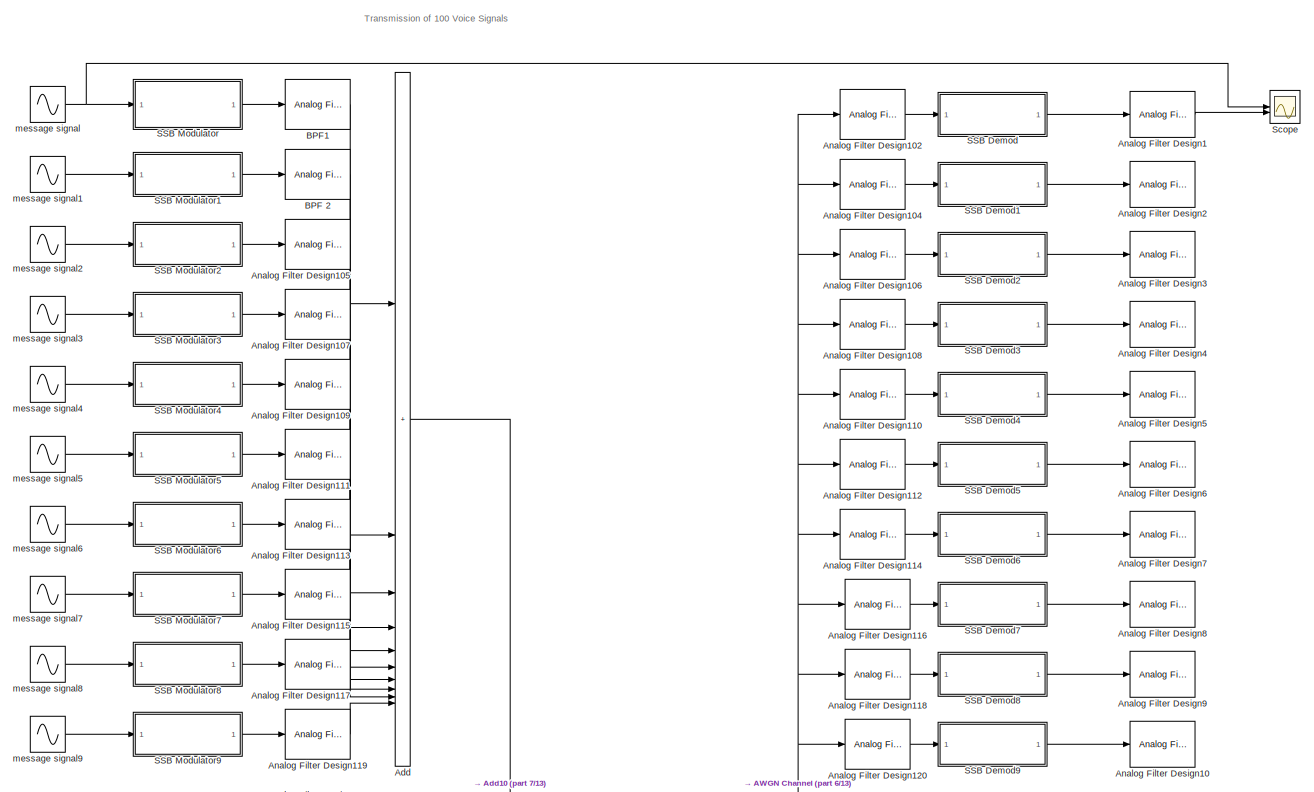
[diagram: root canvas - part 1/13, full width, top band]
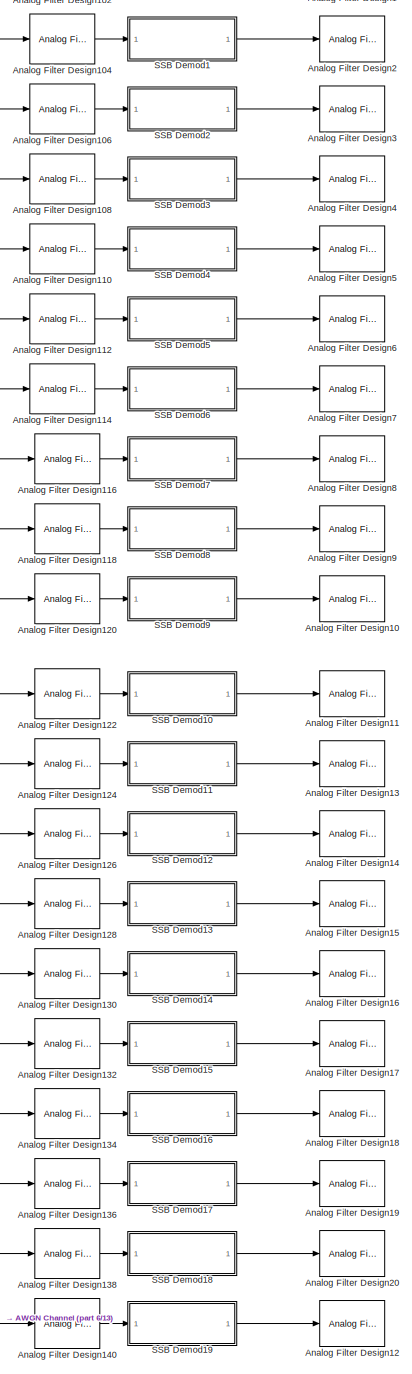
[diagram: root canvas - part 2/13, top right region]
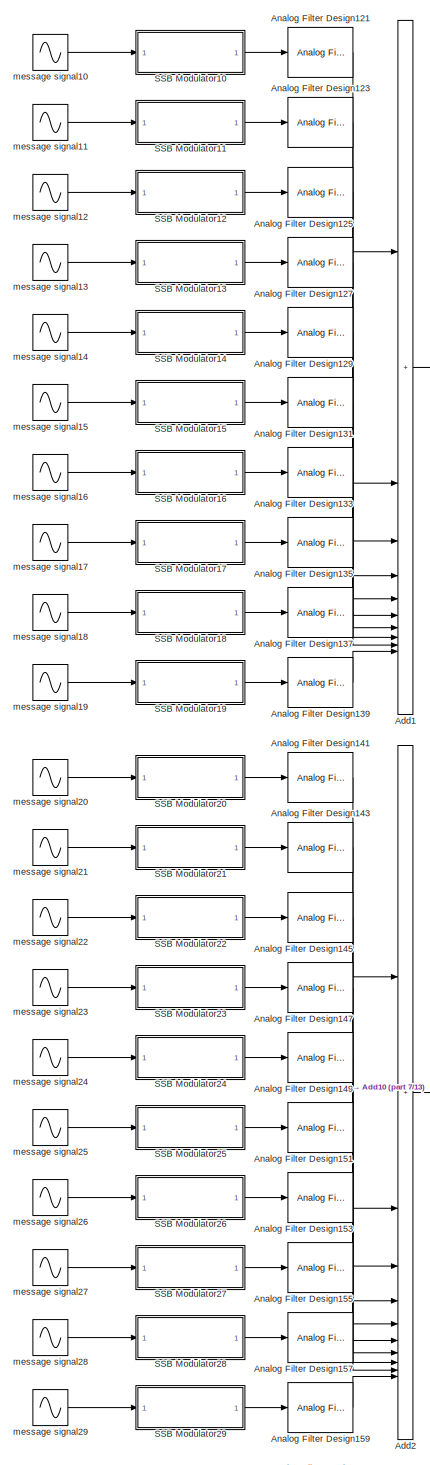
[diagram: root canvas - part 3/13, top left region]
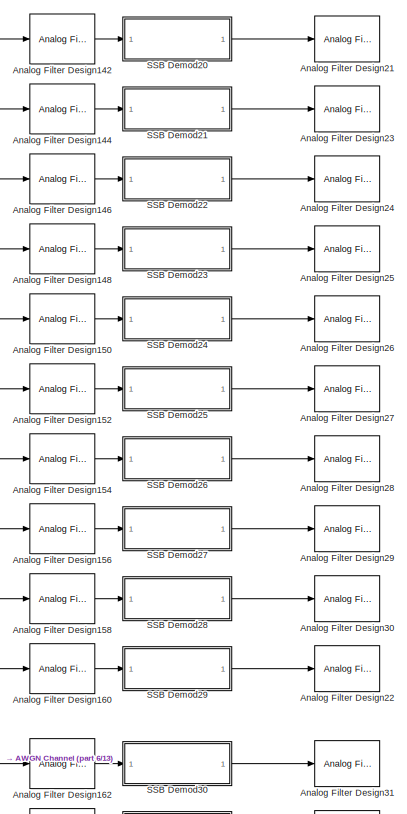
[diagram: root canvas - part 4/13, top right region]
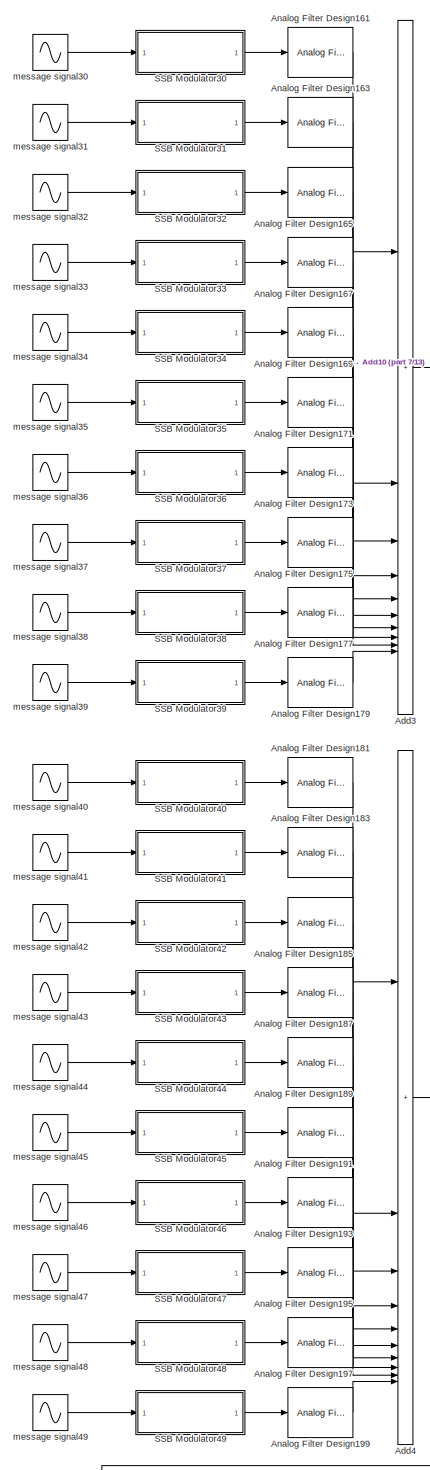
[diagram: root canvas - part 5/13, middle left region]
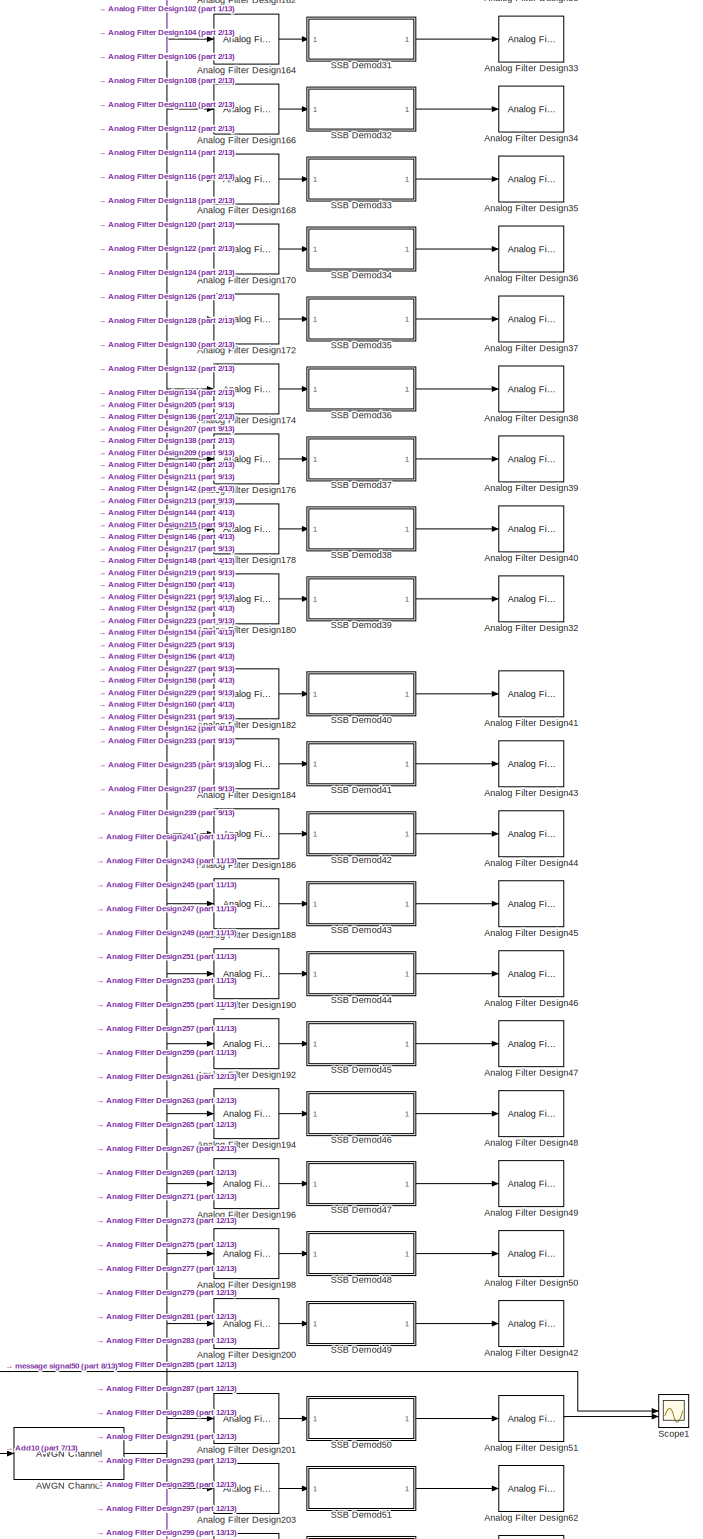
[diagram: root canvas - part 6/13, middle right region]
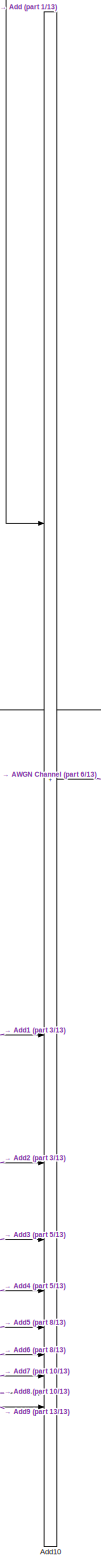
[diagram: root canvas - part 7/13, central region]
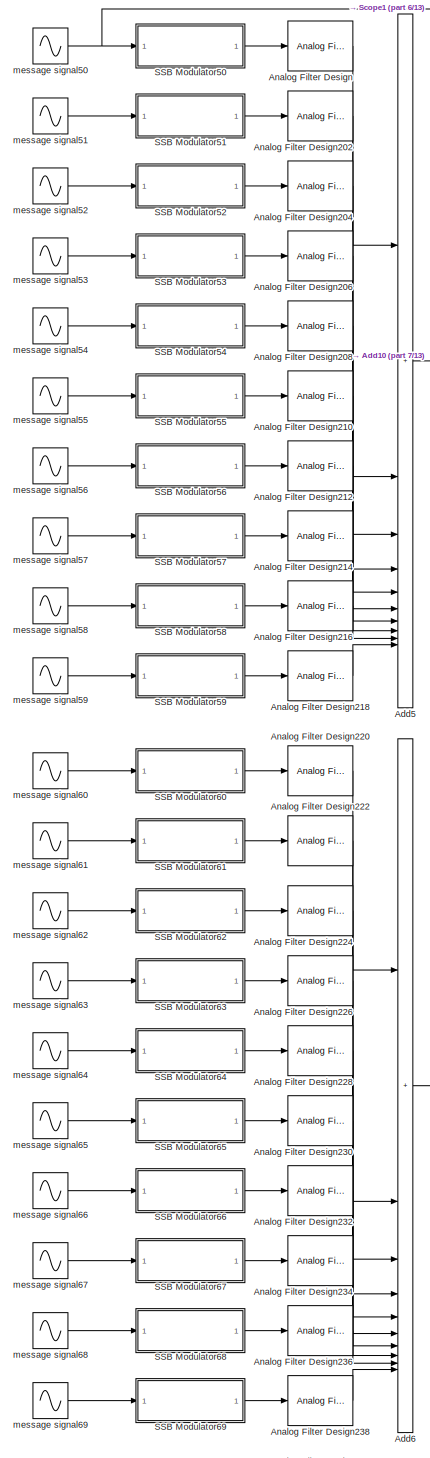
[diagram: root canvas - part 8/13, middle left region]
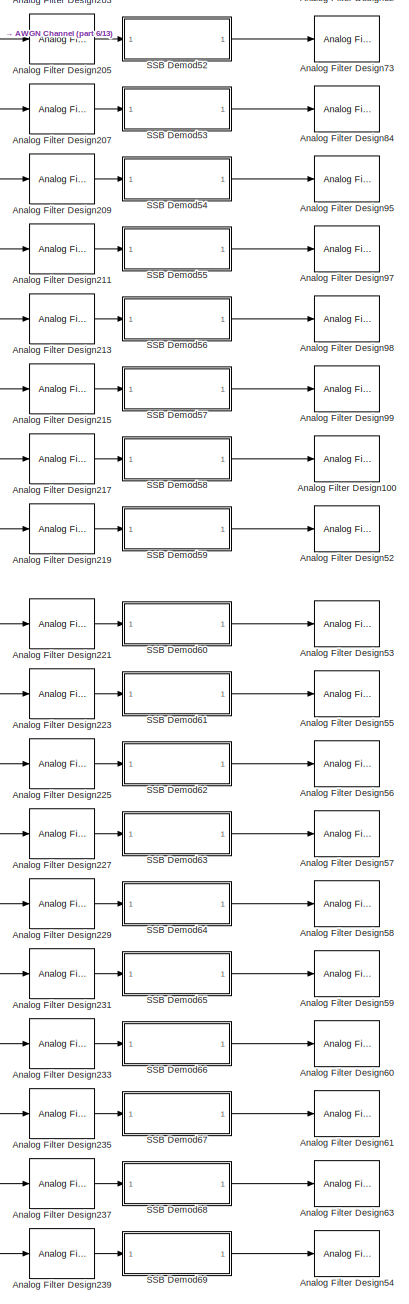
[diagram: root canvas - part 9/13, middle right region]
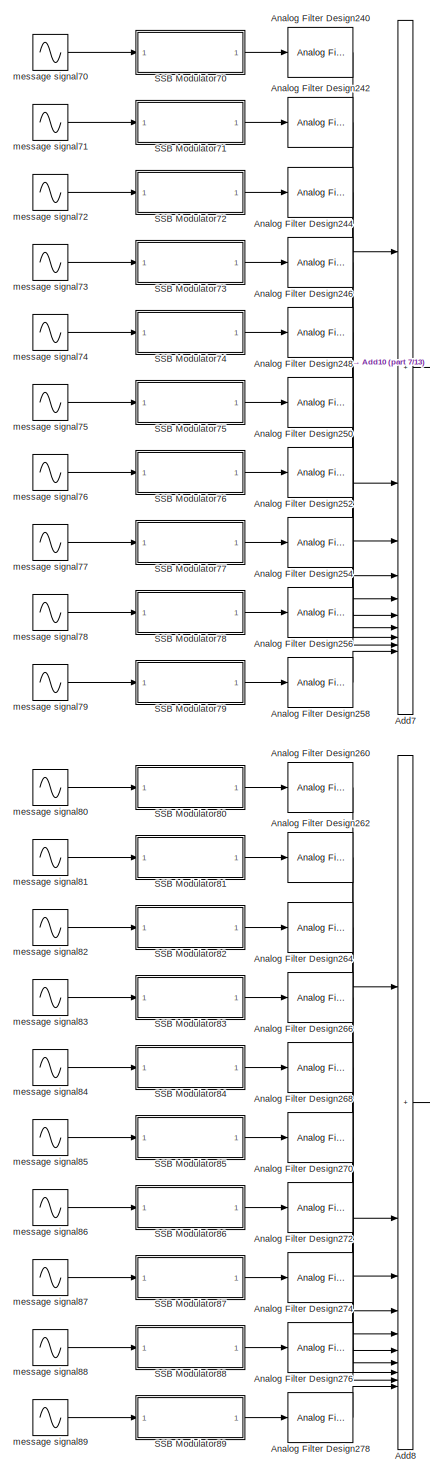
[diagram: root canvas - part 10/13, bottom left region]
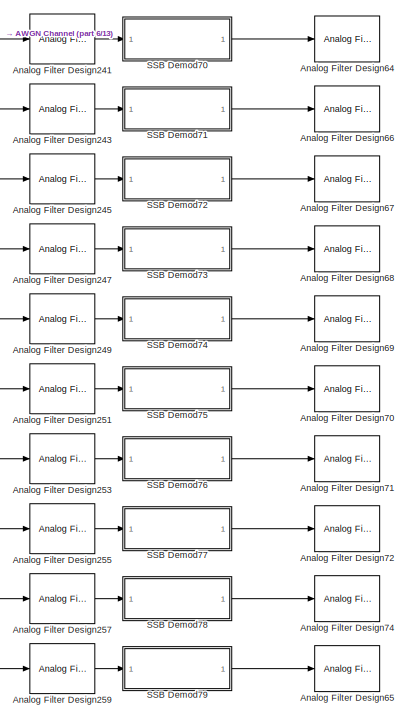
[diagram: root canvas - part 11/13, bottom right region]
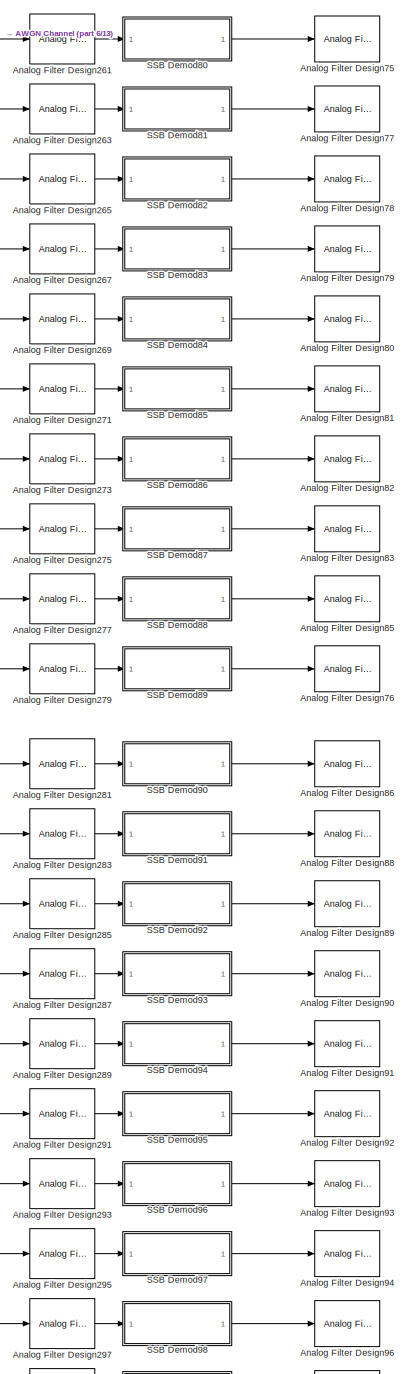
[diagram: root canvas - part 12/13, bottom right region]
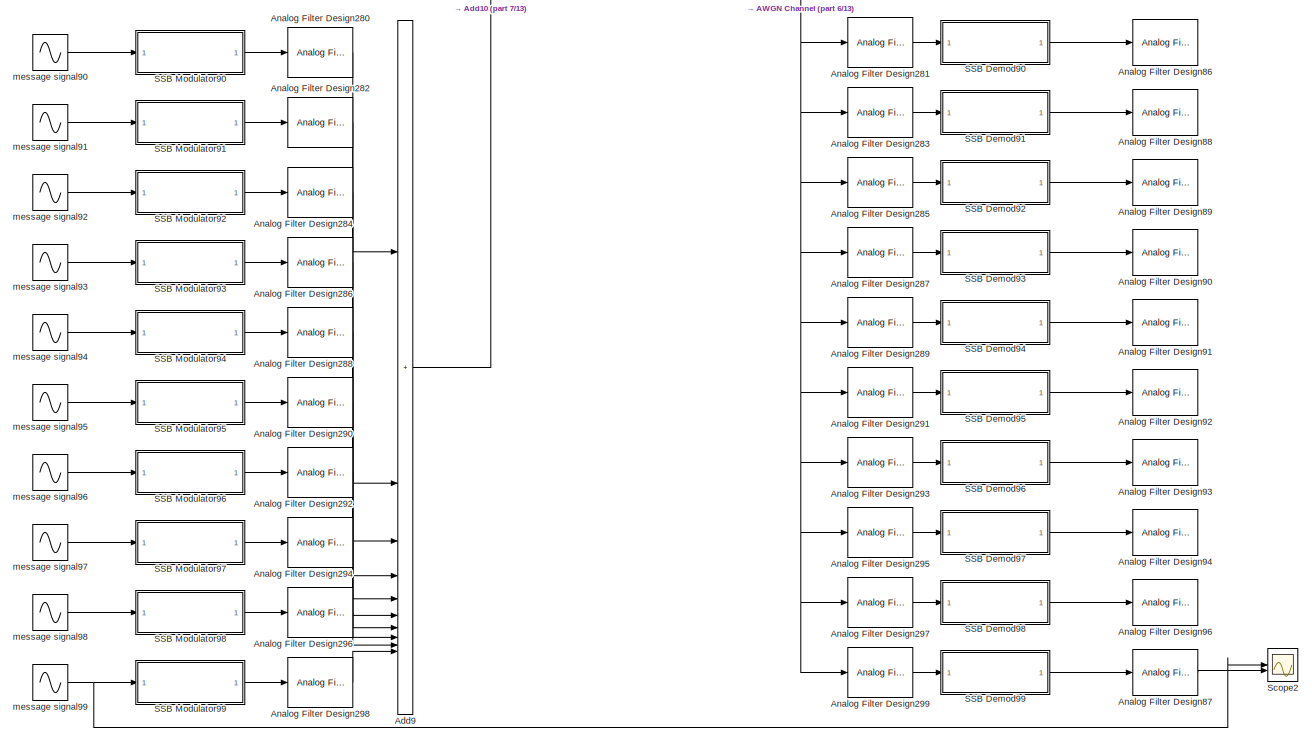
[diagram: root canvas - part 13/13, full width, bottom band]
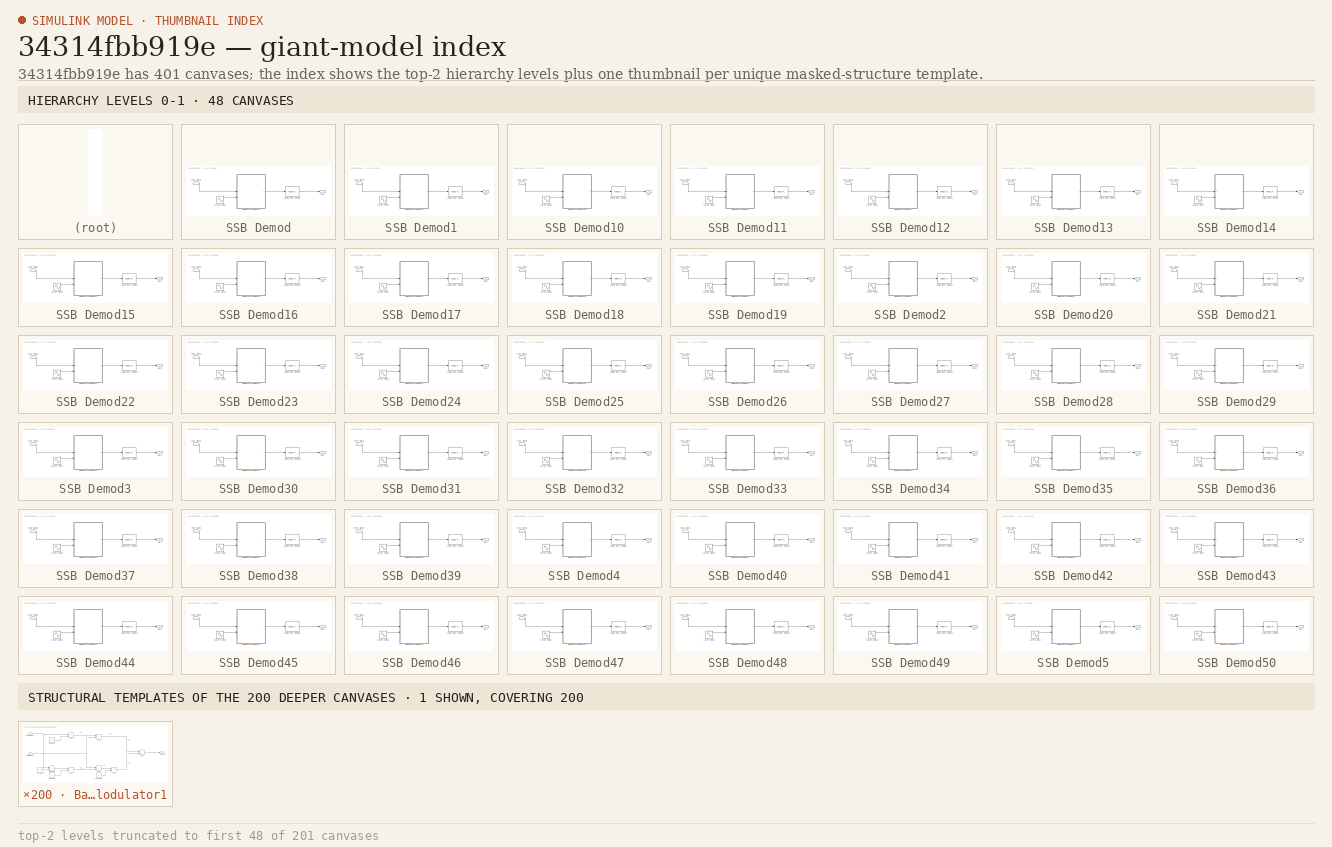
[diagram: thumbnail index - top-2 hierarchy levels (201 canvases (first 48 of 201 shown)) + 1 structural-template representatives of the remaining 200 canvases]
MODEL slx_34314fbb919e
KIND model
CONFIG AbsTol = auto
CONFIG EnableMultiTasking = off
CONFIG FixedStep = 0.000125
CONFIG MaxStep = auto
CONFIG MinStep = auto
CONFIG RelTol = 1e-3
CONFIG SampleTimeConstraint = Unconstrained
CONFIG SolverName = ode45
CONFIG StartTime = 0.0
CONFIG StopTime = 10
BLOCK [Reference] AWGN Channel  REF=commchan3/AWGN
Channel
  SourceBlock = commchan3/AWGN\nChannel
  SourceType = AWGN Channel
BLOCK [Sum] Add
  IconShape = rectangular
  Inputs = 10
BLOCK [Sum] Add1
  IconShape = rectangular
  Inputs = 10
BLOCK [Sum] Add10
  IconShape = rectangular
  Inputs = 10
BLOCK [Sum] Add2
  IconShape = rectangular
  Inputs = 10
BLOCK [Sum] Add3
  IconShape = rectangular
  Inputs = 10
BLOCK [Sum] Add4
  IconShape = rectangular
  Inputs = 10
BLOCK [Sum] Add5
  IconShape = rectangular
  Inputs = 10
BLOCK [Sum] Add6
  IconShape = rectangular
  Inputs = 10
BLOCK [Sum] Add7
  IconShape = rectangular
  Inputs = 10
BLOCK [Sum] Add8
  IconShape = rectangular
  Inputs = 10
BLOCK [Sum] Add9
  IconShape = rectangular
  Inputs = 10
BLOCK [Reference] Analog Filter Design  REF=dspfdesign/Analog
Filter Design
  SourceBlock = dspfdesign/Analog\nFilter Design
  SourceType = Analog Filter Design
BLOCK [Reference] Analog Filter Design1  REF=dspfdesign/Analog
Filter Design
  SourceBlock = dspfdesign/Analog\nFilter Design
  SourceType = Analog Filter Design
BLOCK [Reference] Analog Filter Design10  REF=dspfdesign/Analog
Filter Design
  SourceBlock = dspfdesign/Analog\nFilter Design
  SourceType = Analog Filter Design
BLOCK [Reference] Analog Filter Design100  REF=dspfdesign/Analog
Filter Design
  SourceBlock = dspfdesign/Analog\nFilter Design
  SourceType = Analog Filter Design
BLOCK [Reference] Analog Filter Design102  REF=dspfdesign/Analog
Filter Design
  SourceBlock = dspfdesign/Analog\nFilter Design
  SourceType = Analog Filter Design
BLOCK [Reference] Analog Filter Design104  REF=dspfdesign/Analog
Filter Design
  SourceBlock = dspfdesign/Analog\nFilter Design
  SourceType = Analog Filter Design
BLOCK [Reference] Analog Filter Design105  REF=dspfdesign/Analog
Filter Design
  SourceBlock = dspfdesign/Analog\nFilter Design
  SourceType = Analog Filter Design
BLOCK [Reference] Analog Filter Design106  REF=dspfdesign/Analog
Filter Design
  SourceBlock = dspfdesign/Analog\nFilter Design
  SourceType = Analog Filter Design
BLOCK [Reference] Analog Filter Design107  REF=dspfdesign/Analog
Filter Design
  SourceBlock = dspfdesign/Analog\nFilter Design
  SourceType = Analog Filter Design
BLOCK [Reference] Analog Filter Design108  REF=dspfdesign/Analog
Filter Design
  SourceBlock = dspfdesign/Analog\nFilter Design
  SourceType = Analog Filter Design
BLOCK [Reference] Analog Filter Design109  REF=dspfdesign/Analog
Filter Design
  SourceBlock = dspfdesign/Analog\nFilter Design
  SourceType = Analog Filter Design
BLOCK [Reference] Analog Filter Design11  REF=dspfdesign/Analog
Filter Design
  SourceBlock = dspfdesign/Analog\nFilter Design
  SourceType = Analog Filter Design
BLOCK [Reference] Analog Filter Design110  REF=dspfdesign/Analog
Filter Design
  SourceBlock = dspfdesign/Analog\nFilter Design
  SourceType = Analog Filter Design
BLOCK [Reference] Analog Filter Design111  REF=dspfdesign/Analog
Filter Design
  SourceBlock = dspfdesign/Analog\nFilter Design
  SourceType = Analog Filter Design
BLOCK [Reference] Analog Filter Design112  REF=dspfdesign/Analog
Filter Design
  SourceBlock = dspfdesign/Analog\nFilter Design
  SourceType = Analog Filter Design
BLOCK [Reference] Analog Filter Design113  REF=dspfdesign/Analog
Filter Design
  SourceBlock = dspfdesign/Analog\nFilter Design
  SourceType = Analog Filter Design
BLOCK [Reference] Analog Filter Design114  REF=dspfdesign/Analog
Filter Design
  SourceBlock = dspfdesign/Analog\nFilter Design
  SourceType = Analog Filter Design
BLOCK [Reference] Analog Filter Design115  REF=dspfdesign/Analog
Filter Design
  SourceBlock = dspfdesign/Analog\nFilter Design
  SourceType = Analog Filter Design
BLOCK [Reference] Analog Filter Design116  REF=dspfdesign/Analog
Filter Design
  SourceBlock = dspfdesign/Analog\nFilter Design
  SourceType = Analog Filter Design
BLOCK [Reference] Analog Filter Design117  REF=dspfdesign/Analog
Filter Design
  SourceBlock = dspfdesign/Analog\nFilter Design
  SourceType = Analog Filter Design
BLOCK [Reference] Analog Filter Design118  REF=dspfdesign/Analog
Filter Design
  SourceBlock = dspfdesign/Analog\nFilter Design
  SourceType = Analog Filter Design
BLOCK [Reference] Analog Filter Design119  REF=dspfdesign/Analog
Filter Design
  SourceBlock = dspfdesign/Analog\nFilter Design
  SourceType = Analog Filter Design
BLOCK [Reference] Analog Filter Design12  REF=dspfdesign/Analog
Filter Design
  SourceBlock = dspfdesign/Analog\nFilter Design
  SourceType = Analog Filter Design
BLOCK [Reference] Analog Filter Design120  REF=dspfdesign/Analog
Filter Design
  SourceBlock = dspfdesign/Analog\nFilter Design
  SourceType = Analog Filter Design
BLOCK [Reference] Analog Filter Design121  REF=dspfdesign/Analog
Filter Design
  SourceBlock = dspfdesign/Analog\nFilter Design
  SourceType = Analog Filter Design
BLOCK [Reference] Analog Filter Design122  REF=dspfdesign/Analog
Filter Design
  SourceBlock = dspfdesign/Analog\nFilter Design
  SourceType = Analog Filter Design
BLOCK [Reference] Analog Filter Design123  REF=dspfdesign/Analog
Filter Design
  SourceBlock = dspfdesign/Analog\nFilter Design
  SourceType = Analog Filter Design
BLOCK [Reference] Analog Filter Design124  REF=dspfdesign/Analog
Filter Design
  SourceBlock = dspfdesign/Analog\nFilter Design
  SourceType = Analog Filter Design
BLOCK [Reference] Analog Filter Design125  REF=dspfdesign/Analog
Filter Design
  SourceBlock = dspfdesign/Analog\nFilter Design
  SourceType = Analog Filter Design
BLOCK [Reference] Analog Filter Design126  REF=dspfdesign/Analog
Filter Design
  SourceBlock = dspfdesign/Analog\nFilter Design
  SourceType = Analog Filter Design
BLOCK [Reference] Analog Filter Design127  REF=dspfdesign/Analog
Filter Design
  SourceBlock = dspfdesign/Analog\nFilter Design
  SourceType = Analog Filter Design
BLOCK [Reference] Analog Filter Design128  REF=dspfdesign/Analog
Filter Design
  SourceBlock = dspfdesign/Analog\nFilter Design
  SourceType = Analog Filter Design
BLOCK [Reference] Analog Filter Design129  REF=dspfdesign/Analog
Filter Design
  SourceBlock = dspfdesign/Analog\nFilter Design
  SourceType = Analog Filter Design
BLOCK [Reference] Analog Filter Design13  REF=dspfdesign/Analog
Filter Design
  SourceBlock = dspfdesign/Analog\nFilter Design
  SourceType = Analog Filter Design
BLOCK [Reference] Analog Filter Design130  REF=dspfdesign/Analog
Filter Design
  SourceBlock = dspfdesign/Analog\nFilter Design
  SourceType = Analog Filter Design
BLOCK [Reference] Analog Filter Design131  REF=dspfdesign/Analog
Filter Design
  SourceBlock = dspfdesign/Analog\nFilter Design
  SourceType = Analog Filter Design
BLOCK [Reference] Analog Filter Design132  REF=dspfdesign/Analog
Filter Design
  SourceBlock = dspfdesign/Analog\nFilter Design
  SourceType = Analog Filter Design
BLOCK [Reference] Analog Filter Design133  REF=dspfdesign/Analog
Filter Design
  SourceBlock = dspfdesign/Analog\nFilter Design
  SourceType = Analog Filter Design
BLOCK [Reference] Analog Filter Design134  REF=dspfdesign/Analog
Filter Design
  SourceBlock = dspfdesign/Analog\nFilter Design
  SourceType = Analog Filter Design
BLOCK [Reference] Analog Filter Design135  REF=dspfdesign/Analog
Filter Design
  SourceBlock = dspfdesign/Analog\nFilter Design
  SourceType = Analog Filter Design
BLOCK [Reference] Analog Filter Design136  REF=dspfdesign/Analog
Filter Design
  SourceBlock = dspfdesign/Analog\nFilter Design
  SourceType = Analog Filter Design
BLOCK [Reference] Analog Filter Design137  REF=dspfdesign/Analog
Filter Design
  SourceBlock = dspfdesign/Analog\nFilter Design
  SourceType = Analog Filter Design
BLOCK [Reference] Analog Filter Design138  REF=dspfdesign/Analog
Filter Design
  SourceBlock = dspfdesign/Analog\nFilter Design
  SourceType = Analog Filter Design
BLOCK [Reference] Analog Filter Design139  REF=dspfdesign/Analog
Filter Design
  SourceBlock = dspfdesign/Analog\nFilter Design
  SourceType = Analog Filter Design
BLOCK [Reference] Analog Filter Design14  REF=dspfdesign/Analog
Filter Design
  SourceBlock = dspfdesign/Analog\nFilter Design
  SourceType = Analog Filter Design
BLOCK [Reference] Analog Filter Design140  REF=dspfdesign/Analog
Filter Design
  SourceBlock = dspfdesign/Analog\nFilter Design
  SourceType = Analog Filter Design
BLOCK [Reference] Analog Filter Design141  REF=dspfdesign/Analog
Filter Design
  SourceBlock = dspfdesign/Analog\nFilter Design
  SourceType = Analog Filter Design
BLOCK [Reference] Analog Filter Design142  REF=dspfdesign/Analog
Filter Design
  SourceBlock = dspfdesign/Analog\nFilter Design
  SourceType = Analog Filter Design
BLOCK [Reference] Analog Filter Design143  REF=dspfdesign/Analog
Filter Design
  SourceBlock = dspfdesign/Analog\nFilter Design
  SourceType = Analog Filter Design
BLOCK [Reference] Analog Filter Design144  REF=dspfdesign/Analog
Filter Design
  SourceBlock = dspfdesign/Analog\nFilter Design
  SourceType = Analog Filter Design
BLOCK [Reference] Analog Filter Design145  REF=dspfdesign/Analog
Filter Design
  SourceBlock = dspfdesign/Analog\nFilter Design
  SourceType = Analog Filter Design
BLOCK [Reference] Analog Filter Design146  REF=dspfdesign/Analog
Filter Design
  SourceBlock = dspfdesign/Analog\nFilter Design
  SourceType = Analog Filter Design
BLOCK [Reference] Analog Filter Design147  REF=dspfdesign/Analog
Filter Design
  SourceBlock = dspfdesign/Analog\nFilter Design
  SourceType = Analog Filter Design
BLOCK [Reference] Analog Filter Design148  REF=dspfdesign/Analog
Filter Design
  SourceBlock = dspfdesign/Analog\nFilter Design
  SourceType = Analog Filter Design
BLOCK [Reference] Analog Filter Design149  REF=dspfdesign/Analog
Filter Design
  SourceBlock = dspfdesign/Analog\nFilter Design
  SourceType = Analog Filter Design
BLOCK [Reference] Analog Filter Design15  REF=dspfdesign/Analog
Filter Design
  SourceBlock = dspfdesign/Analog\nFilter Design
  SourceType = Analog Filter Design
BLOCK [Reference] Analog Filter Design150  REF=dspfdesign/Analog
Filter Design
  SourceBlock = dspfdesign/Analog\nFilter Design
  SourceType = Analog Filter Design
BLOCK [Reference] Analog Filter Design151  REF=dspfdesign/Analog
Filter Design
  SourceBlock = dspfdesign/Analog\nFilter Design
  SourceType = Analog Filter Design
BLOCK [Reference] Analog Filter Design152  REF=dspfdesign/Analog
Filter Design
  SourceBlock = dspfdesign/Analog\nFilter Design
  SourceType = Analog Filter Design
BLOCK [Reference] Analog Filter Design153  REF=dspfdesign/Analog
Filter Design
  SourceBlock = dspfdesign/Analog\nFilter Design
  SourceType = Analog Filter Design
BLOCK [Reference] Analog Filter Design154  REF=dspfdesign/Analog
Filter Design
  SourceBlock = dspfdesign/Analog\nFilter Design
  SourceType = Analog Filter Design
BLOCK [Reference] Analog Filter Design155  REF=dspfdesign/Analog
Filter Design
  SourceBlock = dspfdesign/Analog\nFilter Design
  SourceType = Analog Filter Design
BLOCK [Reference] Analog Filter Design156  REF=dspfdesign/Analog
Filter Design
  SourceBlock = dspfdesign/Analog\nFilter Design
  SourceType = Analog Filter Design
BLOCK [Reference] Analog Filter Design157  REF=dspfdesign/Analog
Filter Design
  SourceBlock = dspfdesign/Analog\nFilter Design
  SourceType = Analog Filter Design
BLOCK [Reference] Analog Filter Design158  REF=dspfdesign/Analog
Filter Design
  SourceBlock = dspfdesign/Analog\nFilter Design
  SourceType = Analog Filter Design
BLOCK [Reference] Analog Filter Design159  REF=dspfdesign/Analog
Filter Design
  SourceBlock = dspfdesign/Analog\nFilter Design
  SourceType = Analog Filter Design
BLOCK [Reference] Analog Filter Design16  REF=dspfdesign/Analog
Filter Design
  SourceBlock = dspfdesign/Analog\nFilter Design
  SourceType = Analog Filter Design
BLOCK [Reference] Analog Filter Design160  REF=dspfdesign/Analog
Filter Design
  SourceBlock = dspfdesign/Analog\nFilter Design
  SourceType = Analog Filter Design
BLOCK [Reference] Analog Filter Design161  REF=dspfdesign/Analog
Filter Design
  SourceBlock = dspfdesign/Analog\nFilter Design
  SourceType = Analog Filter Design
BLOCK [Reference] Analog Filter Design162  REF=dspfdesign/Analog
Filter Design
  SourceBlock = dspfdesign/Analog\nFilter Design
  SourceType = Analog Filter Design
BLOCK [Reference] Analog Filter Design163  REF=dspfdesign/Analog
Filter Design
  SourceBlock = dspfdesign/Analog\nFilter Design
  SourceType = Analog Filter Design
BLOCK [Reference] Analog Filter Design164  REF=dspfdesign/Analog
Filter Design
  SourceBlock = dspfdesign/Analog\nFilter Design
  SourceType = Analog Filter Design
BLOCK [Reference] Analog Filter Design165  REF=dspfdesign/Analog
Filter Design
  SourceBlock = dspfdesign/Analog\nFilter Design
  SourceType = Analog Filter Design
BLOCK [Reference] Analog Filter Design166  REF=dspfdesign/Analog
Filter Design
  SourceBlock = dspfdesign/Analog\nFilter Design
  SourceType = Analog Filter Design
BLOCK [Reference] Analog Filter Design167  REF=dspfdesign/Analog
Filter Design
  SourceBlock = dspfdesign/Analog\nFilter Design
  SourceType = Analog Filter Design
BLOCK [Reference] Analog Filter Design168  REF=dspfdesign/Analog
Filter Design
  SourceBlock = dspfdesign/Analog\nFilter Design
  SourceType = Analog Filter Design
BLOCK [Reference] Analog Filter Design169  REF=dspfdesign/Analog
Filter Design
  SourceBlock = dspfdesign/Analog\nFilter Design
  SourceType = Analog Filter Design
BLOCK [Reference] Analog Filter Design17  REF=dspfdesign/Analog
Filter Design
  SourceBlock = dspfdesign/Analog\nFilter Design
  SourceType = Analog Filter Design
BLOCK [Reference] Analog Filter Design170  REF=dspfdesign/Analog
Filter Design
  SourceBlock = dspfdesign/Analog\nFilter Design
  SourceType = Analog Filter Design
BLOCK [Reference] Analog Filter Design171  REF=dspfdesign/Analog
Filter Design
  SourceBlock = dspfdesign/Analog\nFilter Design
  SourceType = Analog Filter Design
BLOCK [Reference] Analog Filter Design172  REF=dspfdesign/Analog
Filter Design
  SourceBlock = dspfdesign/Analog\nFilter Design
  SourceType = Analog Filter Design
BLOCK [Reference] Analog Filter Design173  REF=dspfdesign/Analog
Filter Design
  SourceBlock = dspfdesign/Analog\nFilter Design
  SourceType = Analog Filter Design
BLOCK [Reference] Analog Filter Design174  REF=dspfdesign/Analog
Filter Design
  SourceBlock = dspfdesign/Analog\nFilter Design
  SourceType = Analog Filter Design
BLOCK [Reference] Analog Filter Design175  REF=dspfdesign/Analog
Filter Design
  SourceBlock = dspfdesign/Analog\nFilter Design
  SourceType = Analog Filter Design
BLOCK [Reference] Analog Filter Design176  REF=dspfdesign/Analog
Filter Design
  SourceBlock = dspfdesign/Analog\nFilter Design
  SourceType = Analog Filter Design
BLOCK [Reference] Analog Filter Design177  REF=dspfdesign/Analog
Filter Design
  SourceBlock = dspfdesign/Analog\nFilter Design
  SourceType = Analog Filter Design
BLOCK [Reference] Analog Filter Design178  REF=dspfdesign/Analog
Filter Design
  SourceBlock = dspfdesign/Analog\nFilter Design
  SourceType = Analog Filter Design
BLOCK [Reference] Analog Filter Design179  REF=dspfdesign/Analog
Filter Design
  SourceBlock = dspfdesign/Analog\nFilter Design
  SourceType = Analog Filter Design
BLOCK [Reference] Analog Filter Design18  REF=dspfdesign/Analog
Filter Design
  SourceBlock = dspfdesign/Analog\nFilter Design
  SourceType = Analog Filter Design
BLOCK [Reference] Analog Filter Design180  REF=dspfdesign/Analog
Filter Design
  SourceBlock = dspfdesign/Analog\nFilter Design
  SourceType = Analog Filter Design
BLOCK [Reference] Analog Filter Design181  REF=dspfdesign/Analog
Filter Design
  SourceBlock = dspfdesign/Analog\nFilter Design
  SourceType = Analog Filter Design
BLOCK [Reference] Analog Filter Design182  REF=dspfdesign/Analog
Filter Design
  SourceBlock = dspfdesign/Analog\nFilter Design
  SourceType = Analog Filter Design
BLOCK [Reference] Analog Filter Design183  REF=dspfdesign/Analog
Filter Design
  SourceBlock = dspfdesign/Analog\nFilter Design
  SourceType = Analog Filter Design
BLOCK [Reference] Analog Filter Design184  REF=dspfdesign/Analog
Filter Design
  SourceBlock = dspfdesign/Analog\nFilter Design
  SourceType = Analog Filter Design
BLOCK [Reference] Analog Filter Design185  REF=dspfdesign/Analog
Filter Design
  SourceBlock = dspfdesign/Analog\nFilter Design
  SourceType = Analog Filter Design
BLOCK [Reference] Analog Filter Design186  REF=dspfdesign/Analog
Filter Design
  SourceBlock = dspfdesign/Analog\nFilter Design
  SourceType = Analog Filter Design
BLOCK [Reference] Analog Filter Design187  REF=dspfdesign/Analog
Filter Design
  SourceBlock = dspfdesign/Analog\nFilter Design
  SourceType = Analog Filter Design
BLOCK [Reference] Analog Filter Design188  REF=dspfdesign/Analog
Filter Design
  SourceBlock = dspfdesign/Analog\nFilter Design
  SourceType = Analog Filter Design
BLOCK [Reference] Analog Filter Design189  REF=dspfdesign/Analog
Filter Design
  SourceBlock = dspfdesign/Analog\nFilter Design
  SourceType = Analog Filter Design
BLOCK [Reference] Analog Filter Design19  REF=dspfdesign/Analog
Filter Design
  SourceBlock = dspfdesign/Analog\nFilter Design
  SourceType = Analog Filter Design
BLOCK [Reference] Analog Filter Design190  REF=dspfdesign/Analog
Filter Design
  SourceBlock = dspfdesign/Analog\nFilter Design
  SourceType = Analog Filter Design
BLOCK [Reference] Analog Filter Design191  REF=dspfdesign/Analog
Filter Design
  SourceBlock = dspfdesign/Analog\nFilter Design
  SourceType = Analog Filter Design
BLOCK [Reference] Analog Filter Design192  REF=dspfdesign/Analog
Filter Design
  SourceBlock = dspfdesign/Analog\nFilter Design
  SourceType = Analog Filter Design
BLOCK [Reference] Analog Filter Design193  REF=dspfdesign/Analog
Filter Design
  SourceBlock = dspfdesign/Analog\nFilter Design
  SourceType = Analog Filter Design
BLOCK [Reference] Analog Filter Design194  REF=dspfdesign/Analog
Filter Design
  SourceBlock = dspfdesign/Analog\nFilter Design
  SourceType = Analog Filter Design
BLOCK [Reference] Analog Filter Design195  REF=dspfdesign/Analog
Filter Design
  SourceBlock = dspfdesign/Analog\nFilter Design
  SourceType = Analog Filter Design
BLOCK [Reference] Analog Filter Design196  REF=dspfdesign/Analog
Filter Design
  SourceBlock = dspfdesign/Analog\nFilter Design
  SourceType = Analog Filter Design
BLOCK [Reference] Analog Filter Design197  REF=dspfdesign/Analog
Filter Design
  SourceBlock = dspfdesign/Analog\nFilter Design
  SourceType = Analog Filter Design
BLOCK [Reference] Analog Filter Design198  REF=dspfdesign/Analog
Filter Design
  SourceBlock = dspfdesign/Analog\nFilter Design
  SourceType = Analog Filter Design
BLOCK [Reference] Analog Filter Design199  REF=dspfdesign/Analog
Filter Design
  SourceBlock = dspfdesign/Analog\nFilter Design
  SourceType = Analog Filter Design
BLOCK [Reference] Analog Filter Design2  REF=dspfdesign/Analog
Filter Design
  SourceBlock = dspfdesign/Analog\nFilter Design
  SourceType = Analog Filter Design
BLOCK [Reference] Analog Filter Design20  REF=dspfdesign/Analog
Filter Design
  SourceBlock = dspfdesign/Analog\nFilter Design
  SourceType = Analog Filter Design
BLOCK [Reference] Analog Filter Design200  REF=dspfdesign/Analog
Filter Design
  SourceBlock = dspfdesign/Analog\nFilter Design
  SourceType = Analog Filter Design
BLOCK [Reference] Analog Filter Design201  REF=dspfdesign/Analog
Filter Design
  SourceBlock = dspfdesign/Analog\nFilter Design
  SourceType = Analog Filter Design
BLOCK [Reference] Analog Filter Design202  REF=dspfdesign/Analog
Filter Design
  SourceBlock = dspfdesign/Analog\nFilter Design
  SourceType = Analog Filter Design
BLOCK [Reference] Analog Filter Design203  REF=dspfdesign/Analog
Filter Design
  SourceBlock = dspfdesign/Analog\nFilter Design
  SourceType = Analog Filter Design
BLOCK [Reference] Analog Filter Design204  REF=dspfdesign/Analog
Filter Design
  SourceBlock = dspfdesign/Analog\nFilter Design
  SourceType = Analog Filter Design
BLOCK [Reference] Analog Filter Design205  REF=dspfdesign/Analog
Filter Design
  SourceBlock = dspfdesign/Analog\nFilter Design
  SourceType = Analog Filter Design
BLOCK [Reference] Analog Filter Design206  REF=dspfdesign/Analog
Filter Design
  SourceBlock = dspfdesign/Analog\nFilter Design
  SourceType = Analog Filter Design
BLOCK [Reference] Analog Filter Design207  REF=dspfdesign/Analog
Filter Design
  SourceBlock = dspfdesign/Analog\nFilter Design
  SourceType = Analog Filter Design
BLOCK [Reference] Analog Filter Design208  REF=dspfdesign/Analog
Filter Design
  SourceBlock = dspfdesign/Analog\nFilter Design
  SourceType = Analog Filter Design
BLOCK [Reference] Analog Filter Design209  REF=dspfdesign/Analog
Filter Design
  SourceBlock = dspfdesign/Analog\nFilter Design
  SourceType = Analog Filter Design
BLOCK [Reference] Analog Filter Design21  REF=dspfdesign/Analog
Filter Design
  SourceBlock = dspfdesign/Analog\nFilter Design
  SourceType = Analog Filter Design
BLOCK [Reference] Analog Filter Design210  REF=dspfdesign/Analog
Filter Design
  SourceBlock = dspfdesign/Analog\nFilter Design
  SourceType = Analog Filter Design
BLOCK [Reference] Analog Filter Design211  REF=dspfdesign/Analog
Filter Design
  SourceBlock = dspfdesign/Analog\nFilter Design
  SourceType = Analog Filter Design
BLOCK [Reference] Analog Filter Design212  REF=dspfdesign/Analog
Filter Design
  SourceBlock = dspfdesign/Analog\nFilter Design
  SourceType = Analog Filter Design
BLOCK [Reference] Analog Filter Design213  REF=dspfdesign/Analog
Filter Design
  SourceBlock = dspfdesign/Analog\nFilter Design
  SourceType = Analog Filter Design
BLOCK [Reference] Analog Filter Design214  REF=dspfdesign/Analog
Filter Design
  SourceBlock = dspfdesign/Analog\nFilter Design
  SourceType = Analog Filter Design
BLOCK [Reference] Analog Filter Design215  REF=dspfdesign/Analog
Filter Design
  SourceBlock = dspfdesign/Analog\nFilter Design
  SourceType = Analog Filter Design
BLOCK [Reference] Analog Filter Design216  REF=dspfdesign/Analog
Filter Design
  SourceBlock = dspfdesign/Analog\nFilter Design
  SourceType = Analog Filter Design
BLOCK [Reference] Analog Filter Design217  REF=dspfdesign/Analog
Filter Design
  SourceBlock = dspfdesign/Analog\nFilter Design
  SourceType = Analog Filter Design
BLOCK [Reference] Analog Filter Design218  REF=dspfdesign/Analog
Filter Design
  SourceBlock = dspfdesign/Analog\nFilter Design
  SourceType = Analog Filter Design
BLOCK [Reference] Analog Filter Design219  REF=dspfdesign/Analog
Filter Design
  SourceBlock = dspfdesign/Analog\nFilter Design
  SourceType = Analog Filter Design
BLOCK [Reference] Analog Filter Design22  REF=dspfdesign/Analog
Filter Design
  SourceBlock = dspfdesign/Analog\nFilter Design
  SourceType = Analog Filter Design
BLOCK [Reference] Analog Filter Design220  REF=dspfdesign/Analog
Filter Design
  SourceBlock = dspfdesign/Analog\nFilter Design
  SourceType = Analog Filter Design
BLOCK [Reference] Analog Filter Design221  REF=dspfdesign/Analog
Filter Design
  SourceBlock = dspfdesign/Analog\nFilter Design
  SourceType = Analog Filter Design
BLOCK [Reference] Analog Filter Design222  REF=dspfdesign/Analog
Filter Design
  SourceBlock = dspfdesign/Analog\nFilter Design
  SourceType = Analog Filter Design
BLOCK [Reference] Analog Filter Design223  REF=dspfdesign/Analog
Filter Design
  SourceBlock = dspfdesign/Analog\nFilter Design
  SourceType = Analog Filter Design
BLOCK [Reference] Analog Filter Design224  REF=dspfdesign/Analog
Filter Design
  SourceBlock = dspfdesign/Analog\nFilter Design
  SourceType = Analog Filter Design
BLOCK [Reference] Analog Filter Design225  REF=dspfdesign/Analog
Filter Design
  SourceBlock = dspfdesign/Analog\nFilter Design
  SourceType = Analog Filter Design
BLOCK [Reference] Analog Filter Design226  REF=dspfdesign/Analog
Filter Design
  SourceBlock = dspfdesign/Analog\nFilter Design
  SourceType = Analog Filter Design
BLOCK [Reference] Analog Filter Design227  REF=dspfdesign/Analog
Filter Design
  SourceBlock = dspfdesign/Analog\nFilter Design
  SourceType = Analog Filter Design
BLOCK [Reference] Analog Filter Design228  REF=dspfdesign/Analog
Filter Design
  SourceBlock = dspfdesign/Analog\nFilter Design
  SourceType = Analog Filter Design
BLOCK [Reference] Analog Filter Design229  REF=dspfdesign/Analog
Filter Design
  SourceBlock = dspfdesign/Analog\nFilter Design
  SourceType = Analog Filter Design
BLOCK [Reference] Analog Filter Design23  REF=dspfdesign/Analog
Filter Design
  SourceBlock = dspfdesign/Analog\nFilter Design
  SourceType = Analog Filter Design
BLOCK [Reference] Analog Filter Design230  REF=dspfdesign/Analog
Filter Design
  SourceBlock = dspfdesign/Analog\nFilter Design
  SourceType = Analog Filter Design
BLOCK [Reference] Analog Filter Design231  REF=dspfdesign/Analog
Filter Design
  SourceBlock = dspfdesign/Analog\nFilter Design
  SourceType = Analog Filter Design
BLOCK [Reference] Analog Filter Design232  REF=dspfdesign/Analog
Filter Design
  SourceBlock = dspfdesign/Analog\nFilter Design
  SourceType = Analog Filter Design
BLOCK [Reference] Analog Filter Design233  REF=dspfdesign/Analog
Filter Design
  SourceBlock = dspfdesign/Analog\nFilter Design
  SourceType = Analog Filter Design
BLOCK [Reference] Analog Filter Design234  REF=dspfdesign/Analog
Filter Design
  SourceBlock = dspfdesign/Analog\nFilter Design
  SourceType = Analog Filter Design
BLOCK [Reference] Analog Filter Design235  REF=dspfdesign/Analog
Filter Design
  SourceBlock = dspfdesign/Analog\nFilter Design
  SourceType = Analog Filter Design
BLOCK [Reference] Analog Filter Design236  REF=dspfdesign/Analog
Filter Design
  SourceBlock = dspfdesign/Analog\nFilter Design
  SourceType = Analog Filter Design
BLOCK [Reference] Analog Filter Design237  REF=dspfdesign/Analog
Filter Design
  SourceBlock = dspfdesign/Analog\nFilter Design
  SourceType = Analog Filter Design
BLOCK [Reference] Analog Filter Design238  REF=dspfdesign/Analog
Filter Design
  SourceBlock = dspfdesign/Analog\nFilter Design
  SourceType = Analog Filter Design
BLOCK [Reference] Analog Filter Design239  REF=dspfdesign/Analog
Filter Design
  SourceBlock = dspfdesign/Analog\nFilter Design
  SourceType = Analog Filter Design
BLOCK [Reference] Analog Filter Design24  REF=dspfdesign/Analog
Filter Design
  SourceBlock = dspfdesign/Analog\nFilter Design
  SourceType = Analog Filter Design
BLOCK [Reference] Analog Filter Design240  REF=dspfdesign/Analog
Filter Design
  SourceBlock = dspfdesign/Analog\nFilter Design
  SourceType = Analog Filter Design
BLOCK [Reference] Analog Filter Design241  REF=dspfdesign/Analog
Filter Design
  SourceBlock = dspfdesign/Analog\nFilter Design
  SourceType = Analog Filter Design
BLOCK [Reference] Analog Filter Design242  REF=dspfdesign/Analog
Filter Design
  SourceBlock = dspfdesign/Analog\nFilter Design
  SourceType = Analog Filter Design
BLOCK [Reference] Analog Filter Design243  REF=dspfdesign/Analog
Filter Design
  SourceBlock = dspfdesign/Analog\nFilter Design
  SourceType = Analog Filter Design
BLOCK [Reference] Analog Filter Design244  REF=dspfdesign/Analog
Filter Design
  SourceBlock = dspfdesign/Analog\nFilter Design
  SourceType = Analog Filter Design
BLOCK [Reference] Analog Filter Design245  REF=dspfdesign/Analog
Filter Design
  SourceBlock = dspfdesign/Analog\nFilter Design
  SourceType = Analog Filter Design
BLOCK [Reference] Analog Filter Design246  REF=dspfdesign/Analog
Filter Design
  SourceBlock = dspfdesign/Analog\nFilter Design
  SourceType = Analog Filter Design
BLOCK [Reference] Analog Filter Design247  REF=dspfdesign/Analog
Filter Design
  SourceBlock = dspfdesign/Analog\nFilter Design
  SourceType = Analog Filter Design
BLOCK [Reference] Analog Filter Design248  REF=dspfdesign/Analog
Filter Design
  SourceBlock = dspfdesign/Analog\nFilter Design
  SourceType = Analog Filter Design
BLOCK [Reference] Analog Filter Design249  REF=dspfdesign/Analog
Filter Design
  SourceBlock = dspfdesign/Analog\nFilter Design
  SourceType = Analog Filter Design
BLOCK [Reference] Analog Filter Design25  REF=dspfdesign/Analog
Filter Design
  SourceBlock = dspfdesign/Analog\nFilter Design
  SourceType = Analog Filter Design
BLOCK [Reference] Analog Filter Design250  REF=dspfdesign/Analog
Filter Design
  SourceBlock = dspfdesign/Analog\nFilter Design
  SourceType = Analog Filter Design
BLOCK [Reference] Analog Filter Design251  REF=dspfdesign/Analog
Filter Design
  SourceBlock = dspfdesign/Analog\nFilter Design
  SourceType = Analog Filter Design
BLOCK [Reference] Analog Filter Design252  REF=dspfdesign/Analog
Filter Design
  SourceBlock = dspfdesign/Analog\nFilter Design
  SourceType = Analog Filter Design
BLOCK [Reference] Analog Filter Design253  REF=dspfdesign/Analog
Filter Design
  SourceBlock = dspfdesign/Analog\nFilter Design
  SourceType = Analog Filter Design
BLOCK [Reference] Analog Filter Design254  REF=dspfdesign/Analog
Filter Design
  SourceBlock = dspfdesign/Analog\nFilter Design
  SourceType = Analog Filter Design
BLOCK [Reference] Analog Filter Design255  REF=dspfdesign/Analog
Filter Design
  SourceBlock = dspfdesign/Analog\nFilter Design
  SourceType = Analog Filter Design
BLOCK [Reference] Analog Filter Design256  REF=dspfdesign/Analog
Filter Design
  SourceBlock = dspfdesign/Analog\nFilter Design
  SourceType = Analog Filter Design
BLOCK [Reference] Analog Filter Design257  REF=dspfdesign/Analog
Filter Design
  SourceBlock = dspfdesign/Analog\nFilter Design
  SourceType = Analog Filter Design
BLOCK [Reference] Analog Filter Design258  REF=dspfdesign/Analog
Filter Design
  SourceBlock = dspfdesign/Analog\nFilter Design
  SourceType = Analog Filter Design
BLOCK [Reference] Analog Filter Design259  REF=dspfdesign/Analog
Filter Design
  SourceBlock = dspfdesign/Analog\nFilter Design
  SourceType = Analog Filter Design
BLOCK [Reference] Analog Filter Design26  REF=dspfdesign/Analog
Filter Design
  SourceBlock = dspfdesign/Analog\nFilter Design
  SourceType = Analog Filter Design
BLOCK [Reference] Analog Filter Design260  REF=dspfdesign/Analog
Filter Design
  SourceBlock = dspfdesign/Analog\nFilter Design
  SourceType = Analog Filter Design
BLOCK [Reference] Analog Filter Design261  REF=dspfdesign/Analog
Filter Design
  SourceBlock = dspfdesign/Analog\nFilter Design
  SourceType = Analog Filter Design
BLOCK [Reference] Analog Filter Design262  REF=dspfdesign/Analog
Filter Design
  SourceBlock = dspfdesign/Analog\nFilter Design
  SourceType = Analog Filter Design
BLOCK [Reference] Analog Filter Design263  REF=dspfdesign/Analog
Filter Design
  SourceBlock = dspfdesign/Analog\nFilter Design
  SourceType = Analog Filter Design
BLOCK [Reference] Analog Filter Design264  REF=dspfdesign/Analog
Filter Design
  SourceBlock = dspfdesign/Analog\nFilter Design
  SourceType = Analog Filter Design
BLOCK [Reference] Analog Filter Design265  REF=dspfdesign/Analog
Filter Design
  SourceBlock = dspfdesign/Analog\nFilter Design
  SourceType = Analog Filter Design
BLOCK [Reference] Analog Filter Design266  REF=dspfdesign/Analog
Filter Design
  SourceBlock = dspfdesign/Analog\nFilter Design
  SourceType = Analog Filter Design
BLOCK [Reference] Analog Filter Design267  REF=dspfdesign/Analog
Filter Design
  SourceBlock = dspfdesign/Analog\nFilter Design
  SourceType = Analog Filter Design
BLOCK [Reference] Analog Filter Design268  REF=dspfdesign/Analog
Filter Design
  SourceBlock = dspfdesign/Analog\nFilter Design
  SourceType = Analog Filter Design
BLOCK [Reference] Analog Filter Design269  REF=dspfdesign/Analog
Filter Design
  SourceBlock = dspfdesign/Analog\nFilter Design
  SourceType = Analog Filter Design
BLOCK [Reference] Analog Filter Design27  REF=dspfdesign/Analog
Filter Design
  SourceBlock = dspfdesign/Analog\nFilter Design
  SourceType = Analog Filter Design
BLOCK [Reference] Analog Filter Design270  REF=dspfdesign/Analog
Filter Design
  SourceBlock = dspfdesign/Analog\nFilter Design
  SourceType = Analog Filter Design
BLOCK [Reference] Analog Filter Design271  REF=dspfdesign/Analog
Filter Design
  SourceBlock = dspfdesign/Analog\nFilter Design
  SourceType = Analog Filter Design
BLOCK [Reference] Analog Filter Design272  REF=dspfdesign/Analog
Filter Design
  SourceBlock = dspfdesign/Analog\nFilter Design
  SourceType = Analog Filter Design
BLOCK [Reference] Analog Filter Design273  REF=dspfdesign/Analog
Filter Design
  SourceBlock = dspfdesign/Analog\nFilter Design
  SourceType = Analog Filter Design
BLOCK [Reference] Analog Filter Design274  REF=dspfdesign/Analog
Filter Design
  SourceBlock = dspfdesign/Analog\nFilter Design
  SourceType = Analog Filter Design
BLOCK [Reference] Analog Filter Design275  REF=dspfdesign/Analog
Filter Design
  SourceBlock = dspfdesign/Analog\nFilter Design
  SourceType = Analog Filter Design
BLOCK [Reference] Analog Filter Design276  REF=dspfdesign/Analog
Filter Design
  SourceBlock = dspfdesign/Analog\nFilter Design
  SourceType = Analog Filter Design
BLOCK [Reference] Analog Filter Design277  REF=dspfdesign/Analog
Filter Design
  SourceBlock = dspfdesign/Analog\nFilter Design
  SourceType = Analog Filter Design
BLOCK [Reference] Analog Filter Design278  REF=dspfdesign/Analog
Filter Design
  SourceBlock = dspfdesign/Analog\nFilter Design
  SourceType = Analog Filter Design
BLOCK [Reference] Analog Filter Design279  REF=dspfdesign/Analog
Filter Design
  SourceBlock = dspfdesign/Analog\nFilter Design
  SourceType = Analog Filter Design
BLOCK [Reference] Analog Filter Design28  REF=dspfdesign/Analog
Filter Design
  SourceBlock = dspfdesign/Analog\nFilter Design
  SourceType = Analog Filter Design
BLOCK [Reference] Analog Filter Design280  REF=dspfdesign/Analog
Filter Design
  SourceBlock = dspfdesign/Analog\nFilter Design
  SourceType = Analog Filter Design
BLOCK [Reference] Analog Filter Design281  REF=dspfdesign/Analog
Filter Design
  SourceBlock = dspfdesign/Analog\nFilter Design
  SourceType = Analog Filter Design
BLOCK [Reference] Analog Filter Design282  REF=dspfdesign/Analog
Filter Design
  SourceBlock = dspfdesign/Analog\nFilter Design
  SourceType = Analog Filter Design
BLOCK [Reference] Analog Filter Design283  REF=dspfdesign/Analog
Filter Design
  SourceBlock = dspfdesign/Analog\nFilter Design
  SourceType = Analog Filter Design
BLOCK [Reference] Analog Filter Design284  REF=dspfdesign/Analog
Filter Design
  SourceBlock = dspfdesign/Analog\nFilter Design
  SourceType = Analog Filter Design
BLOCK [Reference] Analog Filter Design285  REF=dspfdesign/Analog
Filter Design
  SourceBlock = dspfdesign/Analog\nFilter Design
  SourceType = Analog Filter Design
BLOCK [Reference] Analog Filter Design286  REF=dspfdesign/Analog
Filter Design
  SourceBlock = dspfdesign/Analog\nFilter Design
  SourceType = Analog Filter Design
BLOCK [Reference] Analog Filter Design287  REF=dspfdesign/Analog
Filter Design
  SourceBlock = dspfdesign/Analog\nFilter Design
  SourceType = Analog Filter Design
BLOCK [Reference] Analog Filter Design288  REF=dspfdesign/Analog
Filter Design
  SourceBlock = dspfdesign/Analog\nFilter Design
  SourceType = Analog Filter Design
BLOCK [Reference] Analog Filter Design289  REF=dspfdesign/Analog
Filter Design
  SourceBlock = dspfdesign/Analog\nFilter Design
  SourceType = Analog Filter Design
BLOCK [Reference] Analog Filter Design29  REF=dspfdesign/Analog
Filter Design
  SourceBlock = dspfdesign/Analog\nFilter Design
  SourceType = Analog Filter Design
BLOCK [Reference] Analog Filter Design290  REF=dspfdesign/Analog
Filter Design
  SourceBlock = dspfdesign/Analog\nFilter Design
  SourceType = Analog Filter Design
BLOCK [Reference] Analog Filter Design291  REF=dspfdesign/Analog
Filter Design
  SourceBlock = dspfdesign/Analog\nFilter Design
  SourceType = Analog Filter Design
BLOCK [Reference] Analog Filter Design292  REF=dspfdesign/Analog
Filter Design
  SourceBlock = dspfdesign/Analog\nFilter Design
  SourceType = Analog Filter Design
BLOCK [Reference] Analog Filter Design293  REF=dspfdesign/Analog
Filter Design
  SourceBlock = dspfdesign/Analog\nFilter Design
  SourceType = Analog Filter Design
BLOCK [Reference] Analog Filter Design294  REF=dspfdesign/Analog
Filter Design
  SourceBlock = dspfdesign/Analog\nFilter Design
  SourceType = Analog Filter Design
BLOCK [Reference] Analog Filter Design295  REF=dspfdesign/Analog
Filter Design
  SourceBlock = dspfdesign/Analog\nFilter Design
  SourceType = Analog Filter Design
BLOCK [Reference] Analog Filter Design296  REF=dspfdesign/Analog
Filter Design
  SourceBlock = dspfdesign/Analog\nFilter Design
  SourceType = Analog Filter Design
BLOCK [Reference] Analog Filter Design297  REF=dspfdesign/Analog
Filter Design
  SourceBlock = dspfdesign/Analog\nFilter Design
  SourceType = Analog Filter Design
BLOCK [Reference] Analog Filter Design298  REF=dspfdesign/Analog
Filter Design
  SourceBlock = dspfdesign/Analog\nFilter Design
  SourceType = Analog Filter Design
BLOCK [Reference] Analog Filter Design299  REF=dspfdesign/Analog
Filter Design
  SourceBlock = dspfdesign/Analog\nFilter Design
  SourceType = Analog Filter Design
BLOCK [Reference] Analog Filter Design3  REF=dspfdesign/Analog
Filter Design
  SourceBlock = dspfdesign/Analog\nFilter Design
  SourceType = Analog Filter Design
BLOCK [Reference] Analog Filter Design30  REF=dspfdesign/Analog
Filter Design
  SourceBlock = dspfdesign/Analog\nFilter Design
  SourceType = Analog Filter Design
BLOCK [Reference] Analog Filter Design31  REF=dspfdesign/Analog
Filter Design
  SourceBlock = dspfdesign/Analog\nFilter Design
  SourceType = Analog Filter Design
BLOCK [Reference] Analog Filter Design32  REF=dspfdesign/Analog
Filter Design
  SourceBlock = dspfdesign/Analog\nFilter Design
  SourceType = Analog Filter Design
BLOCK [Reference] Analog Filter Design33  REF=dspfdesign/Analog
Filter Design
  SourceBlock = dspfdesign/Analog\nFilter Design
  SourceType = Analog Filter Design
BLOCK [Reference] Analog Filter Design34  REF=dspfdesign/Analog
Filter Design
  SourceBlock = dspfdesign/Analog\nFilter Design
  SourceType = Analog Filter Design
BLOCK [Reference] Analog Filter Design35  REF=dspfdesign/Analog
Filter Design
  SourceBlock = dspfdesign/Analog\nFilter Design
  SourceType = Analog Filter Design
BLOCK [Reference] Analog Filter Design36  REF=dspfdesign/Analog
Filter Design
  SourceBlock = dspfdesign/Analog\nFilter Design
  SourceType = Analog Filter Design
BLOCK [Reference] Analog Filter Design37  REF=dspfdesign/Analog
Filter Design
  SourceBlock = dspfdesign/Analog\nFilter Design
  SourceType = Analog Filter Design
BLOCK [Reference] Analog Filter Design38  REF=dspfdesign/Analog
Filter Design
  SourceBlock = dspfdesign/Analog\nFilter Design
  SourceType = Analog Filter Design
BLOCK [Reference] Analog Filter Design39  REF=dspfdesign/Analog
Filter Design
  SourceBlock = dspfdesign/Analog\nFilter Design
  SourceType = Analog Filter Design
BLOCK [Reference] Analog Filter Design4  REF=dspfdesign/Analog
Filter Design
  SourceBlock = dspfdesign/Analog\nFilter Design
  SourceType = Analog Filter Design
BLOCK [Reference] Analog Filter Design40  REF=dspfdesign/Analog
Filter Design
  SourceBlock = dspfdesign/Analog\nFilter Design
  SourceType = Analog Filter Design
BLOCK [Reference] Analog Filter Design41  REF=dspfdesign/Analog
Filter Design
  SourceBlock = dspfdesign/Analog\nFilter Design
  SourceType = Analog Filter Design
BLOCK [Reference] Analog Filter Design42  REF=dspfdesign/Analog
Filter Design
  SourceBlock = dspfdesign/Analog\nFilter Design
  SourceType = Analog Filter Design
BLOCK [Reference] Analog Filter Design43  REF=dspfdesign/Analog
Filter Design
  SourceBlock = dspfdesign/Analog\nFilter Design
  SourceType = Analog Filter Design
BLOCK [Reference] Analog Filter Design44  REF=dspfdesign/Analog
Filter Design
  SourceBlock = dspfdesign/Analog\nFilter Design
  SourceType = Analog Filter Design
BLOCK [Reference] Analog Filter Design45  REF=dspfdesign/Analog
Filter Design
  SourceBlock = dspfdesign/Analog\nFilter Design
  SourceType = Analog Filter Design
BLOCK [Reference] Analog Filter Design46  REF=dspfdesign/Analog
Filter Design
  SourceBlock = dspfdesign/Analog\nFilter Design
  SourceType = Analog Filter Design
BLOCK [Reference] Analog Filter Design47  REF=dspfdesign/Analog
Filter Design
  SourceBlock = dspfdesign/Analog\nFilter Design
  SourceType = Analog Filter Design
BLOCK [Reference] Analog Filter Design48  REF=dspfdesign/Analog
Filter Design
  SourceBlock = dspfdesign/Analog\nFilter Design
  SourceType = Analog Filter Design
BLOCK [Reference] Analog Filter Design49  REF=dspfdesign/Analog
Filter Design
  SourceBlock = dspfdesign/Analog\nFilter Design
  SourceType = Analog Filter Design
BLOCK [Reference] Analog Filter Design5  REF=dspfdesign/Analog
Filter Design
  SourceBlock = dspfdesign/Analog\nFilter Design
  SourceType = Analog Filter Design
BLOCK [Reference] Analog Filter Design50  REF=dspfdesign/Analog
Filter Design
  SourceBlock = dspfdesign/Analog\nFilter Design
  SourceType = Analog Filter Design
BLOCK [Reference] Analog Filter Design51  REF=dspfdesign/Analog
Filter Design
  SourceBlock = dspfdesign/Analog\nFilter Design
  SourceType = Analog Filter Design
BLOCK [Reference] Analog Filter Design52  REF=dspfdesign/Analog
Filter Design
  SourceBlock = dspfdesign/Analog\nFilter Design
  SourceType = Analog Filter Design
BLOCK [Reference] Analog Filter Design53  REF=dspfdesign/Analog
Filter Design
  SourceBlock = dspfdesign/Analog\nFilter Design
  SourceType = Analog Filter Design
BLOCK [Reference] Analog Filter Design54  REF=dspfdesign/Analog
Filter Design
  SourceBlock = dspfdesign/Analog\nFilter Design
  SourceType = Analog Filter Design
BLOCK [Reference] Analog Filter Design55  REF=dspfdesign/Analog
Filter Design
  SourceBlock = dspfdesign/Analog\nFilter Design
  SourceType = Analog Filter Design
BLOCK [Reference] Analog Filter Design56  REF=dspfdesign/Analog
Filter Design
  SourceBlock = dspfdesign/Analog\nFilter Design
  SourceType = Analog Filter Design
BLOCK [Reference] Analog Filter Design57  REF=dspfdesign/Analog
Filter Design
  SourceBlock = dspfdesign/Analog\nFilter Design
  SourceType = Analog Filter Design
BLOCK [Reference] Analog Filter Design58  REF=dspfdesign/Analog
Filter Design
  SourceBlock = dspfdesign/Analog\nFilter Design
  SourceType = Analog Filter Design
BLOCK [Reference] Analog Filter Design59  REF=dspfdesign/Analog
Filter Design
  SourceBlock = dspfdesign/Analog\nFilter Design
  SourceType = Analog Filter Design
BLOCK [Reference] Analog Filter Design6  REF=dspfdesign/Analog
Filter Design
  SourceBlock = dspfdesign/Analog\nFilter Design
  SourceType = Analog Filter Design
BLOCK [Reference] Analog Filter Design60  REF=dspfdesign/Analog
Filter Design
  SourceBlock = dspfdesign/Analog\nFilter Design
  SourceType = Analog Filter Design
BLOCK [Reference] Analog Filter Design61  REF=dspfdesign/Analog
Filter Design
  SourceBlock = dspfdesign/Analog\nFilter Design
  SourceType = Analog Filter Design
BLOCK [Reference] Analog Filter Design62  REF=dspfdesign/Analog
Filter Design
  SourceBlock = dspfdesign/Analog\nFilter Design
  SourceType = Analog Filter Design
BLOCK [Reference] Analog Filter Design63  REF=dspfdesign/Analog
Filter Design
  SourceBlock = dspfdesign/Analog\nFilter Design
  SourceType = Analog Filter Design
BLOCK [Reference] Analog Filter Design64  REF=dspfdesign/Analog
Filter Design
  SourceBlock = dspfdesign/Analog\nFilter Design
  SourceType = Analog Filter Design
BLOCK [Reference] Analog Filter Design65  REF=dspfdesign/Analog
Filter Design
  SourceBlock = dspfdesign/Analog\nFilter Design
  SourceType = Analog Filter Design
BLOCK [Reference] Analog Filter Design66  REF=dspfdesign/Analog
Filter Design
  SourceBlock = dspfdesign/Analog\nFilter Design
  SourceType = Analog Filter Design
BLOCK [Reference] Analog Filter Design67  REF=dspfdesign/Analog
Filter Design
  SourceBlock = dspfdesign/Analog\nFilter Design
  SourceType = Analog Filter Design
BLOCK [Reference] Analog Filter Design68  REF=dspfdesign/Analog
Filter Design
  SourceBlock = dspfdesign/Analog\nFilter Design
  SourceType = Analog Filter Design
BLOCK [Reference] Analog Filter Design69  REF=dspfdesign/Analog
Filter Design
  SourceBlock = dspfdesign/Analog\nFilter Design
  SourceType = Analog Filter Design
BLOCK [Reference] Analog Filter Design7  REF=dspfdesign/Analog
Filter Design
  SourceBlock = dspfdesign/Analog\nFilter Design
  SourceType = Analog Filter Design
BLOCK [Reference] Analog Filter Design70  REF=dspfdesign/Analog
Filter Design
  SourceBlock = dspfdesign/Analog\nFilter Design
  SourceType = Analog Filter Design
BLOCK [Reference] Analog Filter Design71  REF=dspfdesign/Analog
Filter Design
  SourceBlock = dspfdesign/Analog\nFilter Design
  SourceType = Analog Filter Design
BLOCK [Reference] Analog Filter Design72  REF=dspfdesign/Analog
Filter Design
  SourceBlock = dspfdesign/Analog\nFilter Design
  SourceType = Analog Filter Design
BLOCK [Reference] Analog Filter Design73  REF=dspfdesign/Analog
Filter Design
  SourceBlock = dspfdesign/Analog\nFilter Design
  SourceType = Analog Filter Design
BLOCK [Reference] Analog Filter Design74  REF=dspfdesign/Analog
Filter Design
  SourceBlock = dspfdesign/Analog\nFilter Design
  SourceType = Analog Filter Design
BLOCK [Reference] Analog Filter Design75  REF=dspfdesign/Analog
Filter Design
  SourceBlock = dspfdesign/Analog\nFilter Design
  SourceType = Analog Filter Design
BLOCK [Reference] Analog Filter Design76  REF=dspfdesign/Analog
Filter Design
  SourceBlock = dspfdesign/Analog\nFilter Design
  SourceType = Analog Filter Design
BLOCK [Reference] Analog Filter Design77  REF=dspfdesign/Analog
Filter Design
  SourceBlock = dspfdesign/Analog\nFilter Design
  SourceType = Analog Filter Design
BLOCK [Reference] Analog Filter Design78  REF=dspfdesign/Analog
Filter Design
  SourceBlock = dspfdesign/Analog\nFilter Design
  SourceType = Analog Filter Design
BLOCK [Reference] Analog Filter Design79  REF=dspfdesign/Analog
Filter Design
  SourceBlock = dspfdesign/Analog\nFilter Design
  SourceType = Analog Filter Design
BLOCK [Reference] Analog Filter Design8  REF=dspfdesign/Analog
Filter Design
  SourceBlock = dspfdesign/Analog\nFilter Design
  SourceType = Analog Filter Design
BLOCK [Reference] Analog Filter Design80  REF=dspfdesign/Analog
Filter Design
  SourceBlock = dspfdesign/Analog\nFilter Design
  SourceType = Analog Filter Design
BLOCK [Reference] Analog Filter Design81  REF=dspfdesign/Analog
Filter Design
  SourceBlock = dspfdesign/Analog\nFilter Design
  SourceType = Analog Filter Design
BLOCK [Reference] Analog Filter Design82  REF=dspfdesign/Analog
Filter Design
  SourceBlock = dspfdesign/Analog\nFilter Design
  SourceType = Analog Filter Design
BLOCK [Reference] Analog Filter Design83  REF=dspfdesign/Analog
Filter Design
  SourceBlock = dspfdesign/Analog\nFilter Design
  SourceType = Analog Filter Design
BLOCK [Reference] Analog Filter Design84  REF=dspfdesign/Analog
Filter Design
  SourceBlock = dspfdesign/Analog\nFilter Design
  SourceType = Analog Filter Design
BLOCK [Reference] Analog Filter Design85  REF=dspfdesign/Analog
Filter Design
  SourceBlock = dspfdesign/Analog\nFilter Design
  SourceType = Analog Filter Design
BLOCK [Reference] Analog Filter Design86  REF=dspfdesign/Analog
Filter Design
  SourceBlock = dspfdesign/Analog\nFilter Design
  SourceType = Analog Filter Design
BLOCK [Reference] Analog Filter Design87  REF=dspfdesign/Analog
Filter Design
  SourceBlock = dspfdesign/Analog\nFilter Design
  SourceType = Analog Filter Design
BLOCK [Reference] Analog Filter Design88  REF=dspfdesign/Analog
Filter Design
  SourceBlock = dspfdesign/Analog\nFilter Design
  SourceType = Analog Filter Design
BLOCK [Reference] Analog Filter Design89  REF=dspfdesign/Analog
Filter Design
  SourceBlock = dspfdesign/Analog\nFilter Design
  SourceType = Analog Filter Design
BLOCK [Reference] Analog Filter Design9  REF=dspfdesign/Analog
Filter Design
  SourceBlock = dspfdesign/Analog\nFilter Design
  SourceType = Analog Filter Design
BLOCK [Reference] Analog Filter Design90  REF=dspfdesign/Analog
Filter Design
  SourceBlock = dspfdesign/Analog\nFilter Design
  SourceType = Analog Filter Design
BLOCK [Reference] Analog Filter Design91  REF=dspfdesign/Analog
Filter Design
  SourceBlock = dspfdesign/Analog\nFilter Design
  SourceType = Analog Filter Design
BLOCK [Reference] Analog Filter Design92  REF=dspfdesign/Analog
Filter Design
  SourceBlock = dspfdesign/Analog\nFilter Design
  SourceType = Analog Filter Design
BLOCK [Reference] Analog Filter Design93  REF=dspfdesign/Analog
Filter Design
  SourceBlock = dspfdesign/Analog\nFilter Design
  SourceType = Analog Filter Design
BLOCK [Reference] Analog Filter Design94  REF=dspfdesign/Analog
Filter Design
  SourceBlock = dspfdesign/Analog\nFilter Design
  SourceType = Analog Filter Design
BLOCK [Reference] Analog Filter Design95  REF=dspfdesign/Analog
Filter Design
  SourceBlock = dspfdesign/Analog\nFilter Design
  SourceType = Analog Filter Design
BLOCK [Reference] Analog Filter Design96  REF=dspfdesign/Analog
Filter Design
  SourceBlock = dspfdesign/Analog\nFilter Design
  SourceType = Analog Filter Design
BLOCK [Reference] Analog Filter Design97  REF=dspfdesign/Analog
Filter Design
  SourceBlock = dspfdesign/Analog\nFilter Design
  SourceType = Analog Filter Design
BLOCK [Reference] Analog Filter Design98  REF=dspfdesign/Analog
Filter Design
  SourceBlock = dspfdesign/Analog\nFilter Design
  SourceType = Analog Filter Design
BLOCK [Reference] Analog Filter Design99  REF=dspfdesign/Analog
Filter Design
  SourceBlock = dspfdesign/Analog\nFilter Design
  SourceType = Analog Filter Design
BLOCK [Reference] BPF 2  REF=dspfdesign/Analog
Filter Design
  SourceBlock = dspfdesign/Analog\nFilter Design
  SourceType = Analog Filter Design
BLOCK [Reference] BPF1  REF=dspfdesign/Analog
Filter Design
  SourceBlock = dspfdesign/Analog\nFilter Design
  SourceType = Analog Filter Design
BLOCK [SubSystem] SSB Demod
BLOCK [Reference] SSB Demod/Analog Filter Design1  REF=dspfdesign/Analog
Filter Design
  SourceBlock = dspfdesign/Analog\nFilter Design
  SourceType = Analog Filter Design
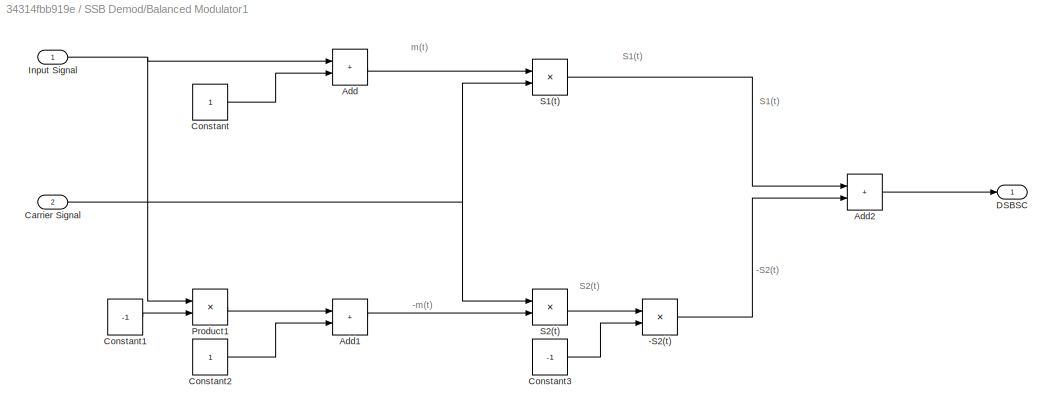
BLOCK [SubSystem] SSB Demod/Balanced Modulator1
BLOCK [Product] SSB Demod/Balanced Modulator1/-S2(t)
BLOCK [Sum] SSB Demod/Balanced Modulator1/Add
  IconShape = rectangular
BLOCK [Sum] SSB Demod/Balanced Modulator1/Add1
  IconShape = rectangular
BLOCK [Sum] SSB Demod/Balanced Modulator1/Add2
  IconShape = rectangular
BLOCK [Inport] SSB Demod/Balanced Modulator1/Carrier Signal
  Port = 2
BLOCK [Constant] SSB Demod/Balanced Modulator1/Constant
BLOCK [Constant] SSB Demod/Balanced Modulator1/Constant1
  Value = -1
BLOCK [Constant] SSB Demod/Balanced Modulator1/Constant2
BLOCK [Constant] SSB Demod/Balanced Modulator1/Constant3
  Value = -1
BLOCK [Outport] SSB Demod/Balanced Modulator1/DSBSC
BLOCK [Inport] SSB Demod/Balanced Modulator1/Input Signal
BLOCK [Product] SSB Demod/Balanced Modulator1/Product1
BLOCK [Product] SSB Demod/Balanced Modulator1/S1(t)
BLOCK [Product] SSB Demod/Balanced Modulator1/S2(t)
  NameLocation = top
BLOCK [Inport] SSB Demod/Input Signal
BLOCK [Outport] SSB Demod/Out1
BLOCK [Sin] SSB Demod/carrier signal
  Frequency = 100*2*pi
  SampleTime = 0
BLOCK [SubSystem] SSB Demod1
BLOCK [Reference] SSB Demod1/Analog Filter Design1  REF=dspfdesign/Analog
Filter Design
  SourceBlock = dspfdesign/Analog\nFilter Design
  SourceType = Analog Filter Design
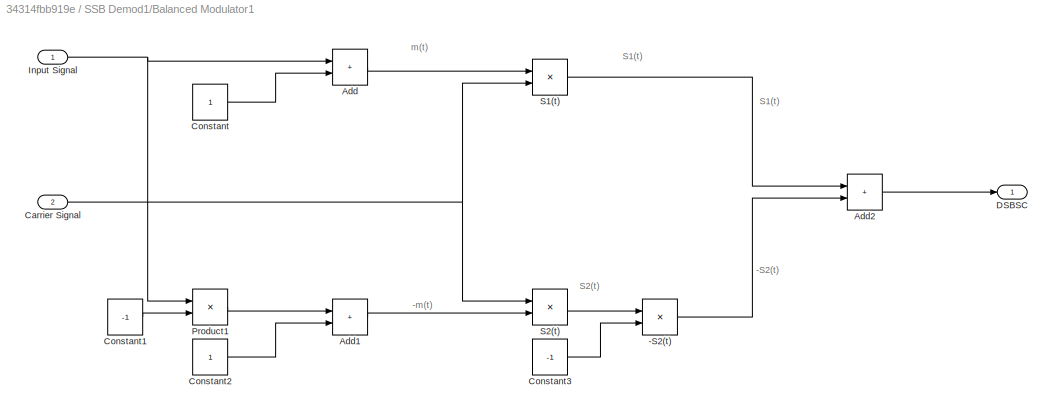
BLOCK [SubSystem] SSB Demod1/Balanced Modulator1
BLOCK [Product] SSB Demod1/Balanced Modulator1/-S2(t)
BLOCK [Sum] SSB Demod1/Balanced Modulator1/Add
  IconShape = rectangular
BLOCK [Sum] SSB Demod1/Balanced Modulator1/Add1
  IconShape = rectangular
BLOCK [Sum] SSB Demod1/Balanced Modulator1/Add2
  IconShape = rectangular
BLOCK [Inport] SSB Demod1/Balanced Modulator1/Carrier Signal
  Port = 2
BLOCK [Constant] SSB Demod1/Balanced Modulator1/Constant
BLOCK [Constant] SSB Demod1/Balanced Modulator1/Constant1
  Value = -1
BLOCK [Constant] SSB Demod1/Balanced Modulator1/Constant2
BLOCK [Constant] SSB Demod1/Balanced Modulator1/Constant3
  Value = -1
BLOCK [Outport] SSB Demod1/Balanced Modulator1/DSBSC
BLOCK [Inport] SSB Demod1/Balanced Modulator1/Input Signal
BLOCK [Product] SSB Demod1/Balanced Modulator1/Product1
BLOCK [Product] SSB Demod1/Balanced Modulator1/S1(t)
BLOCK [Product] SSB Demod1/Balanced Modulator1/S2(t)
  NameLocation = top
BLOCK [Inport] SSB Demod1/Input Signal
BLOCK [Outport] SSB Demod1/Out1
BLOCK [Sin] SSB Demod1/carrier signal
  Frequency = 104*2*pi
  SampleTime = 0
BLOCK [SubSystem] SSB Demod10
BLOCK [Reference] SSB Demod10/Analog Filter Design1  REF=dspfdesign/Analog
Filter Design
  SourceBlock = dspfdesign/Analog\nFilter Design
  SourceType = Analog Filter Design
BLOCK [SubSystem] SSB Demod10/Balanced Modulator1
BLOCK [Product] SSB Demod10/Balanced Modulator1/-S2(t)
BLOCK [Sum] SSB Demod10/Balanced Modulator1/Add
  IconShape = rectangular
BLOCK [Sum] SSB Demod10/Balanced Modulator1/Add1
  IconShape = rectangular
BLOCK [Sum] SSB Demod10/Balanced Modulator1/Add2
  IconShape = rectangular
BLOCK [Inport] SSB Demod10/Balanced Modulator1/Carrier Signal
  Port = 2
BLOCK [Constant] SSB Demod10/Balanced Modulator1/Constant
BLOCK [Constant] SSB Demod10/Balanced Modulator1/Constant1
  Value = -1
BLOCK [Constant] SSB Demod10/Balanced Modulator1/Constant2
BLOCK [Constant] SSB Demod10/Balanced Modulator1/Constant3
  Value = -1
BLOCK [Outport] SSB Demod10/Balanced Modulator1/DSBSC
BLOCK [Inport] SSB Demod10/Balanced Modulator1/Input Signal
BLOCK [Product] SSB Demod10/Balanced Modulator1/Product1
BLOCK [Product] SSB Demod10/Balanced Modulator1/S1(t)
BLOCK [Product] SSB Demod10/Balanced Modulator1/S2(t)
  NameLocation = top
BLOCK [Inport] SSB Demod10/Input Signal
BLOCK [Outport] SSB Demod10/Out1
BLOCK [Sin] SSB Demod10/carrier signal
  Frequency = 140*2*pi
  SampleTime = 0
BLOCK [SubSystem] SSB Demod11
BLOCK [Reference] SSB Demod11/Analog Filter Design1  REF=dspfdesign/Analog
Filter Design
  SourceBlock = dspfdesign/Analog\nFilter Design
  SourceType = Analog Filter Design
BLOCK [SubSystem] SSB Demod11/Balanced Modulator1
BLOCK [Product] SSB Demod11/Balanced Modulator1/-S2(t)
BLOCK [Sum] SSB Demod11/Balanced Modulator1/Add
  IconShape = rectangular
BLOCK [Sum] SSB Demod11/Balanced Modulator1/Add1
  IconShape = rectangular
BLOCK [Sum] SSB Demod11/Balanced Modulator1/Add2
  IconShape = rectangular
BLOCK [Inport] SSB Demod11/Balanced Modulator1/Carrier Signal
  Port = 2
BLOCK [Constant] SSB Demod11/Balanced Modulator1/Constant
BLOCK [Constant] SSB Demod11/Balanced Modulator1/Constant1
  Value = -1
BLOCK [Constant] SSB Demod11/Balanced Modulator1/Constant2
BLOCK [Constant] SSB Demod11/Balanced Modulator1/Constant3
  Value = -1
BLOCK [Outport] SSB Demod11/Balanced Modulator1/DSBSC
BLOCK [Inport] SSB Demod11/Balanced Modulator1/Input Signal
BLOCK [Product] SSB Demod11/Balanced Modulator1/Product1
BLOCK [Product] SSB Demod11/Balanced Modulator1/S1(t)
BLOCK [Product] SSB Demod11/Balanced Modulator1/S2(t)
  NameLocation = top
BLOCK [Inport] SSB Demod11/Input Signal
BLOCK [Outport] SSB Demod11/Out1
BLOCK [Sin] SSB Demod11/carrier signal
  Frequency = 144*2*pi
  SampleTime = 0
BLOCK [SubSystem] SSB Demod12
BLOCK [Reference] SSB Demod12/Analog Filter Design1  REF=dspfdesign/Analog
Filter Design
  SourceBlock = dspfdesign/Analog\nFilter Design
  SourceType = Analog Filter Design
BLOCK [SubSystem] SSB Demod12/Balanced Modulator1
BLOCK [Product] SSB Demod12/Balanced Modulator1/-S2(t)
BLOCK [Sum] SSB Demod12/Balanced Modulator1/Add
  IconShape = rectangular
BLOCK [Sum] SSB Demod12/Balanced Modulator1/Add1
  IconShape = rectangular
BLOCK [Sum] SSB Demod12/Balanced Modulator1/Add2
  IconShape = rectangular
BLOCK [Inport] SSB Demod12/Balanced Modulator1/Carrier Signal
  Port = 2
BLOCK [Constant] SSB Demod12/Balanced Modulator1/Constant
BLOCK [Constant] SSB Demod12/Balanced Modulator1/Constant1
  Value = -1
BLOCK [Constant] SSB Demod12/Balanced Modulator1/Constant2
BLOCK [Constant] SSB Demod12/Balanced Modulator1/Constant3
  Value = -1
BLOCK [Outport] SSB Demod12/Balanced Modulator1/DSBSC
BLOCK [Inport] SSB Demod12/Balanced Modulator1/Input Signal
BLOCK [Product] SSB Demod12/Balanced Modulator1/Product1
BLOCK [Product] SSB Demod12/Balanced Modulator1/S1(t)
BLOCK [Product] SSB Demod12/Balanced Modulator1/S2(t)
  NameLocation = top
BLOCK [Inport] SSB Demod12/Input Signal
BLOCK [Outport] SSB Demod12/Out1
BLOCK [Sin] SSB Demod12/carrier signal
  Frequency = 148*2*pi
  SampleTime = 0
BLOCK [SubSystem] SSB Demod13
BLOCK [Reference] SSB Demod13/Analog Filter Design1  REF=dspfdesign/Analog
Filter Design
  SourceBlock = dspfdesign/Analog\nFilter Design
  SourceType = Analog Filter Design
BLOCK [SubSystem] SSB Demod13/Balanced Modulator1
BLOCK [Product] SSB Demod13/Balanced Modulator1/-S2(t)
BLOCK [Sum] SSB Demod13/Balanced Modulator1/Add
  IconShape = rectangular
BLOCK [Sum] SSB Demod13/Balanced Modulator1/Add1
  IconShape = rectangular
BLOCK [Sum] SSB Demod13/Balanced Modulator1/Add2
  IconShape = rectangular
BLOCK [Inport] SSB Demod13/Balanced Modulator1/Carrier Signal
  Port = 2
BLOCK [Constant] SSB Demod13/Balanced Modulator1/Constant
BLOCK [Constant] SSB Demod13/Balanced Modulator1/Constant1
  Value = -1
BLOCK [Constant] SSB Demod13/Balanced Modulator1/Constant2
BLOCK [Constant] SSB Demod13/Balanced Modulator1/Constant3
  Value = -1
BLOCK [Outport] SSB Demod13/Balanced Modulator1/DSBSC
BLOCK [Inport] SSB Demod13/Balanced Modulator1/Input Signal
BLOCK [Product] SSB Demod13/Balanced Modulator1/Product1
BLOCK [Product] SSB Demod13/Balanced Modulator1/S1(t)
BLOCK [Product] SSB Demod13/Balanced Modulator1/S2(t)
  NameLocation = top
BLOCK [Inport] SSB Demod13/Input Signal
BLOCK [Outport] SSB Demod13/Out1
BLOCK [Sin] SSB Demod13/carrier signal
  Frequency = 152*2*pi
  SampleTime = 0
BLOCK [SubSystem] SSB Demod14
BLOCK [Reference] SSB Demod14/Analog Filter Design1  REF=dspfdesign/Analog
Filter Design
  SourceBlock = dspfdesign/Analog\nFilter Design
  SourceType = Analog Filter Design
BLOCK [SubSystem] SSB Demod14/Balanced Modulator1
BLOCK [Product] SSB Demod14/Balanced Modulator1/-S2(t)
BLOCK [Sum] SSB Demod14/Balanced Modulator1/Add
  IconShape = rectangular
BLOCK [Sum] SSB Demod14/Balanced Modulator1/Add1
  IconShape = rectangular
BLOCK [Sum] SSB Demod14/Balanced Modulator1/Add2
  IconShape = rectangular
BLOCK [Inport] SSB Demod14/Balanced Modulator1/Carrier Signal
  Port = 2
BLOCK [Constant] SSB Demod14/Balanced Modulator1/Constant
BLOCK [Constant] SSB Demod14/Balanced Modulator1/Constant1
  Value = -1
BLOCK [Constant] SSB Demod14/Balanced Modulator1/Constant2
BLOCK [Constant] SSB Demod14/Balanced Modulator1/Constant3
  Value = -1
BLOCK [Outport] SSB Demod14/Balanced Modulator1/DSBSC
BLOCK [Inport] SSB Demod14/Balanced Modulator1/Input Signal
BLOCK [Product] SSB Demod14/Balanced Modulator1/Product1
BLOCK [Product] SSB Demod14/Balanced Modulator1/S1(t)
BLOCK [Product] SSB Demod14/Balanced Modulator1/S2(t)
  NameLocation = top
BLOCK [Inport] SSB Demod14/Input Signal
BLOCK [Outport] SSB Demod14/Out1
BLOCK [Sin] SSB Demod14/carrier signal
  Frequency = 156*2*pi
  SampleTime = 0
BLOCK [SubSystem] SSB Demod15
BLOCK [Reference] SSB Demod15/Analog Filter Design1  REF=dspfdesign/Analog
Filter Design
  SourceBlock = dspfdesign/Analog\nFilter Design
  SourceType = Analog Filter Design
BLOCK [SubSystem] SSB Demod15/Balanced Modulator1
BLOCK [Product] SSB Demod15/Balanced Modulator1/-S2(t)
BLOCK [Sum] SSB Demod15/Balanced Modulator1/Add
  IconShape = rectangular
BLOCK [Sum] SSB Demod15/Balanced Modulator1/Add1
  IconShape = rectangular
BLOCK [Sum] SSB Demod15/Balanced Modulator1/Add2
  IconShape = rectangular
BLOCK [Inport] SSB Demod15/Balanced Modulator1/Carrier Signal
  Port = 2
BLOCK [Constant] SSB Demod15/Balanced Modulator1/Constant
BLOCK [Constant] SSB Demod15/Balanced Modulator1/Constant1
  Value = -1
BLOCK [Constant] SSB Demod15/Balanced Modulator1/Constant2
BLOCK [Constant] SSB Demod15/Balanced Modulator1/Constant3
  Value = -1
BLOCK [Outport] SSB Demod15/Balanced Modulator1/DSBSC
BLOCK [Inport] SSB Demod15/Balanced Modulator1/Input Signal
BLOCK [Product] SSB Demod15/Balanced Modulator1/Product1
BLOCK [Product] SSB Demod15/Balanced Modulator1/S1(t)
BLOCK [Product] SSB Demod15/Balanced Modulator1/S2(t)
  NameLocation = top
BLOCK [Inport] SSB Demod15/Input Signal
BLOCK [Outport] SSB Demod15/Out1
BLOCK [Sin] SSB Demod15/carrier signal
  Frequency = 160*2*pi
  SampleTime = 0
BLOCK [SubSystem] SSB Demod16
BLOCK [Reference] SSB Demod16/Analog Filter Design1  REF=dspfdesign/Analog
Filter Design
  SourceBlock = dspfdesign/Analog\nFilter Design
  SourceType = Analog Filter Design
BLOCK [SubSystem] SSB Demod16/Balanced Modulator1
BLOCK [Product] SSB Demod16/Balanced Modulator1/-S2(t)
BLOCK [Sum] SSB Demod16/Balanced Modulator1/Add
  IconShape = rectangular
BLOCK [Sum] SSB Demod16/Balanced Modulator1/Add1
  IconShape = rectangular
BLOCK [Sum] SSB Demod16/Balanced Modulator1/Add2
  IconShape = rectangular
BLOCK [Inport] SSB Demod16/Balanced Modulator1/Carrier Signal
  Port = 2
BLOCK [Constant] SSB Demod16/Balanced Modulator1/Constant
BLOCK [Constant] SSB Demod16/Balanced Modulator1/Constant1
  Value = -1
BLOCK [Constant] SSB Demod16/Balanced Modulator1/Constant2
BLOCK [Constant] SSB Demod16/Balanced Modulator1/Constant3
  Value = -1
BLOCK [Outport] SSB Demod16/Balanced Modulator1/DSBSC
BLOCK [Inport] SSB Demod16/Balanced Modulator1/Input Signal
BLOCK [Product] SSB Demod16/Balanced Modulator1/Product1
BLOCK [Product] SSB Demod16/Balanced Modulator1/S1(t)
BLOCK [Product] SSB Demod16/Balanced Modulator1/S2(t)
  NameLocation = top
BLOCK [Inport] SSB Demod16/Input Signal
BLOCK [Outport] SSB Demod16/Out1
BLOCK [Sin] SSB Demod16/carrier signal
  Frequency = 164*2*pi
  SampleTime = 0
BLOCK [SubSystem] SSB Demod17
BLOCK [Reference] SSB Demod17/Analog Filter Design1  REF=dspfdesign/Analog
Filter Design
  SourceBlock = dspfdesign/Analog\nFilter Design
  SourceType = Analog Filter Design
BLOCK [SubSystem] SSB Demod17/Balanced Modulator1
BLOCK [Product] SSB Demod17/Balanced Modulator1/-S2(t)
BLOCK [Sum] SSB Demod17/Balanced Modulator1/Add
  IconShape = rectangular
BLOCK [Sum] SSB Demod17/Balanced Modulator1/Add1
  IconShape = rectangular
BLOCK [Sum] SSB Demod17/Balanced Modulator1/Add2
  IconShape = rectangular
BLOCK [Inport] SSB Demod17/Balanced Modulator1/Carrier Signal
  Port = 2
BLOCK [Constant] SSB Demod17/Balanced Modulator1/Constant
BLOCK [Constant] SSB Demod17/Balanced Modulator1/Constant1
  Value = -1
BLOCK [Constant] SSB Demod17/Balanced Modulator1/Constant2
BLOCK [Constant] SSB Demod17/Balanced Modulator1/Constant3
  Value = -1
BLOCK [Outport] SSB Demod17/Balanced Modulator1/DSBSC
BLOCK [Inport] SSB Demod17/Balanced Modulator1/Input Signal
BLOCK [Product] SSB Demod17/Balanced Modulator1/Product1
BLOCK [Product] SSB Demod17/Balanced Modulator1/S1(t)
BLOCK [Product] SSB Demod17/Balanced Modulator1/S2(t)
  NameLocation = top
BLOCK [Inport] SSB Demod17/Input Signal
BLOCK [Outport] SSB Demod17/Out1
BLOCK [Sin] SSB Demod17/carrier signal
  Frequency = 168*2*pi
  SampleTime = 0
BLOCK [SubSystem] SSB Demod18
BLOCK [Reference] SSB Demod18/Analog Filter Design1  REF=dspfdesign/Analog
Filter Design
  SourceBlock = dspfdesign/Analog\nFilter Design
  SourceType = Analog Filter Design
BLOCK [SubSystem] SSB Demod18/Balanced Modulator1
BLOCK [Product] SSB Demod18/Balanced Modulator1/-S2(t)
BLOCK [Sum] SSB Demod18/Balanced Modulator1/Add
  IconShape = rectangular
BLOCK [Sum] SSB Demod18/Balanced Modulator1/Add1
  IconShape = rectangular
BLOCK [Sum] SSB Demod18/Balanced Modulator1/Add2
  IconShape = rectangular
BLOCK [Inport] SSB Demod18/Balanced Modulator1/Carrier Signal
  Port = 2
BLOCK [Constant] SSB Demod18/Balanced Modulator1/Constant
BLOCK [Constant] SSB Demod18/Balanced Modulator1/Constant1
  Value = -1
BLOCK [Constant] SSB Demod18/Balanced Modulator1/Constant2
BLOCK [Constant] SSB Demod18/Balanced Modulator1/Constant3
  Value = -1
BLOCK [Outport] SSB Demod18/Balanced Modulator1/DSBSC
BLOCK [Inport] SSB Demod18/Balanced Modulator1/Input Signal
BLOCK [Product] SSB Demod18/Balanced Modulator1/Product1
BLOCK [Product] SSB Demod18/Balanced Modulator1/S1(t)
BLOCK [Product] SSB Demod18/Balanced Modulator1/S2(t)
  NameLocation = top
BLOCK [Inport] SSB Demod18/Input Signal
BLOCK [Outport] SSB Demod18/Out1
BLOCK [Sin] SSB Demod18/carrier signal
  Frequency = 172*2*pi
  SampleTime = 0
BLOCK [SubSystem] SSB Demod19
BLOCK [Reference] SSB Demod19/Analog Filter Design1  REF=dspfdesign/Analog
Filter Design
  SourceBlock = dspfdesign/Analog\nFilter Design
  SourceType = Analog Filter Design
BLOCK [SubSystem] SSB Demod19/Balanced Modulator1
BLOCK [Product] SSB Demod19/Balanced Modulator1/-S2(t)
BLOCK [Sum] SSB Demod19/Balanced Modulator1/Add
  IconShape = rectangular
BLOCK [Sum] SSB Demod19/Balanced Modulator1/Add1
  IconShape = rectangular
BLOCK [Sum] SSB Demod19/Balanced Modulator1/Add2
  IconShape = rectangular
BLOCK [Inport] SSB Demod19/Balanced Modulator1/Carrier Signal
  Port = 2
BLOCK [Constant] SSB Demod19/Balanced Modulator1/Constant
BLOCK [Constant] SSB Demod19/Balanced Modulator1/Constant1
  Value = -1
BLOCK [Constant] SSB Demod19/Balanced Modulator1/Constant2
BLOCK [Constant] SSB Demod19/Balanced Modulator1/Constant3
  Value = -1
BLOCK [Outport] SSB Demod19/Balanced Modulator1/DSBSC
BLOCK [Inport] SSB Demod19/Balanced Modulator1/Input Signal
BLOCK [Product] SSB Demod19/Balanced Modulator1/Product1
BLOCK [Product] SSB Demod19/Balanced Modulator1/S1(t)
BLOCK [Product] SSB Demod19/Balanced Modulator1/S2(t)
  NameLocation = top
BLOCK [Inport] SSB Demod19/Input Signal
BLOCK [Outport] SSB Demod19/Out1
BLOCK [Sin] SSB Demod19/carrier signal
  Frequency = 176*2*pi
  SampleTime = 0
BLOCK [SubSystem] SSB Demod2
BLOCK [Reference] SSB Demod2/Analog Filter Design1  REF=dspfdesign/Analog
Filter Design
  SourceBlock = dspfdesign/Analog\nFilter Design
  SourceType = Analog Filter Design
BLOCK [SubSystem] SSB Demod2/Balanced Modulator1
BLOCK [Product] SSB Demod2/Balanced Modulator1/-S2(t)
BLOCK [Sum] SSB Demod2/Balanced Modulator1/Add
  IconShape = rectangular
BLOCK [Sum] SSB Demod2/Balanced Modulator1/Add1
  IconShape = rectangular
BLOCK [Sum] SSB Demod2/Balanced Modulator1/Add2
  IconShape = rectangular
BLOCK [Inport] SSB Demod2/Balanced Modulator1/Carrier Signal
  Port = 2
BLOCK [Constant] SSB Demod2/Balanced Modulator1/Constant
BLOCK [Constant] SSB Demod2/Balanced Modulator1/Constant1
  Value = -1
BLOCK [Constant] SSB Demod2/Balanced Modulator1/Constant2
BLOCK [Constant] SSB Demod2/Balanced Modulator1/Constant3
  Value = -1
BLOCK [Outport] SSB Demod2/Balanced Modulator1/DSBSC
BLOCK [Inport] SSB Demod2/Balanced Modulator1/Input Signal
BLOCK [Product] SSB Demod2/Balanced Modulator1/Product1
BLOCK [Product] SSB Demod2/Balanced Modulator1/S1(t)
BLOCK [Product] SSB Demod2/Balanced Modulator1/S2(t)
  NameLocation = top
BLOCK [Inport] SSB Demod2/Input Signal
BLOCK [Outport] SSB Demod2/Out1
BLOCK [Sin] SSB Demod2/carrier signal
  Frequency = 108*2*pi
  SampleTime = 0
BLOCK [SubSystem] SSB Demod20
BLOCK [Reference] SSB Demod20/Analog Filter Design1  REF=dspfdesign/Analog
Filter Design
  SourceBlock = dspfdesign/Analog\nFilter Design
  SourceType = Analog Filter Design
BLOCK [SubSystem] SSB Demod20/Balanced Modulator1
BLOCK [Product] SSB Demod20/Balanced Modulator1/-S2(t)
BLOCK [Sum] SSB Demod20/Balanced Modulator1/Add
  IconShape = rectangular
BLOCK [Sum] SSB Demod20/Balanced Modulator1/Add1
  IconShape = rectangular
BLOCK [Sum] SSB Demod20/Balanced Modulator1/Add2
  IconShape = rectangular
BLOCK [Inport] SSB Demod20/Balanced Modulator1/Carrier Signal
  Port = 2
BLOCK [Constant] SSB Demod20/Balanced Modulator1/Constant
BLOCK [Constant] SSB Demod20/Balanced Modulator1/Constant1
  Value = -1
BLOCK [Constant] SSB Demod20/Balanced Modulator1/Constant2
BLOCK [Constant] SSB Demod20/Balanced Modulator1/Constant3
  Value = -1
BLOCK [Outport] SSB Demod20/Balanced Modulator1/DSBSC
BLOCK [Inport] SSB Demod20/Balanced Modulator1/Input Signal
BLOCK [Product] SSB Demod20/Balanced Modulator1/Product1
BLOCK [Product] SSB Demod20/Balanced Modulator1/S1(t)
BLOCK [Product] SSB Demod20/Balanced Modulator1/S2(t)
  NameLocation = top
BLOCK [Inport] SSB Demod20/Input Signal
BLOCK [Outport] SSB Demod20/Out1
BLOCK [Sin] SSB Demod20/carrier signal
  Frequency = 180*2*pi
  SampleTime = 0
BLOCK [SubSystem] SSB Demod21
BLOCK [Reference] SSB Demod21/Analog Filter Design1  REF=dspfdesign/Analog
Filter Design
  SourceBlock = dspfdesign/Analog\nFilter Design
  SourceType = Analog Filter Design
BLOCK [SubSystem] SSB Demod21/Balanced Modulator1
BLOCK [Product] SSB Demod21/Balanced Modulator1/-S2(t)
BLOCK [Sum] SSB Demod21/Balanced Modulator1/Add
  IconShape = rectangular
BLOCK [Sum] SSB Demod21/Balanced Modulator1/Add1
  IconShape = rectangular
BLOCK [Sum] SSB Demod21/Balanced Modulator1/Add2
  IconShape = rectangular
BLOCK [Inport] SSB Demod21/Balanced Modulator1/Carrier Signal
  Port = 2
BLOCK [Constant] SSB Demod21/Balanced Modulator1/Constant
BLOCK [Constant] SSB Demod21/Balanced Modulator1/Constant1
  Value = -1
BLOCK [Constant] SSB Demod21/Balanced Modulator1/Constant2
BLOCK [Constant] SSB Demod21/Balanced Modulator1/Constant3
  Value = -1
BLOCK [Outport] SSB Demod21/Balanced Modulator1/DSBSC
BLOCK [Inport] SSB Demod21/Balanced Modulator1/Input Signal
BLOCK [Product] SSB Demod21/Balanced Modulator1/Product1
BLOCK [Product] SSB Demod21/Balanced Modulator1/S1(t)
BLOCK [Product] SSB Demod21/Balanced Modulator1/S2(t)
  NameLocation = top
BLOCK [Inport] SSB Demod21/Input Signal
BLOCK [Outport] SSB Demod21/Out1
BLOCK [Sin] SSB Demod21/carrier signal
  Frequency = 184*2*pi
  SampleTime = 0
BLOCK [SubSystem] SSB Demod22
BLOCK [Reference] SSB Demod22/Analog Filter Design1  REF=dspfdesign/Analog
Filter Design
  SourceBlock = dspfdesign/Analog\nFilter Design
  SourceType = Analog Filter Design
BLOCK [SubSystem] SSB Demod22/Balanced Modulator1
BLOCK [Product] SSB Demod22/Balanced Modulator1/-S2(t)
BLOCK [Sum] SSB Demod22/Balanced Modulator1/Add
  IconShape = rectangular
BLOCK [Sum] SSB Demod22/Balanced Modulator1/Add1
  IconShape = rectangular
BLOCK [Sum] SSB Demod22/Balanced Modulator1/Add2
  IconShape = rectangular
BLOCK [Inport] SSB Demod22/Balanced Modulator1/Carrier Signal
  Port = 2
BLOCK [Constant] SSB Demod22/Balanced Modulator1/Constant
BLOCK [Constant] SSB Demod22/Balanced Modulator1/Constant1
  Value = -1
BLOCK [Constant] SSB Demod22/Balanced Modulator1/Constant2
BLOCK [Constant] SSB Demod22/Balanced Modulator1/Constant3
  Value = -1
BLOCK [Outport] SSB Demod22/Balanced Modulator1/DSBSC
BLOCK [Inport] SSB Demod22/Balanced Modulator1/Input Signal
BLOCK [Product] SSB Demod22/Balanced Modulator1/Product1
BLOCK [Product] SSB Demod22/Balanced Modulator1/S1(t)
BLOCK [Product] SSB Demod22/Balanced Modulator1/S2(t)
  NameLocation = top
BLOCK [Inport] SSB Demod22/Input Signal
BLOCK [Outport] SSB Demod22/Out1
BLOCK [Sin] SSB Demod22/carrier signal
  Frequency = 188*2*pi
  SampleTime = 0
BLOCK [SubSystem] SSB Demod23
BLOCK [Reference] SSB Demod23/Analog Filter Design1  REF=dspfdesign/Analog
Filter Design
  SourceBlock = dspfdesign/Analog\nFilter Design
  SourceType = Analog Filter Design
BLOCK [SubSystem] SSB Demod23/Balanced Modulator1
BLOCK [Product] SSB Demod23/Balanced Modulator1/-S2(t)
BLOCK [Sum] SSB Demod23/Balanced Modulator1/Add
  IconShape = rectangular
BLOCK [Sum] SSB Demod23/Balanced Modulator1/Add1
  IconShape = rectangular
BLOCK [Sum] SSB Demod23/Balanced Modulator1/Add2
  IconShape = rectangular
BLOCK [Inport] SSB Demod23/Balanced Modulator1/Carrier Signal
  Port = 2
BLOCK [Constant] SSB Demod23/Balanced Modulator1/Constant
BLOCK [Constant] SSB Demod23/Balanced Modulator1/Constant1
  Value = -1
BLOCK [Constant] SSB Demod23/Balanced Modulator1/Constant2
BLOCK [Constant] SSB Demod23/Balanced Modulator1/Constant3
  Value = -1
BLOCK [Outport] SSB Demod23/Balanced Modulator1/DSBSC
BLOCK [Inport] SSB Demod23/Balanced Modulator1/Input Signal
BLOCK [Product] SSB Demod23/Balanced Modulator1/Product1
BLOCK [Product] SSB Demod23/Balanced Modulator1/S1(t)
BLOCK [Product] SSB Demod23/Balanced Modulator1/S2(t)
  NameLocation = top
BLOCK [Inport] SSB Demod23/Input Signal
BLOCK [Outport] SSB Demod23/Out1
BLOCK [Sin] SSB Demod23/carrier signal
  Frequency = 192*2*pi
  SampleTime = 0
BLOCK [SubSystem] SSB Demod24
BLOCK [Reference] SSB Demod24/Analog Filter Design1  REF=dspfdesign/Analog
Filter Design
  SourceBlock = dspfdesign/Analog\nFilter Design
  SourceType = Analog Filter Design
BLOCK [SubSystem] SSB Demod24/Balanced Modulator1
BLOCK [Product] SSB Demod24/Balanced Modulator1/-S2(t)
BLOCK [Sum] SSB Demod24/Balanced Modulator1/Add
  IconShape = rectangular
BLOCK [Sum] SSB Demod24/Balanced Modulator1/Add1
  IconShape = rectangular
BLOCK [Sum] SSB Demod24/Balanced Modulator1/Add2
  IconShape = rectangular
BLOCK [Inport] SSB Demod24/Balanced Modulator1/Carrier Signal
  Port = 2
BLOCK [Constant] SSB Demod24/Balanced Modulator1/Constant
BLOCK [Constant] SSB Demod24/Balanced Modulator1/Constant1
  Value = -1
BLOCK [Constant] SSB Demod24/Balanced Modulator1/Constant2
BLOCK [Constant] SSB Demod24/Balanced Modulator1/Constant3
  Value = -1
BLOCK [Outport] SSB Demod24/Balanced Modulator1/DSBSC
BLOCK [Inport] SSB Demod24/Balanced Modulator1/Input Signal
BLOCK [Product] SSB Demod24/Balanced Modulator1/Product1
BLOCK [Product] SSB Demod24/Balanced Modulator1/S1(t)
BLOCK [Product] SSB Demod24/Balanced Modulator1/S2(t)
  NameLocation = top
BLOCK [Inport] SSB Demod24/Input Signal
BLOCK [Outport] SSB Demod24/Out1
BLOCK [Sin] SSB Demod24/carrier signal
  Frequency = 196*2*pi
  SampleTime = 0
BLOCK [SubSystem] SSB Demod25
BLOCK [Reference] SSB Demod25/Analog Filter Design1  REF=dspfdesign/Analog
Filter Design
  SourceBlock = dspfdesign/Analog\nFilter Design
  SourceType = Analog Filter Design
BLOCK [SubSystem] SSB Demod25/Balanced Modulator1
BLOCK [Product] SSB Demod25/Balanced Modulator1/-S2(t)
BLOCK [Sum] SSB Demod25/Balanced Modulator1/Add
  IconShape = rectangular
BLOCK [Sum] SSB Demod25/Balanced Modulator1/Add1
  IconShape = rectangular
BLOCK [Sum] SSB Demod25/Balanced Modulator1/Add2
  IconShape = rectangular
BLOCK [Inport] SSB Demod25/Balanced Modulator1/Carrier Signal
  Port = 2
BLOCK [Constant] SSB Demod25/Balanced Modulator1/Constant
BLOCK [Constant] SSB Demod25/Balanced Modulator1/Constant1
  Value = -1
BLOCK [Constant] SSB Demod25/Balanced Modulator1/Constant2
BLOCK [Constant] SSB Demod25/Balanced Modulator1/Constant3
  Value = -1
BLOCK [Outport] SSB Demod25/Balanced Modulator1/DSBSC
BLOCK [Inport] SSB Demod25/Balanced Modulator1/Input Signal
BLOCK [Product] SSB Demod25/Balanced Modulator1/Product1
BLOCK [Product] SSB Demod25/Balanced Modulator1/S1(t)
BLOCK [Product] SSB Demod25/Balanced Modulator1/S2(t)
  NameLocation = top
BLOCK [Inport] SSB Demod25/Input Signal
BLOCK [Outport] SSB Demod25/Out1
BLOCK [Sin] SSB Demod25/carrier signal
  Frequency = 200*2*pi
  SampleTime = 0
BLOCK [SubSystem] SSB Demod26
BLOCK [Reference] SSB Demod26/Analog Filter Design1  REF=dspfdesign/Analog
Filter Design
  SourceBlock = dspfdesign/Analog\nFilter Design
  SourceType = Analog Filter Design
BLOCK [SubSystem] SSB Demod26/Balanced Modulator1
BLOCK [Product] SSB Demod26/Balanced Modulator1/-S2(t)
BLOCK [Sum] SSB Demod26/Balanced Modulator1/Add
  IconShape = rectangular
BLOCK [Sum] SSB Demod26/Balanced Modulator1/Add1
  IconShape = rectangular
BLOCK [Sum] SSB Demod26/Balanced Modulator1/Add2
  IconShape = rectangular
BLOCK [Inport] SSB Demod26/Balanced Modulator1/Carrier Signal
  Port = 2
BLOCK [Constant] SSB Demod26/Balanced Modulator1/Constant
BLOCK [Constant] SSB Demod26/Balanced Modulator1/Constant1
  Value = -1
BLOCK [Constant] SSB Demod26/Balanced Modulator1/Constant2
BLOCK [Constant] SSB Demod26/Balanced Modulator1/Constant3
  Value = -1
BLOCK [Outport] SSB Demod26/Balanced Modulator1/DSBSC
BLOCK [Inport] SSB Demod26/Balanced Modulator1/Input Signal
BLOCK [Product] SSB Demod26/Balanced Modulator1/Product1
BLOCK [Product] SSB Demod26/Balanced Modulator1/S1(t)
BLOCK [Product] SSB Demod26/Balanced Modulator1/S2(t)
  NameLocation = top
BLOCK [Inport] SSB Demod26/Input Signal
BLOCK [Outport] SSB Demod26/Out1
BLOCK [Sin] SSB Demod26/carrier signal
  Frequency = 204*2*pi
  SampleTime = 0
BLOCK [SubSystem] SSB Demod27
BLOCK [Reference] SSB Demod27/Analog Filter Design1  REF=dspfdesign/Analog
Filter Design
  SourceBlock = dspfdesign/Analog\nFilter Design
  SourceType = Analog Filter Design
BLOCK [SubSystem] SSB Demod27/Balanced Modulator1
BLOCK [Product] SSB Demod27/Balanced Modulator1/-S2(t)
BLOCK [Sum] SSB Demod27/Balanced Modulator1/Add
  IconShape = rectangular
BLOCK [Sum] SSB Demod27/Balanced Modulator1/Add1
  IconShape = rectangular
BLOCK [Sum] SSB Demod27/Balanced Modulator1/Add2
  IconShape = rectangular
BLOCK [Inport] SSB Demod27/Balanced Modulator1/Carrier Signal
  Port = 2
BLOCK [Constant] SSB Demod27/Balanced Modulator1/Constant
BLOCK [Constant] SSB Demod27/Balanced Modulator1/Constant1
  Value = -1
BLOCK [Constant] SSB Demod27/Balanced Modulator1/Constant2
BLOCK [Constant] SSB Demod27/Balanced Modulator1/Constant3
  Value = -1
BLOCK [Outport] SSB Demod27/Balanced Modulator1/DSBSC
BLOCK [Inport] SSB Demod27/Balanced Modulator1/Input Signal
BLOCK [Product] SSB Demod27/Balanced Modulator1/Product1
BLOCK [Product] SSB Demod27/Balanced Modulator1/S1(t)
BLOCK [Product] SSB Demod27/Balanced Modulator1/S2(t)
  NameLocation = top
BLOCK [Inport] SSB Demod27/Input Signal
BLOCK [Outport] SSB Demod27/Out1
BLOCK [Sin] SSB Demod27/carrier signal
  Frequency = 208*2*pi
  SampleTime = 0
BLOCK [SubSystem] SSB Demod28
BLOCK [Reference] SSB Demod28/Analog Filter Design1  REF=dspfdesign/Analog
Filter Design
  SourceBlock = dspfdesign/Analog\nFilter Design
  SourceType = Analog Filter Design
BLOCK [SubSystem] SSB Demod28/Balanced Modulator1
BLOCK [Product] SSB Demod28/Balanced Modulator1/-S2(t)
BLOCK [Sum] SSB Demod28/Balanced Modulator1/Add
  IconShape = rectangular
BLOCK [Sum] SSB Demod28/Balanced Modulator1/Add1
  IconShape = rectangular
BLOCK [Sum] SSB Demod28/Balanced Modulator1/Add2
  IconShape = rectangular
BLOCK [Inport] SSB Demod28/Balanced Modulator1/Carrier Signal
  Port = 2
BLOCK [Constant] SSB Demod28/Balanced Modulator1/Constant
BLOCK [Constant] SSB Demod28/Balanced Modulator1/Constant1
  Value = -1
BLOCK [Constant] SSB Demod28/Balanced Modulator1/Constant2
BLOCK [Constant] SSB Demod28/Balanced Modulator1/Constant3
  Value = -1
BLOCK [Outport] SSB Demod28/Balanced Modulator1/DSBSC
BLOCK [Inport] SSB Demod28/Balanced Modulator1/Input Signal
BLOCK [Product] SSB Demod28/Balanced Modulator1/Product1
BLOCK [Product] SSB Demod28/Balanced Modulator1/S1(t)
BLOCK [Product] SSB Demod28/Balanced Modulator1/S2(t)
  NameLocation = top
BLOCK [Inport] SSB Demod28/Input Signal
BLOCK [Outport] SSB Demod28/Out1
BLOCK [Sin] SSB Demod28/carrier signal
  Frequency = 212*2*pi
  SampleTime = 0
BLOCK [SubSystem] SSB Demod29
BLOCK [Reference] SSB Demod29/Analog Filter Design1  REF=dspfdesign/Analog
Filter Design
  SourceBlock = dspfdesign/Analog\nFilter Design
  SourceType = Analog Filter Design
BLOCK [SubSystem] SSB Demod29/Balanced Modulator1
BLOCK [Product] SSB Demod29/Balanced Modulator1/-S2(t)
BLOCK [Sum] SSB Demod29/Balanced Modulator1/Add
  IconShape = rectangular
BLOCK [Sum] SSB Demod29/Balanced Modulator1/Add1
  IconShape = rectangular
BLOCK [Sum] SSB Demod29/Balanced Modulator1/Add2
  IconShape = rectangular
BLOCK [Inport] SSB Demod29/Balanced Modulator1/Carrier Signal
  Port = 2
BLOCK [Constant] SSB Demod29/Balanced Modulator1/Constant
BLOCK [Constant] SSB Demod29/Balanced Modulator1/Constant1
  Value = -1
BLOCK [Constant] SSB Demod29/Balanced Modulator1/Constant2
BLOCK [Constant] SSB Demod29/Balanced Modulator1/Constant3
  Value = -1
BLOCK [Outport] SSB Demod29/Balanced Modulator1/DSBSC
BLOCK [Inport] SSB Demod29/Balanced Modulator1/Input Signal
BLOCK [Product] SSB Demod29/Balanced Modulator1/Product1
BLOCK [Product] SSB Demod29/Balanced Modulator1/S1(t)
BLOCK [Product] SSB Demod29/Balanced Modulator1/S2(t)
  NameLocation = top
BLOCK [Inport] SSB Demod29/Input Signal
BLOCK [Outport] SSB Demod29/Out1
BLOCK [Sin] SSB Demod29/carrier signal
  Frequency = 216*2*pi
  SampleTime = 0
BLOCK [SubSystem] SSB Demod3
BLOCK [Reference] SSB Demod3/Analog Filter Design1  REF=dspfdesign/Analog
Filter Design
  SourceBlock = dspfdesign/Analog\nFilter Design
  SourceType = Analog Filter Design
BLOCK [SubSystem] SSB Demod3/Balanced Modulator1
BLOCK [Product] SSB Demod3/Balanced Modulator1/-S2(t)
BLOCK [Sum] SSB Demod3/Balanced Modulator1/Add
  IconShape = rectangular
BLOCK [Sum] SSB Demod3/Balanced Modulator1/Add1
  IconShape = rectangular
BLOCK [Sum] SSB Demod3/Balanced Modulator1/Add2
  IconShape = rectangular
BLOCK [Inport] SSB Demod3/Balanced Modulator1/Carrier Signal
  Port = 2
BLOCK [Constant] SSB Demod3/Balanced Modulator1/Constant
BLOCK [Constant] SSB Demod3/Balanced Modulator1/Constant1
  Value = -1
BLOCK [Constant] SSB Demod3/Balanced Modulator1/Constant2
BLOCK [Constant] SSB Demod3/Balanced Modulator1/Constant3
  Value = -1
BLOCK [Outport] SSB Demod3/Balanced Modulator1/DSBSC
BLOCK [Inport] SSB Demod3/Balanced Modulator1/Input Signal
BLOCK [Product] SSB Demod3/Balanced Modulator1/Product1
BLOCK [Product] SSB Demod3/Balanced Modulator1/S1(t)
BLOCK [Product] SSB Demod3/Balanced Modulator1/S2(t)
  NameLocation = top
BLOCK [Inport] SSB Demod3/Input Signal
BLOCK [Outport] SSB Demod3/Out1
BLOCK [Sin] SSB Demod3/carrier signal
  Frequency = 112*2*pi
  SampleTime = 0
BLOCK [SubSystem] SSB Demod30
BLOCK [Reference] SSB Demod30/Analog Filter Design1  REF=dspfdesign/Analog
Filter Design
  SourceBlock = dspfdesign/Analog\nFilter Design
  SourceType = Analog Filter Design
BLOCK [SubSystem] SSB Demod30/Balanced Modulator1
BLOCK [Product] SSB Demod30/Balanced Modulator1/-S2(t)
BLOCK [Sum] SSB Demod30/Balanced Modulator1/Add
  IconShape = rectangular
BLOCK [Sum] SSB Demod30/Balanced Modulator1/Add1
  IconShape = rectangular
BLOCK [Sum] SSB Demod30/Balanced Modulator1/Add2
  IconShape = rectangular
BLOCK [Inport] SSB Demod30/Balanced Modulator1/Carrier Signal
  Port = 2
BLOCK [Constant] SSB Demod30/Balanced Modulator1/Constant
BLOCK [Constant] SSB Demod30/Balanced Modulator1/Constant1
  Value = -1
BLOCK [Constant] SSB Demod30/Balanced Modulator1/Constant2
BLOCK [Constant] SSB Demod30/Balanced Modulator1/Constant3
  Value = -1
BLOCK [Outport] SSB Demod30/Balanced Modulator1/DSBSC
BLOCK [Inport] SSB Demod30/Balanced Modulator1/Input Signal
BLOCK [Product] SSB Demod30/Balanced Modulator1/Product1
BLOCK [Product] SSB Demod30/Balanced Modulator1/S1(t)
BLOCK [Product] SSB Demod30/Balanced Modulator1/S2(t)
  NameLocation = top
BLOCK [Inport] SSB Demod30/Input Signal
BLOCK [Outport] SSB Demod30/Out1
BLOCK [Sin] SSB Demod30/carrier signal
  Frequency = 220*2*pi
  SampleTime = 0
BLOCK [SubSystem] SSB Demod31
BLOCK [Reference] SSB Demod31/Analog Filter Design1  REF=dspfdesign/Analog
Filter Design
  SourceBlock = dspfdesign/Analog\nFilter Design
  SourceType = Analog Filter Design
BLOCK [SubSystem] SSB Demod31/Balanced Modulator1
BLOCK [Product] SSB Demod31/Balanced Modulator1/-S2(t)
BLOCK [Sum] SSB Demod31/Balanced Modulator1/Add
  IconShape = rectangular
BLOCK [Sum] SSB Demod31/Balanced Modulator1/Add1
  IconShape = rectangular
BLOCK [Sum] SSB Demod31/Balanced Modulator1/Add2
  IconShape = rectangular
BLOCK [Inport] SSB Demod31/Balanced Modulator1/Carrier Signal
  Port = 2
BLOCK [Constant] SSB Demod31/Balanced Modulator1/Constant
BLOCK [Constant] SSB Demod31/Balanced Modulator1/Constant1
  Value = -1
BLOCK [Constant] SSB Demod31/Balanced Modulator1/Constant2
BLOCK [Constant] SSB Demod31/Balanced Modulator1/Constant3
  Value = -1
BLOCK [Outport] SSB Demod31/Balanced Modulator1/DSBSC
BLOCK [Inport] SSB Demod31/Balanced Modulator1/Input Signal
BLOCK [Product] SSB Demod31/Balanced Modulator1/Product1
BLOCK [Product] SSB Demod31/Balanced Modulator1/S1(t)
BLOCK [Product] SSB Demod31/Balanced Modulator1/S2(t)
  NameLocation = top
BLOCK [Inport] SSB Demod31/Input Signal
BLOCK [Outport] SSB Demod31/Out1
BLOCK [Sin] SSB Demod31/carrier signal
  Frequency = 224*2*pi
  SampleTime = 0
BLOCK [SubSystem] SSB Demod32
BLOCK [Reference] SSB Demod32/Analog Filter Design1  REF=dspfdesign/Analog
Filter Design
  SourceBlock = dspfdesign/Analog\nFilter Design
  SourceType = Analog Filter Design
BLOCK [SubSystem] SSB Demod32/Balanced Modulator1
BLOCK [Product] SSB Demod32/Balanced Modulator1/-S2(t)
BLOCK [Sum] SSB Demod32/Balanced Modulator1/Add
  IconShape = rectangular
BLOCK [Sum] SSB Demod32/Balanced Modulator1/Add1
  IconShape = rectangular
BLOCK [Sum] SSB Demod32/Balanced Modulator1/Add2
  IconShape = rectangular
BLOCK [Inport] SSB Demod32/Balanced Modulator1/Carrier Signal
  Port = 2
BLOCK [Constant] SSB Demod32/Balanced Modulator1/Constant
BLOCK [Constant] SSB Demod32/Balanced Modulator1/Constant1
  Value = -1
BLOCK [Constant] SSB Demod32/Balanced Modulator1/Constant2
BLOCK [Constant] SSB Demod32/Balanced Modulator1/Constant3
  Value = -1
BLOCK [Outport] SSB Demod32/Balanced Modulator1/DSBSC
BLOCK [Inport] SSB Demod32/Balanced Modulator1/Input Signal
BLOCK [Product] SSB Demod32/Balanced Modulator1/Product1
BLOCK [Product] SSB Demod32/Balanced Modulator1/S1(t)
BLOCK [Product] SSB Demod32/Balanced Modulator1/S2(t)
  NameLocation = top
BLOCK [Inport] SSB Demod32/Input Signal
BLOCK [Outport] SSB Demod32/Out1
BLOCK [Sin] SSB Demod32/carrier signal
  Frequency = 228*2*pi
  SampleTime = 0
BLOCK [SubSystem] SSB Demod33
BLOCK [Reference] SSB Demod33/Analog Filter Design1  REF=dspfdesign/Analog
Filter Design
  SourceBlock = dspfdesign/Analog\nFilter Design
  SourceType = Analog Filter Design
BLOCK [SubSystem] SSB Demod33/Balanced Modulator1
BLOCK [Product] SSB Demod33/Balanced Modulator1/-S2(t)
BLOCK [Sum] SSB Demod33/Balanced Modulator1/Add
  IconShape = rectangular
BLOCK [Sum] SSB Demod33/Balanced Modulator1/Add1
  IconShape = rectangular
BLOCK [Sum] SSB Demod33/Balanced Modulator1/Add2
  IconShape = rectangular
BLOCK [Inport] SSB Demod33/Balanced Modulator1/Carrier Signal
  Port = 2
BLOCK [Constant] SSB Demod33/Balanced Modulator1/Constant
BLOCK [Constant] SSB Demod33/Balanced Modulator1/Constant1
  Value = -1
BLOCK [Constant] SSB Demod33/Balanced Modulator1/Constant2
BLOCK [Constant] SSB Demod33/Balanced Modulator1/Constant3
  Value = -1
BLOCK [Outport] SSB Demod33/Balanced Modulator1/DSBSC
BLOCK [Inport] SSB Demod33/Balanced Modulator1/Input Signal
BLOCK [Product] SSB Demod33/Balanced Modulator1/Product1
BLOCK [Product] SSB Demod33/Balanced Modulator1/S1(t)
BLOCK [Product] SSB Demod33/Balanced Modulator1/S2(t)
  NameLocation = top
BLOCK [Inport] SSB Demod33/Input Signal
BLOCK [Outport] SSB Demod33/Out1
BLOCK [Sin] SSB Demod33/carrier signal
  Frequency = 232*2*pi
  SampleTime = 0
BLOCK [SubSystem] SSB Demod34
BLOCK [Reference] SSB Demod34/Analog Filter Design1  REF=dspfdesign/Analog
Filter Design
  SourceBlock = dspfdesign/Analog\nFilter Design
  SourceType = Analog Filter Design
BLOCK [SubSystem] SSB Demod34/Balanced Modulator1
BLOCK [Product] SSB Demod34/Balanced Modulator1/-S2(t)
BLOCK [Sum] SSB Demod34/Balanced Modulator1/Add
  IconShape = rectangular
BLOCK [Sum] SSB Demod34/Balanced Modulator1/Add1
  IconShape = rectangular
BLOCK [Sum] SSB Demod34/Balanced Modulator1/Add2
  IconShape = rectangular
BLOCK [Inport] SSB Demod34/Balanced Modulator1/Carrier Signal
  Port = 2
BLOCK [Constant] SSB Demod34/Balanced Modulator1/Constant
BLOCK [Constant] SSB Demod34/Balanced Modulator1/Constant1
  Value = -1
BLOCK [Constant] SSB Demod34/Balanced Modulator1/Constant2
BLOCK [Constant] SSB Demod34/Balanced Modulator1/Constant3
  Value = -1
BLOCK [Outport] SSB Demod34/Balanced Modulator1/DSBSC
BLOCK [Inport] SSB Demod34/Balanced Modulator1/Input Signal
BLOCK [Product] SSB Demod34/Balanced Modulator1/Product1
BLOCK [Product] SSB Demod34/Balanced Modulator1/S1(t)
BLOCK [Product] SSB Demod34/Balanced Modulator1/S2(t)
  NameLocation = top
BLOCK [Inport] SSB Demod34/Input Signal
BLOCK [Outport] SSB Demod34/Out1
BLOCK [Sin] SSB Demod34/carrier signal
  Frequency = 236*2*pi
  SampleTime = 0
BLOCK [SubSystem] SSB Demod35
BLOCK [Reference] SSB Demod35/Analog Filter Design1  REF=dspfdesign/Analog
Filter Design
  SourceBlock = dspfdesign/Analog\nFilter Design
  SourceType = Analog Filter Design
BLOCK [SubSystem] SSB Demod35/Balanced Modulator1
BLOCK [Product] SSB Demod35/Balanced Modulator1/-S2(t)
BLOCK [Sum] SSB Demod35/Balanced Modulator1/Add
  IconShape = rectangular
BLOCK [Sum] SSB Demod35/Balanced Modulator1/Add1
  IconShape = rectangular
BLOCK [Sum] SSB Demod35/Balanced Modulator1/Add2
  IconShape = rectangular
BLOCK [Inport] SSB Demod35/Balanced Modulator1/Carrier Signal
  Port = 2
BLOCK [Constant] SSB Demod35/Balanced Modulator1/Constant
BLOCK [Constant] SSB Demod35/Balanced Modulator1/Constant1
  Value = -1
BLOCK [Constant] SSB Demod35/Balanced Modulator1/Constant2
BLOCK [Constant] SSB Demod35/Balanced Modulator1/Constant3
  Value = -1
BLOCK [Outport] SSB Demod35/Balanced Modulator1/DSBSC
BLOCK [Inport] SSB Demod35/Balanced Modulator1/Input Signal
BLOCK [Product] SSB Demod35/Balanced Modulator1/Product1
BLOCK [Product] SSB Demod35/Balanced Modulator1/S1(t)
BLOCK [Product] SSB Demod35/Balanced Modulator1/S2(t)
  NameLocation = top
BLOCK [Inport] SSB Demod35/Input Signal
BLOCK [Outport] SSB Demod35/Out1
BLOCK [Sin] SSB Demod35/carrier signal
  Frequency = 240*2*pi
  SampleTime = 0
BLOCK [SubSystem] SSB Demod36
BLOCK [Reference] SSB Demod36/Analog Filter Design1  REF=dspfdesign/Analog
Filter Design
  SourceBlock = dspfdesign/Analog\nFilter Design
  SourceType = Analog Filter Design
BLOCK [SubSystem] SSB Demod36/Balanced Modulator1
BLOCK [Product] SSB Demod36/Balanced Modulator1/-S2(t)
BLOCK [Sum] SSB Demod36/Balanced Modulator1/Add
  IconShape = rectangular
BLOCK [Sum] SSB Demod36/Balanced Modulator1/Add1
  IconShape = rectangular
BLOCK [Sum] SSB Demod36/Balanced Modulator1/Add2
  IconShape = rectangular
BLOCK [Inport] SSB Demod36/Balanced Modulator1/Carrier Signal
  Port = 2
BLOCK [Constant] SSB Demod36/Balanced Modulator1/Constant
BLOCK [Constant] SSB Demod36/Balanced Modulator1/Constant1
  Value = -1
BLOCK [Constant] SSB Demod36/Balanced Modulator1/Constant2
BLOCK [Constant] SSB Demod36/Balanced Modulator1/Constant3
  Value = -1
BLOCK [Outport] SSB Demod36/Balanced Modulator1/DSBSC
BLOCK [Inport] SSB Demod36/Balanced Modulator1/Input Signal
BLOCK [Product] SSB Demod36/Balanced Modulator1/Product1
BLOCK [Product] SSB Demod36/Balanced Modulator1/S1(t)
BLOCK [Product] SSB Demod36/Balanced Modulator1/S2(t)
  NameLocation = top
BLOCK [Inport] SSB Demod36/Input Signal
BLOCK [Outport] SSB Demod36/Out1
BLOCK [Sin] SSB Demod36/carrier signal
  Frequency = 244*2*pi
  SampleTime = 0
BLOCK [SubSystem] SSB Demod37
BLOCK [Reference] SSB Demod37/Analog Filter Design1  REF=dspfdesign/Analog
Filter Design
  SourceBlock = dspfdesign/Analog\nFilter Design
  SourceType = Analog Filter Design
BLOCK [SubSystem] SSB Demod37/Balanced Modulator1
BLOCK [Product] SSB Demod37/Balanced Modulator1/-S2(t)
BLOCK [Sum] SSB Demod37/Balanced Modulator1/Add
  IconShape = rectangular
BLOCK [Sum] SSB Demod37/Balanced Modulator1/Add1
  IconShape = rectangular
BLOCK [Sum] SSB Demod37/Balanced Modulator1/Add2
  IconShape = rectangular
BLOCK [Inport] SSB Demod37/Balanced Modulator1/Carrier Signal
  Port = 2
BLOCK [Constant] SSB Demod37/Balanced Modulator1/Constant
BLOCK [Constant] SSB Demod37/Balanced Modulator1/Constant1
  Value = -1
BLOCK [Constant] SSB Demod37/Balanced Modulator1/Constant2
BLOCK [Constant] SSB Demod37/Balanced Modulator1/Constant3
  Value = -1
BLOCK [Outport] SSB Demod37/Balanced Modulator1/DSBSC
BLOCK [Inport] SSB Demod37/Balanced Modulator1/Input Signal
BLOCK [Product] SSB Demod37/Balanced Modulator1/Product1
BLOCK [Product] SSB Demod37/Balanced Modulator1/S1(t)
BLOCK [Product] SSB Demod37/Balanced Modulator1/S2(t)
  NameLocation = top
BLOCK [Inport] SSB Demod37/Input Signal
BLOCK [Outport] SSB Demod37/Out1
BLOCK [Sin] SSB Demod37/carrier signal
  Frequency = 248*2*pi
  SampleTime = 0
BLOCK [SubSystem] SSB Demod38
BLOCK [Reference] SSB Demod38/Analog Filter Design1  REF=dspfdesign/Analog
Filter Design
  SourceBlock = dspfdesign/Analog\nFilter Design
  SourceType = Analog Filter Design
BLOCK [SubSystem] SSB Demod38/Balanced Modulator1
BLOCK [Product] SSB Demod38/Balanced Modulator1/-S2(t)
BLOCK [Sum] SSB Demod38/Balanced Modulator1/Add
  IconShape = rectangular
BLOCK [Sum] SSB Demod38/Balanced Modulator1/Add1
  IconShape = rectangular
BLOCK [Sum] SSB Demod38/Balanced Modulator1/Add2
  IconShape = rectangular
BLOCK [Inport] SSB Demod38/Balanced Modulator1/Carrier Signal
  Port = 2
BLOCK [Constant] SSB Demod38/Balanced Modulator1/Constant
BLOCK [Constant] SSB Demod38/Balanced Modulator1/Constant1
  Value = -1
BLOCK [Constant] SSB Demod38/Balanced Modulator1/Constant2
BLOCK [Constant] SSB Demod38/Balanced Modulator1/Constant3
  Value = -1
BLOCK [Outport] SSB Demod38/Balanced Modulator1/DSBSC
BLOCK [Inport] SSB Demod38/Balanced Modulator1/Input Signal
BLOCK [Product] SSB Demod38/Balanced Modulator1/Product1
BLOCK [Product] SSB Demod38/Balanced Modulator1/S1(t)
BLOCK [Product] SSB Demod38/Balanced Modulator1/S2(t)
  NameLocation = top
BLOCK [Inport] SSB Demod38/Input Signal
BLOCK [Outport] SSB Demod38/Out1
BLOCK [Sin] SSB Demod38/carrier signal
  Frequency = 252*2*pi
  SampleTime = 0
BLOCK [SubSystem] SSB Demod39
BLOCK [Reference] SSB Demod39/Analog Filter Design1  REF=dspfdesign/Analog
Filter Design
  SourceBlock = dspfdesign/Analog\nFilter Design
  SourceType = Analog Filter Design
BLOCK [SubSystem] SSB Demod39/Balanced Modulator1
BLOCK [Product] SSB Demod39/Balanced Modulator1/-S2(t)
BLOCK [Sum] SSB Demod39/Balanced Modulator1/Add
  IconShape = rectangular
BLOCK [Sum] SSB Demod39/Balanced Modulator1/Add1
  IconShape = rectangular
BLOCK [Sum] SSB Demod39/Balanced Modulator1/Add2
  IconShape = rectangular
BLOCK [Inport] SSB Demod39/Balanced Modulator1/Carrier Signal
  Port = 2
BLOCK [Constant] SSB Demod39/Balanced Modulator1/Constant
BLOCK [Constant] SSB Demod39/Balanced Modulator1/Constant1
  Value = -1
BLOCK [Constant] SSB Demod39/Balanced Modulator1/Constant2
BLOCK [Constant] SSB Demod39/Balanced Modulator1/Constant3
  Value = -1
BLOCK [Outport] SSB Demod39/Balanced Modulator1/DSBSC
BLOCK [Inport] SSB Demod39/Balanced Modulator1/Input Signal
BLOCK [Product] SSB Demod39/Balanced Modulator1/Product1
BLOCK [Product] SSB Demod39/Balanced Modulator1/S1(t)
BLOCK [Product] SSB Demod39/Balanced Modulator1/S2(t)
  NameLocation = top
BLOCK [Inport] SSB Demod39/Input Signal
BLOCK [Outport] SSB Demod39/Out1
BLOCK [Sin] SSB Demod39/carrier signal
  Frequency = 256*2*pi
  SampleTime = 0
BLOCK [SubSystem] SSB Demod4
BLOCK [Reference] SSB Demod4/Analog Filter Design1  REF=dspfdesign/Analog
Filter Design
  SourceBlock = dspfdesign/Analog\nFilter Design
  SourceType = Analog Filter Design
BLOCK [SubSystem] SSB Demod4/Balanced Modulator1
BLOCK [Product] SSB Demod4/Balanced Modulator1/-S2(t)
BLOCK [Sum] SSB Demod4/Balanced Modulator1/Add
  IconShape = rectangular
BLOCK [Sum] SSB Demod4/Balanced Modulator1/Add1
  IconShape = rectangular
BLOCK [Sum] SSB Demod4/Balanced Modulator1/Add2
  IconShape = rectangular
BLOCK [Inport] SSB Demod4/Balanced Modulator1/Carrier Signal
  Port = 2
BLOCK [Constant] SSB Demod4/Balanced Modulator1/Constant
BLOCK [Constant] SSB Demod4/Balanced Modulator1/Constant1
  Value = -1
BLOCK [Constant] SSB Demod4/Balanced Modulator1/Constant2
BLOCK [Constant] SSB Demod4/Balanced Modulator1/Constant3
  Value = -1
BLOCK [Outport] SSB Demod4/Balanced Modulator1/DSBSC
BLOCK [Inport] SSB Demod4/Balanced Modulator1/Input Signal
BLOCK [Product] SSB Demod4/Balanced Modulator1/Product1
BLOCK [Product] SSB Demod4/Balanced Modulator1/S1(t)
BLOCK [Product] SSB Demod4/Balanced Modulator1/S2(t)
  NameLocation = top
BLOCK [Inport] SSB Demod4/Input Signal
BLOCK [Outport] SSB Demod4/Out1
BLOCK [Sin] SSB Demod4/carrier signal
  Frequency = 116*2*pi
  SampleTime = 0
BLOCK [SubSystem] SSB Demod40
BLOCK [Reference] SSB Demod40/Analog Filter Design1  REF=dspfdesign/Analog
Filter Design
  SourceBlock = dspfdesign/Analog\nFilter Design
  SourceType = Analog Filter Design
BLOCK [SubSystem] SSB Demod40/Balanced Modulator1
BLOCK [Product] SSB Demod40/Balanced Modulator1/-S2(t)
BLOCK [Sum] SSB Demod40/Balanced Modulator1/Add
  IconShape = rectangular
BLOCK [Sum] SSB Demod40/Balanced Modulator1/Add1
  IconShape = rectangular
BLOCK [Sum] SSB Demod40/Balanced Modulator1/Add2
  IconShape = rectangular
BLOCK [Inport] SSB Demod40/Balanced Modulator1/Carrier Signal
  Port = 2
BLOCK [Constant] SSB Demod40/Balanced Modulator1/Constant
BLOCK [Constant] SSB Demod40/Balanced Modulator1/Constant1
  Value = -1
BLOCK [Constant] SSB Demod40/Balanced Modulator1/Constant2
BLOCK [Constant] SSB Demod40/Balanced Modulator1/Constant3
  Value = -1
BLOCK [Outport] SSB Demod40/Balanced Modulator1/DSBSC
BLOCK [Inport] SSB Demod40/Balanced Modulator1/Input Signal
BLOCK [Product] SSB Demod40/Balanced Modulator1/Product1
BLOCK [Product] SSB Demod40/Balanced Modulator1/S1(t)
BLOCK [Product] SSB Demod40/Balanced Modulator1/S2(t)
  NameLocation = top
BLOCK [Inport] SSB Demod40/Input Signal
BLOCK [Outport] SSB Demod40/Out1
BLOCK [Sin] SSB Demod40/carrier signal
  Frequency = 260*2*pi
  SampleTime = 0
BLOCK [SubSystem] SSB Demod41
BLOCK [Reference] SSB Demod41/Analog Filter Design1  REF=dspfdesign/Analog
Filter Design
  SourceBlock = dspfdesign/Analog\nFilter Design
  SourceType = Analog Filter Design
BLOCK [SubSystem] SSB Demod41/Balanced Modulator1
BLOCK [Product] SSB Demod41/Balanced Modulator1/-S2(t)
BLOCK [Sum] SSB Demod41/Balanced Modulator1/Add
  IconShape = rectangular
BLOCK [Sum] SSB Demod41/Balanced Modulator1/Add1
  IconShape = rectangular
BLOCK [Sum] SSB Demod41/Balanced Modulator1/Add2
  IconShape = rectangular
BLOCK [Inport] SSB Demod41/Balanced Modulator1/Carrier Signal
  Port = 2
BLOCK [Constant] SSB Demod41/Balanced Modulator1/Constant
BLOCK [Constant] SSB Demod41/Balanced Modulator1/Constant1
  Value = -1
BLOCK [Constant] SSB Demod41/Balanced Modulator1/Constant2
BLOCK [Constant] SSB Demod41/Balanced Modulator1/Constant3
  Value = -1
BLOCK [Outport] SSB Demod41/Balanced Modulator1/DSBSC
BLOCK [Inport] SSB Demod41/Balanced Modulator1/Input Signal
BLOCK [Product] SSB Demod41/Balanced Modulator1/Product1
BLOCK [Product] SSB Demod41/Balanced Modulator1/S1(t)
BLOCK [Product] SSB Demod41/Balanced Modulator1/S2(t)
  NameLocation = top
BLOCK [Inport] SSB Demod41/Input Signal
BLOCK [Outport] SSB Demod41/Out1
BLOCK [Sin] SSB Demod41/carrier signal
  Frequency = 264*2*pi
  SampleTime = 0
BLOCK [SubSystem] SSB Demod42
BLOCK [Reference] SSB Demod42/Analog Filter Design1  REF=dspfdesign/Analog
Filter Design
  SourceBlock = dspfdesign/Analog\nFilter Design
  SourceType = Analog Filter Design
BLOCK [SubSystem] SSB Demod42/Balanced Modulator1
BLOCK [Product] SSB Demod42/Balanced Modulator1/-S2(t)
BLOCK [Sum] SSB Demod42/Balanced Modulator1/Add
  IconShape = rectangular
BLOCK [Sum] SSB Demod42/Balanced Modulator1/Add1
  IconShape = rectangular
BLOCK [Sum] SSB Demod42/Balanced Modulator1/Add2
  IconShape = rectangular
BLOCK [Inport] SSB Demod42/Balanced Modulator1/Carrier Signal
  Port = 2
BLOCK [Constant] SSB Demod42/Balanced Modulator1/Constant
BLOCK [Constant] SSB Demod42/Balanced Modulator1/Constant1
  Value = -1
BLOCK [Constant] SSB Demod42/Balanced Modulator1/Constant2
BLOCK [Constant] SSB Demod42/Balanced Modulator1/Constant3
  Value = -1
BLOCK [Outport] SSB Demod42/Balanced Modulator1/DSBSC
BLOCK [Inport] SSB Demod42/Balanced Modulator1/Input Signal
BLOCK [Product] SSB Demod42/Balanced Modulator1/Product1
BLOCK [Product] SSB Demod42/Balanced Modulator1/S1(t)
BLOCK [Product] SSB Demod42/Balanced Modulator1/S2(t)
  NameLocation = top
BLOCK [Inport] SSB Demod42/Input Signal
BLOCK [Outport] SSB Demod42/Out1
BLOCK [Sin] SSB Demod42/carrier signal
  Frequency = 268*2*pi
  SampleTime = 0
BLOCK [SubSystem] SSB Demod43
BLOCK [Reference] SSB Demod43/Analog Filter Design1  REF=dspfdesign/Analog
Filter Design
  SourceBlock = dspfdesign/Analog\nFilter Design
  SourceType = Analog Filter Design
BLOCK [SubSystem] SSB Demod43/Balanced Modulator1
BLOCK [Product] SSB Demod43/Balanced Modulator1/-S2(t)
BLOCK [Sum] SSB Demod43/Balanced Modulator1/Add
  IconShape = rectangular
BLOCK [Sum] SSB Demod43/Balanced Modulator1/Add1
  IconShape = rectangular
BLOCK [Sum] SSB Demod43/Balanced Modulator1/Add2
  IconShape = rectangular
BLOCK [Inport] SSB Demod43/Balanced Modulator1/Carrier Signal
  Port = 2
BLOCK [Constant] SSB Demod43/Balanced Modulator1/Constant
BLOCK [Constant] SSB Demod43/Balanced Modulator1/Constant1
  Value = -1
BLOCK [Constant] SSB Demod43/Balanced Modulator1/Constant2
BLOCK [Constant] SSB Demod43/Balanced Modulator1/Constant3
  Value = -1
BLOCK [Outport] SSB Demod43/Balanced Modulator1/DSBSC
BLOCK [Inport] SSB Demod43/Balanced Modulator1/Input Signal
BLOCK [Product] SSB Demod43/Balanced Modulator1/Product1
BLOCK [Product] SSB Demod43/Balanced Modulator1/S1(t)
BLOCK [Product] SSB Demod43/Balanced Modulator1/S2(t)
  NameLocation = top
BLOCK [Inport] SSB Demod43/Input Signal
BLOCK [Outport] SSB Demod43/Out1
BLOCK [Sin] SSB Demod43/carrier signal
  Frequency = 272*2*pi
  SampleTime = 0
BLOCK [SubSystem] SSB Demod44
BLOCK [Reference] SSB Demod44/Analog Filter Design1  REF=dspfdesign/Analog
Filter Design
  SourceBlock = dspfdesign/Analog\nFilter Design
  SourceType = Analog Filter Design
BLOCK [SubSystem] SSB Demod44/Balanced Modulator1
BLOCK [Product] SSB Demod44/Balanced Modulator1/-S2(t)
BLOCK [Sum] SSB Demod44/Balanced Modulator1/Add
  IconShape = rectangular
BLOCK [Sum] SSB Demod44/Balanced Modulator1/Add1
  IconShape = rectangular
BLOCK [Sum] SSB Demod44/Balanced Modulator1/Add2
  IconShape = rectangular
BLOCK [Inport] SSB Demod44/Balanced Modulator1/Carrier Signal
  Port = 2
BLOCK [Constant] SSB Demod44/Balanced Modulator1/Constant
BLOCK [Constant] SSB Demod44/Balanced Modulator1/Constant1
  Value = -1
BLOCK [Constant] SSB Demod44/Balanced Modulator1/Constant2
BLOCK [Constant] SSB Demod44/Balanced Modulator1/Constant3
  Value = -1
BLOCK [Outport] SSB Demod44/Balanced Modulator1/DSBSC
BLOCK [Inport] SSB Demod44/Balanced Modulator1/Input Signal
BLOCK [Product] SSB Demod44/Balanced Modulator1/Product1
BLOCK [Product] SSB Demod44/Balanced Modulator1/S1(t)
BLOCK [Product] SSB Demod44/Balanced Modulator1/S2(t)
  NameLocation = top
BLOCK [Inport] SSB Demod44/Input Signal
BLOCK [Outport] SSB Demod44/Out1
BLOCK [Sin] SSB Demod44/carrier signal
  Frequency = 276*2*pi
  SampleTime = 0
BLOCK [SubSystem] SSB Demod45
BLOCK [Reference] SSB Demod45/Analog Filter Design1  REF=dspfdesign/Analog
Filter Design
  SourceBlock = dspfdesign/Analog\nFilter Design
  SourceType = Analog Filter Design
BLOCK [SubSystem] SSB Demod45/Balanced Modulator1
BLOCK [Product] SSB Demod45/Balanced Modulator1/-S2(t)
BLOCK [Sum] SSB Demod45/Balanced Modulator1/Add
  IconShape = rectangular
BLOCK [Sum] SSB Demod45/Balanced Modulator1/Add1
  IconShape = rectangular
BLOCK [Sum] SSB Demod45/Balanced Modulator1/Add2
  IconShape = rectangular
BLOCK [Inport] SSB Demod45/Balanced Modulator1/Carrier Signal
  Port = 2
BLOCK [Constant] SSB Demod45/Balanced Modulator1/Constant
BLOCK [Constant] SSB Demod45/Balanced Modulator1/Constant1
  Value = -1
BLOCK [Constant] SSB Demod45/Balanced Modulator1/Constant2
BLOCK [Constant] SSB Demod45/Balanced Modulator1/Constant3
  Value = -1
BLOCK [Outport] SSB Demod45/Balanced Modulator1/DSBSC
BLOCK [Inport] SSB Demod45/Balanced Modulator1/Input Signal
BLOCK [Product] SSB Demod45/Balanced Modulator1/Product1
BLOCK [Product] SSB Demod45/Balanced Modulator1/S1(t)
BLOCK [Product] SSB Demod45/Balanced Modulator1/S2(t)
  NameLocation = top
BLOCK [Inport] SSB Demod45/Input Signal
BLOCK [Outport] SSB Demod45/Out1
BLOCK [Sin] SSB Demod45/carrier signal
  Frequency = 280*2*pi
  SampleTime = 0
BLOCK [SubSystem] SSB Demod46
BLOCK [Reference] SSB Demod46/Analog Filter Design1  REF=dspfdesign/Analog
Filter Design
  SourceBlock = dspfdesign/Analog\nFilter Design
  SourceType = Analog Filter Design
BLOCK [SubSystem] SSB Demod46/Balanced Modulator1
BLOCK [Product] SSB Demod46/Balanced Modulator1/-S2(t)
BLOCK [Sum] SSB Demod46/Balanced Modulator1/Add
  IconShape = rectangular
BLOCK [Sum] SSB Demod46/Balanced Modulator1/Add1
  IconShape = rectangular
BLOCK [Sum] SSB Demod46/Balanced Modulator1/Add2
  IconShape = rectangular
BLOCK [Inport] SSB Demod46/Balanced Modulator1/Carrier Signal
  Port = 2
BLOCK [Constant] SSB Demod46/Balanced Modulator1/Constant
BLOCK [Constant] SSB Demod46/Balanced Modulator1/Constant1
  Value = -1
BLOCK [Constant] SSB Demod46/Balanced Modulator1/Constant2
BLOCK [Constant] SSB Demod46/Balanced Modulator1/Constant3
  Value = -1
BLOCK [Outport] SSB Demod46/Balanced Modulator1/DSBSC
BLOCK [Inport] SSB Demod46/Balanced Modulator1/Input Signal
BLOCK [Product] SSB Demod46/Balanced Modulator1/Product1
BLOCK [Product] SSB Demod46/Balanced Modulator1/S1(t)
BLOCK [Product] SSB Demod46/Balanced Modulator1/S2(t)
  NameLocation = top
BLOCK [Inport] SSB Demod46/Input Signal
BLOCK [Outport] SSB Demod46/Out1
BLOCK [Sin] SSB Demod46/carrier signal
  Frequency = 284*2*pi
  SampleTime = 0
BLOCK [SubSystem] SSB Demod47
BLOCK [Reference] SSB Demod47/Analog Filter Design1  REF=dspfdesign/Analog
Filter Design
  SourceBlock = dspfdesign/Analog\nFilter Design
  SourceType = Analog Filter Design
BLOCK [SubSystem] SSB Demod47/Balanced Modulator1
BLOCK [Product] SSB Demod47/Balanced Modulator1/-S2(t)
BLOCK [Sum] SSB Demod47/Balanced Modulator1/Add
  IconShape = rectangular
BLOCK [Sum] SSB Demod47/Balanced Modulator1/Add1
  IconShape = rectangular
BLOCK [Sum] SSB Demod47/Balanced Modulator1/Add2
  IconShape = rectangular
BLOCK [Inport] SSB Demod47/Balanced Modulator1/Carrier Signal
  Port = 2
BLOCK [Constant] SSB Demod47/Balanced Modulator1/Constant
BLOCK [Constant] SSB Demod47/Balanced Modulator1/Constant1
  Value = -1
BLOCK [Constant] SSB Demod47/Balanced Modulator1/Constant2
BLOCK [Constant] SSB Demod47/Balanced Modulator1/Constant3
  Value = -1
BLOCK [Outport] SSB Demod47/Balanced Modulator1/DSBSC
BLOCK [Inport] SSB Demod47/Balanced Modulator1/Input Signal
BLOCK [Product] SSB Demod47/Balanced Modulator1/Product1
BLOCK [Product] SSB Demod47/Balanced Modulator1/S1(t)
BLOCK [Product] SSB Demod47/Balanced Modulator1/S2(t)
  NameLocation = top
BLOCK [Inport] SSB Demod47/Input Signal
BLOCK [Outport] SSB Demod47/Out1
BLOCK [Sin] SSB Demod47/carrier signal
  Frequency = 288*2*pi
  SampleTime = 0
BLOCK [SubSystem] SSB Demod48
BLOCK [Reference] SSB Demod48/Analog Filter Design1  REF=dspfdesign/Analog
Filter Design
  SourceBlock = dspfdesign/Analog\nFilter Design
  SourceType = Analog Filter Design
BLOCK [SubSystem] SSB Demod48/Balanced Modulator1
BLOCK [Product] SSB Demod48/Balanced Modulator1/-S2(t)
BLOCK [Sum] SSB Demod48/Balanced Modulator1/Add
  IconShape = rectangular
BLOCK [Sum] SSB Demod48/Balanced Modulator1/Add1
  IconShape = rectangular
BLOCK [Sum] SSB Demod48/Balanced Modulator1/Add2
  IconShape = rectangular
BLOCK [Inport] SSB Demod48/Balanced Modulator1/Carrier Signal
  Port = 2
BLOCK [Constant] SSB Demod48/Balanced Modulator1/Constant
BLOCK [Constant] SSB Demod48/Balanced Modulator1/Constant1
  Value = -1
BLOCK [Constant] SSB Demod48/Balanced Modulator1/Constant2
BLOCK [Constant] SSB Demod48/Balanced Modulator1/Constant3
  Value = -1
BLOCK [Outport] SSB Demod48/Balanced Modulator1/DSBSC
BLOCK [Inport] SSB Demod48/Balanced Modulator1/Input Signal
BLOCK [Product] SSB Demod48/Balanced Modulator1/Product1
BLOCK [Product] SSB Demod48/Balanced Modulator1/S1(t)
BLOCK [Product] SSB Demod48/Balanced Modulator1/S2(t)
  NameLocation = top
BLOCK [Inport] SSB Demod48/Input Signal
BLOCK [Outport] SSB Demod48/Out1
BLOCK [Sin] SSB Demod48/carrier signal
  Frequency = 292*2*pi
  SampleTime = 0
BLOCK [SubSystem] SSB Demod49
BLOCK [Reference] SSB Demod49/Analog Filter Design1  REF=dspfdesign/Analog
Filter Design
  SourceBlock = dspfdesign/Analog\nFilter Design
  SourceType = Analog Filter Design
BLOCK [SubSystem] SSB Demod49/Balanced Modulator1
BLOCK [Product] SSB Demod49/Balanced Modulator1/-S2(t)
BLOCK [Sum] SSB Demod49/Balanced Modulator1/Add
  IconShape = rectangular
BLOCK [Sum] SSB Demod49/Balanced Modulator1/Add1
  IconShape = rectangular
BLOCK [Sum] SSB Demod49/Balanced Modulator1/Add2
  IconShape = rectangular
BLOCK [Inport] SSB Demod49/Balanced Modulator1/Carrier Signal
  Port = 2
BLOCK [Constant] SSB Demod49/Balanced Modulator1/Constant
BLOCK [Constant] SSB Demod49/Balanced Modulator1/Constant1
  Value = -1
BLOCK [Constant] SSB Demod49/Balanced Modulator1/Constant2
BLOCK [Constant] SSB Demod49/Balanced Modulator1/Constant3
  Value = -1
BLOCK [Outport] SSB Demod49/Balanced Modulator1/DSBSC
BLOCK [Inport] SSB Demod49/Balanced Modulator1/Input Signal
BLOCK [Product] SSB Demod49/Balanced Modulator1/Product1
BLOCK [Product] SSB Demod49/Balanced Modulator1/S1(t)
BLOCK [Product] SSB Demod49/Balanced Modulator1/S2(t)
  NameLocation = top
BLOCK [Inport] SSB Demod49/Input Signal
BLOCK [Outport] SSB Demod49/Out1
BLOCK [Sin] SSB Demod49/carrier signal
  Frequency = 296*2*pi
  SampleTime = 0
BLOCK [SubSystem] SSB Demod5
BLOCK [Reference] SSB Demod5/Analog Filter Design1  REF=dspfdesign/Analog
Filter Design
  SourceBlock = dspfdesign/Analog\nFilter Design
  SourceType = Analog Filter Design
BLOCK [SubSystem] SSB Demod5/Balanced Modulator1
BLOCK [Product] SSB Demod5/Balanced Modulator1/-S2(t)
BLOCK [Sum] SSB Demod5/Balanced Modulator1/Add
  IconShape = rectangular
BLOCK [Sum] SSB Demod5/Balanced Modulator1/Add1
  IconShape = rectangular
BLOCK [Sum] SSB Demod5/Balanced Modulator1/Add2
  IconShape = rectangular
BLOCK [Inport] SSB Demod5/Balanced Modulator1/Carrier Signal
  Port = 2
BLOCK [Constant] SSB Demod5/Balanced Modulator1/Constant
BLOCK [Constant] SSB Demod5/Balanced Modulator1/Constant1
  Value = -1
BLOCK [Constant] SSB Demod5/Balanced Modulator1/Constant2
BLOCK [Constant] SSB Demod5/Balanced Modulator1/Constant3
  Value = -1
BLOCK [Outport] SSB Demod5/Balanced Modulator1/DSBSC
BLOCK [Inport] SSB Demod5/Balanced Modulator1/Input Signal
BLOCK [Product] SSB Demod5/Balanced Modulator1/Product1
BLOCK [Product] SSB Demod5/Balanced Modulator1/S1(t)
BLOCK [Product] SSB Demod5/Balanced Modulator1/S2(t)
  NameLocation = top
BLOCK [Inport] SSB Demod5/Input Signal
BLOCK [Outport] SSB Demod5/Out1
BLOCK [Sin] SSB Demod5/carrier signal
  Frequency = 120*2*pi
  SampleTime = 0
BLOCK [SubSystem] SSB Demod50
BLOCK [Reference] SSB Demod50/Analog Filter Design1  REF=dspfdesign/Analog
Filter Design
  SourceBlock = dspfdesign/Analog\nFilter Design
  SourceType = Analog Filter Design
BLOCK [SubSystem] SSB Demod50/Balanced Modulator1
BLOCK [Product] SSB Demod50/Balanced Modulator1/-S2(t)
BLOCK [Sum] SSB Demod50/Balanced Modulator1/Add
  IconShape = rectangular
BLOCK [Sum] SSB Demod50/Balanced Modulator1/Add1
  IconShape = rectangular
BLOCK [Sum] SSB Demod50/Balanced Modulator1/Add2
  IconShape = rectangular
BLOCK [Inport] SSB Demod50/Balanced Modulator1/Carrier Signal
  Port = 2
BLOCK [Constant] SSB Demod50/Balanced Modulator1/Constant
BLOCK [Constant] SSB Demod50/Balanced Modulator1/Constant1
  Value = -1
BLOCK [Constant] SSB Demod50/Balanced Modulator1/Constant2
BLOCK [Constant] SSB Demod50/Balanced Modulator1/Constant3
  Value = -1
BLOCK [Outport] SSB Demod50/Balanced Modulator1/DSBSC
BLOCK [Inport] SSB Demod50/Balanced Modulator1/Input Signal
BLOCK [Product] SSB Demod50/Balanced Modulator1/Product1
BLOCK [Product] SSB Demod50/Balanced Modulator1/S1(t)
BLOCK [Product] SSB Demod50/Balanced Modulator1/S2(t)
  NameLocation = top
BLOCK [Inport] SSB Demod50/Input Signal
BLOCK [Outport] SSB Demod50/Out1
BLOCK [Sin] SSB Demod50/carrier signal
  Frequency = 300*2*pi
  SampleTime = 0
BLOCK [SubSystem] SSB Demod51
BLOCK [Reference] SSB Demod51/Analog Filter Design1  REF=dspfdesign/Analog
Filter Design
  SourceBlock = dspfdesign/Analog\nFilter Design
  SourceType = Analog Filter Design
BLOCK [SubSystem] SSB Demod51/Balanced Modulator1
BLOCK [Product] SSB Demod51/Balanced Modulator1/-S2(t)
BLOCK [Sum] SSB Demod51/Balanced Modulator1/Add
  IconShape = rectangular
BLOCK [Sum] SSB Demod51/Balanced Modulator1/Add1
  IconShape = rectangular
BLOCK [Sum] SSB Demod51/Balanced Modulator1/Add2
  IconShape = rectangular
BLOCK [Inport] SSB Demod51/Balanced Modulator1/Carrier Signal
  Port = 2
BLOCK [Constant] SSB Demod51/Balanced Modulator1/Constant
BLOCK [Constant] SSB Demod51/Balanced Modulator1/Constant1
  Value = -1
BLOCK [Constant] SSB Demod51/Balanced Modulator1/Constant2
BLOCK [Constant] SSB Demod51/Balanced Modulator1/Constant3
  Value = -1
BLOCK [Outport] SSB Demod51/Balanced Modulator1/DSBSC
BLOCK [Inport] SSB Demod51/Balanced Modulator1/Input Signal
BLOCK [Product] SSB Demod51/Balanced Modulator1/Product1
BLOCK [Product] SSB Demod51/Balanced Modulator1/S1(t)
BLOCK [Product] SSB Demod51/Balanced Modulator1/S2(t)
  NameLocation = top
BLOCK [Inport] SSB Demod51/Input Signal
BLOCK [Outport] SSB Demod51/Out1
BLOCK [Sin] SSB Demod51/carrier signal
  Frequency = 304*2*pi
  SampleTime = 0
BLOCK [SubSystem] SSB Demod52
BLOCK [Reference] SSB Demod52/Analog Filter Design1  REF=dspfdesign/Analog
Filter Design
  SourceBlock = dspfdesign/Analog\nFilter Design
  SourceType = Analog Filter Design
BLOCK [SubSystem] SSB Demod52/Balanced Modulator1
BLOCK [Product] SSB Demod52/Balanced Modulator1/-S2(t)
BLOCK [Sum] SSB Demod52/Balanced Modulator1/Add
  IconShape = rectangular
BLOCK [Sum] SSB Demod52/Balanced Modulator1/Add1
  IconShape = rectangular
BLOCK [Sum] SSB Demod52/Balanced Modulator1/Add2
  IconShape = rectangular
BLOCK [Inport] SSB Demod52/Balanced Modulator1/Carrier Signal
  Port = 2
BLOCK [Constant] SSB Demod52/Balanced Modulator1/Constant
BLOCK [Constant] SSB Demod52/Balanced Modulator1/Constant1
  Value = -1
BLOCK [Constant] SSB Demod52/Balanced Modulator1/Constant2
BLOCK [Constant] SSB Demod52/Balanced Modulator1/Constant3
  Value = -1
BLOCK [Outport] SSB Demod52/Balanced Modulator1/DSBSC
BLOCK [Inport] SSB Demod52/Balanced Modulator1/Input Signal
BLOCK [Product] SSB Demod52/Balanced Modulator1/Product1
BLOCK [Product] SSB Demod52/Balanced Modulator1/S1(t)
BLOCK [Product] SSB Demod52/Balanced Modulator1/S2(t)
  NameLocation = top
BLOCK [Inport] SSB Demod52/Input Signal
BLOCK [Outport] SSB Demod52/Out1
BLOCK [Sin] SSB Demod52/carrier signal
  Frequency = 308*2*pi
  SampleTime = 0
BLOCK [SubSystem] SSB Demod53
BLOCK [Reference] SSB Demod53/Analog Filter Design1  REF=dspfdesign/Analog
Filter Design
  SourceBlock = dspfdesign/Analog\nFilter Design
  SourceType = Analog Filter Design
BLOCK [SubSystem] SSB Demod53/Balanced Modulator1
BLOCK [Product] SSB Demod53/Balanced Modulator1/-S2(t)
BLOCK [Sum] SSB Demod53/Balanced Modulator1/Add
  IconShape = rectangular
BLOCK [Sum] SSB Demod53/Balanced Modulator1/Add1
  IconShape = rectangular
BLOCK [Sum] SSB Demod53/Balanced Modulator1/Add2
  IconShape = rectangular
BLOCK [Inport] SSB Demod53/Balanced Modulator1/Carrier Signal
  Port = 2
BLOCK [Constant] SSB Demod53/Balanced Modulator1/Constant
BLOCK [Constant] SSB Demod53/Balanced Modulator1/Constant1
  Value = -1
BLOCK [Constant] SSB Demod53/Balanced Modulator1/Constant2
BLOCK [Constant] SSB Demod53/Balanced Modulator1/Constant3
  Value = -1
BLOCK [Outport] SSB Demod53/Balanced Modulator1/DSBSC
BLOCK [Inport] SSB Demod53/Balanced Modulator1/Input Signal
BLOCK [Product] SSB Demod53/Balanced Modulator1/Product1
BLOCK [Product] SSB Demod53/Balanced Modulator1/S1(t)
BLOCK [Product] SSB Demod53/Balanced Modulator1/S2(t)
  NameLocation = top
BLOCK [Inport] SSB Demod53/Input Signal
BLOCK [Outport] SSB Demod53/Out1
BLOCK [Sin] SSB Demod53/carrier signal
  Frequency = 312*2*pi
  SampleTime = 0
BLOCK [SubSystem] SSB Demod54
BLOCK [Reference] SSB Demod54/Analog Filter Design1  REF=dspfdesign/Analog
Filter Design
  SourceBlock = dspfdesign/Analog\nFilter Design
  SourceType = Analog Filter Design
BLOCK [SubSystem] SSB Demod54/Balanced Modulator1
BLOCK [Product] SSB Demod54/Balanced Modulator1/-S2(t)
BLOCK [Sum] SSB Demod54/Balanced Modulator1/Add
  IconShape = rectangular
BLOCK [Sum] SSB Demod54/Balanced Modulator1/Add1
  IconShape = rectangular
BLOCK [Sum] SSB Demod54/Balanced Modulator1/Add2
  IconShape = rectangular
BLOCK [Inport] SSB Demod54/Balanced Modulator1/Carrier Signal
  Port = 2
BLOCK [Constant] SSB Demod54/Balanced Modulator1/Constant
BLOCK [Constant] SSB Demod54/Balanced Modulator1/Constant1
  Value = -1
BLOCK [Constant] SSB Demod54/Balanced Modulator1/Constant2
BLOCK [Constant] SSB Demod54/Balanced Modulator1/Constant3
  Value = -1
BLOCK [Outport] SSB Demod54/Balanced Modulator1/DSBSC
BLOCK [Inport] SSB Demod54/Balanced Modulator1/Input Signal
BLOCK [Product] SSB Demod54/Balanced Modulator1/Product1
BLOCK [Product] SSB Demod54/Balanced Modulator1/S1(t)
BLOCK [Product] SSB Demod54/Balanced Modulator1/S2(t)
  NameLocation = top
BLOCK [Inport] SSB Demod54/Input Signal
BLOCK [Outport] SSB Demod54/Out1
BLOCK [Sin] SSB Demod54/carrier signal
  Frequency = 316*2*pi
  SampleTime = 0
BLOCK [SubSystem] SSB Demod55
BLOCK [Reference] SSB Demod55/Analog Filter Design1  REF=dspfdesign/Analog
Filter Design
  SourceBlock = dspfdesign/Analog\nFilter Design
  SourceType = Analog Filter Design
BLOCK [SubSystem] SSB Demod55/Balanced Modulator1
BLOCK [Product] SSB Demod55/Balanced Modulator1/-S2(t)
BLOCK [Sum] SSB Demod55/Balanced Modulator1/Add
  IconShape = rectangular
BLOCK [Sum] SSB Demod55/Balanced Modulator1/Add1
  IconShape = rectangular
BLOCK [Sum] SSB Demod55/Balanced Modulator1/Add2
  IconShape = rectangular
BLOCK [Inport] SSB Demod55/Balanced Modulator1/Carrier Signal
  Port = 2
BLOCK [Constant] SSB Demod55/Balanced Modulator1/Constant
BLOCK [Constant] SSB Demod55/Balanced Modulator1/Constant1
  Value = -1
BLOCK [Constant] SSB Demod55/Balanced Modulator1/Constant2
BLOCK [Constant] SSB Demod55/Balanced Modulator1/Constant3
  Value = -1
BLOCK [Outport] SSB Demod55/Balanced Modulator1/DSBSC
BLOCK [Inport] SSB Demod55/Balanced Modulator1/Input Signal
BLOCK [Product] SSB Demod55/Balanced Modulator1/Product1
BLOCK [Product] SSB Demod55/Balanced Modulator1/S1(t)
BLOCK [Product] SSB Demod55/Balanced Modulator1/S2(t)
  NameLocation = top
BLOCK [Inport] SSB Demod55/Input Signal
BLOCK [Outport] SSB Demod55/Out1
BLOCK [Sin] SSB Demod55/carrier signal
  Frequency = 320*2*pi
  SampleTime = 0
BLOCK [SubSystem] SSB Demod56
BLOCK [Reference] SSB Demod56/Analog Filter Design1  REF=dspfdesign/Analog
Filter Design
  SourceBlock = dspfdesign/Analog\nFilter Design
  SourceType = Analog Filter Design
BLOCK [SubSystem] SSB Demod56/Balanced Modulator1
BLOCK [Product] SSB Demod56/Balanced Modulator1/-S2(t)
BLOCK [Sum] SSB Demod56/Balanced Modulator1/Add
  IconShape = rectangular
BLOCK [Sum] SSB Demod56/Balanced Modulator1/Add1
  IconShape = rectangular
BLOCK [Sum] SSB Demod56/Balanced Modulator1/Add2
  IconShape = rectangular
BLOCK [Inport] SSB Demod56/Balanced Modulator1/Carrier Signal
  Port = 2
BLOCK [Constant] SSB Demod56/Balanced Modulator1/Constant
BLOCK [Constant] SSB Demod56/Balanced Modulator1/Constant1
  Value = -1
BLOCK [Constant] SSB Demod56/Balanced Modulator1/Constant2
BLOCK [Constant] SSB Demod56/Balanced Modulator1/Constant3
  Value = -1
BLOCK [Outport] SSB Demod56/Balanced Modulator1/DSBSC
BLOCK [Inport] SSB Demod56/Balanced Modulator1/Input Signal
BLOCK [Product] SSB Demod56/Balanced Modulator1/Product1
BLOCK [Product] SSB Demod56/Balanced Modulator1/S1(t)
BLOCK [Product] SSB Demod56/Balanced Modulator1/S2(t)
  NameLocation = top
BLOCK [Inport] SSB Demod56/Input Signal
BLOCK [Outport] SSB Demod56/Out1
BLOCK [Sin] SSB Demod56/carrier signal
  Frequency = 324*2*pi
  SampleTime = 0
BLOCK [SubSystem] SSB Demod57
BLOCK [Reference] SSB Demod57/Analog Filter Design1  REF=dspfdesign/Analog
Filter Design
  SourceBlock = dspfdesign/Analog\nFilter Design
  SourceType = Analog Filter Design
BLOCK [SubSystem] SSB Demod57/Balanced Modulator1
BLOCK [Product] SSB Demod57/Balanced Modulator1/-S2(t)
BLOCK [Sum] SSB Demod57/Balanced Modulator1/Add
  IconShape = rectangular
BLOCK [Sum] SSB Demod57/Balanced Modulator1/Add1
  IconShape = rectangular
BLOCK [Sum] SSB Demod57/Balanced Modulator1/Add2
  IconShape = rectangular
BLOCK [Inport] SSB Demod57/Balanced Modulator1/Carrier Signal
  Port = 2
BLOCK [Constant] SSB Demod57/Balanced Modulator1/Constant
BLOCK [Constant] SSB Demod57/Balanced Modulator1/Constant1
  Value = -1
BLOCK [Constant] SSB Demod57/Balanced Modulator1/Constant2
BLOCK [Constant] SSB Demod57/Balanced Modulator1/Constant3
  Value = -1
BLOCK [Outport] SSB Demod57/Balanced Modulator1/DSBSC
BLOCK [Inport] SSB Demod57/Balanced Modulator1/Input Signal
BLOCK [Product] SSB Demod57/Balanced Modulator1/Product1
BLOCK [Product] SSB Demod57/Balanced Modulator1/S1(t)
BLOCK [Product] SSB Demod57/Balanced Modulator1/S2(t)
  NameLocation = top
BLOCK [Inport] SSB Demod57/Input Signal
BLOCK [Outport] SSB Demod57/Out1
BLOCK [Sin] SSB Demod57/carrier signal
  Frequency = 328*2*pi
  SampleTime = 0
BLOCK [SubSystem] SSB Demod58
BLOCK [Reference] SSB Demod58/Analog Filter Design1  REF=dspfdesign/Analog
Filter Design
  SourceBlock = dspfdesign/Analog\nFilter Design
  SourceType = Analog Filter Design
BLOCK [SubSystem] SSB Demod58/Balanced Modulator1
BLOCK [Product] SSB Demod58/Balanced Modulator1/-S2(t)
BLOCK [Sum] SSB Demod58/Balanced Modulator1/Add
  IconShape = rectangular
BLOCK [Sum] SSB Demod58/Balanced Modulator1/Add1
  IconShape = rectangular
BLOCK [Sum] SSB Demod58/Balanced Modulator1/Add2
  IconShape = rectangular
BLOCK [Inport] SSB Demod58/Balanced Modulator1/Carrier Signal
  Port = 2
BLOCK [Constant] SSB Demod58/Balanced Modulator1/Constant
BLOCK [Constant] SSB Demod58/Balanced Modulator1/Constant1
  Value = -1
BLOCK [Constant] SSB Demod58/Balanced Modulator1/Constant2
BLOCK [Constant] SSB Demod58/Balanced Modulator1/Constant3
  Value = -1
BLOCK [Outport] SSB Demod58/Balanced Modulator1/DSBSC
BLOCK [Inport] SSB Demod58/Balanced Modulator1/Input Signal
BLOCK [Product] SSB Demod58/Balanced Modulator1/Product1
BLOCK [Product] SSB Demod58/Balanced Modulator1/S1(t)
BLOCK [Product] SSB Demod58/Balanced Modulator1/S2(t)
  NameLocation = top
BLOCK [Inport] SSB Demod58/Input Signal
BLOCK [Outport] SSB Demod58/Out1
BLOCK [Sin] SSB Demod58/carrier signal
  Frequency = 332*2*pi
  SampleTime = 0
BLOCK [SubSystem] SSB Demod59
BLOCK [Reference] SSB Demod59/Analog Filter Design1  REF=dspfdesign/Analog
Filter Design
  SourceBlock = dspfdesign/Analog\nFilter Design
  SourceType = Analog Filter Design
BLOCK [SubSystem] SSB Demod59/Balanced Modulator1
BLOCK [Product] SSB Demod59/Balanced Modulator1/-S2(t)
BLOCK [Sum] SSB Demod59/Balanced Modulator1/Add
  IconShape = rectangular
BLOCK [Sum] SSB Demod59/Balanced Modulator1/Add1
  IconShape = rectangular
BLOCK [Sum] SSB Demod59/Balanced Modulator1/Add2
  IconShape = rectangular
BLOCK [Inport] SSB Demod59/Balanced Modulator1/Carrier Signal
  Port = 2
BLOCK [Constant] SSB Demod59/Balanced Modulator1/Constant
BLOCK [Constant] SSB Demod59/Balanced Modulator1/Constant1
  Value = -1
BLOCK [Constant] SSB Demod59/Balanced Modulator1/Constant2
BLOCK [Constant] SSB Demod59/Balanced Modulator1/Constant3
  Value = -1
BLOCK [Outport] SSB Demod59/Balanced Modulator1/DSBSC
BLOCK [Inport] SSB Demod59/Balanced Modulator1/Input Signal
BLOCK [Product] SSB Demod59/Balanced Modulator1/Product1
BLOCK [Product] SSB Demod59/Balanced Modulator1/S1(t)
BLOCK [Product] SSB Demod59/Balanced Modulator1/S2(t)
  NameLocation = top
BLOCK [Inport] SSB Demod59/Input Signal
BLOCK [Outport] SSB Demod59/Out1
BLOCK [Sin] SSB Demod59/carrier signal
  Frequency = 336*2*pi
  SampleTime = 0
BLOCK [SubSystem] SSB Demod6
BLOCK [Reference] SSB Demod6/Analog Filter Design1  REF=dspfdesign/Analog
Filter Design
  SourceBlock = dspfdesign/Analog\nFilter Design
  SourceType = Analog Filter Design
BLOCK [SubSystem] SSB Demod6/Balanced Modulator1
BLOCK [Product] SSB Demod6/Balanced Modulator1/-S2(t)
BLOCK [Sum] SSB Demod6/Balanced Modulator1/Add
  IconShape = rectangular
BLOCK [Sum] SSB Demod6/Balanced Modulator1/Add1
  IconShape = rectangular
BLOCK [Sum] SSB Demod6/Balanced Modulator1/Add2
  IconShape = rectangular
BLOCK [Inport] SSB Demod6/Balanced Modulator1/Carrier Signal
  Port = 2
BLOCK [Constant] SSB Demod6/Balanced Modulator1/Constant
BLOCK [Constant] SSB Demod6/Balanced Modulator1/Constant1
  Value = -1
BLOCK [Constant] SSB Demod6/Balanced Modulator1/Constant2
BLOCK [Constant] SSB Demod6/Balanced Modulator1/Constant3
  Value = -1
BLOCK [Outport] SSB Demod6/Balanced Modulator1/DSBSC
BLOCK [Inport] SSB Demod6/Balanced Modulator1/Input Signal
BLOCK [Product] SSB Demod6/Balanced Modulator1/Product1
BLOCK [Product] SSB Demod6/Balanced Modulator1/S1(t)
BLOCK [Product] SSB Demod6/Balanced Modulator1/S2(t)
  NameLocation = top
BLOCK [Inport] SSB Demod6/Input Signal
BLOCK [Outport] SSB Demod6/Out1
BLOCK [Sin] SSB Demod6/carrier signal
  Frequency = 124*2*pi
  SampleTime = 0
BLOCK [SubSystem] SSB Demod60
BLOCK [Reference] SSB Demod60/Analog Filter Design1  REF=dspfdesign/Analog
Filter Design
  SourceBlock = dspfdesign/Analog\nFilter Design
  SourceType = Analog Filter Design
BLOCK [SubSystem] SSB Demod60/Balanced Modulator1
BLOCK [Product] SSB Demod60/Balanced Modulator1/-S2(t)
BLOCK [Sum] SSB Demod60/Balanced Modulator1/Add
  IconShape = rectangular
BLOCK [Sum] SSB Demod60/Balanced Modulator1/Add1
  IconShape = rectangular
BLOCK [Sum] SSB Demod60/Balanced Modulator1/Add2
  IconShape = rectangular
BLOCK [Inport] SSB Demod60/Balanced Modulator1/Carrier Signal
  Port = 2
BLOCK [Constant] SSB Demod60/Balanced Modulator1/Constant
BLOCK [Constant] SSB Demod60/Balanced Modulator1/Constant1
  Value = -1
BLOCK [Constant] SSB Demod60/Balanced Modulator1/Constant2
BLOCK [Constant] SSB Demod60/Balanced Modulator1/Constant3
  Value = -1
BLOCK [Outport] SSB Demod60/Balanced Modulator1/DSBSC
BLOCK [Inport] SSB Demod60/Balanced Modulator1/Input Signal
BLOCK [Product] SSB Demod60/Balanced Modulator1/Product1
BLOCK [Product] SSB Demod60/Balanced Modulator1/S1(t)
BLOCK [Product] SSB Demod60/Balanced Modulator1/S2(t)
  NameLocation = top
BLOCK [Inport] SSB Demod60/Input Signal
BLOCK [Outport] SSB Demod60/Out1
BLOCK [Sin] SSB Demod60/carrier signal
  Frequency = 340*2*pi
  SampleTime = 0
BLOCK [SubSystem] SSB Demod61
BLOCK [Reference] SSB Demod61/Analog Filter Design1  REF=dspfdesign/Analog
Filter Design
  SourceBlock = dspfdesign/Analog\nFilter Design
  SourceType = Analog Filter Design
BLOCK [SubSystem] SSB Demod61/Balanced Modulator1
BLOCK [Product] SSB Demod61/Balanced Modulator1/-S2(t)
BLOCK [Sum] SSB Demod61/Balanced Modulator1/Add
  IconShape = rectangular
BLOCK [Sum] SSB Demod61/Balanced Modulator1/Add1
  IconShape = rectangular
BLOCK [Sum] SSB Demod61/Balanced Modulator1/Add2
  IconShape = rectangular
BLOCK [Inport] SSB Demod61/Balanced Modulator1/Carrier Signal
  Port = 2
BLOCK [Constant] SSB Demod61/Balanced Modulator1/Constant
BLOCK [Constant] SSB Demod61/Balanced Modulator1/Constant1
  Value = -1
BLOCK [Constant] SSB Demod61/Balanced Modulator1/Constant2
BLOCK [Constant] SSB Demod61/Balanced Modulator1/Constant3
  Value = -1
BLOCK [Outport] SSB Demod61/Balanced Modulator1/DSBSC
BLOCK [Inport] SSB Demod61/Balanced Modulator1/Input Signal
BLOCK [Product] SSB Demod61/Balanced Modulator1/Product1
BLOCK [Product] SSB Demod61/Balanced Modulator1/S1(t)
BLOCK [Product] SSB Demod61/Balanced Modulator1/S2(t)
  NameLocation = top
BLOCK [Inport] SSB Demod61/Input Signal
BLOCK [Outport] SSB Demod61/Out1
BLOCK [Sin] SSB Demod61/carrier signal
  Frequency = 344*2*pi
  SampleTime = 0
BLOCK [SubSystem] SSB Demod62
BLOCK [Reference] SSB Demod62/Analog Filter Design1  REF=dspfdesign/Analog
Filter Design
  SourceBlock = dspfdesign/Analog\nFilter Design
  SourceType = Analog Filter Design
BLOCK [SubSystem] SSB Demod62/Balanced Modulator1
BLOCK [Product] SSB Demod62/Balanced Modulator1/-S2(t)
BLOCK [Sum] SSB Demod62/Balanced Modulator1/Add
  IconShape = rectangular
BLOCK [Sum] SSB Demod62/Balanced Modulator1/Add1
  IconShape = rectangular
BLOCK [Sum] SSB Demod62/Balanced Modulator1/Add2
  IconShape = rectangular
BLOCK [Inport] SSB Demod62/Balanced Modulator1/Carrier Signal
  Port = 2
BLOCK [Constant] SSB Demod62/Balanced Modulator1/Constant
BLOCK [Constant] SSB Demod62/Balanced Modulator1/Constant1
  Value = -1
BLOCK [Constant] SSB Demod62/Balanced Modulator1/Constant2
BLOCK [Constant] SSB Demod62/Balanced Modulator1/Constant3
  Value = -1
BLOCK [Outport] SSB Demod62/Balanced Modulator1/DSBSC
BLOCK [Inport] SSB Demod62/Balanced Modulator1/Input Signal
BLOCK [Product] SSB Demod62/Balanced Modulator1/Product1
BLOCK [Product] SSB Demod62/Balanced Modulator1/S1(t)
BLOCK [Product] SSB Demod62/Balanced Modulator1/S2(t)
  NameLocation = top
BLOCK [Inport] SSB Demod62/Input Signal
BLOCK [Outport] SSB Demod62/Out1
BLOCK [Sin] SSB Demod62/carrier signal
  Frequency = 348*2*pi
  SampleTime = 0
BLOCK [SubSystem] SSB Demod63
BLOCK [Reference] SSB Demod63/Analog Filter Design1  REF=dspfdesign/Analog
Filter Design
  SourceBlock = dspfdesign/Analog\nFilter Design
  SourceType = Analog Filter Design
BLOCK [SubSystem] SSB Demod63/Balanced Modulator1
BLOCK [Product] SSB Demod63/Balanced Modulator1/-S2(t)
BLOCK [Sum] SSB Demod63/Balanced Modulator1/Add
  IconShape = rectangular
BLOCK [Sum] SSB Demod63/Balanced Modulator1/Add1
  IconShape = rectangular
BLOCK [Sum] SSB Demod63/Balanced Modulator1/Add2
  IconShape = rectangular
BLOCK [Inport] SSB Demod63/Balanced Modulator1/Carrier Signal
  Port = 2
BLOCK [Constant] SSB Demod63/Balanced Modulator1/Constant
BLOCK [Constant] SSB Demod63/Balanced Modulator1/Constant1
  Value = -1
BLOCK [Constant] SSB Demod63/Balanced Modulator1/Constant2
BLOCK [Constant] SSB Demod63/Balanced Modulator1/Constant3
  Value = -1
BLOCK [Outport] SSB Demod63/Balanced Modulator1/DSBSC
BLOCK [Inport] SSB Demod63/Balanced Modulator1/Input Signal
BLOCK [Product] SSB Demod63/Balanced Modulator1/Product1
BLOCK [Product] SSB Demod63/Balanced Modulator1/S1(t)
BLOCK [Product] SSB Demod63/Balanced Modulator1/S2(t)
  NameLocation = top
BLOCK [Inport] SSB Demod63/Input Signal
BLOCK [Outport] SSB Demod63/Out1
BLOCK [Sin] SSB Demod63/carrier signal
  Frequency = 352*2*pi
  SampleTime = 0
BLOCK [SubSystem] SSB Demod64
BLOCK [Reference] SSB Demod64/Analog Filter Design1  REF=dspfdesign/Analog
Filter Design
  SourceBlock = dspfdesign/Analog\nFilter Design
  SourceType = Analog Filter Design
BLOCK [SubSystem] SSB Demod64/Balanced Modulator1
BLOCK [Product] SSB Demod64/Balanced Modulator1/-S2(t)
BLOCK [Sum] SSB Demod64/Balanced Modulator1/Add
  IconShape = rectangular
BLOCK [Sum] SSB Demod64/Balanced Modulator1/Add1
  IconShape = rectangular
BLOCK [Sum] SSB Demod64/Balanced Modulator1/Add2
  IconShape = rectangular
BLOCK [Inport] SSB Demod64/Balanced Modulator1/Carrier Signal
  Port = 2
BLOCK [Constant] SSB Demod64/Balanced Modulator1/Constant
BLOCK [Constant] SSB Demod64/Balanced Modulator1/Constant1
  Value = -1
BLOCK [Constant] SSB Demod64/Balanced Modulator1/Constant2
BLOCK [Constant] SSB Demod64/Balanced Modulator1/Constant3
  Value = -1
BLOCK [Outport] SSB Demod64/Balanced Modulator1/DSBSC
BLOCK [Inport] SSB Demod64/Balanced Modulator1/Input Signal
BLOCK [Product] SSB Demod64/Balanced Modulator1/Product1
BLOCK [Product] SSB Demod64/Balanced Modulator1/S1(t)
BLOCK [Product] SSB Demod64/Balanced Modulator1/S2(t)
  NameLocation = top
BLOCK [Inport] SSB Demod64/Input Signal
BLOCK [Outport] SSB Demod64/Out1
BLOCK [Sin] SSB Demod64/carrier signal
  Frequency = 356*2*pi
  SampleTime = 0
BLOCK [SubSystem] SSB Demod65
BLOCK [Reference] SSB Demod65/Analog Filter Design1  REF=dspfdesign/Analog
Filter Design
  SourceBlock = dspfdesign/Analog\nFilter Design
  SourceType = Analog Filter Design
BLOCK [SubSystem] SSB Demod65/Balanced Modulator1
BLOCK [Product] SSB Demod65/Balanced Modulator1/-S2(t)
BLOCK [Sum] SSB Demod65/Balanced Modulator1/Add
  IconShape = rectangular
BLOCK [Sum] SSB Demod65/Balanced Modulator1/Add1
  IconShape = rectangular
BLOCK [Sum] SSB Demod65/Balanced Modulator1/Add2
  IconShape = rectangular
BLOCK [Inport] SSB Demod65/Balanced Modulator1/Carrier Signal
  Port = 2
BLOCK [Constant] SSB Demod65/Balanced Modulator1/Constant
BLOCK [Constant] SSB Demod65/Balanced Modulator1/Constant1
  Value = -1
BLOCK [Constant] SSB Demod65/Balanced Modulator1/Constant2
BLOCK [Constant] SSB Demod65/Balanced Modulator1/Constant3
  Value = -1
BLOCK [Outport] SSB Demod65/Balanced Modulator1/DSBSC
BLOCK [Inport] SSB Demod65/Balanced Modulator1/Input Signal
BLOCK [Product] SSB Demod65/Balanced Modulator1/Product1
BLOCK [Product] SSB Demod65/Balanced Modulator1/S1(t)
BLOCK [Product] SSB Demod65/Balanced Modulator1/S2(t)
  NameLocation = top
BLOCK [Inport] SSB Demod65/Input Signal
BLOCK [Outport] SSB Demod65/Out1
BLOCK [Sin] SSB Demod65/carrier signal
  Frequency = 360*2*pi
  SampleTime = 0
BLOCK [SubSystem] SSB Demod66
BLOCK [Reference] SSB Demod66/Analog Filter Design1  REF=dspfdesign/Analog
Filter Design
  SourceBlock = dspfdesign/Analog\nFilter Design
  SourceType = Analog Filter Design
BLOCK [SubSystem] SSB Demod66/Balanced Modulator1
BLOCK [Product] SSB Demod66/Balanced Modulator1/-S2(t)
BLOCK [Sum] SSB Demod66/Balanced Modulator1/Add
  IconShape = rectangular
BLOCK [Sum] SSB Demod66/Balanced Modulator1/Add1
  IconShape = rectangular
BLOCK [Sum] SSB Demod66/Balanced Modulator1/Add2
  IconShape = rectangular
BLOCK [Inport] SSB Demod66/Balanced Modulator1/Carrier Signal
  Port = 2
BLOCK [Constant] SSB Demod66/Balanced Modulator1/Constant
BLOCK [Constant] SSB Demod66/Balanced Modulator1/Constant1
  Value = -1
BLOCK [Constant] SSB Demod66/Balanced Modulator1/Constant2
BLOCK [Constant] SSB Demod66/Balanced Modulator1/Constant3
  Value = -1
BLOCK [Outport] SSB Demod66/Balanced Modulator1/DSBSC
BLOCK [Inport] SSB Demod66/Balanced Modulator1/Input Signal
BLOCK [Product] SSB Demod66/Balanced Modulator1/Product1
BLOCK [Product] SSB Demod66/Balanced Modulator1/S1(t)
BLOCK [Product] SSB Demod66/Balanced Modulator1/S2(t)
  NameLocation = top
BLOCK [Inport] SSB Demod66/Input Signal
BLOCK [Outport] SSB Demod66/Out1
BLOCK [Sin] SSB Demod66/carrier signal
  Frequency = 364*2*pi
  SampleTime = 0
BLOCK [SubSystem] SSB Demod67
BLOCK [Reference] SSB Demod67/Analog Filter Design1  REF=dspfdesign/Analog
Filter Design
  SourceBlock = dspfdesign/Analog\nFilter Design
  SourceType = Analog Filter Design
BLOCK [SubSystem] SSB Demod67/Balanced Modulator1
BLOCK [Product] SSB Demod67/Balanced Modulator1/-S2(t)
BLOCK [Sum] SSB Demod67/Balanced Modulator1/Add
  IconShape = rectangular
BLOCK [Sum] SSB Demod67/Balanced Modulator1/Add1
  IconShape = rectangular
BLOCK [Sum] SSB Demod67/Balanced Modulator1/Add2
  IconShape = rectangular
BLOCK [Inport] SSB Demod67/Balanced Modulator1/Carrier Signal
  Port = 2
BLOCK [Constant] SSB Demod67/Balanced Modulator1/Constant
BLOCK [Constant] SSB Demod67/Balanced Modulator1/Constant1
  Value = -1
BLOCK [Constant] SSB Demod67/Balanced Modulator1/Constant2
BLOCK [Constant] SSB Demod67/Balanced Modulator1/Constant3
  Value = -1
BLOCK [Outport] SSB Demod67/Balanced Modulator1/DSBSC
BLOCK [Inport] SSB Demod67/Balanced Modulator1/Input Signal
BLOCK [Product] SSB Demod67/Balanced Modulator1/Product1
BLOCK [Product] SSB Demod67/Balanced Modulator1/S1(t)
BLOCK [Product] SSB Demod67/Balanced Modulator1/S2(t)
  NameLocation = top
BLOCK [Inport] SSB Demod67/Input Signal
BLOCK [Outport] SSB Demod67/Out1
BLOCK [Sin] SSB Demod67/carrier signal
  Frequency = 368*2*pi
  SampleTime = 0
BLOCK [SubSystem] SSB Demod68
BLOCK [Reference] SSB Demod68/Analog Filter Design1  REF=dspfdesign/Analog
Filter Design
  SourceBlock = dspfdesign/Analog\nFilter Design
  SourceType = Analog Filter Design
BLOCK [SubSystem] SSB Demod68/Balanced Modulator1
BLOCK [Product] SSB Demod68/Balanced Modulator1/-S2(t)
BLOCK [Sum] SSB Demod68/Balanced Modulator1/Add
  IconShape = rectangular
BLOCK [Sum] SSB Demod68/Balanced Modulator1/Add1
  IconShape = rectangular
BLOCK [Sum] SSB Demod68/Balanced Modulator1/Add2
  IconShape = rectangular
BLOCK [Inport] SSB Demod68/Balanced Modulator1/Carrier Signal
  Port = 2
BLOCK [Constant] SSB Demod68/Balanced Modulator1/Constant
BLOCK [Constant] SSB Demod68/Balanced Modulator1/Constant1
  Value = -1
BLOCK [Constant] SSB Demod68/Balanced Modulator1/Constant2
BLOCK [Constant] SSB Demod68/Balanced Modulator1/Constant3
  Value = -1
BLOCK [Outport] SSB Demod68/Balanced Modulator1/DSBSC
BLOCK [Inport] SSB Demod68/Balanced Modulator1/Input Signal
BLOCK [Product] SSB Demod68/Balanced Modulator1/Product1
BLOCK [Product] SSB Demod68/Balanced Modulator1/S1(t)
BLOCK [Product] SSB Demod68/Balanced Modulator1/S2(t)
  NameLocation = top
BLOCK [Inport] SSB Demod68/Input Signal
BLOCK [Outport] SSB Demod68/Out1
BLOCK [Sin] SSB Demod68/carrier signal
  Frequency = 372*2*pi
  SampleTime = 0
BLOCK [SubSystem] SSB Demod69
BLOCK [Reference] SSB Demod69/Analog Filter Design1  REF=dspfdesign/Analog
Filter Design
  SourceBlock = dspfdesign/Analog\nFilter Design
  SourceType = Analog Filter Design
BLOCK [SubSystem] SSB Demod69/Balanced Modulator1
BLOCK [Product] SSB Demod69/Balanced Modulator1/-S2(t)
BLOCK [Sum] SSB Demod69/Balanced Modulator1/Add
  IconShape = rectangular
BLOCK [Sum] SSB Demod69/Balanced Modulator1/Add1
  IconShape = rectangular
BLOCK [Sum] SSB Demod69/Balanced Modulator1/Add2
  IconShape = rectangular
BLOCK [Inport] SSB Demod69/Balanced Modulator1/Carrier Signal
  Port = 2
BLOCK [Constant] SSB Demod69/Balanced Modulator1/Constant
BLOCK [Constant] SSB Demod69/Balanced Modulator1/Constant1
  Value = -1
BLOCK [Constant] SSB Demod69/Balanced Modulator1/Constant2
BLOCK [Constant] SSB Demod69/Balanced Modulator1/Constant3
  Value = -1
BLOCK [Outport] SSB Demod69/Balanced Modulator1/DSBSC
BLOCK [Inport] SSB Demod69/Balanced Modulator1/Input Signal
BLOCK [Product] SSB Demod69/Balanced Modulator1/Product1
BLOCK [Product] SSB Demod69/Balanced Modulator1/S1(t)
BLOCK [Product] SSB Demod69/Balanced Modulator1/S2(t)
  NameLocation = top
BLOCK [Inport] SSB Demod69/Input Signal
BLOCK [Outport] SSB Demod69/Out1
BLOCK [Sin] SSB Demod69/carrier signal
  Frequency = 376*2*pi
  SampleTime = 0
BLOCK [SubSystem] SSB Demod7
BLOCK [Reference] SSB Demod7/Analog Filter Design1  REF=dspfdesign/Analog
Filter Design
  SourceBlock = dspfdesign/Analog\nFilter Design
  SourceType = Analog Filter Design
BLOCK [SubSystem] SSB Demod7/Balanced Modulator1
BLOCK [Product] SSB Demod7/Balanced Modulator1/-S2(t)
BLOCK [Sum] SSB Demod7/Balanced Modulator1/Add
  IconShape = rectangular
BLOCK [Sum] SSB Demod7/Balanced Modulator1/Add1
  IconShape = rectangular
BLOCK [Sum] SSB Demod7/Balanced Modulator1/Add2
  IconShape = rectangular
BLOCK [Inport] SSB Demod7/Balanced Modulator1/Carrier Signal
  Port = 2
BLOCK [Constant] SSB Demod7/Balanced Modulator1/Constant
BLOCK [Constant] SSB Demod7/Balanced Modulator1/Constant1
  Value = -1
BLOCK [Constant] SSB Demod7/Balanced Modulator1/Constant2
BLOCK [Constant] SSB Demod7/Balanced Modulator1/Constant3
  Value = -1
BLOCK [Outport] SSB Demod7/Balanced Modulator1/DSBSC
BLOCK [Inport] SSB Demod7/Balanced Modulator1/Input Signal
BLOCK [Product] SSB Demod7/Balanced Modulator1/Product1
BLOCK [Product] SSB Demod7/Balanced Modulator1/S1(t)
BLOCK [Product] SSB Demod7/Balanced Modulator1/S2(t)
  NameLocation = top
BLOCK [Inport] SSB Demod7/Input Signal
BLOCK [Outport] SSB Demod7/Out1
BLOCK [Sin] SSB Demod7/carrier signal
  Frequency = 128*2*pi
  SampleTime = 0
BLOCK [SubSystem] SSB Demod70
BLOCK [Reference] SSB Demod70/Analog Filter Design1  REF=dspfdesign/Analog
Filter Design
  SourceBlock = dspfdesign/Analog\nFilter Design
  SourceType = Analog Filter Design
BLOCK [SubSystem] SSB Demod70/Balanced Modulator1
BLOCK [Product] SSB Demod70/Balanced Modulator1/-S2(t)
BLOCK [Sum] SSB Demod70/Balanced Modulator1/Add
  IconShape = rectangular
BLOCK [Sum] SSB Demod70/Balanced Modulator1/Add1
  IconShape = rectangular
BLOCK [Sum] SSB Demod70/Balanced Modulator1/Add2
  IconShape = rectangular
BLOCK [Inport] SSB Demod70/Balanced Modulator1/Carrier Signal
  Port = 2
BLOCK [Constant] SSB Demod70/Balanced Modulator1/Constant
BLOCK [Constant] SSB Demod70/Balanced Modulator1/Constant1
  Value = -1
BLOCK [Constant] SSB Demod70/Balanced Modulator1/Constant2
BLOCK [Constant] SSB Demod70/Balanced Modulator1/Constant3
  Value = -1
BLOCK [Outport] SSB Demod70/Balanced Modulator1/DSBSC
BLOCK [Inport] SSB Demod70/Balanced Modulator1/Input Signal
BLOCK [Product] SSB Demod70/Balanced Modulator1/Product1
BLOCK [Product] SSB Demod70/Balanced Modulator1/S1(t)
BLOCK [Product] SSB Demod70/Balanced Modulator1/S2(t)
  NameLocation = top
BLOCK [Inport] SSB Demod70/Input Signal
BLOCK [Outport] SSB Demod70/Out1
BLOCK [Sin] SSB Demod70/carrier signal
  Frequency = 380*2*pi
  SampleTime = 0
BLOCK [SubSystem] SSB Demod71
BLOCK [Reference] SSB Demod71/Analog Filter Design1  REF=dspfdesign/Analog
Filter Design
  SourceBlock = dspfdesign/Analog\nFilter Design
  SourceType = Analog Filter Design
BLOCK [SubSystem] SSB Demod71/Balanced Modulator1
BLOCK [Product] SSB Demod71/Balanced Modulator1/-S2(t)
BLOCK [Sum] SSB Demod71/Balanced Modulator1/Add
  IconShape = rectangular
BLOCK [Sum] SSB Demod71/Balanced Modulator1/Add1
  IconShape = rectangular
BLOCK [Sum] SSB Demod71/Balanced Modulator1/Add2
  IconShape = rectangular
BLOCK [Inport] SSB Demod71/Balanced Modulator1/Carrier Signal
  Port = 2
BLOCK [Constant] SSB Demod71/Balanced Modulator1/Constant
BLOCK [Constant] SSB Demod71/Balanced Modulator1/Constant1
  Value = -1
BLOCK [Constant] SSB Demod71/Balanced Modulator1/Constant2
BLOCK [Constant] SSB Demod71/Balanced Modulator1/Constant3
  Value = -1
BLOCK [Outport] SSB Demod71/Balanced Modulator1/DSBSC
BLOCK [Inport] SSB Demod71/Balanced Modulator1/Input Signal
BLOCK [Product] SSB Demod71/Balanced Modulator1/Product1
BLOCK [Product] SSB Demod71/Balanced Modulator1/S1(t)
BLOCK [Product] SSB Demod71/Balanced Modulator1/S2(t)
  NameLocation = top
BLOCK [Inport] SSB Demod71/Input Signal
BLOCK [Outport] SSB Demod71/Out1
BLOCK [Sin] SSB Demod71/carrier signal
  Frequency = 384*2*pi
  SampleTime = 0
BLOCK [SubSystem] SSB Demod72
BLOCK [Reference] SSB Demod72/Analog Filter Design1  REF=dspfdesign/Analog
Filter Design
  SourceBlock = dspfdesign/Analog\nFilter Design
  SourceType = Analog Filter Design
BLOCK [SubSystem] SSB Demod72/Balanced Modulator1
BLOCK [Product] SSB Demod72/Balanced Modulator1/-S2(t)
BLOCK [Sum] SSB Demod72/Balanced Modulator1/Add
  IconShape = rectangular
BLOCK [Sum] SSB Demod72/Balanced Modulator1/Add1
  IconShape = rectangular
BLOCK [Sum] SSB Demod72/Balanced Modulator1/Add2
  IconShape = rectangular
BLOCK [Inport] SSB Demod72/Balanced Modulator1/Carrier Signal
  Port = 2
BLOCK [Constant] SSB Demod72/Balanced Modulator1/Constant
BLOCK [Constant] SSB Demod72/Balanced Modulator1/Constant1
  Value = -1
BLOCK [Constant] SSB Demod72/Balanced Modulator1/Constant2
BLOCK [Constant] SSB Demod72/Balanced Modulator1/Constant3
  Value = -1
BLOCK [Outport] SSB Demod72/Balanced Modulator1/DSBSC
BLOCK [Inport] SSB Demod72/Balanced Modulator1/Input Signal
BLOCK [Product] SSB Demod72/Balanced Modulator1/Product1
BLOCK [Product] SSB Demod72/Balanced Modulator1/S1(t)
BLOCK [Product] SSB Demod72/Balanced Modulator1/S2(t)
  NameLocation = top
BLOCK [Inport] SSB Demod72/Input Signal
BLOCK [Outport] SSB Demod72/Out1
BLOCK [Sin] SSB Demod72/carrier signal
  Frequency = 388*2*pi
  SampleTime = 0
BLOCK [SubSystem] SSB Demod73
BLOCK [Reference] SSB Demod73/Analog Filter Design1  REF=dspfdesign/Analog
Filter Design
  SourceBlock = dspfdesign/Analog\nFilter Design
  SourceType = Analog Filter Design
BLOCK [SubSystem] SSB Demod73/Balanced Modulator1
BLOCK [Product] SSB Demod73/Balanced Modulator1/-S2(t)
BLOCK [Sum] SSB Demod73/Balanced Modulator1/Add
  IconShape = rectangular
BLOCK [Sum] SSB Demod73/Balanced Modulator1/Add1
  IconShape = rectangular
BLOCK [Sum] SSB Demod73/Balanced Modulator1/Add2
  IconShape = rectangular
BLOCK [Inport] SSB Demod73/Balanced Modulator1/Carrier Signal
  Port = 2
BLOCK [Constant] SSB Demod73/Balanced Modulator1/Constant
BLOCK [Constant] SSB Demod73/Balanced Modulator1/Constant1
  Value = -1
BLOCK [Constant] SSB Demod73/Balanced Modulator1/Constant2
BLOCK [Constant] SSB Demod73/Balanced Modulator1/Constant3
  Value = -1
BLOCK [Outport] SSB Demod73/Balanced Modulator1/DSBSC
BLOCK [Inport] SSB Demod73/Balanced Modulator1/Input Signal
BLOCK [Product] SSB Demod73/Balanced Modulator1/Product1
BLOCK [Product] SSB Demod73/Balanced Modulator1/S1(t)
BLOCK [Product] SSB Demod73/Balanced Modulator1/S2(t)
  NameLocation = top
BLOCK [Inport] SSB Demod73/Input Signal
BLOCK [Outport] SSB Demod73/Out1
BLOCK [Sin] SSB Demod73/carrier signal
  Frequency = 392*2*pi
  SampleTime = 0
BLOCK [SubSystem] SSB Demod74
BLOCK [Reference] SSB Demod74/Analog Filter Design1  REF=dspfdesign/Analog
Filter Design
  SourceBlock = dspfdesign/Analog\nFilter Design
  SourceType = Analog Filter Design
BLOCK [SubSystem] SSB Demod74/Balanced Modulator1
BLOCK [Product] SSB Demod74/Balanced Modulator1/-S2(t)
BLOCK [Sum] SSB Demod74/Balanced Modulator1/Add
  IconShape = rectangular
BLOCK [Sum] SSB Demod74/Balanced Modulator1/Add1
  IconShape = rectangular
BLOCK [Sum] SSB Demod74/Balanced Modulator1/Add2
  IconShape = rectangular
BLOCK [Inport] SSB Demod74/Balanced Modulator1/Carrier Signal
  Port = 2
BLOCK [Constant] SSB Demod74/Balanced Modulator1/Constant
BLOCK [Constant] SSB Demod74/Balanced Modulator1/Constant1
  Value = -1
BLOCK [Constant] SSB Demod74/Balanced Modulator1/Constant2
BLOCK [Constant] SSB Demod74/Balanced Modulator1/Constant3
  Value = -1
BLOCK [Outport] SSB Demod74/Balanced Modulator1/DSBSC
BLOCK [Inport] SSB Demod74/Balanced Modulator1/Input Signal
BLOCK [Product] SSB Demod74/Balanced Modulator1/Product1
BLOCK [Product] SSB Demod74/Balanced Modulator1/S1(t)
BLOCK [Product] SSB Demod74/Balanced Modulator1/S2(t)
  NameLocation = top
BLOCK [Inport] SSB Demod74/Input Signal
BLOCK [Outport] SSB Demod74/Out1
BLOCK [Sin] SSB Demod74/carrier signal
  Frequency = 396*2*pi
  SampleTime = 0
BLOCK [SubSystem] SSB Demod75
BLOCK [Reference] SSB Demod75/Analog Filter Design1  REF=dspfdesign/Analog
Filter Design
  SourceBlock = dspfdesign/Analog\nFilter Design
  SourceType = Analog Filter Design
BLOCK [SubSystem] SSB Demod75/Balanced Modulator1
BLOCK [Product] SSB Demod75/Balanced Modulator1/-S2(t)
BLOCK [Sum] SSB Demod75/Balanced Modulator1/Add
  IconShape = rectangular
BLOCK [Sum] SSB Demod75/Balanced Modulator1/Add1
  IconShape = rectangular
BLOCK [Sum] SSB Demod75/Balanced Modulator1/Add2
  IconShape = rectangular
BLOCK [Inport] SSB Demod75/Balanced Modulator1/Carrier Signal
  Port = 2
BLOCK [Constant] SSB Demod75/Balanced Modulator1/Constant
BLOCK [Constant] SSB Demod75/Balanced Modulator1/Constant1
  Value = -1
BLOCK [Constant] SSB Demod75/Balanced Modulator1/Constant2
BLOCK [Constant] SSB Demod75/Balanced Modulator1/Constant3
  Value = -1
BLOCK [Outport] SSB Demod75/Balanced Modulator1/DSBSC
BLOCK [Inport] SSB Demod75/Balanced Modulator1/Input Signal
BLOCK [Product] SSB Demod75/Balanced Modulator1/Product1
BLOCK [Product] SSB Demod75/Balanced Modulator1/S1(t)
BLOCK [Product] SSB Demod75/Balanced Modulator1/S2(t)
  NameLocation = top
BLOCK [Inport] SSB Demod75/Input Signal
BLOCK [Outport] SSB Demod75/Out1
BLOCK [Sin] SSB Demod75/carrier signal
  Frequency = 400*2*pi
  SampleTime = 0
BLOCK [SubSystem] SSB Demod76
BLOCK [Reference] SSB Demod76/Analog Filter Design1  REF=dspfdesign/Analog
Filter Design
  SourceBlock = dspfdesign/Analog\nFilter Design
  SourceType = Analog Filter Design
BLOCK [SubSystem] SSB Demod76/Balanced Modulator1
BLOCK [Product] SSB Demod76/Balanced Modulator1/-S2(t)
BLOCK [Sum] SSB Demod76/Balanced Modulator1/Add
  IconShape = rectangular
BLOCK [Sum] SSB Demod76/Balanced Modulator1/Add1
  IconShape = rectangular
BLOCK [Sum] SSB Demod76/Balanced Modulator1/Add2
  IconShape = rectangular
BLOCK [Inport] SSB Demod76/Balanced Modulator1/Carrier Signal
  Port = 2
BLOCK [Constant] SSB Demod76/Balanced Modulator1/Constant
BLOCK [Constant] SSB Demod76/Balanced Modulator1/Constant1
  Value = -1
BLOCK [Constant] SSB Demod76/Balanced Modulator1/Constant2
BLOCK [Constant] SSB Demod76/Balanced Modulator1/Constant3
  Value = -1
BLOCK [Outport] SSB Demod76/Balanced Modulator1/DSBSC
BLOCK [Inport] SSB Demod76/Balanced Modulator1/Input Signal
BLOCK [Product] SSB Demod76/Balanced Modulator1/Product1
BLOCK [Product] SSB Demod76/Balanced Modulator1/S1(t)
BLOCK [Product] SSB Demod76/Balanced Modulator1/S2(t)
  NameLocation = top
BLOCK [Inport] SSB Demod76/Input Signal
BLOCK [Outport] SSB Demod76/Out1
BLOCK [Sin] SSB Demod76/carrier signal
  Frequency = 404*2*pi
  SampleTime = 0
BLOCK [SubSystem] SSB Demod77
BLOCK [Reference] SSB Demod77/Analog Filter Design1  REF=dspfdesign/Analog
Filter Design
  SourceBlock = dspfdesign/Analog\nFilter Design
  SourceType = Analog Filter Design
BLOCK [SubSystem] SSB Demod77/Balanced Modulator1
BLOCK [Product] SSB Demod77/Balanced Modulator1/-S2(t)
BLOCK [Sum] SSB Demod77/Balanced Modulator1/Add
  IconShape = rectangular
BLOCK [Sum] SSB Demod77/Balanced Modulator1/Add1
  IconShape = rectangular
BLOCK [Sum] SSB Demod77/Balanced Modulator1/Add2
  IconShape = rectangular
BLOCK [Inport] SSB Demod77/Balanced Modulator1/Carrier Signal
  Port = 2
BLOCK [Constant] SSB Demod77/Balanced Modulator1/Constant
BLOCK [Constant] SSB Demod77/Balanced Modulator1/Constant1
  Value = -1
BLOCK [Constant] SSB Demod77/Balanced Modulator1/Constant2
BLOCK [Constant] SSB Demod77/Balanced Modulator1/Constant3
  Value = -1
BLOCK [Outport] SSB Demod77/Balanced Modulator1/DSBSC
BLOCK [Inport] SSB Demod77/Balanced Modulator1/Input Signal
BLOCK [Product] SSB Demod77/Balanced Modulator1/Product1
BLOCK [Product] SSB Demod77/Balanced Modulator1/S1(t)
BLOCK [Product] SSB Demod77/Balanced Modulator1/S2(t)
  NameLocation = top
BLOCK [Inport] SSB Demod77/Input Signal
BLOCK [Outport] SSB Demod77/Out1
BLOCK [Sin] SSB Demod77/carrier signal
  Frequency = 408*2*pi
  SampleTime = 0
BLOCK [SubSystem] SSB Demod78
BLOCK [Reference] SSB Demod78/Analog Filter Design1  REF=dspfdesign/Analog
Filter Design
  SourceBlock = dspfdesign/Analog\nFilter Design
  SourceType = Analog Filter Design
BLOCK [SubSystem] SSB Demod78/Balanced Modulator1
BLOCK [Product] SSB Demod78/Balanced Modulator1/-S2(t)
BLOCK [Sum] SSB Demod78/Balanced Modulator1/Add
  IconShape = rectangular
BLOCK [Sum] SSB Demod78/Balanced Modulator1/Add1
  IconShape = rectangular
BLOCK [Sum] SSB Demod78/Balanced Modulator1/Add2
  IconShape = rectangular
BLOCK [Inport] SSB Demod78/Balanced Modulator1/Carrier Signal
  Port = 2
BLOCK [Constant] SSB Demod78/Balanced Modulator1/Constant
BLOCK [Constant] SSB Demod78/Balanced Modulator1/Constant1
  Value = -1
BLOCK [Constant] SSB Demod78/Balanced Modulator1/Constant2
BLOCK [Constant] SSB Demod78/Balanced Modulator1/Constant3
  Value = -1
BLOCK [Outport] SSB Demod78/Balanced Modulator1/DSBSC
BLOCK [Inport] SSB Demod78/Balanced Modulator1/Input Signal
BLOCK [Product] SSB Demod78/Balanced Modulator1/Product1
BLOCK [Product] SSB Demod78/Balanced Modulator1/S1(t)
BLOCK [Product] SSB Demod78/Balanced Modulator1/S2(t)
  NameLocation = top
BLOCK [Inport] SSB Demod78/Input Signal
BLOCK [Outport] SSB Demod78/Out1
BLOCK [Sin] SSB Demod78/carrier signal
  Frequency = 412*2*pi
  SampleTime = 0
BLOCK [SubSystem] SSB Demod79
BLOCK [Reference] SSB Demod79/Analog Filter Design1  REF=dspfdesign/Analog
Filter Design
  SourceBlock = dspfdesign/Analog\nFilter Design
  SourceType = Analog Filter Design
BLOCK [SubSystem] SSB Demod79/Balanced Modulator1
BLOCK [Product] SSB Demod79/Balanced Modulator1/-S2(t)
BLOCK [Sum] SSB Demod79/Balanced Modulator1/Add
  IconShape = rectangular
BLOCK [Sum] SSB Demod79/Balanced Modulator1/Add1
  IconShape = rectangular
BLOCK [Sum] SSB Demod79/Balanced Modulator1/Add2
  IconShape = rectangular
BLOCK [Inport] SSB Demod79/Balanced Modulator1/Carrier Signal
  Port = 2
BLOCK [Constant] SSB Demod79/Balanced Modulator1/Constant
BLOCK [Constant] SSB Demod79/Balanced Modulator1/Constant1
  Value = -1
BLOCK [Constant] SSB Demod79/Balanced Modulator1/Constant2
BLOCK [Constant] SSB Demod79/Balanced Modulator1/Constant3
  Value = -1
BLOCK [Outport] SSB Demod79/Balanced Modulator1/DSBSC
BLOCK [Inport] SSB Demod79/Balanced Modulator1/Input Signal
BLOCK [Product] SSB Demod79/Balanced Modulator1/Product1
BLOCK [Product] SSB Demod79/Balanced Modulator1/S1(t)
BLOCK [Product] SSB Demod79/Balanced Modulator1/S2(t)
  NameLocation = top
BLOCK [Inport] SSB Demod79/Input Signal
BLOCK [Outport] SSB Demod79/Out1
BLOCK [Sin] SSB Demod79/carrier signal
  Frequency = 416*2*pi
  SampleTime = 0
BLOCK [SubSystem] SSB Demod8
BLOCK [Reference] SSB Demod8/Analog Filter Design1  REF=dspfdesign/Analog
Filter Design
  SourceBlock = dspfdesign/Analog\nFilter Design
  SourceType = Analog Filter Design
BLOCK [SubSystem] SSB Demod8/Balanced Modulator1
BLOCK [Product] SSB Demod8/Balanced Modulator1/-S2(t)
BLOCK [Sum] SSB Demod8/Balanced Modulator1/Add
  IconShape = rectangular
BLOCK [Sum] SSB Demod8/Balanced Modulator1/Add1
  IconShape = rectangular
BLOCK [Sum] SSB Demod8/Balanced Modulator1/Add2
  IconShape = rectangular
BLOCK [Inport] SSB Demod8/Balanced Modulator1/Carrier Signal
  Port = 2
BLOCK [Constant] SSB Demod8/Balanced Modulator1/Constant
BLOCK [Constant] SSB Demod8/Balanced Modulator1/Constant1
  Value = -1
BLOCK [Constant] SSB Demod8/Balanced Modulator1/Constant2
BLOCK [Constant] SSB Demod8/Balanced Modulator1/Constant3
  Value = -1
BLOCK [Outport] SSB Demod8/Balanced Modulator1/DSBSC
BLOCK [Inport] SSB Demod8/Balanced Modulator1/Input Signal
BLOCK [Product] SSB Demod8/Balanced Modulator1/Product1
BLOCK [Product] SSB Demod8/Balanced Modulator1/S1(t)
BLOCK [Product] SSB Demod8/Balanced Modulator1/S2(t)
  NameLocation = top
BLOCK [Inport] SSB Demod8/Input Signal
BLOCK [Outport] SSB Demod8/Out1
BLOCK [Sin] SSB Demod8/carrier signal
  Frequency = 132*2*pi
  SampleTime = 0
BLOCK [SubSystem] SSB Demod80
BLOCK [Reference] SSB Demod80/Analog Filter Design1  REF=dspfdesign/Analog
Filter Design
  SourceBlock = dspfdesign/Analog\nFilter Design
  SourceType = Analog Filter Design
BLOCK [SubSystem] SSB Demod80/Balanced Modulator1
BLOCK [Product] SSB Demod80/Balanced Modulator1/-S2(t)
BLOCK [Sum] SSB Demod80/Balanced Modulator1/Add
  IconShape = rectangular
BLOCK [Sum] SSB Demod80/Balanced Modulator1/Add1
  IconShape = rectangular
BLOCK [Sum] SSB Demod80/Balanced Modulator1/Add2
  IconShape = rectangular
BLOCK [Inport] SSB Demod80/Balanced Modulator1/Carrier Signal
  Port = 2
BLOCK [Constant] SSB Demod80/Balanced Modulator1/Constant
BLOCK [Constant] SSB Demod80/Balanced Modulator1/Constant1
  Value = -1
BLOCK [Constant] SSB Demod80/Balanced Modulator1/Constant2
BLOCK [Constant] SSB Demod80/Balanced Modulator1/Constant3
  Value = -1
BLOCK [Outport] SSB Demod80/Balanced Modulator1/DSBSC
BLOCK [Inport] SSB Demod80/Balanced Modulator1/Input Signal
BLOCK [Product] SSB Demod80/Balanced Modulator1/Product1
BLOCK [Product] SSB Demod80/Balanced Modulator1/S1(t)
BLOCK [Product] SSB Demod80/Balanced Modulator1/S2(t)
  NameLocation = top
BLOCK [Inport] SSB Demod80/Input Signal
BLOCK [Outport] SSB Demod80/Out1
BLOCK [Sin] SSB Demod80/carrier signal
  Frequency = 420*2*pi
  SampleTime = 0
BLOCK [SubSystem] SSB Demod81
BLOCK [Reference] SSB Demod81/Analog Filter Design1  REF=dspfdesign/Analog
Filter Design
  SourceBlock = dspfdesign/Analog\nFilter Design
  SourceType = Analog Filter Design
BLOCK [SubSystem] SSB Demod81/Balanced Modulator1
BLOCK [Product] SSB Demod81/Balanced Modulator1/-S2(t)
BLOCK [Sum] SSB Demod81/Balanced Modulator1/Add
  IconShape = rectangular
BLOCK [Sum] SSB Demod81/Balanced Modulator1/Add1
  IconShape = rectangular
BLOCK [Sum] SSB Demod81/Balanced Modulator1/Add2
  IconShape = rectangular
BLOCK [Inport] SSB Demod81/Balanced Modulator1/Carrier Signal
  Port = 2
BLOCK [Constant] SSB Demod81/Balanced Modulator1/Constant
BLOCK [Constant] SSB Demod81/Balanced Modulator1/Constant1
  Value = -1
BLOCK [Constant] SSB Demod81/Balanced Modulator1/Constant2
BLOCK [Constant] SSB Demod81/Balanced Modulator1/Constant3
  Value = -1
BLOCK [Outport] SSB Demod81/Balanced Modulator1/DSBSC
BLOCK [Inport] SSB Demod81/Balanced Modulator1/Input Signal
BLOCK [Product] SSB Demod81/Balanced Modulator1/Product1
BLOCK [Product] SSB Demod81/Balanced Modulator1/S1(t)
BLOCK [Product] SSB Demod81/Balanced Modulator1/S2(t)
  NameLocation = top
BLOCK [Inport] SSB Demod81/Input Signal
BLOCK [Outport] SSB Demod81/Out1
BLOCK [Sin] SSB Demod81/carrier signal
  Frequency = 424*2*pi
  SampleTime = 0
BLOCK [SubSystem] SSB Demod82
BLOCK [Reference] SSB Demod82/Analog Filter Design1  REF=dspfdesign/Analog
Filter Design
  SourceBlock = dspfdesign/Analog\nFilter Design
  SourceType = Analog Filter Design
BLOCK [SubSystem] SSB Demod82/Balanced Modulator1
BLOCK [Product] SSB Demod82/Balanced Modulator1/-S2(t)
BLOCK [Sum] SSB Demod82/Balanced Modulator1/Add
  IconShape = rectangular
BLOCK [Sum] SSB Demod82/Balanced Modulator1/Add1
  IconShape = rectangular
BLOCK [Sum] SSB Demod82/Balanced Modulator1/Add2
  IconShape = rectangular
BLOCK [Inport] SSB Demod82/Balanced Modulator1/Carrier Signal
  Port = 2
BLOCK [Constant] SSB Demod82/Balanced Modulator1/Constant
BLOCK [Constant] SSB Demod82/Balanced Modulator1/Constant1
  Value = -1
BLOCK [Constant] SSB Demod82/Balanced Modulator1/Constant2
BLOCK [Constant] SSB Demod82/Balanced Modulator1/Constant3
  Value = -1
BLOCK [Outport] SSB Demod82/Balanced Modulator1/DSBSC
BLOCK [Inport] SSB Demod82/Balanced Modulator1/Input Signal
BLOCK [Product] SSB Demod82/Balanced Modulator1/Product1
BLOCK [Product] SSB Demod82/Balanced Modulator1/S1(t)
BLOCK [Product] SSB Demod82/Balanced Modulator1/S2(t)
  NameLocation = top
BLOCK [Inport] SSB Demod82/Input Signal
BLOCK [Outport] SSB Demod82/Out1
BLOCK [Sin] SSB Demod82/carrier signal
  Frequency = 428*2*pi
  SampleTime = 0
BLOCK [SubSystem] SSB Demod83
BLOCK [Reference] SSB Demod83/Analog Filter Design1  REF=dspfdesign/Analog
Filter Design
  SourceBlock = dspfdesign/Analog\nFilter Design
  SourceType = Analog Filter Design
BLOCK [SubSystem] SSB Demod83/Balanced Modulator1
BLOCK [Product] SSB Demod83/Balanced Modulator1/-S2(t)
BLOCK [Sum] SSB Demod83/Balanced Modulator1/Add
  IconShape = rectangular
BLOCK [Sum] SSB Demod83/Balanced Modulator1/Add1
  IconShape = rectangular
BLOCK [Sum] SSB Demod83/Balanced Modulator1/Add2
  IconShape = rectangular
BLOCK [Inport] SSB Demod83/Balanced Modulator1/Carrier Signal
  Port = 2
BLOCK [Constant] SSB Demod83/Balanced Modulator1/Constant
BLOCK [Constant] SSB Demod83/Balanced Modulator1/Constant1
  Value = -1
BLOCK [Constant] SSB Demod83/Balanced Modulator1/Constant2
BLOCK [Constant] SSB Demod83/Balanced Modulator1/Constant3
  Value = -1
BLOCK [Outport] SSB Demod83/Balanced Modulator1/DSBSC
BLOCK [Inport] SSB Demod83/Balanced Modulator1/Input Signal
BLOCK [Product] SSB Demod83/Balanced Modulator1/Product1
BLOCK [Product] SSB Demod83/Balanced Modulator1/S1(t)
BLOCK [Product] SSB Demod83/Balanced Modulator1/S2(t)
  NameLocation = top
BLOCK [Inport] SSB Demod83/Input Signal
BLOCK [Outport] SSB Demod83/Out1
BLOCK [Sin] SSB Demod83/carrier signal
  Frequency = 432*2*pi
  SampleTime = 0
BLOCK [SubSystem] SSB Demod84
BLOCK [Reference] SSB Demod84/Analog Filter Design1  REF=dspfdesign/Analog
Filter Design
  SourceBlock = dspfdesign/Analog\nFilter Design
  SourceType = Analog Filter Design
BLOCK [SubSystem] SSB Demod84/Balanced Modulator1
BLOCK [Product] SSB Demod84/Balanced Modulator1/-S2(t)
BLOCK [Sum] SSB Demod84/Balanced Modulator1/Add
  IconShape = rectangular
BLOCK [Sum] SSB Demod84/Balanced Modulator1/Add1
  IconShape = rectangular
BLOCK [Sum] SSB Demod84/Balanced Modulator1/Add2
  IconShape = rectangular
BLOCK [Inport] SSB Demod84/Balanced Modulator1/Carrier Signal
  Port = 2
BLOCK [Constant] SSB Demod84/Balanced Modulator1/Constant
BLOCK [Constant] SSB Demod84/Balanced Modulator1/Constant1
  Value = -1
BLOCK [Constant] SSB Demod84/Balanced Modulator1/Constant2
BLOCK [Constant] SSB Demod84/Balanced Modulator1/Constant3
  Value = -1
BLOCK [Outport] SSB Demod84/Balanced Modulator1/DSBSC
BLOCK [Inport] SSB Demod84/Balanced Modulator1/Input Signal
BLOCK [Product] SSB Demod84/Balanced Modulator1/Product1
BLOCK [Product] SSB Demod84/Balanced Modulator1/S1(t)
BLOCK [Product] SSB Demod84/Balanced Modulator1/S2(t)
  NameLocation = top
BLOCK [Inport] SSB Demod84/Input Signal
BLOCK [Outport] SSB Demod84/Out1
BLOCK [Sin] SSB Demod84/carrier signal
  Frequency = 436*2*pi
  SampleTime = 0
BLOCK [SubSystem] SSB Demod85
BLOCK [Reference] SSB Demod85/Analog Filter Design1  REF=dspfdesign/Analog
Filter Design
  SourceBlock = dspfdesign/Analog\nFilter Design
  SourceType = Analog Filter Design
BLOCK [SubSystem] SSB Demod85/Balanced Modulator1
BLOCK [Product] SSB Demod85/Balanced Modulator1/-S2(t)
BLOCK [Sum] SSB Demod85/Balanced Modulator1/Add
  IconShape = rectangular
BLOCK [Sum] SSB Demod85/Balanced Modulator1/Add1
  IconShape = rectangular
BLOCK [Sum] SSB Demod85/Balanced Modulator1/Add2
  IconShape = rectangular
BLOCK [Inport] SSB Demod85/Balanced Modulator1/Carrier Signal
  Port = 2
BLOCK [Constant] SSB Demod85/Balanced Modulator1/Constant
BLOCK [Constant] SSB Demod85/Balanced Modulator1/Constant1
  Value = -1
BLOCK [Constant] SSB Demod85/Balanced Modulator1/Constant2
BLOCK [Constant] SSB Demod85/Balanced Modulator1/Constant3
  Value = -1
BLOCK [Outport] SSB Demod85/Balanced Modulator1/DSBSC
BLOCK [Inport] SSB Demod85/Balanced Modulator1/Input Signal
BLOCK [Product] SSB Demod85/Balanced Modulator1/Product1
BLOCK [Product] SSB Demod85/Balanced Modulator1/S1(t)
BLOCK [Product] SSB Demod85/Balanced Modulator1/S2(t)
  NameLocation = top
BLOCK [Inport] SSB Demod85/Input Signal
BLOCK [Outport] SSB Demod85/Out1
BLOCK [Sin] SSB Demod85/carrier signal
  Frequency = 440*2*pi
  SampleTime = 0
BLOCK [SubSystem] SSB Demod86
BLOCK [Reference] SSB Demod86/Analog Filter Design1  REF=dspfdesign/Analog
Filter Design
  SourceBlock = dspfdesign/Analog\nFilter Design
  SourceType = Analog Filter Design
BLOCK [SubSystem] SSB Demod86/Balanced Modulator1
BLOCK [Product] SSB Demod86/Balanced Modulator1/-S2(t)
BLOCK [Sum] SSB Demod86/Balanced Modulator1/Add
  IconShape = rectangular
BLOCK [Sum] SSB Demod86/Balanced Modulator1/Add1
  IconShape = rectangular
BLOCK [Sum] SSB Demod86/Balanced Modulator1/Add2
  IconShape = rectangular
BLOCK [Inport] SSB Demod86/Balanced Modulator1/Carrier Signal
  Port = 2
BLOCK [Constant] SSB Demod86/Balanced Modulator1/Constant
BLOCK [Constant] SSB Demod86/Balanced Modulator1/Constant1
  Value = -1
BLOCK [Constant] SSB Demod86/Balanced Modulator1/Constant2
BLOCK [Constant] SSB Demod86/Balanced Modulator1/Constant3
  Value = -1
BLOCK [Outport] SSB Demod86/Balanced Modulator1/DSBSC
BLOCK [Inport] SSB Demod86/Balanced Modulator1/Input Signal
BLOCK [Product] SSB Demod86/Balanced Modulator1/Product1
BLOCK [Product] SSB Demod86/Balanced Modulator1/S1(t)
BLOCK [Product] SSB Demod86/Balanced Modulator1/S2(t)
  NameLocation = top
BLOCK [Inport] SSB Demod86/Input Signal
BLOCK [Outport] SSB Demod86/Out1
BLOCK [Sin] SSB Demod86/carrier signal
  Frequency = 444*2*pi
  SampleTime = 0
BLOCK [SubSystem] SSB Demod87
BLOCK [Reference] SSB Demod87/Analog Filter Design1  REF=dspfdesign/Analog
Filter Design
  SourceBlock = dspfdesign/Analog\nFilter Design
  SourceType = Analog Filter Design
BLOCK [SubSystem] SSB Demod87/Balanced Modulator1
BLOCK [Product] SSB Demod87/Balanced Modulator1/-S2(t)
BLOCK [Sum] SSB Demod87/Balanced Modulator1/Add
  IconShape = rectangular
BLOCK [Sum] SSB Demod87/Balanced Modulator1/Add1
  IconShape = rectangular
BLOCK [Sum] SSB Demod87/Balanced Modulator1/Add2
  IconShape = rectangular
BLOCK [Inport] SSB Demod87/Balanced Modulator1/Carrier Signal
  Port = 2
BLOCK [Constant] SSB Demod87/Balanced Modulator1/Constant
BLOCK [Constant] SSB Demod87/Balanced Modulator1/Constant1
  Value = -1
BLOCK [Constant] SSB Demod87/Balanced Modulator1/Constant2
BLOCK [Constant] SSB Demod87/Balanced Modulator1/Constant3
  Value = -1
BLOCK [Outport] SSB Demod87/Balanced Modulator1/DSBSC
BLOCK [Inport] SSB Demod87/Balanced Modulator1/Input Signal
BLOCK [Product] SSB Demod87/Balanced Modulator1/Product1
BLOCK [Product] SSB Demod87/Balanced Modulator1/S1(t)
BLOCK [Product] SSB Demod87/Balanced Modulator1/S2(t)
  NameLocation = top
BLOCK [Inport] SSB Demod87/Input Signal
BLOCK [Outport] SSB Demod87/Out1
BLOCK [Sin] SSB Demod87/carrier signal
  Frequency = 448*2*pi
  SampleTime = 0
BLOCK [SubSystem] SSB Demod88
BLOCK [Reference] SSB Demod88/Analog Filter Design1  REF=dspfdesign/Analog
Filter Design
  SourceBlock = dspfdesign/Analog\nFilter Design
  SourceType = Analog Filter Design
BLOCK [SubSystem] SSB Demod88/Balanced Modulator1
BLOCK [Product] SSB Demod88/Balanced Modulator1/-S2(t)
BLOCK [Sum] SSB Demod88/Balanced Modulator1/Add
  IconShape = rectangular
BLOCK [Sum] SSB Demod88/Balanced Modulator1/Add1
  IconShape = rectangular
BLOCK [Sum] SSB Demod88/Balanced Modulator1/Add2
  IconShape = rectangular
BLOCK [Inport] SSB Demod88/Balanced Modulator1/Carrier Signal
  Port = 2
BLOCK [Constant] SSB Demod88/Balanced Modulator1/Constant
BLOCK [Constant] SSB Demod88/Balanced Modulator1/Constant1
  Value = -1
BLOCK [Constant] SSB Demod88/Balanced Modulator1/Constant2
BLOCK [Constant] SSB Demod88/Balanced Modulator1/Constant3
  Value = -1
BLOCK [Outport] SSB Demod88/Balanced Modulator1/DSBSC
BLOCK [Inport] SSB Demod88/Balanced Modulator1/Input Signal
BLOCK [Product] SSB Demod88/Balanced Modulator1/Product1
BLOCK [Product] SSB Demod88/Balanced Modulator1/S1(t)
BLOCK [Product] SSB Demod88/Balanced Modulator1/S2(t)
  NameLocation = top
BLOCK [Inport] SSB Demod88/Input Signal
BLOCK [Outport] SSB Demod88/Out1
BLOCK [Sin] SSB Demod88/carrier signal
  Frequency = 452*2*pi
  SampleTime = 0
BLOCK [SubSystem] SSB Demod89
BLOCK [Reference] SSB Demod89/Analog Filter Design1  REF=dspfdesign/Analog
Filter Design
  SourceBlock = dspfdesign/Analog\nFilter Design
  SourceType = Analog Filter Design
BLOCK [SubSystem] SSB Demod89/Balanced Modulator1
BLOCK [Product] SSB Demod89/Balanced Modulator1/-S2(t)
BLOCK [Sum] SSB Demod89/Balanced Modulator1/Add
  IconShape = rectangular
BLOCK [Sum] SSB Demod89/Balanced Modulator1/Add1
  IconShape = rectangular
BLOCK [Sum] SSB Demod89/Balanced Modulator1/Add2
  IconShape = rectangular
BLOCK [Inport] SSB Demod89/Balanced Modulator1/Carrier Signal
  Port = 2
BLOCK [Constant] SSB Demod89/Balanced Modulator1/Constant
BLOCK [Constant] SSB Demod89/Balanced Modulator1/Constant1
  Value = -1
BLOCK [Constant] SSB Demod89/Balanced Modulator1/Constant2
BLOCK [Constant] SSB Demod89/Balanced Modulator1/Constant3
  Value = -1
BLOCK [Outport] SSB Demod89/Balanced Modulator1/DSBSC
BLOCK [Inport] SSB Demod89/Balanced Modulator1/Input Signal
BLOCK [Product] SSB Demod89/Balanced Modulator1/Product1
BLOCK [Product] SSB Demod89/Balanced Modulator1/S1(t)
BLOCK [Product] SSB Demod89/Balanced Modulator1/S2(t)
  NameLocation = top
BLOCK [Inport] SSB Demod89/Input Signal
BLOCK [Outport] SSB Demod89/Out1
BLOCK [Sin] SSB Demod89/carrier signal
  Frequency = 456*2*pi
  SampleTime = 0
BLOCK [SubSystem] SSB Demod9
BLOCK [Reference] SSB Demod9/Analog Filter Design1  REF=dspfdesign/Analog
Filter Design
  SourceBlock = dspfdesign/Analog\nFilter Design
  SourceType = Analog Filter Design
BLOCK [SubSystem] SSB Demod9/Balanced Modulator1
BLOCK [Product] SSB Demod9/Balanced Modulator1/-S2(t)
BLOCK [Sum] SSB Demod9/Balanced Modulator1/Add
  IconShape = rectangular
BLOCK [Sum] SSB Demod9/Balanced Modulator1/Add1
  IconShape = rectangular
BLOCK [Sum] SSB Demod9/Balanced Modulator1/Add2
  IconShape = rectangular
BLOCK [Inport] SSB Demod9/Balanced Modulator1/Carrier Signal
  Port = 2
BLOCK [Constant] SSB Demod9/Balanced Modulator1/Constant
BLOCK [Constant] SSB Demod9/Balanced Modulator1/Constant1
  Value = -1
BLOCK [Constant] SSB Demod9/Balanced Modulator1/Constant2
BLOCK [Constant] SSB Demod9/Balanced Modulator1/Constant3
  Value = -1
BLOCK [Outport] SSB Demod9/Balanced Modulator1/DSBSC
BLOCK [Inport] SSB Demod9/Balanced Modulator1/Input Signal
BLOCK [Product] SSB Demod9/Balanced Modulator1/Product1
BLOCK [Product] SSB Demod9/Balanced Modulator1/S1(t)
BLOCK [Product] SSB Demod9/Balanced Modulator1/S2(t)
  NameLocation = top
BLOCK [Inport] SSB Demod9/Input Signal
BLOCK [Outport] SSB Demod9/Out1
BLOCK [Sin] SSB Demod9/carrier signal
  Frequency = 136*2*pi
  SampleTime = 0
BLOCK [SubSystem] SSB Demod90
BLOCK [Reference] SSB Demod90/Analog Filter Design1  REF=dspfdesign/Analog
Filter Design
  SourceBlock = dspfdesign/Analog\nFilter Design
  SourceType = Analog Filter Design
BLOCK [SubSystem] SSB Demod90/Balanced Modulator1
BLOCK [Product] SSB Demod90/Balanced Modulator1/-S2(t)
BLOCK [Sum] SSB Demod90/Balanced Modulator1/Add
  IconShape = rectangular
BLOCK [Sum] SSB Demod90/Balanced Modulator1/Add1
  IconShape = rectangular
BLOCK [Sum] SSB Demod90/Balanced Modulator1/Add2
  IconShape = rectangular
BLOCK [Inport] SSB Demod90/Balanced Modulator1/Carrier Signal
  Port = 2
BLOCK [Constant] SSB Demod90/Balanced Modulator1/Constant
BLOCK [Constant] SSB Demod90/Balanced Modulator1/Constant1
  Value = -1
BLOCK [Constant] SSB Demod90/Balanced Modulator1/Constant2
BLOCK [Constant] SSB Demod90/Balanced Modulator1/Constant3
  Value = -1
BLOCK [Outport] SSB Demod90/Balanced Modulator1/DSBSC
BLOCK [Inport] SSB Demod90/Balanced Modulator1/Input Signal
BLOCK [Product] SSB Demod90/Balanced Modulator1/Product1
BLOCK [Product] SSB Demod90/Balanced Modulator1/S1(t)
BLOCK [Product] SSB Demod90/Balanced Modulator1/S2(t)
  NameLocation = top
BLOCK [Inport] SSB Demod90/Input Signal
BLOCK [Outport] SSB Demod90/Out1
BLOCK [Sin] SSB Demod90/carrier signal
  Frequency = 460*2*pi
  SampleTime = 0
BLOCK [SubSystem] SSB Demod91
BLOCK [Reference] SSB Demod91/Analog Filter Design1  REF=dspfdesign/Analog
Filter Design
  SourceBlock = dspfdesign/Analog\nFilter Design
  SourceType = Analog Filter Design
BLOCK [SubSystem] SSB Demod91/Balanced Modulator1
BLOCK [Product] SSB Demod91/Balanced Modulator1/-S2(t)
BLOCK [Sum] SSB Demod91/Balanced Modulator1/Add
  IconShape = rectangular
BLOCK [Sum] SSB Demod91/Balanced Modulator1/Add1
  IconShape = rectangular
BLOCK [Sum] SSB Demod91/Balanced Modulator1/Add2
  IconShape = rectangular
BLOCK [Inport] SSB Demod91/Balanced Modulator1/Carrier Signal
  Port = 2
BLOCK [Constant] SSB Demod91/Balanced Modulator1/Constant
BLOCK [Constant] SSB Demod91/Balanced Modulator1/Constant1
  Value = -1
BLOCK [Constant] SSB Demod91/Balanced Modulator1/Constant2
BLOCK [Constant] SSB Demod91/Balanced Modulator1/Constant3
  Value = -1
BLOCK [Outport] SSB Demod91/Balanced Modulator1/DSBSC
BLOCK [Inport] SSB Demod91/Balanced Modulator1/Input Signal
BLOCK [Product] SSB Demod91/Balanced Modulator1/Product1
BLOCK [Product] SSB Demod91/Balanced Modulator1/S1(t)
BLOCK [Product] SSB Demod91/Balanced Modulator1/S2(t)
  NameLocation = top
BLOCK [Inport] SSB Demod91/Input Signal
BLOCK [Outport] SSB Demod91/Out1
BLOCK [Sin] SSB Demod91/carrier signal
  Frequency = 464*2*pi
  SampleTime = 0
BLOCK [SubSystem] SSB Demod92
BLOCK [Reference] SSB Demod92/Analog Filter Design1  REF=dspfdesign/Analog
Filter Design
  SourceBlock = dspfdesign/Analog\nFilter Design
  SourceType = Analog Filter Design
BLOCK [SubSystem] SSB Demod92/Balanced Modulator1
BLOCK [Product] SSB Demod92/Balanced Modulator1/-S2(t)
BLOCK [Sum] SSB Demod92/Balanced Modulator1/Add
  IconShape = rectangular
BLOCK [Sum] SSB Demod92/Balanced Modulator1/Add1
  IconShape = rectangular
BLOCK [Sum] SSB Demod92/Balanced Modulator1/Add2
  IconShape = rectangular
BLOCK [Inport] SSB Demod92/Balanced Modulator1/Carrier Signal
  Port = 2
BLOCK [Constant] SSB Demod92/Balanced Modulator1/Constant
BLOCK [Constant] SSB Demod92/Balanced Modulator1/Constant1
  Value = -1
BLOCK [Constant] SSB Demod92/Balanced Modulator1/Constant2
BLOCK [Constant] SSB Demod92/Balanced Modulator1/Constant3
  Value = -1
BLOCK [Outport] SSB Demod92/Balanced Modulator1/DSBSC
BLOCK [Inport] SSB Demod92/Balanced Modulator1/Input Signal
BLOCK [Product] SSB Demod92/Balanced Modulator1/Product1
BLOCK [Product] SSB Demod92/Balanced Modulator1/S1(t)
BLOCK [Product] SSB Demod92/Balanced Modulator1/S2(t)
  NameLocation = top
BLOCK [Inport] SSB Demod92/Input Signal
BLOCK [Outport] SSB Demod92/Out1
BLOCK [Sin] SSB Demod92/carrier signal
  Frequency = 468*2*pi
  SampleTime = 0
BLOCK [SubSystem] SSB Demod93
BLOCK [Reference] SSB Demod93/Analog Filter Design1  REF=dspfdesign/Analog
Filter Design
  SourceBlock = dspfdesign/Analog\nFilter Design
  SourceType = Analog Filter Design
BLOCK [SubSystem] SSB Demod93/Balanced Modulator1
BLOCK [Product] SSB Demod93/Balanced Modulator1/-S2(t)
BLOCK [Sum] SSB Demod93/Balanced Modulator1/Add
  IconShape = rectangular
BLOCK [Sum] SSB Demod93/Balanced Modulator1/Add1
  IconShape = rectangular
BLOCK [Sum] SSB Demod93/Balanced Modulator1/Add2
  IconShape = rectangular
BLOCK [Inport] SSB Demod93/Balanced Modulator1/Carrier Signal
  Port = 2
BLOCK [Constant] SSB Demod93/Balanced Modulator1/Constant
BLOCK [Constant] SSB Demod93/Balanced Modulator1/Constant1
  Value = -1
BLOCK [Constant] SSB Demod93/Balanced Modulator1/Constant2
BLOCK [Constant] SSB Demod93/Balanced Modulator1/Constant3
  Value = -1
BLOCK [Outport] SSB Demod93/Balanced Modulator1/DSBSC
BLOCK [Inport] SSB Demod93/Balanced Modulator1/Input Signal
BLOCK [Product] SSB Demod93/Balanced Modulator1/Product1
BLOCK [Product] SSB Demod93/Balanced Modulator1/S1(t)
BLOCK [Product] SSB Demod93/Balanced Modulator1/S2(t)
  NameLocation = top
BLOCK [Inport] SSB Demod93/Input Signal
BLOCK [Outport] SSB Demod93/Out1
BLOCK [Sin] SSB Demod93/carrier signal
  Frequency = 472*2*pi
  SampleTime = 0
BLOCK [SubSystem] SSB Demod94
BLOCK [Reference] SSB Demod94/Analog Filter Design1  REF=dspfdesign/Analog
Filter Design
  SourceBlock = dspfdesign/Analog\nFilter Design
  SourceType = Analog Filter Design
BLOCK [SubSystem] SSB Demod94/Balanced Modulator1
BLOCK [Product] SSB Demod94/Balanced Modulator1/-S2(t)
BLOCK [Sum] SSB Demod94/Balanced Modulator1/Add
  IconShape = rectangular
BLOCK [Sum] SSB Demod94/Balanced Modulator1/Add1
  IconShape = rectangular
BLOCK [Sum] SSB Demod94/Balanced Modulator1/Add2
  IconShape = rectangular
BLOCK [Inport] SSB Demod94/Balanced Modulator1/Carrier Signal
  Port = 2
BLOCK [Constant] SSB Demod94/Balanced Modulator1/Constant
BLOCK [Constant] SSB Demod94/Balanced Modulator1/Constant1
  Value = -1
BLOCK [Constant] SSB Demod94/Balanced Modulator1/Constant2
BLOCK [Constant] SSB Demod94/Balanced Modulator1/Constant3
  Value = -1
BLOCK [Outport] SSB Demod94/Balanced Modulator1/DSBSC
BLOCK [Inport] SSB Demod94/Balanced Modulator1/Input Signal
BLOCK [Product] SSB Demod94/Balanced Modulator1/Product1
BLOCK [Product] SSB Demod94/Balanced Modulator1/S1(t)
BLOCK [Product] SSB Demod94/Balanced Modulator1/S2(t)
  NameLocation = top
BLOCK [Inport] SSB Demod94/Input Signal
BLOCK [Outport] SSB Demod94/Out1
BLOCK [Sin] SSB Demod94/carrier signal
  Frequency = 476*2*pi
  SampleTime = 0
BLOCK [SubSystem] SSB Demod95
BLOCK [Reference] SSB Demod95/Analog Filter Design1  REF=dspfdesign/Analog
Filter Design
  SourceBlock = dspfdesign/Analog\nFilter Design
  SourceType = Analog Filter Design
BLOCK [SubSystem] SSB Demod95/Balanced Modulator1
BLOCK [Product] SSB Demod95/Balanced Modulator1/-S2(t)
BLOCK [Sum] SSB Demod95/Balanced Modulator1/Add
  IconShape = rectangular
BLOCK [Sum] SSB Demod95/Balanced Modulator1/Add1
  IconShape = rectangular
BLOCK [Sum] SSB Demod95/Balanced Modulator1/Add2
  IconShape = rectangular
BLOCK [Inport] SSB Demod95/Balanced Modulator1/Carrier Signal
  Port = 2
BLOCK [Constant] SSB Demod95/Balanced Modulator1/Constant
BLOCK [Constant] SSB Demod95/Balanced Modulator1/Constant1
  Value = -1
BLOCK [Constant] SSB Demod95/Balanced Modulator1/Constant2
BLOCK [Constant] SSB Demod95/Balanced Modulator1/Constant3
  Value = -1
BLOCK [Outport] SSB Demod95/Balanced Modulator1/DSBSC
BLOCK [Inport] SSB Demod95/Balanced Modulator1/Input Signal
BLOCK [Product] SSB Demod95/Balanced Modulator1/Product1
BLOCK [Product] SSB Demod95/Balanced Modulator1/S1(t)
BLOCK [Product] SSB Demod95/Balanced Modulator1/S2(t)
  NameLocation = top
BLOCK [Inport] SSB Demod95/Input Signal
BLOCK [Outport] SSB Demod95/Out1
BLOCK [Sin] SSB Demod95/carrier signal
  Frequency = 480*2*pi
  SampleTime = 0
BLOCK [SubSystem] SSB Demod96
BLOCK [Reference] SSB Demod96/Analog Filter Design1  REF=dspfdesign/Analog
Filter Design
  SourceBlock = dspfdesign/Analog\nFilter Design
  SourceType = Analog Filter Design
BLOCK [SubSystem] SSB Demod96/Balanced Modulator1
BLOCK [Product] SSB Demod96/Balanced Modulator1/-S2(t)
BLOCK [Sum] SSB Demod96/Balanced Modulator1/Add
  IconShape = rectangular
BLOCK [Sum] SSB Demod96/Balanced Modulator1/Add1
  IconShape = rectangular
BLOCK [Sum] SSB Demod96/Balanced Modulator1/Add2
  IconShape = rectangular
BLOCK [Inport] SSB Demod96/Balanced Modulator1/Carrier Signal
  Port = 2
BLOCK [Constant] SSB Demod96/Balanced Modulator1/Constant
BLOCK [Constant] SSB Demod96/Balanced Modulator1/Constant1
  Value = -1
BLOCK [Constant] SSB Demod96/Balanced Modulator1/Constant2
BLOCK [Constant] SSB Demod96/Balanced Modulator1/Constant3
  Value = -1
BLOCK [Outport] SSB Demod96/Balanced Modulator1/DSBSC
BLOCK [Inport] SSB Demod96/Balanced Modulator1/Input Signal
BLOCK [Product] SSB Demod96/Balanced Modulator1/Product1
BLOCK [Product] SSB Demod96/Balanced Modulator1/S1(t)
BLOCK [Product] SSB Demod96/Balanced Modulator1/S2(t)
  NameLocation = top
BLOCK [Inport] SSB Demod96/Input Signal
BLOCK [Outport] SSB Demod96/Out1
BLOCK [Sin] SSB Demod96/carrier signal
  Frequency = 484*2*pi
  SampleTime = 0
BLOCK [SubSystem] SSB Demod97
BLOCK [Reference] SSB Demod97/Analog Filter Design1  REF=dspfdesign/Analog
Filter Design
  SourceBlock = dspfdesign/Analog\nFilter Design
  SourceType = Analog Filter Design
BLOCK [SubSystem] SSB Demod97/Balanced Modulator1
BLOCK [Product] SSB Demod97/Balanced Modulator1/-S2(t)
BLOCK [Sum] SSB Demod97/Balanced Modulator1/Add
  IconShape = rectangular
BLOCK [Sum] SSB Demod97/Balanced Modulator1/Add1
  IconShape = rectangular
BLOCK [Sum] SSB Demod97/Balanced Modulator1/Add2
  IconShape = rectangular
BLOCK [Inport] SSB Demod97/Balanced Modulator1/Carrier Signal
  Port = 2
BLOCK [Constant] SSB Demod97/Balanced Modulator1/Constant
BLOCK [Constant] SSB Demod97/Balanced Modulator1/Constant1
  Value = -1
BLOCK [Constant] SSB Demod97/Balanced Modulator1/Constant2
BLOCK [Constant] SSB Demod97/Balanced Modulator1/Constant3
  Value = -1
BLOCK [Outport] SSB Demod97/Balanced Modulator1/DSBSC
BLOCK [Inport] SSB Demod97/Balanced Modulator1/Input Signal
BLOCK [Product] SSB Demod97/Balanced Modulator1/Product1
BLOCK [Product] SSB Demod97/Balanced Modulator1/S1(t)
BLOCK [Product] SSB Demod97/Balanced Modulator1/S2(t)
  NameLocation = top
BLOCK [Inport] SSB Demod97/Input Signal
BLOCK [Outport] SSB Demod97/Out1
BLOCK [Sin] SSB Demod97/carrier signal
  Frequency = 488*2*pi
  SampleTime = 0
BLOCK [SubSystem] SSB Demod98
BLOCK [Reference] SSB Demod98/Analog Filter Design1  REF=dspfdesign/Analog
Filter Design
  SourceBlock = dspfdesign/Analog\nFilter Design
  SourceType = Analog Filter Design
BLOCK [SubSystem] SSB Demod98/Balanced Modulator1
BLOCK [Product] SSB Demod98/Balanced Modulator1/-S2(t)
BLOCK [Sum] SSB Demod98/Balanced Modulator1/Add
  IconShape = rectangular
BLOCK [Sum] SSB Demod98/Balanced Modulator1/Add1
  IconShape = rectangular
BLOCK [Sum] SSB Demod98/Balanced Modulator1/Add2
  IconShape = rectangular
BLOCK [Inport] SSB Demod98/Balanced Modulator1/Carrier Signal
  Port = 2
BLOCK [Constant] SSB Demod98/Balanced Modulator1/Constant
BLOCK [Constant] SSB Demod98/Balanced Modulator1/Constant1
  Value = -1
BLOCK [Constant] SSB Demod98/Balanced Modulator1/Constant2
BLOCK [Constant] SSB Demod98/Balanced Modulator1/Constant3
  Value = -1
BLOCK [Outport] SSB Demod98/Balanced Modulator1/DSBSC
BLOCK [Inport] SSB Demod98/Balanced Modulator1/Input Signal
BLOCK [Product] SSB Demod98/Balanced Modulator1/Product1
BLOCK [Product] SSB Demod98/Balanced Modulator1/S1(t)
BLOCK [Product] SSB Demod98/Balanced Modulator1/S2(t)
  NameLocation = top
BLOCK [Inport] SSB Demod98/Input Signal
BLOCK [Outport] SSB Demod98/Out1
BLOCK [Sin] SSB Demod98/carrier signal
  Frequency = 492*2*pi
  SampleTime = 0
BLOCK [SubSystem] SSB Demod99
BLOCK [Reference] SSB Demod99/Analog Filter Design1  REF=dspfdesign/Analog
Filter Design
  SourceBlock = dspfdesign/Analog\nFilter Design
  SourceType = Analog Filter Design
BLOCK [SubSystem] SSB Demod99/Balanced Modulator1
BLOCK [Product] SSB Demod99/Balanced Modulator1/-S2(t)
BLOCK [Sum] SSB Demod99/Balanced Modulator1/Add
  IconShape = rectangular
BLOCK [Sum] SSB Demod99/Balanced Modulator1/Add1
  IconShape = rectangular
BLOCK [Sum] SSB Demod99/Balanced Modulator1/Add2
  IconShape = rectangular
BLOCK [Inport] SSB Demod99/Balanced Modulator1/Carrier Signal
  Port = 2
BLOCK [Constant] SSB Demod99/Balanced Modulator1/Constant
BLOCK [Constant] SSB Demod99/Balanced Modulator1/Constant1
  Value = -1
BLOCK [Constant] SSB Demod99/Balanced Modulator1/Constant2
BLOCK [Constant] SSB Demod99/Balanced Modulator1/Constant3
  Value = -1
BLOCK [Outport] SSB Demod99/Balanced Modulator1/DSBSC
BLOCK [Inport] SSB Demod99/Balanced Modulator1/Input Signal
BLOCK [Product] SSB Demod99/Balanced Modulator1/Product1
BLOCK [Product] SSB Demod99/Balanced Modulator1/S1(t)
BLOCK [Product] SSB Demod99/Balanced Modulator1/S2(t)
  NameLocation = top
BLOCK [Inport] SSB Demod99/Input Signal
BLOCK [Outport] SSB Demod99/Out1
BLOCK [Sin] SSB Demod99/carrier signal
  Frequency = 496*2*pi
  SampleTime = 0
BLOCK [SubSystem] SSB Modulator
BLOCK [Reference] SSB Modulator/Analog Filter Design  REF=dspfdesign/Analog
Filter Design
  SourceBlock = dspfdesign/Analog\nFilter Design
  SourceType = Analog Filter Design
BLOCK [SubSystem] SSB Modulator/Balanced Modulator
BLOCK [Product] SSB Modulator/Balanced Modulator/-S2(t)
BLOCK [Sum] SSB Modulator/Balanced Modulator/Add
  IconShape = rectangular
BLOCK [Sum] SSB Modulator/Balanced Modulator/Add1
  IconShape = rectangular
BLOCK [Sum] SSB Modulator/Balanced Modulator/Add2
  IconShape = rectangular
BLOCK [Inport] SSB Modulator/Balanced Modulator/Carrier Signal
  Port = 2
BLOCK [Constant] SSB Modulator/Balanced Modulator/Constant
BLOCK [Constant] SSB Modulator/Balanced Modulator/Constant1
  Value = -1
BLOCK [Constant] SSB Modulator/Balanced Modulator/Constant2
BLOCK [Constant] SSB Modulator/Balanced Modulator/Constant3
  Value = -1
BLOCK [Outport] SSB Modulator/Balanced Modulator/DSBSC
BLOCK [Inport] SSB Modulator/Balanced Modulator/Input Signal
BLOCK [Product] SSB Modulator/Balanced Modulator/Product1
BLOCK [Product] SSB Modulator/Balanced Modulator/S1(t)
BLOCK [Product] SSB Modulator/Balanced Modulator/S2(t)
  NameLocation = top
BLOCK [Inport] SSB Modulator/Input Signal
BLOCK [Outport] SSB Modulator/Out1
BLOCK [Sin] SSB Modulator/carrier signal
  Frequency = 100*2*pi
  SampleTime = 0
BLOCK [SubSystem] SSB Modulator1
BLOCK [Reference] SSB Modulator1/Analog Filter Design  REF=dspfdesign/Analog
Filter Design
  SourceBlock = dspfdesign/Analog\nFilter Design
  SourceType = Analog Filter Design
BLOCK [SubSystem] SSB Modulator1/Balanced Modulator
BLOCK [Product] SSB Modulator1/Balanced Modulator/-S2(t)
BLOCK [Sum] SSB Modulator1/Balanced Modulator/Add
  IconShape = rectangular
BLOCK [Sum] SSB Modulator1/Balanced Modulator/Add1
  IconShape = rectangular
BLOCK [Sum] SSB Modulator1/Balanced Modulator/Add2
  IconShape = rectangular
BLOCK [Inport] SSB Modulator1/Balanced Modulator/Carrier Signal
  Port = 2
BLOCK [Constant] SSB Modulator1/Balanced Modulator/Constant
BLOCK [Constant] SSB Modulator1/Balanced Modulator/Constant1
  Value = -1
BLOCK [Constant] SSB Modulator1/Balanced Modulator/Constant2
BLOCK [Constant] SSB Modulator1/Balanced Modulator/Constant3
  Value = -1
BLOCK [Outport] SSB Modulator1/Balanced Modulator/DSBSC
BLOCK [Inport] SSB Modulator1/Balanced Modulator/Input Signal
BLOCK [Product] SSB Modulator1/Balanced Modulator/Product1
BLOCK [Product] SSB Modulator1/Balanced Modulator/S1(t)
BLOCK [Product] SSB Modulator1/Balanced Modulator/S2(t)
  NameLocation = top
BLOCK [Inport] SSB Modulator1/Input Signal
BLOCK [Outport] SSB Modulator1/Out1
BLOCK [Sin] SSB Modulator1/carrier signal
  Frequency = 104*2*pi
  SampleTime = 0
BLOCK [SubSystem] SSB Modulator10
BLOCK [Reference] SSB Modulator10/Analog Filter Design  REF=dspfdesign/Analog
Filter Design
  SourceBlock = dspfdesign/Analog\nFilter Design
  SourceType = Analog Filter Design
BLOCK [SubSystem] SSB Modulator10/Balanced Modulator
BLOCK [Product] SSB Modulator10/Balanced Modulator/-S2(t)
BLOCK [Sum] SSB Modulator10/Balanced Modulator/Add
  IconShape = rectangular
BLOCK [Sum] SSB Modulator10/Balanced Modulator/Add1
  IconShape = rectangular
BLOCK [Sum] SSB Modulator10/Balanced Modulator/Add2
  IconShape = rectangular
BLOCK [Inport] SSB Modulator10/Balanced Modulator/Carrier Signal
  Port = 2
BLOCK [Constant] SSB Modulator10/Balanced Modulator/Constant
BLOCK [Constant] SSB Modulator10/Balanced Modulator/Constant1
  Value = -1
BLOCK [Constant] SSB Modulator10/Balanced Modulator/Constant2
BLOCK [Constant] SSB Modulator10/Balanced Modulator/Constant3
  Value = -1
BLOCK [Outport] SSB Modulator10/Balanced Modulator/DSBSC
BLOCK [Inport] SSB Modulator10/Balanced Modulator/Input Signal
BLOCK [Product] SSB Modulator10/Balanced Modulator/Product1
BLOCK [Product] SSB Modulator10/Balanced Modulator/S1(t)
BLOCK [Product] SSB Modulator10/Balanced Modulator/S2(t)
  NameLocation = top
BLOCK [Inport] SSB Modulator10/Input Signal
BLOCK [Outport] SSB Modulator10/Out1
BLOCK [Sin] SSB Modulator10/carrier signal
  Frequency = 140*2*pi
  SampleTime = 0
BLOCK [SubSystem] SSB Modulator11
BLOCK [Reference] SSB Modulator11/Analog Filter Design  REF=dspfdesign/Analog
Filter Design
  SourceBlock = dspfdesign/Analog\nFilter Design
  SourceType = Analog Filter Design
BLOCK [SubSystem] SSB Modulator11/Balanced Modulator
BLOCK [Product] SSB Modulator11/Balanced Modulator/-S2(t)
BLOCK [Sum] SSB Modulator11/Balanced Modulator/Add
  IconShape = rectangular
BLOCK [Sum] SSB Modulator11/Balanced Modulator/Add1
  IconShape = rectangular
BLOCK [Sum] SSB Modulator11/Balanced Modulator/Add2
  IconShape = rectangular
BLOCK [Inport] SSB Modulator11/Balanced Modulator/Carrier Signal
  Port = 2
BLOCK [Constant] SSB Modulator11/Balanced Modulator/Constant
BLOCK [Constant] SSB Modulator11/Balanced Modulator/Constant1
  Value = -1
BLOCK [Constant] SSB Modulator11/Balanced Modulator/Constant2
BLOCK [Constant] SSB Modulator11/Balanced Modulator/Constant3
  Value = -1
BLOCK [Outport] SSB Modulator11/Balanced Modulator/DSBSC
BLOCK [Inport] SSB Modulator11/Balanced Modulator/Input Signal
BLOCK [Product] SSB Modulator11/Balanced Modulator/Product1
BLOCK [Product] SSB Modulator11/Balanced Modulator/S1(t)
BLOCK [Product] SSB Modulator11/Balanced Modulator/S2(t)
  NameLocation = top
BLOCK [Inport] SSB Modulator11/Input Signal
BLOCK [Outport] SSB Modulator11/Out1
BLOCK [Sin] SSB Modulator11/carrier signal
  Frequency = 144*2*pi
  SampleTime = 0
BLOCK [SubSystem] SSB Modulator12
BLOCK [Reference] SSB Modulator12/Analog Filter Design  REF=dspfdesign/Analog
Filter Design
  SourceBlock = dspfdesign/Analog\nFilter Design
  SourceType = Analog Filter Design
BLOCK [SubSystem] SSB Modulator12/Balanced Modulator
BLOCK [Product] SSB Modulator12/Balanced Modulator/-S2(t)
BLOCK [Sum] SSB Modulator12/Balanced Modulator/Add
  IconShape = rectangular
BLOCK [Sum] SSB Modulator12/Balanced Modulator/Add1
  IconShape = rectangular
BLOCK [Sum] SSB Modulator12/Balanced Modulator/Add2
  IconShape = rectangular
BLOCK [Inport] SSB Modulator12/Balanced Modulator/Carrier Signal
  Port = 2
BLOCK [Constant] SSB Modulator12/Balanced Modulator/Constant
BLOCK [Constant] SSB Modulator12/Balanced Modulator/Constant1
  Value = -1
BLOCK [Constant] SSB Modulator12/Balanced Modulator/Constant2
BLOCK [Constant] SSB Modulator12/Balanced Modulator/Constant3
  Value = -1
BLOCK [Outport] SSB Modulator12/Balanced Modulator/DSBSC
BLOCK [Inport] SSB Modulator12/Balanced Modulator/Input Signal
BLOCK [Product] SSB Modulator12/Balanced Modulator/Product1
BLOCK [Product] SSB Modulator12/Balanced Modulator/S1(t)
BLOCK [Product] SSB Modulator12/Balanced Modulator/S2(t)
  NameLocation = top
BLOCK [Inport] SSB Modulator12/Input Signal
BLOCK [Outport] SSB Modulator12/Out1
BLOCK [Sin] SSB Modulator12/carrier signal
  Frequency = 148*2*pi
  SampleTime = 0
BLOCK [SubSystem] SSB Modulator13
BLOCK [Reference] SSB Modulator13/Analog Filter Design  REF=dspfdesign/Analog
Filter Design
  SourceBlock = dspfdesign/Analog\nFilter Design
  SourceType = Analog Filter Design
BLOCK [SubSystem] SSB Modulator13/Balanced Modulator
BLOCK [Product] SSB Modulator13/Balanced Modulator/-S2(t)
BLOCK [Sum] SSB Modulator13/Balanced Modulator/Add
  IconShape = rectangular
BLOCK [Sum] SSB Modulator13/Balanced Modulator/Add1
  IconShape = rectangular
BLOCK [Sum] SSB Modulator13/Balanced Modulator/Add2
  IconShape = rectangular
BLOCK [Inport] SSB Modulator13/Balanced Modulator/Carrier Signal
  Port = 2
BLOCK [Constant] SSB Modulator13/Balanced Modulator/Constant
BLOCK [Constant] SSB Modulator13/Balanced Modulator/Constant1
  Value = -1
BLOCK [Constant] SSB Modulator13/Balanced Modulator/Constant2
BLOCK [Constant] SSB Modulator13/Balanced Modulator/Constant3
  Value = -1
BLOCK [Outport] SSB Modulator13/Balanced Modulator/DSBSC
BLOCK [Inport] SSB Modulator13/Balanced Modulator/Input Signal
BLOCK [Product] SSB Modulator13/Balanced Modulator/Product1
BLOCK [Product] SSB Modulator13/Balanced Modulator/S1(t)
BLOCK [Product] SSB Modulator13/Balanced Modulator/S2(t)
  NameLocation = top
BLOCK [Inport] SSB Modulator13/Input Signal
BLOCK [Outport] SSB Modulator13/Out1
BLOCK [Sin] SSB Modulator13/carrier signal
  Frequency = 152*2*pi
  SampleTime = 0
BLOCK [SubSystem] SSB Modulator14
BLOCK [Reference] SSB Modulator14/Analog Filter Design  REF=dspfdesign/Analog
Filter Design
  SourceBlock = dspfdesign/Analog\nFilter Design
  SourceType = Analog Filter Design
BLOCK [SubSystem] SSB Modulator14/Balanced Modulator
BLOCK [Product] SSB Modulator14/Balanced Modulator/-S2(t)
BLOCK [Sum] SSB Modulator14/Balanced Modulator/Add
  IconShape = rectangular
BLOCK [Sum] SSB Modulator14/Balanced Modulator/Add1
  IconShape = rectangular
BLOCK [Sum] SSB Modulator14/Balanced Modulator/Add2
  IconShape = rectangular
BLOCK [Inport] SSB Modulator14/Balanced Modulator/Carrier Signal
  Port = 2
BLOCK [Constant] SSB Modulator14/Balanced Modulator/Constant
BLOCK [Constant] SSB Modulator14/Balanced Modulator/Constant1
  Value = -1
BLOCK [Constant] SSB Modulator14/Balanced Modulator/Constant2
BLOCK [Constant] SSB Modulator14/Balanced Modulator/Constant3
  Value = -1
BLOCK [Outport] SSB Modulator14/Balanced Modulator/DSBSC
BLOCK [Inport] SSB Modulator14/Balanced Modulator/Input Signal
BLOCK [Product] SSB Modulator14/Balanced Modulator/Product1
BLOCK [Product] SSB Modulator14/Balanced Modulator/S1(t)
BLOCK [Product] SSB Modulator14/Balanced Modulator/S2(t)
  NameLocation = top
BLOCK [Inport] SSB Modulator14/Input Signal
BLOCK [Outport] SSB Modulator14/Out1
BLOCK [Sin] SSB Modulator14/carrier signal
  Frequency = 156*2*pi
  SampleTime = 0
BLOCK [SubSystem] SSB Modulator15
BLOCK [Reference] SSB Modulator15/Analog Filter Design  REF=dspfdesign/Analog
Filter Design
  SourceBlock = dspfdesign/Analog\nFilter Design
  SourceType = Analog Filter Design
BLOCK [SubSystem] SSB Modulator15/Balanced Modulator
BLOCK [Product] SSB Modulator15/Balanced Modulator/-S2(t)
BLOCK [Sum] SSB Modulator15/Balanced Modulator/Add
  IconShape = rectangular
BLOCK [Sum] SSB Modulator15/Balanced Modulator/Add1
  IconShape = rectangular
BLOCK [Sum] SSB Modulator15/Balanced Modulator/Add2
  IconShape = rectangular
BLOCK [Inport] SSB Modulator15/Balanced Modulator/Carrier Signal
  Port = 2
BLOCK [Constant] SSB Modulator15/Balanced Modulator/Constant
BLOCK [Constant] SSB Modulator15/Balanced Modulator/Constant1
  Value = -1
BLOCK [Constant] SSB Modulator15/Balanced Modulator/Constant2
BLOCK [Constant] SSB Modulator15/Balanced Modulator/Constant3
  Value = -1
BLOCK [Outport] SSB Modulator15/Balanced Modulator/DSBSC
BLOCK [Inport] SSB Modulator15/Balanced Modulator/Input Signal
BLOCK [Product] SSB Modulator15/Balanced Modulator/Product1
BLOCK [Product] SSB Modulator15/Balanced Modulator/S1(t)
BLOCK [Product] SSB Modulator15/Balanced Modulator/S2(t)
  NameLocation = top
BLOCK [Inport] SSB Modulator15/Input Signal
BLOCK [Outport] SSB Modulator15/Out1
BLOCK [Sin] SSB Modulator15/carrier signal
  Frequency = 160*2*pi
  SampleTime = 0
BLOCK [SubSystem] SSB Modulator16
BLOCK [Reference] SSB Modulator16/Analog Filter Design  REF=dspfdesign/Analog
Filter Design
  SourceBlock = dspfdesign/Analog\nFilter Design
  SourceType = Analog Filter Design
BLOCK [SubSystem] SSB Modulator16/Balanced Modulator
BLOCK [Product] SSB Modulator16/Balanced Modulator/-S2(t)
BLOCK [Sum] SSB Modulator16/Balanced Modulator/Add
  IconShape = rectangular
BLOCK [Sum] SSB Modulator16/Balanced Modulator/Add1
  IconShape = rectangular
BLOCK [Sum] SSB Modulator16/Balanced Modulator/Add2
  IconShape = rectangular
BLOCK [Inport] SSB Modulator16/Balanced Modulator/Carrier Signal
  Port = 2
BLOCK [Constant] SSB Modulator16/Balanced Modulator/Constant
BLOCK [Constant] SSB Modulator16/Balanced Modulator/Constant1
  Value = -1
BLOCK [Constant] SSB Modulator16/Balanced Modulator/Constant2
BLOCK [Constant] SSB Modulator16/Balanced Modulator/Constant3
  Value = -1
BLOCK [Outport] SSB Modulator16/Balanced Modulator/DSBSC
BLOCK [Inport] SSB Modulator16/Balanced Modulator/Input Signal
BLOCK [Product] SSB Modulator16/Balanced Modulator/Product1
BLOCK [Product] SSB Modulator16/Balanced Modulator/S1(t)
BLOCK [Product] SSB Modulator16/Balanced Modulator/S2(t)
  NameLocation = top
BLOCK [Inport] SSB Modulator16/Input Signal
BLOCK [Outport] SSB Modulator16/Out1
BLOCK [Sin] SSB Modulator16/carrier signal
  Frequency = 164*2*pi
  SampleTime = 0
BLOCK [SubSystem] SSB Modulator17
BLOCK [Reference] SSB Modulator17/Analog Filter Design  REF=dspfdesign/Analog
Filter Design
  SourceBlock = dspfdesign/Analog\nFilter Design
  SourceType = Analog Filter Design
BLOCK [SubSystem] SSB Modulator17/Balanced Modulator
BLOCK [Product] SSB Modulator17/Balanced Modulator/-S2(t)
BLOCK [Sum] SSB Modulator17/Balanced Modulator/Add
  IconShape = rectangular
BLOCK [Sum] SSB Modulator17/Balanced Modulator/Add1
  IconShape = rectangular
BLOCK [Sum] SSB Modulator17/Balanced Modulator/Add2
  IconShape = rectangular
BLOCK [Inport] SSB Modulator17/Balanced Modulator/Carrier Signal
  Port = 2
BLOCK [Constant] SSB Modulator17/Balanced Modulator/Constant
BLOCK [Constant] SSB Modulator17/Balanced Modulator/Constant1
  Value = -1
BLOCK [Constant] SSB Modulator17/Balanced Modulator/Constant2
BLOCK [Constant] SSB Modulator17/Balanced Modulator/Constant3
  Value = -1
BLOCK [Outport] SSB Modulator17/Balanced Modulator/DSBSC
BLOCK [Inport] SSB Modulator17/Balanced Modulator/Input Signal
BLOCK [Product] SSB Modulator17/Balanced Modulator/Product1
BLOCK [Product] SSB Modulator17/Balanced Modulator/S1(t)
BLOCK [Product] SSB Modulator17/Balanced Modulator/S2(t)
  NameLocation = top
BLOCK [Inport] SSB Modulator17/Input Signal
BLOCK [Outport] SSB Modulator17/Out1
BLOCK [Sin] SSB Modulator17/carrier signal
  Frequency = 168*2*pi
  SampleTime = 0
BLOCK [SubSystem] SSB Modulator18
BLOCK [Reference] SSB Modulator18/Analog Filter Design  REF=dspfdesign/Analog
Filter Design
  SourceBlock = dspfdesign/Analog\nFilter Design
  SourceType = Analog Filter Design
BLOCK [SubSystem] SSB Modulator18/Balanced Modulator
BLOCK [Product] SSB Modulator18/Balanced Modulator/-S2(t)
BLOCK [Sum] SSB Modulator18/Balanced Modulator/Add
  IconShape = rectangular
BLOCK [Sum] SSB Modulator18/Balanced Modulator/Add1
  IconShape = rectangular
BLOCK [Sum] SSB Modulator18/Balanced Modulator/Add2
  IconShape = rectangular
BLOCK [Inport] SSB Modulator18/Balanced Modulator/Carrier Signal
  Port = 2
BLOCK [Constant] SSB Modulator18/Balanced Modulator/Constant
BLOCK [Constant] SSB Modulator18/Balanced Modulator/Constant1
  Value = -1
BLOCK [Constant] SSB Modulator18/Balanced Modulator/Constant2
BLOCK [Constant] SSB Modulator18/Balanced Modulator/Constant3
  Value = -1
BLOCK [Outport] SSB Modulator18/Balanced Modulator/DSBSC
BLOCK [Inport] SSB Modulator18/Balanced Modulator/Input Signal
BLOCK [Product] SSB Modulator18/Balanced Modulator/Product1
BLOCK [Product] SSB Modulator18/Balanced Modulator/S1(t)
BLOCK [Product] SSB Modulator18/Balanced Modulator/S2(t)
  NameLocation = top
BLOCK [Inport] SSB Modulator18/Input Signal
BLOCK [Outport] SSB Modulator18/Out1
BLOCK [Sin] SSB Modulator18/carrier signal
  Frequency = 172*2*pi
  SampleTime = 0
BLOCK [SubSystem] SSB Modulator19
BLOCK [Reference] SSB Modulator19/Analog Filter Design  REF=dspfdesign/Analog
Filter Design
  SourceBlock = dspfdesign/Analog\nFilter Design
  SourceType = Analog Filter Design
BLOCK [SubSystem] SSB Modulator19/Balanced Modulator
BLOCK [Product] SSB Modulator19/Balanced Modulator/-S2(t)
BLOCK [Sum] SSB Modulator19/Balanced Modulator/Add
  IconShape = rectangular
BLOCK [Sum] SSB Modulator19/Balanced Modulator/Add1
  IconShape = rectangular
BLOCK [Sum] SSB Modulator19/Balanced Modulator/Add2
  IconShape = rectangular
BLOCK [Inport] SSB Modulator19/Balanced Modulator/Carrier Signal
  Port = 2
BLOCK [Constant] SSB Modulator19/Balanced Modulator/Constant
BLOCK [Constant] SSB Modulator19/Balanced Modulator/Constant1
  Value = -1
BLOCK [Constant] SSB Modulator19/Balanced Modulator/Constant2
BLOCK [Constant] SSB Modulator19/Balanced Modulator/Constant3
  Value = -1
BLOCK [Outport] SSB Modulator19/Balanced Modulator/DSBSC
BLOCK [Inport] SSB Modulator19/Balanced Modulator/Input Signal
BLOCK [Product] SSB Modulator19/Balanced Modulator/Product1
BLOCK [Product] SSB Modulator19/Balanced Modulator/S1(t)
BLOCK [Product] SSB Modulator19/Balanced Modulator/S2(t)
  NameLocation = top
BLOCK [Inport] SSB Modulator19/Input Signal
BLOCK [Outport] SSB Modulator19/Out1
BLOCK [Sin] SSB Modulator19/carrier signal
  Frequency = 176*2*pi
  SampleTime = 0
BLOCK [SubSystem] SSB Modulator2
BLOCK [Reference] SSB Modulator2/Analog Filter Design  REF=dspfdesign/Analog
Filter Design
  SourceBlock = dspfdesign/Analog\nFilter Design
  SourceType = Analog Filter Design
BLOCK [SubSystem] SSB Modulator2/Balanced Modulator
BLOCK [Product] SSB Modulator2/Balanced Modulator/-S2(t)
BLOCK [Sum] SSB Modulator2/Balanced Modulator/Add
  IconShape = rectangular
BLOCK [Sum] SSB Modulator2/Balanced Modulator/Add1
  IconShape = rectangular
BLOCK [Sum] SSB Modulator2/Balanced Modulator/Add2
  IconShape = rectangular
BLOCK [Inport] SSB Modulator2/Balanced Modulator/Carrier Signal
  Port = 2
BLOCK [Constant] SSB Modulator2/Balanced Modulator/Constant
BLOCK [Constant] SSB Modulator2/Balanced Modulator/Constant1
  Value = -1
BLOCK [Constant] SSB Modulator2/Balanced Modulator/Constant2
BLOCK [Constant] SSB Modulator2/Balanced Modulator/Constant3
  Value = -1
BLOCK [Outport] SSB Modulator2/Balanced Modulator/DSBSC
BLOCK [Inport] SSB Modulator2/Balanced Modulator/Input Signal
BLOCK [Product] SSB Modulator2/Balanced Modulator/Product1
BLOCK [Product] SSB Modulator2/Balanced Modulator/S1(t)
BLOCK [Product] SSB Modulator2/Balanced Modulator/S2(t)
  NameLocation = top
BLOCK [Inport] SSB Modulator2/Input Signal
BLOCK [Outport] SSB Modulator2/Out1
BLOCK [Sin] SSB Modulator2/carrier signal
  Frequency = 108*2*pi
  SampleTime = 0
BLOCK [SubSystem] SSB Modulator20
BLOCK [Reference] SSB Modulator20/Analog Filter Design  REF=dspfdesign/Analog
Filter Design
  SourceBlock = dspfdesign/Analog\nFilter Design
  SourceType = Analog Filter Design
BLOCK [SubSystem] SSB Modulator20/Balanced Modulator
BLOCK [Product] SSB Modulator20/Balanced Modulator/-S2(t)
BLOCK [Sum] SSB Modulator20/Balanced Modulator/Add
  IconShape = rectangular
BLOCK [Sum] SSB Modulator20/Balanced Modulator/Add1
  IconShape = rectangular
BLOCK [Sum] SSB Modulator20/Balanced Modulator/Add2
  IconShape = rectangular
BLOCK [Inport] SSB Modulator20/Balanced Modulator/Carrier Signal
  Port = 2
BLOCK [Constant] SSB Modulator20/Balanced Modulator/Constant
BLOCK [Constant] SSB Modulator20/Balanced Modulator/Constant1
  Value = -1
BLOCK [Constant] SSB Modulator20/Balanced Modulator/Constant2
BLOCK [Constant] SSB Modulator20/Balanced Modulator/Constant3
  Value = -1
BLOCK [Outport] SSB Modulator20/Balanced Modulator/DSBSC
BLOCK [Inport] SSB Modulator20/Balanced Modulator/Input Signal
BLOCK [Product] SSB Modulator20/Balanced Modulator/Product1
BLOCK [Product] SSB Modulator20/Balanced Modulator/S1(t)
BLOCK [Product] SSB Modulator20/Balanced Modulator/S2(t)
  NameLocation = top
BLOCK [Inport] SSB Modulator20/Input Signal
BLOCK [Outport] SSB Modulator20/Out1
BLOCK [Sin] SSB Modulator20/carrier signal
  Frequency = 180*2*pi
  SampleTime = 0
BLOCK [SubSystem] SSB Modulator21
BLOCK [Reference] SSB Modulator21/Analog Filter Design  REF=dspfdesign/Analog
Filter Design
  SourceBlock = dspfdesign/Analog\nFilter Design
  SourceType = Analog Filter Design
BLOCK [SubSystem] SSB Modulator21/Balanced Modulator
BLOCK [Product] SSB Modulator21/Balanced Modulator/-S2(t)
BLOCK [Sum] SSB Modulator21/Balanced Modulator/Add
  IconShape = rectangular
BLOCK [Sum] SSB Modulator21/Balanced Modulator/Add1
  IconShape = rectangular
BLOCK [Sum] SSB Modulator21/Balanced Modulator/Add2
  IconShape = rectangular
BLOCK [Inport] SSB Modulator21/Balanced Modulator/Carrier Signal
  Port = 2
BLOCK [Constant] SSB Modulator21/Balanced Modulator/Constant
BLOCK [Constant] SSB Modulator21/Balanced Modulator/Constant1
  Value = -1
BLOCK [Constant] SSB Modulator21/Balanced Modulator/Constant2
BLOCK [Constant] SSB Modulator21/Balanced Modulator/Constant3
  Value = -1
BLOCK [Outport] SSB Modulator21/Balanced Modulator/DSBSC
BLOCK [Inport] SSB Modulator21/Balanced Modulator/Input Signal
BLOCK [Product] SSB Modulator21/Balanced Modulator/Product1
BLOCK [Product] SSB Modulator21/Balanced Modulator/S1(t)
BLOCK [Product] SSB Modulator21/Balanced Modulator/S2(t)
  NameLocation = top
BLOCK [Inport] SSB Modulator21/Input Signal
BLOCK [Outport] SSB Modulator21/Out1
BLOCK [Sin] SSB Modulator21/carrier signal
  Frequency = 184*2*pi
  SampleTime = 0
BLOCK [SubSystem] SSB Modulator22
BLOCK [Reference] SSB Modulator22/Analog Filter Design  REF=dspfdesign/Analog
Filter Design
  SourceBlock = dspfdesign/Analog\nFilter Design
  SourceType = Analog Filter Design
BLOCK [SubSystem] SSB Modulator22/Balanced Modulator
BLOCK [Product] SSB Modulator22/Balanced Modulator/-S2(t)
BLOCK [Sum] SSB Modulator22/Balanced Modulator/Add
  IconShape = rectangular
BLOCK [Sum] SSB Modulator22/Balanced Modulator/Add1
  IconShape = rectangular
BLOCK [Sum] SSB Modulator22/Balanced Modulator/Add2
  IconShape = rectangular
BLOCK [Inport] SSB Modulator22/Balanced Modulator/Carrier Signal
  Port = 2
BLOCK [Constant] SSB Modulator22/Balanced Modulator/Constant
BLOCK [Constant] SSB Modulator22/Balanced Modulator/Constant1
  Value = -1
BLOCK [Constant] SSB Modulator22/Balanced Modulator/Constant2
BLOCK [Constant] SSB Modulator22/Balanced Modulator/Constant3
  Value = -1
BLOCK [Outport] SSB Modulator22/Balanced Modulator/DSBSC
BLOCK [Inport] SSB Modulator22/Balanced Modulator/Input Signal
BLOCK [Product] SSB Modulator22/Balanced Modulator/Product1
BLOCK [Product] SSB Modulator22/Balanced Modulator/S1(t)
BLOCK [Product] SSB Modulator22/Balanced Modulator/S2(t)
  NameLocation = top
BLOCK [Inport] SSB Modulator22/Input Signal
BLOCK [Outport] SSB Modulator22/Out1
BLOCK [Sin] SSB Modulator22/carrier signal
  Frequency = 188*2*pi
  SampleTime = 0
BLOCK [SubSystem] SSB Modulator23
BLOCK [Reference] SSB Modulator23/Analog Filter Design  REF=dspfdesign/Analog
Filter Design
  SourceBlock = dspfdesign/Analog\nFilter Design
  SourceType = Analog Filter Design
BLOCK [SubSystem] SSB Modulator23/Balanced Modulator
BLOCK [Product] SSB Modulator23/Balanced Modulator/-S2(t)
BLOCK [Sum] SSB Modulator23/Balanced Modulator/Add
  IconShape = rectangular
BLOCK [Sum] SSB Modulator23/Balanced Modulator/Add1
  IconShape = rectangular
BLOCK [Sum] SSB Modulator23/Balanced Modulator/Add2
  IconShape = rectangular
BLOCK [Inport] SSB Modulator23/Balanced Modulator/Carrier Signal
  Port = 2
BLOCK [Constant] SSB Modulator23/Balanced Modulator/Constant
BLOCK [Constant] SSB Modulator23/Balanced Modulator/Constant1
  Value = -1
BLOCK [Constant] SSB Modulator23/Balanced Modulator/Constant2
BLOCK [Constant] SSB Modulator23/Balanced Modulator/Constant3
  Value = -1
BLOCK [Outport] SSB Modulator23/Balanced Modulator/DSBSC
BLOCK [Inport] SSB Modulator23/Balanced Modulator/Input Signal
BLOCK [Product] SSB Modulator23/Balanced Modulator/Product1
BLOCK [Product] SSB Modulator23/Balanced Modulator/S1(t)
BLOCK [Product] SSB Modulator23/Balanced Modulator/S2(t)
  NameLocation = top
BLOCK [Inport] SSB Modulator23/Input Signal
BLOCK [Outport] SSB Modulator23/Out1
BLOCK [Sin] SSB Modulator23/carrier signal
  Frequency = 192*2*pi
  SampleTime = 0
BLOCK [SubSystem] SSB Modulator24
BLOCK [Reference] SSB Modulator24/Analog Filter Design  REF=dspfdesign/Analog
Filter Design
  SourceBlock = dspfdesign/Analog\nFilter Design
  SourceType = Analog Filter Design
BLOCK [SubSystem] SSB Modulator24/Balanced Modulator
BLOCK [Product] SSB Modulator24/Balanced Modulator/-S2(t)
BLOCK [Sum] SSB Modulator24/Balanced Modulator/Add
  IconShape = rectangular
BLOCK [Sum] SSB Modulator24/Balanced Modulator/Add1
  IconShape = rectangular
BLOCK [Sum] SSB Modulator24/Balanced Modulator/Add2
  IconShape = rectangular
BLOCK [Inport] SSB Modulator24/Balanced Modulator/Carrier Signal
  Port = 2
BLOCK [Constant] SSB Modulator24/Balanced Modulator/Constant
BLOCK [Constant] SSB Modulator24/Balanced Modulator/Constant1
  Value = -1
BLOCK [Constant] SSB Modulator24/Balanced Modulator/Constant2
BLOCK [Constant] SSB Modulator24/Balanced Modulator/Constant3
  Value = -1
BLOCK [Outport] SSB Modulator24/Balanced Modulator/DSBSC
BLOCK [Inport] SSB Modulator24/Balanced Modulator/Input Signal
BLOCK [Product] SSB Modulator24/Balanced Modulator/Product1
BLOCK [Product] SSB Modulator24/Balanced Modulator/S1(t)
BLOCK [Product] SSB Modulator24/Balanced Modulator/S2(t)
  NameLocation = top
BLOCK [Inport] SSB Modulator24/Input Signal
BLOCK [Outport] SSB Modulator24/Out1
BLOCK [Sin] SSB Modulator24/carrier signal
  Frequency = 196*2*pi
  SampleTime = 0
BLOCK [SubSystem] SSB Modulator25
BLOCK [Reference] SSB Modulator25/Analog Filter Design  REF=dspfdesign/Analog
Filter Design
  SourceBlock = dspfdesign/Analog\nFilter Design
  SourceType = Analog Filter Design
BLOCK [SubSystem] SSB Modulator25/Balanced Modulator
BLOCK [Product] SSB Modulator25/Balanced Modulator/-S2(t)
BLOCK [Sum] SSB Modulator25/Balanced Modulator/Add
  IconShape = rectangular
BLOCK [Sum] SSB Modulator25/Balanced Modulator/Add1
  IconShape = rectangular
BLOCK [Sum] SSB Modulator25/Balanced Modulator/Add2
  IconShape = rectangular
BLOCK [Inport] SSB Modulator25/Balanced Modulator/Carrier Signal
  Port = 2
BLOCK [Constant] SSB Modulator25/Balanced Modulator/Constant
BLOCK [Constant] SSB Modulator25/Balanced Modulator/Constant1
  Value = -1
BLOCK [Constant] SSB Modulator25/Balanced Modulator/Constant2
BLOCK [Constant] SSB Modulator25/Balanced Modulator/Constant3
  Value = -1
BLOCK [Outport] SSB Modulator25/Balanced Modulator/DSBSC
BLOCK [Inport] SSB Modulator25/Balanced Modulator/Input Signal
BLOCK [Product] SSB Modulator25/Balanced Modulator/Product1
BLOCK [Product] SSB Modulator25/Balanced Modulator/S1(t)
BLOCK [Product] SSB Modulator25/Balanced Modulator/S2(t)
  NameLocation = top
BLOCK [Inport] SSB Modulator25/Input Signal
BLOCK [Outport] SSB Modulator25/Out1
BLOCK [Sin] SSB Modulator25/carrier signal
  Frequency = 200*2*pi
  SampleTime = 0
BLOCK [SubSystem] SSB Modulator26
BLOCK [Reference] SSB Modulator26/Analog Filter Design  REF=dspfdesign/Analog
Filter Design
  SourceBlock = dspfdesign/Analog\nFilter Design
  SourceType = Analog Filter Design
BLOCK [SubSystem] SSB Modulator26/Balanced Modulator
BLOCK [Product] SSB Modulator26/Balanced Modulator/-S2(t)
BLOCK [Sum] SSB Modulator26/Balanced Modulator/Add
  IconShape = rectangular
BLOCK [Sum] SSB Modulator26/Balanced Modulator/Add1
  IconShape = rectangular
BLOCK [Sum] SSB Modulator26/Balanced Modulator/Add2
  IconShape = rectangular
BLOCK [Inport] SSB Modulator26/Balanced Modulator/Carrier Signal
  Port = 2
BLOCK [Constant] SSB Modulator26/Balanced Modulator/Constant
BLOCK [Constant] SSB Modulator26/Balanced Modulator/Constant1
  Value = -1
BLOCK [Constant] SSB Modulator26/Balanced Modulator/Constant2
BLOCK [Constant] SSB Modulator26/Balanced Modulator/Constant3
  Value = -1
BLOCK [Outport] SSB Modulator26/Balanced Modulator/DSBSC
BLOCK [Inport] SSB Modulator26/Balanced Modulator/Input Signal
BLOCK [Product] SSB Modulator26/Balanced Modulator/Product1
BLOCK [Product] SSB Modulator26/Balanced Modulator/S1(t)
BLOCK [Product] SSB Modulator26/Balanced Modulator/S2(t)
  NameLocation = top
BLOCK [Inport] SSB Modulator26/Input Signal
BLOCK [Outport] SSB Modulator26/Out1
BLOCK [Sin] SSB Modulator26/carrier signal
  Frequency = 204*2*pi
  SampleTime = 0
BLOCK [SubSystem] SSB Modulator27
BLOCK [Reference] SSB Modulator27/Analog Filter Design  REF=dspfdesign/Analog
Filter Design
  SourceBlock = dspfdesign/Analog\nFilter Design
  SourceType = Analog Filter Design
BLOCK [SubSystem] SSB Modulator27/Balanced Modulator
BLOCK [Product] SSB Modulator27/Balanced Modulator/-S2(t)
BLOCK [Sum] SSB Modulator27/Balanced Modulator/Add
  IconShape = rectangular
BLOCK [Sum] SSB Modulator27/Balanced Modulator/Add1
  IconShape = rectangular
BLOCK [Sum] SSB Modulator27/Balanced Modulator/Add2
  IconShape = rectangular
BLOCK [Inport] SSB Modulator27/Balanced Modulator/Carrier Signal
  Port = 2
BLOCK [Constant] SSB Modulator27/Balanced Modulator/Constant
BLOCK [Constant] SSB Modulator27/Balanced Modulator/Constant1
  Value = -1
BLOCK [Constant] SSB Modulator27/Balanced Modulator/Constant2
BLOCK [Constant] SSB Modulator27/Balanced Modulator/Constant3
  Value = -1
BLOCK [Outport] SSB Modulator27/Balanced Modulator/DSBSC
BLOCK [Inport] SSB Modulator27/Balanced Modulator/Input Signal
BLOCK [Product] SSB Modulator27/Balanced Modulator/Product1
BLOCK [Product] SSB Modulator27/Balanced Modulator/S1(t)
BLOCK [Product] SSB Modulator27/Balanced Modulator/S2(t)
  NameLocation = top
BLOCK [Inport] SSB Modulator27/Input Signal
BLOCK [Outport] SSB Modulator27/Out1
BLOCK [Sin] SSB Modulator27/carrier signal
  Frequency = 208*2*pi
  SampleTime = 0
BLOCK [SubSystem] SSB Modulator28
BLOCK [Reference] SSB Modulator28/Analog Filter Design  REF=dspfdesign/Analog
Filter Design
  SourceBlock = dspfdesign/Analog\nFilter Design
  SourceType = Analog Filter Design
BLOCK [SubSystem] SSB Modulator28/Balanced Modulator
BLOCK [Product] SSB Modulator28/Balanced Modulator/-S2(t)
BLOCK [Sum] SSB Modulator28/Balanced Modulator/Add
  IconShape = rectangular
BLOCK [Sum] SSB Modulator28/Balanced Modulator/Add1
  IconShape = rectangular
BLOCK [Sum] SSB Modulator28/Balanced Modulator/Add2
  IconShape = rectangular
BLOCK [Inport] SSB Modulator28/Balanced Modulator/Carrier Signal
  Port = 2
BLOCK [Constant] SSB Modulator28/Balanced Modulator/Constant
BLOCK [Constant] SSB Modulator28/Balanced Modulator/Constant1
  Value = -1
BLOCK [Constant] SSB Modulator28/Balanced Modulator/Constant2
BLOCK [Constant] SSB Modulator28/Balanced Modulator/Constant3
  Value = -1
BLOCK [Outport] SSB Modulator28/Balanced Modulator/DSBSC
BLOCK [Inport] SSB Modulator28/Balanced Modulator/Input Signal
BLOCK [Product] SSB Modulator28/Balanced Modulator/Product1
BLOCK [Product] SSB Modulator28/Balanced Modulator/S1(t)
BLOCK [Product] SSB Modulator28/Balanced Modulator/S2(t)
  NameLocation = top
BLOCK [Inport] SSB Modulator28/Input Signal
BLOCK [Outport] SSB Modulator28/Out1
BLOCK [Sin] SSB Modulator28/carrier signal
  Frequency = 212*2*pi
  SampleTime = 0
BLOCK [SubSystem] SSB Modulator29
BLOCK [Reference] SSB Modulator29/Analog Filter Design  REF=dspfdesign/Analog
Filter Design
  SourceBlock = dspfdesign/Analog\nFilter Design
  SourceType = Analog Filter Design
BLOCK [SubSystem] SSB Modulator29/Balanced Modulator
BLOCK [Product] SSB Modulator29/Balanced Modulator/-S2(t)
BLOCK [Sum] SSB Modulator29/Balanced Modulator/Add
  IconShape = rectangular
BLOCK [Sum] SSB Modulator29/Balanced Modulator/Add1
  IconShape = rectangular
BLOCK [Sum] SSB Modulator29/Balanced Modulator/Add2
  IconShape = rectangular
BLOCK [Inport] SSB Modulator29/Balanced Modulator/Carrier Signal
  Port = 2
BLOCK [Constant] SSB Modulator29/Balanced Modulator/Constant
BLOCK [Constant] SSB Modulator29/Balanced Modulator/Constant1
  Value = -1
BLOCK [Constant] SSB Modulator29/Balanced Modulator/Constant2
BLOCK [Constant] SSB Modulator29/Balanced Modulator/Constant3
  Value = -1
BLOCK [Outport] SSB Modulator29/Balanced Modulator/DSBSC
BLOCK [Inport] SSB Modulator29/Balanced Modulator/Input Signal
BLOCK [Product] SSB Modulator29/Balanced Modulator/Product1
BLOCK [Product] SSB Modulator29/Balanced Modulator/S1(t)
BLOCK [Product] SSB Modulator29/Balanced Modulator/S2(t)
  NameLocation = top
BLOCK [Inport] SSB Modulator29/Input Signal
BLOCK [Outport] SSB Modulator29/Out1
BLOCK [Sin] SSB Modulator29/carrier signal
  Frequency = 216*2*pi
  SampleTime = 0
BLOCK [SubSystem] SSB Modulator3
BLOCK [Reference] SSB Modulator3/Analog Filter Design  REF=dspfdesign/Analog
Filter Design
  SourceBlock = dspfdesign/Analog\nFilter Design
  SourceType = Analog Filter Design
BLOCK [SubSystem] SSB Modulator3/Balanced Modulator
BLOCK [Product] SSB Modulator3/Balanced Modulator/-S2(t)
BLOCK [Sum] SSB Modulator3/Balanced Modulator/Add
  IconShape = rectangular
BLOCK [Sum] SSB Modulator3/Balanced Modulator/Add1
  IconShape = rectangular
BLOCK [Sum] SSB Modulator3/Balanced Modulator/Add2
  IconShape = rectangular
BLOCK [Inport] SSB Modulator3/Balanced Modulator/Carrier Signal
  Port = 2
BLOCK [Constant] SSB Modulator3/Balanced Modulator/Constant
BLOCK [Constant] SSB Modulator3/Balanced Modulator/Constant1
  Value = -1
BLOCK [Constant] SSB Modulator3/Balanced Modulator/Constant2
BLOCK [Constant] SSB Modulator3/Balanced Modulator/Constant3
  Value = -1
BLOCK [Outport] SSB Modulator3/Balanced Modulator/DSBSC
BLOCK [Inport] SSB Modulator3/Balanced Modulator/Input Signal
BLOCK [Product] SSB Modulator3/Balanced Modulator/Product1
BLOCK [Product] SSB Modulator3/Balanced Modulator/S1(t)
BLOCK [Product] SSB Modulator3/Balanced Modulator/S2(t)
  NameLocation = top
BLOCK [Inport] SSB Modulator3/Input Signal
BLOCK [Outport] SSB Modulator3/Out1
BLOCK [Sin] SSB Modulator3/carrier signal
  Frequency = 112*2*pi
  SampleTime = 0
BLOCK [SubSystem] SSB Modulator30
BLOCK [Reference] SSB Modulator30/Analog Filter Design  REF=dspfdesign/Analog
Filter Design
  SourceBlock = dspfdesign/Analog\nFilter Design
  SourceType = Analog Filter Design
BLOCK [SubSystem] SSB Modulator30/Balanced Modulator
BLOCK [Product] SSB Modulator30/Balanced Modulator/-S2(t)
BLOCK [Sum] SSB Modulator30/Balanced Modulator/Add
  IconShape = rectangular
BLOCK [Sum] SSB Modulator30/Balanced Modulator/Add1
  IconShape = rectangular
BLOCK [Sum] SSB Modulator30/Balanced Modulator/Add2
  IconShape = rectangular
BLOCK [Inport] SSB Modulator30/Balanced Modulator/Carrier Signal
  Port = 2
BLOCK [Constant] SSB Modulator30/Balanced Modulator/Constant
BLOCK [Constant] SSB Modulator30/Balanced Modulator/Constant1
  Value = -1
BLOCK [Constant] SSB Modulator30/Balanced Modulator/Constant2
BLOCK [Constant] SSB Modulator30/Balanced Modulator/Constant3
  Value = -1
BLOCK [Outport] SSB Modulator30/Balanced Modulator/DSBSC
BLOCK [Inport] SSB Modulator30/Balanced Modulator/Input Signal
BLOCK [Product] SSB Modulator30/Balanced Modulator/Product1
BLOCK [Product] SSB Modulator30/Balanced Modulator/S1(t)
BLOCK [Product] SSB Modulator30/Balanced Modulator/S2(t)
  NameLocation = top
BLOCK [Inport] SSB Modulator30/Input Signal
BLOCK [Outport] SSB Modulator30/Out1
BLOCK [Sin] SSB Modulator30/carrier signal
  Frequency = 220*2*pi
  SampleTime = 0
BLOCK [SubSystem] SSB Modulator31
BLOCK [Reference] SSB Modulator31/Analog Filter Design  REF=dspfdesign/Analog
Filter Design
  SourceBlock = dspfdesign/Analog\nFilter Design
  SourceType = Analog Filter Design
BLOCK [SubSystem] SSB Modulator31/Balanced Modulator
BLOCK [Product] SSB Modulator31/Balanced Modulator/-S2(t)
BLOCK [Sum] SSB Modulator31/Balanced Modulator/Add
  IconShape = rectangular
BLOCK [Sum] SSB Modulator31/Balanced Modulator/Add1
  IconShape = rectangular
BLOCK [Sum] SSB Modulator31/Balanced Modulator/Add2
  IconShape = rectangular
BLOCK [Inport] SSB Modulator31/Balanced Modulator/Carrier Signal
  Port = 2
BLOCK [Constant] SSB Modulator31/Balanced Modulator/Constant
BLOCK [Constant] SSB Modulator31/Balanced Modulator/Constant1
  Value = -1
BLOCK [Constant] SSB Modulator31/Balanced Modulator/Constant2
BLOCK [Constant] SSB Modulator31/Balanced Modulator/Constant3
  Value = -1
BLOCK [Outport] SSB Modulator31/Balanced Modulator/DSBSC
BLOCK [Inport] SSB Modulator31/Balanced Modulator/Input Signal
BLOCK [Product] SSB Modulator31/Balanced Modulator/Product1
BLOCK [Product] SSB Modulator31/Balanced Modulator/S1(t)
BLOCK [Product] SSB Modulator31/Balanced Modulator/S2(t)
  NameLocation = top
BLOCK [Inport] SSB Modulator31/Input Signal
BLOCK [Outport] SSB Modulator31/Out1
BLOCK [Sin] SSB Modulator31/carrier signal
  Frequency = 224*2*pi
  SampleTime = 0
BLOCK [SubSystem] SSB Modulator32
BLOCK [Reference] SSB Modulator32/Analog Filter Design  REF=dspfdesign/Analog
Filter Design
  SourceBlock = dspfdesign/Analog\nFilter Design
  SourceType = Analog Filter Design
BLOCK [SubSystem] SSB Modulator32/Balanced Modulator
BLOCK [Product] SSB Modulator32/Balanced Modulator/-S2(t)
BLOCK [Sum] SSB Modulator32/Balanced Modulator/Add
  IconShape = rectangular
BLOCK [Sum] SSB Modulator32/Balanced Modulator/Add1
  IconShape = rectangular
BLOCK [Sum] SSB Modulator32/Balanced Modulator/Add2
  IconShape = rectangular
BLOCK [Inport] SSB Modulator32/Balanced Modulator/Carrier Signal
  Port = 2
BLOCK [Constant] SSB Modulator32/Balanced Modulator/Constant
BLOCK [Constant] SSB Modulator32/Balanced Modulator/Constant1
  Value = -1
BLOCK [Constant] SSB Modulator32/Balanced Modulator/Constant2
BLOCK [Constant] SSB Modulator32/Balanced Modulator/Constant3
  Value = -1
BLOCK [Outport] SSB Modulator32/Balanced Modulator/DSBSC
BLOCK [Inport] SSB Modulator32/Balanced Modulator/Input Signal
BLOCK [Product] SSB Modulator32/Balanced Modulator/Product1
BLOCK [Product] SSB Modulator32/Balanced Modulator/S1(t)
BLOCK [Product] SSB Modulator32/Balanced Modulator/S2(t)
  NameLocation = top
BLOCK [Inport] SSB Modulator32/Input Signal
BLOCK [Outport] SSB Modulator32/Out1
BLOCK [Sin] SSB Modulator32/carrier signal
  Frequency = 228*2*pi
  SampleTime = 0
BLOCK [SubSystem] SSB Modulator33
BLOCK [Reference] SSB Modulator33/Analog Filter Design  REF=dspfdesign/Analog
Filter Design
  SourceBlock = dspfdesign/Analog\nFilter Design
  SourceType = Analog Filter Design
BLOCK [SubSystem] SSB Modulator33/Balanced Modulator
BLOCK [Product] SSB Modulator33/Balanced Modulator/-S2(t)
BLOCK [Sum] SSB Modulator33/Balanced Modulator/Add
  IconShape = rectangular
BLOCK [Sum] SSB Modulator33/Balanced Modulator/Add1
  IconShape = rectangular
BLOCK [Sum] SSB Modulator33/Balanced Modulator/Add2
  IconShape = rectangular
BLOCK [Inport] SSB Modulator33/Balanced Modulator/Carrier Signal
  Port = 2
BLOCK [Constant] SSB Modulator33/Balanced Modulator/Constant
BLOCK [Constant] SSB Modulator33/Balanced Modulator/Constant1
  Value = -1
BLOCK [Constant] SSB Modulator33/Balanced Modulator/Constant2
BLOCK [Constant] SSB Modulator33/Balanced Modulator/Constant3
  Value = -1
BLOCK [Outport] SSB Modulator33/Balanced Modulator/DSBSC
BLOCK [Inport] SSB Modulator33/Balanced Modulator/Input Signal
BLOCK [Product] SSB Modulator33/Balanced Modulator/Product1
BLOCK [Product] SSB Modulator33/Balanced Modulator/S1(t)
BLOCK [Product] SSB Modulator33/Balanced Modulator/S2(t)
  NameLocation = top
BLOCK [Inport] SSB Modulator33/Input Signal
BLOCK [Outport] SSB Modulator33/Out1
BLOCK [Sin] SSB Modulator33/carrier signal
  Frequency = 232*2*pi
  SampleTime = 0
BLOCK [SubSystem] SSB Modulator34
BLOCK [Reference] SSB Modulator34/Analog Filter Design  REF=dspfdesign/Analog
Filter Design
  SourceBlock = dspfdesign/Analog\nFilter Design
  SourceType = Analog Filter Design
BLOCK [SubSystem] SSB Modulator34/Balanced Modulator
BLOCK [Product] SSB Modulator34/Balanced Modulator/-S2(t)
BLOCK [Sum] SSB Modulator34/Balanced Modulator/Add
  IconShape = rectangular
BLOCK [Sum] SSB Modulator34/Balanced Modulator/Add1
  IconShape = rectangular
BLOCK [Sum] SSB Modulator34/Balanced Modulator/Add2
  IconShape = rectangular
BLOCK [Inport] SSB Modulator34/Balanced Modulator/Carrier Signal
  Port = 2
BLOCK [Constant] SSB Modulator34/Balanced Modulator/Constant
BLOCK [Constant] SSB Modulator34/Balanced Modulator/Constant1
  Value = -1
BLOCK [Constant] SSB Modulator34/Balanced Modulator/Constant2
BLOCK [Constant] SSB Modulator34/Balanced Modulator/Constant3
  Value = -1
BLOCK [Outport] SSB Modulator34/Balanced Modulator/DSBSC
BLOCK [Inport] SSB Modulator34/Balanced Modulator/Input Signal
BLOCK [Product] SSB Modulator34/Balanced Modulator/Product1
BLOCK [Product] SSB Modulator34/Balanced Modulator/S1(t)
BLOCK [Product] SSB Modulator34/Balanced Modulator/S2(t)
  NameLocation = top
BLOCK [Inport] SSB Modulator34/Input Signal
BLOCK [Outport] SSB Modulator34/Out1
BLOCK [Sin] SSB Modulator34/carrier signal
  Frequency = 236*2*pi
  SampleTime = 0
BLOCK [SubSystem] SSB Modulator35
BLOCK [Reference] SSB Modulator35/Analog Filter Design  REF=dspfdesign/Analog
Filter Design
  SourceBlock = dspfdesign/Analog\nFilter Design
  SourceType = Analog Filter Design
BLOCK [SubSystem] SSB Modulator35/Balanced Modulator
BLOCK [Product] SSB Modulator35/Balanced Modulator/-S2(t)
BLOCK [Sum] SSB Modulator35/Balanced Modulator/Add
  IconShape = rectangular
BLOCK [Sum] SSB Modulator35/Balanced Modulator/Add1
  IconShape = rectangular
BLOCK [Sum] SSB Modulator35/Balanced Modulator/Add2
  IconShape = rectangular
BLOCK [Inport] SSB Modulator35/Balanced Modulator/Carrier Signal
  Port = 2
BLOCK [Constant] SSB Modulator35/Balanced Modulator/Constant
BLOCK [Constant] SSB Modulator35/Balanced Modulator/Constant1
  Value = -1
BLOCK [Constant] SSB Modulator35/Balanced Modulator/Constant2
BLOCK [Constant] SSB Modulator35/Balanced Modulator/Constant3
  Value = -1
BLOCK [Outport] SSB Modulator35/Balanced Modulator/DSBSC
BLOCK [Inport] SSB Modulator35/Balanced Modulator/Input Signal
BLOCK [Product] SSB Modulator35/Balanced Modulator/Product1
BLOCK [Product] SSB Modulator35/Balanced Modulator/S1(t)
BLOCK [Product] SSB Modulator35/Balanced Modulator/S2(t)
  NameLocation = top
BLOCK [Inport] SSB Modulator35/Input Signal
BLOCK [Outport] SSB Modulator35/Out1
BLOCK [Sin] SSB Modulator35/carrier signal
  Frequency = 240*2*pi
  SampleTime = 0
BLOCK [SubSystem] SSB Modulator36
BLOCK [Reference] SSB Modulator36/Analog Filter Design  REF=dspfdesign/Analog
Filter Design
  SourceBlock = dspfdesign/Analog\nFilter Design
  SourceType = Analog Filter Design
BLOCK [SubSystem] SSB Modulator36/Balanced Modulator
BLOCK [Product] SSB Modulator36/Balanced Modulator/-S2(t)
BLOCK [Sum] SSB Modulator36/Balanced Modulator/Add
  IconShape = rectangular
BLOCK [Sum] SSB Modulator36/Balanced Modulator/Add1
  IconShape = rectangular
BLOCK [Sum] SSB Modulator36/Balanced Modulator/Add2
  IconShape = rectangular
BLOCK [Inport] SSB Modulator36/Balanced Modulator/Carrier Signal
  Port = 2
BLOCK [Constant] SSB Modulator36/Balanced Modulator/Constant
BLOCK [Constant] SSB Modulator36/Balanced Modulator/Constant1
  Value = -1
BLOCK [Constant] SSB Modulator36/Balanced Modulator/Constant2
BLOCK [Constant] SSB Modulator36/Balanced Modulator/Constant3
  Value = -1
BLOCK [Outport] SSB Modulator36/Balanced Modulator/DSBSC
BLOCK [Inport] SSB Modulator36/Balanced Modulator/Input Signal
BLOCK [Product] SSB Modulator36/Balanced Modulator/Product1
BLOCK [Product] SSB Modulator36/Balanced Modulator/S1(t)
BLOCK [Product] SSB Modulator36/Balanced Modulator/S2(t)
  NameLocation = top
BLOCK [Inport] SSB Modulator36/Input Signal
BLOCK [Outport] SSB Modulator36/Out1
BLOCK [Sin] SSB Modulator36/carrier signal
  Frequency = 244*2*pi
  SampleTime = 0
BLOCK [SubSystem] SSB Modulator37
BLOCK [Reference] SSB Modulator37/Analog Filter Design  REF=dspfdesign/Analog
Filter Design
  SourceBlock = dspfdesign/Analog\nFilter Design
  SourceType = Analog Filter Design
BLOCK [SubSystem] SSB Modulator37/Balanced Modulator
BLOCK [Product] SSB Modulator37/Balanced Modulator/-S2(t)
BLOCK [Sum] SSB Modulator37/Balanced Modulator/Add
  IconShape = rectangular
BLOCK [Sum] SSB Modulator37/Balanced Modulator/Add1
  IconShape = rectangular
BLOCK [Sum] SSB Modulator37/Balanced Modulator/Add2
  IconShape = rectangular
BLOCK [Inport] SSB Modulator37/Balanced Modulator/Carrier Signal
  Port = 2
BLOCK [Constant] SSB Modulator37/Balanced Modulator/Constant
BLOCK [Constant] SSB Modulator37/Balanced Modulator/Constant1
  Value = -1
BLOCK [Constant] SSB Modulator37/Balanced Modulator/Constant2
BLOCK [Constant] SSB Modulator37/Balanced Modulator/Constant3
  Value = -1
BLOCK [Outport] SSB Modulator37/Balanced Modulator/DSBSC
BLOCK [Inport] SSB Modulator37/Balanced Modulator/Input Signal
BLOCK [Product] SSB Modulator37/Balanced Modulator/Product1
BLOCK [Product] SSB Modulator37/Balanced Modulator/S1(t)
BLOCK [Product] SSB Modulator37/Balanced Modulator/S2(t)
  NameLocation = top
BLOCK [Inport] SSB Modulator37/Input Signal
BLOCK [Outport] SSB Modulator37/Out1
BLOCK [Sin] SSB Modulator37/carrier signal
  Frequency = 248*2*pi
  SampleTime = 0
BLOCK [SubSystem] SSB Modulator38
BLOCK [Reference] SSB Modulator38/Analog Filter Design  REF=dspfdesign/Analog
Filter Design
  SourceBlock = dspfdesign/Analog\nFilter Design
  SourceType = Analog Filter Design
BLOCK [SubSystem] SSB Modulator38/Balanced Modulator
BLOCK [Product] SSB Modulator38/Balanced Modulator/-S2(t)
BLOCK [Sum] SSB Modulator38/Balanced Modulator/Add
  IconShape = rectangular
BLOCK [Sum] SSB Modulator38/Balanced Modulator/Add1
  IconShape = rectangular
BLOCK [Sum] SSB Modulator38/Balanced Modulator/Add2
  IconShape = rectangular
BLOCK [Inport] SSB Modulator38/Balanced Modulator/Carrier Signal
  Port = 2
BLOCK [Constant] SSB Modulator38/Balanced Modulator/Constant
BLOCK [Constant] SSB Modulator38/Balanced Modulator/Constant1
  Value = -1
BLOCK [Constant] SSB Modulator38/Balanced Modulator/Constant2
BLOCK [Constant] SSB Modulator38/Balanced Modulator/Constant3
  Value = -1
BLOCK [Outport] SSB Modulator38/Balanced Modulator/DSBSC
BLOCK [Inport] SSB Modulator38/Balanced Modulator/Input Signal
BLOCK [Product] SSB Modulator38/Balanced Modulator/Product1
BLOCK [Product] SSB Modulator38/Balanced Modulator/S1(t)
BLOCK [Product] SSB Modulator38/Balanced Modulator/S2(t)
  NameLocation = top
BLOCK [Inport] SSB Modulator38/Input Signal
BLOCK [Outport] SSB Modulator38/Out1
BLOCK [Sin] SSB Modulator38/carrier signal
  Frequency = 252*2*pi
  SampleTime = 0
BLOCK [SubSystem] SSB Modulator39
BLOCK [Reference] SSB Modulator39/Analog Filter Design  REF=dspfdesign/Analog
Filter Design
  SourceBlock = dspfdesign/Analog\nFilter Design
  SourceType = Analog Filter Design
BLOCK [SubSystem] SSB Modulator39/Balanced Modulator
BLOCK [Product] SSB Modulator39/Balanced Modulator/-S2(t)
BLOCK [Sum] SSB Modulator39/Balanced Modulator/Add
  IconShape = rectangular
BLOCK [Sum] SSB Modulator39/Balanced Modulator/Add1
  IconShape = rectangular
BLOCK [Sum] SSB Modulator39/Balanced Modulator/Add2
  IconShape = rectangular
BLOCK [Inport] SSB Modulator39/Balanced Modulator/Carrier Signal
  Port = 2
BLOCK [Constant] SSB Modulator39/Balanced Modulator/Constant
BLOCK [Constant] SSB Modulator39/Balanced Modulator/Constant1
  Value = -1
BLOCK [Constant] SSB Modulator39/Balanced Modulator/Constant2
BLOCK [Constant] SSB Modulator39/Balanced Modulator/Constant3
  Value = -1
BLOCK [Outport] SSB Modulator39/Balanced Modulator/DSBSC
BLOCK [Inport] SSB Modulator39/Balanced Modulator/Input Signal
BLOCK [Product] SSB Modulator39/Balanced Modulator/Product1
BLOCK [Product] SSB Modulator39/Balanced Modulator/S1(t)
BLOCK [Product] SSB Modulator39/Balanced Modulator/S2(t)
  NameLocation = top
BLOCK [Inport] SSB Modulator39/Input Signal
BLOCK [Outport] SSB Modulator39/Out1
BLOCK [Sin] SSB Modulator39/carrier signal
  Frequency = 256*2*pi
  SampleTime = 0
BLOCK [SubSystem] SSB Modulator4
BLOCK [Reference] SSB Modulator4/Analog Filter Design  REF=dspfdesign/Analog
Filter Design
  SourceBlock = dspfdesign/Analog\nFilter Design
  SourceType = Analog Filter Design
BLOCK [SubSystem] SSB Modulator4/Balanced Modulator
BLOCK [Product] SSB Modulator4/Balanced Modulator/-S2(t)
BLOCK [Sum] SSB Modulator4/Balanced Modulator/Add
  IconShape = rectangular
BLOCK [Sum] SSB Modulator4/Balanced Modulator/Add1
  IconShape = rectangular
BLOCK [Sum] SSB Modulator4/Balanced Modulator/Add2
  IconShape = rectangular
BLOCK [Inport] SSB Modulator4/Balanced Modulator/Carrier Signal
  Port = 2
BLOCK [Constant] SSB Modulator4/Balanced Modulator/Constant
BLOCK [Constant] SSB Modulator4/Balanced Modulator/Constant1
  Value = -1
BLOCK [Constant] SSB Modulator4/Balanced Modulator/Constant2
BLOCK [Constant] SSB Modulator4/Balanced Modulator/Constant3
  Value = -1
BLOCK [Outport] SSB Modulator4/Balanced Modulator/DSBSC
BLOCK [Inport] SSB Modulator4/Balanced Modulator/Input Signal
BLOCK [Product] SSB Modulator4/Balanced Modulator/Product1
BLOCK [Product] SSB Modulator4/Balanced Modulator/S1(t)
BLOCK [Product] SSB Modulator4/Balanced Modulator/S2(t)
  NameLocation = top
BLOCK [Inport] SSB Modulator4/Input Signal
BLOCK [Outport] SSB Modulator4/Out1
BLOCK [Sin] SSB Modulator4/carrier signal
  Frequency = 116*2*pi
  SampleTime = 0
BLOCK [SubSystem] SSB Modulator40
BLOCK [Reference] SSB Modulator40/Analog Filter Design  REF=dspfdesign/Analog
Filter Design
  SourceBlock = dspfdesign/Analog\nFilter Design
  SourceType = Analog Filter Design
BLOCK [SubSystem] SSB Modulator40/Balanced Modulator
BLOCK [Product] SSB Modulator40/Balanced Modulator/-S2(t)
BLOCK [Sum] SSB Modulator40/Balanced Modulator/Add
  IconShape = rectangular
BLOCK [Sum] SSB Modulator40/Balanced Modulator/Add1
  IconShape = rectangular
BLOCK [Sum] SSB Modulator40/Balanced Modulator/Add2
  IconShape = rectangular
BLOCK [Inport] SSB Modulator40/Balanced Modulator/Carrier Signal
  Port = 2
BLOCK [Constant] SSB Modulator40/Balanced Modulator/Constant
BLOCK [Constant] SSB Modulator40/Balanced Modulator/Constant1
  Value = -1
BLOCK [Constant] SSB Modulator40/Balanced Modulator/Constant2
BLOCK [Constant] SSB Modulator40/Balanced Modulator/Constant3
  Value = -1
BLOCK [Outport] SSB Modulator40/Balanced Modulator/DSBSC
BLOCK [Inport] SSB Modulator40/Balanced Modulator/Input Signal
BLOCK [Product] SSB Modulator40/Balanced Modulator/Product1
BLOCK [Product] SSB Modulator40/Balanced Modulator/S1(t)
BLOCK [Product] SSB Modulator40/Balanced Modulator/S2(t)
  NameLocation = top
BLOCK [Inport] SSB Modulator40/Input Signal
BLOCK [Outport] SSB Modulator40/Out1
BLOCK [Sin] SSB Modulator40/carrier signal
  Frequency = 260*2*pi
  SampleTime = 0
BLOCK [SubSystem] SSB Modulator41
BLOCK [Reference] SSB Modulator41/Analog Filter Design  REF=dspfdesign/Analog
Filter Design
  SourceBlock = dspfdesign/Analog\nFilter Design
  SourceType = Analog Filter Design
BLOCK [SubSystem] SSB Modulator41/Balanced Modulator
BLOCK [Product] SSB Modulator41/Balanced Modulator/-S2(t)
BLOCK [Sum] SSB Modulator41/Balanced Modulator/Add
  IconShape = rectangular
BLOCK [Sum] SSB Modulator41/Balanced Modulator/Add1
  IconShape = rectangular
BLOCK [Sum] SSB Modulator41/Balanced Modulator/Add2
  IconShape = rectangular
BLOCK [Inport] SSB Modulator41/Balanced Modulator/Carrier Signal
  Port = 2
BLOCK [Constant] SSB Modulator41/Balanced Modulator/Constant
BLOCK [Constant] SSB Modulator41/Balanced Modulator/Constant1
  Value = -1
BLOCK [Constant] SSB Modulator41/Balanced Modulator/Constant2
BLOCK [Constant] SSB Modulator41/Balanced Modulator/Constant3
  Value = -1
BLOCK [Outport] SSB Modulator41/Balanced Modulator/DSBSC
BLOCK [Inport] SSB Modulator41/Balanced Modulator/Input Signal
BLOCK [Product] SSB Modulator41/Balanced Modulator/Product1
BLOCK [Product] SSB Modulator41/Balanced Modulator/S1(t)
BLOCK [Product] SSB Modulator41/Balanced Modulator/S2(t)
  NameLocation = top
BLOCK [Inport] SSB Modulator41/Input Signal
BLOCK [Outport] SSB Modulator41/Out1
BLOCK [Sin] SSB Modulator41/carrier signal
  Frequency = 264*2*pi
  SampleTime = 0
BLOCK [SubSystem] SSB Modulator42
BLOCK [Reference] SSB Modulator42/Analog Filter Design  REF=dspfdesign/Analog
Filter Design
  SourceBlock = dspfdesign/Analog\nFilter Design
  SourceType = Analog Filter Design
BLOCK [SubSystem] SSB Modulator42/Balanced Modulator
BLOCK [Product] SSB Modulator42/Balanced Modulator/-S2(t)
BLOCK [Sum] SSB Modulator42/Balanced Modulator/Add
  IconShape = rectangular
BLOCK [Sum] SSB Modulator42/Balanced Modulator/Add1
  IconShape = rectangular
BLOCK [Sum] SSB Modulator42/Balanced Modulator/Add2
  IconShape = rectangular
BLOCK [Inport] SSB Modulator42/Balanced Modulator/Carrier Signal
  Port = 2
BLOCK [Constant] SSB Modulator42/Balanced Modulator/Constant
BLOCK [Constant] SSB Modulator42/Balanced Modulator/Constant1
  Value = -1
BLOCK [Constant] SSB Modulator42/Balanced Modulator/Constant2
BLOCK [Constant] SSB Modulator42/Balanced Modulator/Constant3
  Value = -1
BLOCK [Outport] SSB Modulator42/Balanced Modulator/DSBSC
BLOCK [Inport] SSB Modulator42/Balanced Modulator/Input Signal
BLOCK [Product] SSB Modulator42/Balanced Modulator/Product1
BLOCK [Product] SSB Modulator42/Balanced Modulator/S1(t)
BLOCK [Product] SSB Modulator42/Balanced Modulator/S2(t)
  NameLocation = top
BLOCK [Inport] SSB Modulator42/Input Signal
BLOCK [Outport] SSB Modulator42/Out1
BLOCK [Sin] SSB Modulator42/carrier signal
  Frequency = 268*2*pi
  SampleTime = 0
BLOCK [SubSystem] SSB Modulator43
BLOCK [Reference] SSB Modulator43/Analog Filter Design  REF=dspfdesign/Analog
Filter Design
  SourceBlock = dspfdesign/Analog\nFilter Design
  SourceType = Analog Filter Design
BLOCK [SubSystem] SSB Modulator43/Balanced Modulator
BLOCK [Product] SSB Modulator43/Balanced Modulator/-S2(t)
BLOCK [Sum] SSB Modulator43/Balanced Modulator/Add
  IconShape = rectangular
BLOCK [Sum] SSB Modulator43/Balanced Modulator/Add1
  IconShape = rectangular
BLOCK [Sum] SSB Modulator43/Balanced Modulator/Add2
  IconShape = rectangular
BLOCK [Inport] SSB Modulator43/Balanced Modulator/Carrier Signal
  Port = 2
BLOCK [Constant] SSB Modulator43/Balanced Modulator/Constant
BLOCK [Constant] SSB Modulator43/Balanced Modulator/Constant1
  Value = -1
BLOCK [Constant] SSB Modulator43/Balanced Modulator/Constant2
BLOCK [Constant] SSB Modulator43/Balanced Modulator/Constant3
  Value = -1
BLOCK [Outport] SSB Modulator43/Balanced Modulator/DSBSC
BLOCK [Inport] SSB Modulator43/Balanced Modulator/Input Signal
BLOCK [Product] SSB Modulator43/Balanced Modulator/Product1
BLOCK [Product] SSB Modulator43/Balanced Modulator/S1(t)
BLOCK [Product] SSB Modulator43/Balanced Modulator/S2(t)
  NameLocation = top
BLOCK [Inport] SSB Modulator43/Input Signal
BLOCK [Outport] SSB Modulator43/Out1
BLOCK [Sin] SSB Modulator43/carrier signal
  Frequency = 272*2*pi
  SampleTime = 0
BLOCK [SubSystem] SSB Modulator44
BLOCK [Reference] SSB Modulator44/Analog Filter Design  REF=dspfdesign/Analog
Filter Design
  SourceBlock = dspfdesign/Analog\nFilter Design
  SourceType = Analog Filter Design
BLOCK [SubSystem] SSB Modulator44/Balanced Modulator
BLOCK [Product] SSB Modulator44/Balanced Modulator/-S2(t)
BLOCK [Sum] SSB Modulator44/Balanced Modulator/Add
  IconShape = rectangular
BLOCK [Sum] SSB Modulator44/Balanced Modulator/Add1
  IconShape = rectangular
BLOCK [Sum] SSB Modulator44/Balanced Modulator/Add2
  IconShape = rectangular
BLOCK [Inport] SSB Modulator44/Balanced Modulator/Carrier Signal
  Port = 2
BLOCK [Constant] SSB Modulator44/Balanced Modulator/Constant
BLOCK [Constant] SSB Modulator44/Balanced Modulator/Constant1
  Value = -1
BLOCK [Constant] SSB Modulator44/Balanced Modulator/Constant2
BLOCK [Constant] SSB Modulator44/Balanced Modulator/Constant3
  Value = -1
BLOCK [Outport] SSB Modulator44/Balanced Modulator/DSBSC
BLOCK [Inport] SSB Modulator44/Balanced Modulator/Input Signal
BLOCK [Product] SSB Modulator44/Balanced Modulator/Product1
BLOCK [Product] SSB Modulator44/Balanced Modulator/S1(t)
BLOCK [Product] SSB Modulator44/Balanced Modulator/S2(t)
  NameLocation = top
BLOCK [Inport] SSB Modulator44/Input Signal
BLOCK [Outport] SSB Modulator44/Out1
BLOCK [Sin] SSB Modulator44/carrier signal
  Frequency = 276*2*pi
  SampleTime = 0
BLOCK [SubSystem] SSB Modulator45
BLOCK [Reference] SSB Modulator45/Analog Filter Design  REF=dspfdesign/Analog
Filter Design
  SourceBlock = dspfdesign/Analog\nFilter Design
  SourceType = Analog Filter Design
BLOCK [SubSystem] SSB Modulator45/Balanced Modulator
BLOCK [Product] SSB Modulator45/Balanced Modulator/-S2(t)
BLOCK [Sum] SSB Modulator45/Balanced Modulator/Add
  IconShape = rectangular
BLOCK [Sum] SSB Modulator45/Balanced Modulator/Add1
  IconShape = rectangular
BLOCK [Sum] SSB Modulator45/Balanced Modulator/Add2
  IconShape = rectangular
BLOCK [Inport] SSB Modulator45/Balanced Modulator/Carrier Signal
  Port = 2
BLOCK [Constant] SSB Modulator45/Balanced Modulator/Constant
BLOCK [Constant] SSB Modulator45/Balanced Modulator/Constant1
  Value = -1
BLOCK [Constant] SSB Modulator45/Balanced Modulator/Constant2
BLOCK [Constant] SSB Modulator45/Balanced Modulator/Constant3
  Value = -1
BLOCK [Outport] SSB Modulator45/Balanced Modulator/DSBSC
BLOCK [Inport] SSB Modulator45/Balanced Modulator/Input Signal
BLOCK [Product] SSB Modulator45/Balanced Modulator/Product1
BLOCK [Product] SSB Modulator45/Balanced Modulator/S1(t)
BLOCK [Product] SSB Modulator45/Balanced Modulator/S2(t)
  NameLocation = top
BLOCK [Inport] SSB Modulator45/Input Signal
BLOCK [Outport] SSB Modulator45/Out1
BLOCK [Sin] SSB Modulator45/carrier signal
  Frequency = 280*2*pi
  SampleTime = 0
BLOCK [SubSystem] SSB Modulator46
BLOCK [Reference] SSB Modulator46/Analog Filter Design  REF=dspfdesign/Analog
Filter Design
  SourceBlock = dspfdesign/Analog\nFilter Design
  SourceType = Analog Filter Design
BLOCK [SubSystem] SSB Modulator46/Balanced Modulator
BLOCK [Product] SSB Modulator46/Balanced Modulator/-S2(t)
BLOCK [Sum] SSB Modulator46/Balanced Modulator/Add
  IconShape = rectangular
BLOCK [Sum] SSB Modulator46/Balanced Modulator/Add1
  IconShape = rectangular
BLOCK [Sum] SSB Modulator46/Balanced Modulator/Add2
  IconShape = rectangular
BLOCK [Inport] SSB Modulator46/Balanced Modulator/Carrier Signal
  Port = 2
BLOCK [Constant] SSB Modulator46/Balanced Modulator/Constant
BLOCK [Constant] SSB Modulator46/Balanced Modulator/Constant1
  Value = -1
BLOCK [Constant] SSB Modulator46/Balanced Modulator/Constant2
BLOCK [Constant] SSB Modulator46/Balanced Modulator/Constant3
  Value = -1
BLOCK [Outport] SSB Modulator46/Balanced Modulator/DSBSC
BLOCK [Inport] SSB Modulator46/Balanced Modulator/Input Signal
BLOCK [Product] SSB Modulator46/Balanced Modulator/Product1
BLOCK [Product] SSB Modulator46/Balanced Modulator/S1(t)
BLOCK [Product] SSB Modulator46/Balanced Modulator/S2(t)
  NameLocation = top
BLOCK [Inport] SSB Modulator46/Input Signal
BLOCK [Outport] SSB Modulator46/Out1
BLOCK [Sin] SSB Modulator46/carrier signal
  Frequency = 284*2*pi
  SampleTime = 0
BLOCK [SubSystem] SSB Modulator47
BLOCK [Reference] SSB Modulator47/Analog Filter Design  REF=dspfdesign/Analog
Filter Design
  SourceBlock = dspfdesign/Analog\nFilter Design
  SourceType = Analog Filter Design
BLOCK [SubSystem] SSB Modulator47/Balanced Modulator
BLOCK [Product] SSB Modulator47/Balanced Modulator/-S2(t)
BLOCK [Sum] SSB Modulator47/Balanced Modulator/Add
  IconShape = rectangular
BLOCK [Sum] SSB Modulator47/Balanced Modulator/Add1
  IconShape = rectangular
BLOCK [Sum] SSB Modulator47/Balanced Modulator/Add2
  IconShape = rectangular
BLOCK [Inport] SSB Modulator47/Balanced Modulator/Carrier Signal
  Port = 2
BLOCK [Constant] SSB Modulator47/Balanced Modulator/Constant
BLOCK [Constant] SSB Modulator47/Balanced Modulator/Constant1
  Value = -1
BLOCK [Constant] SSB Modulator47/Balanced Modulator/Constant2
BLOCK [Constant] SSB Modulator47/Balanced Modulator/Constant3
  Value = -1
BLOCK [Outport] SSB Modulator47/Balanced Modulator/DSBSC
BLOCK [Inport] SSB Modulator47/Balanced Modulator/Input Signal
BLOCK [Product] SSB Modulator47/Balanced Modulator/Product1
BLOCK [Product] SSB Modulator47/Balanced Modulator/S1(t)
BLOCK [Product] SSB Modulator47/Balanced Modulator/S2(t)
  NameLocation = top
BLOCK [Inport] SSB Modulator47/Input Signal
BLOCK [Outport] SSB Modulator47/Out1
BLOCK [Sin] SSB Modulator47/carrier signal
  Frequency = 288*2*pi
  SampleTime = 0
BLOCK [SubSystem] SSB Modulator48
BLOCK [Reference] SSB Modulator48/Analog Filter Design  REF=dspfdesign/Analog
Filter Design
  SourceBlock = dspfdesign/Analog\nFilter Design
  SourceType = Analog Filter Design
BLOCK [SubSystem] SSB Modulator48/Balanced Modulator
BLOCK [Product] SSB Modulator48/Balanced Modulator/-S2(t)
BLOCK [Sum] SSB Modulator48/Balanced Modulator/Add
  IconShape = rectangular
BLOCK [Sum] SSB Modulator48/Balanced Modulator/Add1
  IconShape = rectangular
BLOCK [Sum] SSB Modulator48/Balanced Modulator/Add2
  IconShape = rectangular
BLOCK [Inport] SSB Modulator48/Balanced Modulator/Carrier Signal
  Port = 2
BLOCK [Constant] SSB Modulator48/Balanced Modulator/Constant
BLOCK [Constant] SSB Modulator48/Balanced Modulator/Constant1
  Value = -1
BLOCK [Constant] SSB Modulator48/Balanced Modulator/Constant2
BLOCK [Constant] SSB Modulator48/Balanced Modulator/Constant3
  Value = -1
BLOCK [Outport] SSB Modulator48/Balanced Modulator/DSBSC
BLOCK [Inport] SSB Modulator48/Balanced Modulator/Input Signal
BLOCK [Product] SSB Modulator48/Balanced Modulator/Product1
BLOCK [Product] SSB Modulator48/Balanced Modulator/S1(t)
BLOCK [Product] SSB Modulator48/Balanced Modulator/S2(t)
  NameLocation = top
BLOCK [Inport] SSB Modulator48/Input Signal
BLOCK [Outport] SSB Modulator48/Out1
BLOCK [Sin] SSB Modulator48/carrier signal
  Frequency = 292*2*pi
  SampleTime = 0
BLOCK [SubSystem] SSB Modulator49
BLOCK [Reference] SSB Modulator49/Analog Filter Design  REF=dspfdesign/Analog
Filter Design
  SourceBlock = dspfdesign/Analog\nFilter Design
  SourceType = Analog Filter Design
BLOCK [SubSystem] SSB Modulator49/Balanced Modulator
BLOCK [Product] SSB Modulator49/Balanced Modulator/-S2(t)
BLOCK [Sum] SSB Modulator49/Balanced Modulator/Add
  IconShape = rectangular
BLOCK [Sum] SSB Modulator49/Balanced Modulator/Add1
  IconShape = rectangular
BLOCK [Sum] SSB Modulator49/Balanced Modulator/Add2
  IconShape = rectangular
BLOCK [Inport] SSB Modulator49/Balanced Modulator/Carrier Signal
  Port = 2
BLOCK [Constant] SSB Modulator49/Balanced Modulator/Constant
BLOCK [Constant] SSB Modulator49/Balanced Modulator/Constant1
  Value = -1
BLOCK [Constant] SSB Modulator49/Balanced Modulator/Constant2
BLOCK [Constant] SSB Modulator49/Balanced Modulator/Constant3
  Value = -1
BLOCK [Outport] SSB Modulator49/Balanced Modulator/DSBSC
BLOCK [Inport] SSB Modulator49/Balanced Modulator/Input Signal
BLOCK [Product] SSB Modulator49/Balanced Modulator/Product1
BLOCK [Product] SSB Modulator49/Balanced Modulator/S1(t)
BLOCK [Product] SSB Modulator49/Balanced Modulator/S2(t)
  NameLocation = top
BLOCK [Inport] SSB Modulator49/Input Signal
BLOCK [Outport] SSB Modulator49/Out1
BLOCK [Sin] SSB Modulator49/carrier signal
  Frequency = 296*2*pi
  SampleTime = 0
BLOCK [SubSystem] SSB Modulator5
BLOCK [Reference] SSB Modulator5/Analog Filter Design  REF=dspfdesign/Analog
Filter Design
  SourceBlock = dspfdesign/Analog\nFilter Design
  SourceType = Analog Filter Design
BLOCK [SubSystem] SSB Modulator5/Balanced Modulator
BLOCK [Product] SSB Modulator5/Balanced Modulator/-S2(t)
BLOCK [Sum] SSB Modulator5/Balanced Modulator/Add
  IconShape = rectangular
BLOCK [Sum] SSB Modulator5/Balanced Modulator/Add1
  IconShape = rectangular
BLOCK [Sum] SSB Modulator5/Balanced Modulator/Add2
  IconShape = rectangular
BLOCK [Inport] SSB Modulator5/Balanced Modulator/Carrier Signal
  Port = 2
BLOCK [Constant] SSB Modulator5/Balanced Modulator/Constant
BLOCK [Constant] SSB Modulator5/Balanced Modulator/Constant1
  Value = -1
BLOCK [Constant] SSB Modulator5/Balanced Modulator/Constant2
BLOCK [Constant] SSB Modulator5/Balanced Modulator/Constant3
  Value = -1
BLOCK [Outport] SSB Modulator5/Balanced Modulator/DSBSC
BLOCK [Inport] SSB Modulator5/Balanced Modulator/Input Signal
BLOCK [Product] SSB Modulator5/Balanced Modulator/Product1
BLOCK [Product] SSB Modulator5/Balanced Modulator/S1(t)
BLOCK [Product] SSB Modulator5/Balanced Modulator/S2(t)
  NameLocation = top
BLOCK [Inport] SSB Modulator5/Input Signal
BLOCK [Outport] SSB Modulator5/Out1
BLOCK [Sin] SSB Modulator5/carrier signal
  Frequency = 120*2*pi
  SampleTime = 0
BLOCK [SubSystem] SSB Modulator50
BLOCK [Reference] SSB Modulator50/Analog Filter Design  REF=dspfdesign/Analog
Filter Design
  SourceBlock = dspfdesign/Analog\nFilter Design
  SourceType = Analog Filter Design
BLOCK [SubSystem] SSB Modulator50/Balanced Modulator
BLOCK [Product] SSB Modulator50/Balanced Modulator/-S2(t)
BLOCK [Sum] SSB Modulator50/Balanced Modulator/Add
  IconShape = rectangular
BLOCK [Sum] SSB Modulator50/Balanced Modulator/Add1
  IconShape = rectangular
BLOCK [Sum] SSB Modulator50/Balanced Modulator/Add2
  IconShape = rectangular
BLOCK [Inport] SSB Modulator50/Balanced Modulator/Carrier Signal
  Port = 2
BLOCK [Constant] SSB Modulator50/Balanced Modulator/Constant
BLOCK [Constant] SSB Modulator50/Balanced Modulator/Constant1
  Value = -1
BLOCK [Constant] SSB Modulator50/Balanced Modulator/Constant2
BLOCK [Constant] SSB Modulator50/Balanced Modulator/Constant3
  Value = -1
BLOCK [Outport] SSB Modulator50/Balanced Modulator/DSBSC
BLOCK [Inport] SSB Modulator50/Balanced Modulator/Input Signal
BLOCK [Product] SSB Modulator50/Balanced Modulator/Product1
BLOCK [Product] SSB Modulator50/Balanced Modulator/S1(t)
BLOCK [Product] SSB Modulator50/Balanced Modulator/S2(t)
  NameLocation = top
BLOCK [Inport] SSB Modulator50/Input Signal
BLOCK [Outport] SSB Modulator50/Out1
BLOCK [Sin] SSB Modulator50/carrier signal
  Frequency = 300*2*pi
  SampleTime = 0
BLOCK [SubSystem] SSB Modulator51
BLOCK [Reference] SSB Modulator51/Analog Filter Design  REF=dspfdesign/Analog
Filter Design
  SourceBlock = dspfdesign/Analog\nFilter Design
  SourceType = Analog Filter Design
BLOCK [SubSystem] SSB Modulator51/Balanced Modulator
BLOCK [Product] SSB Modulator51/Balanced Modulator/-S2(t)
BLOCK [Sum] SSB Modulator51/Balanced Modulator/Add
  IconShape = rectangular
BLOCK [Sum] SSB Modulator51/Balanced Modulator/Add1
  IconShape = rectangular
BLOCK [Sum] SSB Modulator51/Balanced Modulator/Add2
  IconShape = rectangular
BLOCK [Inport] SSB Modulator51/Balanced Modulator/Carrier Signal
  Port = 2
BLOCK [Constant] SSB Modulator51/Balanced Modulator/Constant
BLOCK [Constant] SSB Modulator51/Balanced Modulator/Constant1
  Value = -1
BLOCK [Constant] SSB Modulator51/Balanced Modulator/Constant2
BLOCK [Constant] SSB Modulator51/Balanced Modulator/Constant3
  Value = -1
BLOCK [Outport] SSB Modulator51/Balanced Modulator/DSBSC
BLOCK [Inport] SSB Modulator51/Balanced Modulator/Input Signal
BLOCK [Product] SSB Modulator51/Balanced Modulator/Product1
BLOCK [Product] SSB Modulator51/Balanced Modulator/S1(t)
BLOCK [Product] SSB Modulator51/Balanced Modulator/S2(t)
  NameLocation = top
BLOCK [Inport] SSB Modulator51/Input Signal
BLOCK [Outport] SSB Modulator51/Out1
BLOCK [Sin] SSB Modulator51/carrier signal
  Frequency = 304*2*pi
  SampleTime = 0
BLOCK [SubSystem] SSB Modulator52
BLOCK [Reference] SSB Modulator52/Analog Filter Design  REF=dspfdesign/Analog
Filter Design
  SourceBlock = dspfdesign/Analog\nFilter Design
  SourceType = Analog Filter Design
BLOCK [SubSystem] SSB Modulator52/Balanced Modulator
BLOCK [Product] SSB Modulator52/Balanced Modulator/-S2(t)
BLOCK [Sum] SSB Modulator52/Balanced Modulator/Add
  IconShape = rectangular
BLOCK [Sum] SSB Modulator52/Balanced Modulator/Add1
  IconShape = rectangular
BLOCK [Sum] SSB Modulator52/Balanced Modulator/Add2
  IconShape = rectangular
BLOCK [Inport] SSB Modulator52/Balanced Modulator/Carrier Signal
  Port = 2
BLOCK [Constant] SSB Modulator52/Balanced Modulator/Constant
BLOCK [Constant] SSB Modulator52/Balanced Modulator/Constant1
  Value = -1
BLOCK [Constant] SSB Modulator52/Balanced Modulator/Constant2
BLOCK [Constant] SSB Modulator52/Balanced Modulator/Constant3
  Value = -1
BLOCK [Outport] SSB Modulator52/Balanced Modulator/DSBSC
BLOCK [Inport] SSB Modulator52/Balanced Modulator/Input Signal
BLOCK [Product] SSB Modulator52/Balanced Modulator/Product1
BLOCK [Product] SSB Modulator52/Balanced Modulator/S1(t)
BLOCK [Product] SSB Modulator52/Balanced Modulator/S2(t)
  NameLocation = top
BLOCK [Inport] SSB Modulator52/Input Signal
BLOCK [Outport] SSB Modulator52/Out1
BLOCK [Sin] SSB Modulator52/carrier signal
  Frequency = 308*2*pi
  SampleTime = 0
BLOCK [SubSystem] SSB Modulator53
BLOCK [Reference] SSB Modulator53/Analog Filter Design  REF=dspfdesign/Analog
Filter Design
  SourceBlock = dspfdesign/Analog\nFilter Design
  SourceType = Analog Filter Design
BLOCK [SubSystem] SSB Modulator53/Balanced Modulator
BLOCK [Product] SSB Modulator53/Balanced Modulator/-S2(t)
BLOCK [Sum] SSB Modulator53/Balanced Modulator/Add
  IconShape = rectangular
BLOCK [Sum] SSB Modulator53/Balanced Modulator/Add1
  IconShape = rectangular
BLOCK [Sum] SSB Modulator53/Balanced Modulator/Add2
  IconShape = rectangular
BLOCK [Inport] SSB Modulator53/Balanced Modulator/Carrier Signal
  Port = 2
BLOCK [Constant] SSB Modulator53/Balanced Modulator/Constant
BLOCK [Constant] SSB Modulator53/Balanced Modulator/Constant1
  Value = -1
BLOCK [Constant] SSB Modulator53/Balanced Modulator/Constant2
BLOCK [Constant] SSB Modulator53/Balanced Modulator/Constant3
  Value = -1
BLOCK [Outport] SSB Modulator53/Balanced Modulator/DSBSC
BLOCK [Inport] SSB Modulator53/Balanced Modulator/Input Signal
BLOCK [Product] SSB Modulator53/Balanced Modulator/Product1
BLOCK [Product] SSB Modulator53/Balanced Modulator/S1(t)
BLOCK [Product] SSB Modulator53/Balanced Modulator/S2(t)
  NameLocation = top
BLOCK [Inport] SSB Modulator53/Input Signal
BLOCK [Outport] SSB Modulator53/Out1
BLOCK [Sin] SSB Modulator53/carrier signal
  Frequency = 312*2*pi
  SampleTime = 0
BLOCK [SubSystem] SSB Modulator54
BLOCK [Reference] SSB Modulator54/Analog Filter Design  REF=dspfdesign/Analog
Filter Design
  SourceBlock = dspfdesign/Analog\nFilter Design
  SourceType = Analog Filter Design
BLOCK [SubSystem] SSB Modulator54/Balanced Modulator
BLOCK [Product] SSB Modulator54/Balanced Modulator/-S2(t)
BLOCK [Sum] SSB Modulator54/Balanced Modulator/Add
  IconShape = rectangular
BLOCK [Sum] SSB Modulator54/Balanced Modulator/Add1
  IconShape = rectangular
BLOCK [Sum] SSB Modulator54/Balanced Modulator/Add2
  IconShape = rectangular
BLOCK [Inport] SSB Modulator54/Balanced Modulator/Carrier Signal
  Port = 2
BLOCK [Constant] SSB Modulator54/Balanced Modulator/Constant
BLOCK [Constant] SSB Modulator54/Balanced Modulator/Constant1
  Value = -1
BLOCK [Constant] SSB Modulator54/Balanced Modulator/Constant2
BLOCK [Constant] SSB Modulator54/Balanced Modulator/Constant3
  Value = -1
BLOCK [Outport] SSB Modulator54/Balanced Modulator/DSBSC
BLOCK [Inport] SSB Modulator54/Balanced Modulator/Input Signal
BLOCK [Product] SSB Modulator54/Balanced Modulator/Product1
BLOCK [Product] SSB Modulator54/Balanced Modulator/S1(t)
BLOCK [Product] SSB Modulator54/Balanced Modulator/S2(t)
  NameLocation = top
BLOCK [Inport] SSB Modulator54/Input Signal
BLOCK [Outport] SSB Modulator54/Out1
BLOCK [Sin] SSB Modulator54/carrier signal
  Frequency = 316*2*pi
  SampleTime = 0
BLOCK [SubSystem] SSB Modulator55
BLOCK [Reference] SSB Modulator55/Analog Filter Design  REF=dspfdesign/Analog
Filter Design
  SourceBlock = dspfdesign/Analog\nFilter Design
  SourceType = Analog Filter Design
BLOCK [SubSystem] SSB Modulator55/Balanced Modulator
BLOCK [Product] SSB Modulator55/Balanced Modulator/-S2(t)
BLOCK [Sum] SSB Modulator55/Balanced Modulator/Add
  IconShape = rectangular
BLOCK [Sum] SSB Modulator55/Balanced Modulator/Add1
  IconShape = rectangular
BLOCK [Sum] SSB Modulator55/Balanced Modulator/Add2
  IconShape = rectangular
BLOCK [Inport] SSB Modulator55/Balanced Modulator/Carrier Signal
  Port = 2
BLOCK [Constant] SSB Modulator55/Balanced Modulator/Constant
BLOCK [Constant] SSB Modulator55/Balanced Modulator/Constant1
  Value = -1
BLOCK [Constant] SSB Modulator55/Balanced Modulator/Constant2
BLOCK [Constant] SSB Modulator55/Balanced Modulator/Constant3
  Value = -1
BLOCK [Outport] SSB Modulator55/Balanced Modulator/DSBSC
BLOCK [Inport] SSB Modulator55/Balanced Modulator/Input Signal
BLOCK [Product] SSB Modulator55/Balanced Modulator/Product1
BLOCK [Product] SSB Modulator55/Balanced Modulator/S1(t)
BLOCK [Product] SSB Modulator55/Balanced Modulator/S2(t)
  NameLocation = top
BLOCK [Inport] SSB Modulator55/Input Signal
BLOCK [Outport] SSB Modulator55/Out1
BLOCK [Sin] SSB Modulator55/carrier signal
  Frequency = 320*2*pi
  SampleTime = 0
BLOCK [SubSystem] SSB Modulator56
BLOCK [Reference] SSB Modulator56/Analog Filter Design  REF=dspfdesign/Analog
Filter Design
  SourceBlock = dspfdesign/Analog\nFilter Design
  SourceType = Analog Filter Design
BLOCK [SubSystem] SSB Modulator56/Balanced Modulator
BLOCK [Product] SSB Modulator56/Balanced Modulator/-S2(t)
BLOCK [Sum] SSB Modulator56/Balanced Modulator/Add
  IconShape = rectangular
BLOCK [Sum] SSB Modulator56/Balanced Modulator/Add1
  IconShape = rectangular
BLOCK [Sum] SSB Modulator56/Balanced Modulator/Add2
  IconShape = rectangular
BLOCK [Inport] SSB Modulator56/Balanced Modulator/Carrier Signal
  Port = 2
BLOCK [Constant] SSB Modulator56/Balanced Modulator/Constant
BLOCK [Constant] SSB Modulator56/Balanced Modulator/Constant1
  Value = -1
BLOCK [Constant] SSB Modulator56/Balanced Modulator/Constant2
BLOCK [Constant] SSB Modulator56/Balanced Modulator/Constant3
  Value = -1
BLOCK [Outport] SSB Modulator56/Balanced Modulator/DSBSC
BLOCK [Inport] SSB Modulator56/Balanced Modulator/Input Signal
BLOCK [Product] SSB Modulator56/Balanced Modulator/Product1
BLOCK [Product] SSB Modulator56/Balanced Modulator/S1(t)
BLOCK [Product] SSB Modulator56/Balanced Modulator/S2(t)
  NameLocation = top
BLOCK [Inport] SSB Modulator56/Input Signal
BLOCK [Outport] SSB Modulator56/Out1
BLOCK [Sin] SSB Modulator56/carrier signal
  Frequency = 324*2*pi
  SampleTime = 0
BLOCK [SubSystem] SSB Modulator57
BLOCK [Reference] SSB Modulator57/Analog Filter Design  REF=dspfdesign/Analog
Filter Design
  SourceBlock = dspfdesign/Analog\nFilter Design
  SourceType = Analog Filter Design
BLOCK [SubSystem] SSB Modulator57/Balanced Modulator
BLOCK [Product] SSB Modulator57/Balanced Modulator/-S2(t)
BLOCK [Sum] SSB Modulator57/Balanced Modulator/Add
  IconShape = rectangular
BLOCK [Sum] SSB Modulator57/Balanced Modulator/Add1
  IconShape = rectangular
BLOCK [Sum] SSB Modulator57/Balanced Modulator/Add2
  IconShape = rectangular
BLOCK [Inport] SSB Modulator57/Balanced Modulator/Carrier Signal
  Port = 2
BLOCK [Constant] SSB Modulator57/Balanced Modulator/Constant
BLOCK [Constant] SSB Modulator57/Balanced Modulator/Constant1
  Value = -1
BLOCK [Constant] SSB Modulator57/Balanced Modulator/Constant2
BLOCK [Constant] SSB Modulator57/Balanced Modulator/Constant3
  Value = -1
BLOCK [Outport] SSB Modulator57/Balanced Modulator/DSBSC
BLOCK [Inport] SSB Modulator57/Balanced Modulator/Input Signal
BLOCK [Product] SSB Modulator57/Balanced Modulator/Product1
BLOCK [Product] SSB Modulator57/Balanced Modulator/S1(t)
BLOCK [Product] SSB Modulator57/Balanced Modulator/S2(t)
  NameLocation = top
BLOCK [Inport] SSB Modulator57/Input Signal
BLOCK [Outport] SSB Modulator57/Out1
BLOCK [Sin] SSB Modulator57/carrier signal
  Frequency = 328*2*pi
  SampleTime = 0
BLOCK [SubSystem] SSB Modulator58
BLOCK [Reference] SSB Modulator58/Analog Filter Design  REF=dspfdesign/Analog
Filter Design
  SourceBlock = dspfdesign/Analog\nFilter Design
  SourceType = Analog Filter Design
BLOCK [SubSystem] SSB Modulator58/Balanced Modulator
BLOCK [Product] SSB Modulator58/Balanced Modulator/-S2(t)
BLOCK [Sum] SSB Modulator58/Balanced Modulator/Add
  IconShape = rectangular
BLOCK [Sum] SSB Modulator58/Balanced Modulator/Add1
  IconShape = rectangular
BLOCK [Sum] SSB Modulator58/Balanced Modulator/Add2
  IconShape = rectangular
BLOCK [Inport] SSB Modulator58/Balanced Modulator/Carrier Signal
  Port = 2
BLOCK [Constant] SSB Modulator58/Balanced Modulator/Constant
BLOCK [Constant] SSB Modulator58/Balanced Modulator/Constant1
  Value = -1
BLOCK [Constant] SSB Modulator58/Balanced Modulator/Constant2
BLOCK [Constant] SSB Modulator58/Balanced Modulator/Constant3
  Value = -1
BLOCK [Outport] SSB Modulator58/Balanced Modulator/DSBSC
BLOCK [Inport] SSB Modulator58/Balanced Modulator/Input Signal
BLOCK [Product] SSB Modulator58/Balanced Modulator/Product1
BLOCK [Product] SSB Modulator58/Balanced Modulator/S1(t)
BLOCK [Product] SSB Modulator58/Balanced Modulator/S2(t)
  NameLocation = top
BLOCK [Inport] SSB Modulator58/Input Signal
BLOCK [Outport] SSB Modulator58/Out1
BLOCK [Sin] SSB Modulator58/carrier signal
  Frequency = 332*2*pi
  SampleTime = 0
BLOCK [SubSystem] SSB Modulator59
BLOCK [Reference] SSB Modulator59/Analog Filter Design  REF=dspfdesign/Analog
Filter Design
  SourceBlock = dspfdesign/Analog\nFilter Design
  SourceType = Analog Filter Design
BLOCK [SubSystem] SSB Modulator59/Balanced Modulator
BLOCK [Product] SSB Modulator59/Balanced Modulator/-S2(t)
BLOCK [Sum] SSB Modulator59/Balanced Modulator/Add
  IconShape = rectangular
BLOCK [Sum] SSB Modulator59/Balanced Modulator/Add1
  IconShape = rectangular
BLOCK [Sum] SSB Modulator59/Balanced Modulator/Add2
  IconShape = rectangular
BLOCK [Inport] SSB Modulator59/Balanced Modulator/Carrier Signal
  Port = 2
BLOCK [Constant] SSB Modulator59/Balanced Modulator/Constant
BLOCK [Constant] SSB Modulator59/Balanced Modulator/Constant1
  Value = -1
BLOCK [Constant] SSB Modulator59/Balanced Modulator/Constant2
BLOCK [Constant] SSB Modulator59/Balanced Modulator/Constant3
  Value = -1
BLOCK [Outport] SSB Modulator59/Balanced Modulator/DSBSC
BLOCK [Inport] SSB Modulator59/Balanced Modulator/Input Signal
BLOCK [Product] SSB Modulator59/Balanced Modulator/Product1
BLOCK [Product] SSB Modulator59/Balanced Modulator/S1(t)
BLOCK [Product] SSB Modulator59/Balanced Modulator/S2(t)
  NameLocation = top
BLOCK [Inport] SSB Modulator59/Input Signal
BLOCK [Outport] SSB Modulator59/Out1
BLOCK [Sin] SSB Modulator59/carrier signal
  Frequency = 336*2*pi
  SampleTime = 0
BLOCK [SubSystem] SSB Modulator6
BLOCK [Reference] SSB Modulator6/Analog Filter Design  REF=dspfdesign/Analog
Filter Design
  SourceBlock = dspfdesign/Analog\nFilter Design
  SourceType = Analog Filter Design
BLOCK [SubSystem] SSB Modulator6/Balanced Modulator
BLOCK [Product] SSB Modulator6/Balanced Modulator/-S2(t)
BLOCK [Sum] SSB Modulator6/Balanced Modulator/Add
  IconShape = rectangular
BLOCK [Sum] SSB Modulator6/Balanced Modulator/Add1
  IconShape = rectangular
BLOCK [Sum] SSB Modulator6/Balanced Modulator/Add2
  IconShape = rectangular
BLOCK [Inport] SSB Modulator6/Balanced Modulator/Carrier Signal
  Port = 2
BLOCK [Constant] SSB Modulator6/Balanced Modulator/Constant
BLOCK [Constant] SSB Modulator6/Balanced Modulator/Constant1
  Value = -1
BLOCK [Constant] SSB Modulator6/Balanced Modulator/Constant2
BLOCK [Constant] SSB Modulator6/Balanced Modulator/Constant3
  Value = -1
BLOCK [Outport] SSB Modulator6/Balanced Modulator/DSBSC
BLOCK [Inport] SSB Modulator6/Balanced Modulator/Input Signal
BLOCK [Product] SSB Modulator6/Balanced Modulator/Product1
BLOCK [Product] SSB Modulator6/Balanced Modulator/S1(t)
BLOCK [Product] SSB Modulator6/Balanced Modulator/S2(t)
  NameLocation = top
BLOCK [Inport] SSB Modulator6/Input Signal
BLOCK [Outport] SSB Modulator6/Out1
BLOCK [Sin] SSB Modulator6/carrier signal
  Frequency = 124*2*pi
  SampleTime = 0
BLOCK [SubSystem] SSB Modulator60
BLOCK [Reference] SSB Modulator60/Analog Filter Design  REF=dspfdesign/Analog
Filter Design
  SourceBlock = dspfdesign/Analog\nFilter Design
  SourceType = Analog Filter Design
BLOCK [SubSystem] SSB Modulator60/Balanced Modulator
BLOCK [Product] SSB Modulator60/Balanced Modulator/-S2(t)
BLOCK [Sum] SSB Modulator60/Balanced Modulator/Add
  IconShape = rectangular
BLOCK [Sum] SSB Modulator60/Balanced Modulator/Add1
  IconShape = rectangular
BLOCK [Sum] SSB Modulator60/Balanced Modulator/Add2
  IconShape = rectangular
BLOCK [Inport] SSB Modulator60/Balanced Modulator/Carrier Signal
  Port = 2
BLOCK [Constant] SSB Modulator60/Balanced Modulator/Constant
BLOCK [Constant] SSB Modulator60/Balanced Modulator/Constant1
  Value = -1
BLOCK [Constant] SSB Modulator60/Balanced Modulator/Constant2
BLOCK [Constant] SSB Modulator60/Balanced Modulator/Constant3
  Value = -1
BLOCK [Outport] SSB Modulator60/Balanced Modulator/DSBSC
BLOCK [Inport] SSB Modulator60/Balanced Modulator/Input Signal
BLOCK [Product] SSB Modulator60/Balanced Modulator/Product1
BLOCK [Product] SSB Modulator60/Balanced Modulator/S1(t)
BLOCK [Product] SSB Modulator60/Balanced Modulator/S2(t)
  NameLocation = top
BLOCK [Inport] SSB Modulator60/Input Signal
BLOCK [Outport] SSB Modulator60/Out1
BLOCK [Sin] SSB Modulator60/carrier signal
  Frequency = 340*2*pi
  SampleTime = 0
BLOCK [SubSystem] SSB Modulator61
BLOCK [Reference] SSB Modulator61/Analog Filter Design  REF=dspfdesign/Analog
Filter Design
  SourceBlock = dspfdesign/Analog\nFilter Design
  SourceType = Analog Filter Design
BLOCK [SubSystem] SSB Modulator61/Balanced Modulator
BLOCK [Product] SSB Modulator61/Balanced Modulator/-S2(t)
BLOCK [Sum] SSB Modulator61/Balanced Modulator/Add
  IconShape = rectangular
BLOCK [Sum] SSB Modulator61/Balanced Modulator/Add1
  IconShape = rectangular
BLOCK [Sum] SSB Modulator61/Balanced Modulator/Add2
  IconShape = rectangular
BLOCK [Inport] SSB Modulator61/Balanced Modulator/Carrier Signal
  Port = 2
BLOCK [Constant] SSB Modulator61/Balanced Modulator/Constant
BLOCK [Constant] SSB Modulator61/Balanced Modulator/Constant1
  Value = -1
BLOCK [Constant] SSB Modulator61/Balanced Modulator/Constant2
BLOCK [Constant] SSB Modulator61/Balanced Modulator/Constant3
  Value = -1
BLOCK [Outport] SSB Modulator61/Balanced Modulator/DSBSC
BLOCK [Inport] SSB Modulator61/Balanced Modulator/Input Signal
BLOCK [Product] SSB Modulator61/Balanced Modulator/Product1
BLOCK [Product] SSB Modulator61/Balanced Modulator/S1(t)
BLOCK [Product] SSB Modulator61/Balanced Modulator/S2(t)
  NameLocation = top
BLOCK [Inport] SSB Modulator61/Input Signal
BLOCK [Outport] SSB Modulator61/Out1
BLOCK [Sin] SSB Modulator61/carrier signal
  Frequency = 344*2*pi
  SampleTime = 0
BLOCK [SubSystem] SSB Modulator62
BLOCK [Reference] SSB Modulator62/Analog Filter Design  REF=dspfdesign/Analog
Filter Design
  SourceBlock = dspfdesign/Analog\nFilter Design
  SourceType = Analog Filter Design
BLOCK [SubSystem] SSB Modulator62/Balanced Modulator
BLOCK [Product] SSB Modulator62/Balanced Modulator/-S2(t)
BLOCK [Sum] SSB Modulator62/Balanced Modulator/Add
  IconShape = rectangular
BLOCK [Sum] SSB Modulator62/Balanced Modulator/Add1
  IconShape = rectangular
BLOCK [Sum] SSB Modulator62/Balanced Modulator/Add2
  IconShape = rectangular
BLOCK [Inport] SSB Modulator62/Balanced Modulator/Carrier Signal
  Port = 2
BLOCK [Constant] SSB Modulator62/Balanced Modulator/Constant
BLOCK [Constant] SSB Modulator62/Balanced Modulator/Constant1
  Value = -1
BLOCK [Constant] SSB Modulator62/Balanced Modulator/Constant2
BLOCK [Constant] SSB Modulator62/Balanced Modulator/Constant3
  Value = -1
BLOCK [Outport] SSB Modulator62/Balanced Modulator/DSBSC
BLOCK [Inport] SSB Modulator62/Balanced Modulator/Input Signal
BLOCK [Product] SSB Modulator62/Balanced Modulator/Product1
BLOCK [Product] SSB Modulator62/Balanced Modulator/S1(t)
BLOCK [Product] SSB Modulator62/Balanced Modulator/S2(t)
  NameLocation = top
BLOCK [Inport] SSB Modulator62/Input Signal
BLOCK [Outport] SSB Modulator62/Out1
BLOCK [Sin] SSB Modulator62/carrier signal
  Frequency = 348*2*pi
  SampleTime = 0
BLOCK [SubSystem] SSB Modulator63
BLOCK [Reference] SSB Modulator63/Analog Filter Design  REF=dspfdesign/Analog
Filter Design
  SourceBlock = dspfdesign/Analog\nFilter Design
  SourceType = Analog Filter Design
BLOCK [SubSystem] SSB Modulator63/Balanced Modulator
BLOCK [Product] SSB Modulator63/Balanced Modulator/-S2(t)
BLOCK [Sum] SSB Modulator63/Balanced Modulator/Add
  IconShape = rectangular
BLOCK [Sum] SSB Modulator63/Balanced Modulator/Add1
  IconShape = rectangular
BLOCK [Sum] SSB Modulator63/Balanced Modulator/Add2
  IconShape = rectangular
BLOCK [Inport] SSB Modulator63/Balanced Modulator/Carrier Signal
  Port = 2
BLOCK [Constant] SSB Modulator63/Balanced Modulator/Constant
BLOCK [Constant] SSB Modulator63/Balanced Modulator/Constant1
  Value = -1
BLOCK [Constant] SSB Modulator63/Balanced Modulator/Constant2
BLOCK [Constant] SSB Modulator63/Balanced Modulator/Constant3
  Value = -1
BLOCK [Outport] SSB Modulator63/Balanced Modulator/DSBSC
BLOCK [Inport] SSB Modulator63/Balanced Modulator/Input Signal
BLOCK [Product] SSB Modulator63/Balanced Modulator/Product1
BLOCK [Product] SSB Modulator63/Balanced Modulator/S1(t)
BLOCK [Product] SSB Modulator63/Balanced Modulator/S2(t)
  NameLocation = top
BLOCK [Inport] SSB Modulator63/Input Signal
BLOCK [Outport] SSB Modulator63/Out1
BLOCK [Sin] SSB Modulator63/carrier signal
  Frequency = 352*2*pi
  SampleTime = 0
BLOCK [SubSystem] SSB Modulator64
BLOCK [Reference] SSB Modulator64/Analog Filter Design  REF=dspfdesign/Analog
Filter Design
  SourceBlock = dspfdesign/Analog\nFilter Design
  SourceType = Analog Filter Design
BLOCK [SubSystem] SSB Modulator64/Balanced Modulator
BLOCK [Product] SSB Modulator64/Balanced Modulator/-S2(t)
BLOCK [Sum] SSB Modulator64/Balanced Modulator/Add
  IconShape = rectangular
BLOCK [Sum] SSB Modulator64/Balanced Modulator/Add1
  IconShape = rectangular
BLOCK [Sum] SSB Modulator64/Balanced Modulator/Add2
  IconShape = rectangular
BLOCK [Inport] SSB Modulator64/Balanced Modulator/Carrier Signal
  Port = 2
BLOCK [Constant] SSB Modulator64/Balanced Modulator/Constant
BLOCK [Constant] SSB Modulator64/Balanced Modulator/Constant1
  Value = -1
BLOCK [Constant] SSB Modulator64/Balanced Modulator/Constant2
BLOCK [Constant] SSB Modulator64/Balanced Modulator/Constant3
  Value = -1
BLOCK [Outport] SSB Modulator64/Balanced Modulator/DSBSC
BLOCK [Inport] SSB Modulator64/Balanced Modulator/Input Signal
BLOCK [Product] SSB Modulator64/Balanced Modulator/Product1
BLOCK [Product] SSB Modulator64/Balanced Modulator/S1(t)
BLOCK [Product] SSB Modulator64/Balanced Modulator/S2(t)
  NameLocation = top
BLOCK [Inport] SSB Modulator64/Input Signal
BLOCK [Outport] SSB Modulator64/Out1
BLOCK [Sin] SSB Modulator64/carrier signal
  Frequency = 356*2*pi
  SampleTime = 0
BLOCK [SubSystem] SSB Modulator65
BLOCK [Reference] SSB Modulator65/Analog Filter Design  REF=dspfdesign/Analog
Filter Design
  SourceBlock = dspfdesign/Analog\nFilter Design
  SourceType = Analog Filter Design
BLOCK [SubSystem] SSB Modulator65/Balanced Modulator
BLOCK [Product] SSB Modulator65/Balanced Modulator/-S2(t)
BLOCK [Sum] SSB Modulator65/Balanced Modulator/Add
  IconShape = rectangular
BLOCK [Sum] SSB Modulator65/Balanced Modulator/Add1
  IconShape = rectangular
BLOCK [Sum] SSB Modulator65/Balanced Modulator/Add2
  IconShape = rectangular
BLOCK [Inport] SSB Modulator65/Balanced Modulator/Carrier Signal
  Port = 2
BLOCK [Constant] SSB Modulator65/Balanced Modulator/Constant
BLOCK [Constant] SSB Modulator65/Balanced Modulator/Constant1
  Value = -1
BLOCK [Constant] SSB Modulator65/Balanced Modulator/Constant2
BLOCK [Constant] SSB Modulator65/Balanced Modulator/Constant3
  Value = -1
BLOCK [Outport] SSB Modulator65/Balanced Modulator/DSBSC
BLOCK [Inport] SSB Modulator65/Balanced Modulator/Input Signal
BLOCK [Product] SSB Modulator65/Balanced Modulator/Product1
BLOCK [Product] SSB Modulator65/Balanced Modulator/S1(t)
BLOCK [Product] SSB Modulator65/Balanced Modulator/S2(t)
  NameLocation = top
BLOCK [Inport] SSB Modulator65/Input Signal
BLOCK [Outport] SSB Modulator65/Out1
BLOCK [Sin] SSB Modulator65/carrier signal
  Frequency = 360*2*pi
  SampleTime = 0
BLOCK [SubSystem] SSB Modulator66
BLOCK [Reference] SSB Modulator66/Analog Filter Design  REF=dspfdesign/Analog
Filter Design
  SourceBlock = dspfdesign/Analog\nFilter Design
  SourceType = Analog Filter Design
BLOCK [SubSystem] SSB Modulator66/Balanced Modulator
BLOCK [Product] SSB Modulator66/Balanced Modulator/-S2(t)
BLOCK [Sum] SSB Modulator66/Balanced Modulator/Add
  IconShape = rectangular
BLOCK [Sum] SSB Modulator66/Balanced Modulator/Add1
  IconShape = rectangular
BLOCK [Sum] SSB Modulator66/Balanced Modulator/Add2
  IconShape = rectangular
BLOCK [Inport] SSB Modulator66/Balanced Modulator/Carrier Signal
  Port = 2
BLOCK [Constant] SSB Modulator66/Balanced Modulator/Constant
BLOCK [Constant] SSB Modulator66/Balanced Modulator/Constant1
  Value = -1
BLOCK [Constant] SSB Modulator66/Balanced Modulator/Constant2
BLOCK [Constant] SSB Modulator66/Balanced Modulator/Constant3
  Value = -1
BLOCK [Outport] SSB Modulator66/Balanced Modulator/DSBSC
BLOCK [Inport] SSB Modulator66/Balanced Modulator/Input Signal
BLOCK [Product] SSB Modulator66/Balanced Modulator/Product1
BLOCK [Product] SSB Modulator66/Balanced Modulator/S1(t)
BLOCK [Product] SSB Modulator66/Balanced Modulator/S2(t)
  NameLocation = top
BLOCK [Inport] SSB Modulator66/Input Signal
BLOCK [Outport] SSB Modulator66/Out1
BLOCK [Sin] SSB Modulator66/carrier signal
  Frequency = 364*2*pi
  SampleTime = 0
BLOCK [SubSystem] SSB Modulator67
BLOCK [Reference] SSB Modulator67/Analog Filter Design  REF=dspfdesign/Analog
Filter Design
  SourceBlock = dspfdesign/Analog\nFilter Design
  SourceType = Analog Filter Design
BLOCK [SubSystem] SSB Modulator67/Balanced Modulator
BLOCK [Product] SSB Modulator67/Balanced Modulator/-S2(t)
BLOCK [Sum] SSB Modulator67/Balanced Modulator/Add
  IconShape = rectangular
BLOCK [Sum] SSB Modulator67/Balanced Modulator/Add1
  IconShape = rectangular
BLOCK [Sum] SSB Modulator67/Balanced Modulator/Add2
  IconShape = rectangular
BLOCK [Inport] SSB Modulator67/Balanced Modulator/Carrier Signal
  Port = 2
BLOCK [Constant] SSB Modulator67/Balanced Modulator/Constant
BLOCK [Constant] SSB Modulator67/Balanced Modulator/Constant1
  Value = -1
BLOCK [Constant] SSB Modulator67/Balanced Modulator/Constant2
BLOCK [Constant] SSB Modulator67/Balanced Modulator/Constant3
  Value = -1
BLOCK [Outport] SSB Modulator67/Balanced Modulator/DSBSC
BLOCK [Inport] SSB Modulator67/Balanced Modulator/Input Signal
BLOCK [Product] SSB Modulator67/Balanced Modulator/Product1
BLOCK [Product] SSB Modulator67/Balanced Modulator/S1(t)
BLOCK [Product] SSB Modulator67/Balanced Modulator/S2(t)
  NameLocation = top
BLOCK [Inport] SSB Modulator67/Input Signal
BLOCK [Outport] SSB Modulator67/Out1
BLOCK [Sin] SSB Modulator67/carrier signal
  Frequency = 368*2*pi
  SampleTime = 0
BLOCK [SubSystem] SSB Modulator68
BLOCK [Reference] SSB Modulator68/Analog Filter Design  REF=dspfdesign/Analog
Filter Design
  SourceBlock = dspfdesign/Analog\nFilter Design
  SourceType = Analog Filter Design
BLOCK [SubSystem] SSB Modulator68/Balanced Modulator
BLOCK [Product] SSB Modulator68/Balanced Modulator/-S2(t)
BLOCK [Sum] SSB Modulator68/Balanced Modulator/Add
  IconShape = rectangular
BLOCK [Sum] SSB Modulator68/Balanced Modulator/Add1
  IconShape = rectangular
BLOCK [Sum] SSB Modulator68/Balanced Modulator/Add2
  IconShape = rectangular
BLOCK [Inport] SSB Modulator68/Balanced Modulator/Carrier Signal
  Port = 2
BLOCK [Constant] SSB Modulator68/Balanced Modulator/Constant
BLOCK [Constant] SSB Modulator68/Balanced Modulator/Constant1
  Value = -1
BLOCK [Constant] SSB Modulator68/Balanced Modulator/Constant2
BLOCK [Constant] SSB Modulator68/Balanced Modulator/Constant3
  Value = -1
BLOCK [Outport] SSB Modulator68/Balanced Modulator/DSBSC
BLOCK [Inport] SSB Modulator68/Balanced Modulator/Input Signal
BLOCK [Product] SSB Modulator68/Balanced Modulator/Product1
BLOCK [Product] SSB Modulator68/Balanced Modulator/S1(t)
BLOCK [Product] SSB Modulator68/Balanced Modulator/S2(t)
  NameLocation = top
BLOCK [Inport] SSB Modulator68/Input Signal
BLOCK [Outport] SSB Modulator68/Out1
BLOCK [Sin] SSB Modulator68/carrier signal
  Frequency = 372*2*pi
  SampleTime = 0
BLOCK [SubSystem] SSB Modulator69
BLOCK [Reference] SSB Modulator69/Analog Filter Design  REF=dspfdesign/Analog
Filter Design
  SourceBlock = dspfdesign/Analog\nFilter Design
  SourceType = Analog Filter Design
BLOCK [SubSystem] SSB Modulator69/Balanced Modulator
BLOCK [Product] SSB Modulator69/Balanced Modulator/-S2(t)
BLOCK [Sum] SSB Modulator69/Balanced Modulator/Add
  IconShape = rectangular
BLOCK [Sum] SSB Modulator69/Balanced Modulator/Add1
  IconShape = rectangular
BLOCK [Sum] SSB Modulator69/Balanced Modulator/Add2
  IconShape = rectangular
BLOCK [Inport] SSB Modulator69/Balanced Modulator/Carrier Signal
  Port = 2
BLOCK [Constant] SSB Modulator69/Balanced Modulator/Constant
BLOCK [Constant] SSB Modulator69/Balanced Modulator/Constant1
  Value = -1
BLOCK [Constant] SSB Modulator69/Balanced Modulator/Constant2
BLOCK [Constant] SSB Modulator69/Balanced Modulator/Constant3
  Value = -1
BLOCK [Outport] SSB Modulator69/Balanced Modulator/DSBSC
BLOCK [Inport] SSB Modulator69/Balanced Modulator/Input Signal
BLOCK [Product] SSB Modulator69/Balanced Modulator/Product1
BLOCK [Product] SSB Modulator69/Balanced Modulator/S1(t)
BLOCK [Product] SSB Modulator69/Balanced Modulator/S2(t)
  NameLocation = top
BLOCK [Inport] SSB Modulator69/Input Signal
BLOCK [Outport] SSB Modulator69/Out1
BLOCK [Sin] SSB Modulator69/carrier signal
  Frequency = 376*2*pi
  SampleTime = 0
BLOCK [SubSystem] SSB Modulator7
BLOCK [Reference] SSB Modulator7/Analog Filter Design  REF=dspfdesign/Analog
Filter Design
  SourceBlock = dspfdesign/Analog\nFilter Design
  SourceType = Analog Filter Design
BLOCK [SubSystem] SSB Modulator7/Balanced Modulator
BLOCK [Product] SSB Modulator7/Balanced Modulator/-S2(t)
BLOCK [Sum] SSB Modulator7/Balanced Modulator/Add
  IconShape = rectangular
BLOCK [Sum] SSB Modulator7/Balanced Modulator/Add1
  IconShape = rectangular
BLOCK [Sum] SSB Modulator7/Balanced Modulator/Add2
  IconShape = rectangular
BLOCK [Inport] SSB Modulator7/Balanced Modulator/Carrier Signal
  Port = 2
BLOCK [Constant] SSB Modulator7/Balanced Modulator/Constant
BLOCK [Constant] SSB Modulator7/Balanced Modulator/Constant1
  Value = -1
BLOCK [Constant] SSB Modulator7/Balanced Modulator/Constant2
BLOCK [Constant] SSB Modulator7/Balanced Modulator/Constant3
  Value = -1
BLOCK [Outport] SSB Modulator7/Balanced Modulator/DSBSC
BLOCK [Inport] SSB Modulator7/Balanced Modulator/Input Signal
BLOCK [Product] SSB Modulator7/Balanced Modulator/Product1
BLOCK [Product] SSB Modulator7/Balanced Modulator/S1(t)
BLOCK [Product] SSB Modulator7/Balanced Modulator/S2(t)
  NameLocation = top
BLOCK [Inport] SSB Modulator7/Input Signal
BLOCK [Outport] SSB Modulator7/Out1
BLOCK [Sin] SSB Modulator7/carrier signal
  Frequency = 128*2*pi
  SampleTime = 0
BLOCK [SubSystem] SSB Modulator70
BLOCK [Reference] SSB Modulator70/Analog Filter Design  REF=dspfdesign/Analog
Filter Design
  SourceBlock = dspfdesign/Analog\nFilter Design
  SourceType = Analog Filter Design
BLOCK [SubSystem] SSB Modulator70/Balanced Modulator
BLOCK [Product] SSB Modulator70/Balanced Modulator/-S2(t)
BLOCK [Sum] SSB Modulator70/Balanced Modulator/Add
  IconShape = rectangular
BLOCK [Sum] SSB Modulator70/Balanced Modulator/Add1
  IconShape = rectangular
BLOCK [Sum] SSB Modulator70/Balanced Modulator/Add2
  IconShape = rectangular
BLOCK [Inport] SSB Modulator70/Balanced Modulator/Carrier Signal
  Port = 2
BLOCK [Constant] SSB Modulator70/Balanced Modulator/Constant
BLOCK [Constant] SSB Modulator70/Balanced Modulator/Constant1
  Value = -1
BLOCK [Constant] SSB Modulator70/Balanced Modulator/Constant2
BLOCK [Constant] SSB Modulator70/Balanced Modulator/Constant3
  Value = -1
BLOCK [Outport] SSB Modulator70/Balanced Modulator/DSBSC
BLOCK [Inport] SSB Modulator70/Balanced Modulator/Input Signal
BLOCK [Product] SSB Modulator70/Balanced Modulator/Product1
BLOCK [Product] SSB Modulator70/Balanced Modulator/S1(t)
BLOCK [Product] SSB Modulator70/Balanced Modulator/S2(t)
  NameLocation = top
BLOCK [Inport] SSB Modulator70/Input Signal
BLOCK [Outport] SSB Modulator70/Out1
BLOCK [Sin] SSB Modulator70/carrier signal
  Frequency = 380*2*pi
  SampleTime = 0
BLOCK [SubSystem] SSB Modulator71
BLOCK [Reference] SSB Modulator71/Analog Filter Design  REF=dspfdesign/Analog
Filter Design
  SourceBlock = dspfdesign/Analog\nFilter Design
  SourceType = Analog Filter Design
BLOCK [SubSystem] SSB Modulator71/Balanced Modulator
BLOCK [Product] SSB Modulator71/Balanced Modulator/-S2(t)
BLOCK [Sum] SSB Modulator71/Balanced Modulator/Add
  IconShape = rectangular
BLOCK [Sum] SSB Modulator71/Balanced Modulator/Add1
  IconShape = rectangular
BLOCK [Sum] SSB Modulator71/Balanced Modulator/Add2
  IconShape = rectangular
BLOCK [Inport] SSB Modulator71/Balanced Modulator/Carrier Signal
  Port = 2
BLOCK [Constant] SSB Modulator71/Balanced Modulator/Constant
BLOCK [Constant] SSB Modulator71/Balanced Modulator/Constant1
  Value = -1
BLOCK [Constant] SSB Modulator71/Balanced Modulator/Constant2
BLOCK [Constant] SSB Modulator71/Balanced Modulator/Constant3
  Value = -1
BLOCK [Outport] SSB Modulator71/Balanced Modulator/DSBSC
BLOCK [Inport] SSB Modulator71/Balanced Modulator/Input Signal
BLOCK [Product] SSB Modulator71/Balanced Modulator/Product1
BLOCK [Product] SSB Modulator71/Balanced Modulator/S1(t)
BLOCK [Product] SSB Modulator71/Balanced Modulator/S2(t)
  NameLocation = top
BLOCK [Inport] SSB Modulator71/Input Signal
BLOCK [Outport] SSB Modulator71/Out1
BLOCK [Sin] SSB Modulator71/carrier signal
  Frequency = 384*2*pi
  SampleTime = 0
BLOCK [SubSystem] SSB Modulator72
BLOCK [Reference] SSB Modulator72/Analog Filter Design  REF=dspfdesign/Analog
Filter Design
  SourceBlock = dspfdesign/Analog\nFilter Design
  SourceType = Analog Filter Design
BLOCK [SubSystem] SSB Modulator72/Balanced Modulator
BLOCK [Product] SSB Modulator72/Balanced Modulator/-S2(t)
BLOCK [Sum] SSB Modulator72/Balanced Modulator/Add
  IconShape = rectangular
BLOCK [Sum] SSB Modulator72/Balanced Modulator/Add1
  IconShape = rectangular
BLOCK [Sum] SSB Modulator72/Balanced Modulator/Add2
  IconShape = rectangular
BLOCK [Inport] SSB Modulator72/Balanced Modulator/Carrier Signal
  Port = 2
BLOCK [Constant] SSB Modulator72/Balanced Modulator/Constant
BLOCK [Constant] SSB Modulator72/Balanced Modulator/Constant1
  Value = -1
BLOCK [Constant] SSB Modulator72/Balanced Modulator/Constant2
BLOCK [Constant] SSB Modulator72/Balanced Modulator/Constant3
  Value = -1
BLOCK [Outport] SSB Modulator72/Balanced Modulator/DSBSC
BLOCK [Inport] SSB Modulator72/Balanced Modulator/Input Signal
BLOCK [Product] SSB Modulator72/Balanced Modulator/Product1
BLOCK [Product] SSB Modulator72/Balanced Modulator/S1(t)
BLOCK [Product] SSB Modulator72/Balanced Modulator/S2(t)
  NameLocation = top
BLOCK [Inport] SSB Modulator72/Input Signal
BLOCK [Outport] SSB Modulator72/Out1
BLOCK [Sin] SSB Modulator72/carrier signal
  Frequency = 388*2*pi
  SampleTime = 0
BLOCK [SubSystem] SSB Modulator73
BLOCK [Reference] SSB Modulator73/Analog Filter Design  REF=dspfdesign/Analog
Filter Design
  SourceBlock = dspfdesign/Analog\nFilter Design
  SourceType = Analog Filter Design
BLOCK [SubSystem] SSB Modulator73/Balanced Modulator
BLOCK [Product] SSB Modulator73/Balanced Modulator/-S2(t)
BLOCK [Sum] SSB Modulator73/Balanced Modulator/Add
  IconShape = rectangular
BLOCK [Sum] SSB Modulator73/Balanced Modulator/Add1
  IconShape = rectangular
BLOCK [Sum] SSB Modulator73/Balanced Modulator/Add2
  IconShape = rectangular
BLOCK [Inport] SSB Modulator73/Balanced Modulator/Carrier Signal
  Port = 2
BLOCK [Constant] SSB Modulator73/Balanced Modulator/Constant
BLOCK [Constant] SSB Modulator73/Balanced Modulator/Constant1
  Value = -1
BLOCK [Constant] SSB Modulator73/Balanced Modulator/Constant2
BLOCK [Constant] SSB Modulator73/Balanced Modulator/Constant3
  Value = -1
BLOCK [Outport] SSB Modulator73/Balanced Modulator/DSBSC
BLOCK [Inport] SSB Modulator73/Balanced Modulator/Input Signal
BLOCK [Product] SSB Modulator73/Balanced Modulator/Product1
BLOCK [Product] SSB Modulator73/Balanced Modulator/S1(t)
BLOCK [Product] SSB Modulator73/Balanced Modulator/S2(t)
  NameLocation = top
BLOCK [Inport] SSB Modulator73/Input Signal
BLOCK [Outport] SSB Modulator73/Out1
BLOCK [Sin] SSB Modulator73/carrier signal
  Frequency = 392*2*pi
  SampleTime = 0
BLOCK [SubSystem] SSB Modulator74
BLOCK [Reference] SSB Modulator74/Analog Filter Design  REF=dspfdesign/Analog
Filter Design
  SourceBlock = dspfdesign/Analog\nFilter Design
  SourceType = Analog Filter Design
BLOCK [SubSystem] SSB Modulator74/Balanced Modulator
BLOCK [Product] SSB Modulator74/Balanced Modulator/-S2(t)
BLOCK [Sum] SSB Modulator74/Balanced Modulator/Add
  IconShape = rectangular
BLOCK [Sum] SSB Modulator74/Balanced Modulator/Add1
  IconShape = rectangular
BLOCK [Sum] SSB Modulator74/Balanced Modulator/Add2
  IconShape = rectangular
BLOCK [Inport] SSB Modulator74/Balanced Modulator/Carrier Signal
  Port = 2
BLOCK [Constant] SSB Modulator74/Balanced Modulator/Constant
BLOCK [Constant] SSB Modulator74/Balanced Modulator/Constant1
  Value = -1
BLOCK [Constant] SSB Modulator74/Balanced Modulator/Constant2
BLOCK [Constant] SSB Modulator74/Balanced Modulator/Constant3
  Value = -1
BLOCK [Outport] SSB Modulator74/Balanced Modulator/DSBSC
BLOCK [Inport] SSB Modulator74/Balanced Modulator/Input Signal
BLOCK [Product] SSB Modulator74/Balanced Modulator/Product1
BLOCK [Product] SSB Modulator74/Balanced Modulator/S1(t)
BLOCK [Product] SSB Modulator74/Balanced Modulator/S2(t)
  NameLocation = top
BLOCK [Inport] SSB Modulator74/Input Signal
BLOCK [Outport] SSB Modulator74/Out1
BLOCK [Sin] SSB Modulator74/carrier signal
  Frequency = 396*2*pi
  SampleTime = 0
BLOCK [SubSystem] SSB Modulator75
BLOCK [Reference] SSB Modulator75/Analog Filter Design  REF=dspfdesign/Analog
Filter Design
  SourceBlock = dspfdesign/Analog\nFilter Design
  SourceType = Analog Filter Design
BLOCK [SubSystem] SSB Modulator75/Balanced Modulator
BLOCK [Product] SSB Modulator75/Balanced Modulator/-S2(t)
BLOCK [Sum] SSB Modulator75/Balanced Modulator/Add
  IconShape = rectangular
BLOCK [Sum] SSB Modulator75/Balanced Modulator/Add1
  IconShape = rectangular
BLOCK [Sum] SSB Modulator75/Balanced Modulator/Add2
  IconShape = rectangular
BLOCK [Inport] SSB Modulator75/Balanced Modulator/Carrier Signal
  Port = 2
BLOCK [Constant] SSB Modulator75/Balanced Modulator/Constant
BLOCK [Constant] SSB Modulator75/Balanced Modulator/Constant1
  Value = -1
BLOCK [Constant] SSB Modulator75/Balanced Modulator/Constant2
BLOCK [Constant] SSB Modulator75/Balanced Modulator/Constant3
  Value = -1
BLOCK [Outport] SSB Modulator75/Balanced Modulator/DSBSC
BLOCK [Inport] SSB Modulator75/Balanced Modulator/Input Signal
BLOCK [Product] SSB Modulator75/Balanced Modulator/Product1
BLOCK [Product] SSB Modulator75/Balanced Modulator/S1(t)
BLOCK [Product] SSB Modulator75/Balanced Modulator/S2(t)
  NameLocation = top
BLOCK [Inport] SSB Modulator75/Input Signal
BLOCK [Outport] SSB Modulator75/Out1
BLOCK [Sin] SSB Modulator75/carrier signal
  Frequency = 400*2*pi
  SampleTime = 0
BLOCK [SubSystem] SSB Modulator76
BLOCK [Reference] SSB Modulator76/Analog Filter Design  REF=dspfdesign/Analog
Filter Design
  SourceBlock = dspfdesign/Analog\nFilter Design
  SourceType = Analog Filter Design
BLOCK [SubSystem] SSB Modulator76/Balanced Modulator
BLOCK [Product] SSB Modulator76/Balanced Modulator/-S2(t)
BLOCK [Sum] SSB Modulator76/Balanced Modulator/Add
  IconShape = rectangular
BLOCK [Sum] SSB Modulator76/Balanced Modulator/Add1
  IconShape = rectangular
BLOCK [Sum] SSB Modulator76/Balanced Modulator/Add2
  IconShape = rectangular
BLOCK [Inport] SSB Modulator76/Balanced Modulator/Carrier Signal
  Port = 2
BLOCK [Constant] SSB Modulator76/Balanced Modulator/Constant
BLOCK [Constant] SSB Modulator76/Balanced Modulator/Constant1
  Value = -1
BLOCK [Constant] SSB Modulator76/Balanced Modulator/Constant2
BLOCK [Constant] SSB Modulator76/Balanced Modulator/Constant3
  Value = -1
BLOCK [Outport] SSB Modulator76/Balanced Modulator/DSBSC
BLOCK [Inport] SSB Modulator76/Balanced Modulator/Input Signal
BLOCK [Product] SSB Modulator76/Balanced Modulator/Product1
BLOCK [Product] SSB Modulator76/Balanced Modulator/S1(t)
BLOCK [Product] SSB Modulator76/Balanced Modulator/S2(t)
  NameLocation = top
BLOCK [Inport] SSB Modulator76/Input Signal
BLOCK [Outport] SSB Modulator76/Out1
BLOCK [Sin] SSB Modulator76/carrier signal
  Frequency = 404*2*pi
  SampleTime = 0
BLOCK [SubSystem] SSB Modulator77
BLOCK [Reference] SSB Modulator77/Analog Filter Design  REF=dspfdesign/Analog
Filter Design
  SourceBlock = dspfdesign/Analog\nFilter Design
  SourceType = Analog Filter Design
BLOCK [SubSystem] SSB Modulator77/Balanced Modulator
BLOCK [Product] SSB Modulator77/Balanced Modulator/-S2(t)
BLOCK [Sum] SSB Modulator77/Balanced Modulator/Add
  IconShape = rectangular
BLOCK [Sum] SSB Modulator77/Balanced Modulator/Add1
  IconShape = rectangular
BLOCK [Sum] SSB Modulator77/Balanced Modulator/Add2
  IconShape = rectangular
BLOCK [Inport] SSB Modulator77/Balanced Modulator/Carrier Signal
  Port = 2
BLOCK [Constant] SSB Modulator77/Balanced Modulator/Constant
BLOCK [Constant] SSB Modulator77/Balanced Modulator/Constant1
  Value = -1
BLOCK [Constant] SSB Modulator77/Balanced Modulator/Constant2
BLOCK [Constant] SSB Modulator77/Balanced Modulator/Constant3
  Value = -1
BLOCK [Outport] SSB Modulator77/Balanced Modulator/DSBSC
BLOCK [Inport] SSB Modulator77/Balanced Modulator/Input Signal
BLOCK [Product] SSB Modulator77/Balanced Modulator/Product1
BLOCK [Product] SSB Modulator77/Balanced Modulator/S1(t)
BLOCK [Product] SSB Modulator77/Balanced Modulator/S2(t)
  NameLocation = top
BLOCK [Inport] SSB Modulator77/Input Signal
BLOCK [Outport] SSB Modulator77/Out1
BLOCK [Sin] SSB Modulator77/carrier signal
  Frequency = 408*2*pi
  SampleTime = 0
BLOCK [SubSystem] SSB Modulator78
BLOCK [Reference] SSB Modulator78/Analog Filter Design  REF=dspfdesign/Analog
Filter Design
  SourceBlock = dspfdesign/Analog\nFilter Design
  SourceType = Analog Filter Design
BLOCK [SubSystem] SSB Modulator78/Balanced Modulator
BLOCK [Product] SSB Modulator78/Balanced Modulator/-S2(t)
BLOCK [Sum] SSB Modulator78/Balanced Modulator/Add
  IconShape = rectangular
BLOCK [Sum] SSB Modulator78/Balanced Modulator/Add1
  IconShape = rectangular
BLOCK [Sum] SSB Modulator78/Balanced Modulator/Add2
  IconShape = rectangular
BLOCK [Inport] SSB Modulator78/Balanced Modulator/Carrier Signal
  Port = 2
BLOCK [Constant] SSB Modulator78/Balanced Modulator/Constant
BLOCK [Constant] SSB Modulator78/Balanced Modulator/Constant1
  Value = -1
BLOCK [Constant] SSB Modulator78/Balanced Modulator/Constant2
BLOCK [Constant] SSB Modulator78/Balanced Modulator/Constant3
  Value = -1
BLOCK [Outport] SSB Modulator78/Balanced Modulator/DSBSC
BLOCK [Inport] SSB Modulator78/Balanced Modulator/Input Signal
BLOCK [Product] SSB Modulator78/Balanced Modulator/Product1
BLOCK [Product] SSB Modulator78/Balanced Modulator/S1(t)
BLOCK [Product] SSB Modulator78/Balanced Modulator/S2(t)
  NameLocation = top
BLOCK [Inport] SSB Modulator78/Input Signal
BLOCK [Outport] SSB Modulator78/Out1
BLOCK [Sin] SSB Modulator78/carrier signal
  Frequency = 412*2*pi
  SampleTime = 0
BLOCK [SubSystem] SSB Modulator79
BLOCK [Reference] SSB Modulator79/Analog Filter Design  REF=dspfdesign/Analog
Filter Design
  SourceBlock = dspfdesign/Analog\nFilter Design
  SourceType = Analog Filter Design
BLOCK [SubSystem] SSB Modulator79/Balanced Modulator
BLOCK [Product] SSB Modulator79/Balanced Modulator/-S2(t)
BLOCK [Sum] SSB Modulator79/Balanced Modulator/Add
  IconShape = rectangular
BLOCK [Sum] SSB Modulator79/Balanced Modulator/Add1
  IconShape = rectangular
BLOCK [Sum] SSB Modulator79/Balanced Modulator/Add2
  IconShape = rectangular
BLOCK [Inport] SSB Modulator79/Balanced Modulator/Carrier Signal
  Port = 2
BLOCK [Constant] SSB Modulator79/Balanced Modulator/Constant
BLOCK [Constant] SSB Modulator79/Balanced Modulator/Constant1
  Value = -1
BLOCK [Constant] SSB Modulator79/Balanced Modulator/Constant2
BLOCK [Constant] SSB Modulator79/Balanced Modulator/Constant3
  Value = -1
BLOCK [Outport] SSB Modulator79/Balanced Modulator/DSBSC
BLOCK [Inport] SSB Modulator79/Balanced Modulator/Input Signal
BLOCK [Product] SSB Modulator79/Balanced Modulator/Product1
BLOCK [Product] SSB Modulator79/Balanced Modulator/S1(t)
BLOCK [Product] SSB Modulator79/Balanced Modulator/S2(t)
  NameLocation = top
BLOCK [Inport] SSB Modulator79/Input Signal
BLOCK [Outport] SSB Modulator79/Out1
BLOCK [Sin] SSB Modulator79/carrier signal
  Frequency = 416*2*pi
  SampleTime = 0
BLOCK [SubSystem] SSB Modulator8
BLOCK [Reference] SSB Modulator8/Analog Filter Design  REF=dspfdesign/Analog
Filter Design
  SourceBlock = dspfdesign/Analog\nFilter Design
  SourceType = Analog Filter Design
BLOCK [SubSystem] SSB Modulator8/Balanced Modulator
BLOCK [Product] SSB Modulator8/Balanced Modulator/-S2(t)
BLOCK [Sum] SSB Modulator8/Balanced Modulator/Add
  IconShape = rectangular
BLOCK [Sum] SSB Modulator8/Balanced Modulator/Add1
  IconShape = rectangular
BLOCK [Sum] SSB Modulator8/Balanced Modulator/Add2
  IconShape = rectangular
BLOCK [Inport] SSB Modulator8/Balanced Modulator/Carrier Signal
  Port = 2
BLOCK [Constant] SSB Modulator8/Balanced Modulator/Constant
BLOCK [Constant] SSB Modulator8/Balanced Modulator/Constant1
  Value = -1
BLOCK [Constant] SSB Modulator8/Balanced Modulator/Constant2
BLOCK [Constant] SSB Modulator8/Balanced Modulator/Constant3
  Value = -1
BLOCK [Outport] SSB Modulator8/Balanced Modulator/DSBSC
BLOCK [Inport] SSB Modulator8/Balanced Modulator/Input Signal
BLOCK [Product] SSB Modulator8/Balanced Modulator/Product1
BLOCK [Product] SSB Modulator8/Balanced Modulator/S1(t)
BLOCK [Product] SSB Modulator8/Balanced Modulator/S2(t)
  NameLocation = top
BLOCK [Inport] SSB Modulator8/Input Signal
BLOCK [Outport] SSB Modulator8/Out1
BLOCK [Sin] SSB Modulator8/carrier signal
  Frequency = 132*2*pi
  SampleTime = 0
BLOCK [SubSystem] SSB Modulator80
BLOCK [Reference] SSB Modulator80/Analog Filter Design  REF=dspfdesign/Analog
Filter Design
  SourceBlock = dspfdesign/Analog\nFilter Design
  SourceType = Analog Filter Design
BLOCK [SubSystem] SSB Modulator80/Balanced Modulator
BLOCK [Product] SSB Modulator80/Balanced Modulator/-S2(t)
BLOCK [Sum] SSB Modulator80/Balanced Modulator/Add
  IconShape = rectangular
BLOCK [Sum] SSB Modulator80/Balanced Modulator/Add1
  IconShape = rectangular
BLOCK [Sum] SSB Modulator80/Balanced Modulator/Add2
  IconShape = rectangular
BLOCK [Inport] SSB Modulator80/Balanced Modulator/Carrier Signal
  Port = 2
BLOCK [Constant] SSB Modulator80/Balanced Modulator/Constant
BLOCK [Constant] SSB Modulator80/Balanced Modulator/Constant1
  Value = -1
BLOCK [Constant] SSB Modulator80/Balanced Modulator/Constant2
BLOCK [Constant] SSB Modulator80/Balanced Modulator/Constant3
  Value = -1
BLOCK [Outport] SSB Modulator80/Balanced Modulator/DSBSC
BLOCK [Inport] SSB Modulator80/Balanced Modulator/Input Signal
BLOCK [Product] SSB Modulator80/Balanced Modulator/Product1
BLOCK [Product] SSB Modulator80/Balanced Modulator/S1(t)
BLOCK [Product] SSB Modulator80/Balanced Modulator/S2(t)
  NameLocation = top
BLOCK [Inport] SSB Modulator80/Input Signal
BLOCK [Outport] SSB Modulator80/Out1
BLOCK [Sin] SSB Modulator80/carrier signal
  Frequency = 420*2*pi
  SampleTime = 0
BLOCK [SubSystem] SSB Modulator81
BLOCK [Reference] SSB Modulator81/Analog Filter Design  REF=dspfdesign/Analog
Filter Design
  SourceBlock = dspfdesign/Analog\nFilter Design
  SourceType = Analog Filter Design
BLOCK [SubSystem] SSB Modulator81/Balanced Modulator
BLOCK [Product] SSB Modulator81/Balanced Modulator/-S2(t)
BLOCK [Sum] SSB Modulator81/Balanced Modulator/Add
  IconShape = rectangular
BLOCK [Sum] SSB Modulator81/Balanced Modulator/Add1
  IconShape = rectangular
BLOCK [Sum] SSB Modulator81/Balanced Modulator/Add2
  IconShape = rectangular
BLOCK [Inport] SSB Modulator81/Balanced Modulator/Carrier Signal
  Port = 2
BLOCK [Constant] SSB Modulator81/Balanced Modulator/Constant
BLOCK [Constant] SSB Modulator81/Balanced Modulator/Constant1
  Value = -1
BLOCK [Constant] SSB Modulator81/Balanced Modulator/Constant2
BLOCK [Constant] SSB Modulator81/Balanced Modulator/Constant3
  Value = -1
BLOCK [Outport] SSB Modulator81/Balanced Modulator/DSBSC
BLOCK [Inport] SSB Modulator81/Balanced Modulator/Input Signal
BLOCK [Product] SSB Modulator81/Balanced Modulator/Product1
BLOCK [Product] SSB Modulator81/Balanced Modulator/S1(t)
BLOCK [Product] SSB Modulator81/Balanced Modulator/S2(t)
  NameLocation = top
BLOCK [Inport] SSB Modulator81/Input Signal
BLOCK [Outport] SSB Modulator81/Out1
BLOCK [Sin] SSB Modulator81/carrier signal
  Frequency = 424*2*pi
  SampleTime = 0
BLOCK [SubSystem] SSB Modulator82
BLOCK [Reference] SSB Modulator82/Analog Filter Design  REF=dspfdesign/Analog
Filter Design
  SourceBlock = dspfdesign/Analog\nFilter Design
  SourceType = Analog Filter Design
BLOCK [SubSystem] SSB Modulator82/Balanced Modulator
BLOCK [Product] SSB Modulator82/Balanced Modulator/-S2(t)
BLOCK [Sum] SSB Modulator82/Balanced Modulator/Add
  IconShape = rectangular
BLOCK [Sum] SSB Modulator82/Balanced Modulator/Add1
  IconShape = rectangular
BLOCK [Sum] SSB Modulator82/Balanced Modulator/Add2
  IconShape = rectangular
BLOCK [Inport] SSB Modulator82/Balanced Modulator/Carrier Signal
  Port = 2
BLOCK [Constant] SSB Modulator82/Balanced Modulator/Constant
BLOCK [Constant] SSB Modulator82/Balanced Modulator/Constant1
  Value = -1
BLOCK [Constant] SSB Modulator82/Balanced Modulator/Constant2
BLOCK [Constant] SSB Modulator82/Balanced Modulator/Constant3
  Value = -1
BLOCK [Outport] SSB Modulator82/Balanced Modulator/DSBSC
BLOCK [Inport] SSB Modulator82/Balanced Modulator/Input Signal
BLOCK [Product] SSB Modulator82/Balanced Modulator/Product1
BLOCK [Product] SSB Modulator82/Balanced Modulator/S1(t)
BLOCK [Product] SSB Modulator82/Balanced Modulator/S2(t)
  NameLocation = top
BLOCK [Inport] SSB Modulator82/Input Signal
BLOCK [Outport] SSB Modulator82/Out1
BLOCK [Sin] SSB Modulator82/carrier signal
  Frequency = 428*2*pi
  SampleTime = 0
BLOCK [SubSystem] SSB Modulator83
BLOCK [Reference] SSB Modulator83/Analog Filter Design  REF=dspfdesign/Analog
Filter Design
  SourceBlock = dspfdesign/Analog\nFilter Design
  SourceType = Analog Filter Design
BLOCK [SubSystem] SSB Modulator83/Balanced Modulator
BLOCK [Product] SSB Modulator83/Balanced Modulator/-S2(t)
BLOCK [Sum] SSB Modulator83/Balanced Modulator/Add
  IconShape = rectangular
BLOCK [Sum] SSB Modulator83/Balanced Modulator/Add1
  IconShape = rectangular
BLOCK [Sum] SSB Modulator83/Balanced Modulator/Add2
  IconShape = rectangular
BLOCK [Inport] SSB Modulator83/Balanced Modulator/Carrier Signal
  Port = 2
BLOCK [Constant] SSB Modulator83/Balanced Modulator/Constant
BLOCK [Constant] SSB Modulator83/Balanced Modulator/Constant1
  Value = -1
BLOCK [Constant] SSB Modulator83/Balanced Modulator/Constant2
BLOCK [Constant] SSB Modulator83/Balanced Modulator/Constant3
  Value = -1
BLOCK [Outport] SSB Modulator83/Balanced Modulator/DSBSC
BLOCK [Inport] SSB Modulator83/Balanced Modulator/Input Signal
BLOCK [Product] SSB Modulator83/Balanced Modulator/Product1
BLOCK [Product] SSB Modulator83/Balanced Modulator/S1(t)
BLOCK [Product] SSB Modulator83/Balanced Modulator/S2(t)
  NameLocation = top
BLOCK [Inport] SSB Modulator83/Input Signal
BLOCK [Outport] SSB Modulator83/Out1
BLOCK [Sin] SSB Modulator83/carrier signal
  Frequency = 432*2*pi
  SampleTime = 0
BLOCK [SubSystem] SSB Modulator84
BLOCK [Reference] SSB Modulator84/Analog Filter Design  REF=dspfdesign/Analog
Filter Design
  SourceBlock = dspfdesign/Analog\nFilter Design
  SourceType = Analog Filter Design
BLOCK [SubSystem] SSB Modulator84/Balanced Modulator
BLOCK [Product] SSB Modulator84/Balanced Modulator/-S2(t)
BLOCK [Sum] SSB Modulator84/Balanced Modulator/Add
  IconShape = rectangular
BLOCK [Sum] SSB Modulator84/Balanced Modulator/Add1
  IconShape = rectangular
BLOCK [Sum] SSB Modulator84/Balanced Modulator/Add2
  IconShape = rectangular
BLOCK [Inport] SSB Modulator84/Balanced Modulator/Carrier Signal
  Port = 2
BLOCK [Constant] SSB Modulator84/Balanced Modulator/Constant
BLOCK [Constant] SSB Modulator84/Balanced Modulator/Constant1
  Value = -1
BLOCK [Constant] SSB Modulator84/Balanced Modulator/Constant2
BLOCK [Constant] SSB Modulator84/Balanced Modulator/Constant3
  Value = -1
BLOCK [Outport] SSB Modulator84/Balanced Modulator/DSBSC
BLOCK [Inport] SSB Modulator84/Balanced Modulator/Input Signal
BLOCK [Product] SSB Modulator84/Balanced Modulator/Product1
BLOCK [Product] SSB Modulator84/Balanced Modulator/S1(t)
BLOCK [Product] SSB Modulator84/Balanced Modulator/S2(t)
  NameLocation = top
BLOCK [Inport] SSB Modulator84/Input Signal
BLOCK [Outport] SSB Modulator84/Out1
BLOCK [Sin] SSB Modulator84/carrier signal
  Frequency = 436*2*pi
  SampleTime = 0
BLOCK [SubSystem] SSB Modulator85
BLOCK [Reference] SSB Modulator85/Analog Filter Design  REF=dspfdesign/Analog
Filter Design
  SourceBlock = dspfdesign/Analog\nFilter Design
  SourceType = Analog Filter Design
BLOCK [SubSystem] SSB Modulator85/Balanced Modulator
BLOCK [Product] SSB Modulator85/Balanced Modulator/-S2(t)
BLOCK [Sum] SSB Modulator85/Balanced Modulator/Add
  IconShape = rectangular
BLOCK [Sum] SSB Modulator85/Balanced Modulator/Add1
  IconShape = rectangular
BLOCK [Sum] SSB Modulator85/Balanced Modulator/Add2
  IconShape = rectangular
BLOCK [Inport] SSB Modulator85/Balanced Modulator/Carrier Signal
  Port = 2
BLOCK [Constant] SSB Modulator85/Balanced Modulator/Constant
BLOCK [Constant] SSB Modulator85/Balanced Modulator/Constant1
  Value = -1
BLOCK [Constant] SSB Modulator85/Balanced Modulator/Constant2
BLOCK [Constant] SSB Modulator85/Balanced Modulator/Constant3
  Value = -1
BLOCK [Outport] SSB Modulator85/Balanced Modulator/DSBSC
BLOCK [Inport] SSB Modulator85/Balanced Modulator/Input Signal
BLOCK [Product] SSB Modulator85/Balanced Modulator/Product1
BLOCK [Product] SSB Modulator85/Balanced Modulator/S1(t)
BLOCK [Product] SSB Modulator85/Balanced Modulator/S2(t)
  NameLocation = top
BLOCK [Inport] SSB Modulator85/Input Signal
BLOCK [Outport] SSB Modulator85/Out1
BLOCK [Sin] SSB Modulator85/carrier signal
  Frequency = 440*2*pi
  SampleTime = 0
BLOCK [SubSystem] SSB Modulator86
BLOCK [Reference] SSB Modulator86/Analog Filter Design  REF=dspfdesign/Analog
Filter Design
  SourceBlock = dspfdesign/Analog\nFilter Design
  SourceType = Analog Filter Design
BLOCK [SubSystem] SSB Modulator86/Balanced Modulator
BLOCK [Product] SSB Modulator86/Balanced Modulator/-S2(t)
BLOCK [Sum] SSB Modulator86/Balanced Modulator/Add
  IconShape = rectangular
BLOCK [Sum] SSB Modulator86/Balanced Modulator/Add1
  IconShape = rectangular
BLOCK [Sum] SSB Modulator86/Balanced Modulator/Add2
  IconShape = rectangular
BLOCK [Inport] SSB Modulator86/Balanced Modulator/Carrier Signal
  Port = 2
BLOCK [Constant] SSB Modulator86/Balanced Modulator/Constant
BLOCK [Constant] SSB Modulator86/Balanced Modulator/Constant1
  Value = -1
BLOCK [Constant] SSB Modulator86/Balanced Modulator/Constant2
BLOCK [Constant] SSB Modulator86/Balanced Modulator/Constant3
  Value = -1
BLOCK [Outport] SSB Modulator86/Balanced Modulator/DSBSC
BLOCK [Inport] SSB Modulator86/Balanced Modulator/Input Signal
BLOCK [Product] SSB Modulator86/Balanced Modulator/Product1
BLOCK [Product] SSB Modulator86/Balanced Modulator/S1(t)
BLOCK [Product] SSB Modulator86/Balanced Modulator/S2(t)
  NameLocation = top
BLOCK [Inport] SSB Modulator86/Input Signal
BLOCK [Outport] SSB Modulator86/Out1
BLOCK [Sin] SSB Modulator86/carrier signal
  Frequency = 444*2*pi
  SampleTime = 0
BLOCK [SubSystem] SSB Modulator87
BLOCK [Reference] SSB Modulator87/Analog Filter Design  REF=dspfdesign/Analog
Filter Design
  SourceBlock = dspfdesign/Analog\nFilter Design
  SourceType = Analog Filter Design
BLOCK [SubSystem] SSB Modulator87/Balanced Modulator
BLOCK [Product] SSB Modulator87/Balanced Modulator/-S2(t)
BLOCK [Sum] SSB Modulator87/Balanced Modulator/Add
  IconShape = rectangular
BLOCK [Sum] SSB Modulator87/Balanced Modulator/Add1
  IconShape = rectangular
BLOCK [Sum] SSB Modulator87/Balanced Modulator/Add2
  IconShape = rectangular
BLOCK [Inport] SSB Modulator87/Balanced Modulator/Carrier Signal
  Port = 2
BLOCK [Constant] SSB Modulator87/Balanced Modulator/Constant
BLOCK [Constant] SSB Modulator87/Balanced Modulator/Constant1
  Value = -1
BLOCK [Constant] SSB Modulator87/Balanced Modulator/Constant2
BLOCK [Constant] SSB Modulator87/Balanced Modulator/Constant3
  Value = -1
BLOCK [Outport] SSB Modulator87/Balanced Modulator/DSBSC
BLOCK [Inport] SSB Modulator87/Balanced Modulator/Input Signal
BLOCK [Product] SSB Modulator87/Balanced Modulator/Product1
BLOCK [Product] SSB Modulator87/Balanced Modulator/S1(t)
BLOCK [Product] SSB Modulator87/Balanced Modulator/S2(t)
  NameLocation = top
BLOCK [Inport] SSB Modulator87/Input Signal
BLOCK [Outport] SSB Modulator87/Out1
BLOCK [Sin] SSB Modulator87/carrier signal
  Frequency = 448*2*pi
  SampleTime = 0
BLOCK [SubSystem] SSB Modulator88
BLOCK [Reference] SSB Modulator88/Analog Filter Design  REF=dspfdesign/Analog
Filter Design
  SourceBlock = dspfdesign/Analog\nFilter Design
  SourceType = Analog Filter Design
BLOCK [SubSystem] SSB Modulator88/Balanced Modulator
BLOCK [Product] SSB Modulator88/Balanced Modulator/-S2(t)
BLOCK [Sum] SSB Modulator88/Balanced Modulator/Add
  IconShape = rectangular
BLOCK [Sum] SSB Modulator88/Balanced Modulator/Add1
  IconShape = rectangular
BLOCK [Sum] SSB Modulator88/Balanced Modulator/Add2
  IconShape = rectangular
BLOCK [Inport] SSB Modulator88/Balanced Modulator/Carrier Signal
  Port = 2
BLOCK [Constant] SSB Modulator88/Balanced Modulator/Constant
BLOCK [Constant] SSB Modulator88/Balanced Modulator/Constant1
  Value = -1
BLOCK [Constant] SSB Modulator88/Balanced Modulator/Constant2
BLOCK [Constant] SSB Modulator88/Balanced Modulator/Constant3
  Value = -1
BLOCK [Outport] SSB Modulator88/Balanced Modulator/DSBSC
BLOCK [Inport] SSB Modulator88/Balanced Modulator/Input Signal
BLOCK [Product] SSB Modulator88/Balanced Modulator/Product1
BLOCK [Product] SSB Modulator88/Balanced Modulator/S1(t)
BLOCK [Product] SSB Modulator88/Balanced Modulator/S2(t)
  NameLocation = top
BLOCK [Inport] SSB Modulator88/Input Signal
BLOCK [Outport] SSB Modulator88/Out1
BLOCK [Sin] SSB Modulator88/carrier signal
  Frequency = 452*2*pi
  SampleTime = 0
BLOCK [SubSystem] SSB Modulator89
BLOCK [Reference] SSB Modulator89/Analog Filter Design  REF=dspfdesign/Analog
Filter Design
  SourceBlock = dspfdesign/Analog\nFilter Design
  SourceType = Analog Filter Design
BLOCK [SubSystem] SSB Modulator89/Balanced Modulator
BLOCK [Product] SSB Modulator89/Balanced Modulator/-S2(t)
BLOCK [Sum] SSB Modulator89/Balanced Modulator/Add
  IconShape = rectangular
BLOCK [Sum] SSB Modulator89/Balanced Modulator/Add1
  IconShape = rectangular
BLOCK [Sum] SSB Modulator89/Balanced Modulator/Add2
  IconShape = rectangular
BLOCK [Inport] SSB Modulator89/Balanced Modulator/Carrier Signal
  Port = 2
BLOCK [Constant] SSB Modulator89/Balanced Modulator/Constant
BLOCK [Constant] SSB Modulator89/Balanced Modulator/Constant1
  Value = -1
BLOCK [Constant] SSB Modulator89/Balanced Modulator/Constant2
BLOCK [Constant] SSB Modulator89/Balanced Modulator/Constant3
  Value = -1
BLOCK [Outport] SSB Modulator89/Balanced Modulator/DSBSC
BLOCK [Inport] SSB Modulator89/Balanced Modulator/Input Signal
BLOCK [Product] SSB Modulator89/Balanced Modulator/Product1
BLOCK [Product] SSB Modulator89/Balanced Modulator/S1(t)
BLOCK [Product] SSB Modulator89/Balanced Modulator/S2(t)
  NameLocation = top
BLOCK [Inport] SSB Modulator89/Input Signal
BLOCK [Outport] SSB Modulator89/Out1
BLOCK [Sin] SSB Modulator89/carrier signal
  Frequency = 456*2*pi
  SampleTime = 0
BLOCK [SubSystem] SSB Modulator9
BLOCK [Reference] SSB Modulator9/Analog Filter Design  REF=dspfdesign/Analog
Filter Design
  SourceBlock = dspfdesign/Analog\nFilter Design
  SourceType = Analog Filter Design
BLOCK [SubSystem] SSB Modulator9/Balanced Modulator
BLOCK [Product] SSB Modulator9/Balanced Modulator/-S2(t)
BLOCK [Sum] SSB Modulator9/Balanced Modulator/Add
  IconShape = rectangular
BLOCK [Sum] SSB Modulator9/Balanced Modulator/Add1
  IconShape = rectangular
BLOCK [Sum] SSB Modulator9/Balanced Modulator/Add2
  IconShape = rectangular
BLOCK [Inport] SSB Modulator9/Balanced Modulator/Carrier Signal
  Port = 2
BLOCK [Constant] SSB Modulator9/Balanced Modulator/Constant
BLOCK [Constant] SSB Modulator9/Balanced Modulator/Constant1
  Value = -1
BLOCK [Constant] SSB Modulator9/Balanced Modulator/Constant2
BLOCK [Constant] SSB Modulator9/Balanced Modulator/Constant3
  Value = -1
BLOCK [Outport] SSB Modulator9/Balanced Modulator/DSBSC
BLOCK [Inport] SSB Modulator9/Balanced Modulator/Input Signal
BLOCK [Product] SSB Modulator9/Balanced Modulator/Product1
BLOCK [Product] SSB Modulator9/Balanced Modulator/S1(t)
BLOCK [Product] SSB Modulator9/Balanced Modulator/S2(t)
  NameLocation = top
BLOCK [Inport] SSB Modulator9/Input Signal
BLOCK [Outport] SSB Modulator9/Out1
BLOCK [Sin] SSB Modulator9/carrier signal
  Frequency = 136*2*pi
  SampleTime = 0
BLOCK [SubSystem] SSB Modulator90
BLOCK [Reference] SSB Modulator90/Analog Filter Design  REF=dspfdesign/Analog
Filter Design
  SourceBlock = dspfdesign/Analog\nFilter Design
  SourceType = Analog Filter Design
BLOCK [SubSystem] SSB Modulator90/Balanced Modulator
BLOCK [Product] SSB Modulator90/Balanced Modulator/-S2(t)
BLOCK [Sum] SSB Modulator90/Balanced Modulator/Add
  IconShape = rectangular
BLOCK [Sum] SSB Modulator90/Balanced Modulator/Add1
  IconShape = rectangular
BLOCK [Sum] SSB Modulator90/Balanced Modulator/Add2
  IconShape = rectangular
BLOCK [Inport] SSB Modulator90/Balanced Modulator/Carrier Signal
  Port = 2
BLOCK [Constant] SSB Modulator90/Balanced Modulator/Constant
BLOCK [Constant] SSB Modulator90/Balanced Modulator/Constant1
  Value = -1
BLOCK [Constant] SSB Modulator90/Balanced Modulator/Constant2
BLOCK [Constant] SSB Modulator90/Balanced Modulator/Constant3
  Value = -1
BLOCK [Outport] SSB Modulator90/Balanced Modulator/DSBSC
BLOCK [Inport] SSB Modulator90/Balanced Modulator/Input Signal
BLOCK [Product] SSB Modulator90/Balanced Modulator/Product1
BLOCK [Product] SSB Modulator90/Balanced Modulator/S1(t)
BLOCK [Product] SSB Modulator90/Balanced Modulator/S2(t)
  NameLocation = top
BLOCK [Inport] SSB Modulator90/Input Signal
BLOCK [Outport] SSB Modulator90/Out1
BLOCK [Sin] SSB Modulator90/carrier signal
  Frequency = 460*2*pi
  SampleTime = 0
BLOCK [SubSystem] SSB Modulator91
BLOCK [Reference] SSB Modulator91/Analog Filter Design  REF=dspfdesign/Analog
Filter Design
  SourceBlock = dspfdesign/Analog\nFilter Design
  SourceType = Analog Filter Design
BLOCK [SubSystem] SSB Modulator91/Balanced Modulator
BLOCK [Product] SSB Modulator91/Balanced Modulator/-S2(t)
BLOCK [Sum] SSB Modulator91/Balanced Modulator/Add
  IconShape = rectangular
BLOCK [Sum] SSB Modulator91/Balanced Modulator/Add1
  IconShape = rectangular
BLOCK [Sum] SSB Modulator91/Balanced Modulator/Add2
  IconShape = rectangular
BLOCK [Inport] SSB Modulator91/Balanced Modulator/Carrier Signal
  Port = 2
BLOCK [Constant] SSB Modulator91/Balanced Modulator/Constant
BLOCK [Constant] SSB Modulator91/Balanced Modulator/Constant1
  Value = -1
BLOCK [Constant] SSB Modulator91/Balanced Modulator/Constant2
BLOCK [Constant] SSB Modulator91/Balanced Modulator/Constant3
  Value = -1
BLOCK [Outport] SSB Modulator91/Balanced Modulator/DSBSC
BLOCK [Inport] SSB Modulator91/Balanced Modulator/Input Signal
BLOCK [Product] SSB Modulator91/Balanced Modulator/Product1
BLOCK [Product] SSB Modulator91/Balanced Modulator/S1(t)
BLOCK [Product] SSB Modulator91/Balanced Modulator/S2(t)
  NameLocation = top
BLOCK [Inport] SSB Modulator91/Input Signal
BLOCK [Outport] SSB Modulator91/Out1
BLOCK [Sin] SSB Modulator91/carrier signal
  Frequency = 464*2*pi
  SampleTime = 0
BLOCK [SubSystem] SSB Modulator92
BLOCK [Reference] SSB Modulator92/Analog Filter Design  REF=dspfdesign/Analog
Filter Design
  SourceBlock = dspfdesign/Analog\nFilter Design
  SourceType = Analog Filter Design
BLOCK [SubSystem] SSB Modulator92/Balanced Modulator
BLOCK [Product] SSB Modulator92/Balanced Modulator/-S2(t)
BLOCK [Sum] SSB Modulator92/Balanced Modulator/Add
  IconShape = rectangular
BLOCK [Sum] SSB Modulator92/Balanced Modulator/Add1
  IconShape = rectangular
BLOCK [Sum] SSB Modulator92/Balanced Modulator/Add2
  IconShape = rectangular
BLOCK [Inport] SSB Modulator92/Balanced Modulator/Carrier Signal
  Port = 2
BLOCK [Constant] SSB Modulator92/Balanced Modulator/Constant
BLOCK [Constant] SSB Modulator92/Balanced Modulator/Constant1
  Value = -1
BLOCK [Constant] SSB Modulator92/Balanced Modulator/Constant2
BLOCK [Constant] SSB Modulator92/Balanced Modulator/Constant3
  Value = -1
BLOCK [Outport] SSB Modulator92/Balanced Modulator/DSBSC
BLOCK [Inport] SSB Modulator92/Balanced Modulator/Input Signal
BLOCK [Product] SSB Modulator92/Balanced Modulator/Product1
BLOCK [Product] SSB Modulator92/Balanced Modulator/S1(t)
BLOCK [Product] SSB Modulator92/Balanced Modulator/S2(t)
  NameLocation = top
BLOCK [Inport] SSB Modulator92/Input Signal
BLOCK [Outport] SSB Modulator92/Out1
BLOCK [Sin] SSB Modulator92/carrier signal
  Frequency = 468*2*pi
  SampleTime = 0
BLOCK [SubSystem] SSB Modulator93
BLOCK [Reference] SSB Modulator93/Analog Filter Design  REF=dspfdesign/Analog
Filter Design
  SourceBlock = dspfdesign/Analog\nFilter Design
  SourceType = Analog Filter Design
BLOCK [SubSystem] SSB Modulator93/Balanced Modulator
BLOCK [Product] SSB Modulator93/Balanced Modulator/-S2(t)
BLOCK [Sum] SSB Modulator93/Balanced Modulator/Add
  IconShape = rectangular
BLOCK [Sum] SSB Modulator93/Balanced Modulator/Add1
  IconShape = rectangular
BLOCK [Sum] SSB Modulator93/Balanced Modulator/Add2
  IconShape = rectangular
BLOCK [Inport] SSB Modulator93/Balanced Modulator/Carrier Signal
  Port = 2
BLOCK [Constant] SSB Modulator93/Balanced Modulator/Constant
BLOCK [Constant] SSB Modulator93/Balanced Modulator/Constant1
  Value = -1
BLOCK [Constant] SSB Modulator93/Balanced Modulator/Constant2
BLOCK [Constant] SSB Modulator93/Balanced Modulator/Constant3
  Value = -1
BLOCK [Outport] SSB Modulator93/Balanced Modulator/DSBSC
BLOCK [Inport] SSB Modulator93/Balanced Modulator/Input Signal
BLOCK [Product] SSB Modulator93/Balanced Modulator/Product1
BLOCK [Product] SSB Modulator93/Balanced Modulator/S1(t)
BLOCK [Product] SSB Modulator93/Balanced Modulator/S2(t)
  NameLocation = top
BLOCK [Inport] SSB Modulator93/Input Signal
BLOCK [Outport] SSB Modulator93/Out1
BLOCK [Sin] SSB Modulator93/carrier signal
  Frequency = 472*2*pi
  SampleTime = 0
BLOCK [SubSystem] SSB Modulator94
BLOCK [Reference] SSB Modulator94/Analog Filter Design  REF=dspfdesign/Analog
Filter Design
  SourceBlock = dspfdesign/Analog\nFilter Design
  SourceType = Analog Filter Design
BLOCK [SubSystem] SSB Modulator94/Balanced Modulator
BLOCK [Product] SSB Modulator94/Balanced Modulator/-S2(t)
BLOCK [Sum] SSB Modulator94/Balanced Modulator/Add
  IconShape = rectangular
BLOCK [Sum] SSB Modulator94/Balanced Modulator/Add1
  IconShape = rectangular
BLOCK [Sum] SSB Modulator94/Balanced Modulator/Add2
  IconShape = rectangular
BLOCK [Inport] SSB Modulator94/Balanced Modulator/Carrier Signal
  Port = 2
BLOCK [Constant] SSB Modulator94/Balanced Modulator/Constant
BLOCK [Constant] SSB Modulator94/Balanced Modulator/Constant1
  Value = -1
BLOCK [Constant] SSB Modulator94/Balanced Modulator/Constant2
BLOCK [Constant] SSB Modulator94/Balanced Modulator/Constant3
  Value = -1
BLOCK [Outport] SSB Modulator94/Balanced Modulator/DSBSC
BLOCK [Inport] SSB Modulator94/Balanced Modulator/Input Signal
BLOCK [Product] SSB Modulator94/Balanced Modulator/Product1
BLOCK [Product] SSB Modulator94/Balanced Modulator/S1(t)
BLOCK [Product] SSB Modulator94/Balanced Modulator/S2(t)
  NameLocation = top
BLOCK [Inport] SSB Modulator94/Input Signal
BLOCK [Outport] SSB Modulator94/Out1
BLOCK [Sin] SSB Modulator94/carrier signal
  Frequency = 476*2*pi
  SampleTime = 0
BLOCK [SubSystem] SSB Modulator95
BLOCK [Reference] SSB Modulator95/Analog Filter Design  REF=dspfdesign/Analog
Filter Design
  SourceBlock = dspfdesign/Analog\nFilter Design
  SourceType = Analog Filter Design
BLOCK [SubSystem] SSB Modulator95/Balanced Modulator
BLOCK [Product] SSB Modulator95/Balanced Modulator/-S2(t)
BLOCK [Sum] SSB Modulator95/Balanced Modulator/Add
  IconShape = rectangular
BLOCK [Sum] SSB Modulator95/Balanced Modulator/Add1
  IconShape = rectangular
BLOCK [Sum] SSB Modulator95/Balanced Modulator/Add2
  IconShape = rectangular
BLOCK [Inport] SSB Modulator95/Balanced Modulator/Carrier Signal
  Port = 2
BLOCK [Constant] SSB Modulator95/Balanced Modulator/Constant
BLOCK [Constant] SSB Modulator95/Balanced Modulator/Constant1
  Value = -1
BLOCK [Constant] SSB Modulator95/Balanced Modulator/Constant2
BLOCK [Constant] SSB Modulator95/Balanced Modulator/Constant3
  Value = -1
BLOCK [Outport] SSB Modulator95/Balanced Modulator/DSBSC
BLOCK [Inport] SSB Modulator95/Balanced Modulator/Input Signal
BLOCK [Product] SSB Modulator95/Balanced Modulator/Product1
BLOCK [Product] SSB Modulator95/Balanced Modulator/S1(t)
BLOCK [Product] SSB Modulator95/Balanced Modulator/S2(t)
  NameLocation = top
BLOCK [Inport] SSB Modulator95/Input Signal
BLOCK [Outport] SSB Modulator95/Out1
BLOCK [Sin] SSB Modulator95/carrier signal
  Frequency = 480*2*pi
  SampleTime = 0
BLOCK [SubSystem] SSB Modulator96
BLOCK [Reference] SSB Modulator96/Analog Filter Design  REF=dspfdesign/Analog
Filter Design
  SourceBlock = dspfdesign/Analog\nFilter Design
  SourceType = Analog Filter Design
BLOCK [SubSystem] SSB Modulator96/Balanced Modulator
BLOCK [Product] SSB Modulator96/Balanced Modulator/-S2(t)
BLOCK [Sum] SSB Modulator96/Balanced Modulator/Add
  IconShape = rectangular
BLOCK [Sum] SSB Modulator96/Balanced Modulator/Add1
  IconShape = rectangular
BLOCK [Sum] SSB Modulator96/Balanced Modulator/Add2
  IconShape = rectangular
BLOCK [Inport] SSB Modulator96/Balanced Modulator/Carrier Signal
  Port = 2
BLOCK [Constant] SSB Modulator96/Balanced Modulator/Constant
BLOCK [Constant] SSB Modulator96/Balanced Modulator/Constant1
  Value = -1
BLOCK [Constant] SSB Modulator96/Balanced Modulator/Constant2
BLOCK [Constant] SSB Modulator96/Balanced Modulator/Constant3
  Value = -1
BLOCK [Outport] SSB Modulator96/Balanced Modulator/DSBSC
BLOCK [Inport] SSB Modulator96/Balanced Modulator/Input Signal
BLOCK [Product] SSB Modulator96/Balanced Modulator/Product1
BLOCK [Product] SSB Modulator96/Balanced Modulator/S1(t)
BLOCK [Product] SSB Modulator96/Balanced Modulator/S2(t)
  NameLocation = top
BLOCK [Inport] SSB Modulator96/Input Signal
BLOCK [Outport] SSB Modulator96/Out1
BLOCK [Sin] SSB Modulator96/carrier signal
  Frequency = 484*2*pi
  SampleTime = 0
BLOCK [SubSystem] SSB Modulator97
BLOCK [Reference] SSB Modulator97/Analog Filter Design  REF=dspfdesign/Analog
Filter Design
  SourceBlock = dspfdesign/Analog\nFilter Design
  SourceType = Analog Filter Design
BLOCK [SubSystem] SSB Modulator97/Balanced Modulator
BLOCK [Product] SSB Modulator97/Balanced Modulator/-S2(t)
BLOCK [Sum] SSB Modulator97/Balanced Modulator/Add
  IconShape = rectangular
BLOCK [Sum] SSB Modulator97/Balanced Modulator/Add1
  IconShape = rectangular
BLOCK [Sum] SSB Modulator97/Balanced Modulator/Add2
  IconShape = rectangular
BLOCK [Inport] SSB Modulator97/Balanced Modulator/Carrier Signal
  Port = 2
BLOCK [Constant] SSB Modulator97/Balanced Modulator/Constant
BLOCK [Constant] SSB Modulator97/Balanced Modulator/Constant1
  Value = -1
BLOCK [Constant] SSB Modulator97/Balanced Modulator/Constant2
BLOCK [Constant] SSB Modulator97/Balanced Modulator/Constant3
  Value = -1
BLOCK [Outport] SSB Modulator97/Balanced Modulator/DSBSC
BLOCK [Inport] SSB Modulator97/Balanced Modulator/Input Signal
BLOCK [Product] SSB Modulator97/Balanced Modulator/Product1
BLOCK [Product] SSB Modulator97/Balanced Modulator/S1(t)
BLOCK [Product] SSB Modulator97/Balanced Modulator/S2(t)
  NameLocation = top
BLOCK [Inport] SSB Modulator97/Input Signal
BLOCK [Outport] SSB Modulator97/Out1
BLOCK [Sin] SSB Modulator97/carrier signal
  Frequency = 488*2*pi
  SampleTime = 0
BLOCK [SubSystem] SSB Modulator98
BLOCK [Reference] SSB Modulator98/Analog Filter Design  REF=dspfdesign/Analog
Filter Design
  SourceBlock = dspfdesign/Analog\nFilter Design
  SourceType = Analog Filter Design
BLOCK [SubSystem] SSB Modulator98/Balanced Modulator
BLOCK [Product] SSB Modulator98/Balanced Modulator/-S2(t)
BLOCK [Sum] SSB Modulator98/Balanced Modulator/Add
  IconShape = rectangular
BLOCK [Sum] SSB Modulator98/Balanced Modulator/Add1
  IconShape = rectangular
BLOCK [Sum] SSB Modulator98/Balanced Modulator/Add2
  IconShape = rectangular
BLOCK [Inport] SSB Modulator98/Balanced Modulator/Carrier Signal
  Port = 2
BLOCK [Constant] SSB Modulator98/Balanced Modulator/Constant
BLOCK [Constant] SSB Modulator98/Balanced Modulator/Constant1
  Value = -1
BLOCK [Constant] SSB Modulator98/Balanced Modulator/Constant2
BLOCK [Constant] SSB Modulator98/Balanced Modulator/Constant3
  Value = -1
BLOCK [Outport] SSB Modulator98/Balanced Modulator/DSBSC
BLOCK [Inport] SSB Modulator98/Balanced Modulator/Input Signal
BLOCK [Product] SSB Modulator98/Balanced Modulator/Product1
BLOCK [Product] SSB Modulator98/Balanced Modulator/S1(t)
BLOCK [Product] SSB Modulator98/Balanced Modulator/S2(t)
  NameLocation = top
BLOCK [Inport] SSB Modulator98/Input Signal
BLOCK [Outport] SSB Modulator98/Out1
BLOCK [Sin] SSB Modulator98/carrier signal
  Frequency = 492*2*pi
  SampleTime = 0
BLOCK [SubSystem] SSB Modulator99
BLOCK [Reference] SSB Modulator99/Analog Filter Design  REF=dspfdesign/Analog
Filter Design
  SourceBlock = dspfdesign/Analog\nFilter Design
  SourceType = Analog Filter Design
BLOCK [SubSystem] SSB Modulator99/Balanced Modulator
BLOCK [Product] SSB Modulator99/Balanced Modulator/-S2(t)
BLOCK [Sum] SSB Modulator99/Balanced Modulator/Add
  IconShape = rectangular
BLOCK [Sum] SSB Modulator99/Balanced Modulator/Add1
  IconShape = rectangular
BLOCK [Sum] SSB Modulator99/Balanced Modulator/Add2
  IconShape = rectangular
BLOCK [Inport] SSB Modulator99/Balanced Modulator/Carrier Signal
  Port = 2
BLOCK [Constant] SSB Modulator99/Balanced Modulator/Constant
BLOCK [Constant] SSB Modulator99/Balanced Modulator/Constant1
  Value = -1
BLOCK [Constant] SSB Modulator99/Balanced Modulator/Constant2
BLOCK [Constant] SSB Modulator99/Balanced Modulator/Constant3
  Value = -1
BLOCK [Outport] SSB Modulator99/Balanced Modulator/DSBSC
BLOCK [Inport] SSB Modulator99/Balanced Modulator/Input Signal
BLOCK [Product] SSB Modulator99/Balanced Modulator/Product1
BLOCK [Product] SSB Modulator99/Balanced Modulator/S1(t)
BLOCK [Product] SSB Modulator99/Balanced Modulator/S2(t)
  NameLocation = top
BLOCK [Inport] SSB Modulator99/Input Signal
BLOCK [Outport] SSB Modulator99/Out1
BLOCK [Sin] SSB Modulator99/carrier signal
  Frequency = 496*2*pi
  SampleTime = 0
BLOCK [Scope] Scope
  Floating = off
  NumInputPorts = 2
  ScopeSpecificationString = Simulink.scopes.TimeScopeBlockCfg('CurrentConfiguration', extmgr.ConfigurationSet(extmgr.Configuration('Core','General UI',true,'FigureColor',[1 1 1]),extmgr.Configuration('Core','Source UI',true),extmgr.Configuration('Sources','WiredSimulink',true),extmgr.Configuration('Visuals','Time Domain',true,'SerializedDisplays',{struct('MinYLimReal','-1.25','MaxYLimReal','1.25','YLabelReal','','MinYLimMag'...<+2637ch>
BLOCK [Scope] Scope1
  Floating = off
  NumInputPorts = 2
  ScopeSpecificationString = Simulink.scopes.TimeScopeBlockCfg('CurrentConfiguration', extmgr.ConfigurationSet(extmgr.Configuration('Core','General UI',true),extmgr.Configuration('Core','Source UI',true),extmgr.Configuration('Sources','WiredSimulink',true,'DataLoggingVariableName','ScopeData1'),extmgr.Configuration('Visuals','Time Domain',true,'SerializedDisplays',{struct('MinYLimReal','-1.25','MaxYLimReal','1.25','YLabelReal...<+2638ch>
BLOCK [Scope] Scope2
  Floating = off
  NumInputPorts = 2
  ScopeSpecificationString = Simulink.scopes.TimeScopeBlockCfg('CurrentConfiguration', extmgr.ConfigurationSet(extmgr.Configuration('Core','General UI',true),extmgr.Configuration('Core','Source UI',true),extmgr.Configuration('Sources','WiredSimulink',true,'DataLoggingVariableName','ScopeData2'),extmgr.Configuration('Visuals','Time Domain',true,'SerializedDisplays',{struct('MinYLimReal','-1.25','MaxYLimReal','1.25','YLabelReal...<+2642ch>
BLOCK [Sin] message signal
  Frequency = 4*2*pi
  SampleTime = 0
BLOCK [Sin] message signal1
  Frequency = 4*2*pi
  SampleTime = 0
BLOCK [Sin] message signal10
  Frequency = 4*2*pi
  SampleTime = 0
BLOCK [Sin] message signal11
  Frequency = 4*2*pi
  SampleTime = 0
BLOCK [Sin] message signal12
  Frequency = 4*2*pi
  SampleTime = 0
BLOCK [Sin] message signal13
  Frequency = 4*2*pi
  SampleTime = 0
BLOCK [Sin] message signal14
  Frequency = 4*2*pi
  SampleTime = 0
BLOCK [Sin] message signal15
  Frequency = 4*2*pi
  SampleTime = 0
BLOCK [Sin] message signal16
  Frequency = 4*2*pi
  SampleTime = 0
BLOCK [Sin] message signal17
  Frequency = 4*2*pi
  SampleTime = 0
BLOCK [Sin] message signal18
  Frequency = 4*2*pi
  SampleTime = 0
BLOCK [Sin] message signal19
  Frequency = 4*2*pi
  SampleTime = 0
BLOCK [Sin] message signal2
  Frequency = 4*2*pi
  SampleTime = 0
BLOCK [Sin] message signal20
  Frequency = 4*2*pi
  SampleTime = 0
BLOCK [Sin] message signal21
  Frequency = 4*2*pi
  SampleTime = 0
BLOCK [Sin] message signal22
  Frequency = 4*2*pi
  SampleTime = 0
BLOCK [Sin] message signal23
  Frequency = 4*2*pi
  SampleTime = 0
BLOCK [Sin] message signal24
  Frequency = 4*2*pi
  SampleTime = 0
BLOCK [Sin] message signal25
  Frequency = 4*2*pi
  SampleTime = 0
BLOCK [Sin] message signal26
  Frequency = 4*2*pi
  SampleTime = 0
BLOCK [Sin] message signal27
  Frequency = 4*2*pi
  SampleTime = 0
BLOCK [Sin] message signal28
  Frequency = 4*2*pi
  SampleTime = 0
BLOCK [Sin] message signal29
  Frequency = 4*2*pi
  SampleTime = 0
BLOCK [Sin] message signal3
  Frequency = 4*2*pi
  SampleTime = 0
BLOCK [Sin] message signal30
  Frequency = 4*2*pi
  SampleTime = 0
BLOCK [Sin] message signal31
  Frequency = 4*2*pi
  SampleTime = 0
BLOCK [Sin] message signal32
  Frequency = 4*2*pi
  SampleTime = 0
BLOCK [Sin] message signal33
  Frequency = 4*2*pi
  SampleTime = 0
BLOCK [Sin] message signal34
  Frequency = 4*2*pi
  SampleTime = 0
BLOCK [Sin] message signal35
  Frequency = 4*2*pi
  SampleTime = 0
BLOCK [Sin] message signal36
  Frequency = 4*2*pi
  SampleTime = 0
BLOCK [Sin] message signal37
  Frequency = 4*2*pi
  SampleTime = 0
BLOCK [Sin] message signal38
  Frequency = 4*2*pi
  SampleTime = 0
BLOCK [Sin] message signal39
  Frequency = 4*2*pi
  SampleTime = 0
BLOCK [Sin] message signal4
  Frequency = 4*2*pi
  SampleTime = 0
BLOCK [Sin] message signal40
  Frequency = 4*2*pi
  SampleTime = 0
BLOCK [Sin] message signal41
  Frequency = 4*2*pi
  SampleTime = 0
BLOCK [Sin] message signal42
  Frequency = 4*2*pi
  SampleTime = 0
BLOCK [Sin] message signal43
  Frequency = 4*2*pi
  SampleTime = 0
BLOCK [Sin] message signal44
  Frequency = 4*2*pi
  SampleTime = 0
BLOCK [Sin] message signal45
  Frequency = 4*2*pi
  SampleTime = 0
BLOCK [Sin] message signal46
  Frequency = 4*2*pi
  SampleTime = 0
BLOCK [Sin] message signal47
  Frequency = 4*2*pi
  SampleTime = 0
BLOCK [Sin] message signal48
  Frequency = 4*2*pi
  SampleTime = 0
BLOCK [Sin] message signal49
  Frequency = 4*2*pi
  SampleTime = 0
BLOCK [Sin] message signal5
  Frequency = 4*2*pi
  SampleTime = 0
BLOCK [Sin] message signal50
  Frequency = 4*2*pi
  SampleTime = 0
BLOCK [Sin] message signal51
  Frequency = 4*2*pi
  SampleTime = 0
BLOCK [Sin] message signal52
  Frequency = 4*2*pi
  SampleTime = 0
BLOCK [Sin] message signal53
  Frequency = 4*2*pi
  SampleTime = 0
BLOCK [Sin] message signal54
  Frequency = 4*2*pi
  SampleTime = 0
BLOCK [Sin] message signal55
  Frequency = 4*2*pi
  SampleTime = 0
BLOCK [Sin] message signal56
  Frequency = 4*2*pi
  SampleTime = 0
BLOCK [Sin] message signal57
  Frequency = 4*2*pi
  SampleTime = 0
BLOCK [Sin] message signal58
  Frequency = 4*2*pi
  SampleTime = 0
BLOCK [Sin] message signal59
  Frequency = 4*2*pi
  SampleTime = 0
BLOCK [Sin] message signal6
  Frequency = 4*2*pi
  SampleTime = 0
BLOCK [Sin] message signal60
  Frequency = 4*2*pi
  SampleTime = 0
BLOCK [Sin] message signal61
  Frequency = 4*2*pi
  SampleTime = 0
BLOCK [Sin] message signal62
  Frequency = 4*2*pi
  SampleTime = 0
BLOCK [Sin] message signal63
  Frequency = 4*2*pi
  SampleTime = 0
BLOCK [Sin] message signal64
  Frequency = 4*2*pi
  SampleTime = 0
BLOCK [Sin] message signal65
  Frequency = 4*2*pi
  SampleTime = 0
BLOCK [Sin] message signal66
  Frequency = 4*2*pi
  SampleTime = 0
BLOCK [Sin] message signal67
  Frequency = 4*2*pi
  SampleTime = 0
BLOCK [Sin] message signal68
  Frequency = 4*2*pi
  SampleTime = 0
BLOCK [Sin] message signal69
  Frequency = 4*2*pi
  SampleTime = 0
BLOCK [Sin] message signal7
  Frequency = 4*2*pi
  SampleTime = 0
BLOCK [Sin] message signal70
  Frequency = 4*2*pi
  SampleTime = 0
BLOCK [Sin] message signal71
  Frequency = 4*2*pi
  SampleTime = 0
BLOCK [Sin] message signal72
  Frequency = 4*2*pi
  SampleTime = 0
BLOCK [Sin] message signal73
  Frequency = 4*2*pi
  SampleTime = 0
BLOCK [Sin] message signal74
  Frequency = 4*2*pi
  SampleTime = 0
BLOCK [Sin] message signal75
  Frequency = 4*2*pi
  SampleTime = 0
BLOCK [Sin] message signal76
  Frequency = 4*2*pi
  SampleTime = 0
BLOCK [Sin] message signal77
  Frequency = 4*2*pi
  SampleTime = 0
BLOCK [Sin] message signal78
  Frequency = 4*2*pi
  SampleTime = 0
BLOCK [Sin] message signal79
  Frequency = 4*2*pi
  SampleTime = 0
BLOCK [Sin] message signal8
  Frequency = 4*2*pi
  SampleTime = 0
BLOCK [Sin] message signal80
  Frequency = 4*2*pi
  SampleTime = 0
BLOCK [Sin] message signal81
  Frequency = 4*2*pi
  SampleTime = 0
BLOCK [Sin] message signal82
  Frequency = 4*2*pi
  SampleTime = 0
BLOCK [Sin] message signal83
  Frequency = 4*2*pi
  SampleTime = 0
BLOCK [Sin] message signal84
  Frequency = 4*2*pi
  SampleTime = 0
BLOCK [Sin] message signal85
  Frequency = 4*2*pi
  SampleTime = 0
BLOCK [Sin] message signal86
  Frequency = 4*2*pi
  SampleTime = 0
BLOCK [Sin] message signal87
  Frequency = 4*2*pi
  SampleTime = 0
BLOCK [Sin] message signal88
  Frequency = 4*2*pi
  SampleTime = 0
BLOCK [Sin] message signal89
  Frequency = 4*2*pi
  SampleTime = 0
BLOCK [Sin] message signal9
  Frequency = 4*2*pi
  SampleTime = 0
BLOCK [Sin] message signal90
  Frequency = 4*2*pi
  SampleTime = 0
BLOCK [Sin] message signal91
  Frequency = 4*2*pi
  SampleTime = 0
BLOCK [Sin] message signal92
  Frequency = 4*2*pi
  SampleTime = 0
BLOCK [Sin] message signal93
  Frequency = 4*2*pi
  SampleTime = 0
BLOCK [Sin] message signal94
  Frequency = 4*2*pi
  SampleTime = 0
BLOCK [Sin] message signal95
  Frequency = 4*2*pi
  SampleTime = 0
BLOCK [Sin] message signal96
  Frequency = 4*2*pi
  SampleTime = 0
BLOCK [Sin] message signal97
  Frequency = 4*2*pi
  SampleTime = 0
BLOCK [Sin] message signal98
  Frequency = 4*2*pi
  SampleTime = 0
BLOCK [Sin] message signal99
  Frequency = 4*2*pi
  SampleTime = 0
ANNOTATION (root): Transmission of 100 Voice Signals
ANNOTATION SSB Demod/Balanced Modulator1: -S2(t)
ANNOTATION SSB Demod/Balanced Modulator1: -m(t)
ANNOTATION SSB Demod/Balanced Modulator1: S1(t)
ANNOTATION SSB Demod/Balanced Modulator1: S2(t)
ANNOTATION SSB Demod/Balanced Modulator1: m(t)
ANNOTATION SSB Demod1/Balanced Modulator1: -S2(t)
ANNOTATION SSB Demod1/Balanced Modulator1: -m(t)
ANNOTATION SSB Demod1/Balanced Modulator1: S1(t)
ANNOTATION SSB Demod1/Balanced Modulator1: S2(t)
ANNOTATION SSB Demod1/Balanced Modulator1: m(t)
ANNOTATION SSB Demod10/Balanced Modulator1: -S2(t)
ANNOTATION SSB Demod10/Balanced Modulator1: -m(t)
ANNOTATION SSB Demod10/Balanced Modulator1: S1(t)
ANNOTATION SSB Demod10/Balanced Modulator1: S2(t)
ANNOTATION SSB Demod10/Balanced Modulator1: m(t)
ANNOTATION SSB Demod11/Balanced Modulator1: -S2(t)
ANNOTATION SSB Demod11/Balanced Modulator1: -m(t)
ANNOTATION SSB Demod11/Balanced Modulator1: S1(t)
ANNOTATION SSB Demod11/Balanced Modulator1: S2(t)
ANNOTATION SSB Demod11/Balanced Modulator1: m(t)
ANNOTATION SSB Demod12/Balanced Modulator1: -S2(t)
ANNOTATION SSB Demod12/Balanced Modulator1: -m(t)
ANNOTATION SSB Demod12/Balanced Modulator1: S1(t)
ANNOTATION SSB Demod12/Balanced Modulator1: S2(t)
ANNOTATION SSB Demod12/Balanced Modulator1: m(t)
ANNOTATION SSB Demod13/Balanced Modulator1: -S2(t)
ANNOTATION SSB Demod13/Balanced Modulator1: -m(t)
ANNOTATION SSB Demod13/Balanced Modulator1: S1(t)
ANNOTATION SSB Demod13/Balanced Modulator1: S2(t)
ANNOTATION SSB Demod13/Balanced Modulator1: m(t)
ANNOTATION SSB Demod14/Balanced Modulator1: -S2(t)
ANNOTATION SSB Demod14/Balanced Modulator1: -m(t)
ANNOTATION SSB Demod14/Balanced Modulator1: S1(t)
ANNOTATION SSB Demod14/Balanced Modulator1: S2(t)
ANNOTATION SSB Demod14/Balanced Modulator1: m(t)
ANNOTATION SSB Demod15/Balanced Modulator1: -S2(t)
ANNOTATION SSB Demod15/Balanced Modulator1: -m(t)
ANNOTATION SSB Demod15/Balanced Modulator1: S1(t)
ANNOTATION SSB Demod15/Balanced Modulator1: S2(t)
ANNOTATION SSB Demod15/Balanced Modulator1: m(t)
ANNOTATION SSB Demod16/Balanced Modulator1: -S2(t)
ANNOTATION SSB Demod16/Balanced Modulator1: -m(t)
ANNOTATION SSB Demod16/Balanced Modulator1: S1(t)
ANNOTATION SSB Demod16/Balanced Modulator1: S2(t)
ANNOTATION SSB Demod16/Balanced Modulator1: m(t)
ANNOTATION SSB Demod17/Balanced Modulator1: -S2(t)
ANNOTATION SSB Demod17/Balanced Modulator1: -m(t)
ANNOTATION SSB Demod17/Balanced Modulator1: S1(t)
ANNOTATION SSB Demod17/Balanced Modulator1: S2(t)
ANNOTATION SSB Demod17/Balanced Modulator1: m(t)
ANNOTATION SSB Demod18/Balanced Modulator1: -S2(t)
ANNOTATION SSB Demod18/Balanced Modulator1: -m(t)
ANNOTATION SSB Demod18/Balanced Modulator1: S1(t)
ANNOTATION SSB Demod18/Balanced Modulator1: S2(t)
ANNOTATION SSB Demod18/Balanced Modulator1: m(t)
ANNOTATION SSB Demod19/Balanced Modulator1: -S2(t)
ANNOTATION SSB Demod19/Balanced Modulator1: -m(t)
ANNOTATION SSB Demod19/Balanced Modulator1: S1(t)
ANNOTATION SSB Demod19/Balanced Modulator1: S2(t)
ANNOTATION SSB Demod19/Balanced Modulator1: m(t)
ANNOTATION SSB Demod2/Balanced Modulator1: -S2(t)
ANNOTATION SSB Demod2/Balanced Modulator1: -m(t)
ANNOTATION SSB Demod2/Balanced Modulator1: S1(t)
ANNOTATION SSB Demod2/Balanced Modulator1: S2(t)
ANNOTATION SSB Demod2/Balanced Modulator1: m(t)
ANNOTATION SSB Demod20/Balanced Modulator1: -S2(t)
ANNOTATION SSB Demod20/Balanced Modulator1: -m(t)
ANNOTATION SSB Demod20/Balanced Modulator1: S1(t)
ANNOTATION SSB Demod20/Balanced Modulator1: S2(t)
ANNOTATION SSB Demod20/Balanced Modulator1: m(t)
ANNOTATION SSB Demod21/Balanced Modulator1: -S2(t)
ANNOTATION SSB Demod21/Balanced Modulator1: -m(t)
ANNOTATION SSB Demod21/Balanced Modulator1: S1(t)
ANNOTATION SSB Demod21/Balanced Modulator1: S2(t)
ANNOTATION SSB Demod21/Balanced Modulator1: m(t)
ANNOTATION SSB Demod22/Balanced Modulator1: -S2(t)
ANNOTATION SSB Demod22/Balanced Modulator1: -m(t)
ANNOTATION SSB Demod22/Balanced Modulator1: S1(t)
ANNOTATION SSB Demod22/Balanced Modulator1: S2(t)
ANNOTATION SSB Demod22/Balanced Modulator1: m(t)
ANNOTATION SSB Demod23/Balanced Modulator1: -S2(t)
ANNOTATION SSB Demod23/Balanced Modulator1: -m(t)
ANNOTATION SSB Demod23/Balanced Modulator1: S1(t)
ANNOTATION SSB Demod23/Balanced Modulator1: S2(t)
ANNOTATION SSB Demod23/Balanced Modulator1: m(t)
ANNOTATION SSB Demod24/Balanced Modulator1: -S2(t)
ANNOTATION SSB Demod24/Balanced Modulator1: -m(t)
ANNOTATION SSB Demod24/Balanced Modulator1: S1(t)
ANNOTATION SSB Demod24/Balanced Modulator1: S2(t)
ANNOTATION SSB Demod24/Balanced Modulator1: m(t)
ANNOTATION SSB Demod25/Balanced Modulator1: -S2(t)
ANNOTATION SSB Demod25/Balanced Modulator1: -m(t)
ANNOTATION SSB Demod25/Balanced Modulator1: S1(t)
ANNOTATION SSB Demod25/Balanced Modulator1: S2(t)
ANNOTATION SSB Demod25/Balanced Modulator1: m(t)
ANNOTATION SSB Demod26/Balanced Modulator1: -S2(t)
ANNOTATION SSB Demod26/Balanced Modulator1: -m(t)
ANNOTATION SSB Demod26/Balanced Modulator1: S1(t)
ANNOTATION SSB Demod26/Balanced Modulator1: S2(t)
ANNOTATION SSB Demod26/Balanced Modulator1: m(t)
ANNOTATION SSB Demod27/Balanced Modulator1: -S2(t)
ANNOTATION SSB Demod27/Balanced Modulator1: -m(t)
ANNOTATION SSB Demod27/Balanced Modulator1: S1(t)
ANNOTATION SSB Demod27/Balanced Modulator1: S2(t)
ANNOTATION SSB Demod27/Balanced Modulator1: m(t)
ANNOTATION SSB Demod28/Balanced Modulator1: -S2(t)
ANNOTATION SSB Demod28/Balanced Modulator1: -m(t)
ANNOTATION SSB Demod28/Balanced Modulator1: S1(t)
ANNOTATION SSB Demod28/Balanced Modulator1: S2(t)
ANNOTATION SSB Demod28/Balanced Modulator1: m(t)
ANNOTATION SSB Demod29/Balanced Modulator1: -S2(t)
ANNOTATION SSB Demod29/Balanced Modulator1: -m(t)
ANNOTATION SSB Demod29/Balanced Modulator1: S1(t)
ANNOTATION SSB Demod29/Balanced Modulator1: S2(t)
ANNOTATION SSB Demod29/Balanced Modulator1: m(t)
ANNOTATION SSB Demod3/Balanced Modulator1: -S2(t)
ANNOTATION SSB Demod3/Balanced Modulator1: -m(t)
ANNOTATION SSB Demod3/Balanced Modulator1: S1(t)
ANNOTATION SSB Demod3/Balanced Modulator1: S2(t)
ANNOTATION SSB Demod3/Balanced Modulator1: m(t)
ANNOTATION SSB Demod30/Balanced Modulator1: -S2(t)
ANNOTATION SSB Demod30/Balanced Modulator1: -m(t)
ANNOTATION SSB Demod30/Balanced Modulator1: S1(t)
ANNOTATION SSB Demod30/Balanced Modulator1: S2(t)
ANNOTATION SSB Demod30/Balanced Modulator1: m(t)
ANNOTATION SSB Demod31/Balanced Modulator1: -S2(t)
ANNOTATION SSB Demod31/Balanced Modulator1: -m(t)
ANNOTATION SSB Demod31/Balanced Modulator1: S1(t)
ANNOTATION SSB Demod31/Balanced Modulator1: S2(t)
ANNOTATION SSB Demod31/Balanced Modulator1: m(t)
ANNOTATION SSB Demod32/Balanced Modulator1: -S2(t)
ANNOTATION SSB Demod32/Balanced Modulator1: -m(t)
ANNOTATION SSB Demod32/Balanced Modulator1: S1(t)
ANNOTATION SSB Demod32/Balanced Modulator1: S2(t)
ANNOTATION SSB Demod32/Balanced Modulator1: m(t)
ANNOTATION SSB Demod33/Balanced Modulator1: -S2(t)
ANNOTATION SSB Demod33/Balanced Modulator1: -m(t)
ANNOTATION SSB Demod33/Balanced Modulator1: S1(t)
ANNOTATION SSB Demod33/Balanced Modulator1: S2(t)
ANNOTATION SSB Demod33/Balanced Modulator1: m(t)
ANNOTATION SSB Demod34/Balanced Modulator1: -S2(t)
ANNOTATION SSB Demod34/Balanced Modulator1: -m(t)
ANNOTATION SSB Demod34/Balanced Modulator1: S1(t)
ANNOTATION SSB Demod34/Balanced Modulator1: S2(t)
ANNOTATION SSB Demod34/Balanced Modulator1: m(t)
ANNOTATION SSB Demod35/Balanced Modulator1: -S2(t)
ANNOTATION SSB Demod35/Balanced Modulator1: -m(t)
ANNOTATION SSB Demod35/Balanced Modulator1: S1(t)
ANNOTATION SSB Demod35/Balanced Modulator1: S2(t)
ANNOTATION SSB Demod35/Balanced Modulator1: m(t)
ANNOTATION SSB Demod36/Balanced Modulator1: -S2(t)
ANNOTATION SSB Demod36/Balanced Modulator1: -m(t)
ANNOTATION SSB Demod36/Balanced Modulator1: S1(t)
ANNOTATION SSB Demod36/Balanced Modulator1: S2(t)
ANNOTATION SSB Demod36/Balanced Modulator1: m(t)
ANNOTATION SSB Demod37/Balanced Modulator1: -S2(t)
ANNOTATION SSB Demod37/Balanced Modulator1: -m(t)
ANNOTATION SSB Demod37/Balanced Modulator1: S1(t)
ANNOTATION SSB Demod37/Balanced Modulator1: S2(t)
ANNOTATION SSB Demod37/Balanced Modulator1: m(t)
ANNOTATION SSB Demod38/Balanced Modulator1: -S2(t)
ANNOTATION SSB Demod38/Balanced Modulator1: -m(t)
ANNOTATION SSB Demod38/Balanced Modulator1: S1(t)
ANNOTATION SSB Demod38/Balanced Modulator1: S2(t)
ANNOTATION SSB Demod38/Balanced Modulator1: m(t)
ANNOTATION SSB Demod39/Balanced Modulator1: -S2(t)
ANNOTATION SSB Demod39/Balanced Modulator1: -m(t)
ANNOTATION SSB Demod39/Balanced Modulator1: S1(t)
ANNOTATION SSB Demod39/Balanced Modulator1: S2(t)
ANNOTATION SSB Demod39/Balanced Modulator1: m(t)
ANNOTATION SSB Demod4/Balanced Modulator1: -S2(t)
ANNOTATION SSB Demod4/Balanced Modulator1: -m(t)
ANNOTATION SSB Demod4/Balanced Modulator1: S1(t)
ANNOTATION SSB Demod4/Balanced Modulator1: S2(t)
ANNOTATION SSB Demod4/Balanced Modulator1: m(t)
ANNOTATION SSB Demod40/Balanced Modulator1: -S2(t)
ANNOTATION SSB Demod40/Balanced Modulator1: -m(t)
ANNOTATION SSB Demod40/Balanced Modulator1: S1(t)
ANNOTATION SSB Demod40/Balanced Modulator1: S2(t)
ANNOTATION SSB Demod40/Balanced Modulator1: m(t)
ANNOTATION SSB Demod41/Balanced Modulator1: -S2(t)
ANNOTATION SSB Demod41/Balanced Modulator1: -m(t)
ANNOTATION SSB Demod41/Balanced Modulator1: S1(t)
ANNOTATION SSB Demod41/Balanced Modulator1: S2(t)
ANNOTATION SSB Demod41/Balanced Modulator1: m(t)
ANNOTATION SSB Demod42/Balanced Modulator1: -S2(t)
ANNOTATION SSB Demod42/Balanced Modulator1: -m(t)
ANNOTATION SSB Demod42/Balanced Modulator1: S1(t)
ANNOTATION SSB Demod42/Balanced Modulator1: S2(t)
ANNOTATION SSB Demod42/Balanced Modulator1: m(t)
ANNOTATION SSB Demod43/Balanced Modulator1: -S2(t)
ANNOTATION SSB Demod43/Balanced Modulator1: -m(t)
ANNOTATION SSB Demod43/Balanced Modulator1: S1(t)
ANNOTATION SSB Demod43/Balanced Modulator1: S2(t)
ANNOTATION SSB Demod43/Balanced Modulator1: m(t)
ANNOTATION SSB Demod44/Balanced Modulator1: -S2(t)
ANNOTATION SSB Demod44/Balanced Modulator1: -m(t)
ANNOTATION SSB Demod44/Balanced Modulator1: S1(t)
ANNOTATION SSB Demod44/Balanced Modulator1: S2(t)
ANNOTATION SSB Demod44/Balanced Modulator1: m(t)
ANNOTATION SSB Demod45/Balanced Modulator1: -S2(t)
ANNOTATION SSB Demod45/Balanced Modulator1: -m(t)
ANNOTATION SSB Demod45/Balanced Modulator1: S1(t)
ANNOTATION SSB Demod45/Balanced Modulator1: S2(t)
ANNOTATION SSB Demod45/Balanced Modulator1: m(t)
ANNOTATION SSB Demod46/Balanced Modulator1: -S2(t)
ANNOTATION SSB Demod46/Balanced Modulator1: -m(t)
ANNOTATION SSB Demod46/Balanced Modulator1: S1(t)
ANNOTATION SSB Demod46/Balanced Modulator1: S2(t)
ANNOTATION SSB Demod46/Balanced Modulator1: m(t)
ANNOTATION SSB Demod47/Balanced Modulator1: -S2(t)
ANNOTATION SSB Demod47/Balanced Modulator1: -m(t)
ANNOTATION SSB Demod47/Balanced Modulator1: S1(t)
ANNOTATION SSB Demod47/Balanced Modulator1: S2(t)
ANNOTATION SSB Demod47/Balanced Modulator1: m(t)
ANNOTATION SSB Demod48/Balanced Modulator1: -S2(t)
ANNOTATION SSB Demod48/Balanced Modulator1: -m(t)
ANNOTATION SSB Demod48/Balanced Modulator1: S1(t)
ANNOTATION SSB Demod48/Balanced Modulator1: S2(t)
ANNOTATION SSB Demod48/Balanced Modulator1: m(t)
ANNOTATION SSB Demod49/Balanced Modulator1: -S2(t)
ANNOTATION SSB Demod49/Balanced Modulator1: -m(t)
ANNOTATION SSB Demod49/Balanced Modulator1: S1(t)
ANNOTATION SSB Demod49/Balanced Modulator1: S2(t)
ANNOTATION SSB Demod49/Balanced Modulator1: m(t)
ANNOTATION SSB Demod5/Balanced Modulator1: -S2(t)
ANNOTATION SSB Demod5/Balanced Modulator1: -m(t)
ANNOTATION SSB Demod5/Balanced Modulator1: S1(t)
ANNOTATION SSB Demod5/Balanced Modulator1: S2(t)
ANNOTATION SSB Demod5/Balanced Modulator1: m(t)
ANNOTATION SSB Demod50/Balanced Modulator1: -S2(t)
ANNOTATION SSB Demod50/Balanced Modulator1: -m(t)
ANNOTATION SSB Demod50/Balanced Modulator1: S1(t)
ANNOTATION SSB Demod50/Balanced Modulator1: S2(t)
ANNOTATION SSB Demod50/Balanced Modulator1: m(t)
ANNOTATION SSB Demod51/Balanced Modulator1: -S2(t)
ANNOTATION SSB Demod51/Balanced Modulator1: -m(t)
ANNOTATION SSB Demod51/Balanced Modulator1: S1(t)
ANNOTATION SSB Demod51/Balanced Modulator1: S2(t)
ANNOTATION SSB Demod51/Balanced Modulator1: m(t)
ANNOTATION SSB Demod52/Balanced Modulator1: -S2(t)
ANNOTATION SSB Demod52/Balanced Modulator1: -m(t)
ANNOTATION SSB Demod52/Balanced Modulator1: S1(t)
ANNOTATION SSB Demod52/Balanced Modulator1: S2(t)
ANNOTATION SSB Demod52/Balanced Modulator1: m(t)
ANNOTATION SSB Demod53/Balanced Modulator1: -S2(t)
ANNOTATION SSB Demod53/Balanced Modulator1: -m(t)
ANNOTATION SSB Demod53/Balanced Modulator1: S1(t)
ANNOTATION SSB Demod53/Balanced Modulator1: S2(t)
ANNOTATION SSB Demod53/Balanced Modulator1: m(t)
ANNOTATION SSB Demod54/Balanced Modulator1: -S2(t)
ANNOTATION SSB Demod54/Balanced Modulator1: -m(t)
ANNOTATION SSB Demod54/Balanced Modulator1: S1(t)
ANNOTATION SSB Demod54/Balanced Modulator1: S2(t)
ANNOTATION SSB Demod54/Balanced Modulator1: m(t)
ANNOTATION SSB Demod55/Balanced Modulator1: -S2(t)
ANNOTATION SSB Demod55/Balanced Modulator1: -m(t)
ANNOTATION SSB Demod55/Balanced Modulator1: S1(t)
ANNOTATION SSB Demod55/Balanced Modulator1: S2(t)
ANNOTATION SSB Demod55/Balanced Modulator1: m(t)
ANNOTATION SSB Demod56/Balanced Modulator1: -S2(t)
ANNOTATION SSB Demod56/Balanced Modulator1: -m(t)
ANNOTATION SSB Demod56/Balanced Modulator1: S1(t)
ANNOTATION SSB Demod56/Balanced Modulator1: S2(t)
ANNOTATION SSB Demod56/Balanced Modulator1: m(t)
ANNOTATION SSB Demod57/Balanced Modulator1: -S2(t)
ANNOTATION SSB Demod57/Balanced Modulator1: -m(t)
ANNOTATION SSB Demod57/Balanced Modulator1: S1(t)
ANNOTATION SSB Demod57/Balanced Modulator1: S2(t)
ANNOTATION SSB Demod57/Balanced Modulator1: m(t)
ANNOTATION SSB Demod58/Balanced Modulator1: -S2(t)
ANNOTATION SSB Demod58/Balanced Modulator1: -m(t)
ANNOTATION SSB Demod58/Balanced Modulator1: S1(t)
ANNOTATION SSB Demod58/Balanced Modulator1: S2(t)
ANNOTATION SSB Demod58/Balanced Modulator1: m(t)
ANNOTATION SSB Demod59/Balanced Modulator1: -S2(t)
ANNOTATION SSB Demod59/Balanced Modulator1: -m(t)
ANNOTATION SSB Demod59/Balanced Modulator1: S1(t)
ANNOTATION SSB Demod59/Balanced Modulator1: S2(t)
ANNOTATION SSB Demod59/Balanced Modulator1: m(t)
ANNOTATION SSB Demod6/Balanced Modulator1: -S2(t)
ANNOTATION SSB Demod6/Balanced Modulator1: -m(t)
ANNOTATION SSB Demod6/Balanced Modulator1: S1(t)
ANNOTATION SSB Demod6/Balanced Modulator1: S2(t)
ANNOTATION SSB Demod6/Balanced Modulator1: m(t)
ANNOTATION SSB Demod60/Balanced Modulator1: -S2(t)
ANNOTATION SSB Demod60/Balanced Modulator1: -m(t)
ANNOTATION SSB Demod60/Balanced Modulator1: S1(t)
ANNOTATION SSB Demod60/Balanced Modulator1: S2(t)
ANNOTATION SSB Demod60/Balanced Modulator1: m(t)
ANNOTATION SSB Demod61/Balanced Modulator1: -S2(t)
ANNOTATION SSB Demod61/Balanced Modulator1: -m(t)
ANNOTATION SSB Demod61/Balanced Modulator1: S1(t)
ANNOTATION SSB Demod61/Balanced Modulator1: S2(t)
ANNOTATION SSB Demod61/Balanced Modulator1: m(t)
ANNOTATION SSB Demod62/Balanced Modulator1: -S2(t)
ANNOTATION SSB Demod62/Balanced Modulator1: -m(t)
ANNOTATION SSB Demod62/Balanced Modulator1: S1(t)
ANNOTATION SSB Demod62/Balanced Modulator1: S2(t)
ANNOTATION SSB Demod62/Balanced Modulator1: m(t)
ANNOTATION SSB Demod63/Balanced Modulator1: -S2(t)
ANNOTATION SSB Demod63/Balanced Modulator1: -m(t)
ANNOTATION SSB Demod63/Balanced Modulator1: S1(t)
ANNOTATION SSB Demod63/Balanced Modulator1: S2(t)
ANNOTATION SSB Demod63/Balanced Modulator1: m(t)
ANNOTATION SSB Demod64/Balanced Modulator1: -S2(t)
ANNOTATION SSB Demod64/Balanced Modulator1: -m(t)
ANNOTATION SSB Demod64/Balanced Modulator1: S1(t)
ANNOTATION SSB Demod64/Balanced Modulator1: S2(t)
ANNOTATION SSB Demod64/Balanced Modulator1: m(t)
ANNOTATION SSB Demod65/Balanced Modulator1: -S2(t)
ANNOTATION SSB Demod65/Balanced Modulator1: -m(t)
ANNOTATION SSB Demod65/Balanced Modulator1: S1(t)
ANNOTATION SSB Demod65/Balanced Modulator1: S2(t)
ANNOTATION SSB Demod65/Balanced Modulator1: m(t)
ANNOTATION SSB Demod66/Balanced Modulator1: -S2(t)
ANNOTATION SSB Demod66/Balanced Modulator1: -m(t)
ANNOTATION SSB Demod66/Balanced Modulator1: S1(t)
ANNOTATION SSB Demod66/Balanced Modulator1: S2(t)
ANNOTATION SSB Demod66/Balanced Modulator1: m(t)
ANNOTATION SSB Demod67/Balanced Modulator1: -S2(t)
ANNOTATION SSB Demod67/Balanced Modulator1: -m(t)
ANNOTATION SSB Demod67/Balanced Modulator1: S1(t)
ANNOTATION SSB Demod67/Balanced Modulator1: S2(t)
ANNOTATION SSB Demod67/Balanced Modulator1: m(t)
ANNOTATION SSB Demod68/Balanced Modulator1: -S2(t)
ANNOTATION SSB Demod68/Balanced Modulator1: -m(t)
ANNOTATION SSB Demod68/Balanced Modulator1: S1(t)
ANNOTATION SSB Demod68/Balanced Modulator1: S2(t)
ANNOTATION SSB Demod68/Balanced Modulator1: m(t)
ANNOTATION SSB Demod69/Balanced Modulator1: -S2(t)
ANNOTATION SSB Demod69/Balanced Modulator1: -m(t)
ANNOTATION SSB Demod69/Balanced Modulator1: S1(t)
ANNOTATION SSB Demod69/Balanced Modulator1: S2(t)
ANNOTATION SSB Demod69/Balanced Modulator1: m(t)
ANNOTATION SSB Demod7/Balanced Modulator1: -S2(t)
ANNOTATION SSB Demod7/Balanced Modulator1: -m(t)
ANNOTATION SSB Demod7/Balanced Modulator1: S1(t)
ANNOTATION SSB Demod7/Balanced Modulator1: S2(t)
ANNOTATION SSB Demod7/Balanced Modulator1: m(t)
ANNOTATION SSB Demod70/Balanced Modulator1: -S2(t)
ANNOTATION SSB Demod70/Balanced Modulator1: -m(t)
ANNOTATION SSB Demod70/Balanced Modulator1: S1(t)
ANNOTATION SSB Demod70/Balanced Modulator1: S2(t)
ANNOTATION SSB Demod70/Balanced Modulator1: m(t)
ANNOTATION SSB Demod71/Balanced Modulator1: -S2(t)
ANNOTATION SSB Demod71/Balanced Modulator1: -m(t)
ANNOTATION SSB Demod71/Balanced Modulator1: S1(t)
ANNOTATION SSB Demod71/Balanced Modulator1: S2(t)
ANNOTATION SSB Demod71/Balanced Modulator1: m(t)
ANNOTATION SSB Demod72/Balanced Modulator1: -S2(t)
ANNOTATION SSB Demod72/Balanced Modulator1: -m(t)
ANNOTATION SSB Demod72/Balanced Modulator1: S1(t)
ANNOTATION SSB Demod72/Balanced Modulator1: S2(t)
ANNOTATION SSB Demod72/Balanced Modulator1: m(t)
ANNOTATION SSB Demod73/Balanced Modulator1: -S2(t)
ANNOTATION SSB Demod73/Balanced Modulator1: -m(t)
ANNOTATION SSB Demod73/Balanced Modulator1: S1(t)
ANNOTATION SSB Demod73/Balanced Modulator1: S2(t)
ANNOTATION SSB Demod73/Balanced Modulator1: m(t)
ANNOTATION SSB Demod74/Balanced Modulator1: -S2(t)
ANNOTATION SSB Demod74/Balanced Modulator1: -m(t)
ANNOTATION SSB Demod74/Balanced Modulator1: S1(t)
ANNOTATION SSB Demod74/Balanced Modulator1: S2(t)
ANNOTATION SSB Demod74/Balanced Modulator1: m(t)
ANNOTATION SSB Demod75/Balanced Modulator1: -S2(t)
ANNOTATION SSB Demod75/Balanced Modulator1: -m(t)
ANNOTATION SSB Demod75/Balanced Modulator1: S1(t)
ANNOTATION SSB Demod75/Balanced Modulator1: S2(t)
ANNOTATION SSB Demod75/Balanced Modulator1: m(t)
ANNOTATION SSB Demod76/Balanced Modulator1: -S2(t)
ANNOTATION SSB Demod76/Balanced Modulator1: -m(t)
ANNOTATION SSB Demod76/Balanced Modulator1: S1(t)
ANNOTATION SSB Demod76/Balanced Modulator1: S2(t)
ANNOTATION SSB Demod76/Balanced Modulator1: m(t)
ANNOTATION SSB Demod77/Balanced Modulator1: -S2(t)
ANNOTATION SSB Demod77/Balanced Modulator1: -m(t)
ANNOTATION SSB Demod77/Balanced Modulator1: S1(t)
ANNOTATION SSB Demod77/Balanced Modulator1: S2(t)
ANNOTATION SSB Demod77/Balanced Modulator1: m(t)
ANNOTATION SSB Demod78/Balanced Modulator1: -S2(t)
ANNOTATION SSB Demod78/Balanced Modulator1: -m(t)
ANNOTATION SSB Demod78/Balanced Modulator1: S1(t)
ANNOTATION SSB Demod78/Balanced Modulator1: S2(t)
ANNOTATION SSB Demod78/Balanced Modulator1: m(t)
ANNOTATION SSB Demod79/Balanced Modulator1: -S2(t)
ANNOTATION SSB Demod79/Balanced Modulator1: -m(t)
ANNOTATION SSB Demod79/Balanced Modulator1: S1(t)
ANNOTATION SSB Demod79/Balanced Modulator1: S2(t)
ANNOTATION SSB Demod79/Balanced Modulator1: m(t)
ANNOTATION SSB Demod8/Balanced Modulator1: -S2(t)
ANNOTATION SSB Demod8/Balanced Modulator1: -m(t)
ANNOTATION SSB Demod8/Balanced Modulator1: S1(t)
ANNOTATION SSB Demod8/Balanced Modulator1: S2(t)
ANNOTATION SSB Demod8/Balanced Modulator1: m(t)
ANNOTATION SSB Demod80/Balanced Modulator1: -S2(t)
ANNOTATION SSB Demod80/Balanced Modulator1: -m(t)
ANNOTATION SSB Demod80/Balanced Modulator1: S1(t)
ANNOTATION SSB Demod80/Balanced Modulator1: S2(t)
ANNOTATION SSB Demod80/Balanced Modulator1: m(t)
ANNOTATION SSB Demod81/Balanced Modulator1: -S2(t)
ANNOTATION SSB Demod81/Balanced Modulator1: -m(t)
ANNOTATION SSB Demod81/Balanced Modulator1: S1(t)
ANNOTATION SSB Demod81/Balanced Modulator1: S2(t)
ANNOTATION SSB Demod81/Balanced Modulator1: m(t)
ANNOTATION SSB Demod82/Balanced Modulator1: -S2(t)
ANNOTATION SSB Demod82/Balanced Modulator1: -m(t)
ANNOTATION SSB Demod82/Balanced Modulator1: S1(t)
ANNOTATION SSB Demod82/Balanced Modulator1: S2(t)
ANNOTATION SSB Demod82/Balanced Modulator1: m(t)
ANNOTATION SSB Demod83/Balanced Modulator1: -S2(t)
ANNOTATION SSB Demod83/Balanced Modulator1: -m(t)
ANNOTATION SSB Demod83/Balanced Modulator1: S1(t)
ANNOTATION SSB Demod83/Balanced Modulator1: S2(t)
ANNOTATION SSB Demod83/Balanced Modulator1: m(t)
ANNOTATION SSB Demod84/Balanced Modulator1: -S2(t)
ANNOTATION SSB Demod84/Balanced Modulator1: -m(t)
ANNOTATION SSB Demod84/Balanced Modulator1: S1(t)
ANNOTATION SSB Demod84/Balanced Modulator1: S2(t)
ANNOTATION SSB Demod84/Balanced Modulator1: m(t)
ANNOTATION SSB Demod85/Balanced Modulator1: -S2(t)
ANNOTATION SSB Demod85/Balanced Modulator1: -m(t)
ANNOTATION SSB Demod85/Balanced Modulator1: S1(t)
ANNOTATION SSB Demod85/Balanced Modulator1: S2(t)
ANNOTATION SSB Demod85/Balanced Modulator1: m(t)
ANNOTATION SSB Demod86/Balanced Modulator1: -S2(t)
ANNOTATION SSB Demod86/Balanced Modulator1: -m(t)
ANNOTATION SSB Demod86/Balanced Modulator1: S1(t)
ANNOTATION SSB Demod86/Balanced Modulator1: S2(t)
ANNOTATION SSB Demod86/Balanced Modulator1: m(t)
ANNOTATION SSB Demod87/Balanced Modulator1: -S2(t)
ANNOTATION SSB Demod87/Balanced Modulator1: -m(t)
ANNOTATION SSB Demod87/Balanced Modulator1: S1(t)
ANNOTATION SSB Demod87/Balanced Modulator1: S2(t)
ANNOTATION SSB Demod87/Balanced Modulator1: m(t)
ANNOTATION SSB Demod88/Balanced Modulator1: -S2(t)
ANNOTATION SSB Demod88/Balanced Modulator1: -m(t)
ANNOTATION SSB Demod88/Balanced Modulator1: S1(t)
ANNOTATION SSB Demod88/Balanced Modulator1: S2(t)
ANNOTATION SSB Demod88/Balanced Modulator1: m(t)
ANNOTATION SSB Demod89/Balanced Modulator1: -S2(t)
ANNOTATION SSB Demod89/Balanced Modulator1: -m(t)
ANNOTATION SSB Demod89/Balanced Modulator1: S1(t)
ANNOTATION SSB Demod89/Balanced Modulator1: S2(t)
ANNOTATION SSB Demod89/Balanced Modulator1: m(t)
ANNOTATION SSB Demod9/Balanced Modulator1: -S2(t)
ANNOTATION SSB Demod9/Balanced Modulator1: -m(t)
ANNOTATION SSB Demod9/Balanced Modulator1: S1(t)
ANNOTATION SSB Demod9/Balanced Modulator1: S2(t)
ANNOTATION SSB Demod9/Balanced Modulator1: m(t)
ANNOTATION SSB Demod90/Balanced Modulator1: -S2(t)
ANNOTATION SSB Demod90/Balanced Modulator1: -m(t)
ANNOTATION SSB Demod90/Balanced Modulator1: S1(t)
ANNOTATION SSB Demod90/Balanced Modulator1: S2(t)
ANNOTATION SSB Demod90/Balanced Modulator1: m(t)
ANNOTATION SSB Demod91/Balanced Modulator1: -S2(t)
ANNOTATION SSB Demod91/Balanced Modulator1: -m(t)
ANNOTATION SSB Demod91/Balanced Modulator1: S1(t)
ANNOTATION SSB Demod91/Balanced Modulator1: S2(t)
ANNOTATION SSB Demod91/Balanced Modulator1: m(t)
ANNOTATION SSB Demod92/Balanced Modulator1: -S2(t)
ANNOTATION SSB Demod92/Balanced Modulator1: -m(t)
ANNOTATION SSB Demod92/Balanced Modulator1: S1(t)
ANNOTATION SSB Demod92/Balanced Modulator1: S2(t)
ANNOTATION SSB Demod92/Balanced Modulator1: m(t)
ANNOTATION SSB Demod93/Balanced Modulator1: -S2(t)
ANNOTATION SSB Demod93/Balanced Modulator1: -m(t)
ANNOTATION SSB Demod93/Balanced Modulator1: S1(t)
ANNOTATION SSB Demod93/Balanced Modulator1: S2(t)
ANNOTATION SSB Demod93/Balanced Modulator1: m(t)
ANNOTATION SSB Demod94/Balanced Modulator1: -S2(t)
ANNOTATION SSB Demod94/Balanced Modulator1: -m(t)
ANNOTATION SSB Demod94/Balanced Modulator1: S1(t)
ANNOTATION SSB Demod94/Balanced Modulator1: S2(t)
ANNOTATION SSB Demod94/Balanced Modulator1: m(t)
ANNOTATION SSB Demod95/Balanced Modulator1: -S2(t)
ANNOTATION SSB Demod95/Balanced Modulator1: -m(t)
ANNOTATION SSB Demod95/Balanced Modulator1: S1(t)
ANNOTATION SSB Demod95/Balanced Modulator1: S2(t)
ANNOTATION SSB Demod95/Balanced Modulator1: m(t)
ANNOTATION SSB Demod96/Balanced Modulator1: -S2(t)
ANNOTATION SSB Demod96/Balanced Modulator1: -m(t)
ANNOTATION SSB Demod96/Balanced Modulator1: S1(t)
ANNOTATION SSB Demod96/Balanced Modulator1: S2(t)
ANNOTATION SSB Demod96/Balanced Modulator1: m(t)
ANNOTATION SSB Demod97/Balanced Modulator1: -S2(t)
ANNOTATION SSB Demod97/Balanced Modulator1: -m(t)
ANNOTATION SSB Demod97/Balanced Modulator1: S1(t)
ANNOTATION SSB Demod97/Balanced Modulator1: S2(t)
ANNOTATION SSB Demod97/Balanced Modulator1: m(t)
ANNOTATION SSB Demod98/Balanced Modulator1: -S2(t)
ANNOTATION SSB Demod98/Balanced Modulator1: -m(t)
ANNOTATION SSB Demod98/Balanced Modulator1: S1(t)
ANNOTATION SSB Demod98/Balanced Modulator1: S2(t)
ANNOTATION SSB Demod98/Balanced Modulator1: m(t)
ANNOTATION SSB Demod99/Balanced Modulator1: -S2(t)
ANNOTATION SSB Demod99/Balanced Modulator1: -m(t)
ANNOTATION SSB Demod99/Balanced Modulator1: S1(t)
ANNOTATION SSB Demod99/Balanced Modulator1: S2(t)
ANNOTATION SSB Demod99/Balanced Modulator1: m(t)
ANNOTATION SSB Modulator/Balanced Modulator: -S2(t)
ANNOTATION SSB Modulator/Balanced Modulator: -m(t)
ANNOTATION SSB Modulator/Balanced Modulator: S1(t)
ANNOTATION SSB Modulator/Balanced Modulator: S2(t)
ANNOTATION SSB Modulator/Balanced Modulator: m(t)
ANNOTATION SSB Modulator1/Balanced Modulator: -S2(t)
ANNOTATION SSB Modulator1/Balanced Modulator: -m(t)
ANNOTATION SSB Modulator1/Balanced Modulator: S1(t)
ANNOTATION SSB Modulator1/Balanced Modulator: S2(t)
ANNOTATION SSB Modulator1/Balanced Modulator: m(t)
ANNOTATION SSB Modulator10/Balanced Modulator: -S2(t)
ANNOTATION SSB Modulator10/Balanced Modulator: -m(t)
ANNOTATION SSB Modulator10/Balanced Modulator: S1(t)
ANNOTATION SSB Modulator10/Balanced Modulator: S2(t)
ANNOTATION SSB Modulator10/Balanced Modulator: m(t)
ANNOTATION SSB Modulator11/Balanced Modulator: -S2(t)
ANNOTATION SSB Modulator11/Balanced Modulator: -m(t)
ANNOTATION SSB Modulator11/Balanced Modulator: S1(t)
ANNOTATION SSB Modulator11/Balanced Modulator: S2(t)
ANNOTATION SSB Modulator11/Balanced Modulator: m(t)
ANNOTATION SSB Modulator12/Balanced Modulator: -S2(t)
ANNOTATION SSB Modulator12/Balanced Modulator: -m(t)
ANNOTATION SSB Modulator12/Balanced Modulator: S1(t)
ANNOTATION SSB Modulator12/Balanced Modulator: S2(t)
ANNOTATION SSB Modulator12/Balanced Modulator: m(t)
ANNOTATION SSB Modulator13/Balanced Modulator: -S2(t)
ANNOTATION SSB Modulator13/Balanced Modulator: -m(t)
ANNOTATION SSB Modulator13/Balanced Modulator: S1(t)
ANNOTATION SSB Modulator13/Balanced Modulator: S2(t)
ANNOTATION SSB Modulator13/Balanced Modulator: m(t)
ANNOTATION SSB Modulator14/Balanced Modulator: -S2(t)
ANNOTATION SSB Modulator14/Balanced Modulator: -m(t)
ANNOTATION SSB Modulator14/Balanced Modulator: S1(t)
ANNOTATION SSB Modulator14/Balanced Modulator: S2(t)
ANNOTATION SSB Modulator14/Balanced Modulator: m(t)
ANNOTATION SSB Modulator15/Balanced Modulator: -S2(t)
ANNOTATION SSB Modulator15/Balanced Modulator: -m(t)
ANNOTATION SSB Modulator15/Balanced Modulator: S1(t)
ANNOTATION SSB Modulator15/Balanced Modulator: S2(t)
ANNOTATION SSB Modulator15/Balanced Modulator: m(t)
ANNOTATION SSB Modulator16/Balanced Modulator: -S2(t)
ANNOTATION SSB Modulator16/Balanced Modulator: -m(t)
ANNOTATION SSB Modulator16/Balanced Modulator: S1(t)
ANNOTATION SSB Modulator16/Balanced Modulator: S2(t)
ANNOTATION SSB Modulator16/Balanced Modulator: m(t)
ANNOTATION SSB Modulator17/Balanced Modulator: -S2(t)
ANNOTATION SSB Modulator17/Balanced Modulator: -m(t)
ANNOTATION SSB Modulator17/Balanced Modulator: S1(t)
ANNOTATION SSB Modulator17/Balanced Modulator: S2(t)
ANNOTATION SSB Modulator17/Balanced Modulator: m(t)
ANNOTATION SSB Modulator18/Balanced Modulator: -S2(t)
ANNOTATION SSB Modulator18/Balanced Modulator: -m(t)
ANNOTATION SSB Modulator18/Balanced Modulator: S1(t)
ANNOTATION SSB Modulator18/Balanced Modulator: S2(t)
ANNOTATION SSB Modulator18/Balanced Modulator: m(t)
ANNOTATION SSB Modulator19/Balanced Modulator: -S2(t)
ANNOTATION SSB Modulator19/Balanced Modulator: -m(t)
ANNOTATION SSB Modulator19/Balanced Modulator: S1(t)
ANNOTATION SSB Modulator19/Balanced Modulator: S2(t)
ANNOTATION SSB Modulator19/Balanced Modulator: m(t)
ANNOTATION SSB Modulator2/Balanced Modulator: -S2(t)
ANNOTATION SSB Modulator2/Balanced Modulator: -m(t)
ANNOTATION SSB Modulator2/Balanced Modulator: S1(t)
ANNOTATION SSB Modulator2/Balanced Modulator: S2(t)
ANNOTATION SSB Modulator2/Balanced Modulator: m(t)
ANNOTATION SSB Modulator20/Balanced Modulator: -S2(t)
ANNOTATION SSB Modulator20/Balanced Modulator: -m(t)
ANNOTATION SSB Modulator20/Balanced Modulator: S1(t)
ANNOTATION SSB Modulator20/Balanced Modulator: S2(t)
ANNOTATION SSB Modulator20/Balanced Modulator: m(t)
ANNOTATION SSB Modulator21/Balanced Modulator: -S2(t)
ANNOTATION SSB Modulator21/Balanced Modulator: -m(t)
ANNOTATION SSB Modulator21/Balanced Modulator: S1(t)
ANNOTATION SSB Modulator21/Balanced Modulator: S2(t)
ANNOTATION SSB Modulator21/Balanced Modulator: m(t)
ANNOTATION SSB Modulator22/Balanced Modulator: -S2(t)
ANNOTATION SSB Modulator22/Balanced Modulator: -m(t)
ANNOTATION SSB Modulator22/Balanced Modulator: S1(t)
ANNOTATION SSB Modulator22/Balanced Modulator: S2(t)
ANNOTATION SSB Modulator22/Balanced Modulator: m(t)
ANNOTATION SSB Modulator23/Balanced Modulator: -S2(t)
ANNOTATION SSB Modulator23/Balanced Modulator: -m(t)
ANNOTATION SSB Modulator23/Balanced Modulator: S1(t)
ANNOTATION SSB Modulator23/Balanced Modulator: S2(t)
ANNOTATION SSB Modulator23/Balanced Modulator: m(t)
ANNOTATION SSB Modulator24/Balanced Modulator: -S2(t)
ANNOTATION SSB Modulator24/Balanced Modulator: -m(t)
ANNOTATION SSB Modulator24/Balanced Modulator: S1(t)
ANNOTATION SSB Modulator24/Balanced Modulator: S2(t)
ANNOTATION SSB Modulator24/Balanced Modulator: m(t)
ANNOTATION SSB Modulator25/Balanced Modulator: -S2(t)
ANNOTATION SSB Modulator25/Balanced Modulator: -m(t)
ANNOTATION SSB Modulator25/Balanced Modulator: S1(t)
ANNOTATION SSB Modulator25/Balanced Modulator: S2(t)
ANNOTATION SSB Modulator25/Balanced Modulator: m(t)
ANNOTATION SSB Modulator26/Balanced Modulator: -S2(t)
ANNOTATION SSB Modulator26/Balanced Modulator: -m(t)
ANNOTATION SSB Modulator26/Balanced Modulator: S1(t)
ANNOTATION SSB Modulator26/Balanced Modulator: S2(t)
ANNOTATION SSB Modulator26/Balanced Modulator: m(t)
ANNOTATION SSB Modulator27/Balanced Modulator: -S2(t)
ANNOTATION SSB Modulator27/Balanced Modulator: -m(t)
ANNOTATION SSB Modulator27/Balanced Modulator: S1(t)
ANNOTATION SSB Modulator27/Balanced Modulator: S2(t)
ANNOTATION SSB Modulator27/Balanced Modulator: m(t)
ANNOTATION SSB Modulator28/Balanced Modulator: -S2(t)
ANNOTATION SSB Modulator28/Balanced Modulator: -m(t)
ANNOTATION SSB Modulator28/Balanced Modulator: S1(t)
ANNOTATION SSB Modulator28/Balanced Modulator: S2(t)
ANNOTATION SSB Modulator28/Balanced Modulator: m(t)
ANNOTATION SSB Modulator29/Balanced Modulator: -S2(t)
ANNOTATION SSB Modulator29/Balanced Modulator: -m(t)
ANNOTATION SSB Modulator29/Balanced Modulator: S1(t)
ANNOTATION SSB Modulator29/Balanced Modulator: S2(t)
ANNOTATION SSB Modulator29/Balanced Modulator: m(t)
ANNOTATION SSB Modulator3/Balanced Modulator: -S2(t)
ANNOTATION SSB Modulator3/Balanced Modulator: -m(t)
ANNOTATION SSB Modulator3/Balanced Modulator: S1(t)
ANNOTATION SSB Modulator3/Balanced Modulator: S2(t)
ANNOTATION SSB Modulator3/Balanced Modulator: m(t)
ANNOTATION SSB Modulator30/Balanced Modulator: -S2(t)
ANNOTATION SSB Modulator30/Balanced Modulator: -m(t)
ANNOTATION SSB Modulator30/Balanced Modulator: S1(t)
ANNOTATION SSB Modulator30/Balanced Modulator: S2(t)
ANNOTATION SSB Modulator30/Balanced Modulator: m(t)
ANNOTATION SSB Modulator31/Balanced Modulator: -S2(t)
ANNOTATION SSB Modulator31/Balanced Modulator: -m(t)
ANNOTATION SSB Modulator31/Balanced Modulator: S1(t)
ANNOTATION SSB Modulator31/Balanced Modulator: S2(t)
ANNOTATION SSB Modulator31/Balanced Modulator: m(t)
ANNOTATION SSB Modulator32/Balanced Modulator: -S2(t)
ANNOTATION SSB Modulator32/Balanced Modulator: -m(t)
ANNOTATION SSB Modulator32/Balanced Modulator: S1(t)
ANNOTATION SSB Modulator32/Balanced Modulator: S2(t)
ANNOTATION SSB Modulator32/Balanced Modulator: m(t)
ANNOTATION SSB Modulator33/Balanced Modulator: -S2(t)
ANNOTATION SSB Modulator33/Balanced Modulator: -m(t)
ANNOTATION SSB Modulator33/Balanced Modulator: S1(t)
ANNOTATION SSB Modulator33/Balanced Modulator: S2(t)
ANNOTATION SSB Modulator33/Balanced Modulator: m(t)
ANNOTATION SSB Modulator34/Balanced Modulator: -S2(t)
ANNOTATION SSB Modulator34/Balanced Modulator: -m(t)
ANNOTATION SSB Modulator34/Balanced Modulator: S1(t)
ANNOTATION SSB Modulator34/Balanced Modulator: S2(t)
ANNOTATION SSB Modulator34/Balanced Modulator: m(t)
ANNOTATION SSB Modulator35/Balanced Modulator: -S2(t)
ANNOTATION SSB Modulator35/Balanced Modulator: -m(t)
ANNOTATION SSB Modulator35/Balanced Modulator: S1(t)
ANNOTATION SSB Modulator35/Balanced Modulator: S2(t)
ANNOTATION SSB Modulator35/Balanced Modulator: m(t)
ANNOTATION SSB Modulator36/Balanced Modulator: -S2(t)
ANNOTATION SSB Modulator36/Balanced Modulator: -m(t)
ANNOTATION SSB Modulator36/Balanced Modulator: S1(t)
ANNOTATION SSB Modulator36/Balanced Modulator: S2(t)
ANNOTATION SSB Modulator36/Balanced Modulator: m(t)
ANNOTATION SSB Modulator37/Balanced Modulator: -S2(t)
ANNOTATION SSB Modulator37/Balanced Modulator: -m(t)
ANNOTATION SSB Modulator37/Balanced Modulator: S1(t)
ANNOTATION SSB Modulator37/Balanced Modulator: S2(t)
ANNOTATION SSB Modulator37/Balanced Modulator: m(t)
ANNOTATION SSB Modulator38/Balanced Modulator: -S2(t)
ANNOTATION SSB Modulator38/Balanced Modulator: -m(t)
ANNOTATION SSB Modulator38/Balanced Modulator: S1(t)
ANNOTATION SSB Modulator38/Balanced Modulator: S2(t)
ANNOTATION SSB Modulator38/Balanced Modulator: m(t)
ANNOTATION SSB Modulator39/Balanced Modulator: -S2(t)
ANNOTATION SSB Modulator39/Balanced Modulator: -m(t)
ANNOTATION SSB Modulator39/Balanced Modulator: S1(t)
ANNOTATION SSB Modulator39/Balanced Modulator: S2(t)
ANNOTATION SSB Modulator39/Balanced Modulator: m(t)
ANNOTATION SSB Modulator4/Balanced Modulator: -S2(t)
ANNOTATION SSB Modulator4/Balanced Modulator: -m(t)
ANNOTATION SSB Modulator4/Balanced Modulator: S1(t)
ANNOTATION SSB Modulator4/Balanced Modulator: S2(t)
ANNOTATION SSB Modulator4/Balanced Modulator: m(t)
ANNOTATION SSB Modulator40/Balanced Modulator: -S2(t)
ANNOTATION SSB Modulator40/Balanced Modulator: -m(t)
ANNOTATION SSB Modulator40/Balanced Modulator: S1(t)
ANNOTATION SSB Modulator40/Balanced Modulator: S2(t)
ANNOTATION SSB Modulator40/Balanced Modulator: m(t)
ANNOTATION SSB Modulator41/Balanced Modulator: -S2(t)
ANNOTATION SSB Modulator41/Balanced Modulator: -m(t)
ANNOTATION SSB Modulator41/Balanced Modulator: S1(t)
ANNOTATION SSB Modulator41/Balanced Modulator: S2(t)
ANNOTATION SSB Modulator41/Balanced Modulator: m(t)
ANNOTATION SSB Modulator42/Balanced Modulator: -S2(t)
ANNOTATION SSB Modulator42/Balanced Modulator: -m(t)
ANNOTATION SSB Modulator42/Balanced Modulator: S1(t)
ANNOTATION SSB Modulator42/Balanced Modulator: S2(t)
ANNOTATION SSB Modulator42/Balanced Modulator: m(t)
ANNOTATION SSB Modulator43/Balanced Modulator: -S2(t)
ANNOTATION SSB Modulator43/Balanced Modulator: -m(t)
ANNOTATION SSB Modulator43/Balanced Modulator: S1(t)
ANNOTATION SSB Modulator43/Balanced Modulator: S2(t)
ANNOTATION SSB Modulator43/Balanced Modulator: m(t)
ANNOTATION SSB Modulator44/Balanced Modulator: -S2(t)
ANNOTATION SSB Modulator44/Balanced Modulator: -m(t)
ANNOTATION SSB Modulator44/Balanced Modulator: S1(t)
ANNOTATION SSB Modulator44/Balanced Modulator: S2(t)
ANNOTATION SSB Modulator44/Balanced Modulator: m(t)
ANNOTATION SSB Modulator45/Balanced Modulator: -S2(t)
ANNOTATION SSB Modulator45/Balanced Modulator: -m(t)
ANNOTATION SSB Modulator45/Balanced Modulator: S1(t)
ANNOTATION SSB Modulator45/Balanced Modulator: S2(t)
ANNOTATION SSB Modulator45/Balanced Modulator: m(t)
ANNOTATION SSB Modulator46/Balanced Modulator: -S2(t)
ANNOTATION SSB Modulator46/Balanced Modulator: -m(t)
ANNOTATION SSB Modulator46/Balanced Modulator: S1(t)
ANNOTATION SSB Modulator46/Balanced Modulator: S2(t)
ANNOTATION SSB Modulator46/Balanced Modulator: m(t)
ANNOTATION SSB Modulator47/Balanced Modulator: -S2(t)
ANNOTATION SSB Modulator47/Balanced Modulator: -m(t)
ANNOTATION SSB Modulator47/Balanced Modulator: S1(t)
ANNOTATION SSB Modulator47/Balanced Modulator: S2(t)
ANNOTATION SSB Modulator47/Balanced Modulator: m(t)
ANNOTATION SSB Modulator48/Balanced Modulator: -S2(t)
ANNOTATION SSB Modulator48/Balanced Modulator: -m(t)
ANNOTATION SSB Modulator48/Balanced Modulator: S1(t)
ANNOTATION SSB Modulator48/Balanced Modulator: S2(t)
ANNOTATION SSB Modulator48/Balanced Modulator: m(t)
ANNOTATION SSB Modulator49/Balanced Modulator: -S2(t)
ANNOTATION SSB Modulator49/Balanced Modulator: -m(t)
ANNOTATION SSB Modulator49/Balanced Modulator: S1(t)
ANNOTATION SSB Modulator49/Balanced Modulator: S2(t)
ANNOTATION SSB Modulator49/Balanced Modulator: m(t)
ANNOTATION SSB Modulator5/Balanced Modulator: -S2(t)
ANNOTATION SSB Modulator5/Balanced Modulator: -m(t)
ANNOTATION SSB Modulator5/Balanced Modulator: S1(t)
ANNOTATION SSB Modulator5/Balanced Modulator: S2(t)
ANNOTATION SSB Modulator5/Balanced Modulator: m(t)
ANNOTATION SSB Modulator50/Balanced Modulator: -S2(t)
ANNOTATION SSB Modulator50/Balanced Modulator: -m(t)
ANNOTATION SSB Modulator50/Balanced Modulator: S1(t)
ANNOTATION SSB Modulator50/Balanced Modulator: S2(t)
ANNOTATION SSB Modulator50/Balanced Modulator: m(t)
ANNOTATION SSB Modulator51/Balanced Modulator: -S2(t)
ANNOTATION SSB Modulator51/Balanced Modulator: -m(t)
ANNOTATION SSB Modulator51/Balanced Modulator: S1(t)
ANNOTATION SSB Modulator51/Balanced Modulator: S2(t)
ANNOTATION SSB Modulator51/Balanced Modulator: m(t)
ANNOTATION SSB Modulator52/Balanced Modulator: -S2(t)
ANNOTATION SSB Modulator52/Balanced Modulator: -m(t)
ANNOTATION SSB Modulator52/Balanced Modulator: S1(t)
ANNOTATION SSB Modulator52/Balanced Modulator: S2(t)
ANNOTATION SSB Modulator52/Balanced Modulator: m(t)
ANNOTATION SSB Modulator53/Balanced Modulator: -S2(t)
ANNOTATION SSB Modulator53/Balanced Modulator: -m(t)
ANNOTATION SSB Modulator53/Balanced Modulator: S1(t)
ANNOTATION SSB Modulator53/Balanced Modulator: S2(t)
ANNOTATION SSB Modulator53/Balanced Modulator: m(t)
ANNOTATION SSB Modulator54/Balanced Modulator: -S2(t)
ANNOTATION SSB Modulator54/Balanced Modulator: -m(t)
ANNOTATION SSB Modulator54/Balanced Modulator: S1(t)
ANNOTATION SSB Modulator54/Balanced Modulator: S2(t)
ANNOTATION SSB Modulator54/Balanced Modulator: m(t)
ANNOTATION SSB Modulator55/Balanced Modulator: -S2(t)
ANNOTATION SSB Modulator55/Balanced Modulator: -m(t)
ANNOTATION SSB Modulator55/Balanced Modulator: S1(t)
ANNOTATION SSB Modulator55/Balanced Modulator: S2(t)
ANNOTATION SSB Modulator55/Balanced Modulator: m(t)
ANNOTATION SSB Modulator56/Balanced Modulator: -S2(t)
ANNOTATION SSB Modulator56/Balanced Modulator: -m(t)
ANNOTATION SSB Modulator56/Balanced Modulator: S1(t)
ANNOTATION SSB Modulator56/Balanced Modulator: S2(t)
ANNOTATION SSB Modulator56/Balanced Modulator: m(t)
ANNOTATION SSB Modulator57/Balanced Modulator: -S2(t)
ANNOTATION SSB Modulator57/Balanced Modulator: -m(t)
ANNOTATION SSB Modulator57/Balanced Modulator: S1(t)
ANNOTATION SSB Modulator57/Balanced Modulator: S2(t)
ANNOTATION SSB Modulator57/Balanced Modulator: m(t)
ANNOTATION SSB Modulator58/Balanced Modulator: -S2(t)
ANNOTATION SSB Modulator58/Balanced Modulator: -m(t)
ANNOTATION SSB Modulator58/Balanced Modulator: S1(t)
ANNOTATION SSB Modulator58/Balanced Modulator: S2(t)
ANNOTATION SSB Modulator58/Balanced Modulator: m(t)
ANNOTATION SSB Modulator59/Balanced Modulator: -S2(t)
ANNOTATION SSB Modulator59/Balanced Modulator: -m(t)
ANNOTATION SSB Modulator59/Balanced Modulator: S1(t)
ANNOTATION SSB Modulator59/Balanced Modulator: S2(t)
ANNOTATION SSB Modulator59/Balanced Modulator: m(t)
ANNOTATION SSB Modulator6/Balanced Modulator: -S2(t)
ANNOTATION SSB Modulator6/Balanced Modulator: -m(t)
ANNOTATION SSB Modulator6/Balanced Modulator: S1(t)
ANNOTATION SSB Modulator6/Balanced Modulator: S2(t)
ANNOTATION SSB Modulator6/Balanced Modulator: m(t)
ANNOTATION SSB Modulator60/Balanced Modulator: -S2(t)
ANNOTATION SSB Modulator60/Balanced Modulator: -m(t)
ANNOTATION SSB Modulator60/Balanced Modulator: S1(t)
ANNOTATION SSB Modulator60/Balanced Modulator: S2(t)
ANNOTATION SSB Modulator60/Balanced Modulator: m(t)
ANNOTATION SSB Modulator61/Balanced Modulator: -S2(t)
ANNOTATION SSB Modulator61/Balanced Modulator: -m(t)
ANNOTATION SSB Modulator61/Balanced Modulator: S1(t)
ANNOTATION SSB Modulator61/Balanced Modulator: S2(t)
ANNOTATION SSB Modulator61/Balanced Modulator: m(t)
ANNOTATION SSB Modulator62/Balanced Modulator: -S2(t)
ANNOTATION SSB Modulator62/Balanced Modulator: -m(t)
ANNOTATION SSB Modulator62/Balanced Modulator: S1(t)
ANNOTATION SSB Modulator62/Balanced Modulator: S2(t)
ANNOTATION SSB Modulator62/Balanced Modulator: m(t)
ANNOTATION SSB Modulator63/Balanced Modulator: -S2(t)
ANNOTATION SSB Modulator63/Balanced Modulator: -m(t)
ANNOTATION SSB Modulator63/Balanced Modulator: S1(t)
ANNOTATION SSB Modulator63/Balanced Modulator: S2(t)
ANNOTATION SSB Modulator63/Balanced Modulator: m(t)
ANNOTATION SSB Modulator64/Balanced Modulator: -S2(t)
ANNOTATION SSB Modulator64/Balanced Modulator: -m(t)
ANNOTATION SSB Modulator64/Balanced Modulator: S1(t)
ANNOTATION SSB Modulator64/Balanced Modulator: S2(t)
ANNOTATION SSB Modulator64/Balanced Modulator: m(t)
ANNOTATION SSB Modulator65/Balanced Modulator: -S2(t)
ANNOTATION SSB Modulator65/Balanced Modulator: -m(t)
ANNOTATION SSB Modulator65/Balanced Modulator: S1(t)
ANNOTATION SSB Modulator65/Balanced Modulator: S2(t)
ANNOTATION SSB Modulator65/Balanced Modulator: m(t)
ANNOTATION SSB Modulator66/Balanced Modulator: -S2(t)
ANNOTATION SSB Modulator66/Balanced Modulator: -m(t)
ANNOTATION SSB Modulator66/Balanced Modulator: S1(t)
ANNOTATION SSB Modulator66/Balanced Modulator: S2(t)
ANNOTATION SSB Modulator66/Balanced Modulator: m(t)
ANNOTATION SSB Modulator67/Balanced Modulator: -S2(t)
ANNOTATION SSB Modulator67/Balanced Modulator: -m(t)
ANNOTATION SSB Modulator67/Balanced Modulator: S1(t)
ANNOTATION SSB Modulator67/Balanced Modulator: S2(t)
ANNOTATION SSB Modulator67/Balanced Modulator: m(t)
ANNOTATION SSB Modulator68/Balanced Modulator: -S2(t)
ANNOTATION SSB Modulator68/Balanced Modulator: -m(t)
ANNOTATION SSB Modulator68/Balanced Modulator: S1(t)
ANNOTATION SSB Modulator68/Balanced Modulator: S2(t)
ANNOTATION SSB Modulator68/Balanced Modulator: m(t)
ANNOTATION SSB Modulator69/Balanced Modulator: -S2(t)
ANNOTATION SSB Modulator69/Balanced Modulator: -m(t)
ANNOTATION SSB Modulator69/Balanced Modulator: S1(t)
ANNOTATION SSB Modulator69/Balanced Modulator: S2(t)
ANNOTATION SSB Modulator69/Balanced Modulator: m(t)
ANNOTATION SSB Modulator7/Balanced Modulator: -S2(t)
ANNOTATION SSB Modulator7/Balanced Modulator: -m(t)
ANNOTATION SSB Modulator7/Balanced Modulator: S1(t)
ANNOTATION SSB Modulator7/Balanced Modulator: S2(t)
ANNOTATION SSB Modulator7/Balanced Modulator: m(t)
ANNOTATION SSB Modulator70/Balanced Modulator: -S2(t)
ANNOTATION SSB Modulator70/Balanced Modulator: -m(t)
ANNOTATION SSB Modulator70/Balanced Modulator: S1(t)
ANNOTATION SSB Modulator70/Balanced Modulator: S2(t)
ANNOTATION SSB Modulator70/Balanced Modulator: m(t)
ANNOTATION SSB Modulator71/Balanced Modulator: -S2(t)
ANNOTATION SSB Modulator71/Balanced Modulator: -m(t)
ANNOTATION SSB Modulator71/Balanced Modulator: S1(t)
ANNOTATION SSB Modulator71/Balanced Modulator: S2(t)
ANNOTATION SSB Modulator71/Balanced Modulator: m(t)
ANNOTATION SSB Modulator72/Balanced Modulator: -S2(t)
ANNOTATION SSB Modulator72/Balanced Modulator: -m(t)
ANNOTATION SSB Modulator72/Balanced Modulator: S1(t)
ANNOTATION SSB Modulator72/Balanced Modulator: S2(t)
ANNOTATION SSB Modulator72/Balanced Modulator: m(t)
ANNOTATION SSB Modulator73/Balanced Modulator: -S2(t)
ANNOTATION SSB Modulator73/Balanced Modulator: -m(t)
ANNOTATION SSB Modulator73/Balanced Modulator: S1(t)
ANNOTATION SSB Modulator73/Balanced Modulator: S2(t)
ANNOTATION SSB Modulator73/Balanced Modulator: m(t)
ANNOTATION SSB Modulator74/Balanced Modulator: -S2(t)
ANNOTATION SSB Modulator74/Balanced Modulator: -m(t)
ANNOTATION SSB Modulator74/Balanced Modulator: S1(t)
ANNOTATION SSB Modulator74/Balanced Modulator: S2(t)
ANNOTATION SSB Modulator74/Balanced Modulator: m(t)
ANNOTATION SSB Modulator75/Balanced Modulator: -S2(t)
ANNOTATION SSB Modulator75/Balanced Modulator: -m(t)
ANNOTATION SSB Modulator75/Balanced Modulator: S1(t)
ANNOTATION SSB Modulator75/Balanced Modulator: S2(t)
ANNOTATION SSB Modulator75/Balanced Modulator: m(t)
ANNOTATION SSB Modulator76/Balanced Modulator: -S2(t)
ANNOTATION SSB Modulator76/Balanced Modulator: -m(t)
ANNOTATION SSB Modulator76/Balanced Modulator: S1(t)
ANNOTATION SSB Modulator76/Balanced Modulator: S2(t)
ANNOTATION SSB Modulator76/Balanced Modulator: m(t)
ANNOTATION SSB Modulator77/Balanced Modulator: -S2(t)
ANNOTATION SSB Modulator77/Balanced Modulator: -m(t)
ANNOTATION SSB Modulator77/Balanced Modulator: S1(t)
ANNOTATION SSB Modulator77/Balanced Modulator: S2(t)
ANNOTATION SSB Modulator77/Balanced Modulator: m(t)
ANNOTATION SSB Modulator78/Balanced Modulator: -S2(t)
ANNOTATION SSB Modulator78/Balanced Modulator: -m(t)
ANNOTATION SSB Modulator78/Balanced Modulator: S1(t)
ANNOTATION SSB Modulator78/Balanced Modulator: S2(t)
ANNOTATION SSB Modulator78/Balanced Modulator: m(t)
ANNOTATION SSB Modulator79/Balanced Modulator: -S2(t)
ANNOTATION SSB Modulator79/Balanced Modulator: -m(t)
ANNOTATION SSB Modulator79/Balanced Modulator: S1(t)
ANNOTATION SSB Modulator79/Balanced Modulator: S2(t)
ANNOTATION SSB Modulator79/Balanced Modulator: m(t)
ANNOTATION SSB Modulator8/Balanced Modulator: -S2(t)
ANNOTATION SSB Modulator8/Balanced Modulator: -m(t)
ANNOTATION SSB Modulator8/Balanced Modulator: S1(t)
ANNOTATION SSB Modulator8/Balanced Modulator: S2(t)
ANNOTATION SSB Modulator8/Balanced Modulator: m(t)
ANNOTATION SSB Modulator80/Balanced Modulator: -S2(t)
ANNOTATION SSB Modulator80/Balanced Modulator: -m(t)
ANNOTATION SSB Modulator80/Balanced Modulator: S1(t)
ANNOTATION SSB Modulator80/Balanced Modulator: S2(t)
ANNOTATION SSB Modulator80/Balanced Modulator: m(t)
ANNOTATION SSB Modulator81/Balanced Modulator: -S2(t)
ANNOTATION SSB Modulator81/Balanced Modulator: -m(t)
ANNOTATION SSB Modulator81/Balanced Modulator: S1(t)
ANNOTATION SSB Modulator81/Balanced Modulator: S2(t)
ANNOTATION SSB Modulator81/Balanced Modulator: m(t)
ANNOTATION SSB Modulator82/Balanced Modulator: -S2(t)
ANNOTATION SSB Modulator82/Balanced Modulator: -m(t)
ANNOTATION SSB Modulator82/Balanced Modulator: S1(t)
ANNOTATION SSB Modulator82/Balanced Modulator: S2(t)
ANNOTATION SSB Modulator82/Balanced Modulator: m(t)
ANNOTATION SSB Modulator83/Balanced Modulator: -S2(t)
ANNOTATION SSB Modulator83/Balanced Modulator: -m(t)
ANNOTATION SSB Modulator83/Balanced Modulator: S1(t)
ANNOTATION SSB Modulator83/Balanced Modulator: S2(t)
ANNOTATION SSB Modulator83/Balanced Modulator: m(t)
ANNOTATION SSB Modulator84/Balanced Modulator: -S2(t)
ANNOTATION SSB Modulator84/Balanced Modulator: -m(t)
ANNOTATION SSB Modulator84/Balanced Modulator: S1(t)
ANNOTATION SSB Modulator84/Balanced Modulator: S2(t)
ANNOTATION SSB Modulator84/Balanced Modulator: m(t)
ANNOTATION SSB Modulator85/Balanced Modulator: -S2(t)
ANNOTATION SSB Modulator85/Balanced Modulator: -m(t)
ANNOTATION SSB Modulator85/Balanced Modulator: S1(t)
ANNOTATION SSB Modulator85/Balanced Modulator: S2(t)
ANNOTATION SSB Modulator85/Balanced Modulator: m(t)
ANNOTATION SSB Modulator86/Balanced Modulator: -S2(t)
ANNOTATION SSB Modulator86/Balanced Modulator: -m(t)
ANNOTATION SSB Modulator86/Balanced Modulator: S1(t)
ANNOTATION SSB Modulator86/Balanced Modulator: S2(t)
ANNOTATION SSB Modulator86/Balanced Modulator: m(t)
ANNOTATION SSB Modulator87/Balanced Modulator: -S2(t)
ANNOTATION SSB Modulator87/Balanced Modulator: -m(t)
ANNOTATION SSB Modulator87/Balanced Modulator: S1(t)
ANNOTATION SSB Modulator87/Balanced Modulator: S2(t)
ANNOTATION SSB Modulator87/Balanced Modulator: m(t)
ANNOTATION SSB Modulator88/Balanced Modulator: -S2(t)
ANNOTATION SSB Modulator88/Balanced Modulator: -m(t)
ANNOTATION SSB Modulator88/Balanced Modulator: S1(t)
ANNOTATION SSB Modulator88/Balanced Modulator: S2(t)
ANNOTATION SSB Modulator88/Balanced Modulator: m(t)
ANNOTATION SSB Modulator89/Balanced Modulator: -S2(t)
ANNOTATION SSB Modulator89/Balanced Modulator: -m(t)
ANNOTATION SSB Modulator89/Balanced Modulator: S1(t)
ANNOTATION SSB Modulator89/Balanced Modulator: S2(t)
ANNOTATION SSB Modulator89/Balanced Modulator: m(t)
ANNOTATION SSB Modulator9/Balanced Modulator: -S2(t)
ANNOTATION SSB Modulator9/Balanced Modulator: -m(t)
ANNOTATION SSB Modulator9/Balanced Modulator: S1(t)
ANNOTATION SSB Modulator9/Balanced Modulator: S2(t)
ANNOTATION SSB Modulator9/Balanced Modulator: m(t)
ANNOTATION SSB Modulator90/Balanced Modulator: -S2(t)
ANNOTATION SSB Modulator90/Balanced Modulator: -m(t)
ANNOTATION SSB Modulator90/Balanced Modulator: S1(t)
ANNOTATION SSB Modulator90/Balanced Modulator: S2(t)
ANNOTATION SSB Modulator90/Balanced Modulator: m(t)
ANNOTATION SSB Modulator91/Balanced Modulator: -S2(t)
ANNOTATION SSB Modulator91/Balanced Modulator: -m(t)
ANNOTATION SSB Modulator91/Balanced Modulator: S1(t)
ANNOTATION SSB Modulator91/Balanced Modulator: S2(t)
ANNOTATION SSB Modulator91/Balanced Modulator: m(t)
ANNOTATION SSB Modulator92/Balanced Modulator: -S2(t)
ANNOTATION SSB Modulator92/Balanced Modulator: -m(t)
ANNOTATION SSB Modulator92/Balanced Modulator: S1(t)
ANNOTATION SSB Modulator92/Balanced Modulator: S2(t)
ANNOTATION SSB Modulator92/Balanced Modulator: m(t)
ANNOTATION SSB Modulator93/Balanced Modulator: -S2(t)
ANNOTATION SSB Modulator93/Balanced Modulator: -m(t)
ANNOTATION SSB Modulator93/Balanced Modulator: S1(t)
ANNOTATION SSB Modulator93/Balanced Modulator: S2(t)
ANNOTATION SSB Modulator93/Balanced Modulator: m(t)
ANNOTATION SSB Modulator94/Balanced Modulator: -S2(t)
ANNOTATION SSB Modulator94/Balanced Modulator: -m(t)
ANNOTATION SSB Modulator94/Balanced Modulator: S1(t)
ANNOTATION SSB Modulator94/Balanced Modulator: S2(t)
ANNOTATION SSB Modulator94/Balanced Modulator: m(t)
ANNOTATION SSB Modulator95/Balanced Modulator: -S2(t)
ANNOTATION SSB Modulator95/Balanced Modulator: -m(t)
ANNOTATION SSB Modulator95/Balanced Modulator: S1(t)
ANNOTATION SSB Modulator95/Balanced Modulator: S2(t)
ANNOTATION SSB Modulator95/Balanced Modulator: m(t)
ANNOTATION SSB Modulator96/Balanced Modulator: -S2(t)
ANNOTATION SSB Modulator96/Balanced Modulator: -m(t)
ANNOTATION SSB Modulator96/Balanced Modulator: S1(t)
ANNOTATION SSB Modulator96/Balanced Modulator: S2(t)
ANNOTATION SSB Modulator96/Balanced Modulator: m(t)
ANNOTATION SSB Modulator97/Balanced Modulator: -S2(t)
ANNOTATION SSB Modulator97/Balanced Modulator: -m(t)
ANNOTATION SSB Modulator97/Balanced Modulator: S1(t)
ANNOTATION SSB Modulator97/Balanced Modulator: S2(t)
ANNOTATION SSB Modulator97/Balanced Modulator: m(t)
ANNOTATION SSB Modulator98/Balanced Modulator: -S2(t)
ANNOTATION SSB Modulator98/Balanced Modulator: -m(t)
ANNOTATION SSB Modulator98/Balanced Modulator: S1(t)
ANNOTATION SSB Modulator98/Balanced Modulator: S2(t)
ANNOTATION SSB Modulator98/Balanced Modulator: m(t)
ANNOTATION SSB Modulator99/Balanced Modulator: -S2(t)
ANNOTATION SSB Modulator99/Balanced Modulator: -m(t)
ANNOTATION SSB Modulator99/Balanced Modulator: S1(t)
ANNOTATION SSB Modulator99/Balanced Modulator: S2(t)
ANNOTATION SSB Modulator99/Balanced Modulator: m(t)
NET AWGN Channel:1 -> Analog Filter Design102:1, Analog Filter Design104:1, Analog Filter Design106:1, Analog Filter Design108:1, Analog Filter Design110:1, Analog Filter Design112:1, Analog Filter Design114:1, Analog Filter Design116:1, Analog Filter Design118:1, Analog Filter Design120:1, Analog Filter Design122:1, Analog Filter Design124:1, Analog Filter Design126:1, Analog Filter Design128:1, Analog Filter Design130:1, Analog Filter Design132:1, Analog Filter Design134:1, Analog Filter Design136:1, Analog Filter Design138:1, Analog Filter Design140:1, Analog Filter Design142:1, Analog Filter Design144:1, Analog Filter Design146:1, Analog Filter Design148:1, Analog Filter Design150:1, Analog Filter Design152:1, Analog Filter Design154:1, Analog Filter Design156:1, Analog Filter Design158:1, Analog Filter Design160:1, Analog Filter Design162:1, Analog Filter Design164:1, Analog Filter Design166:1, Analog Filter Design168:1, Analog Filter Design170:1, Analog Filter Design172:1, Analog Filter Design174:1, Analog Filter Design176:1, Analog Filter Design178:1, Analog Filter Design180:1, Analog Filter Design182:1, Analog Filter Design184:1, Analog Filter Design186:1, Analog Filter Design188:1, Analog Filter Design190:1, Analog Filter Design192:1, Analog Filter Design194:1, Analog Filter Design196:1, Analog Filter Design198:1, Analog Filter Design200:1, Analog Filter Design201:1, Analog Filter Design203:1, Analog Filter Design205:1, Analog Filter Design207:1, Analog Filter Design209:1, Analog Filter Design211:1, Analog Filter Design213:1, Analog Filter Design215:1, Analog Filter Design217:1, Analog Filter Design219:1, Analog Filter Design221:1, Analog Filter Design223:1, Analog Filter Design225:1, Analog Filter Design227:1, Analog Filter Design229:1, Analog Filter Design231:1, Analog Filter Design233:1, Analog Filter Design235:1, Analog Filter Design237:1, Analog Filter Design239:1, Analog Filter Design241:1, Analog Filter Design243:1, Analog Filter Design245:1, Analog Filter Design247:1, Analog Filter Design249:1, Analog Filter Design251:1, Analog Filter Design253:1, Analog Filter Design255:1, Analog Filter Design257:1, Analog Filter Design259:1, Analog Filter Design261:1, Analog Filter Design263:1, Analog Filter Design265:1, Analog Filter Design267:1, Analog Filter Design269:1, Analog Filter Design271:1, Analog Filter Design273:1, Analog Filter Design275:1, Analog Filter Design277:1, Analog Filter Design279:1, Analog Filter Design281:1, Analog Filter Design283:1, Analog Filter Design285:1, Analog Filter Design287:1, Analog Filter Design289:1, Analog Filter Design291:1, Analog Filter Design293:1, Analog Filter Design295:1, Analog Filter Design297:1, Analog Filter Design299:1
LINE Add10:1 -> AWGN Channel:1
LINE Add1:1 -> Add10:2
LINE Add2:1 -> Add10:3
LINE Add3:1 -> Add10:4
LINE Add4:1 -> Add10:5
LINE Add5:1 -> Add10:6
LINE Add6:1 -> Add10:7
LINE Add7:1 -> Add10:8
LINE Add8:1 -> Add10:9
LINE Add9:1 -> Add10:10
LINE Add:1 -> Add10:1
LINE Analog Filter Design102:1 -> SSB Demod:1
LINE Analog Filter Design104:1 -> SSB Demod1:1
LINE Analog Filter Design105:1 -> Add:3
LINE Analog Filter Design106:1 -> SSB Demod2:1
LINE Analog Filter Design107:1 -> Add:4
LINE Analog Filter Design108:1 -> SSB Demod3:1
LINE Analog Filter Design109:1 -> Add:5
LINE Analog Filter Design110:1 -> SSB Demod4:1
LINE Analog Filter Design111:1 -> Add:6
LINE Analog Filter Design112:1 -> SSB Demod5:1
LINE Analog Filter Design113:1 -> Add:7
LINE Analog Filter Design114:1 -> SSB Demod6:1
LINE Analog Filter Design115:1 -> Add:8
LINE Analog Filter Design116:1 -> SSB Demod7:1
LINE Analog Filter Design117:1 -> Add:9
LINE Analog Filter Design118:1 -> SSB Demod8:1
LINE Analog Filter Design119:1 -> Add:10
LINE Analog Filter Design120:1 -> SSB Demod9:1
LINE Analog Filter Design121:1 -> Add1:1
LINE Analog Filter Design122:1 -> SSB Demod10:1
LINE Analog Filter Design123:1 -> Add1:2
LINE Analog Filter Design124:1 -> SSB Demod11:1
LINE Analog Filter Design125:1 -> Add1:3
LINE Analog Filter Design126:1 -> SSB Demod12:1
LINE Analog Filter Design127:1 -> Add1:4
LINE Analog Filter Design128:1 -> SSB Demod13:1
LINE Analog Filter Design129:1 -> Add1:5
LINE Analog Filter Design130:1 -> SSB Demod14:1
LINE Analog Filter Design131:1 -> Add1:6
LINE Analog Filter Design132:1 -> SSB Demod15:1
LINE Analog Filter Design133:1 -> Add1:7
LINE Analog Filter Design134:1 -> SSB Demod16:1
LINE Analog Filter Design135:1 -> Add1:8
LINE Analog Filter Design136:1 -> SSB Demod17:1
LINE Analog Filter Design137:1 -> Add1:9
LINE Analog Filter Design138:1 -> SSB Demod18:1
LINE Analog Filter Design139:1 -> Add1:10
LINE Analog Filter Design140:1 -> SSB Demod19:1
LINE Analog Filter Design141:1 -> Add2:1
LINE Analog Filter Design142:1 -> SSB Demod20:1
LINE Analog Filter Design143:1 -> Add2:2
LINE Analog Filter Design144:1 -> SSB Demod21:1
LINE Analog Filter Design145:1 -> Add2:3
LINE Analog Filter Design146:1 -> SSB Demod22:1
LINE Analog Filter Design147:1 -> Add2:4
LINE Analog Filter Design148:1 -> SSB Demod23:1
LINE Analog Filter Design149:1 -> Add2:5
LINE Analog Filter Design150:1 -> SSB Demod24:1
LINE Analog Filter Design151:1 -> Add2:6
LINE Analog Filter Design152:1 -> SSB Demod25:1
LINE Analog Filter Design153:1 -> Add2:7
LINE Analog Filter Design154:1 -> SSB Demod26:1
LINE Analog Filter Design155:1 -> Add2:8
LINE Analog Filter Design156:1 -> SSB Demod27:1
LINE Analog Filter Design157:1 -> Add2:9
LINE Analog Filter Design158:1 -> SSB Demod28:1
LINE Analog Filter Design159:1 -> Add2:10
LINE Analog Filter Design160:1 -> SSB Demod29:1
LINE Analog Filter Design161:1 -> Add3:1
LINE Analog Filter Design162:1 -> SSB Demod30:1
LINE Analog Filter Design163:1 -> Add3:2
LINE Analog Filter Design164:1 -> SSB Demod31:1
LINE Analog Filter Design165:1 -> Add3:3
LINE Analog Filter Design166:1 -> SSB Demod32:1
LINE Analog Filter Design167:1 -> Add3:4
LINE Analog Filter Design168:1 -> SSB Demod33:1
LINE Analog Filter Design169:1 -> Add3:5
LINE Analog Filter Design170:1 -> SSB Demod34:1
LINE Analog Filter Design171:1 -> Add3:6
LINE Analog Filter Design172:1 -> SSB Demod35:1
LINE Analog Filter Design173:1 -> Add3:7
LINE Analog Filter Design174:1 -> SSB Demod36:1
LINE Analog Filter Design175:1 -> Add3:8
LINE Analog Filter Design176:1 -> SSB Demod37:1
LINE Analog Filter Design177:1 -> Add3:9
LINE Analog Filter Design178:1 -> SSB Demod38:1
LINE Analog Filter Design179:1 -> Add3:10
LINE Analog Filter Design180:1 -> SSB Demod39:1
LINE Analog Filter Design181:1 -> Add4:1
LINE Analog Filter Design182:1 -> SSB Demod40:1
LINE Analog Filter Design183:1 -> Add4:2
LINE Analog Filter Design184:1 -> SSB Demod41:1
LINE Analog Filter Design185:1 -> Add4:3
LINE Analog Filter Design186:1 -> SSB Demod42:1
LINE Analog Filter Design187:1 -> Add4:4
LINE Analog Filter Design188:1 -> SSB Demod43:1
LINE Analog Filter Design189:1 -> Add4:5
LINE Analog Filter Design190:1 -> SSB Demod44:1
LINE Analog Filter Design191:1 -> Add4:6
LINE Analog Filter Design192:1 -> SSB Demod45:1
LINE Analog Filter Design193:1 -> Add4:7
LINE Analog Filter Design194:1 -> SSB Demod46:1
LINE Analog Filter Design195:1 -> Add4:8
LINE Analog Filter Design196:1 -> SSB Demod47:1
LINE Analog Filter Design197:1 -> Add4:9
LINE Analog Filter Design198:1 -> SSB Demod48:1
LINE Analog Filter Design199:1 -> Add4:10
LINE Analog Filter Design1:1 -> Scope:2
LINE Analog Filter Design200:1 -> SSB Demod49:1
LINE Analog Filter Design201:1 -> SSB Demod50:1
LINE Analog Filter Design202:1 -> Add5:2
LINE Analog Filter Design203:1 -> SSB Demod51:1
LINE Analog Filter Design204:1 -> Add5:3
LINE Analog Filter Design205:1 -> SSB Demod52:1
LINE Analog Filter Design206:1 -> Add5:4
LINE Analog Filter Design207:1 -> SSB Demod53:1
LINE Analog Filter Design208:1 -> Add5:5
LINE Analog Filter Design209:1 -> SSB Demod54:1
LINE Analog Filter Design210:1 -> Add5:6
LINE Analog Filter Design211:1 -> SSB Demod55:1
LINE Analog Filter Design212:1 -> Add5:7
LINE Analog Filter Design213:1 -> SSB Demod56:1
LINE Analog Filter Design214:1 -> Add5:8
LINE Analog Filter Design215:1 -> SSB Demod57:1
LINE Analog Filter Design216:1 -> Add5:9
LINE Analog Filter Design217:1 -> SSB Demod58:1
LINE Analog Filter Design218:1 -> Add5:10
LINE Analog Filter Design219:1 -> SSB Demod59:1
LINE Analog Filter Design220:1 -> Add6:1
LINE Analog Filter Design221:1 -> SSB Demod60:1
LINE Analog Filter Design222:1 -> Add6:2
LINE Analog Filter Design223:1 -> SSB Demod61:1
LINE Analog Filter Design224:1 -> Add6:3
LINE Analog Filter Design225:1 -> SSB Demod62:1
LINE Analog Filter Design226:1 -> Add6:4
LINE Analog Filter Design227:1 -> SSB Demod63:1
LINE Analog Filter Design228:1 -> Add6:5
LINE Analog Filter Design229:1 -> SSB Demod64:1
LINE Analog Filter Design230:1 -> Add6:6
LINE Analog Filter Design231:1 -> SSB Demod65:1
LINE Analog Filter Design232:1 -> Add6:7
LINE Analog Filter Design233:1 -> SSB Demod66:1
LINE Analog Filter Design234:1 -> Add6:8
LINE Analog Filter Design235:1 -> SSB Demod67:1
LINE Analog Filter Design236:1 -> Add6:9
LINE Analog Filter Design237:1 -> SSB Demod68:1
LINE Analog Filter Design238:1 -> Add6:10
LINE Analog Filter Design239:1 -> SSB Demod69:1
LINE Analog Filter Design240:1 -> Add7:1
LINE Analog Filter Design241:1 -> SSB Demod70:1
LINE Analog Filter Design242:1 -> Add7:2
LINE Analog Filter Design243:1 -> SSB Demod71:1
LINE Analog Filter Design244:1 -> Add7:3
LINE Analog Filter Design245:1 -> SSB Demod72:1
LINE Analog Filter Design246:1 -> Add7:4
LINE Analog Filter Design247:1 -> SSB Demod73:1
LINE Analog Filter Design248:1 -> Add7:5
LINE Analog Filter Design249:1 -> SSB Demod74:1
LINE Analog Filter Design250:1 -> Add7:6
LINE Analog Filter Design251:1 -> SSB Demod75:1
LINE Analog Filter Design252:1 -> Add7:7
LINE Analog Filter Design253:1 -> SSB Demod76:1
LINE Analog Filter Design254:1 -> Add7:8
LINE Analog Filter Design255:1 -> SSB Demod77:1
LINE Analog Filter Design256:1 -> Add7:9
LINE Analog Filter Design257:1 -> SSB Demod78:1
LINE Analog Filter Design258:1 -> Add7:10
LINE Analog Filter Design259:1 -> SSB Demod79:1
LINE Analog Filter Design260:1 -> Add8:1
LINE Analog Filter Design261:1 -> SSB Demod80:1
LINE Analog Filter Design262:1 -> Add8:2
LINE Analog Filter Design263:1 -> SSB Demod81:1
LINE Analog Filter Design264:1 -> Add8:3
LINE Analog Filter Design265:1 -> SSB Demod82:1
LINE Analog Filter Design266:1 -> Add8:4
LINE Analog Filter Design267:1 -> SSB Demod83:1
LINE Analog Filter Design268:1 -> Add8:5
LINE Analog Filter Design269:1 -> SSB Demod84:1
LINE Analog Filter Design270:1 -> Add8:6
LINE Analog Filter Design271:1 -> SSB Demod85:1
LINE Analog Filter Design272:1 -> Add8:7
LINE Analog Filter Design273:1 -> SSB Demod86:1
LINE Analog Filter Design274:1 -> Add8:8
LINE Analog Filter Design275:1 -> SSB Demod87:1
LINE Analog Filter Design276:1 -> Add8:9
LINE Analog Filter Design277:1 -> SSB Demod88:1
LINE Analog Filter Design278:1 -> Add8:10
LINE Analog Filter Design279:1 -> SSB Demod89:1
LINE Analog Filter Design280:1 -> Add9:1
LINE Analog Filter Design281:1 -> SSB Demod90:1
LINE Analog Filter Design282:1 -> Add9:2
LINE Analog Filter Design283:1 -> SSB Demod91:1
LINE Analog Filter Design284:1 -> Add9:3
LINE Analog Filter Design285:1 -> SSB Demod92:1
LINE Analog Filter Design286:1 -> Add9:4
LINE Analog Filter Design287:1 -> SSB Demod93:1
LINE Analog Filter Design288:1 -> Add9:5
LINE Analog Filter Design289:1 -> SSB Demod94:1
LINE Analog Filter Design290:1 -> Add9:6
LINE Analog Filter Design291:1 -> SSB Demod95:1
LINE Analog Filter Design292:1 -> Add9:7
LINE Analog Filter Design293:1 -> SSB Demod96:1
LINE Analog Filter Design294:1 -> Add9:8
LINE Analog Filter Design295:1 -> SSB Demod97:1
LINE Analog Filter Design296:1 -> Add9:9
LINE Analog Filter Design297:1 -> SSB Demod98:1
LINE Analog Filter Design298:1 -> Add9:10
LINE Analog Filter Design299:1 -> SSB Demod99:1
LINE Analog Filter Design51:1 -> Scope1:2
LINE Analog Filter Design87:1 -> Scope2:2
LINE Analog Filter Design:1 -> Add5:1
LINE BPF 2:1 -> Add:2
LINE BPF1:1 -> Add:1
LINE SSB Demod/Analog Filter Design1:1 -> SSB Demod/Out1:1
LINE SSB Demod/Balanced Modulator1/-S2(t):1 -> SSB Demod/Balanced Modulator1/Add2:2
LINE SSB Demod/Balanced Modulator1/Add1:1 -> SSB Demod/Balanced Modulator1/S2(t):2
LINE SSB Demod/Balanced Modulator1/Add2:1 -> SSB Demod/Balanced Modulator1/DSBSC:1
LINE SSB Demod/Balanced Modulator1/Add:1 -> SSB Demod/Balanced Modulator1/S1(t):1
NET SSB Demod/Balanced Modulator1/Carrier Signal:1 -> SSB Demod/Balanced Modulator1/S1(t):2, SSB Demod/Balanced Modulator1/S2(t):1
LINE SSB Demod/Balanced Modulator1/Constant1:1 -> SSB Demod/Balanced Modulator1/Product1:2
LINE SSB Demod/Balanced Modulator1/Constant2:1 -> SSB Demod/Balanced Modulator1/Add1:2
LINE SSB Demod/Balanced Modulator1/Constant3:1 -> SSB Demod/Balanced Modulator1/-S2(t):2
LINE SSB Demod/Balanced Modulator1/Constant:1 -> SSB Demod/Balanced Modulator1/Add:2
NET SSB Demod/Balanced Modulator1/Input Signal:1 -> SSB Demod/Balanced Modulator1/Add:1, SSB Demod/Balanced Modulator1/Product1:1
LINE SSB Demod/Balanced Modulator1/Product1:1 -> SSB Demod/Balanced Modulator1/Add1:1
LINE SSB Demod/Balanced Modulator1/S1(t):1 -> SSB Demod/Balanced Modulator1/Add2:1
LINE SSB Demod/Balanced Modulator1/S2(t):1 -> SSB Demod/Balanced Modulator1/-S2(t):1
LINE SSB Demod/Balanced Modulator1:1 -> SSB Demod/Analog Filter Design1:1
LINE SSB Demod/Input Signal:1 -> SSB Demod/Balanced Modulator1:1
LINE SSB Demod/carrier signal:1 -> SSB Demod/Balanced Modulator1:2
LINE SSB Demod1/Analog Filter Design1:1 -> SSB Demod1/Out1:1
LINE SSB Demod1/Balanced Modulator1/-S2(t):1 -> SSB Demod1/Balanced Modulator1/Add2:2
LINE SSB Demod1/Balanced Modulator1/Add1:1 -> SSB Demod1/Balanced Modulator1/S2(t):2
LINE SSB Demod1/Balanced Modulator1/Add2:1 -> SSB Demod1/Balanced Modulator1/DSBSC:1
LINE SSB Demod1/Balanced Modulator1/Add:1 -> SSB Demod1/Balanced Modulator1/S1(t):1
NET SSB Demod1/Balanced Modulator1/Carrier Signal:1 -> SSB Demod1/Balanced Modulator1/S1(t):2, SSB Demod1/Balanced Modulator1/S2(t):1
LINE SSB Demod1/Balanced Modulator1/Constant1:1 -> SSB Demod1/Balanced Modulator1/Product1:2
LINE SSB Demod1/Balanced Modulator1/Constant2:1 -> SSB Demod1/Balanced Modulator1/Add1:2
LINE SSB Demod1/Balanced Modulator1/Constant3:1 -> SSB Demod1/Balanced Modulator1/-S2(t):2
LINE SSB Demod1/Balanced Modulator1/Constant:1 -> SSB Demod1/Balanced Modulator1/Add:2
NET SSB Demod1/Balanced Modulator1/Input Signal:1 -> SSB Demod1/Balanced Modulator1/Add:1, SSB Demod1/Balanced Modulator1/Product1:1
LINE SSB Demod1/Balanced Modulator1/Product1:1 -> SSB Demod1/Balanced Modulator1/Add1:1
LINE SSB Demod1/Balanced Modulator1/S1(t):1 -> SSB Demod1/Balanced Modulator1/Add2:1
LINE SSB Demod1/Balanced Modulator1/S2(t):1 -> SSB Demod1/Balanced Modulator1/-S2(t):1
LINE SSB Demod1/Balanced Modulator1:1 -> SSB Demod1/Analog Filter Design1:1
LINE SSB Demod1/Input Signal:1 -> SSB Demod1/Balanced Modulator1:1
LINE SSB Demod1/carrier signal:1 -> SSB Demod1/Balanced Modulator1:2
LINE SSB Demod10/Analog Filter Design1:1 -> SSB Demod10/Out1:1
LINE SSB Demod10/Balanced Modulator1/-S2(t):1 -> SSB Demod10/Balanced Modulator1/Add2:2
LINE SSB Demod10/Balanced Modulator1/Add1:1 -> SSB Demod10/Balanced Modulator1/S2(t):2
LINE SSB Demod10/Balanced Modulator1/Add2:1 -> SSB Demod10/Balanced Modulator1/DSBSC:1
LINE SSB Demod10/Balanced Modulator1/Add:1 -> SSB Demod10/Balanced Modulator1/S1(t):1
NET SSB Demod10/Balanced Modulator1/Carrier Signal:1 -> SSB Demod10/Balanced Modulator1/S1(t):2, SSB Demod10/Balanced Modulator1/S2(t):1
LINE SSB Demod10/Balanced Modulator1/Constant1:1 -> SSB Demod10/Balanced Modulator1/Product1:2
LINE SSB Demod10/Balanced Modulator1/Constant2:1 -> SSB Demod10/Balanced Modulator1/Add1:2
LINE SSB Demod10/Balanced Modulator1/Constant3:1 -> SSB Demod10/Balanced Modulator1/-S2(t):2
LINE SSB Demod10/Balanced Modulator1/Constant:1 -> SSB Demod10/Balanced Modulator1/Add:2
NET SSB Demod10/Balanced Modulator1/Input Signal:1 -> SSB Demod10/Balanced Modulator1/Add:1, SSB Demod10/Balanced Modulator1/Product1:1
LINE SSB Demod10/Balanced Modulator1/Product1:1 -> SSB Demod10/Balanced Modulator1/Add1:1
LINE SSB Demod10/Balanced Modulator1/S1(t):1 -> SSB Demod10/Balanced Modulator1/Add2:1
LINE SSB Demod10/Balanced Modulator1/S2(t):1 -> SSB Demod10/Balanced Modulator1/-S2(t):1
LINE SSB Demod10/Balanced Modulator1:1 -> SSB Demod10/Analog Filter Design1:1
LINE SSB Demod10/Input Signal:1 -> SSB Demod10/Balanced Modulator1:1
LINE SSB Demod10/carrier signal:1 -> SSB Demod10/Balanced Modulator1:2
LINE SSB Demod10:1 -> Analog Filter Design11:1
LINE SSB Demod11/Analog Filter Design1:1 -> SSB Demod11/Out1:1
LINE SSB Demod11/Balanced Modulator1/-S2(t):1 -> SSB Demod11/Balanced Modulator1/Add2:2
LINE SSB Demod11/Balanced Modulator1/Add1:1 -> SSB Demod11/Balanced Modulator1/S2(t):2
LINE SSB Demod11/Balanced Modulator1/Add2:1 -> SSB Demod11/Balanced Modulator1/DSBSC:1
LINE SSB Demod11/Balanced Modulator1/Add:1 -> SSB Demod11/Balanced Modulator1/S1(t):1
NET SSB Demod11/Balanced Modulator1/Carrier Signal:1 -> SSB Demod11/Balanced Modulator1/S1(t):2, SSB Demod11/Balanced Modulator1/S2(t):1
LINE SSB Demod11/Balanced Modulator1/Constant1:1 -> SSB Demod11/Balanced Modulator1/Product1:2
LINE SSB Demod11/Balanced Modulator1/Constant2:1 -> SSB Demod11/Balanced Modulator1/Add1:2
LINE SSB Demod11/Balanced Modulator1/Constant3:1 -> SSB Demod11/Balanced Modulator1/-S2(t):2
LINE SSB Demod11/Balanced Modulator1/Constant:1 -> SSB Demod11/Balanced Modulator1/Add:2
NET SSB Demod11/Balanced Modulator1/Input Signal:1 -> SSB Demod11/Balanced Modulator1/Add:1, SSB Demod11/Balanced Modulator1/Product1:1
LINE SSB Demod11/Balanced Modulator1/Product1:1 -> SSB Demod11/Balanced Modulator1/Add1:1
LINE SSB Demod11/Balanced Modulator1/S1(t):1 -> SSB Demod11/Balanced Modulator1/Add2:1
LINE SSB Demod11/Balanced Modulator1/S2(t):1 -> SSB Demod11/Balanced Modulator1/-S2(t):1
LINE SSB Demod11/Balanced Modulator1:1 -> SSB Demod11/Analog Filter Design1:1
LINE SSB Demod11/Input Signal:1 -> SSB Demod11/Balanced Modulator1:1
LINE SSB Demod11/carrier signal:1 -> SSB Demod11/Balanced Modulator1:2
LINE SSB Demod11:1 -> Analog Filter Design13:1
LINE SSB Demod12/Analog Filter Design1:1 -> SSB Demod12/Out1:1
LINE SSB Demod12/Balanced Modulator1/-S2(t):1 -> SSB Demod12/Balanced Modulator1/Add2:2
LINE SSB Demod12/Balanced Modulator1/Add1:1 -> SSB Demod12/Balanced Modulator1/S2(t):2
LINE SSB Demod12/Balanced Modulator1/Add2:1 -> SSB Demod12/Balanced Modulator1/DSBSC:1
LINE SSB Demod12/Balanced Modulator1/Add:1 -> SSB Demod12/Balanced Modulator1/S1(t):1
NET SSB Demod12/Balanced Modulator1/Carrier Signal:1 -> SSB Demod12/Balanced Modulator1/S1(t):2, SSB Demod12/Balanced Modulator1/S2(t):1
LINE SSB Demod12/Balanced Modulator1/Constant1:1 -> SSB Demod12/Balanced Modulator1/Product1:2
LINE SSB Demod12/Balanced Modulator1/Constant2:1 -> SSB Demod12/Balanced Modulator1/Add1:2
LINE SSB Demod12/Balanced Modulator1/Constant3:1 -> SSB Demod12/Balanced Modulator1/-S2(t):2
LINE SSB Demod12/Balanced Modulator1/Constant:1 -> SSB Demod12/Balanced Modulator1/Add:2
NET SSB Demod12/Balanced Modulator1/Input Signal:1 -> SSB Demod12/Balanced Modulator1/Add:1, SSB Demod12/Balanced Modulator1/Product1:1
LINE SSB Demod12/Balanced Modulator1/Product1:1 -> SSB Demod12/Balanced Modulator1/Add1:1
LINE SSB Demod12/Balanced Modulator1/S1(t):1 -> SSB Demod12/Balanced Modulator1/Add2:1
LINE SSB Demod12/Balanced Modulator1/S2(t):1 -> SSB Demod12/Balanced Modulator1/-S2(t):1
LINE SSB Demod12/Balanced Modulator1:1 -> SSB Demod12/Analog Filter Design1:1
LINE SSB Demod12/Input Signal:1 -> SSB Demod12/Balanced Modulator1:1
LINE SSB Demod12/carrier signal:1 -> SSB Demod12/Balanced Modulator1:2
LINE SSB Demod12:1 -> Analog Filter Design14:1
LINE SSB Demod13/Analog Filter Design1:1 -> SSB Demod13/Out1:1
LINE SSB Demod13/Balanced Modulator1/-S2(t):1 -> SSB Demod13/Balanced Modulator1/Add2:2
LINE SSB Demod13/Balanced Modulator1/Add1:1 -> SSB Demod13/Balanced Modulator1/S2(t):2
LINE SSB Demod13/Balanced Modulator1/Add2:1 -> SSB Demod13/Balanced Modulator1/DSBSC:1
LINE SSB Demod13/Balanced Modulator1/Add:1 -> SSB Demod13/Balanced Modulator1/S1(t):1
NET SSB Demod13/Balanced Modulator1/Carrier Signal:1 -> SSB Demod13/Balanced Modulator1/S1(t):2, SSB Demod13/Balanced Modulator1/S2(t):1
LINE SSB Demod13/Balanced Modulator1/Constant1:1 -> SSB Demod13/Balanced Modulator1/Product1:2
LINE SSB Demod13/Balanced Modulator1/Constant2:1 -> SSB Demod13/Balanced Modulator1/Add1:2
LINE SSB Demod13/Balanced Modulator1/Constant3:1 -> SSB Demod13/Balanced Modulator1/-S2(t):2
LINE SSB Demod13/Balanced Modulator1/Constant:1 -> SSB Demod13/Balanced Modulator1/Add:2
NET SSB Demod13/Balanced Modulator1/Input Signal:1 -> SSB Demod13/Balanced Modulator1/Add:1, SSB Demod13/Balanced Modulator1/Product1:1
LINE SSB Demod13/Balanced Modulator1/Product1:1 -> SSB Demod13/Balanced Modulator1/Add1:1
LINE SSB Demod13/Balanced Modulator1/S1(t):1 -> SSB Demod13/Balanced Modulator1/Add2:1
LINE SSB Demod13/Balanced Modulator1/S2(t):1 -> SSB Demod13/Balanced Modulator1/-S2(t):1
LINE SSB Demod13/Balanced Modulator1:1 -> SSB Demod13/Analog Filter Design1:1
LINE SSB Demod13/Input Signal:1 -> SSB Demod13/Balanced Modulator1:1
LINE SSB Demod13/carrier signal:1 -> SSB Demod13/Balanced Modulator1:2
LINE SSB Demod13:1 -> Analog Filter Design15:1
LINE SSB Demod14/Analog Filter Design1:1 -> SSB Demod14/Out1:1
LINE SSB Demod14/Balanced Modulator1/-S2(t):1 -> SSB Demod14/Balanced Modulator1/Add2:2
LINE SSB Demod14/Balanced Modulator1/Add1:1 -> SSB Demod14/Balanced Modulator1/S2(t):2
LINE SSB Demod14/Balanced Modulator1/Add2:1 -> SSB Demod14/Balanced Modulator1/DSBSC:1
LINE SSB Demod14/Balanced Modulator1/Add:1 -> SSB Demod14/Balanced Modulator1/S1(t):1
NET SSB Demod14/Balanced Modulator1/Carrier Signal:1 -> SSB Demod14/Balanced Modulator1/S1(t):2, SSB Demod14/Balanced Modulator1/S2(t):1
LINE SSB Demod14/Balanced Modulator1/Constant1:1 -> SSB Demod14/Balanced Modulator1/Product1:2
LINE SSB Demod14/Balanced Modulator1/Constant2:1 -> SSB Demod14/Balanced Modulator1/Add1:2
LINE SSB Demod14/Balanced Modulator1/Constant3:1 -> SSB Demod14/Balanced Modulator1/-S2(t):2
LINE SSB Demod14/Balanced Modulator1/Constant:1 -> SSB Demod14/Balanced Modulator1/Add:2
NET SSB Demod14/Balanced Modulator1/Input Signal:1 -> SSB Demod14/Balanced Modulator1/Add:1, SSB Demod14/Balanced Modulator1/Product1:1
LINE SSB Demod14/Balanced Modulator1/Product1:1 -> SSB Demod14/Balanced Modulator1/Add1:1
LINE SSB Demod14/Balanced Modulator1/S1(t):1 -> SSB Demod14/Balanced Modulator1/Add2:1
LINE SSB Demod14/Balanced Modulator1/S2(t):1 -> SSB Demod14/Balanced Modulator1/-S2(t):1
LINE SSB Demod14/Balanced Modulator1:1 -> SSB Demod14/Analog Filter Design1:1
LINE SSB Demod14/Input Signal:1 -> SSB Demod14/Balanced Modulator1:1
LINE SSB Demod14/carrier signal:1 -> SSB Demod14/Balanced Modulator1:2
LINE SSB Demod14:1 -> Analog Filter Design16:1
LINE SSB Demod15/Analog Filter Design1:1 -> SSB Demod15/Out1:1
LINE SSB Demod15/Balanced Modulator1/-S2(t):1 -> SSB Demod15/Balanced Modulator1/Add2:2
LINE SSB Demod15/Balanced Modulator1/Add1:1 -> SSB Demod15/Balanced Modulator1/S2(t):2
LINE SSB Demod15/Balanced Modulator1/Add2:1 -> SSB Demod15/Balanced Modulator1/DSBSC:1
LINE SSB Demod15/Balanced Modulator1/Add:1 -> SSB Demod15/Balanced Modulator1/S1(t):1
NET SSB Demod15/Balanced Modulator1/Carrier Signal:1 -> SSB Demod15/Balanced Modulator1/S1(t):2, SSB Demod15/Balanced Modulator1/S2(t):1
LINE SSB Demod15/Balanced Modulator1/Constant1:1 -> SSB Demod15/Balanced Modulator1/Product1:2
LINE SSB Demod15/Balanced Modulator1/Constant2:1 -> SSB Demod15/Balanced Modulator1/Add1:2
LINE SSB Demod15/Balanced Modulator1/Constant3:1 -> SSB Demod15/Balanced Modulator1/-S2(t):2
LINE SSB Demod15/Balanced Modulator1/Constant:1 -> SSB Demod15/Balanced Modulator1/Add:2
NET SSB Demod15/Balanced Modulator1/Input Signal:1 -> SSB Demod15/Balanced Modulator1/Add:1, SSB Demod15/Balanced Modulator1/Product1:1
LINE SSB Demod15/Balanced Modulator1/Product1:1 -> SSB Demod15/Balanced Modulator1/Add1:1
LINE SSB Demod15/Balanced Modulator1/S1(t):1 -> SSB Demod15/Balanced Modulator1/Add2:1
LINE SSB Demod15/Balanced Modulator1/S2(t):1 -> SSB Demod15/Balanced Modulator1/-S2(t):1
LINE SSB Demod15/Balanced Modulator1:1 -> SSB Demod15/Analog Filter Design1:1
LINE SSB Demod15/Input Signal:1 -> SSB Demod15/Balanced Modulator1:1
LINE SSB Demod15/carrier signal:1 -> SSB Demod15/Balanced Modulator1:2
LINE SSB Demod15:1 -> Analog Filter Design17:1
LINE SSB Demod16/Analog Filter Design1:1 -> SSB Demod16/Out1:1
LINE SSB Demod16/Balanced Modulator1/-S2(t):1 -> SSB Demod16/Balanced Modulator1/Add2:2
LINE SSB Demod16/Balanced Modulator1/Add1:1 -> SSB Demod16/Balanced Modulator1/S2(t):2
LINE SSB Demod16/Balanced Modulator1/Add2:1 -> SSB Demod16/Balanced Modulator1/DSBSC:1
LINE SSB Demod16/Balanced Modulator1/Add:1 -> SSB Demod16/Balanced Modulator1/S1(t):1
NET SSB Demod16/Balanced Modulator1/Carrier Signal:1 -> SSB Demod16/Balanced Modulator1/S1(t):2, SSB Demod16/Balanced Modulator1/S2(t):1
LINE SSB Demod16/Balanced Modulator1/Constant1:1 -> SSB Demod16/Balanced Modulator1/Product1:2
LINE SSB Demod16/Balanced Modulator1/Constant2:1 -> SSB Demod16/Balanced Modulator1/Add1:2
LINE SSB Demod16/Balanced Modulator1/Constant3:1 -> SSB Demod16/Balanced Modulator1/-S2(t):2
LINE SSB Demod16/Balanced Modulator1/Constant:1 -> SSB Demod16/Balanced Modulator1/Add:2
NET SSB Demod16/Balanced Modulator1/Input Signal:1 -> SSB Demod16/Balanced Modulator1/Add:1, SSB Demod16/Balanced Modulator1/Product1:1
LINE SSB Demod16/Balanced Modulator1/Product1:1 -> SSB Demod16/Balanced Modulator1/Add1:1
LINE SSB Demod16/Balanced Modulator1/S1(t):1 -> SSB Demod16/Balanced Modulator1/Add2:1
LINE SSB Demod16/Balanced Modulator1/S2(t):1 -> SSB Demod16/Balanced Modulator1/-S2(t):1
LINE SSB Demod16/Balanced Modulator1:1 -> SSB Demod16/Analog Filter Design1:1
LINE SSB Demod16/Input Signal:1 -> SSB Demod16/Balanced Modulator1:1
LINE SSB Demod16/carrier signal:1 -> SSB Demod16/Balanced Modulator1:2
LINE SSB Demod16:1 -> Analog Filter Design18:1
LINE SSB Demod17/Analog Filter Design1:1 -> SSB Demod17/Out1:1
LINE SSB Demod17/Balanced Modulator1/-S2(t):1 -> SSB Demod17/Balanced Modulator1/Add2:2
LINE SSB Demod17/Balanced Modulator1/Add1:1 -> SSB Demod17/Balanced Modulator1/S2(t):2
LINE SSB Demod17/Balanced Modulator1/Add2:1 -> SSB Demod17/Balanced Modulator1/DSBSC:1
LINE SSB Demod17/Balanced Modulator1/Add:1 -> SSB Demod17/Balanced Modulator1/S1(t):1
NET SSB Demod17/Balanced Modulator1/Carrier Signal:1 -> SSB Demod17/Balanced Modulator1/S1(t):2, SSB Demod17/Balanced Modulator1/S2(t):1
LINE SSB Demod17/Balanced Modulator1/Constant1:1 -> SSB Demod17/Balanced Modulator1/Product1:2
LINE SSB Demod17/Balanced Modulator1/Constant2:1 -> SSB Demod17/Balanced Modulator1/Add1:2
LINE SSB Demod17/Balanced Modulator1/Constant3:1 -> SSB Demod17/Balanced Modulator1/-S2(t):2
LINE SSB Demod17/Balanced Modulator1/Constant:1 -> SSB Demod17/Balanced Modulator1/Add:2
NET SSB Demod17/Balanced Modulator1/Input Signal:1 -> SSB Demod17/Balanced Modulator1/Add:1, SSB Demod17/Balanced Modulator1/Product1:1
LINE SSB Demod17/Balanced Modulator1/Product1:1 -> SSB Demod17/Balanced Modulator1/Add1:1
LINE SSB Demod17/Balanced Modulator1/S1(t):1 -> SSB Demod17/Balanced Modulator1/Add2:1
LINE SSB Demod17/Balanced Modulator1/S2(t):1 -> SSB Demod17/Balanced Modulator1/-S2(t):1
LINE SSB Demod17/Balanced Modulator1:1 -> SSB Demod17/Analog Filter Design1:1
LINE SSB Demod17/Input Signal:1 -> SSB Demod17/Balanced Modulator1:1
LINE SSB Demod17/carrier signal:1 -> SSB Demod17/Balanced Modulator1:2
LINE SSB Demod17:1 -> Analog Filter Design19:1
LINE SSB Demod18/Analog Filter Design1:1 -> SSB Demod18/Out1:1
LINE SSB Demod18/Balanced Modulator1/-S2(t):1 -> SSB Demod18/Balanced Modulator1/Add2:2
LINE SSB Demod18/Balanced Modulator1/Add1:1 -> SSB Demod18/Balanced Modulator1/S2(t):2
LINE SSB Demod18/Balanced Modulator1/Add2:1 -> SSB Demod18/Balanced Modulator1/DSBSC:1
LINE SSB Demod18/Balanced Modulator1/Add:1 -> SSB Demod18/Balanced Modulator1/S1(t):1
NET SSB Demod18/Balanced Modulator1/Carrier Signal:1 -> SSB Demod18/Balanced Modulator1/S1(t):2, SSB Demod18/Balanced Modulator1/S2(t):1
LINE SSB Demod18/Balanced Modulator1/Constant1:1 -> SSB Demod18/Balanced Modulator1/Product1:2
LINE SSB Demod18/Balanced Modulator1/Constant2:1 -> SSB Demod18/Balanced Modulator1/Add1:2
LINE SSB Demod18/Balanced Modulator1/Constant3:1 -> SSB Demod18/Balanced Modulator1/-S2(t):2
LINE SSB Demod18/Balanced Modulator1/Constant:1 -> SSB Demod18/Balanced Modulator1/Add:2
NET SSB Demod18/Balanced Modulator1/Input Signal:1 -> SSB Demod18/Balanced Modulator1/Add:1, SSB Demod18/Balanced Modulator1/Product1:1
LINE SSB Demod18/Balanced Modulator1/Product1:1 -> SSB Demod18/Balanced Modulator1/Add1:1
LINE SSB Demod18/Balanced Modulator1/S1(t):1 -> SSB Demod18/Balanced Modulator1/Add2:1
LINE SSB Demod18/Balanced Modulator1/S2(t):1 -> SSB Demod18/Balanced Modulator1/-S2(t):1
LINE SSB Demod18/Balanced Modulator1:1 -> SSB Demod18/Analog Filter Design1:1
LINE SSB Demod18/Input Signal:1 -> SSB Demod18/Balanced Modulator1:1
LINE SSB Demod18/carrier signal:1 -> SSB Demod18/Balanced Modulator1:2
LINE SSB Demod18:1 -> Analog Filter Design20:1
LINE SSB Demod19/Analog Filter Design1:1 -> SSB Demod19/Out1:1
LINE SSB Demod19/Balanced Modulator1/-S2(t):1 -> SSB Demod19/Balanced Modulator1/Add2:2
LINE SSB Demod19/Balanced Modulator1/Add1:1 -> SSB Demod19/Balanced Modulator1/S2(t):2
LINE SSB Demod19/Balanced Modulator1/Add2:1 -> SSB Demod19/Balanced Modulator1/DSBSC:1
LINE SSB Demod19/Balanced Modulator1/Add:1 -> SSB Demod19/Balanced Modulator1/S1(t):1
NET SSB Demod19/Balanced Modulator1/Carrier Signal:1 -> SSB Demod19/Balanced Modulator1/S1(t):2, SSB Demod19/Balanced Modulator1/S2(t):1
LINE SSB Demod19/Balanced Modulator1/Constant1:1 -> SSB Demod19/Balanced Modulator1/Product1:2
LINE SSB Demod19/Balanced Modulator1/Constant2:1 -> SSB Demod19/Balanced Modulator1/Add1:2
LINE SSB Demod19/Balanced Modulator1/Constant3:1 -> SSB Demod19/Balanced Modulator1/-S2(t):2
LINE SSB Demod19/Balanced Modulator1/Constant:1 -> SSB Demod19/Balanced Modulator1/Add:2
NET SSB Demod19/Balanced Modulator1/Input Signal:1 -> SSB Demod19/Balanced Modulator1/Add:1, SSB Demod19/Balanced Modulator1/Product1:1
LINE SSB Demod19/Balanced Modulator1/Product1:1 -> SSB Demod19/Balanced Modulator1/Add1:1
LINE SSB Demod19/Balanced Modulator1/S1(t):1 -> SSB Demod19/Balanced Modulator1/Add2:1
LINE SSB Demod19/Balanced Modulator1/S2(t):1 -> SSB Demod19/Balanced Modulator1/-S2(t):1
LINE SSB Demod19/Balanced Modulator1:1 -> SSB Demod19/Analog Filter Design1:1
LINE SSB Demod19/Input Signal:1 -> SSB Demod19/Balanced Modulator1:1
LINE SSB Demod19/carrier signal:1 -> SSB Demod19/Balanced Modulator1:2
LINE SSB Demod19:1 -> Analog Filter Design12:1
LINE SSB Demod1:1 -> Analog Filter Design2:1
LINE SSB Demod2/Analog Filter Design1:1 -> SSB Demod2/Out1:1
LINE SSB Demod2/Balanced Modulator1/-S2(t):1 -> SSB Demod2/Balanced Modulator1/Add2:2
LINE SSB Demod2/Balanced Modulator1/Add1:1 -> SSB Demod2/Balanced Modulator1/S2(t):2
LINE SSB Demod2/Balanced Modulator1/Add2:1 -> SSB Demod2/Balanced Modulator1/DSBSC:1
LINE SSB Demod2/Balanced Modulator1/Add:1 -> SSB Demod2/Balanced Modulator1/S1(t):1
NET SSB Demod2/Balanced Modulator1/Carrier Signal:1 -> SSB Demod2/Balanced Modulator1/S1(t):2, SSB Demod2/Balanced Modulator1/S2(t):1
LINE SSB Demod2/Balanced Modulator1/Constant1:1 -> SSB Demod2/Balanced Modulator1/Product1:2
LINE SSB Demod2/Balanced Modulator1/Constant2:1 -> SSB Demod2/Balanced Modulator1/Add1:2
LINE SSB Demod2/Balanced Modulator1/Constant3:1 -> SSB Demod2/Balanced Modulator1/-S2(t):2
LINE SSB Demod2/Balanced Modulator1/Constant:1 -> SSB Demod2/Balanced Modulator1/Add:2
NET SSB Demod2/Balanced Modulator1/Input Signal:1 -> SSB Demod2/Balanced Modulator1/Add:1, SSB Demod2/Balanced Modulator1/Product1:1
LINE SSB Demod2/Balanced Modulator1/Product1:1 -> SSB Demod2/Balanced Modulator1/Add1:1
LINE SSB Demod2/Balanced Modulator1/S1(t):1 -> SSB Demod2/Balanced Modulator1/Add2:1
LINE SSB Demod2/Balanced Modulator1/S2(t):1 -> SSB Demod2/Balanced Modulator1/-S2(t):1
LINE SSB Demod2/Balanced Modulator1:1 -> SSB Demod2/Analog Filter Design1:1
LINE SSB Demod2/Input Signal:1 -> SSB Demod2/Balanced Modulator1:1
LINE SSB Demod2/carrier signal:1 -> SSB Demod2/Balanced Modulator1:2
LINE SSB Demod20/Analog Filter Design1:1 -> SSB Demod20/Out1:1
LINE SSB Demod20/Balanced Modulator1/-S2(t):1 -> SSB Demod20/Balanced Modulator1/Add2:2
LINE SSB Demod20/Balanced Modulator1/Add1:1 -> SSB Demod20/Balanced Modulator1/S2(t):2
LINE SSB Demod20/Balanced Modulator1/Add2:1 -> SSB Demod20/Balanced Modulator1/DSBSC:1
LINE SSB Demod20/Balanced Modulator1/Add:1 -> SSB Demod20/Balanced Modulator1/S1(t):1
NET SSB Demod20/Balanced Modulator1/Carrier Signal:1 -> SSB Demod20/Balanced Modulator1/S1(t):2, SSB Demod20/Balanced Modulator1/S2(t):1
LINE SSB Demod20/Balanced Modulator1/Constant1:1 -> SSB Demod20/Balanced Modulator1/Product1:2
LINE SSB Demod20/Balanced Modulator1/Constant2:1 -> SSB Demod20/Balanced Modulator1/Add1:2
LINE SSB Demod20/Balanced Modulator1/Constant3:1 -> SSB Demod20/Balanced Modulator1/-S2(t):2
LINE SSB Demod20/Balanced Modulator1/Constant:1 -> SSB Demod20/Balanced Modulator1/Add:2
NET SSB Demod20/Balanced Modulator1/Input Signal:1 -> SSB Demod20/Balanced Modulator1/Add:1, SSB Demod20/Balanced Modulator1/Product1:1
LINE SSB Demod20/Balanced Modulator1/Product1:1 -> SSB Demod20/Balanced Modulator1/Add1:1
LINE SSB Demod20/Balanced Modulator1/S1(t):1 -> SSB Demod20/Balanced Modulator1/Add2:1
LINE SSB Demod20/Balanced Modulator1/S2(t):1 -> SSB Demod20/Balanced Modulator1/-S2(t):1
LINE SSB Demod20/Balanced Modulator1:1 -> SSB Demod20/Analog Filter Design1:1
LINE SSB Demod20/Input Signal:1 -> SSB Demod20/Balanced Modulator1:1
LINE SSB Demod20/carrier signal:1 -> SSB Demod20/Balanced Modulator1:2
LINE SSB Demod20:1 -> Analog Filter Design21:1
LINE SSB Demod21/Analog Filter Design1:1 -> SSB Demod21/Out1:1
LINE SSB Demod21/Balanced Modulator1/-S2(t):1 -> SSB Demod21/Balanced Modulator1/Add2:2
LINE SSB Demod21/Balanced Modulator1/Add1:1 -> SSB Demod21/Balanced Modulator1/S2(t):2
LINE SSB Demod21/Balanced Modulator1/Add2:1 -> SSB Demod21/Balanced Modulator1/DSBSC:1
LINE SSB Demod21/Balanced Modulator1/Add:1 -> SSB Demod21/Balanced Modulator1/S1(t):1
NET SSB Demod21/Balanced Modulator1/Carrier Signal:1 -> SSB Demod21/Balanced Modulator1/S1(t):2, SSB Demod21/Balanced Modulator1/S2(t):1
LINE SSB Demod21/Balanced Modulator1/Constant1:1 -> SSB Demod21/Balanced Modulator1/Product1:2
LINE SSB Demod21/Balanced Modulator1/Constant2:1 -> SSB Demod21/Balanced Modulator1/Add1:2
LINE SSB Demod21/Balanced Modulator1/Constant3:1 -> SSB Demod21/Balanced Modulator1/-S2(t):2
LINE SSB Demod21/Balanced Modulator1/Constant:1 -> SSB Demod21/Balanced Modulator1/Add:2
NET SSB Demod21/Balanced Modulator1/Input Signal:1 -> SSB Demod21/Balanced Modulator1/Add:1, SSB Demod21/Balanced Modulator1/Product1:1
LINE SSB Demod21/Balanced Modulator1/Product1:1 -> SSB Demod21/Balanced Modulator1/Add1:1
LINE SSB Demod21/Balanced Modulator1/S1(t):1 -> SSB Demod21/Balanced Modulator1/Add2:1
LINE SSB Demod21/Balanced Modulator1/S2(t):1 -> SSB Demod21/Balanced Modulator1/-S2(t):1
LINE SSB Demod21/Balanced Modulator1:1 -> SSB Demod21/Analog Filter Design1:1
LINE SSB Demod21/Input Signal:1 -> SSB Demod21/Balanced Modulator1:1
LINE SSB Demod21/carrier signal:1 -> SSB Demod21/Balanced Modulator1:2
LINE SSB Demod21:1 -> Analog Filter Design23:1
LINE SSB Demod22/Analog Filter Design1:1 -> SSB Demod22/Out1:1
LINE SSB Demod22/Balanced Modulator1/-S2(t):1 -> SSB Demod22/Balanced Modulator1/Add2:2
LINE SSB Demod22/Balanced Modulator1/Add1:1 -> SSB Demod22/Balanced Modulator1/S2(t):2
LINE SSB Demod22/Balanced Modulator1/Add2:1 -> SSB Demod22/Balanced Modulator1/DSBSC:1
LINE SSB Demod22/Balanced Modulator1/Add:1 -> SSB Demod22/Balanced Modulator1/S1(t):1
NET SSB Demod22/Balanced Modulator1/Carrier Signal:1 -> SSB Demod22/Balanced Modulator1/S1(t):2, SSB Demod22/Balanced Modulator1/S2(t):1
LINE SSB Demod22/Balanced Modulator1/Constant1:1 -> SSB Demod22/Balanced Modulator1/Product1:2
LINE SSB Demod22/Balanced Modulator1/Constant2:1 -> SSB Demod22/Balanced Modulator1/Add1:2
LINE SSB Demod22/Balanced Modulator1/Constant3:1 -> SSB Demod22/Balanced Modulator1/-S2(t):2
LINE SSB Demod22/Balanced Modulator1/Constant:1 -> SSB Demod22/Balanced Modulator1/Add:2
NET SSB Demod22/Balanced Modulator1/Input Signal:1 -> SSB Demod22/Balanced Modulator1/Add:1, SSB Demod22/Balanced Modulator1/Product1:1
LINE SSB Demod22/Balanced Modulator1/Product1:1 -> SSB Demod22/Balanced Modulator1/Add1:1
LINE SSB Demod22/Balanced Modulator1/S1(t):1 -> SSB Demod22/Balanced Modulator1/Add2:1
LINE SSB Demod22/Balanced Modulator1/S2(t):1 -> SSB Demod22/Balanced Modulator1/-S2(t):1
LINE SSB Demod22/Balanced Modulator1:1 -> SSB Demod22/Analog Filter Design1:1
LINE SSB Demod22/Input Signal:1 -> SSB Demod22/Balanced Modulator1:1
LINE SSB Demod22/carrier signal:1 -> SSB Demod22/Balanced Modulator1:2
LINE SSB Demod22:1 -> Analog Filter Design24:1
LINE SSB Demod23/Analog Filter Design1:1 -> SSB Demod23/Out1:1
LINE SSB Demod23/Balanced Modulator1/-S2(t):1 -> SSB Demod23/Balanced Modulator1/Add2:2
LINE SSB Demod23/Balanced Modulator1/Add1:1 -> SSB Demod23/Balanced Modulator1/S2(t):2
LINE SSB Demod23/Balanced Modulator1/Add2:1 -> SSB Demod23/Balanced Modulator1/DSBSC:1
LINE SSB Demod23/Balanced Modulator1/Add:1 -> SSB Demod23/Balanced Modulator1/S1(t):1
NET SSB Demod23/Balanced Modulator1/Carrier Signal:1 -> SSB Demod23/Balanced Modulator1/S1(t):2, SSB Demod23/Balanced Modulator1/S2(t):1
LINE SSB Demod23/Balanced Modulator1/Constant1:1 -> SSB Demod23/Balanced Modulator1/Product1:2
LINE SSB Demod23/Balanced Modulator1/Constant2:1 -> SSB Demod23/Balanced Modulator1/Add1:2
LINE SSB Demod23/Balanced Modulator1/Constant3:1 -> SSB Demod23/Balanced Modulator1/-S2(t):2
LINE SSB Demod23/Balanced Modulator1/Constant:1 -> SSB Demod23/Balanced Modulator1/Add:2
NET SSB Demod23/Balanced Modulator1/Input Signal:1 -> SSB Demod23/Balanced Modulator1/Add:1, SSB Demod23/Balanced Modulator1/Product1:1
LINE SSB Demod23/Balanced Modulator1/Product1:1 -> SSB Demod23/Balanced Modulator1/Add1:1
LINE SSB Demod23/Balanced Modulator1/S1(t):1 -> SSB Demod23/Balanced Modulator1/Add2:1
LINE SSB Demod23/Balanced Modulator1/S2(t):1 -> SSB Demod23/Balanced Modulator1/-S2(t):1
LINE SSB Demod23/Balanced Modulator1:1 -> SSB Demod23/Analog Filter Design1:1
LINE SSB Demod23/Input Signal:1 -> SSB Demod23/Balanced Modulator1:1
LINE SSB Demod23/carrier signal:1 -> SSB Demod23/Balanced Modulator1:2
LINE SSB Demod23:1 -> Analog Filter Design25:1
LINE SSB Demod24/Analog Filter Design1:1 -> SSB Demod24/Out1:1
LINE SSB Demod24/Balanced Modulator1/-S2(t):1 -> SSB Demod24/Balanced Modulator1/Add2:2
LINE SSB Demod24/Balanced Modulator1/Add1:1 -> SSB Demod24/Balanced Modulator1/S2(t):2
LINE SSB Demod24/Balanced Modulator1/Add2:1 -> SSB Demod24/Balanced Modulator1/DSBSC:1
LINE SSB Demod24/Balanced Modulator1/Add:1 -> SSB Demod24/Balanced Modulator1/S1(t):1
NET SSB Demod24/Balanced Modulator1/Carrier Signal:1 -> SSB Demod24/Balanced Modulator1/S1(t):2, SSB Demod24/Balanced Modulator1/S2(t):1
LINE SSB Demod24/Balanced Modulator1/Constant1:1 -> SSB Demod24/Balanced Modulator1/Product1:2
LINE SSB Demod24/Balanced Modulator1/Constant2:1 -> SSB Demod24/Balanced Modulator1/Add1:2
LINE SSB Demod24/Balanced Modulator1/Constant3:1 -> SSB Demod24/Balanced Modulator1/-S2(t):2
LINE SSB Demod24/Balanced Modulator1/Constant:1 -> SSB Demod24/Balanced Modulator1/Add:2
NET SSB Demod24/Balanced Modulator1/Input Signal:1 -> SSB Demod24/Balanced Modulator1/Add:1, SSB Demod24/Balanced Modulator1/Product1:1
LINE SSB Demod24/Balanced Modulator1/Product1:1 -> SSB Demod24/Balanced Modulator1/Add1:1
LINE SSB Demod24/Balanced Modulator1/S1(t):1 -> SSB Demod24/Balanced Modulator1/Add2:1
LINE SSB Demod24/Balanced Modulator1/S2(t):1 -> SSB Demod24/Balanced Modulator1/-S2(t):1
LINE SSB Demod24/Balanced Modulator1:1 -> SSB Demod24/Analog Filter Design1:1
LINE SSB Demod24/Input Signal:1 -> SSB Demod24/Balanced Modulator1:1
LINE SSB Demod24/carrier signal:1 -> SSB Demod24/Balanced Modulator1:2
LINE SSB Demod24:1 -> Analog Filter Design26:1
LINE SSB Demod25/Analog Filter Design1:1 -> SSB Demod25/Out1:1
LINE SSB Demod25/Balanced Modulator1/-S2(t):1 -> SSB Demod25/Balanced Modulator1/Add2:2
LINE SSB Demod25/Balanced Modulator1/Add1:1 -> SSB Demod25/Balanced Modulator1/S2(t):2
LINE SSB Demod25/Balanced Modulator1/Add2:1 -> SSB Demod25/Balanced Modulator1/DSBSC:1
LINE SSB Demod25/Balanced Modulator1/Add:1 -> SSB Demod25/Balanced Modulator1/S1(t):1
NET SSB Demod25/Balanced Modulator1/Carrier Signal:1 -> SSB Demod25/Balanced Modulator1/S1(t):2, SSB Demod25/Balanced Modulator1/S2(t):1
LINE SSB Demod25/Balanced Modulator1/Constant1:1 -> SSB Demod25/Balanced Modulator1/Product1:2
LINE SSB Demod25/Balanced Modulator1/Constant2:1 -> SSB Demod25/Balanced Modulator1/Add1:2
LINE SSB Demod25/Balanced Modulator1/Constant3:1 -> SSB Demod25/Balanced Modulator1/-S2(t):2
LINE SSB Demod25/Balanced Modulator1/Constant:1 -> SSB Demod25/Balanced Modulator1/Add:2
NET SSB Demod25/Balanced Modulator1/Input Signal:1 -> SSB Demod25/Balanced Modulator1/Add:1, SSB Demod25/Balanced Modulator1/Product1:1
LINE SSB Demod25/Balanced Modulator1/Product1:1 -> SSB Demod25/Balanced Modulator1/Add1:1
LINE SSB Demod25/Balanced Modulator1/S1(t):1 -> SSB Demod25/Balanced Modulator1/Add2:1
LINE SSB Demod25/Balanced Modulator1/S2(t):1 -> SSB Demod25/Balanced Modulator1/-S2(t):1
LINE SSB Demod25/Balanced Modulator1:1 -> SSB Demod25/Analog Filter Design1:1
LINE SSB Demod25/Input Signal:1 -> SSB Demod25/Balanced Modulator1:1
LINE SSB Demod25/carrier signal:1 -> SSB Demod25/Balanced Modulator1:2
LINE SSB Demod25:1 -> Analog Filter Design27:1
LINE SSB Demod26/Analog Filter Design1:1 -> SSB Demod26/Out1:1
LINE SSB Demod26/Balanced Modulator1/-S2(t):1 -> SSB Demod26/Balanced Modulator1/Add2:2
LINE SSB Demod26/Balanced Modulator1/Add1:1 -> SSB Demod26/Balanced Modulator1/S2(t):2
LINE SSB Demod26/Balanced Modulator1/Add2:1 -> SSB Demod26/Balanced Modulator1/DSBSC:1
LINE SSB Demod26/Balanced Modulator1/Add:1 -> SSB Demod26/Balanced Modulator1/S1(t):1
NET SSB Demod26/Balanced Modulator1/Carrier Signal:1 -> SSB Demod26/Balanced Modulator1/S1(t):2, SSB Demod26/Balanced Modulator1/S2(t):1
LINE SSB Demod26/Balanced Modulator1/Constant1:1 -> SSB Demod26/Balanced Modulator1/Product1:2
LINE SSB Demod26/Balanced Modulator1/Constant2:1 -> SSB Demod26/Balanced Modulator1/Add1:2
LINE SSB Demod26/Balanced Modulator1/Constant3:1 -> SSB Demod26/Balanced Modulator1/-S2(t):2
LINE SSB Demod26/Balanced Modulator1/Constant:1 -> SSB Demod26/Balanced Modulator1/Add:2
NET SSB Demod26/Balanced Modulator1/Input Signal:1 -> SSB Demod26/Balanced Modulator1/Add:1, SSB Demod26/Balanced Modulator1/Product1:1
LINE SSB Demod26/Balanced Modulator1/Product1:1 -> SSB Demod26/Balanced Modulator1/Add1:1
LINE SSB Demod26/Balanced Modulator1/S1(t):1 -> SSB Demod26/Balanced Modulator1/Add2:1
LINE SSB Demod26/Balanced Modulator1/S2(t):1 -> SSB Demod26/Balanced Modulator1/-S2(t):1
LINE SSB Demod26/Balanced Modulator1:1 -> SSB Demod26/Analog Filter Design1:1
LINE SSB Demod26/Input Signal:1 -> SSB Demod26/Balanced Modulator1:1
LINE SSB Demod26/carrier signal:1 -> SSB Demod26/Balanced Modulator1:2
LINE SSB Demod26:1 -> Analog Filter Design28:1
LINE SSB Demod27/Analog Filter Design1:1 -> SSB Demod27/Out1:1
LINE SSB Demod27/Balanced Modulator1/-S2(t):1 -> SSB Demod27/Balanced Modulator1/Add2:2
LINE SSB Demod27/Balanced Modulator1/Add1:1 -> SSB Demod27/Balanced Modulator1/S2(t):2
LINE SSB Demod27/Balanced Modulator1/Add2:1 -> SSB Demod27/Balanced Modulator1/DSBSC:1
LINE SSB Demod27/Balanced Modulator1/Add:1 -> SSB Demod27/Balanced Modulator1/S1(t):1
NET SSB Demod27/Balanced Modulator1/Carrier Signal:1 -> SSB Demod27/Balanced Modulator1/S1(t):2, SSB Demod27/Balanced Modulator1/S2(t):1
LINE SSB Demod27/Balanced Modulator1/Constant1:1 -> SSB Demod27/Balanced Modulator1/Product1:2
LINE SSB Demod27/Balanced Modulator1/Constant2:1 -> SSB Demod27/Balanced Modulator1/Add1:2
LINE SSB Demod27/Balanced Modulator1/Constant3:1 -> SSB Demod27/Balanced Modulator1/-S2(t):2
LINE SSB Demod27/Balanced Modulator1/Constant:1 -> SSB Demod27/Balanced Modulator1/Add:2
NET SSB Demod27/Balanced Modulator1/Input Signal:1 -> SSB Demod27/Balanced Modulator1/Add:1, SSB Demod27/Balanced Modulator1/Product1:1
LINE SSB Demod27/Balanced Modulator1/Product1:1 -> SSB Demod27/Balanced Modulator1/Add1:1
LINE SSB Demod27/Balanced Modulator1/S1(t):1 -> SSB Demod27/Balanced Modulator1/Add2:1
LINE SSB Demod27/Balanced Modulator1/S2(t):1 -> SSB Demod27/Balanced Modulator1/-S2(t):1
LINE SSB Demod27/Balanced Modulator1:1 -> SSB Demod27/Analog Filter Design1:1
LINE SSB Demod27/Input Signal:1 -> SSB Demod27/Balanced Modulator1:1
LINE SSB Demod27/carrier signal:1 -> SSB Demod27/Balanced Modulator1:2
LINE SSB Demod27:1 -> Analog Filter Design29:1
LINE SSB Demod28/Analog Filter Design1:1 -> SSB Demod28/Out1:1
LINE SSB Demod28/Balanced Modulator1/-S2(t):1 -> SSB Demod28/Balanced Modulator1/Add2:2
LINE SSB Demod28/Balanced Modulator1/Add1:1 -> SSB Demod28/Balanced Modulator1/S2(t):2
LINE SSB Demod28/Balanced Modulator1/Add2:1 -> SSB Demod28/Balanced Modulator1/DSBSC:1
LINE SSB Demod28/Balanced Modulator1/Add:1 -> SSB Demod28/Balanced Modulator1/S1(t):1
NET SSB Demod28/Balanced Modulator1/Carrier Signal:1 -> SSB Demod28/Balanced Modulator1/S1(t):2, SSB Demod28/Balanced Modulator1/S2(t):1
LINE SSB Demod28/Balanced Modulator1/Constant1:1 -> SSB Demod28/Balanced Modulator1/Product1:2
LINE SSB Demod28/Balanced Modulator1/Constant2:1 -> SSB Demod28/Balanced Modulator1/Add1:2
LINE SSB Demod28/Balanced Modulator1/Constant3:1 -> SSB Demod28/Balanced Modulator1/-S2(t):2
LINE SSB Demod28/Balanced Modulator1/Constant:1 -> SSB Demod28/Balanced Modulator1/Add:2
NET SSB Demod28/Balanced Modulator1/Input Signal:1 -> SSB Demod28/Balanced Modulator1/Add:1, SSB Demod28/Balanced Modulator1/Product1:1
LINE SSB Demod28/Balanced Modulator1/Product1:1 -> SSB Demod28/Balanced Modulator1/Add1:1
LINE SSB Demod28/Balanced Modulator1/S1(t):1 -> SSB Demod28/Balanced Modulator1/Add2:1
LINE SSB Demod28/Balanced Modulator1/S2(t):1 -> SSB Demod28/Balanced Modulator1/-S2(t):1
LINE SSB Demod28/Balanced Modulator1:1 -> SSB Demod28/Analog Filter Design1:1
LINE SSB Demod28/Input Signal:1 -> SSB Demod28/Balanced Modulator1:1
LINE SSB Demod28/carrier signal:1 -> SSB Demod28/Balanced Modulator1:2
LINE SSB Demod28:1 -> Analog Filter Design30:1
LINE SSB Demod29/Analog Filter Design1:1 -> SSB Demod29/Out1:1
LINE SSB Demod29/Balanced Modulator1/-S2(t):1 -> SSB Demod29/Balanced Modulator1/Add2:2
LINE SSB Demod29/Balanced Modulator1/Add1:1 -> SSB Demod29/Balanced Modulator1/S2(t):2
LINE SSB Demod29/Balanced Modulator1/Add2:1 -> SSB Demod29/Balanced Modulator1/DSBSC:1
LINE SSB Demod29/Balanced Modulator1/Add:1 -> SSB Demod29/Balanced Modulator1/S1(t):1
NET SSB Demod29/Balanced Modulator1/Carrier Signal:1 -> SSB Demod29/Balanced Modulator1/S1(t):2, SSB Demod29/Balanced Modulator1/S2(t):1
LINE SSB Demod29/Balanced Modulator1/Constant1:1 -> SSB Demod29/Balanced Modulator1/Product1:2
LINE SSB Demod29/Balanced Modulator1/Constant2:1 -> SSB Demod29/Balanced Modulator1/Add1:2
LINE SSB Demod29/Balanced Modulator1/Constant3:1 -> SSB Demod29/Balanced Modulator1/-S2(t):2
LINE SSB Demod29/Balanced Modulator1/Constant:1 -> SSB Demod29/Balanced Modulator1/Add:2
NET SSB Demod29/Balanced Modulator1/Input Signal:1 -> SSB Demod29/Balanced Modulator1/Add:1, SSB Demod29/Balanced Modulator1/Product1:1
LINE SSB Demod29/Balanced Modulator1/Product1:1 -> SSB Demod29/Balanced Modulator1/Add1:1
LINE SSB Demod29/Balanced Modulator1/S1(t):1 -> SSB Demod29/Balanced Modulator1/Add2:1
LINE SSB Demod29/Balanced Modulator1/S2(t):1 -> SSB Demod29/Balanced Modulator1/-S2(t):1
LINE SSB Demod29/Balanced Modulator1:1 -> SSB Demod29/Analog Filter Design1:1
LINE SSB Demod29/Input Signal:1 -> SSB Demod29/Balanced Modulator1:1
LINE SSB Demod29/carrier signal:1 -> SSB Demod29/Balanced Modulator1:2
LINE SSB Demod29:1 -> Analog Filter Design22:1
LINE SSB Demod2:1 -> Analog Filter Design3:1
LINE SSB Demod3/Analog Filter Design1:1 -> SSB Demod3/Out1:1
LINE SSB Demod3/Balanced Modulator1/-S2(t):1 -> SSB Demod3/Balanced Modulator1/Add2:2
LINE SSB Demod3/Balanced Modulator1/Add1:1 -> SSB Demod3/Balanced Modulator1/S2(t):2
LINE SSB Demod3/Balanced Modulator1/Add2:1 -> SSB Demod3/Balanced Modulator1/DSBSC:1
LINE SSB Demod3/Balanced Modulator1/Add:1 -> SSB Demod3/Balanced Modulator1/S1(t):1
NET SSB Demod3/Balanced Modulator1/Carrier Signal:1 -> SSB Demod3/Balanced Modulator1/S1(t):2, SSB Demod3/Balanced Modulator1/S2(t):1
LINE SSB Demod3/Balanced Modulator1/Constant1:1 -> SSB Demod3/Balanced Modulator1/Product1:2
LINE SSB Demod3/Balanced Modulator1/Constant2:1 -> SSB Demod3/Balanced Modulator1/Add1:2
LINE SSB Demod3/Balanced Modulator1/Constant3:1 -> SSB Demod3/Balanced Modulator1/-S2(t):2
LINE SSB Demod3/Balanced Modulator1/Constant:1 -> SSB Demod3/Balanced Modulator1/Add:2
NET SSB Demod3/Balanced Modulator1/Input Signal:1 -> SSB Demod3/Balanced Modulator1/Add:1, SSB Demod3/Balanced Modulator1/Product1:1
LINE SSB Demod3/Balanced Modulator1/Product1:1 -> SSB Demod3/Balanced Modulator1/Add1:1
LINE SSB Demod3/Balanced Modulator1/S1(t):1 -> SSB Demod3/Balanced Modulator1/Add2:1
LINE SSB Demod3/Balanced Modulator1/S2(t):1 -> SSB Demod3/Balanced Modulator1/-S2(t):1
LINE SSB Demod3/Balanced Modulator1:1 -> SSB Demod3/Analog Filter Design1:1
LINE SSB Demod3/Input Signal:1 -> SSB Demod3/Balanced Modulator1:1
LINE SSB Demod3/carrier signal:1 -> SSB Demod3/Balanced Modulator1:2
LINE SSB Demod30/Analog Filter Design1:1 -> SSB Demod30/Out1:1
LINE SSB Demod30/Balanced Modulator1/-S2(t):1 -> SSB Demod30/Balanced Modulator1/Add2:2
LINE SSB Demod30/Balanced Modulator1/Add1:1 -> SSB Demod30/Balanced Modulator1/S2(t):2
LINE SSB Demod30/Balanced Modulator1/Add2:1 -> SSB Demod30/Balanced Modulator1/DSBSC:1
LINE SSB Demod30/Balanced Modulator1/Add:1 -> SSB Demod30/Balanced Modulator1/S1(t):1
NET SSB Demod30/Balanced Modulator1/Carrier Signal:1 -> SSB Demod30/Balanced Modulator1/S1(t):2, SSB Demod30/Balanced Modulator1/S2(t):1
LINE SSB Demod30/Balanced Modulator1/Constant1:1 -> SSB Demod30/Balanced Modulator1/Product1:2
LINE SSB Demod30/Balanced Modulator1/Constant2:1 -> SSB Demod30/Balanced Modulator1/Add1:2
LINE SSB Demod30/Balanced Modulator1/Constant3:1 -> SSB Demod30/Balanced Modulator1/-S2(t):2
LINE SSB Demod30/Balanced Modulator1/Constant:1 -> SSB Demod30/Balanced Modulator1/Add:2
NET SSB Demod30/Balanced Modulator1/Input Signal:1 -> SSB Demod30/Balanced Modulator1/Add:1, SSB Demod30/Balanced Modulator1/Product1:1
LINE SSB Demod30/Balanced Modulator1/Product1:1 -> SSB Demod30/Balanced Modulator1/Add1:1
LINE SSB Demod30/Balanced Modulator1/S1(t):1 -> SSB Demod30/Balanced Modulator1/Add2:1
LINE SSB Demod30/Balanced Modulator1/S2(t):1 -> SSB Demod30/Balanced Modulator1/-S2(t):1
LINE SSB Demod30/Balanced Modulator1:1 -> SSB Demod30/Analog Filter Design1:1
LINE SSB Demod30/Input Signal:1 -> SSB Demod30/Balanced Modulator1:1
LINE SSB Demod30/carrier signal:1 -> SSB Demod30/Balanced Modulator1:2
LINE SSB Demod30:1 -> Analog Filter Design31:1
LINE SSB Demod31/Analog Filter Design1:1 -> SSB Demod31/Out1:1
LINE SSB Demod31/Balanced Modulator1/-S2(t):1 -> SSB Demod31/Balanced Modulator1/Add2:2
LINE SSB Demod31/Balanced Modulator1/Add1:1 -> SSB Demod31/Balanced Modulator1/S2(t):2
LINE SSB Demod31/Balanced Modulator1/Add2:1 -> SSB Demod31/Balanced Modulator1/DSBSC:1
LINE SSB Demod31/Balanced Modulator1/Add:1 -> SSB Demod31/Balanced Modulator1/S1(t):1
NET SSB Demod31/Balanced Modulator1/Carrier Signal:1 -> SSB Demod31/Balanced Modulator1/S1(t):2, SSB Demod31/Balanced Modulator1/S2(t):1
LINE SSB Demod31/Balanced Modulator1/Constant1:1 -> SSB Demod31/Balanced Modulator1/Product1:2
LINE SSB Demod31/Balanced Modulator1/Constant2:1 -> SSB Demod31/Balanced Modulator1/Add1:2
LINE SSB Demod31/Balanced Modulator1/Constant3:1 -> SSB Demod31/Balanced Modulator1/-S2(t):2
LINE SSB Demod31/Balanced Modulator1/Constant:1 -> SSB Demod31/Balanced Modulator1/Add:2
NET SSB Demod31/Balanced Modulator1/Input Signal:1 -> SSB Demod31/Balanced Modulator1/Add:1, SSB Demod31/Balanced Modulator1/Product1:1
LINE SSB Demod31/Balanced Modulator1/Product1:1 -> SSB Demod31/Balanced Modulator1/Add1:1
LINE SSB Demod31/Balanced Modulator1/S1(t):1 -> SSB Demod31/Balanced Modulator1/Add2:1
LINE SSB Demod31/Balanced Modulator1/S2(t):1 -> SSB Demod31/Balanced Modulator1/-S2(t):1
LINE SSB Demod31/Balanced Modulator1:1 -> SSB Demod31/Analog Filter Design1:1
LINE SSB Demod31/Input Signal:1 -> SSB Demod31/Balanced Modulator1:1
LINE SSB Demod31/carrier signal:1 -> SSB Demod31/Balanced Modulator1:2
LINE SSB Demod31:1 -> Analog Filter Design33:1
LINE SSB Demod32/Analog Filter Design1:1 -> SSB Demod32/Out1:1
LINE SSB Demod32/Balanced Modulator1/-S2(t):1 -> SSB Demod32/Balanced Modulator1/Add2:2
LINE SSB Demod32/Balanced Modulator1/Add1:1 -> SSB Demod32/Balanced Modulator1/S2(t):2
LINE SSB Demod32/Balanced Modulator1/Add2:1 -> SSB Demod32/Balanced Modulator1/DSBSC:1
LINE SSB Demod32/Balanced Modulator1/Add:1 -> SSB Demod32/Balanced Modulator1/S1(t):1
NET SSB Demod32/Balanced Modulator1/Carrier Signal:1 -> SSB Demod32/Balanced Modulator1/S1(t):2, SSB Demod32/Balanced Modulator1/S2(t):1
LINE SSB Demod32/Balanced Modulator1/Constant1:1 -> SSB Demod32/Balanced Modulator1/Product1:2
LINE SSB Demod32/Balanced Modulator1/Constant2:1 -> SSB Demod32/Balanced Modulator1/Add1:2
LINE SSB Demod32/Balanced Modulator1/Constant3:1 -> SSB Demod32/Balanced Modulator1/-S2(t):2
LINE SSB Demod32/Balanced Modulator1/Constant:1 -> SSB Demod32/Balanced Modulator1/Add:2
NET SSB Demod32/Balanced Modulator1/Input Signal:1 -> SSB Demod32/Balanced Modulator1/Add:1, SSB Demod32/Balanced Modulator1/Product1:1
LINE SSB Demod32/Balanced Modulator1/Product1:1 -> SSB Demod32/Balanced Modulator1/Add1:1
LINE SSB Demod32/Balanced Modulator1/S1(t):1 -> SSB Demod32/Balanced Modulator1/Add2:1
LINE SSB Demod32/Balanced Modulator1/S2(t):1 -> SSB Demod32/Balanced Modulator1/-S2(t):1
LINE SSB Demod32/Balanced Modulator1:1 -> SSB Demod32/Analog Filter Design1:1
LINE SSB Demod32/Input Signal:1 -> SSB Demod32/Balanced Modulator1:1
LINE SSB Demod32/carrier signal:1 -> SSB Demod32/Balanced Modulator1:2
LINE SSB Demod32:1 -> Analog Filter Design34:1
LINE SSB Demod33/Analog Filter Design1:1 -> SSB Demod33/Out1:1
LINE SSB Demod33/Balanced Modulator1/-S2(t):1 -> SSB Demod33/Balanced Modulator1/Add2:2
LINE SSB Demod33/Balanced Modulator1/Add1:1 -> SSB Demod33/Balanced Modulator1/S2(t):2
LINE SSB Demod33/Balanced Modulator1/Add2:1 -> SSB Demod33/Balanced Modulator1/DSBSC:1
LINE SSB Demod33/Balanced Modulator1/Add:1 -> SSB Demod33/Balanced Modulator1/S1(t):1
NET SSB Demod33/Balanced Modulator1/Carrier Signal:1 -> SSB Demod33/Balanced Modulator1/S1(t):2, SSB Demod33/Balanced Modulator1/S2(t):1
LINE SSB Demod33/Balanced Modulator1/Constant1:1 -> SSB Demod33/Balanced Modulator1/Product1:2
LINE SSB Demod33/Balanced Modulator1/Constant2:1 -> SSB Demod33/Balanced Modulator1/Add1:2
LINE SSB Demod33/Balanced Modulator1/Constant3:1 -> SSB Demod33/Balanced Modulator1/-S2(t):2
LINE SSB Demod33/Balanced Modulator1/Constant:1 -> SSB Demod33/Balanced Modulator1/Add:2
NET SSB Demod33/Balanced Modulator1/Input Signal:1 -> SSB Demod33/Balanced Modulator1/Add:1, SSB Demod33/Balanced Modulator1/Product1:1
LINE SSB Demod33/Balanced Modulator1/Product1:1 -> SSB Demod33/Balanced Modulator1/Add1:1
LINE SSB Demod33/Balanced Modulator1/S1(t):1 -> SSB Demod33/Balanced Modulator1/Add2:1
LINE SSB Demod33/Balanced Modulator1/S2(t):1 -> SSB Demod33/Balanced Modulator1/-S2(t):1
LINE SSB Demod33/Balanced Modulator1:1 -> SSB Demod33/Analog Filter Design1:1
LINE SSB Demod33/Input Signal:1 -> SSB Demod33/Balanced Modulator1:1
LINE SSB Demod33/carrier signal:1 -> SSB Demod33/Balanced Modulator1:2
LINE SSB Demod33:1 -> Analog Filter Design35:1
LINE SSB Demod34/Analog Filter Design1:1 -> SSB Demod34/Out1:1
LINE SSB Demod34/Balanced Modulator1/-S2(t):1 -> SSB Demod34/Balanced Modulator1/Add2:2
LINE SSB Demod34/Balanced Modulator1/Add1:1 -> SSB Demod34/Balanced Modulator1/S2(t):2
LINE SSB Demod34/Balanced Modulator1/Add2:1 -> SSB Demod34/Balanced Modulator1/DSBSC:1
LINE SSB Demod34/Balanced Modulator1/Add:1 -> SSB Demod34/Balanced Modulator1/S1(t):1
NET SSB Demod34/Balanced Modulator1/Carrier Signal:1 -> SSB Demod34/Balanced Modulator1/S1(t):2, SSB Demod34/Balanced Modulator1/S2(t):1
LINE SSB Demod34/Balanced Modulator1/Constant1:1 -> SSB Demod34/Balanced Modulator1/Product1:2
LINE SSB Demod34/Balanced Modulator1/Constant2:1 -> SSB Demod34/Balanced Modulator1/Add1:2
LINE SSB Demod34/Balanced Modulator1/Constant3:1 -> SSB Demod34/Balanced Modulator1/-S2(t):2
LINE SSB Demod34/Balanced Modulator1/Constant:1 -> SSB Demod34/Balanced Modulator1/Add:2
NET SSB Demod34/Balanced Modulator1/Input Signal:1 -> SSB Demod34/Balanced Modulator1/Add:1, SSB Demod34/Balanced Modulator1/Product1:1
LINE SSB Demod34/Balanced Modulator1/Product1:1 -> SSB Demod34/Balanced Modulator1/Add1:1
LINE SSB Demod34/Balanced Modulator1/S1(t):1 -> SSB Demod34/Balanced Modulator1/Add2:1
LINE SSB Demod34/Balanced Modulator1/S2(t):1 -> SSB Demod34/Balanced Modulator1/-S2(t):1
LINE SSB Demod34/Balanced Modulator1:1 -> SSB Demod34/Analog Filter Design1:1
LINE SSB Demod34/Input Signal:1 -> SSB Demod34/Balanced Modulator1:1
LINE SSB Demod34/carrier signal:1 -> SSB Demod34/Balanced Modulator1:2
LINE SSB Demod34:1 -> Analog Filter Design36:1
LINE SSB Demod35/Analog Filter Design1:1 -> SSB Demod35/Out1:1
LINE SSB Demod35/Balanced Modulator1/-S2(t):1 -> SSB Demod35/Balanced Modulator1/Add2:2
LINE SSB Demod35/Balanced Modulator1/Add1:1 -> SSB Demod35/Balanced Modulator1/S2(t):2
LINE SSB Demod35/Balanced Modulator1/Add2:1 -> SSB Demod35/Balanced Modulator1/DSBSC:1
LINE SSB Demod35/Balanced Modulator1/Add:1 -> SSB Demod35/Balanced Modulator1/S1(t):1
NET SSB Demod35/Balanced Modulator1/Carrier Signal:1 -> SSB Demod35/Balanced Modulator1/S1(t):2, SSB Demod35/Balanced Modulator1/S2(t):1
LINE SSB Demod35/Balanced Modulator1/Constant1:1 -> SSB Demod35/Balanced Modulator1/Product1:2
LINE SSB Demod35/Balanced Modulator1/Constant2:1 -> SSB Demod35/Balanced Modulator1/Add1:2
LINE SSB Demod35/Balanced Modulator1/Constant3:1 -> SSB Demod35/Balanced Modulator1/-S2(t):2
LINE SSB Demod35/Balanced Modulator1/Constant:1 -> SSB Demod35/Balanced Modulator1/Add:2
NET SSB Demod35/Balanced Modulator1/Input Signal:1 -> SSB Demod35/Balanced Modulator1/Add:1, SSB Demod35/Balanced Modulator1/Product1:1
LINE SSB Demod35/Balanced Modulator1/Product1:1 -> SSB Demod35/Balanced Modulator1/Add1:1
LINE SSB Demod35/Balanced Modulator1/S1(t):1 -> SSB Demod35/Balanced Modulator1/Add2:1
LINE SSB Demod35/Balanced Modulator1/S2(t):1 -> SSB Demod35/Balanced Modulator1/-S2(t):1
LINE SSB Demod35/Balanced Modulator1:1 -> SSB Demod35/Analog Filter Design1:1
LINE SSB Demod35/Input Signal:1 -> SSB Demod35/Balanced Modulator1:1
LINE SSB Demod35/carrier signal:1 -> SSB Demod35/Balanced Modulator1:2
LINE SSB Demod35:1 -> Analog Filter Design37:1
LINE SSB Demod36/Analog Filter Design1:1 -> SSB Demod36/Out1:1
LINE SSB Demod36/Balanced Modulator1/-S2(t):1 -> SSB Demod36/Balanced Modulator1/Add2:2
LINE SSB Demod36/Balanced Modulator1/Add1:1 -> SSB Demod36/Balanced Modulator1/S2(t):2
LINE SSB Demod36/Balanced Modulator1/Add2:1 -> SSB Demod36/Balanced Modulator1/DSBSC:1
LINE SSB Demod36/Balanced Modulator1/Add:1 -> SSB Demod36/Balanced Modulator1/S1(t):1
NET SSB Demod36/Balanced Modulator1/Carrier Signal:1 -> SSB Demod36/Balanced Modulator1/S1(t):2, SSB Demod36/Balanced Modulator1/S2(t):1
LINE SSB Demod36/Balanced Modulator1/Constant1:1 -> SSB Demod36/Balanced Modulator1/Product1:2
LINE SSB Demod36/Balanced Modulator1/Constant2:1 -> SSB Demod36/Balanced Modulator1/Add1:2
LINE SSB Demod36/Balanced Modulator1/Constant3:1 -> SSB Demod36/Balanced Modulator1/-S2(t):2
LINE SSB Demod36/Balanced Modulator1/Constant:1 -> SSB Demod36/Balanced Modulator1/Add:2
NET SSB Demod36/Balanced Modulator1/Input Signal:1 -> SSB Demod36/Balanced Modulator1/Add:1, SSB Demod36/Balanced Modulator1/Product1:1
LINE SSB Demod36/Balanced Modulator1/Product1:1 -> SSB Demod36/Balanced Modulator1/Add1:1
LINE SSB Demod36/Balanced Modulator1/S1(t):1 -> SSB Demod36/Balanced Modulator1/Add2:1
LINE SSB Demod36/Balanced Modulator1/S2(t):1 -> SSB Demod36/Balanced Modulator1/-S2(t):1
LINE SSB Demod36/Balanced Modulator1:1 -> SSB Demod36/Analog Filter Design1:1
LINE SSB Demod36/Input Signal:1 -> SSB Demod36/Balanced Modulator1:1
LINE SSB Demod36/carrier signal:1 -> SSB Demod36/Balanced Modulator1:2
LINE SSB Demod36:1 -> Analog Filter Design38:1
LINE SSB Demod37/Analog Filter Design1:1 -> SSB Demod37/Out1:1
LINE SSB Demod37/Balanced Modulator1/-S2(t):1 -> SSB Demod37/Balanced Modulator1/Add2:2
LINE SSB Demod37/Balanced Modulator1/Add1:1 -> SSB Demod37/Balanced Modulator1/S2(t):2
LINE SSB Demod37/Balanced Modulator1/Add2:1 -> SSB Demod37/Balanced Modulator1/DSBSC:1
LINE SSB Demod37/Balanced Modulator1/Add:1 -> SSB Demod37/Balanced Modulator1/S1(t):1
NET SSB Demod37/Balanced Modulator1/Carrier Signal:1 -> SSB Demod37/Balanced Modulator1/S1(t):2, SSB Demod37/Balanced Modulator1/S2(t):1
LINE SSB Demod37/Balanced Modulator1/Constant1:1 -> SSB Demod37/Balanced Modulator1/Product1:2
LINE SSB Demod37/Balanced Modulator1/Constant2:1 -> SSB Demod37/Balanced Modulator1/Add1:2
LINE SSB Demod37/Balanced Modulator1/Constant3:1 -> SSB Demod37/Balanced Modulator1/-S2(t):2
LINE SSB Demod37/Balanced Modulator1/Constant:1 -> SSB Demod37/Balanced Modulator1/Add:2
NET SSB Demod37/Balanced Modulator1/Input Signal:1 -> SSB Demod37/Balanced Modulator1/Add:1, SSB Demod37/Balanced Modulator1/Product1:1
LINE SSB Demod37/Balanced Modulator1/Product1:1 -> SSB Demod37/Balanced Modulator1/Add1:1
LINE SSB Demod37/Balanced Modulator1/S1(t):1 -> SSB Demod37/Balanced Modulator1/Add2:1
LINE SSB Demod37/Balanced Modulator1/S2(t):1 -> SSB Demod37/Balanced Modulator1/-S2(t):1
LINE SSB Demod37/Balanced Modulator1:1 -> SSB Demod37/Analog Filter Design1:1
LINE SSB Demod37/Input Signal:1 -> SSB Demod37/Balanced Modulator1:1
LINE SSB Demod37/carrier signal:1 -> SSB Demod37/Balanced Modulator1:2
LINE SSB Demod37:1 -> Analog Filter Design39:1
LINE SSB Demod38/Analog Filter Design1:1 -> SSB Demod38/Out1:1
LINE SSB Demod38/Balanced Modulator1/-S2(t):1 -> SSB Demod38/Balanced Modulator1/Add2:2
LINE SSB Demod38/Balanced Modulator1/Add1:1 -> SSB Demod38/Balanced Modulator1/S2(t):2
LINE SSB Demod38/Balanced Modulator1/Add2:1 -> SSB Demod38/Balanced Modulator1/DSBSC:1
LINE SSB Demod38/Balanced Modulator1/Add:1 -> SSB Demod38/Balanced Modulator1/S1(t):1
NET SSB Demod38/Balanced Modulator1/Carrier Signal:1 -> SSB Demod38/Balanced Modulator1/S1(t):2, SSB Demod38/Balanced Modulator1/S2(t):1
LINE SSB Demod38/Balanced Modulator1/Constant1:1 -> SSB Demod38/Balanced Modulator1/Product1:2
LINE SSB Demod38/Balanced Modulator1/Constant2:1 -> SSB Demod38/Balanced Modulator1/Add1:2
LINE SSB Demod38/Balanced Modulator1/Constant3:1 -> SSB Demod38/Balanced Modulator1/-S2(t):2
LINE SSB Demod38/Balanced Modulator1/Constant:1 -> SSB Demod38/Balanced Modulator1/Add:2
NET SSB Demod38/Balanced Modulator1/Input Signal:1 -> SSB Demod38/Balanced Modulator1/Add:1, SSB Demod38/Balanced Modulator1/Product1:1
LINE SSB Demod38/Balanced Modulator1/Product1:1 -> SSB Demod38/Balanced Modulator1/Add1:1
LINE SSB Demod38/Balanced Modulator1/S1(t):1 -> SSB Demod38/Balanced Modulator1/Add2:1
LINE SSB Demod38/Balanced Modulator1/S2(t):1 -> SSB Demod38/Balanced Modulator1/-S2(t):1
LINE SSB Demod38/Balanced Modulator1:1 -> SSB Demod38/Analog Filter Design1:1
LINE SSB Demod38/Input Signal:1 -> SSB Demod38/Balanced Modulator1:1
LINE SSB Demod38/carrier signal:1 -> SSB Demod38/Balanced Modulator1:2
LINE SSB Demod38:1 -> Analog Filter Design40:1
LINE SSB Demod39/Analog Filter Design1:1 -> SSB Demod39/Out1:1
LINE SSB Demod39/Balanced Modulator1/-S2(t):1 -> SSB Demod39/Balanced Modulator1/Add2:2
LINE SSB Demod39/Balanced Modulator1/Add1:1 -> SSB Demod39/Balanced Modulator1/S2(t):2
LINE SSB Demod39/Balanced Modulator1/Add2:1 -> SSB Demod39/Balanced Modulator1/DSBSC:1
LINE SSB Demod39/Balanced Modulator1/Add:1 -> SSB Demod39/Balanced Modulator1/S1(t):1
NET SSB Demod39/Balanced Modulator1/Carrier Signal:1 -> SSB Demod39/Balanced Modulator1/S1(t):2, SSB Demod39/Balanced Modulator1/S2(t):1
LINE SSB Demod39/Balanced Modulator1/Constant1:1 -> SSB Demod39/Balanced Modulator1/Product1:2
LINE SSB Demod39/Balanced Modulator1/Constant2:1 -> SSB Demod39/Balanced Modulator1/Add1:2
LINE SSB Demod39/Balanced Modulator1/Constant3:1 -> SSB Demod39/Balanced Modulator1/-S2(t):2
LINE SSB Demod39/Balanced Modulator1/Constant:1 -> SSB Demod39/Balanced Modulator1/Add:2
NET SSB Demod39/Balanced Modulator1/Input Signal:1 -> SSB Demod39/Balanced Modulator1/Add:1, SSB Demod39/Balanced Modulator1/Product1:1
LINE SSB Demod39/Balanced Modulator1/Product1:1 -> SSB Demod39/Balanced Modulator1/Add1:1
LINE SSB Demod39/Balanced Modulator1/S1(t):1 -> SSB Demod39/Balanced Modulator1/Add2:1
LINE SSB Demod39/Balanced Modulator1/S2(t):1 -> SSB Demod39/Balanced Modulator1/-S2(t):1
LINE SSB Demod39/Balanced Modulator1:1 -> SSB Demod39/Analog Filter Design1:1
LINE SSB Demod39/Input Signal:1 -> SSB Demod39/Balanced Modulator1:1
LINE SSB Demod39/carrier signal:1 -> SSB Demod39/Balanced Modulator1:2
LINE SSB Demod39:1 -> Analog Filter Design32:1
LINE SSB Demod3:1 -> Analog Filter Design4:1
LINE SSB Demod4/Analog Filter Design1:1 -> SSB Demod4/Out1:1
LINE SSB Demod4/Balanced Modulator1/-S2(t):1 -> SSB Demod4/Balanced Modulator1/Add2:2
LINE SSB Demod4/Balanced Modulator1/Add1:1 -> SSB Demod4/Balanced Modulator1/S2(t):2
LINE SSB Demod4/Balanced Modulator1/Add2:1 -> SSB Demod4/Balanced Modulator1/DSBSC:1
LINE SSB Demod4/Balanced Modulator1/Add:1 -> SSB Demod4/Balanced Modulator1/S1(t):1
NET SSB Demod4/Balanced Modulator1/Carrier Signal:1 -> SSB Demod4/Balanced Modulator1/S1(t):2, SSB Demod4/Balanced Modulator1/S2(t):1
LINE SSB Demod4/Balanced Modulator1/Constant1:1 -> SSB Demod4/Balanced Modulator1/Product1:2
LINE SSB Demod4/Balanced Modulator1/Constant2:1 -> SSB Demod4/Balanced Modulator1/Add1:2
LINE SSB Demod4/Balanced Modulator1/Constant3:1 -> SSB Demod4/Balanced Modulator1/-S2(t):2
LINE SSB Demod4/Balanced Modulator1/Constant:1 -> SSB Demod4/Balanced Modulator1/Add:2
NET SSB Demod4/Balanced Modulator1/Input Signal:1 -> SSB Demod4/Balanced Modulator1/Add:1, SSB Demod4/Balanced Modulator1/Product1:1
LINE SSB Demod4/Balanced Modulator1/Product1:1 -> SSB Demod4/Balanced Modulator1/Add1:1
LINE SSB Demod4/Balanced Modulator1/S1(t):1 -> SSB Demod4/Balanced Modulator1/Add2:1
LINE SSB Demod4/Balanced Modulator1/S2(t):1 -> SSB Demod4/Balanced Modulator1/-S2(t):1
LINE SSB Demod4/Balanced Modulator1:1 -> SSB Demod4/Analog Filter Design1:1
LINE SSB Demod4/Input Signal:1 -> SSB Demod4/Balanced Modulator1:1
LINE SSB Demod4/carrier signal:1 -> SSB Demod4/Balanced Modulator1:2
LINE SSB Demod40/Analog Filter Design1:1 -> SSB Demod40/Out1:1
LINE SSB Demod40/Balanced Modulator1/-S2(t):1 -> SSB Demod40/Balanced Modulator1/Add2:2
LINE SSB Demod40/Balanced Modulator1/Add1:1 -> SSB Demod40/Balanced Modulator1/S2(t):2
LINE SSB Demod40/Balanced Modulator1/Add2:1 -> SSB Demod40/Balanced Modulator1/DSBSC:1
LINE SSB Demod40/Balanced Modulator1/Add:1 -> SSB Demod40/Balanced Modulator1/S1(t):1
NET SSB Demod40/Balanced Modulator1/Carrier Signal:1 -> SSB Demod40/Balanced Modulator1/S1(t):2, SSB Demod40/Balanced Modulator1/S2(t):1
LINE SSB Demod40/Balanced Modulator1/Constant1:1 -> SSB Demod40/Balanced Modulator1/Product1:2
LINE SSB Demod40/Balanced Modulator1/Constant2:1 -> SSB Demod40/Balanced Modulator1/Add1:2
LINE SSB Demod40/Balanced Modulator1/Constant3:1 -> SSB Demod40/Balanced Modulator1/-S2(t):2
LINE SSB Demod40/Balanced Modulator1/Constant:1 -> SSB Demod40/Balanced Modulator1/Add:2
NET SSB Demod40/Balanced Modulator1/Input Signal:1 -> SSB Demod40/Balanced Modulator1/Add:1, SSB Demod40/Balanced Modulator1/Product1:1
LINE SSB Demod40/Balanced Modulator1/Product1:1 -> SSB Demod40/Balanced Modulator1/Add1:1
LINE SSB Demod40/Balanced Modulator1/S1(t):1 -> SSB Demod40/Balanced Modulator1/Add2:1
LINE SSB Demod40/Balanced Modulator1/S2(t):1 -> SSB Demod40/Balanced Modulator1/-S2(t):1
LINE SSB Demod40/Balanced Modulator1:1 -> SSB Demod40/Analog Filter Design1:1
LINE SSB Demod40/Input Signal:1 -> SSB Demod40/Balanced Modulator1:1
LINE SSB Demod40/carrier signal:1 -> SSB Demod40/Balanced Modulator1:2
LINE SSB Demod40:1 -> Analog Filter Design41:1
LINE SSB Demod41/Analog Filter Design1:1 -> SSB Demod41/Out1:1
LINE SSB Demod41/Balanced Modulator1/-S2(t):1 -> SSB Demod41/Balanced Modulator1/Add2:2
LINE SSB Demod41/Balanced Modulator1/Add1:1 -> SSB Demod41/Balanced Modulator1/S2(t):2
LINE SSB Demod41/Balanced Modulator1/Add2:1 -> SSB Demod41/Balanced Modulator1/DSBSC:1
LINE SSB Demod41/Balanced Modulator1/Add:1 -> SSB Demod41/Balanced Modulator1/S1(t):1
NET SSB Demod41/Balanced Modulator1/Carrier Signal:1 -> SSB Demod41/Balanced Modulator1/S1(t):2, SSB Demod41/Balanced Modulator1/S2(t):1
LINE SSB Demod41/Balanced Modulator1/Constant1:1 -> SSB Demod41/Balanced Modulator1/Product1:2
LINE SSB Demod41/Balanced Modulator1/Constant2:1 -> SSB Demod41/Balanced Modulator1/Add1:2
LINE SSB Demod41/Balanced Modulator1/Constant3:1 -> SSB Demod41/Balanced Modulator1/-S2(t):2
LINE SSB Demod41/Balanced Modulator1/Constant:1 -> SSB Demod41/Balanced Modulator1/Add:2
NET SSB Demod41/Balanced Modulator1/Input Signal:1 -> SSB Demod41/Balanced Modulator1/Add:1, SSB Demod41/Balanced Modulator1/Product1:1
LINE SSB Demod41/Balanced Modulator1/Product1:1 -> SSB Demod41/Balanced Modulator1/Add1:1
LINE SSB Demod41/Balanced Modulator1/S1(t):1 -> SSB Demod41/Balanced Modulator1/Add2:1
LINE SSB Demod41/Balanced Modulator1/S2(t):1 -> SSB Demod41/Balanced Modulator1/-S2(t):1
LINE SSB Demod41/Balanced Modulator1:1 -> SSB Demod41/Analog Filter Design1:1
LINE SSB Demod41/Input Signal:1 -> SSB Demod41/Balanced Modulator1:1
LINE SSB Demod41/carrier signal:1 -> SSB Demod41/Balanced Modulator1:2
LINE SSB Demod41:1 -> Analog Filter Design43:1
LINE SSB Demod42/Analog Filter Design1:1 -> SSB Demod42/Out1:1
LINE SSB Demod42/Balanced Modulator1/-S2(t):1 -> SSB Demod42/Balanced Modulator1/Add2:2
LINE SSB Demod42/Balanced Modulator1/Add1:1 -> SSB Demod42/Balanced Modulator1/S2(t):2
LINE SSB Demod42/Balanced Modulator1/Add2:1 -> SSB Demod42/Balanced Modulator1/DSBSC:1
LINE SSB Demod42/Balanced Modulator1/Add:1 -> SSB Demod42/Balanced Modulator1/S1(t):1
NET SSB Demod42/Balanced Modulator1/Carrier Signal:1 -> SSB Demod42/Balanced Modulator1/S1(t):2, SSB Demod42/Balanced Modulator1/S2(t):1
LINE SSB Demod42/Balanced Modulator1/Constant1:1 -> SSB Demod42/Balanced Modulator1/Product1:2
LINE SSB Demod42/Balanced Modulator1/Constant2:1 -> SSB Demod42/Balanced Modulator1/Add1:2
LINE SSB Demod42/Balanced Modulator1/Constant3:1 -> SSB Demod42/Balanced Modulator1/-S2(t):2
LINE SSB Demod42/Balanced Modulator1/Constant:1 -> SSB Demod42/Balanced Modulator1/Add:2
NET SSB Demod42/Balanced Modulator1/Input Signal:1 -> SSB Demod42/Balanced Modulator1/Add:1, SSB Demod42/Balanced Modulator1/Product1:1
LINE SSB Demod42/Balanced Modulator1/Product1:1 -> SSB Demod42/Balanced Modulator1/Add1:1
LINE SSB Demod42/Balanced Modulator1/S1(t):1 -> SSB Demod42/Balanced Modulator1/Add2:1
LINE SSB Demod42/Balanced Modulator1/S2(t):1 -> SSB Demod42/Balanced Modulator1/-S2(t):1
LINE SSB Demod42/Balanced Modulator1:1 -> SSB Demod42/Analog Filter Design1:1
LINE SSB Demod42/Input Signal:1 -> SSB Demod42/Balanced Modulator1:1
LINE SSB Demod42/carrier signal:1 -> SSB Demod42/Balanced Modulator1:2
LINE SSB Demod42:1 -> Analog Filter Design44:1
LINE SSB Demod43/Analog Filter Design1:1 -> SSB Demod43/Out1:1
LINE SSB Demod43/Balanced Modulator1/-S2(t):1 -> SSB Demod43/Balanced Modulator1/Add2:2
LINE SSB Demod43/Balanced Modulator1/Add1:1 -> SSB Demod43/Balanced Modulator1/S2(t):2
LINE SSB Demod43/Balanced Modulator1/Add2:1 -> SSB Demod43/Balanced Modulator1/DSBSC:1
LINE SSB Demod43/Balanced Modulator1/Add:1 -> SSB Demod43/Balanced Modulator1/S1(t):1
NET SSB Demod43/Balanced Modulator1/Carrier Signal:1 -> SSB Demod43/Balanced Modulator1/S1(t):2, SSB Demod43/Balanced Modulator1/S2(t):1
LINE SSB Demod43/Balanced Modulator1/Constant1:1 -> SSB Demod43/Balanced Modulator1/Product1:2
LINE SSB Demod43/Balanced Modulator1/Constant2:1 -> SSB Demod43/Balanced Modulator1/Add1:2
LINE SSB Demod43/Balanced Modulator1/Constant3:1 -> SSB Demod43/Balanced Modulator1/-S2(t):2
LINE SSB Demod43/Balanced Modulator1/Constant:1 -> SSB Demod43/Balanced Modulator1/Add:2
NET SSB Demod43/Balanced Modulator1/Input Signal:1 -> SSB Demod43/Balanced Modulator1/Add:1, SSB Demod43/Balanced Modulator1/Product1:1
LINE SSB Demod43/Balanced Modulator1/Product1:1 -> SSB Demod43/Balanced Modulator1/Add1:1
LINE SSB Demod43/Balanced Modulator1/S1(t):1 -> SSB Demod43/Balanced Modulator1/Add2:1
LINE SSB Demod43/Balanced Modulator1/S2(t):1 -> SSB Demod43/Balanced Modulator1/-S2(t):1
LINE SSB Demod43/Balanced Modulator1:1 -> SSB Demod43/Analog Filter Design1:1
LINE SSB Demod43/Input Signal:1 -> SSB Demod43/Balanced Modulator1:1
LINE SSB Demod43/carrier signal:1 -> SSB Demod43/Balanced Modulator1:2
LINE SSB Demod43:1 -> Analog Filter Design45:1
LINE SSB Demod44/Analog Filter Design1:1 -> SSB Demod44/Out1:1
LINE SSB Demod44/Balanced Modulator1/-S2(t):1 -> SSB Demod44/Balanced Modulator1/Add2:2
LINE SSB Demod44/Balanced Modulator1/Add1:1 -> SSB Demod44/Balanced Modulator1/S2(t):2
LINE SSB Demod44/Balanced Modulator1/Add2:1 -> SSB Demod44/Balanced Modulator1/DSBSC:1
LINE SSB Demod44/Balanced Modulator1/Add:1 -> SSB Demod44/Balanced Modulator1/S1(t):1
NET SSB Demod44/Balanced Modulator1/Carrier Signal:1 -> SSB Demod44/Balanced Modulator1/S1(t):2, SSB Demod44/Balanced Modulator1/S2(t):1
LINE SSB Demod44/Balanced Modulator1/Constant1:1 -> SSB Demod44/Balanced Modulator1/Product1:2
LINE SSB Demod44/Balanced Modulator1/Constant2:1 -> SSB Demod44/Balanced Modulator1/Add1:2
LINE SSB Demod44/Balanced Modulator1/Constant3:1 -> SSB Demod44/Balanced Modulator1/-S2(t):2
LINE SSB Demod44/Balanced Modulator1/Constant:1 -> SSB Demod44/Balanced Modulator1/Add:2
NET SSB Demod44/Balanced Modulator1/Input Signal:1 -> SSB Demod44/Balanced Modulator1/Add:1, SSB Demod44/Balanced Modulator1/Product1:1
LINE SSB Demod44/Balanced Modulator1/Product1:1 -> SSB Demod44/Balanced Modulator1/Add1:1
LINE SSB Demod44/Balanced Modulator1/S1(t):1 -> SSB Demod44/Balanced Modulator1/Add2:1
LINE SSB Demod44/Balanced Modulator1/S2(t):1 -> SSB Demod44/Balanced Modulator1/-S2(t):1
LINE SSB Demod44/Balanced Modulator1:1 -> SSB Demod44/Analog Filter Design1:1
LINE SSB Demod44/Input Signal:1 -> SSB Demod44/Balanced Modulator1:1
LINE SSB Demod44/carrier signal:1 -> SSB Demod44/Balanced Modulator1:2
LINE SSB Demod44:1 -> Analog Filter Design46:1
LINE SSB Demod45/Analog Filter Design1:1 -> SSB Demod45/Out1:1
LINE SSB Demod45/Balanced Modulator1/-S2(t):1 -> SSB Demod45/Balanced Modulator1/Add2:2
LINE SSB Demod45/Balanced Modulator1/Add1:1 -> SSB Demod45/Balanced Modulator1/S2(t):2
LINE SSB Demod45/Balanced Modulator1/Add2:1 -> SSB Demod45/Balanced Modulator1/DSBSC:1
LINE SSB Demod45/Balanced Modulator1/Add:1 -> SSB Demod45/Balanced Modulator1/S1(t):1
NET SSB Demod45/Balanced Modulator1/Carrier Signal:1 -> SSB Demod45/Balanced Modulator1/S1(t):2, SSB Demod45/Balanced Modulator1/S2(t):1
LINE SSB Demod45/Balanced Modulator1/Constant1:1 -> SSB Demod45/Balanced Modulator1/Product1:2
LINE SSB Demod45/Balanced Modulator1/Constant2:1 -> SSB Demod45/Balanced Modulator1/Add1:2
LINE SSB Demod45/Balanced Modulator1/Constant3:1 -> SSB Demod45/Balanced Modulator1/-S2(t):2
LINE SSB Demod45/Balanced Modulator1/Constant:1 -> SSB Demod45/Balanced Modulator1/Add:2
NET SSB Demod45/Balanced Modulator1/Input Signal:1 -> SSB Demod45/Balanced Modulator1/Add:1, SSB Demod45/Balanced Modulator1/Product1:1
LINE SSB Demod45/Balanced Modulator1/Product1:1 -> SSB Demod45/Balanced Modulator1/Add1:1
LINE SSB Demod45/Balanced Modulator1/S1(t):1 -> SSB Demod45/Balanced Modulator1/Add2:1
LINE SSB Demod45/Balanced Modulator1/S2(t):1 -> SSB Demod45/Balanced Modulator1/-S2(t):1
LINE SSB Demod45/Balanced Modulator1:1 -> SSB Demod45/Analog Filter Design1:1
LINE SSB Demod45/Input Signal:1 -> SSB Demod45/Balanced Modulator1:1
LINE SSB Demod45/carrier signal:1 -> SSB Demod45/Balanced Modulator1:2
LINE SSB Demod45:1 -> Analog Filter Design47:1
LINE SSB Demod46/Analog Filter Design1:1 -> SSB Demod46/Out1:1
LINE SSB Demod46/Balanced Modulator1/-S2(t):1 -> SSB Demod46/Balanced Modulator1/Add2:2
LINE SSB Demod46/Balanced Modulator1/Add1:1 -> SSB Demod46/Balanced Modulator1/S2(t):2
LINE SSB Demod46/Balanced Modulator1/Add2:1 -> SSB Demod46/Balanced Modulator1/DSBSC:1
LINE SSB Demod46/Balanced Modulator1/Add:1 -> SSB Demod46/Balanced Modulator1/S1(t):1
NET SSB Demod46/Balanced Modulator1/Carrier Signal:1 -> SSB Demod46/Balanced Modulator1/S1(t):2, SSB Demod46/Balanced Modulator1/S2(t):1
LINE SSB Demod46/Balanced Modulator1/Constant1:1 -> SSB Demod46/Balanced Modulator1/Product1:2
LINE SSB Demod46/Balanced Modulator1/Constant2:1 -> SSB Demod46/Balanced Modulator1/Add1:2
LINE SSB Demod46/Balanced Modulator1/Constant3:1 -> SSB Demod46/Balanced Modulator1/-S2(t):2
LINE SSB Demod46/Balanced Modulator1/Constant:1 -> SSB Demod46/Balanced Modulator1/Add:2
NET SSB Demod46/Balanced Modulator1/Input Signal:1 -> SSB Demod46/Balanced Modulator1/Add:1, SSB Demod46/Balanced Modulator1/Product1:1
LINE SSB Demod46/Balanced Modulator1/Product1:1 -> SSB Demod46/Balanced Modulator1/Add1:1
LINE SSB Demod46/Balanced Modulator1/S1(t):1 -> SSB Demod46/Balanced Modulator1/Add2:1
LINE SSB Demod46/Balanced Modulator1/S2(t):1 -> SSB Demod46/Balanced Modulator1/-S2(t):1
LINE SSB Demod46/Balanced Modulator1:1 -> SSB Demod46/Analog Filter Design1:1
LINE SSB Demod46/Input Signal:1 -> SSB Demod46/Balanced Modulator1:1
LINE SSB Demod46/carrier signal:1 -> SSB Demod46/Balanced Modulator1:2
LINE SSB Demod46:1 -> Analog Filter Design48:1
LINE SSB Demod47/Analog Filter Design1:1 -> SSB Demod47/Out1:1
LINE SSB Demod47/Balanced Modulator1/-S2(t):1 -> SSB Demod47/Balanced Modulator1/Add2:2
LINE SSB Demod47/Balanced Modulator1/Add1:1 -> SSB Demod47/Balanced Modulator1/S2(t):2
LINE SSB Demod47/Balanced Modulator1/Add2:1 -> SSB Demod47/Balanced Modulator1/DSBSC:1
LINE SSB Demod47/Balanced Modulator1/Add:1 -> SSB Demod47/Balanced Modulator1/S1(t):1
NET SSB Demod47/Balanced Modulator1/Carrier Signal:1 -> SSB Demod47/Balanced Modulator1/S1(t):2, SSB Demod47/Balanced Modulator1/S2(t):1
LINE SSB Demod47/Balanced Modulator1/Constant1:1 -> SSB Demod47/Balanced Modulator1/Product1:2
LINE SSB Demod47/Balanced Modulator1/Constant2:1 -> SSB Demod47/Balanced Modulator1/Add1:2
LINE SSB Demod47/Balanced Modulator1/Constant3:1 -> SSB Demod47/Balanced Modulator1/-S2(t):2
LINE SSB Demod47/Balanced Modulator1/Constant:1 -> SSB Demod47/Balanced Modulator1/Add:2
NET SSB Demod47/Balanced Modulator1/Input Signal:1 -> SSB Demod47/Balanced Modulator1/Add:1, SSB Demod47/Balanced Modulator1/Product1:1
LINE SSB Demod47/Balanced Modulator1/Product1:1 -> SSB Demod47/Balanced Modulator1/Add1:1
LINE SSB Demod47/Balanced Modulator1/S1(t):1 -> SSB Demod47/Balanced Modulator1/Add2:1
LINE SSB Demod47/Balanced Modulator1/S2(t):1 -> SSB Demod47/Balanced Modulator1/-S2(t):1
LINE SSB Demod47/Balanced Modulator1:1 -> SSB Demod47/Analog Filter Design1:1
LINE SSB Demod47/Input Signal:1 -> SSB Demod47/Balanced Modulator1:1
LINE SSB Demod47/carrier signal:1 -> SSB Demod47/Balanced Modulator1:2
LINE SSB Demod47:1 -> Analog Filter Design49:1
LINE SSB Demod48/Analog Filter Design1:1 -> SSB Demod48/Out1:1
LINE SSB Demod48/Balanced Modulator1/-S2(t):1 -> SSB Demod48/Balanced Modulator1/Add2:2
LINE SSB Demod48/Balanced Modulator1/Add1:1 -> SSB Demod48/Balanced Modulator1/S2(t):2
LINE SSB Demod48/Balanced Modulator1/Add2:1 -> SSB Demod48/Balanced Modulator1/DSBSC:1
LINE SSB Demod48/Balanced Modulator1/Add:1 -> SSB Demod48/Balanced Modulator1/S1(t):1
NET SSB Demod48/Balanced Modulator1/Carrier Signal:1 -> SSB Demod48/Balanced Modulator1/S1(t):2, SSB Demod48/Balanced Modulator1/S2(t):1
LINE SSB Demod48/Balanced Modulator1/Constant1:1 -> SSB Demod48/Balanced Modulator1/Product1:2
LINE SSB Demod48/Balanced Modulator1/Constant2:1 -> SSB Demod48/Balanced Modulator1/Add1:2
LINE SSB Demod48/Balanced Modulator1/Constant3:1 -> SSB Demod48/Balanced Modulator1/-S2(t):2
LINE SSB Demod48/Balanced Modulator1/Constant:1 -> SSB Demod48/Balanced Modulator1/Add:2
NET SSB Demod48/Balanced Modulator1/Input Signal:1 -> SSB Demod48/Balanced Modulator1/Add:1, SSB Demod48/Balanced Modulator1/Product1:1
LINE SSB Demod48/Balanced Modulator1/Product1:1 -> SSB Demod48/Balanced Modulator1/Add1:1
LINE SSB Demod48/Balanced Modulator1/S1(t):1 -> SSB Demod48/Balanced Modulator1/Add2:1
LINE SSB Demod48/Balanced Modulator1/S2(t):1 -> SSB Demod48/Balanced Modulator1/-S2(t):1
LINE SSB Demod48/Balanced Modulator1:1 -> SSB Demod48/Analog Filter Design1:1
LINE SSB Demod48/Input Signal:1 -> SSB Demod48/Balanced Modulator1:1
LINE SSB Demod48/carrier signal:1 -> SSB Demod48/Balanced Modulator1:2
LINE SSB Demod48:1 -> Analog Filter Design50:1
LINE SSB Demod49/Analog Filter Design1:1 -> SSB Demod49/Out1:1
LINE SSB Demod49/Balanced Modulator1/-S2(t):1 -> SSB Demod49/Balanced Modulator1/Add2:2
LINE SSB Demod49/Balanced Modulator1/Add1:1 -> SSB Demod49/Balanced Modulator1/S2(t):2
LINE SSB Demod49/Balanced Modulator1/Add2:1 -> SSB Demod49/Balanced Modulator1/DSBSC:1
LINE SSB Demod49/Balanced Modulator1/Add:1 -> SSB Demod49/Balanced Modulator1/S1(t):1
NET SSB Demod49/Balanced Modulator1/Carrier Signal:1 -> SSB Demod49/Balanced Modulator1/S1(t):2, SSB Demod49/Balanced Modulator1/S2(t):1
LINE SSB Demod49/Balanced Modulator1/Constant1:1 -> SSB Demod49/Balanced Modulator1/Product1:2
LINE SSB Demod49/Balanced Modulator1/Constant2:1 -> SSB Demod49/Balanced Modulator1/Add1:2
LINE SSB Demod49/Balanced Modulator1/Constant3:1 -> SSB Demod49/Balanced Modulator1/-S2(t):2
LINE SSB Demod49/Balanced Modulator1/Constant:1 -> SSB Demod49/Balanced Modulator1/Add:2
NET SSB Demod49/Balanced Modulator1/Input Signal:1 -> SSB Demod49/Balanced Modulator1/Add:1, SSB Demod49/Balanced Modulator1/Product1:1
LINE SSB Demod49/Balanced Modulator1/Product1:1 -> SSB Demod49/Balanced Modulator1/Add1:1
LINE SSB Demod49/Balanced Modulator1/S1(t):1 -> SSB Demod49/Balanced Modulator1/Add2:1
LINE SSB Demod49/Balanced Modulator1/S2(t):1 -> SSB Demod49/Balanced Modulator1/-S2(t):1
LINE SSB Demod49/Balanced Modulator1:1 -> SSB Demod49/Analog Filter Design1:1
LINE SSB Demod49/Input Signal:1 -> SSB Demod49/Balanced Modulator1:1
LINE SSB Demod49/carrier signal:1 -> SSB Demod49/Balanced Modulator1:2
LINE SSB Demod49:1 -> Analog Filter Design42:1
LINE SSB Demod4:1 -> Analog Filter Design5:1
LINE SSB Demod5/Analog Filter Design1:1 -> SSB Demod5/Out1:1
LINE SSB Demod5/Balanced Modulator1/-S2(t):1 -> SSB Demod5/Balanced Modulator1/Add2:2
LINE SSB Demod5/Balanced Modulator1/Add1:1 -> SSB Demod5/Balanced Modulator1/S2(t):2
LINE SSB Demod5/Balanced Modulator1/Add2:1 -> SSB Demod5/Balanced Modulator1/DSBSC:1
LINE SSB Demod5/Balanced Modulator1/Add:1 -> SSB Demod5/Balanced Modulator1/S1(t):1
NET SSB Demod5/Balanced Modulator1/Carrier Signal:1 -> SSB Demod5/Balanced Modulator1/S1(t):2, SSB Demod5/Balanced Modulator1/S2(t):1
LINE SSB Demod5/Balanced Modulator1/Constant1:1 -> SSB Demod5/Balanced Modulator1/Product1:2
LINE SSB Demod5/Balanced Modulator1/Constant2:1 -> SSB Demod5/Balanced Modulator1/Add1:2
LINE SSB Demod5/Balanced Modulator1/Constant3:1 -> SSB Demod5/Balanced Modulator1/-S2(t):2
LINE SSB Demod5/Balanced Modulator1/Constant:1 -> SSB Demod5/Balanced Modulator1/Add:2
NET SSB Demod5/Balanced Modulator1/Input Signal:1 -> SSB Demod5/Balanced Modulator1/Add:1, SSB Demod5/Balanced Modulator1/Product1:1
LINE SSB Demod5/Balanced Modulator1/Product1:1 -> SSB Demod5/Balanced Modulator1/Add1:1
LINE SSB Demod5/Balanced Modulator1/S1(t):1 -> SSB Demod5/Balanced Modulator1/Add2:1
LINE SSB Demod5/Balanced Modulator1/S2(t):1 -> SSB Demod5/Balanced Modulator1/-S2(t):1
LINE SSB Demod5/Balanced Modulator1:1 -> SSB Demod5/Analog Filter Design1:1
LINE SSB Demod5/Input Signal:1 -> SSB Demod5/Balanced Modulator1:1
LINE SSB Demod5/carrier signal:1 -> SSB Demod5/Balanced Modulator1:2
LINE SSB Demod50/Analog Filter Design1:1 -> SSB Demod50/Out1:1
LINE SSB Demod50/Balanced Modulator1/-S2(t):1 -> SSB Demod50/Balanced Modulator1/Add2:2
LINE SSB Demod50/Balanced Modulator1/Add1:1 -> SSB Demod50/Balanced Modulator1/S2(t):2
LINE SSB Demod50/Balanced Modulator1/Add2:1 -> SSB Demod50/Balanced Modulator1/DSBSC:1
LINE SSB Demod50/Balanced Modulator1/Add:1 -> SSB Demod50/Balanced Modulator1/S1(t):1
NET SSB Demod50/Balanced Modulator1/Carrier Signal:1 -> SSB Demod50/Balanced Modulator1/S1(t):2, SSB Demod50/Balanced Modulator1/S2(t):1
LINE SSB Demod50/Balanced Modulator1/Constant1:1 -> SSB Demod50/Balanced Modulator1/Product1:2
LINE SSB Demod50/Balanced Modulator1/Constant2:1 -> SSB Demod50/Balanced Modulator1/Add1:2
LINE SSB Demod50/Balanced Modulator1/Constant3:1 -> SSB Demod50/Balanced Modulator1/-S2(t):2
LINE SSB Demod50/Balanced Modulator1/Constant:1 -> SSB Demod50/Balanced Modulator1/Add:2
NET SSB Demod50/Balanced Modulator1/Input Signal:1 -> SSB Demod50/Balanced Modulator1/Add:1, SSB Demod50/Balanced Modulator1/Product1:1
LINE SSB Demod50/Balanced Modulator1/Product1:1 -> SSB Demod50/Balanced Modulator1/Add1:1
LINE SSB Demod50/Balanced Modulator1/S1(t):1 -> SSB Demod50/Balanced Modulator1/Add2:1
LINE SSB Demod50/Balanced Modulator1/S2(t):1 -> SSB Demod50/Balanced Modulator1/-S2(t):1
LINE SSB Demod50/Balanced Modulator1:1 -> SSB Demod50/Analog Filter Design1:1
LINE SSB Demod50/Input Signal:1 -> SSB Demod50/Balanced Modulator1:1
LINE SSB Demod50/carrier signal:1 -> SSB Demod50/Balanced Modulator1:2
LINE SSB Demod50:1 -> Analog Filter Design51:1
LINE SSB Demod51/Analog Filter Design1:1 -> SSB Demod51/Out1:1
LINE SSB Demod51/Balanced Modulator1/-S2(t):1 -> SSB Demod51/Balanced Modulator1/Add2:2
LINE SSB Demod51/Balanced Modulator1/Add1:1 -> SSB Demod51/Balanced Modulator1/S2(t):2
LINE SSB Demod51/Balanced Modulator1/Add2:1 -> SSB Demod51/Balanced Modulator1/DSBSC:1
LINE SSB Demod51/Balanced Modulator1/Add:1 -> SSB Demod51/Balanced Modulator1/S1(t):1
NET SSB Demod51/Balanced Modulator1/Carrier Signal:1 -> SSB Demod51/Balanced Modulator1/S1(t):2, SSB Demod51/Balanced Modulator1/S2(t):1
LINE SSB Demod51/Balanced Modulator1/Constant1:1 -> SSB Demod51/Balanced Modulator1/Product1:2
LINE SSB Demod51/Balanced Modulator1/Constant2:1 -> SSB Demod51/Balanced Modulator1/Add1:2
LINE SSB Demod51/Balanced Modulator1/Constant3:1 -> SSB Demod51/Balanced Modulator1/-S2(t):2
LINE SSB Demod51/Balanced Modulator1/Constant:1 -> SSB Demod51/Balanced Modulator1/Add:2
NET SSB Demod51/Balanced Modulator1/Input Signal:1 -> SSB Demod51/Balanced Modulator1/Add:1, SSB Demod51/Balanced Modulator1/Product1:1
LINE SSB Demod51/Balanced Modulator1/Product1:1 -> SSB Demod51/Balanced Modulator1/Add1:1
LINE SSB Demod51/Balanced Modulator1/S1(t):1 -> SSB Demod51/Balanced Modulator1/Add2:1
LINE SSB Demod51/Balanced Modulator1/S2(t):1 -> SSB Demod51/Balanced Modulator1/-S2(t):1
LINE SSB Demod51/Balanced Modulator1:1 -> SSB Demod51/Analog Filter Design1:1
LINE SSB Demod51/Input Signal:1 -> SSB Demod51/Balanced Modulator1:1
LINE SSB Demod51/carrier signal:1 -> SSB Demod51/Balanced Modulator1:2
LINE SSB Demod51:1 -> Analog Filter Design62:1
LINE SSB Demod52/Analog Filter Design1:1 -> SSB Demod52/Out1:1
LINE SSB Demod52/Balanced Modulator1/-S2(t):1 -> SSB Demod52/Balanced Modulator1/Add2:2
LINE SSB Demod52/Balanced Modulator1/Add1:1 -> SSB Demod52/Balanced Modulator1/S2(t):2
LINE SSB Demod52/Balanced Modulator1/Add2:1 -> SSB Demod52/Balanced Modulator1/DSBSC:1
LINE SSB Demod52/Balanced Modulator1/Add:1 -> SSB Demod52/Balanced Modulator1/S1(t):1
NET SSB Demod52/Balanced Modulator1/Carrier Signal:1 -> SSB Demod52/Balanced Modulator1/S1(t):2, SSB Demod52/Balanced Modulator1/S2(t):1
LINE SSB Demod52/Balanced Modulator1/Constant1:1 -> SSB Demod52/Balanced Modulator1/Product1:2
LINE SSB Demod52/Balanced Modulator1/Constant2:1 -> SSB Demod52/Balanced Modulator1/Add1:2
LINE SSB Demod52/Balanced Modulator1/Constant3:1 -> SSB Demod52/Balanced Modulator1/-S2(t):2
LINE SSB Demod52/Balanced Modulator1/Constant:1 -> SSB Demod52/Balanced Modulator1/Add:2
NET SSB Demod52/Balanced Modulator1/Input Signal:1 -> SSB Demod52/Balanced Modulator1/Add:1, SSB Demod52/Balanced Modulator1/Product1:1
LINE SSB Demod52/Balanced Modulator1/Product1:1 -> SSB Demod52/Balanced Modulator1/Add1:1
LINE SSB Demod52/Balanced Modulator1/S1(t):1 -> SSB Demod52/Balanced Modulator1/Add2:1
LINE SSB Demod52/Balanced Modulator1/S2(t):1 -> SSB Demod52/Balanced Modulator1/-S2(t):1
LINE SSB Demod52/Balanced Modulator1:1 -> SSB Demod52/Analog Filter Design1:1
LINE SSB Demod52/Input Signal:1 -> SSB Demod52/Balanced Modulator1:1
LINE SSB Demod52/carrier signal:1 -> SSB Demod52/Balanced Modulator1:2
LINE SSB Demod52:1 -> Analog Filter Design73:1
LINE SSB Demod53/Analog Filter Design1:1 -> SSB Demod53/Out1:1
LINE SSB Demod53/Balanced Modulator1/-S2(t):1 -> SSB Demod53/Balanced Modulator1/Add2:2
LINE SSB Demod53/Balanced Modulator1/Add1:1 -> SSB Demod53/Balanced Modulator1/S2(t):2
LINE SSB Demod53/Balanced Modulator1/Add2:1 -> SSB Demod53/Balanced Modulator1/DSBSC:1
LINE SSB Demod53/Balanced Modulator1/Add:1 -> SSB Demod53/Balanced Modulator1/S1(t):1
NET SSB Demod53/Balanced Modulator1/Carrier Signal:1 -> SSB Demod53/Balanced Modulator1/S1(t):2, SSB Demod53/Balanced Modulator1/S2(t):1
LINE SSB Demod53/Balanced Modulator1/Constant1:1 -> SSB Demod53/Balanced Modulator1/Product1:2
LINE SSB Demod53/Balanced Modulator1/Constant2:1 -> SSB Demod53/Balanced Modulator1/Add1:2
LINE SSB Demod53/Balanced Modulator1/Constant3:1 -> SSB Demod53/Balanced Modulator1/-S2(t):2
LINE SSB Demod53/Balanced Modulator1/Constant:1 -> SSB Demod53/Balanced Modulator1/Add:2
NET SSB Demod53/Balanced Modulator1/Input Signal:1 -> SSB Demod53/Balanced Modulator1/Add:1, SSB Demod53/Balanced Modulator1/Product1:1
LINE SSB Demod53/Balanced Modulator1/Product1:1 -> SSB Demod53/Balanced Modulator1/Add1:1
LINE SSB Demod53/Balanced Modulator1/S1(t):1 -> SSB Demod53/Balanced Modulator1/Add2:1
LINE SSB Demod53/Balanced Modulator1/S2(t):1 -> SSB Demod53/Balanced Modulator1/-S2(t):1
LINE SSB Demod53/Balanced Modulator1:1 -> SSB Demod53/Analog Filter Design1:1
LINE SSB Demod53/Input Signal:1 -> SSB Demod53/Balanced Modulator1:1
LINE SSB Demod53/carrier signal:1 -> SSB Demod53/Balanced Modulator1:2
LINE SSB Demod53:1 -> Analog Filter Design84:1
LINE SSB Demod54/Analog Filter Design1:1 -> SSB Demod54/Out1:1
LINE SSB Demod54/Balanced Modulator1/-S2(t):1 -> SSB Demod54/Balanced Modulator1/Add2:2
LINE SSB Demod54/Balanced Modulator1/Add1:1 -> SSB Demod54/Balanced Modulator1/S2(t):2
LINE SSB Demod54/Balanced Modulator1/Add2:1 -> SSB Demod54/Balanced Modulator1/DSBSC:1
LINE SSB Demod54/Balanced Modulator1/Add:1 -> SSB Demod54/Balanced Modulator1/S1(t):1
NET SSB Demod54/Balanced Modulator1/Carrier Signal:1 -> SSB Demod54/Balanced Modulator1/S1(t):2, SSB Demod54/Balanced Modulator1/S2(t):1
LINE SSB Demod54/Balanced Modulator1/Constant1:1 -> SSB Demod54/Balanced Modulator1/Product1:2
LINE SSB Demod54/Balanced Modulator1/Constant2:1 -> SSB Demod54/Balanced Modulator1/Add1:2
LINE SSB Demod54/Balanced Modulator1/Constant3:1 -> SSB Demod54/Balanced Modulator1/-S2(t):2
LINE SSB Demod54/Balanced Modulator1/Constant:1 -> SSB Demod54/Balanced Modulator1/Add:2
NET SSB Demod54/Balanced Modulator1/Input Signal:1 -> SSB Demod54/Balanced Modulator1/Add:1, SSB Demod54/Balanced Modulator1/Product1:1
LINE SSB Demod54/Balanced Modulator1/Product1:1 -> SSB Demod54/Balanced Modulator1/Add1:1
LINE SSB Demod54/Balanced Modulator1/S1(t):1 -> SSB Demod54/Balanced Modulator1/Add2:1
LINE SSB Demod54/Balanced Modulator1/S2(t):1 -> SSB Demod54/Balanced Modulator1/-S2(t):1
LINE SSB Demod54/Balanced Modulator1:1 -> SSB Demod54/Analog Filter Design1:1
LINE SSB Demod54/Input Signal:1 -> SSB Demod54/Balanced Modulator1:1
LINE SSB Demod54/carrier signal:1 -> SSB Demod54/Balanced Modulator1:2
LINE SSB Demod54:1 -> Analog Filter Design95:1
LINE SSB Demod55/Analog Filter Design1:1 -> SSB Demod55/Out1:1
LINE SSB Demod55/Balanced Modulator1/-S2(t):1 -> SSB Demod55/Balanced Modulator1/Add2:2
LINE SSB Demod55/Balanced Modulator1/Add1:1 -> SSB Demod55/Balanced Modulator1/S2(t):2
LINE SSB Demod55/Balanced Modulator1/Add2:1 -> SSB Demod55/Balanced Modulator1/DSBSC:1
LINE SSB Demod55/Balanced Modulator1/Add:1 -> SSB Demod55/Balanced Modulator1/S1(t):1
NET SSB Demod55/Balanced Modulator1/Carrier Signal:1 -> SSB Demod55/Balanced Modulator1/S1(t):2, SSB Demod55/Balanced Modulator1/S2(t):1
LINE SSB Demod55/Balanced Modulator1/Constant1:1 -> SSB Demod55/Balanced Modulator1/Product1:2
LINE SSB Demod55/Balanced Modulator1/Constant2:1 -> SSB Demod55/Balanced Modulator1/Add1:2
LINE SSB Demod55/Balanced Modulator1/Constant3:1 -> SSB Demod55/Balanced Modulator1/-S2(t):2
LINE SSB Demod55/Balanced Modulator1/Constant:1 -> SSB Demod55/Balanced Modulator1/Add:2
NET SSB Demod55/Balanced Modulator1/Input Signal:1 -> SSB Demod55/Balanced Modulator1/Add:1, SSB Demod55/Balanced Modulator1/Product1:1
LINE SSB Demod55/Balanced Modulator1/Product1:1 -> SSB Demod55/Balanced Modulator1/Add1:1
LINE SSB Demod55/Balanced Modulator1/S1(t):1 -> SSB Demod55/Balanced Modulator1/Add2:1
LINE SSB Demod55/Balanced Modulator1/S2(t):1 -> SSB Demod55/Balanced Modulator1/-S2(t):1
LINE SSB Demod55/Balanced Modulator1:1 -> SSB Demod55/Analog Filter Design1:1
LINE SSB Demod55/Input Signal:1 -> SSB Demod55/Balanced Modulator1:1
LINE SSB Demod55/carrier signal:1 -> SSB Demod55/Balanced Modulator1:2
LINE SSB Demod55:1 -> Analog Filter Design97:1
LINE SSB Demod56/Analog Filter Design1:1 -> SSB Demod56/Out1:1
LINE SSB Demod56/Balanced Modulator1/-S2(t):1 -> SSB Demod56/Balanced Modulator1/Add2:2
LINE SSB Demod56/Balanced Modulator1/Add1:1 -> SSB Demod56/Balanced Modulator1/S2(t):2
LINE SSB Demod56/Balanced Modulator1/Add2:1 -> SSB Demod56/Balanced Modulator1/DSBSC:1
LINE SSB Demod56/Balanced Modulator1/Add:1 -> SSB Demod56/Balanced Modulator1/S1(t):1
NET SSB Demod56/Balanced Modulator1/Carrier Signal:1 -> SSB Demod56/Balanced Modulator1/S1(t):2, SSB Demod56/Balanced Modulator1/S2(t):1
LINE SSB Demod56/Balanced Modulator1/Constant1:1 -> SSB Demod56/Balanced Modulator1/Product1:2
LINE SSB Demod56/Balanced Modulator1/Constant2:1 -> SSB Demod56/Balanced Modulator1/Add1:2
LINE SSB Demod56/Balanced Modulator1/Constant3:1 -> SSB Demod56/Balanced Modulator1/-S2(t):2
LINE SSB Demod56/Balanced Modulator1/Constant:1 -> SSB Demod56/Balanced Modulator1/Add:2
NET SSB Demod56/Balanced Modulator1/Input Signal:1 -> SSB Demod56/Balanced Modulator1/Add:1, SSB Demod56/Balanced Modulator1/Product1:1
LINE SSB Demod56/Balanced Modulator1/Product1:1 -> SSB Demod56/Balanced Modulator1/Add1:1
LINE SSB Demod56/Balanced Modulator1/S1(t):1 -> SSB Demod56/Balanced Modulator1/Add2:1
LINE SSB Demod56/Balanced Modulator1/S2(t):1 -> SSB Demod56/Balanced Modulator1/-S2(t):1
LINE SSB Demod56/Balanced Modulator1:1 -> SSB Demod56/Analog Filter Design1:1
LINE SSB Demod56/Input Signal:1 -> SSB Demod56/Balanced Modulator1:1
LINE SSB Demod56/carrier signal:1 -> SSB Demod56/Balanced Modulator1:2
LINE SSB Demod56:1 -> Analog Filter Design98:1
LINE SSB Demod57/Analog Filter Design1:1 -> SSB Demod57/Out1:1
LINE SSB Demod57/Balanced Modulator1/-S2(t):1 -> SSB Demod57/Balanced Modulator1/Add2:2
LINE SSB Demod57/Balanced Modulator1/Add1:1 -> SSB Demod57/Balanced Modulator1/S2(t):2
LINE SSB Demod57/Balanced Modulator1/Add2:1 -> SSB Demod57/Balanced Modulator1/DSBSC:1
LINE SSB Demod57/Balanced Modulator1/Add:1 -> SSB Demod57/Balanced Modulator1/S1(t):1
NET SSB Demod57/Balanced Modulator1/Carrier Signal:1 -> SSB Demod57/Balanced Modulator1/S1(t):2, SSB Demod57/Balanced Modulator1/S2(t):1
LINE SSB Demod57/Balanced Modulator1/Constant1:1 -> SSB Demod57/Balanced Modulator1/Product1:2
LINE SSB Demod57/Balanced Modulator1/Constant2:1 -> SSB Demod57/Balanced Modulator1/Add1:2
LINE SSB Demod57/Balanced Modulator1/Constant3:1 -> SSB Demod57/Balanced Modulator1/-S2(t):2
LINE SSB Demod57/Balanced Modulator1/Constant:1 -> SSB Demod57/Balanced Modulator1/Add:2
NET SSB Demod57/Balanced Modulator1/Input Signal:1 -> SSB Demod57/Balanced Modulator1/Add:1, SSB Demod57/Balanced Modulator1/Product1:1
LINE SSB Demod57/Balanced Modulator1/Product1:1 -> SSB Demod57/Balanced Modulator1/Add1:1
LINE SSB Demod57/Balanced Modulator1/S1(t):1 -> SSB Demod57/Balanced Modulator1/Add2:1
LINE SSB Demod57/Balanced Modulator1/S2(t):1 -> SSB Demod57/Balanced Modulator1/-S2(t):1
LINE SSB Demod57/Balanced Modulator1:1 -> SSB Demod57/Analog Filter Design1:1
LINE SSB Demod57/Input Signal:1 -> SSB Demod57/Balanced Modulator1:1
LINE SSB Demod57/carrier signal:1 -> SSB Demod57/Balanced Modulator1:2
LINE SSB Demod57:1 -> Analog Filter Design99:1
LINE SSB Demod58/Analog Filter Design1:1 -> SSB Demod58/Out1:1
LINE SSB Demod58/Balanced Modulator1/-S2(t):1 -> SSB Demod58/Balanced Modulator1/Add2:2
LINE SSB Demod58/Balanced Modulator1/Add1:1 -> SSB Demod58/Balanced Modulator1/S2(t):2
LINE SSB Demod58/Balanced Modulator1/Add2:1 -> SSB Demod58/Balanced Modulator1/DSBSC:1
LINE SSB Demod58/Balanced Modulator1/Add:1 -> SSB Demod58/Balanced Modulator1/S1(t):1
NET SSB Demod58/Balanced Modulator1/Carrier Signal:1 -> SSB Demod58/Balanced Modulator1/S1(t):2, SSB Demod58/Balanced Modulator1/S2(t):1
LINE SSB Demod58/Balanced Modulator1/Constant1:1 -> SSB Demod58/Balanced Modulator1/Product1:2
LINE SSB Demod58/Balanced Modulator1/Constant2:1 -> SSB Demod58/Balanced Modulator1/Add1:2
LINE SSB Demod58/Balanced Modulator1/Constant3:1 -> SSB Demod58/Balanced Modulator1/-S2(t):2
LINE SSB Demod58/Balanced Modulator1/Constant:1 -> SSB Demod58/Balanced Modulator1/Add:2
NET SSB Demod58/Balanced Modulator1/Input Signal:1 -> SSB Demod58/Balanced Modulator1/Add:1, SSB Demod58/Balanced Modulator1/Product1:1
LINE SSB Demod58/Balanced Modulator1/Product1:1 -> SSB Demod58/Balanced Modulator1/Add1:1
LINE SSB Demod58/Balanced Modulator1/S1(t):1 -> SSB Demod58/Balanced Modulator1/Add2:1
LINE SSB Demod58/Balanced Modulator1/S2(t):1 -> SSB Demod58/Balanced Modulator1/-S2(t):1
LINE SSB Demod58/Balanced Modulator1:1 -> SSB Demod58/Analog Filter Design1:1
LINE SSB Demod58/Input Signal:1 -> SSB Demod58/Balanced Modulator1:1
LINE SSB Demod58/carrier signal:1 -> SSB Demod58/Balanced Modulator1:2
LINE SSB Demod58:1 -> Analog Filter Design100:1
LINE SSB Demod59/Analog Filter Design1:1 -> SSB Demod59/Out1:1
LINE SSB Demod59/Balanced Modulator1/-S2(t):1 -> SSB Demod59/Balanced Modulator1/Add2:2
LINE SSB Demod59/Balanced Modulator1/Add1:1 -> SSB Demod59/Balanced Modulator1/S2(t):2
LINE SSB Demod59/Balanced Modulator1/Add2:1 -> SSB Demod59/Balanced Modulator1/DSBSC:1
LINE SSB Demod59/Balanced Modulator1/Add:1 -> SSB Demod59/Balanced Modulator1/S1(t):1
NET SSB Demod59/Balanced Modulator1/Carrier Signal:1 -> SSB Demod59/Balanced Modulator1/S1(t):2, SSB Demod59/Balanced Modulator1/S2(t):1
LINE SSB Demod59/Balanced Modulator1/Constant1:1 -> SSB Demod59/Balanced Modulator1/Product1:2
LINE SSB Demod59/Balanced Modulator1/Constant2:1 -> SSB Demod59/Balanced Modulator1/Add1:2
LINE SSB Demod59/Balanced Modulator1/Constant3:1 -> SSB Demod59/Balanced Modulator1/-S2(t):2
LINE SSB Demod59/Balanced Modulator1/Constant:1 -> SSB Demod59/Balanced Modulator1/Add:2
NET SSB Demod59/Balanced Modulator1/Input Signal:1 -> SSB Demod59/Balanced Modulator1/Add:1, SSB Demod59/Balanced Modulator1/Product1:1
LINE SSB Demod59/Balanced Modulator1/Product1:1 -> SSB Demod59/Balanced Modulator1/Add1:1
LINE SSB Demod59/Balanced Modulator1/S1(t):1 -> SSB Demod59/Balanced Modulator1/Add2:1
LINE SSB Demod59/Balanced Modulator1/S2(t):1 -> SSB Demod59/Balanced Modulator1/-S2(t):1
LINE SSB Demod59/Balanced Modulator1:1 -> SSB Demod59/Analog Filter Design1:1
LINE SSB Demod59/Input Signal:1 -> SSB Demod59/Balanced Modulator1:1
LINE SSB Demod59/carrier signal:1 -> SSB Demod59/Balanced Modulator1:2
LINE SSB Demod59:1 -> Analog Filter Design52:1
LINE SSB Demod5:1 -> Analog Filter Design6:1
LINE SSB Demod6/Analog Filter Design1:1 -> SSB Demod6/Out1:1
LINE SSB Demod6/Balanced Modulator1/-S2(t):1 -> SSB Demod6/Balanced Modulator1/Add2:2
LINE SSB Demod6/Balanced Modulator1/Add1:1 -> SSB Demod6/Balanced Modulator1/S2(t):2
LINE SSB Demod6/Balanced Modulator1/Add2:1 -> SSB Demod6/Balanced Modulator1/DSBSC:1
LINE SSB Demod6/Balanced Modulator1/Add:1 -> SSB Demod6/Balanced Modulator1/S1(t):1
NET SSB Demod6/Balanced Modulator1/Carrier Signal:1 -> SSB Demod6/Balanced Modulator1/S1(t):2, SSB Demod6/Balanced Modulator1/S2(t):1
LINE SSB Demod6/Balanced Modulator1/Constant1:1 -> SSB Demod6/Balanced Modulator1/Product1:2
LINE SSB Demod6/Balanced Modulator1/Constant2:1 -> SSB Demod6/Balanced Modulator1/Add1:2
LINE SSB Demod6/Balanced Modulator1/Constant3:1 -> SSB Demod6/Balanced Modulator1/-S2(t):2
LINE SSB Demod6/Balanced Modulator1/Constant:1 -> SSB Demod6/Balanced Modulator1/Add:2
NET SSB Demod6/Balanced Modulator1/Input Signal:1 -> SSB Demod6/Balanced Modulator1/Add:1, SSB Demod6/Balanced Modulator1/Product1:1
LINE SSB Demod6/Balanced Modulator1/Product1:1 -> SSB Demod6/Balanced Modulator1/Add1:1
LINE SSB Demod6/Balanced Modulator1/S1(t):1 -> SSB Demod6/Balanced Modulator1/Add2:1
LINE SSB Demod6/Balanced Modulator1/S2(t):1 -> SSB Demod6/Balanced Modulator1/-S2(t):1
LINE SSB Demod6/Balanced Modulator1:1 -> SSB Demod6/Analog Filter Design1:1
LINE SSB Demod6/Input Signal:1 -> SSB Demod6/Balanced Modulator1:1
LINE SSB Demod6/carrier signal:1 -> SSB Demod6/Balanced Modulator1:2
LINE SSB Demod60/Analog Filter Design1:1 -> SSB Demod60/Out1:1
LINE SSB Demod60/Balanced Modulator1/-S2(t):1 -> SSB Demod60/Balanced Modulator1/Add2:2
LINE SSB Demod60/Balanced Modulator1/Add1:1 -> SSB Demod60/Balanced Modulator1/S2(t):2
LINE SSB Demod60/Balanced Modulator1/Add2:1 -> SSB Demod60/Balanced Modulator1/DSBSC:1
LINE SSB Demod60/Balanced Modulator1/Add:1 -> SSB Demod60/Balanced Modulator1/S1(t):1
NET SSB Demod60/Balanced Modulator1/Carrier Signal:1 -> SSB Demod60/Balanced Modulator1/S1(t):2, SSB Demod60/Balanced Modulator1/S2(t):1
LINE SSB Demod60/Balanced Modulator1/Constant1:1 -> SSB Demod60/Balanced Modulator1/Product1:2
LINE SSB Demod60/Balanced Modulator1/Constant2:1 -> SSB Demod60/Balanced Modulator1/Add1:2
LINE SSB Demod60/Balanced Modulator1/Constant3:1 -> SSB Demod60/Balanced Modulator1/-S2(t):2
LINE SSB Demod60/Balanced Modulator1/Constant:1 -> SSB Demod60/Balanced Modulator1/Add:2
NET SSB Demod60/Balanced Modulator1/Input Signal:1 -> SSB Demod60/Balanced Modulator1/Add:1, SSB Demod60/Balanced Modulator1/Product1:1
LINE SSB Demod60/Balanced Modulator1/Product1:1 -> SSB Demod60/Balanced Modulator1/Add1:1
LINE SSB Demod60/Balanced Modulator1/S1(t):1 -> SSB Demod60/Balanced Modulator1/Add2:1
LINE SSB Demod60/Balanced Modulator1/S2(t):1 -> SSB Demod60/Balanced Modulator1/-S2(t):1
LINE SSB Demod60/Balanced Modulator1:1 -> SSB Demod60/Analog Filter Design1:1
LINE SSB Demod60/Input Signal:1 -> SSB Demod60/Balanced Modulator1:1
LINE SSB Demod60/carrier signal:1 -> SSB Demod60/Balanced Modulator1:2
LINE SSB Demod60:1 -> Analog Filter Design53:1
LINE SSB Demod61/Analog Filter Design1:1 -> SSB Demod61/Out1:1
LINE SSB Demod61/Balanced Modulator1/-S2(t):1 -> SSB Demod61/Balanced Modulator1/Add2:2
LINE SSB Demod61/Balanced Modulator1/Add1:1 -> SSB Demod61/Balanced Modulator1/S2(t):2
LINE SSB Demod61/Balanced Modulator1/Add2:1 -> SSB Demod61/Balanced Modulator1/DSBSC:1
LINE SSB Demod61/Balanced Modulator1/Add:1 -> SSB Demod61/Balanced Modulator1/S1(t):1
NET SSB Demod61/Balanced Modulator1/Carrier Signal:1 -> SSB Demod61/Balanced Modulator1/S1(t):2, SSB Demod61/Balanced Modulator1/S2(t):1
LINE SSB Demod61/Balanced Modulator1/Constant1:1 -> SSB Demod61/Balanced Modulator1/Product1:2
LINE SSB Demod61/Balanced Modulator1/Constant2:1 -> SSB Demod61/Balanced Modulator1/Add1:2
LINE SSB Demod61/Balanced Modulator1/Constant3:1 -> SSB Demod61/Balanced Modulator1/-S2(t):2
LINE SSB Demod61/Balanced Modulator1/Constant:1 -> SSB Demod61/Balanced Modulator1/Add:2
NET SSB Demod61/Balanced Modulator1/Input Signal:1 -> SSB Demod61/Balanced Modulator1/Add:1, SSB Demod61/Balanced Modulator1/Product1:1
LINE SSB Demod61/Balanced Modulator1/Product1:1 -> SSB Demod61/Balanced Modulator1/Add1:1
LINE SSB Demod61/Balanced Modulator1/S1(t):1 -> SSB Demod61/Balanced Modulator1/Add2:1
LINE SSB Demod61/Balanced Modulator1/S2(t):1 -> SSB Demod61/Balanced Modulator1/-S2(t):1
LINE SSB Demod61/Balanced Modulator1:1 -> SSB Demod61/Analog Filter Design1:1
LINE SSB Demod61/Input Signal:1 -> SSB Demod61/Balanced Modulator1:1
LINE SSB Demod61/carrier signal:1 -> SSB Demod61/Balanced Modulator1:2
LINE SSB Demod61:1 -> Analog Filter Design55:1
LINE SSB Demod62/Analog Filter Design1:1 -> SSB Demod62/Out1:1
LINE SSB Demod62/Balanced Modulator1/-S2(t):1 -> SSB Demod62/Balanced Modulator1/Add2:2
LINE SSB Demod62/Balanced Modulator1/Add1:1 -> SSB Demod62/Balanced Modulator1/S2(t):2
LINE SSB Demod62/Balanced Modulator1/Add2:1 -> SSB Demod62/Balanced Modulator1/DSBSC:1
LINE SSB Demod62/Balanced Modulator1/Add:1 -> SSB Demod62/Balanced Modulator1/S1(t):1
NET SSB Demod62/Balanced Modulator1/Carrier Signal:1 -> SSB Demod62/Balanced Modulator1/S1(t):2, SSB Demod62/Balanced Modulator1/S2(t):1
LINE SSB Demod62/Balanced Modulator1/Constant1:1 -> SSB Demod62/Balanced Modulator1/Product1:2
LINE SSB Demod62/Balanced Modulator1/Constant2:1 -> SSB Demod62/Balanced Modulator1/Add1:2
LINE SSB Demod62/Balanced Modulator1/Constant3:1 -> SSB Demod62/Balanced Modulator1/-S2(t):2
LINE SSB Demod62/Balanced Modulator1/Constant:1 -> SSB Demod62/Balanced Modulator1/Add:2
NET SSB Demod62/Balanced Modulator1/Input Signal:1 -> SSB Demod62/Balanced Modulator1/Add:1, SSB Demod62/Balanced Modulator1/Product1:1
LINE SSB Demod62/Balanced Modulator1/Product1:1 -> SSB Demod62/Balanced Modulator1/Add1:1
LINE SSB Demod62/Balanced Modulator1/S1(t):1 -> SSB Demod62/Balanced Modulator1/Add2:1
LINE SSB Demod62/Balanced Modulator1/S2(t):1 -> SSB Demod62/Balanced Modulator1/-S2(t):1
LINE SSB Demod62/Balanced Modulator1:1 -> SSB Demod62/Analog Filter Design1:1
LINE SSB Demod62/Input Signal:1 -> SSB Demod62/Balanced Modulator1:1
LINE SSB Demod62/carrier signal:1 -> SSB Demod62/Balanced Modulator1:2
LINE SSB Demod62:1 -> Analog Filter Design56:1
LINE SSB Demod63/Analog Filter Design1:1 -> SSB Demod63/Out1:1
LINE SSB Demod63/Balanced Modulator1/-S2(t):1 -> SSB Demod63/Balanced Modulator1/Add2:2
LINE SSB Demod63/Balanced Modulator1/Add1:1 -> SSB Demod63/Balanced Modulator1/S2(t):2
LINE SSB Demod63/Balanced Modulator1/Add2:1 -> SSB Demod63/Balanced Modulator1/DSBSC:1
LINE SSB Demod63/Balanced Modulator1/Add:1 -> SSB Demod63/Balanced Modulator1/S1(t):1
NET SSB Demod63/Balanced Modulator1/Carrier Signal:1 -> SSB Demod63/Balanced Modulator1/S1(t):2, SSB Demod63/Balanced Modulator1/S2(t):1
LINE SSB Demod63/Balanced Modulator1/Constant1:1 -> SSB Demod63/Balanced Modulator1/Product1:2
LINE SSB Demod63/Balanced Modulator1/Constant2:1 -> SSB Demod63/Balanced Modulator1/Add1:2
LINE SSB Demod63/Balanced Modulator1/Constant3:1 -> SSB Demod63/Balanced Modulator1/-S2(t):2
LINE SSB Demod63/Balanced Modulator1/Constant:1 -> SSB Demod63/Balanced Modulator1/Add:2
NET SSB Demod63/Balanced Modulator1/Input Signal:1 -> SSB Demod63/Balanced Modulator1/Add:1, SSB Demod63/Balanced Modulator1/Product1:1
LINE SSB Demod63/Balanced Modulator1/Product1:1 -> SSB Demod63/Balanced Modulator1/Add1:1
LINE SSB Demod63/Balanced Modulator1/S1(t):1 -> SSB Demod63/Balanced Modulator1/Add2:1
LINE SSB Demod63/Balanced Modulator1/S2(t):1 -> SSB Demod63/Balanced Modulator1/-S2(t):1
LINE SSB Demod63/Balanced Modulator1:1 -> SSB Demod63/Analog Filter Design1:1
LINE SSB Demod63/Input Signal:1 -> SSB Demod63/Balanced Modulator1:1
LINE SSB Demod63/carrier signal:1 -> SSB Demod63/Balanced Modulator1:2
LINE SSB Demod63:1 -> Analog Filter Design57:1
LINE SSB Demod64/Analog Filter Design1:1 -> SSB Demod64/Out1:1
LINE SSB Demod64/Balanced Modulator1/-S2(t):1 -> SSB Demod64/Balanced Modulator1/Add2:2
LINE SSB Demod64/Balanced Modulator1/Add1:1 -> SSB Demod64/Balanced Modulator1/S2(t):2
LINE SSB Demod64/Balanced Modulator1/Add2:1 -> SSB Demod64/Balanced Modulator1/DSBSC:1
LINE SSB Demod64/Balanced Modulator1/Add:1 -> SSB Demod64/Balanced Modulator1/S1(t):1
NET SSB Demod64/Balanced Modulator1/Carrier Signal:1 -> SSB Demod64/Balanced Modulator1/S1(t):2, SSB Demod64/Balanced Modulator1/S2(t):1
LINE SSB Demod64/Balanced Modulator1/Constant1:1 -> SSB Demod64/Balanced Modulator1/Product1:2
LINE SSB Demod64/Balanced Modulator1/Constant2:1 -> SSB Demod64/Balanced Modulator1/Add1:2
LINE SSB Demod64/Balanced Modulator1/Constant3:1 -> SSB Demod64/Balanced Modulator1/-S2(t):2
LINE SSB Demod64/Balanced Modulator1/Constant:1 -> SSB Demod64/Balanced Modulator1/Add:2
NET SSB Demod64/Balanced Modulator1/Input Signal:1 -> SSB Demod64/Balanced Modulator1/Add:1, SSB Demod64/Balanced Modulator1/Product1:1
LINE SSB Demod64/Balanced Modulator1/Product1:1 -> SSB Demod64/Balanced Modulator1/Add1:1
LINE SSB Demod64/Balanced Modulator1/S1(t):1 -> SSB Demod64/Balanced Modulator1/Add2:1
LINE SSB Demod64/Balanced Modulator1/S2(t):1 -> SSB Demod64/Balanced Modulator1/-S2(t):1
LINE SSB Demod64/Balanced Modulator1:1 -> SSB Demod64/Analog Filter Design1:1
LINE SSB Demod64/Input Signal:1 -> SSB Demod64/Balanced Modulator1:1
LINE SSB Demod64/carrier signal:1 -> SSB Demod64/Balanced Modulator1:2
LINE SSB Demod64:1 -> Analog Filter Design58:1
LINE SSB Demod65/Analog Filter Design1:1 -> SSB Demod65/Out1:1
LINE SSB Demod65/Balanced Modulator1/-S2(t):1 -> SSB Demod65/Balanced Modulator1/Add2:2
LINE SSB Demod65/Balanced Modulator1/Add1:1 -> SSB Demod65/Balanced Modulator1/S2(t):2
LINE SSB Demod65/Balanced Modulator1/Add2:1 -> SSB Demod65/Balanced Modulator1/DSBSC:1
LINE SSB Demod65/Balanced Modulator1/Add:1 -> SSB Demod65/Balanced Modulator1/S1(t):1
NET SSB Demod65/Balanced Modulator1/Carrier Signal:1 -> SSB Demod65/Balanced Modulator1/S1(t):2, SSB Demod65/Balanced Modulator1/S2(t):1
LINE SSB Demod65/Balanced Modulator1/Constant1:1 -> SSB Demod65/Balanced Modulator1/Product1:2
LINE SSB Demod65/Balanced Modulator1/Constant2:1 -> SSB Demod65/Balanced Modulator1/Add1:2
LINE SSB Demod65/Balanced Modulator1/Constant3:1 -> SSB Demod65/Balanced Modulator1/-S2(t):2
LINE SSB Demod65/Balanced Modulator1/Constant:1 -> SSB Demod65/Balanced Modulator1/Add:2
NET SSB Demod65/Balanced Modulator1/Input Signal:1 -> SSB Demod65/Balanced Modulator1/Add:1, SSB Demod65/Balanced Modulator1/Product1:1
LINE SSB Demod65/Balanced Modulator1/Product1:1 -> SSB Demod65/Balanced Modulator1/Add1:1
LINE SSB Demod65/Balanced Modulator1/S1(t):1 -> SSB Demod65/Balanced Modulator1/Add2:1
LINE SSB Demod65/Balanced Modulator1/S2(t):1 -> SSB Demod65/Balanced Modulator1/-S2(t):1
LINE SSB Demod65/Balanced Modulator1:1 -> SSB Demod65/Analog Filter Design1:1
LINE SSB Demod65/Input Signal:1 -> SSB Demod65/Balanced Modulator1:1
LINE SSB Demod65/carrier signal:1 -> SSB Demod65/Balanced Modulator1:2
LINE SSB Demod65:1 -> Analog Filter Design59:1
LINE SSB Demod66/Analog Filter Design1:1 -> SSB Demod66/Out1:1
LINE SSB Demod66/Balanced Modulator1/-S2(t):1 -> SSB Demod66/Balanced Modulator1/Add2:2
LINE SSB Demod66/Balanced Modulator1/Add1:1 -> SSB Demod66/Balanced Modulator1/S2(t):2
LINE SSB Demod66/Balanced Modulator1/Add2:1 -> SSB Demod66/Balanced Modulator1/DSBSC:1
LINE SSB Demod66/Balanced Modulator1/Add:1 -> SSB Demod66/Balanced Modulator1/S1(t):1
NET SSB Demod66/Balanced Modulator1/Carrier Signal:1 -> SSB Demod66/Balanced Modulator1/S1(t):2, SSB Demod66/Balanced Modulator1/S2(t):1
LINE SSB Demod66/Balanced Modulator1/Constant1:1 -> SSB Demod66/Balanced Modulator1/Product1:2
LINE SSB Demod66/Balanced Modulator1/Constant2:1 -> SSB Demod66/Balanced Modulator1/Add1:2
LINE SSB Demod66/Balanced Modulator1/Constant3:1 -> SSB Demod66/Balanced Modulator1/-S2(t):2
LINE SSB Demod66/Balanced Modulator1/Constant:1 -> SSB Demod66/Balanced Modulator1/Add:2
NET SSB Demod66/Balanced Modulator1/Input Signal:1 -> SSB Demod66/Balanced Modulator1/Add:1, SSB Demod66/Balanced Modulator1/Product1:1
LINE SSB Demod66/Balanced Modulator1/Product1:1 -> SSB Demod66/Balanced Modulator1/Add1:1
LINE SSB Demod66/Balanced Modulator1/S1(t):1 -> SSB Demod66/Balanced Modulator1/Add2:1
LINE SSB Demod66/Balanced Modulator1/S2(t):1 -> SSB Demod66/Balanced Modulator1/-S2(t):1
LINE SSB Demod66/Balanced Modulator1:1 -> SSB Demod66/Analog Filter Design1:1
LINE SSB Demod66/Input Signal:1 -> SSB Demod66/Balanced Modulator1:1
LINE SSB Demod66/carrier signal:1 -> SSB Demod66/Balanced Modulator1:2
LINE SSB Demod66:1 -> Analog Filter Design60:1
LINE SSB Demod67/Analog Filter Design1:1 -> SSB Demod67/Out1:1
LINE SSB Demod67/Balanced Modulator1/-S2(t):1 -> SSB Demod67/Balanced Modulator1/Add2:2
LINE SSB Demod67/Balanced Modulator1/Add1:1 -> SSB Demod67/Balanced Modulator1/S2(t):2
LINE SSB Demod67/Balanced Modulator1/Add2:1 -> SSB Demod67/Balanced Modulator1/DSBSC:1
LINE SSB Demod67/Balanced Modulator1/Add:1 -> SSB Demod67/Balanced Modulator1/S1(t):1
NET SSB Demod67/Balanced Modulator1/Carrier Signal:1 -> SSB Demod67/Balanced Modulator1/S1(t):2, SSB Demod67/Balanced Modulator1/S2(t):1
LINE SSB Demod67/Balanced Modulator1/Constant1:1 -> SSB Demod67/Balanced Modulator1/Product1:2
LINE SSB Demod67/Balanced Modulator1/Constant2:1 -> SSB Demod67/Balanced Modulator1/Add1:2
LINE SSB Demod67/Balanced Modulator1/Constant3:1 -> SSB Demod67/Balanced Modulator1/-S2(t):2
LINE SSB Demod67/Balanced Modulator1/Constant:1 -> SSB Demod67/Balanced Modulator1/Add:2
NET SSB Demod67/Balanced Modulator1/Input Signal:1 -> SSB Demod67/Balanced Modulator1/Add:1, SSB Demod67/Balanced Modulator1/Product1:1
LINE SSB Demod67/Balanced Modulator1/Product1:1 -> SSB Demod67/Balanced Modulator1/Add1:1
LINE SSB Demod67/Balanced Modulator1/S1(t):1 -> SSB Demod67/Balanced Modulator1/Add2:1
LINE SSB Demod67/Balanced Modulator1/S2(t):1 -> SSB Demod67/Balanced Modulator1/-S2(t):1
LINE SSB Demod67/Balanced Modulator1:1 -> SSB Demod67/Analog Filter Design1:1
LINE SSB Demod67/Input Signal:1 -> SSB Demod67/Balanced Modulator1:1
LINE SSB Demod67/carrier signal:1 -> SSB Demod67/Balanced Modulator1:2
LINE SSB Demod67:1 -> Analog Filter Design61:1
LINE SSB Demod68/Analog Filter Design1:1 -> SSB Demod68/Out1:1
LINE SSB Demod68/Balanced Modulator1/-S2(t):1 -> SSB Demod68/Balanced Modulator1/Add2:2
LINE SSB Demod68/Balanced Modulator1/Add1:1 -> SSB Demod68/Balanced Modulator1/S2(t):2
LINE SSB Demod68/Balanced Modulator1/Add2:1 -> SSB Demod68/Balanced Modulator1/DSBSC:1
LINE SSB Demod68/Balanced Modulator1/Add:1 -> SSB Demod68/Balanced Modulator1/S1(t):1
NET SSB Demod68/Balanced Modulator1/Carrier Signal:1 -> SSB Demod68/Balanced Modulator1/S1(t):2, SSB Demod68/Balanced Modulator1/S2(t):1
LINE SSB Demod68/Balanced Modulator1/Constant1:1 -> SSB Demod68/Balanced Modulator1/Product1:2
LINE SSB Demod68/Balanced Modulator1/Constant2:1 -> SSB Demod68/Balanced Modulator1/Add1:2
LINE SSB Demod68/Balanced Modulator1/Constant3:1 -> SSB Demod68/Balanced Modulator1/-S2(t):2
LINE SSB Demod68/Balanced Modulator1/Constant:1 -> SSB Demod68/Balanced Modulator1/Add:2
NET SSB Demod68/Balanced Modulator1/Input Signal:1 -> SSB Demod68/Balanced Modulator1/Add:1, SSB Demod68/Balanced Modulator1/Product1:1
LINE SSB Demod68/Balanced Modulator1/Product1:1 -> SSB Demod68/Balanced Modulator1/Add1:1
LINE SSB Demod68/Balanced Modulator1/S1(t):1 -> SSB Demod68/Balanced Modulator1/Add2:1
LINE SSB Demod68/Balanced Modulator1/S2(t):1 -> SSB Demod68/Balanced Modulator1/-S2(t):1
LINE SSB Demod68/Balanced Modulator1:1 -> SSB Demod68/Analog Filter Design1:1
LINE SSB Demod68/Input Signal:1 -> SSB Demod68/Balanced Modulator1:1
LINE SSB Demod68/carrier signal:1 -> SSB Demod68/Balanced Modulator1:2
LINE SSB Demod68:1 -> Analog Filter Design63:1
LINE SSB Demod69/Analog Filter Design1:1 -> SSB Demod69/Out1:1
LINE SSB Demod69/Balanced Modulator1/-S2(t):1 -> SSB Demod69/Balanced Modulator1/Add2:2
LINE SSB Demod69/Balanced Modulator1/Add1:1 -> SSB Demod69/Balanced Modulator1/S2(t):2
LINE SSB Demod69/Balanced Modulator1/Add2:1 -> SSB Demod69/Balanced Modulator1/DSBSC:1
LINE SSB Demod69/Balanced Modulator1/Add:1 -> SSB Demod69/Balanced Modulator1/S1(t):1
NET SSB Demod69/Balanced Modulator1/Carrier Signal:1 -> SSB Demod69/Balanced Modulator1/S1(t):2, SSB Demod69/Balanced Modulator1/S2(t):1
LINE SSB Demod69/Balanced Modulator1/Constant1:1 -> SSB Demod69/Balanced Modulator1/Product1:2
LINE SSB Demod69/Balanced Modulator1/Constant2:1 -> SSB Demod69/Balanced Modulator1/Add1:2
LINE SSB Demod69/Balanced Modulator1/Constant3:1 -> SSB Demod69/Balanced Modulator1/-S2(t):2
LINE SSB Demod69/Balanced Modulator1/Constant:1 -> SSB Demod69/Balanced Modulator1/Add:2
NET SSB Demod69/Balanced Modulator1/Input Signal:1 -> SSB Demod69/Balanced Modulator1/Add:1, SSB Demod69/Balanced Modulator1/Product1:1
LINE SSB Demod69/Balanced Modulator1/Product1:1 -> SSB Demod69/Balanced Modulator1/Add1:1
LINE SSB Demod69/Balanced Modulator1/S1(t):1 -> SSB Demod69/Balanced Modulator1/Add2:1
LINE SSB Demod69/Balanced Modulator1/S2(t):1 -> SSB Demod69/Balanced Modulator1/-S2(t):1
LINE SSB Demod69/Balanced Modulator1:1 -> SSB Demod69/Analog Filter Design1:1
LINE SSB Demod69/Input Signal:1 -> SSB Demod69/Balanced Modulator1:1
LINE SSB Demod69/carrier signal:1 -> SSB Demod69/Balanced Modulator1:2
LINE SSB Demod69:1 -> Analog Filter Design54:1
LINE SSB Demod6:1 -> Analog Filter Design7:1
LINE SSB Demod7/Analog Filter Design1:1 -> SSB Demod7/Out1:1
LINE SSB Demod7/Balanced Modulator1/-S2(t):1 -> SSB Demod7/Balanced Modulator1/Add2:2
LINE SSB Demod7/Balanced Modulator1/Add1:1 -> SSB Demod7/Balanced Modulator1/S2(t):2
LINE SSB Demod7/Balanced Modulator1/Add2:1 -> SSB Demod7/Balanced Modulator1/DSBSC:1
LINE SSB Demod7/Balanced Modulator1/Add:1 -> SSB Demod7/Balanced Modulator1/S1(t):1
NET SSB Demod7/Balanced Modulator1/Carrier Signal:1 -> SSB Demod7/Balanced Modulator1/S1(t):2, SSB Demod7/Balanced Modulator1/S2(t):1
LINE SSB Demod7/Balanced Modulator1/Constant1:1 -> SSB Demod7/Balanced Modulator1/Product1:2
LINE SSB Demod7/Balanced Modulator1/Constant2:1 -> SSB Demod7/Balanced Modulator1/Add1:2
LINE SSB Demod7/Balanced Modulator1/Constant3:1 -> SSB Demod7/Balanced Modulator1/-S2(t):2
LINE SSB Demod7/Balanced Modulator1/Constant:1 -> SSB Demod7/Balanced Modulator1/Add:2
NET SSB Demod7/Balanced Modulator1/Input Signal:1 -> SSB Demod7/Balanced Modulator1/Add:1, SSB Demod7/Balanced Modulator1/Product1:1
LINE SSB Demod7/Balanced Modulator1/Product1:1 -> SSB Demod7/Balanced Modulator1/Add1:1
LINE SSB Demod7/Balanced Modulator1/S1(t):1 -> SSB Demod7/Balanced Modulator1/Add2:1
LINE SSB Demod7/Balanced Modulator1/S2(t):1 -> SSB Demod7/Balanced Modulator1/-S2(t):1
LINE SSB Demod7/Balanced Modulator1:1 -> SSB Demod7/Analog Filter Design1:1
LINE SSB Demod7/Input Signal:1 -> SSB Demod7/Balanced Modulator1:1
LINE SSB Demod7/carrier signal:1 -> SSB Demod7/Balanced Modulator1:2
LINE SSB Demod70/Analog Filter Design1:1 -> SSB Demod70/Out1:1
LINE SSB Demod70/Balanced Modulator1/-S2(t):1 -> SSB Demod70/Balanced Modulator1/Add2:2
LINE SSB Demod70/Balanced Modulator1/Add1:1 -> SSB Demod70/Balanced Modulator1/S2(t):2
LINE SSB Demod70/Balanced Modulator1/Add2:1 -> SSB Demod70/Balanced Modulator1/DSBSC:1
LINE SSB Demod70/Balanced Modulator1/Add:1 -> SSB Demod70/Balanced Modulator1/S1(t):1
NET SSB Demod70/Balanced Modulator1/Carrier Signal:1 -> SSB Demod70/Balanced Modulator1/S1(t):2, SSB Demod70/Balanced Modulator1/S2(t):1
LINE SSB Demod70/Balanced Modulator1/Constant1:1 -> SSB Demod70/Balanced Modulator1/Product1:2
LINE SSB Demod70/Balanced Modulator1/Constant2:1 -> SSB Demod70/Balanced Modulator1/Add1:2
LINE SSB Demod70/Balanced Modulator1/Constant3:1 -> SSB Demod70/Balanced Modulator1/-S2(t):2
LINE SSB Demod70/Balanced Modulator1/Constant:1 -> SSB Demod70/Balanced Modulator1/Add:2
NET SSB Demod70/Balanced Modulator1/Input Signal:1 -> SSB Demod70/Balanced Modulator1/Add:1, SSB Demod70/Balanced Modulator1/Product1:1
LINE SSB Demod70/Balanced Modulator1/Product1:1 -> SSB Demod70/Balanced Modulator1/Add1:1
LINE SSB Demod70/Balanced Modulator1/S1(t):1 -> SSB Demod70/Balanced Modulator1/Add2:1
LINE SSB Demod70/Balanced Modulator1/S2(t):1 -> SSB Demod70/Balanced Modulator1/-S2(t):1
LINE SSB Demod70/Balanced Modulator1:1 -> SSB Demod70/Analog Filter Design1:1
LINE SSB Demod70/Input Signal:1 -> SSB Demod70/Balanced Modulator1:1
LINE SSB Demod70/carrier signal:1 -> SSB Demod70/Balanced Modulator1:2
LINE SSB Demod70:1 -> Analog Filter Design64:1
LINE SSB Demod71/Analog Filter Design1:1 -> SSB Demod71/Out1:1
LINE SSB Demod71/Balanced Modulator1/-S2(t):1 -> SSB Demod71/Balanced Modulator1/Add2:2
LINE SSB Demod71/Balanced Modulator1/Add1:1 -> SSB Demod71/Balanced Modulator1/S2(t):2
LINE SSB Demod71/Balanced Modulator1/Add2:1 -> SSB Demod71/Balanced Modulator1/DSBSC:1
LINE SSB Demod71/Balanced Modulator1/Add:1 -> SSB Demod71/Balanced Modulator1/S1(t):1
NET SSB Demod71/Balanced Modulator1/Carrier Signal:1 -> SSB Demod71/Balanced Modulator1/S1(t):2, SSB Demod71/Balanced Modulator1/S2(t):1
LINE SSB Demod71/Balanced Modulator1/Constant1:1 -> SSB Demod71/Balanced Modulator1/Product1:2
LINE SSB Demod71/Balanced Modulator1/Constant2:1 -> SSB Demod71/Balanced Modulator1/Add1:2
LINE SSB Demod71/Balanced Modulator1/Constant3:1 -> SSB Demod71/Balanced Modulator1/-S2(t):2
LINE SSB Demod71/Balanced Modulator1/Constant:1 -> SSB Demod71/Balanced Modulator1/Add:2
NET SSB Demod71/Balanced Modulator1/Input Signal:1 -> SSB Demod71/Balanced Modulator1/Add:1, SSB Demod71/Balanced Modulator1/Product1:1
LINE SSB Demod71/Balanced Modulator1/Product1:1 -> SSB Demod71/Balanced Modulator1/Add1:1
LINE SSB Demod71/Balanced Modulator1/S1(t):1 -> SSB Demod71/Balanced Modulator1/Add2:1
LINE SSB Demod71/Balanced Modulator1/S2(t):1 -> SSB Demod71/Balanced Modulator1/-S2(t):1
LINE SSB Demod71/Balanced Modulator1:1 -> SSB Demod71/Analog Filter Design1:1
LINE SSB Demod71/Input Signal:1 -> SSB Demod71/Balanced Modulator1:1
LINE SSB Demod71/carrier signal:1 -> SSB Demod71/Balanced Modulator1:2
LINE SSB Demod71:1 -> Analog Filter Design66:1
LINE SSB Demod72/Analog Filter Design1:1 -> SSB Demod72/Out1:1
LINE SSB Demod72/Balanced Modulator1/-S2(t):1 -> SSB Demod72/Balanced Modulator1/Add2:2
LINE SSB Demod72/Balanced Modulator1/Add1:1 -> SSB Demod72/Balanced Modulator1/S2(t):2
LINE SSB Demod72/Balanced Modulator1/Add2:1 -> SSB Demod72/Balanced Modulator1/DSBSC:1
LINE SSB Demod72/Balanced Modulator1/Add:1 -> SSB Demod72/Balanced Modulator1/S1(t):1
NET SSB Demod72/Balanced Modulator1/Carrier Signal:1 -> SSB Demod72/Balanced Modulator1/S1(t):2, SSB Demod72/Balanced Modulator1/S2(t):1
LINE SSB Demod72/Balanced Modulator1/Constant1:1 -> SSB Demod72/Balanced Modulator1/Product1:2
LINE SSB Demod72/Balanced Modulator1/Constant2:1 -> SSB Demod72/Balanced Modulator1/Add1:2
LINE SSB Demod72/Balanced Modulator1/Constant3:1 -> SSB Demod72/Balanced Modulator1/-S2(t):2
LINE SSB Demod72/Balanced Modulator1/Constant:1 -> SSB Demod72/Balanced Modulator1/Add:2
NET SSB Demod72/Balanced Modulator1/Input Signal:1 -> SSB Demod72/Balanced Modulator1/Add:1, SSB Demod72/Balanced Modulator1/Product1:1
LINE SSB Demod72/Balanced Modulator1/Product1:1 -> SSB Demod72/Balanced Modulator1/Add1:1
LINE SSB Demod72/Balanced Modulator1/S1(t):1 -> SSB Demod72/Balanced Modulator1/Add2:1
LINE SSB Demod72/Balanced Modulator1/S2(t):1 -> SSB Demod72/Balanced Modulator1/-S2(t):1
LINE SSB Demod72/Balanced Modulator1:1 -> SSB Demod72/Analog Filter Design1:1
LINE SSB Demod72/Input Signal:1 -> SSB Demod72/Balanced Modulator1:1
LINE SSB Demod72/carrier signal:1 -> SSB Demod72/Balanced Modulator1:2
LINE SSB Demod72:1 -> Analog Filter Design67:1
LINE SSB Demod73/Analog Filter Design1:1 -> SSB Demod73/Out1:1
LINE SSB Demod73/Balanced Modulator1/-S2(t):1 -> SSB Demod73/Balanced Modulator1/Add2:2
LINE SSB Demod73/Balanced Modulator1/Add1:1 -> SSB Demod73/Balanced Modulator1/S2(t):2
LINE SSB Demod73/Balanced Modulator1/Add2:1 -> SSB Demod73/Balanced Modulator1/DSBSC:1
LINE SSB Demod73/Balanced Modulator1/Add:1 -> SSB Demod73/Balanced Modulator1/S1(t):1
NET SSB Demod73/Balanced Modulator1/Carrier Signal:1 -> SSB Demod73/Balanced Modulator1/S1(t):2, SSB Demod73/Balanced Modulator1/S2(t):1
LINE SSB Demod73/Balanced Modulator1/Constant1:1 -> SSB Demod73/Balanced Modulator1/Product1:2
LINE SSB Demod73/Balanced Modulator1/Constant2:1 -> SSB Demod73/Balanced Modulator1/Add1:2
LINE SSB Demod73/Balanced Modulator1/Constant3:1 -> SSB Demod73/Balanced Modulator1/-S2(t):2
LINE SSB Demod73/Balanced Modulator1/Constant:1 -> SSB Demod73/Balanced Modulator1/Add:2
NET SSB Demod73/Balanced Modulator1/Input Signal:1 -> SSB Demod73/Balanced Modulator1/Add:1, SSB Demod73/Balanced Modulator1/Product1:1
LINE SSB Demod73/Balanced Modulator1/Product1:1 -> SSB Demod73/Balanced Modulator1/Add1:1
LINE SSB Demod73/Balanced Modulator1/S1(t):1 -> SSB Demod73/Balanced Modulator1/Add2:1
LINE SSB Demod73/Balanced Modulator1/S2(t):1 -> SSB Demod73/Balanced Modulator1/-S2(t):1
LINE SSB Demod73/Balanced Modulator1:1 -> SSB Demod73/Analog Filter Design1:1
LINE SSB Demod73/Input Signal:1 -> SSB Demod73/Balanced Modulator1:1
LINE SSB Demod73/carrier signal:1 -> SSB Demod73/Balanced Modulator1:2
LINE SSB Demod73:1 -> Analog Filter Design68:1
LINE SSB Demod74/Analog Filter Design1:1 -> SSB Demod74/Out1:1
LINE SSB Demod74/Balanced Modulator1/-S2(t):1 -> SSB Demod74/Balanced Modulator1/Add2:2
LINE SSB Demod74/Balanced Modulator1/Add1:1 -> SSB Demod74/Balanced Modulator1/S2(t):2
LINE SSB Demod74/Balanced Modulator1/Add2:1 -> SSB Demod74/Balanced Modulator1/DSBSC:1
LINE SSB Demod74/Balanced Modulator1/Add:1 -> SSB Demod74/Balanced Modulator1/S1(t):1
NET SSB Demod74/Balanced Modulator1/Carrier Signal:1 -> SSB Demod74/Balanced Modulator1/S1(t):2, SSB Demod74/Balanced Modulator1/S2(t):1
LINE SSB Demod74/Balanced Modulator1/Constant1:1 -> SSB Demod74/Balanced Modulator1/Product1:2
LINE SSB Demod74/Balanced Modulator1/Constant2:1 -> SSB Demod74/Balanced Modulator1/Add1:2
LINE SSB Demod74/Balanced Modulator1/Constant3:1 -> SSB Demod74/Balanced Modulator1/-S2(t):2
LINE SSB Demod74/Balanced Modulator1/Constant:1 -> SSB Demod74/Balanced Modulator1/Add:2
NET SSB Demod74/Balanced Modulator1/Input Signal:1 -> SSB Demod74/Balanced Modulator1/Add:1, SSB Demod74/Balanced Modulator1/Product1:1
LINE SSB Demod74/Balanced Modulator1/Product1:1 -> SSB Demod74/Balanced Modulator1/Add1:1
LINE SSB Demod74/Balanced Modulator1/S1(t):1 -> SSB Demod74/Balanced Modulator1/Add2:1
LINE SSB Demod74/Balanced Modulator1/S2(t):1 -> SSB Demod74/Balanced Modulator1/-S2(t):1
LINE SSB Demod74/Balanced Modulator1:1 -> SSB Demod74/Analog Filter Design1:1
LINE SSB Demod74/Input Signal:1 -> SSB Demod74/Balanced Modulator1:1
LINE SSB Demod74/carrier signal:1 -> SSB Demod74/Balanced Modulator1:2
LINE SSB Demod74:1 -> Analog Filter Design69:1
LINE SSB Demod75/Analog Filter Design1:1 -> SSB Demod75/Out1:1
LINE SSB Demod75/Balanced Modulator1/-S2(t):1 -> SSB Demod75/Balanced Modulator1/Add2:2
LINE SSB Demod75/Balanced Modulator1/Add1:1 -> SSB Demod75/Balanced Modulator1/S2(t):2
LINE SSB Demod75/Balanced Modulator1/Add2:1 -> SSB Demod75/Balanced Modulator1/DSBSC:1
LINE SSB Demod75/Balanced Modulator1/Add:1 -> SSB Demod75/Balanced Modulator1/S1(t):1
NET SSB Demod75/Balanced Modulator1/Carrier Signal:1 -> SSB Demod75/Balanced Modulator1/S1(t):2, SSB Demod75/Balanced Modulator1/S2(t):1
LINE SSB Demod75/Balanced Modulator1/Constant1:1 -> SSB Demod75/Balanced Modulator1/Product1:2
LINE SSB Demod75/Balanced Modulator1/Constant2:1 -> SSB Demod75/Balanced Modulator1/Add1:2
LINE SSB Demod75/Balanced Modulator1/Constant3:1 -> SSB Demod75/Balanced Modulator1/-S2(t):2
LINE SSB Demod75/Balanced Modulator1/Constant:1 -> SSB Demod75/Balanced Modulator1/Add:2
NET SSB Demod75/Balanced Modulator1/Input Signal:1 -> SSB Demod75/Balanced Modulator1/Add:1, SSB Demod75/Balanced Modulator1/Product1:1
LINE SSB Demod75/Balanced Modulator1/Product1:1 -> SSB Demod75/Balanced Modulator1/Add1:1
LINE SSB Demod75/Balanced Modulator1/S1(t):1 -> SSB Demod75/Balanced Modulator1/Add2:1
LINE SSB Demod75/Balanced Modulator1/S2(t):1 -> SSB Demod75/Balanced Modulator1/-S2(t):1
LINE SSB Demod75/Balanced Modulator1:1 -> SSB Demod75/Analog Filter Design1:1
LINE SSB Demod75/Input Signal:1 -> SSB Demod75/Balanced Modulator1:1
LINE SSB Demod75/carrier signal:1 -> SSB Demod75/Balanced Modulator1:2
LINE SSB Demod75:1 -> Analog Filter Design70:1
LINE SSB Demod76/Analog Filter Design1:1 -> SSB Demod76/Out1:1
LINE SSB Demod76/Balanced Modulator1/-S2(t):1 -> SSB Demod76/Balanced Modulator1/Add2:2
LINE SSB Demod76/Balanced Modulator1/Add1:1 -> SSB Demod76/Balanced Modulator1/S2(t):2
LINE SSB Demod76/Balanced Modulator1/Add2:1 -> SSB Demod76/Balanced Modulator1/DSBSC:1
LINE SSB Demod76/Balanced Modulator1/Add:1 -> SSB Demod76/Balanced Modulator1/S1(t):1
NET SSB Demod76/Balanced Modulator1/Carrier Signal:1 -> SSB Demod76/Balanced Modulator1/S1(t):2, SSB Demod76/Balanced Modulator1/S2(t):1
LINE SSB Demod76/Balanced Modulator1/Constant1:1 -> SSB Demod76/Balanced Modulator1/Product1:2
LINE SSB Demod76/Balanced Modulator1/Constant2:1 -> SSB Demod76/Balanced Modulator1/Add1:2
LINE SSB Demod76/Balanced Modulator1/Constant3:1 -> SSB Demod76/Balanced Modulator1/-S2(t):2
LINE SSB Demod76/Balanced Modulator1/Constant:1 -> SSB Demod76/Balanced Modulator1/Add:2
NET SSB Demod76/Balanced Modulator1/Input Signal:1 -> SSB Demod76/Balanced Modulator1/Add:1, SSB Demod76/Balanced Modulator1/Product1:1
LINE SSB Demod76/Balanced Modulator1/Product1:1 -> SSB Demod76/Balanced Modulator1/Add1:1
LINE SSB Demod76/Balanced Modulator1/S1(t):1 -> SSB Demod76/Balanced Modulator1/Add2:1
LINE SSB Demod76/Balanced Modulator1/S2(t):1 -> SSB Demod76/Balanced Modulator1/-S2(t):1
LINE SSB Demod76/Balanced Modulator1:1 -> SSB Demod76/Analog Filter Design1:1
LINE SSB Demod76/Input Signal:1 -> SSB Demod76/Balanced Modulator1:1
LINE SSB Demod76/carrier signal:1 -> SSB Demod76/Balanced Modulator1:2
LINE SSB Demod76:1 -> Analog Filter Design71:1
LINE SSB Demod77/Analog Filter Design1:1 -> SSB Demod77/Out1:1
LINE SSB Demod77/Balanced Modulator1/-S2(t):1 -> SSB Demod77/Balanced Modulator1/Add2:2
LINE SSB Demod77/Balanced Modulator1/Add1:1 -> SSB Demod77/Balanced Modulator1/S2(t):2
LINE SSB Demod77/Balanced Modulator1/Add2:1 -> SSB Demod77/Balanced Modulator1/DSBSC:1
LINE SSB Demod77/Balanced Modulator1/Add:1 -> SSB Demod77/Balanced Modulator1/S1(t):1
NET SSB Demod77/Balanced Modulator1/Carrier Signal:1 -> SSB Demod77/Balanced Modulator1/S1(t):2, SSB Demod77/Balanced Modulator1/S2(t):1
LINE SSB Demod77/Balanced Modulator1/Constant1:1 -> SSB Demod77/Balanced Modulator1/Product1:2
LINE SSB Demod77/Balanced Modulator1/Constant2:1 -> SSB Demod77/Balanced Modulator1/Add1:2
LINE SSB Demod77/Balanced Modulator1/Constant3:1 -> SSB Demod77/Balanced Modulator1/-S2(t):2
LINE SSB Demod77/Balanced Modulator1/Constant:1 -> SSB Demod77/Balanced Modulator1/Add:2
NET SSB Demod77/Balanced Modulator1/Input Signal:1 -> SSB Demod77/Balanced Modulator1/Add:1, SSB Demod77/Balanced Modulator1/Product1:1
LINE SSB Demod77/Balanced Modulator1/Product1:1 -> SSB Demod77/Balanced Modulator1/Add1:1
LINE SSB Demod77/Balanced Modulator1/S1(t):1 -> SSB Demod77/Balanced Modulator1/Add2:1
LINE SSB Demod77/Balanced Modulator1/S2(t):1 -> SSB Demod77/Balanced Modulator1/-S2(t):1
LINE SSB Demod77/Balanced Modulator1:1 -> SSB Demod77/Analog Filter Design1:1
LINE SSB Demod77/Input Signal:1 -> SSB Demod77/Balanced Modulator1:1
LINE SSB Demod77/carrier signal:1 -> SSB Demod77/Balanced Modulator1:2
LINE SSB Demod77:1 -> Analog Filter Design72:1
LINE SSB Demod78/Analog Filter Design1:1 -> SSB Demod78/Out1:1
LINE SSB Demod78/Balanced Modulator1/-S2(t):1 -> SSB Demod78/Balanced Modulator1/Add2:2
LINE SSB Demod78/Balanced Modulator1/Add1:1 -> SSB Demod78/Balanced Modulator1/S2(t):2
LINE SSB Demod78/Balanced Modulator1/Add2:1 -> SSB Demod78/Balanced Modulator1/DSBSC:1
LINE SSB Demod78/Balanced Modulator1/Add:1 -> SSB Demod78/Balanced Modulator1/S1(t):1
NET SSB Demod78/Balanced Modulator1/Carrier Signal:1 -> SSB Demod78/Balanced Modulator1/S1(t):2, SSB Demod78/Balanced Modulator1/S2(t):1
LINE SSB Demod78/Balanced Modulator1/Constant1:1 -> SSB Demod78/Balanced Modulator1/Product1:2
LINE SSB Demod78/Balanced Modulator1/Constant2:1 -> SSB Demod78/Balanced Modulator1/Add1:2
LINE SSB Demod78/Balanced Modulator1/Constant3:1 -> SSB Demod78/Balanced Modulator1/-S2(t):2
LINE SSB Demod78/Balanced Modulator1/Constant:1 -> SSB Demod78/Balanced Modulator1/Add:2
NET SSB Demod78/Balanced Modulator1/Input Signal:1 -> SSB Demod78/Balanced Modulator1/Add:1, SSB Demod78/Balanced Modulator1/Product1:1
LINE SSB Demod78/Balanced Modulator1/Product1:1 -> SSB Demod78/Balanced Modulator1/Add1:1
LINE SSB Demod78/Balanced Modulator1/S1(t):1 -> SSB Demod78/Balanced Modulator1/Add2:1
LINE SSB Demod78/Balanced Modulator1/S2(t):1 -> SSB Demod78/Balanced Modulator1/-S2(t):1
LINE SSB Demod78/Balanced Modulator1:1 -> SSB Demod78/Analog Filter Design1:1
LINE SSB Demod78/Input Signal:1 -> SSB Demod78/Balanced Modulator1:1
LINE SSB Demod78/carrier signal:1 -> SSB Demod78/Balanced Modulator1:2
LINE SSB Demod78:1 -> Analog Filter Design74:1
LINE SSB Demod79/Analog Filter Design1:1 -> SSB Demod79/Out1:1
LINE SSB Demod79/Balanced Modulator1/-S2(t):1 -> SSB Demod79/Balanced Modulator1/Add2:2
LINE SSB Demod79/Balanced Modulator1/Add1:1 -> SSB Demod79/Balanced Modulator1/S2(t):2
LINE SSB Demod79/Balanced Modulator1/Add2:1 -> SSB Demod79/Balanced Modulator1/DSBSC:1
LINE SSB Demod79/Balanced Modulator1/Add:1 -> SSB Demod79/Balanced Modulator1/S1(t):1
NET SSB Demod79/Balanced Modulator1/Carrier Signal:1 -> SSB Demod79/Balanced Modulator1/S1(t):2, SSB Demod79/Balanced Modulator1/S2(t):1
LINE SSB Demod79/Balanced Modulator1/Constant1:1 -> SSB Demod79/Balanced Modulator1/Product1:2
LINE SSB Demod79/Balanced Modulator1/Constant2:1 -> SSB Demod79/Balanced Modulator1/Add1:2
LINE SSB Demod79/Balanced Modulator1/Constant3:1 -> SSB Demod79/Balanced Modulator1/-S2(t):2
LINE SSB Demod79/Balanced Modulator1/Constant:1 -> SSB Demod79/Balanced Modulator1/Add:2
NET SSB Demod79/Balanced Modulator1/Input Signal:1 -> SSB Demod79/Balanced Modulator1/Add:1, SSB Demod79/Balanced Modulator1/Product1:1
LINE SSB Demod79/Balanced Modulator1/Product1:1 -> SSB Demod79/Balanced Modulator1/Add1:1
LINE SSB Demod79/Balanced Modulator1/S1(t):1 -> SSB Demod79/Balanced Modulator1/Add2:1
LINE SSB Demod79/Balanced Modulator1/S2(t):1 -> SSB Demod79/Balanced Modulator1/-S2(t):1
LINE SSB Demod79/Balanced Modulator1:1 -> SSB Demod79/Analog Filter Design1:1
LINE SSB Demod79/Input Signal:1 -> SSB Demod79/Balanced Modulator1:1
LINE SSB Demod79/carrier signal:1 -> SSB Demod79/Balanced Modulator1:2
LINE SSB Demod79:1 -> Analog Filter Design65:1
LINE SSB Demod7:1 -> Analog Filter Design8:1
LINE SSB Demod8/Analog Filter Design1:1 -> SSB Demod8/Out1:1
LINE SSB Demod8/Balanced Modulator1/-S2(t):1 -> SSB Demod8/Balanced Modulator1/Add2:2
LINE SSB Demod8/Balanced Modulator1/Add1:1 -> SSB Demod8/Balanced Modulator1/S2(t):2
LINE SSB Demod8/Balanced Modulator1/Add2:1 -> SSB Demod8/Balanced Modulator1/DSBSC:1
LINE SSB Demod8/Balanced Modulator1/Add:1 -> SSB Demod8/Balanced Modulator1/S1(t):1
NET SSB Demod8/Balanced Modulator1/Carrier Signal:1 -> SSB Demod8/Balanced Modulator1/S1(t):2, SSB Demod8/Balanced Modulator1/S2(t):1
LINE SSB Demod8/Balanced Modulator1/Constant1:1 -> SSB Demod8/Balanced Modulator1/Product1:2
LINE SSB Demod8/Balanced Modulator1/Constant2:1 -> SSB Demod8/Balanced Modulator1/Add1:2
LINE SSB Demod8/Balanced Modulator1/Constant3:1 -> SSB Demod8/Balanced Modulator1/-S2(t):2
LINE SSB Demod8/Balanced Modulator1/Constant:1 -> SSB Demod8/Balanced Modulator1/Add:2
NET SSB Demod8/Balanced Modulator1/Input Signal:1 -> SSB Demod8/Balanced Modulator1/Add:1, SSB Demod8/Balanced Modulator1/Product1:1
LINE SSB Demod8/Balanced Modulator1/Product1:1 -> SSB Demod8/Balanced Modulator1/Add1:1
LINE SSB Demod8/Balanced Modulator1/S1(t):1 -> SSB Demod8/Balanced Modulator1/Add2:1
LINE SSB Demod8/Balanced Modulator1/S2(t):1 -> SSB Demod8/Balanced Modulator1/-S2(t):1
LINE SSB Demod8/Balanced Modulator1:1 -> SSB Demod8/Analog Filter Design1:1
LINE SSB Demod8/Input Signal:1 -> SSB Demod8/Balanced Modulator1:1
LINE SSB Demod8/carrier signal:1 -> SSB Demod8/Balanced Modulator1:2
LINE SSB Demod80/Analog Filter Design1:1 -> SSB Demod80/Out1:1
LINE SSB Demod80/Balanced Modulator1/-S2(t):1 -> SSB Demod80/Balanced Modulator1/Add2:2
LINE SSB Demod80/Balanced Modulator1/Add1:1 -> SSB Demod80/Balanced Modulator1/S2(t):2
LINE SSB Demod80/Balanced Modulator1/Add2:1 -> SSB Demod80/Balanced Modulator1/DSBSC:1
LINE SSB Demod80/Balanced Modulator1/Add:1 -> SSB Demod80/Balanced Modulator1/S1(t):1
NET SSB Demod80/Balanced Modulator1/Carrier Signal:1 -> SSB Demod80/Balanced Modulator1/S1(t):2, SSB Demod80/Balanced Modulator1/S2(t):1
LINE SSB Demod80/Balanced Modulator1/Constant1:1 -> SSB Demod80/Balanced Modulator1/Product1:2
LINE SSB Demod80/Balanced Modulator1/Constant2:1 -> SSB Demod80/Balanced Modulator1/Add1:2
LINE SSB Demod80/Balanced Modulator1/Constant3:1 -> SSB Demod80/Balanced Modulator1/-S2(t):2
LINE SSB Demod80/Balanced Modulator1/Constant:1 -> SSB Demod80/Balanced Modulator1/Add:2
NET SSB Demod80/Balanced Modulator1/Input Signal:1 -> SSB Demod80/Balanced Modulator1/Add:1, SSB Demod80/Balanced Modulator1/Product1:1
LINE SSB Demod80/Balanced Modulator1/Product1:1 -> SSB Demod80/Balanced Modulator1/Add1:1
LINE SSB Demod80/Balanced Modulator1/S1(t):1 -> SSB Demod80/Balanced Modulator1/Add2:1
LINE SSB Demod80/Balanced Modulator1/S2(t):1 -> SSB Demod80/Balanced Modulator1/-S2(t):1
LINE SSB Demod80/Balanced Modulator1:1 -> SSB Demod80/Analog Filter Design1:1
LINE SSB Demod80/Input Signal:1 -> SSB Demod80/Balanced Modulator1:1
LINE SSB Demod80/carrier signal:1 -> SSB Demod80/Balanced Modulator1:2
LINE SSB Demod80:1 -> Analog Filter Design75:1
LINE SSB Demod81/Analog Filter Design1:1 -> SSB Demod81/Out1:1
LINE SSB Demod81/Balanced Modulator1/-S2(t):1 -> SSB Demod81/Balanced Modulator1/Add2:2
LINE SSB Demod81/Balanced Modulator1/Add1:1 -> SSB Demod81/Balanced Modulator1/S2(t):2
LINE SSB Demod81/Balanced Modulator1/Add2:1 -> SSB Demod81/Balanced Modulator1/DSBSC:1
LINE SSB Demod81/Balanced Modulator1/Add:1 -> SSB Demod81/Balanced Modulator1/S1(t):1
NET SSB Demod81/Balanced Modulator1/Carrier Signal:1 -> SSB Demod81/Balanced Modulator1/S1(t):2, SSB Demod81/Balanced Modulator1/S2(t):1
LINE SSB Demod81/Balanced Modulator1/Constant1:1 -> SSB Demod81/Balanced Modulator1/Product1:2
LINE SSB Demod81/Balanced Modulator1/Constant2:1 -> SSB Demod81/Balanced Modulator1/Add1:2
LINE SSB Demod81/Balanced Modulator1/Constant3:1 -> SSB Demod81/Balanced Modulator1/-S2(t):2
LINE SSB Demod81/Balanced Modulator1/Constant:1 -> SSB Demod81/Balanced Modulator1/Add:2
NET SSB Demod81/Balanced Modulator1/Input Signal:1 -> SSB Demod81/Balanced Modulator1/Add:1, SSB Demod81/Balanced Modulator1/Product1:1
LINE SSB Demod81/Balanced Modulator1/Product1:1 -> SSB Demod81/Balanced Modulator1/Add1:1
LINE SSB Demod81/Balanced Modulator1/S1(t):1 -> SSB Demod81/Balanced Modulator1/Add2:1
LINE SSB Demod81/Balanced Modulator1/S2(t):1 -> SSB Demod81/Balanced Modulator1/-S2(t):1
LINE SSB Demod81/Balanced Modulator1:1 -> SSB Demod81/Analog Filter Design1:1
LINE SSB Demod81/Input Signal:1 -> SSB Demod81/Balanced Modulator1:1
LINE SSB Demod81/carrier signal:1 -> SSB Demod81/Balanced Modulator1:2
LINE SSB Demod81:1 -> Analog Filter Design77:1
LINE SSB Demod82/Analog Filter Design1:1 -> SSB Demod82/Out1:1
LINE SSB Demod82/Balanced Modulator1/-S2(t):1 -> SSB Demod82/Balanced Modulator1/Add2:2
LINE SSB Demod82/Balanced Modulator1/Add1:1 -> SSB Demod82/Balanced Modulator1/S2(t):2
LINE SSB Demod82/Balanced Modulator1/Add2:1 -> SSB Demod82/Balanced Modulator1/DSBSC:1
LINE SSB Demod82/Balanced Modulator1/Add:1 -> SSB Demod82/Balanced Modulator1/S1(t):1
NET SSB Demod82/Balanced Modulator1/Carrier Signal:1 -> SSB Demod82/Balanced Modulator1/S1(t):2, SSB Demod82/Balanced Modulator1/S2(t):1
LINE SSB Demod82/Balanced Modulator1/Constant1:1 -> SSB Demod82/Balanced Modulator1/Product1:2
LINE SSB Demod82/Balanced Modulator1/Constant2:1 -> SSB Demod82/Balanced Modulator1/Add1:2
LINE SSB Demod82/Balanced Modulator1/Constant3:1 -> SSB Demod82/Balanced Modulator1/-S2(t):2
LINE SSB Demod82/Balanced Modulator1/Constant:1 -> SSB Demod82/Balanced Modulator1/Add:2
NET SSB Demod82/Balanced Modulator1/Input Signal:1 -> SSB Demod82/Balanced Modulator1/Add:1, SSB Demod82/Balanced Modulator1/Product1:1
LINE SSB Demod82/Balanced Modulator1/Product1:1 -> SSB Demod82/Balanced Modulator1/Add1:1
LINE SSB Demod82/Balanced Modulator1/S1(t):1 -> SSB Demod82/Balanced Modulator1/Add2:1
LINE SSB Demod82/Balanced Modulator1/S2(t):1 -> SSB Demod82/Balanced Modulator1/-S2(t):1
LINE SSB Demod82/Balanced Modulator1:1 -> SSB Demod82/Analog Filter Design1:1
LINE SSB Demod82/Input Signal:1 -> SSB Demod82/Balanced Modulator1:1
LINE SSB Demod82/carrier signal:1 -> SSB Demod82/Balanced Modulator1:2
LINE SSB Demod82:1 -> Analog Filter Design78:1
LINE SSB Demod83/Analog Filter Design1:1 -> SSB Demod83/Out1:1
LINE SSB Demod83/Balanced Modulator1/-S2(t):1 -> SSB Demod83/Balanced Modulator1/Add2:2
LINE SSB Demod83/Balanced Modulator1/Add1:1 -> SSB Demod83/Balanced Modulator1/S2(t):2
LINE SSB Demod83/Balanced Modulator1/Add2:1 -> SSB Demod83/Balanced Modulator1/DSBSC:1
LINE SSB Demod83/Balanced Modulator1/Add:1 -> SSB Demod83/Balanced Modulator1/S1(t):1
NET SSB Demod83/Balanced Modulator1/Carrier Signal:1 -> SSB Demod83/Balanced Modulator1/S1(t):2, SSB Demod83/Balanced Modulator1/S2(t):1
LINE SSB Demod83/Balanced Modulator1/Constant1:1 -> SSB Demod83/Balanced Modulator1/Product1:2
LINE SSB Demod83/Balanced Modulator1/Constant2:1 -> SSB Demod83/Balanced Modulator1/Add1:2
LINE SSB Demod83/Balanced Modulator1/Constant3:1 -> SSB Demod83/Balanced Modulator1/-S2(t):2
LINE SSB Demod83/Balanced Modulator1/Constant:1 -> SSB Demod83/Balanced Modulator1/Add:2
NET SSB Demod83/Balanced Modulator1/Input Signal:1 -> SSB Demod83/Balanced Modulator1/Add:1, SSB Demod83/Balanced Modulator1/Product1:1
LINE SSB Demod83/Balanced Modulator1/Product1:1 -> SSB Demod83/Balanced Modulator1/Add1:1
LINE SSB Demod83/Balanced Modulator1/S1(t):1 -> SSB Demod83/Balanced Modulator1/Add2:1
LINE SSB Demod83/Balanced Modulator1/S2(t):1 -> SSB Demod83/Balanced Modulator1/-S2(t):1
LINE SSB Demod83/Balanced Modulator1:1 -> SSB Demod83/Analog Filter Design1:1
LINE SSB Demod83/Input Signal:1 -> SSB Demod83/Balanced Modulator1:1
LINE SSB Demod83/carrier signal:1 -> SSB Demod83/Balanced Modulator1:2
LINE SSB Demod83:1 -> Analog Filter Design79:1
LINE SSB Demod84/Analog Filter Design1:1 -> SSB Demod84/Out1:1
LINE SSB Demod84/Balanced Modulator1/-S2(t):1 -> SSB Demod84/Balanced Modulator1/Add2:2
LINE SSB Demod84/Balanced Modulator1/Add1:1 -> SSB Demod84/Balanced Modulator1/S2(t):2
LINE SSB Demod84/Balanced Modulator1/Add2:1 -> SSB Demod84/Balanced Modulator1/DSBSC:1
LINE SSB Demod84/Balanced Modulator1/Add:1 -> SSB Demod84/Balanced Modulator1/S1(t):1
NET SSB Demod84/Balanced Modulator1/Carrier Signal:1 -> SSB Demod84/Balanced Modulator1/S1(t):2, SSB Demod84/Balanced Modulator1/S2(t):1
LINE SSB Demod84/Balanced Modulator1/Constant1:1 -> SSB Demod84/Balanced Modulator1/Product1:2
LINE SSB Demod84/Balanced Modulator1/Constant2:1 -> SSB Demod84/Balanced Modulator1/Add1:2
LINE SSB Demod84/Balanced Modulator1/Constant3:1 -> SSB Demod84/Balanced Modulator1/-S2(t):2
LINE SSB Demod84/Balanced Modulator1/Constant:1 -> SSB Demod84/Balanced Modulator1/Add:2
NET SSB Demod84/Balanced Modulator1/Input Signal:1 -> SSB Demod84/Balanced Modulator1/Add:1, SSB Demod84/Balanced Modulator1/Product1:1
LINE SSB Demod84/Balanced Modulator1/Product1:1 -> SSB Demod84/Balanced Modulator1/Add1:1
LINE SSB Demod84/Balanced Modulator1/S1(t):1 -> SSB Demod84/Balanced Modulator1/Add2:1
LINE SSB Demod84/Balanced Modulator1/S2(t):1 -> SSB Demod84/Balanced Modulator1/-S2(t):1
LINE SSB Demod84/Balanced Modulator1:1 -> SSB Demod84/Analog Filter Design1:1
LINE SSB Demod84/Input Signal:1 -> SSB Demod84/Balanced Modulator1:1
LINE SSB Demod84/carrier signal:1 -> SSB Demod84/Balanced Modulator1:2
LINE SSB Demod84:1 -> Analog Filter Design80:1
LINE SSB Demod85/Analog Filter Design1:1 -> SSB Demod85/Out1:1
LINE SSB Demod85/Balanced Modulator1/-S2(t):1 -> SSB Demod85/Balanced Modulator1/Add2:2
LINE SSB Demod85/Balanced Modulator1/Add1:1 -> SSB Demod85/Balanced Modulator1/S2(t):2
LINE SSB Demod85/Balanced Modulator1/Add2:1 -> SSB Demod85/Balanced Modulator1/DSBSC:1
LINE SSB Demod85/Balanced Modulator1/Add:1 -> SSB Demod85/Balanced Modulator1/S1(t):1
NET SSB Demod85/Balanced Modulator1/Carrier Signal:1 -> SSB Demod85/Balanced Modulator1/S1(t):2, SSB Demod85/Balanced Modulator1/S2(t):1
LINE SSB Demod85/Balanced Modulator1/Constant1:1 -> SSB Demod85/Balanced Modulator1/Product1:2
LINE SSB Demod85/Balanced Modulator1/Constant2:1 -> SSB Demod85/Balanced Modulator1/Add1:2
LINE SSB Demod85/Balanced Modulator1/Constant3:1 -> SSB Demod85/Balanced Modulator1/-S2(t):2
LINE SSB Demod85/Balanced Modulator1/Constant:1 -> SSB Demod85/Balanced Modulator1/Add:2
NET SSB Demod85/Balanced Modulator1/Input Signal:1 -> SSB Demod85/Balanced Modulator1/Add:1, SSB Demod85/Balanced Modulator1/Product1:1
LINE SSB Demod85/Balanced Modulator1/Product1:1 -> SSB Demod85/Balanced Modulator1/Add1:1
LINE SSB Demod85/Balanced Modulator1/S1(t):1 -> SSB Demod85/Balanced Modulator1/Add2:1
LINE SSB Demod85/Balanced Modulator1/S2(t):1 -> SSB Demod85/Balanced Modulator1/-S2(t):1
LINE SSB Demod85/Balanced Modulator1:1 -> SSB Demod85/Analog Filter Design1:1
LINE SSB Demod85/Input Signal:1 -> SSB Demod85/Balanced Modulator1:1
LINE SSB Demod85/carrier signal:1 -> SSB Demod85/Balanced Modulator1:2
LINE SSB Demod85:1 -> Analog Filter Design81:1
LINE SSB Demod86/Analog Filter Design1:1 -> SSB Demod86/Out1:1
LINE SSB Demod86/Balanced Modulator1/-S2(t):1 -> SSB Demod86/Balanced Modulator1/Add2:2
LINE SSB Demod86/Balanced Modulator1/Add1:1 -> SSB Demod86/Balanced Modulator1/S2(t):2
LINE SSB Demod86/Balanced Modulator1/Add2:1 -> SSB Demod86/Balanced Modulator1/DSBSC:1
LINE SSB Demod86/Balanced Modulator1/Add:1 -> SSB Demod86/Balanced Modulator1/S1(t):1
NET SSB Demod86/Balanced Modulator1/Carrier Signal:1 -> SSB Demod86/Balanced Modulator1/S1(t):2, SSB Demod86/Balanced Modulator1/S2(t):1
LINE SSB Demod86/Balanced Modulator1/Constant1:1 -> SSB Demod86/Balanced Modulator1/Product1:2
LINE SSB Demod86/Balanced Modulator1/Constant2:1 -> SSB Demod86/Balanced Modulator1/Add1:2
LINE SSB Demod86/Balanced Modulator1/Constant3:1 -> SSB Demod86/Balanced Modulator1/-S2(t):2
LINE SSB Demod86/Balanced Modulator1/Constant:1 -> SSB Demod86/Balanced Modulator1/Add:2
NET SSB Demod86/Balanced Modulator1/Input Signal:1 -> SSB Demod86/Balanced Modulator1/Add:1, SSB Demod86/Balanced Modulator1/Product1:1
LINE SSB Demod86/Balanced Modulator1/Product1:1 -> SSB Demod86/Balanced Modulator1/Add1:1
LINE SSB Demod86/Balanced Modulator1/S1(t):1 -> SSB Demod86/Balanced Modulator1/Add2:1
LINE SSB Demod86/Balanced Modulator1/S2(t):1 -> SSB Demod86/Balanced Modulator1/-S2(t):1
LINE SSB Demod86/Balanced Modulator1:1 -> SSB Demod86/Analog Filter Design1:1
LINE SSB Demod86/Input Signal:1 -> SSB Demod86/Balanced Modulator1:1
LINE SSB Demod86/carrier signal:1 -> SSB Demod86/Balanced Modulator1:2
LINE SSB Demod86:1 -> Analog Filter Design82:1
LINE SSB Demod87/Analog Filter Design1:1 -> SSB Demod87/Out1:1
LINE SSB Demod87/Balanced Modulator1/-S2(t):1 -> SSB Demod87/Balanced Modulator1/Add2:2
LINE SSB Demod87/Balanced Modulator1/Add1:1 -> SSB Demod87/Balanced Modulator1/S2(t):2
LINE SSB Demod87/Balanced Modulator1/Add2:1 -> SSB Demod87/Balanced Modulator1/DSBSC:1
LINE SSB Demod87/Balanced Modulator1/Add:1 -> SSB Demod87/Balanced Modulator1/S1(t):1
NET SSB Demod87/Balanced Modulator1/Carrier Signal:1 -> SSB Demod87/Balanced Modulator1/S1(t):2, SSB Demod87/Balanced Modulator1/S2(t):1
LINE SSB Demod87/Balanced Modulator1/Constant1:1 -> SSB Demod87/Balanced Modulator1/Product1:2
LINE SSB Demod87/Balanced Modulator1/Constant2:1 -> SSB Demod87/Balanced Modulator1/Add1:2
LINE SSB Demod87/Balanced Modulator1/Constant3:1 -> SSB Demod87/Balanced Modulator1/-S2(t):2
LINE SSB Demod87/Balanced Modulator1/Constant:1 -> SSB Demod87/Balanced Modulator1/Add:2
NET SSB Demod87/Balanced Modulator1/Input Signal:1 -> SSB Demod87/Balanced Modulator1/Add:1, SSB Demod87/Balanced Modulator1/Product1:1
LINE SSB Demod87/Balanced Modulator1/Product1:1 -> SSB Demod87/Balanced Modulator1/Add1:1
LINE SSB Demod87/Balanced Modulator1/S1(t):1 -> SSB Demod87/Balanced Modulator1/Add2:1
LINE SSB Demod87/Balanced Modulator1/S2(t):1 -> SSB Demod87/Balanced Modulator1/-S2(t):1
LINE SSB Demod87/Balanced Modulator1:1 -> SSB Demod87/Analog Filter Design1:1
LINE SSB Demod87/Input Signal:1 -> SSB Demod87/Balanced Modulator1:1
LINE SSB Demod87/carrier signal:1 -> SSB Demod87/Balanced Modulator1:2
LINE SSB Demod87:1 -> Analog Filter Design83:1
LINE SSB Demod88/Analog Filter Design1:1 -> SSB Demod88/Out1:1
LINE SSB Demod88/Balanced Modulator1/-S2(t):1 -> SSB Demod88/Balanced Modulator1/Add2:2
LINE SSB Demod88/Balanced Modulator1/Add1:1 -> SSB Demod88/Balanced Modulator1/S2(t):2
LINE SSB Demod88/Balanced Modulator1/Add2:1 -> SSB Demod88/Balanced Modulator1/DSBSC:1
LINE SSB Demod88/Balanced Modulator1/Add:1 -> SSB Demod88/Balanced Modulator1/S1(t):1
NET SSB Demod88/Balanced Modulator1/Carrier Signal:1 -> SSB Demod88/Balanced Modulator1/S1(t):2, SSB Demod88/Balanced Modulator1/S2(t):1
LINE SSB Demod88/Balanced Modulator1/Constant1:1 -> SSB Demod88/Balanced Modulator1/Product1:2
LINE SSB Demod88/Balanced Modulator1/Constant2:1 -> SSB Demod88/Balanced Modulator1/Add1:2
LINE SSB Demod88/Balanced Modulator1/Constant3:1 -> SSB Demod88/Balanced Modulator1/-S2(t):2
LINE SSB Demod88/Balanced Modulator1/Constant:1 -> SSB Demod88/Balanced Modulator1/Add:2
NET SSB Demod88/Balanced Modulator1/Input Signal:1 -> SSB Demod88/Balanced Modulator1/Add:1, SSB Demod88/Balanced Modulator1/Product1:1
LINE SSB Demod88/Balanced Modulator1/Product1:1 -> SSB Demod88/Balanced Modulator1/Add1:1
LINE SSB Demod88/Balanced Modulator1/S1(t):1 -> SSB Demod88/Balanced Modulator1/Add2:1
LINE SSB Demod88/Balanced Modulator1/S2(t):1 -> SSB Demod88/Balanced Modulator1/-S2(t):1
LINE SSB Demod88/Balanced Modulator1:1 -> SSB Demod88/Analog Filter Design1:1
LINE SSB Demod88/Input Signal:1 -> SSB Demod88/Balanced Modulator1:1
LINE SSB Demod88/carrier signal:1 -> SSB Demod88/Balanced Modulator1:2
LINE SSB Demod88:1 -> Analog Filter Design85:1
LINE SSB Demod89/Analog Filter Design1:1 -> SSB Demod89/Out1:1
LINE SSB Demod89/Balanced Modulator1/-S2(t):1 -> SSB Demod89/Balanced Modulator1/Add2:2
LINE SSB Demod89/Balanced Modulator1/Add1:1 -> SSB Demod89/Balanced Modulator1/S2(t):2
LINE SSB Demod89/Balanced Modulator1/Add2:1 -> SSB Demod89/Balanced Modulator1/DSBSC:1
LINE SSB Demod89/Balanced Modulator1/Add:1 -> SSB Demod89/Balanced Modulator1/S1(t):1
NET SSB Demod89/Balanced Modulator1/Carrier Signal:1 -> SSB Demod89/Balanced Modulator1/S1(t):2, SSB Demod89/Balanced Modulator1/S2(t):1
LINE SSB Demod89/Balanced Modulator1/Constant1:1 -> SSB Demod89/Balanced Modulator1/Product1:2
LINE SSB Demod89/Balanced Modulator1/Constant2:1 -> SSB Demod89/Balanced Modulator1/Add1:2
LINE SSB Demod89/Balanced Modulator1/Constant3:1 -> SSB Demod89/Balanced Modulator1/-S2(t):2
LINE SSB Demod89/Balanced Modulator1/Constant:1 -> SSB Demod89/Balanced Modulator1/Add:2
NET SSB Demod89/Balanced Modulator1/Input Signal:1 -> SSB Demod89/Balanced Modulator1/Add:1, SSB Demod89/Balanced Modulator1/Product1:1
LINE SSB Demod89/Balanced Modulator1/Product1:1 -> SSB Demod89/Balanced Modulator1/Add1:1
LINE SSB Demod89/Balanced Modulator1/S1(t):1 -> SSB Demod89/Balanced Modulator1/Add2:1
LINE SSB Demod89/Balanced Modulator1/S2(t):1 -> SSB Demod89/Balanced Modulator1/-S2(t):1
LINE SSB Demod89/Balanced Modulator1:1 -> SSB Demod89/Analog Filter Design1:1
LINE SSB Demod89/Input Signal:1 -> SSB Demod89/Balanced Modulator1:1
LINE SSB Demod89/carrier signal:1 -> SSB Demod89/Balanced Modulator1:2
LINE SSB Demod89:1 -> Analog Filter Design76:1
LINE SSB Demod8:1 -> Analog Filter Design9:1
LINE SSB Demod9/Analog Filter Design1:1 -> SSB Demod9/Out1:1
LINE SSB Demod9/Balanced Modulator1/-S2(t):1 -> SSB Demod9/Balanced Modulator1/Add2:2
LINE SSB Demod9/Balanced Modulator1/Add1:1 -> SSB Demod9/Balanced Modulator1/S2(t):2
LINE SSB Demod9/Balanced Modulator1/Add2:1 -> SSB Demod9/Balanced Modulator1/DSBSC:1
LINE SSB Demod9/Balanced Modulator1/Add:1 -> SSB Demod9/Balanced Modulator1/S1(t):1
NET SSB Demod9/Balanced Modulator1/Carrier Signal:1 -> SSB Demod9/Balanced Modulator1/S1(t):2, SSB Demod9/Balanced Modulator1/S2(t):1
LINE SSB Demod9/Balanced Modulator1/Constant1:1 -> SSB Demod9/Balanced Modulator1/Product1:2
LINE SSB Demod9/Balanced Modulator1/Constant2:1 -> SSB Demod9/Balanced Modulator1/Add1:2
LINE SSB Demod9/Balanced Modulator1/Constant3:1 -> SSB Demod9/Balanced Modulator1/-S2(t):2
LINE SSB Demod9/Balanced Modulator1/Constant:1 -> SSB Demod9/Balanced Modulator1/Add:2
NET SSB Demod9/Balanced Modulator1/Input Signal:1 -> SSB Demod9/Balanced Modulator1/Add:1, SSB Demod9/Balanced Modulator1/Product1:1
LINE SSB Demod9/Balanced Modulator1/Product1:1 -> SSB Demod9/Balanced Modulator1/Add1:1
LINE SSB Demod9/Balanced Modulator1/S1(t):1 -> SSB Demod9/Balanced Modulator1/Add2:1
LINE SSB Demod9/Balanced Modulator1/S2(t):1 -> SSB Demod9/Balanced Modulator1/-S2(t):1
LINE SSB Demod9/Balanced Modulator1:1 -> SSB Demod9/Analog Filter Design1:1
LINE SSB Demod9/Input Signal:1 -> SSB Demod9/Balanced Modulator1:1
LINE SSB Demod9/carrier signal:1 -> SSB Demod9/Balanced Modulator1:2
LINE SSB Demod90/Analog Filter Design1:1 -> SSB Demod90/Out1:1
LINE SSB Demod90/Balanced Modulator1/-S2(t):1 -> SSB Demod90/Balanced Modulator1/Add2:2
LINE SSB Demod90/Balanced Modulator1/Add1:1 -> SSB Demod90/Balanced Modulator1/S2(t):2
LINE SSB Demod90/Balanced Modulator1/Add2:1 -> SSB Demod90/Balanced Modulator1/DSBSC:1
LINE SSB Demod90/Balanced Modulator1/Add:1 -> SSB Demod90/Balanced Modulator1/S1(t):1
NET SSB Demod90/Balanced Modulator1/Carrier Signal:1 -> SSB Demod90/Balanced Modulator1/S1(t):2, SSB Demod90/Balanced Modulator1/S2(t):1
LINE SSB Demod90/Balanced Modulator1/Constant1:1 -> SSB Demod90/Balanced Modulator1/Product1:2
LINE SSB Demod90/Balanced Modulator1/Constant2:1 -> SSB Demod90/Balanced Modulator1/Add1:2
LINE SSB Demod90/Balanced Modulator1/Constant3:1 -> SSB Demod90/Balanced Modulator1/-S2(t):2
LINE SSB Demod90/Balanced Modulator1/Constant:1 -> SSB Demod90/Balanced Modulator1/Add:2
NET SSB Demod90/Balanced Modulator1/Input Signal:1 -> SSB Demod90/Balanced Modulator1/Add:1, SSB Demod90/Balanced Modulator1/Product1:1
LINE SSB Demod90/Balanced Modulator1/Product1:1 -> SSB Demod90/Balanced Modulator1/Add1:1
LINE SSB Demod90/Balanced Modulator1/S1(t):1 -> SSB Demod90/Balanced Modulator1/Add2:1
LINE SSB Demod90/Balanced Modulator1/S2(t):1 -> SSB Demod90/Balanced Modulator1/-S2(t):1
LINE SSB Demod90/Balanced Modulator1:1 -> SSB Demod90/Analog Filter Design1:1
LINE SSB Demod90/Input Signal:1 -> SSB Demod90/Balanced Modulator1:1
LINE SSB Demod90/carrier signal:1 -> SSB Demod90/Balanced Modulator1:2
LINE SSB Demod90:1 -> Analog Filter Design86:1
LINE SSB Demod91/Analog Filter Design1:1 -> SSB Demod91/Out1:1
LINE SSB Demod91/Balanced Modulator1/-S2(t):1 -> SSB Demod91/Balanced Modulator1/Add2:2
LINE SSB Demod91/Balanced Modulator1/Add1:1 -> SSB Demod91/Balanced Modulator1/S2(t):2
LINE SSB Demod91/Balanced Modulator1/Add2:1 -> SSB Demod91/Balanced Modulator1/DSBSC:1
LINE SSB Demod91/Balanced Modulator1/Add:1 -> SSB Demod91/Balanced Modulator1/S1(t):1
NET SSB Demod91/Balanced Modulator1/Carrier Signal:1 -> SSB Demod91/Balanced Modulator1/S1(t):2, SSB Demod91/Balanced Modulator1/S2(t):1
LINE SSB Demod91/Balanced Modulator1/Constant1:1 -> SSB Demod91/Balanced Modulator1/Product1:2
LINE SSB Demod91/Balanced Modulator1/Constant2:1 -> SSB Demod91/Balanced Modulator1/Add1:2
LINE SSB Demod91/Balanced Modulator1/Constant3:1 -> SSB Demod91/Balanced Modulator1/-S2(t):2
LINE SSB Demod91/Balanced Modulator1/Constant:1 -> SSB Demod91/Balanced Modulator1/Add:2
NET SSB Demod91/Balanced Modulator1/Input Signal:1 -> SSB Demod91/Balanced Modulator1/Add:1, SSB Demod91/Balanced Modulator1/Product1:1
LINE SSB Demod91/Balanced Modulator1/Product1:1 -> SSB Demod91/Balanced Modulator1/Add1:1
LINE SSB Demod91/Balanced Modulator1/S1(t):1 -> SSB Demod91/Balanced Modulator1/Add2:1
LINE SSB Demod91/Balanced Modulator1/S2(t):1 -> SSB Demod91/Balanced Modulator1/-S2(t):1
LINE SSB Demod91/Balanced Modulator1:1 -> SSB Demod91/Analog Filter Design1:1
LINE SSB Demod91/Input Signal:1 -> SSB Demod91/Balanced Modulator1:1
LINE SSB Demod91/carrier signal:1 -> SSB Demod91/Balanced Modulator1:2
LINE SSB Demod91:1 -> Analog Filter Design88:1
LINE SSB Demod92/Analog Filter Design1:1 -> SSB Demod92/Out1:1
LINE SSB Demod92/Balanced Modulator1/-S2(t):1 -> SSB Demod92/Balanced Modulator1/Add2:2
LINE SSB Demod92/Balanced Modulator1/Add1:1 -> SSB Demod92/Balanced Modulator1/S2(t):2
LINE SSB Demod92/Balanced Modulator1/Add2:1 -> SSB Demod92/Balanced Modulator1/DSBSC:1
LINE SSB Demod92/Balanced Modulator1/Add:1 -> SSB Demod92/Balanced Modulator1/S1(t):1
NET SSB Demod92/Balanced Modulator1/Carrier Signal:1 -> SSB Demod92/Balanced Modulator1/S1(t):2, SSB Demod92/Balanced Modulator1/S2(t):1
LINE SSB Demod92/Balanced Modulator1/Constant1:1 -> SSB Demod92/Balanced Modulator1/Product1:2
LINE SSB Demod92/Balanced Modulator1/Constant2:1 -> SSB Demod92/Balanced Modulator1/Add1:2
LINE SSB Demod92/Balanced Modulator1/Constant3:1 -> SSB Demod92/Balanced Modulator1/-S2(t):2
LINE SSB Demod92/Balanced Modulator1/Constant:1 -> SSB Demod92/Balanced Modulator1/Add:2
NET SSB Demod92/Balanced Modulator1/Input Signal:1 -> SSB Demod92/Balanced Modulator1/Add:1, SSB Demod92/Balanced Modulator1/Product1:1
LINE SSB Demod92/Balanced Modulator1/Product1:1 -> SSB Demod92/Balanced Modulator1/Add1:1
LINE SSB Demod92/Balanced Modulator1/S1(t):1 -> SSB Demod92/Balanced Modulator1/Add2:1
LINE SSB Demod92/Balanced Modulator1/S2(t):1 -> SSB Demod92/Balanced Modulator1/-S2(t):1
LINE SSB Demod92/Balanced Modulator1:1 -> SSB Demod92/Analog Filter Design1:1
LINE SSB Demod92/Input Signal:1 -> SSB Demod92/Balanced Modulator1:1
LINE SSB Demod92/carrier signal:1 -> SSB Demod92/Balanced Modulator1:2
LINE SSB Demod92:1 -> Analog Filter Design89:1
LINE SSB Demod93/Analog Filter Design1:1 -> SSB Demod93/Out1:1
LINE SSB Demod93/Balanced Modulator1/-S2(t):1 -> SSB Demod93/Balanced Modulator1/Add2:2
LINE SSB Demod93/Balanced Modulator1/Add1:1 -> SSB Demod93/Balanced Modulator1/S2(t):2
LINE SSB Demod93/Balanced Modulator1/Add2:1 -> SSB Demod93/Balanced Modulator1/DSBSC:1
LINE SSB Demod93/Balanced Modulator1/Add:1 -> SSB Demod93/Balanced Modulator1/S1(t):1
NET SSB Demod93/Balanced Modulator1/Carrier Signal:1 -> SSB Demod93/Balanced Modulator1/S1(t):2, SSB Demod93/Balanced Modulator1/S2(t):1
LINE SSB Demod93/Balanced Modulator1/Constant1:1 -> SSB Demod93/Balanced Modulator1/Product1:2
LINE SSB Demod93/Balanced Modulator1/Constant2:1 -> SSB Demod93/Balanced Modulator1/Add1:2
LINE SSB Demod93/Balanced Modulator1/Constant3:1 -> SSB Demod93/Balanced Modulator1/-S2(t):2
LINE SSB Demod93/Balanced Modulator1/Constant:1 -> SSB Demod93/Balanced Modulator1/Add:2
NET SSB Demod93/Balanced Modulator1/Input Signal:1 -> SSB Demod93/Balanced Modulator1/Add:1, SSB Demod93/Balanced Modulator1/Product1:1
LINE SSB Demod93/Balanced Modulator1/Product1:1 -> SSB Demod93/Balanced Modulator1/Add1:1
LINE SSB Demod93/Balanced Modulator1/S1(t):1 -> SSB Demod93/Balanced Modulator1/Add2:1
LINE SSB Demod93/Balanced Modulator1/S2(t):1 -> SSB Demod93/Balanced Modulator1/-S2(t):1
LINE SSB Demod93/Balanced Modulator1:1 -> SSB Demod93/Analog Filter Design1:1
LINE SSB Demod93/Input Signal:1 -> SSB Demod93/Balanced Modulator1:1
LINE SSB Demod93/carrier signal:1 -> SSB Demod93/Balanced Modulator1:2
LINE SSB Demod93:1 -> Analog Filter Design90:1
LINE SSB Demod94/Analog Filter Design1:1 -> SSB Demod94/Out1:1
LINE SSB Demod94/Balanced Modulator1/-S2(t):1 -> SSB Demod94/Balanced Modulator1/Add2:2
LINE SSB Demod94/Balanced Modulator1/Add1:1 -> SSB Demod94/Balanced Modulator1/S2(t):2
LINE SSB Demod94/Balanced Modulator1/Add2:1 -> SSB Demod94/Balanced Modulator1/DSBSC:1
LINE SSB Demod94/Balanced Modulator1/Add:1 -> SSB Demod94/Balanced Modulator1/S1(t):1
NET SSB Demod94/Balanced Modulator1/Carrier Signal:1 -> SSB Demod94/Balanced Modulator1/S1(t):2, SSB Demod94/Balanced Modulator1/S2(t):1
LINE SSB Demod94/Balanced Modulator1/Constant1:1 -> SSB Demod94/Balanced Modulator1/Product1:2
LINE SSB Demod94/Balanced Modulator1/Constant2:1 -> SSB Demod94/Balanced Modulator1/Add1:2
LINE SSB Demod94/Balanced Modulator1/Constant3:1 -> SSB Demod94/Balanced Modulator1/-S2(t):2
LINE SSB Demod94/Balanced Modulator1/Constant:1 -> SSB Demod94/Balanced Modulator1/Add:2
NET SSB Demod94/Balanced Modulator1/Input Signal:1 -> SSB Demod94/Balanced Modulator1/Add:1, SSB Demod94/Balanced Modulator1/Product1:1
LINE SSB Demod94/Balanced Modulator1/Product1:1 -> SSB Demod94/Balanced Modulator1/Add1:1
LINE SSB Demod94/Balanced Modulator1/S1(t):1 -> SSB Demod94/Balanced Modulator1/Add2:1
LINE SSB Demod94/Balanced Modulator1/S2(t):1 -> SSB Demod94/Balanced Modulator1/-S2(t):1
LINE SSB Demod94/Balanced Modulator1:1 -> SSB Demod94/Analog Filter Design1:1
LINE SSB Demod94/Input Signal:1 -> SSB Demod94/Balanced Modulator1:1
LINE SSB Demod94/carrier signal:1 -> SSB Demod94/Balanced Modulator1:2
LINE SSB Demod94:1 -> Analog Filter Design91:1
LINE SSB Demod95/Analog Filter Design1:1 -> SSB Demod95/Out1:1
LINE SSB Demod95/Balanced Modulator1/-S2(t):1 -> SSB Demod95/Balanced Modulator1/Add2:2
LINE SSB Demod95/Balanced Modulator1/Add1:1 -> SSB Demod95/Balanced Modulator1/S2(t):2
LINE SSB Demod95/Balanced Modulator1/Add2:1 -> SSB Demod95/Balanced Modulator1/DSBSC:1
LINE SSB Demod95/Balanced Modulator1/Add:1 -> SSB Demod95/Balanced Modulator1/S1(t):1
NET SSB Demod95/Balanced Modulator1/Carrier Signal:1 -> SSB Demod95/Balanced Modulator1/S1(t):2, SSB Demod95/Balanced Modulator1/S2(t):1
LINE SSB Demod95/Balanced Modulator1/Constant1:1 -> SSB Demod95/Balanced Modulator1/Product1:2
LINE SSB Demod95/Balanced Modulator1/Constant2:1 -> SSB Demod95/Balanced Modulator1/Add1:2
LINE SSB Demod95/Balanced Modulator1/Constant3:1 -> SSB Demod95/Balanced Modulator1/-S2(t):2
LINE SSB Demod95/Balanced Modulator1/Constant:1 -> SSB Demod95/Balanced Modulator1/Add:2
NET SSB Demod95/Balanced Modulator1/Input Signal:1 -> SSB Demod95/Balanced Modulator1/Add:1, SSB Demod95/Balanced Modulator1/Product1:1
LINE SSB Demod95/Balanced Modulator1/Product1:1 -> SSB Demod95/Balanced Modulator1/Add1:1
LINE SSB Demod95/Balanced Modulator1/S1(t):1 -> SSB Demod95/Balanced Modulator1/Add2:1
LINE SSB Demod95/Balanced Modulator1/S2(t):1 -> SSB Demod95/Balanced Modulator1/-S2(t):1
LINE SSB Demod95/Balanced Modulator1:1 -> SSB Demod95/Analog Filter Design1:1
LINE SSB Demod95/Input Signal:1 -> SSB Demod95/Balanced Modulator1:1
LINE SSB Demod95/carrier signal:1 -> SSB Demod95/Balanced Modulator1:2
LINE SSB Demod95:1 -> Analog Filter Design92:1
LINE SSB Demod96/Analog Filter Design1:1 -> SSB Demod96/Out1:1
LINE SSB Demod96/Balanced Modulator1/-S2(t):1 -> SSB Demod96/Balanced Modulator1/Add2:2
LINE SSB Demod96/Balanced Modulator1/Add1:1 -> SSB Demod96/Balanced Modulator1/S2(t):2
LINE SSB Demod96/Balanced Modulator1/Add2:1 -> SSB Demod96/Balanced Modulator1/DSBSC:1
LINE SSB Demod96/Balanced Modulator1/Add:1 -> SSB Demod96/Balanced Modulator1/S1(t):1
NET SSB Demod96/Balanced Modulator1/Carrier Signal:1 -> SSB Demod96/Balanced Modulator1/S1(t):2, SSB Demod96/Balanced Modulator1/S2(t):1
LINE SSB Demod96/Balanced Modulator1/Constant1:1 -> SSB Demod96/Balanced Modulator1/Product1:2
LINE SSB Demod96/Balanced Modulator1/Constant2:1 -> SSB Demod96/Balanced Modulator1/Add1:2
LINE SSB Demod96/Balanced Modulator1/Constant3:1 -> SSB Demod96/Balanced Modulator1/-S2(t):2
LINE SSB Demod96/Balanced Modulator1/Constant:1 -> SSB Demod96/Balanced Modulator1/Add:2
NET SSB Demod96/Balanced Modulator1/Input Signal:1 -> SSB Demod96/Balanced Modulator1/Add:1, SSB Demod96/Balanced Modulator1/Product1:1
LINE SSB Demod96/Balanced Modulator1/Product1:1 -> SSB Demod96/Balanced Modulator1/Add1:1
LINE SSB Demod96/Balanced Modulator1/S1(t):1 -> SSB Demod96/Balanced Modulator1/Add2:1
LINE SSB Demod96/Balanced Modulator1/S2(t):1 -> SSB Demod96/Balanced Modulator1/-S2(t):1
LINE SSB Demod96/Balanced Modulator1:1 -> SSB Demod96/Analog Filter Design1:1
LINE SSB Demod96/Input Signal:1 -> SSB Demod96/Balanced Modulator1:1
LINE SSB Demod96/carrier signal:1 -> SSB Demod96/Balanced Modulator1:2
LINE SSB Demod96:1 -> Analog Filter Design93:1
LINE SSB Demod97/Analog Filter Design1:1 -> SSB Demod97/Out1:1
LINE SSB Demod97/Balanced Modulator1/-S2(t):1 -> SSB Demod97/Balanced Modulator1/Add2:2
LINE SSB Demod97/Balanced Modulator1/Add1:1 -> SSB Demod97/Balanced Modulator1/S2(t):2
LINE SSB Demod97/Balanced Modulator1/Add2:1 -> SSB Demod97/Balanced Modulator1/DSBSC:1
LINE SSB Demod97/Balanced Modulator1/Add:1 -> SSB Demod97/Balanced Modulator1/S1(t):1
NET SSB Demod97/Balanced Modulator1/Carrier Signal:1 -> SSB Demod97/Balanced Modulator1/S1(t):2, SSB Demod97/Balanced Modulator1/S2(t):1
LINE SSB Demod97/Balanced Modulator1/Constant1:1 -> SSB Demod97/Balanced Modulator1/Product1:2
LINE SSB Demod97/Balanced Modulator1/Constant2:1 -> SSB Demod97/Balanced Modulator1/Add1:2
LINE SSB Demod97/Balanced Modulator1/Constant3:1 -> SSB Demod97/Balanced Modulator1/-S2(t):2
LINE SSB Demod97/Balanced Modulator1/Constant:1 -> SSB Demod97/Balanced Modulator1/Add:2
NET SSB Demod97/Balanced Modulator1/Input Signal:1 -> SSB Demod97/Balanced Modulator1/Add:1, SSB Demod97/Balanced Modulator1/Product1:1
LINE SSB Demod97/Balanced Modulator1/Product1:1 -> SSB Demod97/Balanced Modulator1/Add1:1
LINE SSB Demod97/Balanced Modulator1/S1(t):1 -> SSB Demod97/Balanced Modulator1/Add2:1
LINE SSB Demod97/Balanced Modulator1/S2(t):1 -> SSB Demod97/Balanced Modulator1/-S2(t):1
LINE SSB Demod97/Balanced Modulator1:1 -> SSB Demod97/Analog Filter Design1:1
LINE SSB Demod97/Input Signal:1 -> SSB Demod97/Balanced Modulator1:1
LINE SSB Demod97/carrier signal:1 -> SSB Demod97/Balanced Modulator1:2
LINE SSB Demod97:1 -> Analog Filter Design94:1
LINE SSB Demod98/Analog Filter Design1:1 -> SSB Demod98/Out1:1
LINE SSB Demod98/Balanced Modulator1/-S2(t):1 -> SSB Demod98/Balanced Modulator1/Add2:2
LINE SSB Demod98/Balanced Modulator1/Add1:1 -> SSB Demod98/Balanced Modulator1/S2(t):2
LINE SSB Demod98/Balanced Modulator1/Add2:1 -> SSB Demod98/Balanced Modulator1/DSBSC:1
LINE SSB Demod98/Balanced Modulator1/Add:1 -> SSB Demod98/Balanced Modulator1/S1(t):1
NET SSB Demod98/Balanced Modulator1/Carrier Signal:1 -> SSB Demod98/Balanced Modulator1/S1(t):2, SSB Demod98/Balanced Modulator1/S2(t):1
LINE SSB Demod98/Balanced Modulator1/Constant1:1 -> SSB Demod98/Balanced Modulator1/Product1:2
LINE SSB Demod98/Balanced Modulator1/Constant2:1 -> SSB Demod98/Balanced Modulator1/Add1:2
LINE SSB Demod98/Balanced Modulator1/Constant3:1 -> SSB Demod98/Balanced Modulator1/-S2(t):2
LINE SSB Demod98/Balanced Modulator1/Constant:1 -> SSB Demod98/Balanced Modulator1/Add:2
NET SSB Demod98/Balanced Modulator1/Input Signal:1 -> SSB Demod98/Balanced Modulator1/Add:1, SSB Demod98/Balanced Modulator1/Product1:1
LINE SSB Demod98/Balanced Modulator1/Product1:1 -> SSB Demod98/Balanced Modulator1/Add1:1
LINE SSB Demod98/Balanced Modulator1/S1(t):1 -> SSB Demod98/Balanced Modulator1/Add2:1
LINE SSB Demod98/Balanced Modulator1/S2(t):1 -> SSB Demod98/Balanced Modulator1/-S2(t):1
LINE SSB Demod98/Balanced Modulator1:1 -> SSB Demod98/Analog Filter Design1:1
LINE SSB Demod98/Input Signal:1 -> SSB Demod98/Balanced Modulator1:1
LINE SSB Demod98/carrier signal:1 -> SSB Demod98/Balanced Modulator1:2
LINE SSB Demod98:1 -> Analog Filter Design96:1
LINE SSB Demod99/Analog Filter Design1:1 -> SSB Demod99/Out1:1
LINE SSB Demod99/Balanced Modulator1/-S2(t):1 -> SSB Demod99/Balanced Modulator1/Add2:2
LINE SSB Demod99/Balanced Modulator1/Add1:1 -> SSB Demod99/Balanced Modulator1/S2(t):2
LINE SSB Demod99/Balanced Modulator1/Add2:1 -> SSB Demod99/Balanced Modulator1/DSBSC:1
LINE SSB Demod99/Balanced Modulator1/Add:1 -> SSB Demod99/Balanced Modulator1/S1(t):1
NET SSB Demod99/Balanced Modulator1/Carrier Signal:1 -> SSB Demod99/Balanced Modulator1/S1(t):2, SSB Demod99/Balanced Modulator1/S2(t):1
LINE SSB Demod99/Balanced Modulator1/Constant1:1 -> SSB Demod99/Balanced Modulator1/Product1:2
LINE SSB Demod99/Balanced Modulator1/Constant2:1 -> SSB Demod99/Balanced Modulator1/Add1:2
LINE SSB Demod99/Balanced Modulator1/Constant3:1 -> SSB Demod99/Balanced Modulator1/-S2(t):2
LINE SSB Demod99/Balanced Modulator1/Constant:1 -> SSB Demod99/Balanced Modulator1/Add:2
NET SSB Demod99/Balanced Modulator1/Input Signal:1 -> SSB Demod99/Balanced Modulator1/Add:1, SSB Demod99/Balanced Modulator1/Product1:1
LINE SSB Demod99/Balanced Modulator1/Product1:1 -> SSB Demod99/Balanced Modulator1/Add1:1
LINE SSB Demod99/Balanced Modulator1/S1(t):1 -> SSB Demod99/Balanced Modulator1/Add2:1
LINE SSB Demod99/Balanced Modulator1/S2(t):1 -> SSB Demod99/Balanced Modulator1/-S2(t):1
LINE SSB Demod99/Balanced Modulator1:1 -> SSB Demod99/Analog Filter Design1:1
LINE SSB Demod99/Input Signal:1 -> SSB Demod99/Balanced Modulator1:1
LINE SSB Demod99/carrier signal:1 -> SSB Demod99/Balanced Modulator1:2
LINE SSB Demod99:1 -> Analog Filter Design87:1
LINE SSB Demod9:1 -> Analog Filter Design10:1
LINE SSB Demod:1 -> Analog Filter Design1:1
LINE SSB Modulator/Analog Filter Design:1 -> SSB Modulator/Out1:1
LINE SSB Modulator/Balanced Modulator/-S2(t):1 -> SSB Modulator/Balanced Modulator/Add2:2
LINE SSB Modulator/Balanced Modulator/Add1:1 -> SSB Modulator/Balanced Modulator/S2(t):2
LINE SSB Modulator/Balanced Modulator/Add2:1 -> SSB Modulator/Balanced Modulator/DSBSC:1
LINE SSB Modulator/Balanced Modulator/Add:1 -> SSB Modulator/Balanced Modulator/S1(t):1
NET SSB Modulator/Balanced Modulator/Carrier Signal:1 -> SSB Modulator/Balanced Modulator/S1(t):2, SSB Modulator/Balanced Modulator/S2(t):1
LINE SSB Modulator/Balanced Modulator/Constant1:1 -> SSB Modulator/Balanced Modulator/Product1:2
LINE SSB Modulator/Balanced Modulator/Constant2:1 -> SSB Modulator/Balanced Modulator/Add1:2
LINE SSB Modulator/Balanced Modulator/Constant3:1 -> SSB Modulator/Balanced Modulator/-S2(t):2
LINE SSB Modulator/Balanced Modulator/Constant:1 -> SSB Modulator/Balanced Modulator/Add:2
NET SSB Modulator/Balanced Modulator/Input Signal:1 -> SSB Modulator/Balanced Modulator/Add:1, SSB Modulator/Balanced Modulator/Product1:1
LINE SSB Modulator/Balanced Modulator/Product1:1 -> SSB Modulator/Balanced Modulator/Add1:1
LINE SSB Modulator/Balanced Modulator/S1(t):1 -> SSB Modulator/Balanced Modulator/Add2:1
LINE SSB Modulator/Balanced Modulator/S2(t):1 -> SSB Modulator/Balanced Modulator/-S2(t):1
LINE SSB Modulator/Balanced Modulator:1 -> SSB Modulator/Analog Filter Design:1
LINE SSB Modulator/Input Signal:1 -> SSB Modulator/Balanced Modulator:1
LINE SSB Modulator/carrier signal:1 -> SSB Modulator/Balanced Modulator:2
LINE SSB Modulator1/Analog Filter Design:1 -> SSB Modulator1/Out1:1
LINE SSB Modulator1/Balanced Modulator/-S2(t):1 -> SSB Modulator1/Balanced Modulator/Add2:2
LINE SSB Modulator1/Balanced Modulator/Add1:1 -> SSB Modulator1/Balanced Modulator/S2(t):2
LINE SSB Modulator1/Balanced Modulator/Add2:1 -> SSB Modulator1/Balanced Modulator/DSBSC:1
LINE SSB Modulator1/Balanced Modulator/Add:1 -> SSB Modulator1/Balanced Modulator/S1(t):1
NET SSB Modulator1/Balanced Modulator/Carrier Signal:1 -> SSB Modulator1/Balanced Modulator/S1(t):2, SSB Modulator1/Balanced Modulator/S2(t):1
LINE SSB Modulator1/Balanced Modulator/Constant1:1 -> SSB Modulator1/Balanced Modulator/Product1:2
LINE SSB Modulator1/Balanced Modulator/Constant2:1 -> SSB Modulator1/Balanced Modulator/Add1:2
LINE SSB Modulator1/Balanced Modulator/Constant3:1 -> SSB Modulator1/Balanced Modulator/-S2(t):2
LINE SSB Modulator1/Balanced Modulator/Constant:1 -> SSB Modulator1/Balanced Modulator/Add:2
NET SSB Modulator1/Balanced Modulator/Input Signal:1 -> SSB Modulator1/Balanced Modulator/Add:1, SSB Modulator1/Balanced Modulator/Product1:1
LINE SSB Modulator1/Balanced Modulator/Product1:1 -> SSB Modulator1/Balanced Modulator/Add1:1
LINE SSB Modulator1/Balanced Modulator/S1(t):1 -> SSB Modulator1/Balanced Modulator/Add2:1
LINE SSB Modulator1/Balanced Modulator/S2(t):1 -> SSB Modulator1/Balanced Modulator/-S2(t):1
LINE SSB Modulator1/Balanced Modulator:1 -> SSB Modulator1/Analog Filter Design:1
LINE SSB Modulator1/Input Signal:1 -> SSB Modulator1/Balanced Modulator:1
LINE SSB Modulator1/carrier signal:1 -> SSB Modulator1/Balanced Modulator:2
LINE SSB Modulator10/Analog Filter Design:1 -> SSB Modulator10/Out1:1
LINE SSB Modulator10/Balanced Modulator/-S2(t):1 -> SSB Modulator10/Balanced Modulator/Add2:2
LINE SSB Modulator10/Balanced Modulator/Add1:1 -> SSB Modulator10/Balanced Modulator/S2(t):2
LINE SSB Modulator10/Balanced Modulator/Add2:1 -> SSB Modulator10/Balanced Modulator/DSBSC:1
LINE SSB Modulator10/Balanced Modulator/Add:1 -> SSB Modulator10/Balanced Modulator/S1(t):1
NET SSB Modulator10/Balanced Modulator/Carrier Signal:1 -> SSB Modulator10/Balanced Modulator/S1(t):2, SSB Modulator10/Balanced Modulator/S2(t):1
LINE SSB Modulator10/Balanced Modulator/Constant1:1 -> SSB Modulator10/Balanced Modulator/Product1:2
LINE SSB Modulator10/Balanced Modulator/Constant2:1 -> SSB Modulator10/Balanced Modulator/Add1:2
LINE SSB Modulator10/Balanced Modulator/Constant3:1 -> SSB Modulator10/Balanced Modulator/-S2(t):2
LINE SSB Modulator10/Balanced Modulator/Constant:1 -> SSB Modulator10/Balanced Modulator/Add:2
NET SSB Modulator10/Balanced Modulator/Input Signal:1 -> SSB Modulator10/Balanced Modulator/Add:1, SSB Modulator10/Balanced Modulator/Product1:1
LINE SSB Modulator10/Balanced Modulator/Product1:1 -> SSB Modulator10/Balanced Modulator/Add1:1
LINE SSB Modulator10/Balanced Modulator/S1(t):1 -> SSB Modulator10/Balanced Modulator/Add2:1
LINE SSB Modulator10/Balanced Modulator/S2(t):1 -> SSB Modulator10/Balanced Modulator/-S2(t):1
LINE SSB Modulator10/Balanced Modulator:1 -> SSB Modulator10/Analog Filter Design:1
LINE SSB Modulator10/Input Signal:1 -> SSB Modulator10/Balanced Modulator:1
LINE SSB Modulator10/carrier signal:1 -> SSB Modulator10/Balanced Modulator:2
LINE SSB Modulator10:1 -> Analog Filter Design121:1
LINE SSB Modulator11/Analog Filter Design:1 -> SSB Modulator11/Out1:1
LINE SSB Modulator11/Balanced Modulator/-S2(t):1 -> SSB Modulator11/Balanced Modulator/Add2:2
LINE SSB Modulator11/Balanced Modulator/Add1:1 -> SSB Modulator11/Balanced Modulator/S2(t):2
LINE SSB Modulator11/Balanced Modulator/Add2:1 -> SSB Modulator11/Balanced Modulator/DSBSC:1
LINE SSB Modulator11/Balanced Modulator/Add:1 -> SSB Modulator11/Balanced Modulator/S1(t):1
NET SSB Modulator11/Balanced Modulator/Carrier Signal:1 -> SSB Modulator11/Balanced Modulator/S1(t):2, SSB Modulator11/Balanced Modulator/S2(t):1
LINE SSB Modulator11/Balanced Modulator/Constant1:1 -> SSB Modulator11/Balanced Modulator/Product1:2
LINE SSB Modulator11/Balanced Modulator/Constant2:1 -> SSB Modulator11/Balanced Modulator/Add1:2
LINE SSB Modulator11/Balanced Modulator/Constant3:1 -> SSB Modulator11/Balanced Modulator/-S2(t):2
LINE SSB Modulator11/Balanced Modulator/Constant:1 -> SSB Modulator11/Balanced Modulator/Add:2
NET SSB Modulator11/Balanced Modulator/Input Signal:1 -> SSB Modulator11/Balanced Modulator/Add:1, SSB Modulator11/Balanced Modulator/Product1:1
LINE SSB Modulator11/Balanced Modulator/Product1:1 -> SSB Modulator11/Balanced Modulator/Add1:1
LINE SSB Modulator11/Balanced Modulator/S1(t):1 -> SSB Modulator11/Balanced Modulator/Add2:1
LINE SSB Modulator11/Balanced Modulator/S2(t):1 -> SSB Modulator11/Balanced Modulator/-S2(t):1
LINE SSB Modulator11/Balanced Modulator:1 -> SSB Modulator11/Analog Filter Design:1
LINE SSB Modulator11/Input Signal:1 -> SSB Modulator11/Balanced Modulator:1
LINE SSB Modulator11/carrier signal:1 -> SSB Modulator11/Balanced Modulator:2
LINE SSB Modulator11:1 -> Analog Filter Design123:1
LINE SSB Modulator12/Analog Filter Design:1 -> SSB Modulator12/Out1:1
LINE SSB Modulator12/Balanced Modulator/-S2(t):1 -> SSB Modulator12/Balanced Modulator/Add2:2
LINE SSB Modulator12/Balanced Modulator/Add1:1 -> SSB Modulator12/Balanced Modulator/S2(t):2
LINE SSB Modulator12/Balanced Modulator/Add2:1 -> SSB Modulator12/Balanced Modulator/DSBSC:1
LINE SSB Modulator12/Balanced Modulator/Add:1 -> SSB Modulator12/Balanced Modulator/S1(t):1
NET SSB Modulator12/Balanced Modulator/Carrier Signal:1 -> SSB Modulator12/Balanced Modulator/S1(t):2, SSB Modulator12/Balanced Modulator/S2(t):1
LINE SSB Modulator12/Balanced Modulator/Constant1:1 -> SSB Modulator12/Balanced Modulator/Product1:2
LINE SSB Modulator12/Balanced Modulator/Constant2:1 -> SSB Modulator12/Balanced Modulator/Add1:2
LINE SSB Modulator12/Balanced Modulator/Constant3:1 -> SSB Modulator12/Balanced Modulator/-S2(t):2
LINE SSB Modulator12/Balanced Modulator/Constant:1 -> SSB Modulator12/Balanced Modulator/Add:2
NET SSB Modulator12/Balanced Modulator/Input Signal:1 -> SSB Modulator12/Balanced Modulator/Add:1, SSB Modulator12/Balanced Modulator/Product1:1
LINE SSB Modulator12/Balanced Modulator/Product1:1 -> SSB Modulator12/Balanced Modulator/Add1:1
LINE SSB Modulator12/Balanced Modulator/S1(t):1 -> SSB Modulator12/Balanced Modulator/Add2:1
LINE SSB Modulator12/Balanced Modulator/S2(t):1 -> SSB Modulator12/Balanced Modulator/-S2(t):1
LINE SSB Modulator12/Balanced Modulator:1 -> SSB Modulator12/Analog Filter Design:1
LINE SSB Modulator12/Input Signal:1 -> SSB Modulator12/Balanced Modulator:1
LINE SSB Modulator12/carrier signal:1 -> SSB Modulator12/Balanced Modulator:2
LINE SSB Modulator12:1 -> Analog Filter Design125:1
LINE SSB Modulator13/Analog Filter Design:1 -> SSB Modulator13/Out1:1
LINE SSB Modulator13/Balanced Modulator/-S2(t):1 -> SSB Modulator13/Balanced Modulator/Add2:2
LINE SSB Modulator13/Balanced Modulator/Add1:1 -> SSB Modulator13/Balanced Modulator/S2(t):2
LINE SSB Modulator13/Balanced Modulator/Add2:1 -> SSB Modulator13/Balanced Modulator/DSBSC:1
LINE SSB Modulator13/Balanced Modulator/Add:1 -> SSB Modulator13/Balanced Modulator/S1(t):1
NET SSB Modulator13/Balanced Modulator/Carrier Signal:1 -> SSB Modulator13/Balanced Modulator/S1(t):2, SSB Modulator13/Balanced Modulator/S2(t):1
LINE SSB Modulator13/Balanced Modulator/Constant1:1 -> SSB Modulator13/Balanced Modulator/Product1:2
LINE SSB Modulator13/Balanced Modulator/Constant2:1 -> SSB Modulator13/Balanced Modulator/Add1:2
LINE SSB Modulator13/Balanced Modulator/Constant3:1 -> SSB Modulator13/Balanced Modulator/-S2(t):2
LINE SSB Modulator13/Balanced Modulator/Constant:1 -> SSB Modulator13/Balanced Modulator/Add:2
NET SSB Modulator13/Balanced Modulator/Input Signal:1 -> SSB Modulator13/Balanced Modulator/Add:1, SSB Modulator13/Balanced Modulator/Product1:1
LINE SSB Modulator13/Balanced Modulator/Product1:1 -> SSB Modulator13/Balanced Modulator/Add1:1
LINE SSB Modulator13/Balanced Modulator/S1(t):1 -> SSB Modulator13/Balanced Modulator/Add2:1
LINE SSB Modulator13/Balanced Modulator/S2(t):1 -> SSB Modulator13/Balanced Modulator/-S2(t):1
LINE SSB Modulator13/Balanced Modulator:1 -> SSB Modulator13/Analog Filter Design:1
LINE SSB Modulator13/Input Signal:1 -> SSB Modulator13/Balanced Modulator:1
LINE SSB Modulator13/carrier signal:1 -> SSB Modulator13/Balanced Modulator:2
LINE SSB Modulator13:1 -> Analog Filter Design127:1
LINE SSB Modulator14/Analog Filter Design:1 -> SSB Modulator14/Out1:1
LINE SSB Modulator14/Balanced Modulator/-S2(t):1 -> SSB Modulator14/Balanced Modulator/Add2:2
LINE SSB Modulator14/Balanced Modulator/Add1:1 -> SSB Modulator14/Balanced Modulator/S2(t):2
LINE SSB Modulator14/Balanced Modulator/Add2:1 -> SSB Modulator14/Balanced Modulator/DSBSC:1
LINE SSB Modulator14/Balanced Modulator/Add:1 -> SSB Modulator14/Balanced Modulator/S1(t):1
NET SSB Modulator14/Balanced Modulator/Carrier Signal:1 -> SSB Modulator14/Balanced Modulator/S1(t):2, SSB Modulator14/Balanced Modulator/S2(t):1
LINE SSB Modulator14/Balanced Modulator/Constant1:1 -> SSB Modulator14/Balanced Modulator/Product1:2
LINE SSB Modulator14/Balanced Modulator/Constant2:1 -> SSB Modulator14/Balanced Modulator/Add1:2
LINE SSB Modulator14/Balanced Modulator/Constant3:1 -> SSB Modulator14/Balanced Modulator/-S2(t):2
LINE SSB Modulator14/Balanced Modulator/Constant:1 -> SSB Modulator14/Balanced Modulator/Add:2
NET SSB Modulator14/Balanced Modulator/Input Signal:1 -> SSB Modulator14/Balanced Modulator/Add:1, SSB Modulator14/Balanced Modulator/Product1:1
LINE SSB Modulator14/Balanced Modulator/Product1:1 -> SSB Modulator14/Balanced Modulator/Add1:1
LINE SSB Modulator14/Balanced Modulator/S1(t):1 -> SSB Modulator14/Balanced Modulator/Add2:1
LINE SSB Modulator14/Balanced Modulator/S2(t):1 -> SSB Modulator14/Balanced Modulator/-S2(t):1
LINE SSB Modulator14/Balanced Modulator:1 -> SSB Modulator14/Analog Filter Design:1
LINE SSB Modulator14/Input Signal:1 -> SSB Modulator14/Balanced Modulator:1
LINE SSB Modulator14/carrier signal:1 -> SSB Modulator14/Balanced Modulator:2
LINE SSB Modulator14:1 -> Analog Filter Design129:1
LINE SSB Modulator15/Analog Filter Design:1 -> SSB Modulator15/Out1:1
LINE SSB Modulator15/Balanced Modulator/-S2(t):1 -> SSB Modulator15/Balanced Modulator/Add2:2
LINE SSB Modulator15/Balanced Modulator/Add1:1 -> SSB Modulator15/Balanced Modulator/S2(t):2
LINE SSB Modulator15/Balanced Modulator/Add2:1 -> SSB Modulator15/Balanced Modulator/DSBSC:1
LINE SSB Modulator15/Balanced Modulator/Add:1 -> SSB Modulator15/Balanced Modulator/S1(t):1
NET SSB Modulator15/Balanced Modulator/Carrier Signal:1 -> SSB Modulator15/Balanced Modulator/S1(t):2, SSB Modulator15/Balanced Modulator/S2(t):1
LINE SSB Modulator15/Balanced Modulator/Constant1:1 -> SSB Modulator15/Balanced Modulator/Product1:2
LINE SSB Modulator15/Balanced Modulator/Constant2:1 -> SSB Modulator15/Balanced Modulator/Add1:2
LINE SSB Modulator15/Balanced Modulator/Constant3:1 -> SSB Modulator15/Balanced Modulator/-S2(t):2
LINE SSB Modulator15/Balanced Modulator/Constant:1 -> SSB Modulator15/Balanced Modulator/Add:2
NET SSB Modulator15/Balanced Modulator/Input Signal:1 -> SSB Modulator15/Balanced Modulator/Add:1, SSB Modulator15/Balanced Modulator/Product1:1
LINE SSB Modulator15/Balanced Modulator/Product1:1 -> SSB Modulator15/Balanced Modulator/Add1:1
LINE SSB Modulator15/Balanced Modulator/S1(t):1 -> SSB Modulator15/Balanced Modulator/Add2:1
LINE SSB Modulator15/Balanced Modulator/S2(t):1 -> SSB Modulator15/Balanced Modulator/-S2(t):1
LINE SSB Modulator15/Balanced Modulator:1 -> SSB Modulator15/Analog Filter Design:1
LINE SSB Modulator15/Input Signal:1 -> SSB Modulator15/Balanced Modulator:1
LINE SSB Modulator15/carrier signal:1 -> SSB Modulator15/Balanced Modulator:2
LINE SSB Modulator15:1 -> Analog Filter Design131:1
LINE SSB Modulator16/Analog Filter Design:1 -> SSB Modulator16/Out1:1
LINE SSB Modulator16/Balanced Modulator/-S2(t):1 -> SSB Modulator16/Balanced Modulator/Add2:2
LINE SSB Modulator16/Balanced Modulator/Add1:1 -> SSB Modulator16/Balanced Modulator/S2(t):2
LINE SSB Modulator16/Balanced Modulator/Add2:1 -> SSB Modulator16/Balanced Modulator/DSBSC:1
LINE SSB Modulator16/Balanced Modulator/Add:1 -> SSB Modulator16/Balanced Modulator/S1(t):1
NET SSB Modulator16/Balanced Modulator/Carrier Signal:1 -> SSB Modulator16/Balanced Modulator/S1(t):2, SSB Modulator16/Balanced Modulator/S2(t):1
LINE SSB Modulator16/Balanced Modulator/Constant1:1 -> SSB Modulator16/Balanced Modulator/Product1:2
LINE SSB Modulator16/Balanced Modulator/Constant2:1 -> SSB Modulator16/Balanced Modulator/Add1:2
LINE SSB Modulator16/Balanced Modulator/Constant3:1 -> SSB Modulator16/Balanced Modulator/-S2(t):2
LINE SSB Modulator16/Balanced Modulator/Constant:1 -> SSB Modulator16/Balanced Modulator/Add:2
NET SSB Modulator16/Balanced Modulator/Input Signal:1 -> SSB Modulator16/Balanced Modulator/Add:1, SSB Modulator16/Balanced Modulator/Product1:1
LINE SSB Modulator16/Balanced Modulator/Product1:1 -> SSB Modulator16/Balanced Modulator/Add1:1
LINE SSB Modulator16/Balanced Modulator/S1(t):1 -> SSB Modulator16/Balanced Modulator/Add2:1
LINE SSB Modulator16/Balanced Modulator/S2(t):1 -> SSB Modulator16/Balanced Modulator/-S2(t):1
LINE SSB Modulator16/Balanced Modulator:1 -> SSB Modulator16/Analog Filter Design:1
LINE SSB Modulator16/Input Signal:1 -> SSB Modulator16/Balanced Modulator:1
LINE SSB Modulator16/carrier signal:1 -> SSB Modulator16/Balanced Modulator:2
LINE SSB Modulator16:1 -> Analog Filter Design133:1
LINE SSB Modulator17/Analog Filter Design:1 -> SSB Modulator17/Out1:1
LINE SSB Modulator17/Balanced Modulator/-S2(t):1 -> SSB Modulator17/Balanced Modulator/Add2:2
LINE SSB Modulator17/Balanced Modulator/Add1:1 -> SSB Modulator17/Balanced Modulator/S2(t):2
LINE SSB Modulator17/Balanced Modulator/Add2:1 -> SSB Modulator17/Balanced Modulator/DSBSC:1
LINE SSB Modulator17/Balanced Modulator/Add:1 -> SSB Modulator17/Balanced Modulator/S1(t):1
NET SSB Modulator17/Balanced Modulator/Carrier Signal:1 -> SSB Modulator17/Balanced Modulator/S1(t):2, SSB Modulator17/Balanced Modulator/S2(t):1
LINE SSB Modulator17/Balanced Modulator/Constant1:1 -> SSB Modulator17/Balanced Modulator/Product1:2
LINE SSB Modulator17/Balanced Modulator/Constant2:1 -> SSB Modulator17/Balanced Modulator/Add1:2
LINE SSB Modulator17/Balanced Modulator/Constant3:1 -> SSB Modulator17/Balanced Modulator/-S2(t):2
LINE SSB Modulator17/Balanced Modulator/Constant:1 -> SSB Modulator17/Balanced Modulator/Add:2
NET SSB Modulator17/Balanced Modulator/Input Signal:1 -> SSB Modulator17/Balanced Modulator/Add:1, SSB Modulator17/Balanced Modulator/Product1:1
LINE SSB Modulator17/Balanced Modulator/Product1:1 -> SSB Modulator17/Balanced Modulator/Add1:1
LINE SSB Modulator17/Balanced Modulator/S1(t):1 -> SSB Modulator17/Balanced Modulator/Add2:1
LINE SSB Modulator17/Balanced Modulator/S2(t):1 -> SSB Modulator17/Balanced Modulator/-S2(t):1
LINE SSB Modulator17/Balanced Modulator:1 -> SSB Modulator17/Analog Filter Design:1
LINE SSB Modulator17/Input Signal:1 -> SSB Modulator17/Balanced Modulator:1
LINE SSB Modulator17/carrier signal:1 -> SSB Modulator17/Balanced Modulator:2
LINE SSB Modulator17:1 -> Analog Filter Design135:1
LINE SSB Modulator18/Analog Filter Design:1 -> SSB Modulator18/Out1:1
LINE SSB Modulator18/Balanced Modulator/-S2(t):1 -> SSB Modulator18/Balanced Modulator/Add2:2
LINE SSB Modulator18/Balanced Modulator/Add1:1 -> SSB Modulator18/Balanced Modulator/S2(t):2
LINE SSB Modulator18/Balanced Modulator/Add2:1 -> SSB Modulator18/Balanced Modulator/DSBSC:1
LINE SSB Modulator18/Balanced Modulator/Add:1 -> SSB Modulator18/Balanced Modulator/S1(t):1
NET SSB Modulator18/Balanced Modulator/Carrier Signal:1 -> SSB Modulator18/Balanced Modulator/S1(t):2, SSB Modulator18/Balanced Modulator/S2(t):1
LINE SSB Modulator18/Balanced Modulator/Constant1:1 -> SSB Modulator18/Balanced Modulator/Product1:2
LINE SSB Modulator18/Balanced Modulator/Constant2:1 -> SSB Modulator18/Balanced Modulator/Add1:2
LINE SSB Modulator18/Balanced Modulator/Constant3:1 -> SSB Modulator18/Balanced Modulator/-S2(t):2
LINE SSB Modulator18/Balanced Modulator/Constant:1 -> SSB Modulator18/Balanced Modulator/Add:2
NET SSB Modulator18/Balanced Modulator/Input Signal:1 -> SSB Modulator18/Balanced Modulator/Add:1, SSB Modulator18/Balanced Modulator/Product1:1
LINE SSB Modulator18/Balanced Modulator/Product1:1 -> SSB Modulator18/Balanced Modulator/Add1:1
LINE SSB Modulator18/Balanced Modulator/S1(t):1 -> SSB Modulator18/Balanced Modulator/Add2:1
LINE SSB Modulator18/Balanced Modulator/S2(t):1 -> SSB Modulator18/Balanced Modulator/-S2(t):1
LINE SSB Modulator18/Balanced Modulator:1 -> SSB Modulator18/Analog Filter Design:1
LINE SSB Modulator18/Input Signal:1 -> SSB Modulator18/Balanced Modulator:1
LINE SSB Modulator18/carrier signal:1 -> SSB Modulator18/Balanced Modulator:2
LINE SSB Modulator18:1 -> Analog Filter Design137:1
LINE SSB Modulator19/Analog Filter Design:1 -> SSB Modulator19/Out1:1
LINE SSB Modulator19/Balanced Modulator/-S2(t):1 -> SSB Modulator19/Balanced Modulator/Add2:2
LINE SSB Modulator19/Balanced Modulator/Add1:1 -> SSB Modulator19/Balanced Modulator/S2(t):2
LINE SSB Modulator19/Balanced Modulator/Add2:1 -> SSB Modulator19/Balanced Modulator/DSBSC:1
LINE SSB Modulator19/Balanced Modulator/Add:1 -> SSB Modulator19/Balanced Modulator/S1(t):1
NET SSB Modulator19/Balanced Modulator/Carrier Signal:1 -> SSB Modulator19/Balanced Modulator/S1(t):2, SSB Modulator19/Balanced Modulator/S2(t):1
LINE SSB Modulator19/Balanced Modulator/Constant1:1 -> SSB Modulator19/Balanced Modulator/Product1:2
LINE SSB Modulator19/Balanced Modulator/Constant2:1 -> SSB Modulator19/Balanced Modulator/Add1:2
LINE SSB Modulator19/Balanced Modulator/Constant3:1 -> SSB Modulator19/Balanced Modulator/-S2(t):2
LINE SSB Modulator19/Balanced Modulator/Constant:1 -> SSB Modulator19/Balanced Modulator/Add:2
NET SSB Modulator19/Balanced Modulator/Input Signal:1 -> SSB Modulator19/Balanced Modulator/Add:1, SSB Modulator19/Balanced Modulator/Product1:1
LINE SSB Modulator19/Balanced Modulator/Product1:1 -> SSB Modulator19/Balanced Modulator/Add1:1
LINE SSB Modulator19/Balanced Modulator/S1(t):1 -> SSB Modulator19/Balanced Modulator/Add2:1
LINE SSB Modulator19/Balanced Modulator/S2(t):1 -> SSB Modulator19/Balanced Modulator/-S2(t):1
LINE SSB Modulator19/Balanced Modulator:1 -> SSB Modulator19/Analog Filter Design:1
LINE SSB Modulator19/Input Signal:1 -> SSB Modulator19/Balanced Modulator:1
LINE SSB Modulator19/carrier signal:1 -> SSB Modulator19/Balanced Modulator:2
LINE SSB Modulator19:1 -> Analog Filter Design139:1
LINE SSB Modulator1:1 -> BPF 2:1
LINE SSB Modulator2/Analog Filter Design:1 -> SSB Modulator2/Out1:1
LINE SSB Modulator2/Balanced Modulator/-S2(t):1 -> SSB Modulator2/Balanced Modulator/Add2:2
LINE SSB Modulator2/Balanced Modulator/Add1:1 -> SSB Modulator2/Balanced Modulator/S2(t):2
LINE SSB Modulator2/Balanced Modulator/Add2:1 -> SSB Modulator2/Balanced Modulator/DSBSC:1
LINE SSB Modulator2/Balanced Modulator/Add:1 -> SSB Modulator2/Balanced Modulator/S1(t):1
NET SSB Modulator2/Balanced Modulator/Carrier Signal:1 -> SSB Modulator2/Balanced Modulator/S1(t):2, SSB Modulator2/Balanced Modulator/S2(t):1
LINE SSB Modulator2/Balanced Modulator/Constant1:1 -> SSB Modulator2/Balanced Modulator/Product1:2
LINE SSB Modulator2/Balanced Modulator/Constant2:1 -> SSB Modulator2/Balanced Modulator/Add1:2
LINE SSB Modulator2/Balanced Modulator/Constant3:1 -> SSB Modulator2/Balanced Modulator/-S2(t):2
LINE SSB Modulator2/Balanced Modulator/Constant:1 -> SSB Modulator2/Balanced Modulator/Add:2
NET SSB Modulator2/Balanced Modulator/Input Signal:1 -> SSB Modulator2/Balanced Modulator/Add:1, SSB Modulator2/Balanced Modulator/Product1:1
LINE SSB Modulator2/Balanced Modulator/Product1:1 -> SSB Modulator2/Balanced Modulator/Add1:1
LINE SSB Modulator2/Balanced Modulator/S1(t):1 -> SSB Modulator2/Balanced Modulator/Add2:1
LINE SSB Modulator2/Balanced Modulator/S2(t):1 -> SSB Modulator2/Balanced Modulator/-S2(t):1
LINE SSB Modulator2/Balanced Modulator:1 -> SSB Modulator2/Analog Filter Design:1
LINE SSB Modulator2/Input Signal:1 -> SSB Modulator2/Balanced Modulator:1
LINE SSB Modulator2/carrier signal:1 -> SSB Modulator2/Balanced Modulator:2
LINE SSB Modulator20/Analog Filter Design:1 -> SSB Modulator20/Out1:1
LINE SSB Modulator20/Balanced Modulator/-S2(t):1 -> SSB Modulator20/Balanced Modulator/Add2:2
LINE SSB Modulator20/Balanced Modulator/Add1:1 -> SSB Modulator20/Balanced Modulator/S2(t):2
LINE SSB Modulator20/Balanced Modulator/Add2:1 -> SSB Modulator20/Balanced Modulator/DSBSC:1
LINE SSB Modulator20/Balanced Modulator/Add:1 -> SSB Modulator20/Balanced Modulator/S1(t):1
NET SSB Modulator20/Balanced Modulator/Carrier Signal:1 -> SSB Modulator20/Balanced Modulator/S1(t):2, SSB Modulator20/Balanced Modulator/S2(t):1
LINE SSB Modulator20/Balanced Modulator/Constant1:1 -> SSB Modulator20/Balanced Modulator/Product1:2
LINE SSB Modulator20/Balanced Modulator/Constant2:1 -> SSB Modulator20/Balanced Modulator/Add1:2
LINE SSB Modulator20/Balanced Modulator/Constant3:1 -> SSB Modulator20/Balanced Modulator/-S2(t):2
LINE SSB Modulator20/Balanced Modulator/Constant:1 -> SSB Modulator20/Balanced Modulator/Add:2
NET SSB Modulator20/Balanced Modulator/Input Signal:1 -> SSB Modulator20/Balanced Modulator/Add:1, SSB Modulator20/Balanced Modulator/Product1:1
LINE SSB Modulator20/Balanced Modulator/Product1:1 -> SSB Modulator20/Balanced Modulator/Add1:1
LINE SSB Modulator20/Balanced Modulator/S1(t):1 -> SSB Modulator20/Balanced Modulator/Add2:1
LINE SSB Modulator20/Balanced Modulator/S2(t):1 -> SSB Modulator20/Balanced Modulator/-S2(t):1
LINE SSB Modulator20/Balanced Modulator:1 -> SSB Modulator20/Analog Filter Design:1
LINE SSB Modulator20/Input Signal:1 -> SSB Modulator20/Balanced Modulator:1
LINE SSB Modulator20/carrier signal:1 -> SSB Modulator20/Balanced Modulator:2
LINE SSB Modulator20:1 -> Analog Filter Design141:1
LINE SSB Modulator21/Analog Filter Design:1 -> SSB Modulator21/Out1:1
LINE SSB Modulator21/Balanced Modulator/-S2(t):1 -> SSB Modulator21/Balanced Modulator/Add2:2
LINE SSB Modulator21/Balanced Modulator/Add1:1 -> SSB Modulator21/Balanced Modulator/S2(t):2
LINE SSB Modulator21/Balanced Modulator/Add2:1 -> SSB Modulator21/Balanced Modulator/DSBSC:1
LINE SSB Modulator21/Balanced Modulator/Add:1 -> SSB Modulator21/Balanced Modulator/S1(t):1
NET SSB Modulator21/Balanced Modulator/Carrier Signal:1 -> SSB Modulator21/Balanced Modulator/S1(t):2, SSB Modulator21/Balanced Modulator/S2(t):1
LINE SSB Modulator21/Balanced Modulator/Constant1:1 -> SSB Modulator21/Balanced Modulator/Product1:2
LINE SSB Modulator21/Balanced Modulator/Constant2:1 -> SSB Modulator21/Balanced Modulator/Add1:2
LINE SSB Modulator21/Balanced Modulator/Constant3:1 -> SSB Modulator21/Balanced Modulator/-S2(t):2
LINE SSB Modulator21/Balanced Modulator/Constant:1 -> SSB Modulator21/Balanced Modulator/Add:2
NET SSB Modulator21/Balanced Modulator/Input Signal:1 -> SSB Modulator21/Balanced Modulator/Add:1, SSB Modulator21/Balanced Modulator/Product1:1
LINE SSB Modulator21/Balanced Modulator/Product1:1 -> SSB Modulator21/Balanced Modulator/Add1:1
LINE SSB Modulator21/Balanced Modulator/S1(t):1 -> SSB Modulator21/Balanced Modulator/Add2:1
LINE SSB Modulator21/Balanced Modulator/S2(t):1 -> SSB Modulator21/Balanced Modulator/-S2(t):1
LINE SSB Modulator21/Balanced Modulator:1 -> SSB Modulator21/Analog Filter Design:1
LINE SSB Modulator21/Input Signal:1 -> SSB Modulator21/Balanced Modulator:1
LINE SSB Modulator21/carrier signal:1 -> SSB Modulator21/Balanced Modulator:2
LINE SSB Modulator21:1 -> Analog Filter Design143:1
LINE SSB Modulator22/Analog Filter Design:1 -> SSB Modulator22/Out1:1
LINE SSB Modulator22/Balanced Modulator/-S2(t):1 -> SSB Modulator22/Balanced Modulator/Add2:2
LINE SSB Modulator22/Balanced Modulator/Add1:1 -> SSB Modulator22/Balanced Modulator/S2(t):2
LINE SSB Modulator22/Balanced Modulator/Add2:1 -> SSB Modulator22/Balanced Modulator/DSBSC:1
LINE SSB Modulator22/Balanced Modulator/Add:1 -> SSB Modulator22/Balanced Modulator/S1(t):1
NET SSB Modulator22/Balanced Modulator/Carrier Signal:1 -> SSB Modulator22/Balanced Modulator/S1(t):2, SSB Modulator22/Balanced Modulator/S2(t):1
LINE SSB Modulator22/Balanced Modulator/Constant1:1 -> SSB Modulator22/Balanced Modulator/Product1:2
LINE SSB Modulator22/Balanced Modulator/Constant2:1 -> SSB Modulator22/Balanced Modulator/Add1:2
LINE SSB Modulator22/Balanced Modulator/Constant3:1 -> SSB Modulator22/Balanced Modulator/-S2(t):2
LINE SSB Modulator22/Balanced Modulator/Constant:1 -> SSB Modulator22/Balanced Modulator/Add:2
NET SSB Modulator22/Balanced Modulator/Input Signal:1 -> SSB Modulator22/Balanced Modulator/Add:1, SSB Modulator22/Balanced Modulator/Product1:1
LINE SSB Modulator22/Balanced Modulator/Product1:1 -> SSB Modulator22/Balanced Modulator/Add1:1
LINE SSB Modulator22/Balanced Modulator/S1(t):1 -> SSB Modulator22/Balanced Modulator/Add2:1
LINE SSB Modulator22/Balanced Modulator/S2(t):1 -> SSB Modulator22/Balanced Modulator/-S2(t):1
LINE SSB Modulator22/Balanced Modulator:1 -> SSB Modulator22/Analog Filter Design:1
LINE SSB Modulator22/Input Signal:1 -> SSB Modulator22/Balanced Modulator:1
LINE SSB Modulator22/carrier signal:1 -> SSB Modulator22/Balanced Modulator:2
LINE SSB Modulator22:1 -> Analog Filter Design145:1
LINE SSB Modulator23/Analog Filter Design:1 -> SSB Modulator23/Out1:1
LINE SSB Modulator23/Balanced Modulator/-S2(t):1 -> SSB Modulator23/Balanced Modulator/Add2:2
LINE SSB Modulator23/Balanced Modulator/Add1:1 -> SSB Modulator23/Balanced Modulator/S2(t):2
LINE SSB Modulator23/Balanced Modulator/Add2:1 -> SSB Modulator23/Balanced Modulator/DSBSC:1
LINE SSB Modulator23/Balanced Modulator/Add:1 -> SSB Modulator23/Balanced Modulator/S1(t):1
NET SSB Modulator23/Balanced Modulator/Carrier Signal:1 -> SSB Modulator23/Balanced Modulator/S1(t):2, SSB Modulator23/Balanced Modulator/S2(t):1
LINE SSB Modulator23/Balanced Modulator/Constant1:1 -> SSB Modulator23/Balanced Modulator/Product1:2
LINE SSB Modulator23/Balanced Modulator/Constant2:1 -> SSB Modulator23/Balanced Modulator/Add1:2
LINE SSB Modulator23/Balanced Modulator/Constant3:1 -> SSB Modulator23/Balanced Modulator/-S2(t):2
LINE SSB Modulator23/Balanced Modulator/Constant:1 -> SSB Modulator23/Balanced Modulator/Add:2
NET SSB Modulator23/Balanced Modulator/Input Signal:1 -> SSB Modulator23/Balanced Modulator/Add:1, SSB Modulator23/Balanced Modulator/Product1:1
LINE SSB Modulator23/Balanced Modulator/Product1:1 -> SSB Modulator23/Balanced Modulator/Add1:1
LINE SSB Modulator23/Balanced Modulator/S1(t):1 -> SSB Modulator23/Balanced Modulator/Add2:1
LINE SSB Modulator23/Balanced Modulator/S2(t):1 -> SSB Modulator23/Balanced Modulator/-S2(t):1
LINE SSB Modulator23/Balanced Modulator:1 -> SSB Modulator23/Analog Filter Design:1
LINE SSB Modulator23/Input Signal:1 -> SSB Modulator23/Balanced Modulator:1
LINE SSB Modulator23/carrier signal:1 -> SSB Modulator23/Balanced Modulator:2
LINE SSB Modulator23:1 -> Analog Filter Design147:1
LINE SSB Modulator24/Analog Filter Design:1 -> SSB Modulator24/Out1:1
LINE SSB Modulator24/Balanced Modulator/-S2(t):1 -> SSB Modulator24/Balanced Modulator/Add2:2
LINE SSB Modulator24/Balanced Modulator/Add1:1 -> SSB Modulator24/Balanced Modulator/S2(t):2
LINE SSB Modulator24/Balanced Modulator/Add2:1 -> SSB Modulator24/Balanced Modulator/DSBSC:1
LINE SSB Modulator24/Balanced Modulator/Add:1 -> SSB Modulator24/Balanced Modulator/S1(t):1
NET SSB Modulator24/Balanced Modulator/Carrier Signal:1 -> SSB Modulator24/Balanced Modulator/S1(t):2, SSB Modulator24/Balanced Modulator/S2(t):1
LINE SSB Modulator24/Balanced Modulator/Constant1:1 -> SSB Modulator24/Balanced Modulator/Product1:2
LINE SSB Modulator24/Balanced Modulator/Constant2:1 -> SSB Modulator24/Balanced Modulator/Add1:2
LINE SSB Modulator24/Balanced Modulator/Constant3:1 -> SSB Modulator24/Balanced Modulator/-S2(t):2
LINE SSB Modulator24/Balanced Modulator/Constant:1 -> SSB Modulator24/Balanced Modulator/Add:2
NET SSB Modulator24/Balanced Modulator/Input Signal:1 -> SSB Modulator24/Balanced Modulator/Add:1, SSB Modulator24/Balanced Modulator/Product1:1
LINE SSB Modulator24/Balanced Modulator/Product1:1 -> SSB Modulator24/Balanced Modulator/Add1:1
LINE SSB Modulator24/Balanced Modulator/S1(t):1 -> SSB Modulator24/Balanced Modulator/Add2:1
LINE SSB Modulator24/Balanced Modulator/S2(t):1 -> SSB Modulator24/Balanced Modulator/-S2(t):1
LINE SSB Modulator24/Balanced Modulator:1 -> SSB Modulator24/Analog Filter Design:1
LINE SSB Modulator24/Input Signal:1 -> SSB Modulator24/Balanced Modulator:1
LINE SSB Modulator24/carrier signal:1 -> SSB Modulator24/Balanced Modulator:2
LINE SSB Modulator24:1 -> Analog Filter Design149:1
LINE SSB Modulator25/Analog Filter Design:1 -> SSB Modulator25/Out1:1
LINE SSB Modulator25/Balanced Modulator/-S2(t):1 -> SSB Modulator25/Balanced Modulator/Add2:2
LINE SSB Modulator25/Balanced Modulator/Add1:1 -> SSB Modulator25/Balanced Modulator/S2(t):2
LINE SSB Modulator25/Balanced Modulator/Add2:1 -> SSB Modulator25/Balanced Modulator/DSBSC:1
LINE SSB Modulator25/Balanced Modulator/Add:1 -> SSB Modulator25/Balanced Modulator/S1(t):1
NET SSB Modulator25/Balanced Modulator/Carrier Signal:1 -> SSB Modulator25/Balanced Modulator/S1(t):2, SSB Modulator25/Balanced Modulator/S2(t):1
LINE SSB Modulator25/Balanced Modulator/Constant1:1 -> SSB Modulator25/Balanced Modulator/Product1:2
LINE SSB Modulator25/Balanced Modulator/Constant2:1 -> SSB Modulator25/Balanced Modulator/Add1:2
LINE SSB Modulator25/Balanced Modulator/Constant3:1 -> SSB Modulator25/Balanced Modulator/-S2(t):2
LINE SSB Modulator25/Balanced Modulator/Constant:1 -> SSB Modulator25/Balanced Modulator/Add:2
NET SSB Modulator25/Balanced Modulator/Input Signal:1 -> SSB Modulator25/Balanced Modulator/Add:1, SSB Modulator25/Balanced Modulator/Product1:1
LINE SSB Modulator25/Balanced Modulator/Product1:1 -> SSB Modulator25/Balanced Modulator/Add1:1
LINE SSB Modulator25/Balanced Modulator/S1(t):1 -> SSB Modulator25/Balanced Modulator/Add2:1
LINE SSB Modulator25/Balanced Modulator/S2(t):1 -> SSB Modulator25/Balanced Modulator/-S2(t):1
LINE SSB Modulator25/Balanced Modulator:1 -> SSB Modulator25/Analog Filter Design:1
LINE SSB Modulator25/Input Signal:1 -> SSB Modulator25/Balanced Modulator:1
LINE SSB Modulator25/carrier signal:1 -> SSB Modulator25/Balanced Modulator:2
LINE SSB Modulator25:1 -> Analog Filter Design151:1
LINE SSB Modulator26/Analog Filter Design:1 -> SSB Modulator26/Out1:1
LINE SSB Modulator26/Balanced Modulator/-S2(t):1 -> SSB Modulator26/Balanced Modulator/Add2:2
LINE SSB Modulator26/Balanced Modulator/Add1:1 -> SSB Modulator26/Balanced Modulator/S2(t):2
LINE SSB Modulator26/Balanced Modulator/Add2:1 -> SSB Modulator26/Balanced Modulator/DSBSC:1
LINE SSB Modulator26/Balanced Modulator/Add:1 -> SSB Modulator26/Balanced Modulator/S1(t):1
NET SSB Modulator26/Balanced Modulator/Carrier Signal:1 -> SSB Modulator26/Balanced Modulator/S1(t):2, SSB Modulator26/Balanced Modulator/S2(t):1
LINE SSB Modulator26/Balanced Modulator/Constant1:1 -> SSB Modulator26/Balanced Modulator/Product1:2
LINE SSB Modulator26/Balanced Modulator/Constant2:1 -> SSB Modulator26/Balanced Modulator/Add1:2
LINE SSB Modulator26/Balanced Modulator/Constant3:1 -> SSB Modulator26/Balanced Modulator/-S2(t):2
LINE SSB Modulator26/Balanced Modulator/Constant:1 -> SSB Modulator26/Balanced Modulator/Add:2
NET SSB Modulator26/Balanced Modulator/Input Signal:1 -> SSB Modulator26/Balanced Modulator/Add:1, SSB Modulator26/Balanced Modulator/Product1:1
LINE SSB Modulator26/Balanced Modulator/Product1:1 -> SSB Modulator26/Balanced Modulator/Add1:1
LINE SSB Modulator26/Balanced Modulator/S1(t):1 -> SSB Modulator26/Balanced Modulator/Add2:1
LINE SSB Modulator26/Balanced Modulator/S2(t):1 -> SSB Modulator26/Balanced Modulator/-S2(t):1
LINE SSB Modulator26/Balanced Modulator:1 -> SSB Modulator26/Analog Filter Design:1
LINE SSB Modulator26/Input Signal:1 -> SSB Modulator26/Balanced Modulator:1
LINE SSB Modulator26/carrier signal:1 -> SSB Modulator26/Balanced Modulator:2
LINE SSB Modulator26:1 -> Analog Filter Design153:1
LINE SSB Modulator27/Analog Filter Design:1 -> SSB Modulator27/Out1:1
LINE SSB Modulator27/Balanced Modulator/-S2(t):1 -> SSB Modulator27/Balanced Modulator/Add2:2
LINE SSB Modulator27/Balanced Modulator/Add1:1 -> SSB Modulator27/Balanced Modulator/S2(t):2
LINE SSB Modulator27/Balanced Modulator/Add2:1 -> SSB Modulator27/Balanced Modulator/DSBSC:1
LINE SSB Modulator27/Balanced Modulator/Add:1 -> SSB Modulator27/Balanced Modulator/S1(t):1
NET SSB Modulator27/Balanced Modulator/Carrier Signal:1 -> SSB Modulator27/Balanced Modulator/S1(t):2, SSB Modulator27/Balanced Modulator/S2(t):1
LINE SSB Modulator27/Balanced Modulator/Constant1:1 -> SSB Modulator27/Balanced Modulator/Product1:2
LINE SSB Modulator27/Balanced Modulator/Constant2:1 -> SSB Modulator27/Balanced Modulator/Add1:2
LINE SSB Modulator27/Balanced Modulator/Constant3:1 -> SSB Modulator27/Balanced Modulator/-S2(t):2
LINE SSB Modulator27/Balanced Modulator/Constant:1 -> SSB Modulator27/Balanced Modulator/Add:2
NET SSB Modulator27/Balanced Modulator/Input Signal:1 -> SSB Modulator27/Balanced Modulator/Add:1, SSB Modulator27/Balanced Modulator/Product1:1
LINE SSB Modulator27/Balanced Modulator/Product1:1 -> SSB Modulator27/Balanced Modulator/Add1:1
LINE SSB Modulator27/Balanced Modulator/S1(t):1 -> SSB Modulator27/Balanced Modulator/Add2:1
LINE SSB Modulator27/Balanced Modulator/S2(t):1 -> SSB Modulator27/Balanced Modulator/-S2(t):1
LINE SSB Modulator27/Balanced Modulator:1 -> SSB Modulator27/Analog Filter Design:1
LINE SSB Modulator27/Input Signal:1 -> SSB Modulator27/Balanced Modulator:1
LINE SSB Modulator27/carrier signal:1 -> SSB Modulator27/Balanced Modulator:2
LINE SSB Modulator27:1 -> Analog Filter Design155:1
LINE SSB Modulator28/Analog Filter Design:1 -> SSB Modulator28/Out1:1
LINE SSB Modulator28/Balanced Modulator/-S2(t):1 -> SSB Modulator28/Balanced Modulator/Add2:2
LINE SSB Modulator28/Balanced Modulator/Add1:1 -> SSB Modulator28/Balanced Modulator/S2(t):2
LINE SSB Modulator28/Balanced Modulator/Add2:1 -> SSB Modulator28/Balanced Modulator/DSBSC:1
LINE SSB Modulator28/Balanced Modulator/Add:1 -> SSB Modulator28/Balanced Modulator/S1(t):1
NET SSB Modulator28/Balanced Modulator/Carrier Signal:1 -> SSB Modulator28/Balanced Modulator/S1(t):2, SSB Modulator28/Balanced Modulator/S2(t):1
LINE SSB Modulator28/Balanced Modulator/Constant1:1 -> SSB Modulator28/Balanced Modulator/Product1:2
LINE SSB Modulator28/Balanced Modulator/Constant2:1 -> SSB Modulator28/Balanced Modulator/Add1:2
LINE SSB Modulator28/Balanced Modulator/Constant3:1 -> SSB Modulator28/Balanced Modulator/-S2(t):2
LINE SSB Modulator28/Balanced Modulator/Constant:1 -> SSB Modulator28/Balanced Modulator/Add:2
NET SSB Modulator28/Balanced Modulator/Input Signal:1 -> SSB Modulator28/Balanced Modulator/Add:1, SSB Modulator28/Balanced Modulator/Product1:1
LINE SSB Modulator28/Balanced Modulator/Product1:1 -> SSB Modulator28/Balanced Modulator/Add1:1
LINE SSB Modulator28/Balanced Modulator/S1(t):1 -> SSB Modulator28/Balanced Modulator/Add2:1
LINE SSB Modulator28/Balanced Modulator/S2(t):1 -> SSB Modulator28/Balanced Modulator/-S2(t):1
LINE SSB Modulator28/Balanced Modulator:1 -> SSB Modulator28/Analog Filter Design:1
LINE SSB Modulator28/Input Signal:1 -> SSB Modulator28/Balanced Modulator:1
LINE SSB Modulator28/carrier signal:1 -> SSB Modulator28/Balanced Modulator:2
LINE SSB Modulator28:1 -> Analog Filter Design157:1
LINE SSB Modulator29/Analog Filter Design:1 -> SSB Modulator29/Out1:1
LINE SSB Modulator29/Balanced Modulator/-S2(t):1 -> SSB Modulator29/Balanced Modulator/Add2:2
LINE SSB Modulator29/Balanced Modulator/Add1:1 -> SSB Modulator29/Balanced Modulator/S2(t):2
LINE SSB Modulator29/Balanced Modulator/Add2:1 -> SSB Modulator29/Balanced Modulator/DSBSC:1
LINE SSB Modulator29/Balanced Modulator/Add:1 -> SSB Modulator29/Balanced Modulator/S1(t):1
NET SSB Modulator29/Balanced Modulator/Carrier Signal:1 -> SSB Modulator29/Balanced Modulator/S1(t):2, SSB Modulator29/Balanced Modulator/S2(t):1
LINE SSB Modulator29/Balanced Modulator/Constant1:1 -> SSB Modulator29/Balanced Modulator/Product1:2
LINE SSB Modulator29/Balanced Modulator/Constant2:1 -> SSB Modulator29/Balanced Modulator/Add1:2
LINE SSB Modulator29/Balanced Modulator/Constant3:1 -> SSB Modulator29/Balanced Modulator/-S2(t):2
LINE SSB Modulator29/Balanced Modulator/Constant:1 -> SSB Modulator29/Balanced Modulator/Add:2
NET SSB Modulator29/Balanced Modulator/Input Signal:1 -> SSB Modulator29/Balanced Modulator/Add:1, SSB Modulator29/Balanced Modulator/Product1:1
LINE SSB Modulator29/Balanced Modulator/Product1:1 -> SSB Modulator29/Balanced Modulator/Add1:1
LINE SSB Modulator29/Balanced Modulator/S1(t):1 -> SSB Modulator29/Balanced Modulator/Add2:1
LINE SSB Modulator29/Balanced Modulator/S2(t):1 -> SSB Modulator29/Balanced Modulator/-S2(t):1
LINE SSB Modulator29/Balanced Modulator:1 -> SSB Modulator29/Analog Filter Design:1
LINE SSB Modulator29/Input Signal:1 -> SSB Modulator29/Balanced Modulator:1
LINE SSB Modulator29/carrier signal:1 -> SSB Modulator29/Balanced Modulator:2
LINE SSB Modulator29:1 -> Analog Filter Design159:1
LINE SSB Modulator2:1 -> Analog Filter Design105:1
LINE SSB Modulator3/Analog Filter Design:1 -> SSB Modulator3/Out1:1
LINE SSB Modulator3/Balanced Modulator/-S2(t):1 -> SSB Modulator3/Balanced Modulator/Add2:2
LINE SSB Modulator3/Balanced Modulator/Add1:1 -> SSB Modulator3/Balanced Modulator/S2(t):2
LINE SSB Modulator3/Balanced Modulator/Add2:1 -> SSB Modulator3/Balanced Modulator/DSBSC:1
LINE SSB Modulator3/Balanced Modulator/Add:1 -> SSB Modulator3/Balanced Modulator/S1(t):1
NET SSB Modulator3/Balanced Modulator/Carrier Signal:1 -> SSB Modulator3/Balanced Modulator/S1(t):2, SSB Modulator3/Balanced Modulator/S2(t):1
LINE SSB Modulator3/Balanced Modulator/Constant1:1 -> SSB Modulator3/Balanced Modulator/Product1:2
LINE SSB Modulator3/Balanced Modulator/Constant2:1 -> SSB Modulator3/Balanced Modulator/Add1:2
LINE SSB Modulator3/Balanced Modulator/Constant3:1 -> SSB Modulator3/Balanced Modulator/-S2(t):2
LINE SSB Modulator3/Balanced Modulator/Constant:1 -> SSB Modulator3/Balanced Modulator/Add:2
NET SSB Modulator3/Balanced Modulator/Input Signal:1 -> SSB Modulator3/Balanced Modulator/Add:1, SSB Modulator3/Balanced Modulator/Product1:1
LINE SSB Modulator3/Balanced Modulator/Product1:1 -> SSB Modulator3/Balanced Modulator/Add1:1
LINE SSB Modulator3/Balanced Modulator/S1(t):1 -> SSB Modulator3/Balanced Modulator/Add2:1
LINE SSB Modulator3/Balanced Modulator/S2(t):1 -> SSB Modulator3/Balanced Modulator/-S2(t):1
LINE SSB Modulator3/Balanced Modulator:1 -> SSB Modulator3/Analog Filter Design:1
LINE SSB Modulator3/Input Signal:1 -> SSB Modulator3/Balanced Modulator:1
LINE SSB Modulator3/carrier signal:1 -> SSB Modulator3/Balanced Modulator:2
LINE SSB Modulator30/Analog Filter Design:1 -> SSB Modulator30/Out1:1
LINE SSB Modulator30/Balanced Modulator/-S2(t):1 -> SSB Modulator30/Balanced Modulator/Add2:2
LINE SSB Modulator30/Balanced Modulator/Add1:1 -> SSB Modulator30/Balanced Modulator/S2(t):2
LINE SSB Modulator30/Balanced Modulator/Add2:1 -> SSB Modulator30/Balanced Modulator/DSBSC:1
LINE SSB Modulator30/Balanced Modulator/Add:1 -> SSB Modulator30/Balanced Modulator/S1(t):1
NET SSB Modulator30/Balanced Modulator/Carrier Signal:1 -> SSB Modulator30/Balanced Modulator/S1(t):2, SSB Modulator30/Balanced Modulator/S2(t):1
LINE SSB Modulator30/Balanced Modulator/Constant1:1 -> SSB Modulator30/Balanced Modulator/Product1:2
LINE SSB Modulator30/Balanced Modulator/Constant2:1 -> SSB Modulator30/Balanced Modulator/Add1:2
LINE SSB Modulator30/Balanced Modulator/Constant3:1 -> SSB Modulator30/Balanced Modulator/-S2(t):2
LINE SSB Modulator30/Balanced Modulator/Constant:1 -> SSB Modulator30/Balanced Modulator/Add:2
NET SSB Modulator30/Balanced Modulator/Input Signal:1 -> SSB Modulator30/Balanced Modulator/Add:1, SSB Modulator30/Balanced Modulator/Product1:1
LINE SSB Modulator30/Balanced Modulator/Product1:1 -> SSB Modulator30/Balanced Modulator/Add1:1
LINE SSB Modulator30/Balanced Modulator/S1(t):1 -> SSB Modulator30/Balanced Modulator/Add2:1
LINE SSB Modulator30/Balanced Modulator/S2(t):1 -> SSB Modulator30/Balanced Modulator/-S2(t):1
LINE SSB Modulator30/Balanced Modulator:1 -> SSB Modulator30/Analog Filter Design:1
LINE SSB Modulator30/Input Signal:1 -> SSB Modulator30/Balanced Modulator:1
LINE SSB Modulator30/carrier signal:1 -> SSB Modulator30/Balanced Modulator:2
LINE SSB Modulator30:1 -> Analog Filter Design161:1
LINE SSB Modulator31/Analog Filter Design:1 -> SSB Modulator31/Out1:1
LINE SSB Modulator31/Balanced Modulator/-S2(t):1 -> SSB Modulator31/Balanced Modulator/Add2:2
LINE SSB Modulator31/Balanced Modulator/Add1:1 -> SSB Modulator31/Balanced Modulator/S2(t):2
LINE SSB Modulator31/Balanced Modulator/Add2:1 -> SSB Modulator31/Balanced Modulator/DSBSC:1
LINE SSB Modulator31/Balanced Modulator/Add:1 -> SSB Modulator31/Balanced Modulator/S1(t):1
NET SSB Modulator31/Balanced Modulator/Carrier Signal:1 -> SSB Modulator31/Balanced Modulator/S1(t):2, SSB Modulator31/Balanced Modulator/S2(t):1
LINE SSB Modulator31/Balanced Modulator/Constant1:1 -> SSB Modulator31/Balanced Modulator/Product1:2
LINE SSB Modulator31/Balanced Modulator/Constant2:1 -> SSB Modulator31/Balanced Modulator/Add1:2
LINE SSB Modulator31/Balanced Modulator/Constant3:1 -> SSB Modulator31/Balanced Modulator/-S2(t):2
LINE SSB Modulator31/Balanced Modulator/Constant:1 -> SSB Modulator31/Balanced Modulator/Add:2
NET SSB Modulator31/Balanced Modulator/Input Signal:1 -> SSB Modulator31/Balanced Modulator/Add:1, SSB Modulator31/Balanced Modulator/Product1:1
LINE SSB Modulator31/Balanced Modulator/Product1:1 -> SSB Modulator31/Balanced Modulator/Add1:1
LINE SSB Modulator31/Balanced Modulator/S1(t):1 -> SSB Modulator31/Balanced Modulator/Add2:1
LINE SSB Modulator31/Balanced Modulator/S2(t):1 -> SSB Modulator31/Balanced Modulator/-S2(t):1
LINE SSB Modulator31/Balanced Modulator:1 -> SSB Modulator31/Analog Filter Design:1
LINE SSB Modulator31/Input Signal:1 -> SSB Modulator31/Balanced Modulator:1
LINE SSB Modulator31/carrier signal:1 -> SSB Modulator31/Balanced Modulator:2
LINE SSB Modulator31:1 -> Analog Filter Design163:1
LINE SSB Modulator32/Analog Filter Design:1 -> SSB Modulator32/Out1:1
LINE SSB Modulator32/Balanced Modulator/-S2(t):1 -> SSB Modulator32/Balanced Modulator/Add2:2
LINE SSB Modulator32/Balanced Modulator/Add1:1 -> SSB Modulator32/Balanced Modulator/S2(t):2
LINE SSB Modulator32/Balanced Modulator/Add2:1 -> SSB Modulator32/Balanced Modulator/DSBSC:1
LINE SSB Modulator32/Balanced Modulator/Add:1 -> SSB Modulator32/Balanced Modulator/S1(t):1
NET SSB Modulator32/Balanced Modulator/Carrier Signal:1 -> SSB Modulator32/Balanced Modulator/S1(t):2, SSB Modulator32/Balanced Modulator/S2(t):1
LINE SSB Modulator32/Balanced Modulator/Constant1:1 -> SSB Modulator32/Balanced Modulator/Product1:2
LINE SSB Modulator32/Balanced Modulator/Constant2:1 -> SSB Modulator32/Balanced Modulator/Add1:2
LINE SSB Modulator32/Balanced Modulator/Constant3:1 -> SSB Modulator32/Balanced Modulator/-S2(t):2
LINE SSB Modulator32/Balanced Modulator/Constant:1 -> SSB Modulator32/Balanced Modulator/Add:2
NET SSB Modulator32/Balanced Modulator/Input Signal:1 -> SSB Modulator32/Balanced Modulator/Add:1, SSB Modulator32/Balanced Modulator/Product1:1
LINE SSB Modulator32/Balanced Modulator/Product1:1 -> SSB Modulator32/Balanced Modulator/Add1:1
LINE SSB Modulator32/Balanced Modulator/S1(t):1 -> SSB Modulator32/Balanced Modulator/Add2:1
LINE SSB Modulator32/Balanced Modulator/S2(t):1 -> SSB Modulator32/Balanced Modulator/-S2(t):1
LINE SSB Modulator32/Balanced Modulator:1 -> SSB Modulator32/Analog Filter Design:1
LINE SSB Modulator32/Input Signal:1 -> SSB Modulator32/Balanced Modulator:1
LINE SSB Modulator32/carrier signal:1 -> SSB Modulator32/Balanced Modulator:2
LINE SSB Modulator32:1 -> Analog Filter Design165:1
LINE SSB Modulator33/Analog Filter Design:1 -> SSB Modulator33/Out1:1
LINE SSB Modulator33/Balanced Modulator/-S2(t):1 -> SSB Modulator33/Balanced Modulator/Add2:2
LINE SSB Modulator33/Balanced Modulator/Add1:1 -> SSB Modulator33/Balanced Modulator/S2(t):2
LINE SSB Modulator33/Balanced Modulator/Add2:1 -> SSB Modulator33/Balanced Modulator/DSBSC:1
LINE SSB Modulator33/Balanced Modulator/Add:1 -> SSB Modulator33/Balanced Modulator/S1(t):1
NET SSB Modulator33/Balanced Modulator/Carrier Signal:1 -> SSB Modulator33/Balanced Modulator/S1(t):2, SSB Modulator33/Balanced Modulator/S2(t):1
LINE SSB Modulator33/Balanced Modulator/Constant1:1 -> SSB Modulator33/Balanced Modulator/Product1:2
LINE SSB Modulator33/Balanced Modulator/Constant2:1 -> SSB Modulator33/Balanced Modulator/Add1:2
LINE SSB Modulator33/Balanced Modulator/Constant3:1 -> SSB Modulator33/Balanced Modulator/-S2(t):2
LINE SSB Modulator33/Balanced Modulator/Constant:1 -> SSB Modulator33/Balanced Modulator/Add:2
NET SSB Modulator33/Balanced Modulator/Input Signal:1 -> SSB Modulator33/Balanced Modulator/Add:1, SSB Modulator33/Balanced Modulator/Product1:1
LINE SSB Modulator33/Balanced Modulator/Product1:1 -> SSB Modulator33/Balanced Modulator/Add1:1
LINE SSB Modulator33/Balanced Modulator/S1(t):1 -> SSB Modulator33/Balanced Modulator/Add2:1
LINE SSB Modulator33/Balanced Modulator/S2(t):1 -> SSB Modulator33/Balanced Modulator/-S2(t):1
LINE SSB Modulator33/Balanced Modulator:1 -> SSB Modulator33/Analog Filter Design:1
LINE SSB Modulator33/Input Signal:1 -> SSB Modulator33/Balanced Modulator:1
LINE SSB Modulator33/carrier signal:1 -> SSB Modulator33/Balanced Modulator:2
LINE SSB Modulator33:1 -> Analog Filter Design167:1
LINE SSB Modulator34/Analog Filter Design:1 -> SSB Modulator34/Out1:1
LINE SSB Modulator34/Balanced Modulator/-S2(t):1 -> SSB Modulator34/Balanced Modulator/Add2:2
LINE SSB Modulator34/Balanced Modulator/Add1:1 -> SSB Modulator34/Balanced Modulator/S2(t):2
LINE SSB Modulator34/Balanced Modulator/Add2:1 -> SSB Modulator34/Balanced Modulator/DSBSC:1
LINE SSB Modulator34/Balanced Modulator/Add:1 -> SSB Modulator34/Balanced Modulator/S1(t):1
NET SSB Modulator34/Balanced Modulator/Carrier Signal:1 -> SSB Modulator34/Balanced Modulator/S1(t):2, SSB Modulator34/Balanced Modulator/S2(t):1
LINE SSB Modulator34/Balanced Modulator/Constant1:1 -> SSB Modulator34/Balanced Modulator/Product1:2
LINE SSB Modulator34/Balanced Modulator/Constant2:1 -> SSB Modulator34/Balanced Modulator/Add1:2
LINE SSB Modulator34/Balanced Modulator/Constant3:1 -> SSB Modulator34/Balanced Modulator/-S2(t):2
LINE SSB Modulator34/Balanced Modulator/Constant:1 -> SSB Modulator34/Balanced Modulator/Add:2
NET SSB Modulator34/Balanced Modulator/Input Signal:1 -> SSB Modulator34/Balanced Modulator/Add:1, SSB Modulator34/Balanced Modulator/Product1:1
LINE SSB Modulator34/Balanced Modulator/Product1:1 -> SSB Modulator34/Balanced Modulator/Add1:1
LINE SSB Modulator34/Balanced Modulator/S1(t):1 -> SSB Modulator34/Balanced Modulator/Add2:1
LINE SSB Modulator34/Balanced Modulator/S2(t):1 -> SSB Modulator34/Balanced Modulator/-S2(t):1
LINE SSB Modulator34/Balanced Modulator:1 -> SSB Modulator34/Analog Filter Design:1
LINE SSB Modulator34/Input Signal:1 -> SSB Modulator34/Balanced Modulator:1
LINE SSB Modulator34/carrier signal:1 -> SSB Modulator34/Balanced Modulator:2
LINE SSB Modulator34:1 -> Analog Filter Design169:1
LINE SSB Modulator35/Analog Filter Design:1 -> SSB Modulator35/Out1:1
LINE SSB Modulator35/Balanced Modulator/-S2(t):1 -> SSB Modulator35/Balanced Modulator/Add2:2
LINE SSB Modulator35/Balanced Modulator/Add1:1 -> SSB Modulator35/Balanced Modulator/S2(t):2
LINE SSB Modulator35/Balanced Modulator/Add2:1 -> SSB Modulator35/Balanced Modulator/DSBSC:1
LINE SSB Modulator35/Balanced Modulator/Add:1 -> SSB Modulator35/Balanced Modulator/S1(t):1
NET SSB Modulator35/Balanced Modulator/Carrier Signal:1 -> SSB Modulator35/Balanced Modulator/S1(t):2, SSB Modulator35/Balanced Modulator/S2(t):1
LINE SSB Modulator35/Balanced Modulator/Constant1:1 -> SSB Modulator35/Balanced Modulator/Product1:2
LINE SSB Modulator35/Balanced Modulator/Constant2:1 -> SSB Modulator35/Balanced Modulator/Add1:2
LINE SSB Modulator35/Balanced Modulator/Constant3:1 -> SSB Modulator35/Balanced Modulator/-S2(t):2
LINE SSB Modulator35/Balanced Modulator/Constant:1 -> SSB Modulator35/Balanced Modulator/Add:2
NET SSB Modulator35/Balanced Modulator/Input Signal:1 -> SSB Modulator35/Balanced Modulator/Add:1, SSB Modulator35/Balanced Modulator/Product1:1
LINE SSB Modulator35/Balanced Modulator/Product1:1 -> SSB Modulator35/Balanced Modulator/Add1:1
LINE SSB Modulator35/Balanced Modulator/S1(t):1 -> SSB Modulator35/Balanced Modulator/Add2:1
LINE SSB Modulator35/Balanced Modulator/S2(t):1 -> SSB Modulator35/Balanced Modulator/-S2(t):1
LINE SSB Modulator35/Balanced Modulator:1 -> SSB Modulator35/Analog Filter Design:1
LINE SSB Modulator35/Input Signal:1 -> SSB Modulator35/Balanced Modulator:1
LINE SSB Modulator35/carrier signal:1 -> SSB Modulator35/Balanced Modulator:2
LINE SSB Modulator35:1 -> Analog Filter Design171:1
LINE SSB Modulator36/Analog Filter Design:1 -> SSB Modulator36/Out1:1
LINE SSB Modulator36/Balanced Modulator/-S2(t):1 -> SSB Modulator36/Balanced Modulator/Add2:2
LINE SSB Modulator36/Balanced Modulator/Add1:1 -> SSB Modulator36/Balanced Modulator/S2(t):2
LINE SSB Modulator36/Balanced Modulator/Add2:1 -> SSB Modulator36/Balanced Modulator/DSBSC:1
LINE SSB Modulator36/Balanced Modulator/Add:1 -> SSB Modulator36/Balanced Modulator/S1(t):1
NET SSB Modulator36/Balanced Modulator/Carrier Signal:1 -> SSB Modulator36/Balanced Modulator/S1(t):2, SSB Modulator36/Balanced Modulator/S2(t):1
LINE SSB Modulator36/Balanced Modulator/Constant1:1 -> SSB Modulator36/Balanced Modulator/Product1:2
LINE SSB Modulator36/Balanced Modulator/Constant2:1 -> SSB Modulator36/Balanced Modulator/Add1:2
LINE SSB Modulator36/Balanced Modulator/Constant3:1 -> SSB Modulator36/Balanced Modulator/-S2(t):2
LINE SSB Modulator36/Balanced Modulator/Constant:1 -> SSB Modulator36/Balanced Modulator/Add:2
NET SSB Modulator36/Balanced Modulator/Input Signal:1 -> SSB Modulator36/Balanced Modulator/Add:1, SSB Modulator36/Balanced Modulator/Product1:1
LINE SSB Modulator36/Balanced Modulator/Product1:1 -> SSB Modulator36/Balanced Modulator/Add1:1
LINE SSB Modulator36/Balanced Modulator/S1(t):1 -> SSB Modulator36/Balanced Modulator/Add2:1
LINE SSB Modulator36/Balanced Modulator/S2(t):1 -> SSB Modulator36/Balanced Modulator/-S2(t):1
LINE SSB Modulator36/Balanced Modulator:1 -> SSB Modulator36/Analog Filter Design:1
LINE SSB Modulator36/Input Signal:1 -> SSB Modulator36/Balanced Modulator:1
LINE SSB Modulator36/carrier signal:1 -> SSB Modulator36/Balanced Modulator:2
LINE SSB Modulator36:1 -> Analog Filter Design173:1
LINE SSB Modulator37/Analog Filter Design:1 -> SSB Modulator37/Out1:1
LINE SSB Modulator37/Balanced Modulator/-S2(t):1 -> SSB Modulator37/Balanced Modulator/Add2:2
LINE SSB Modulator37/Balanced Modulator/Add1:1 -> SSB Modulator37/Balanced Modulator/S2(t):2
LINE SSB Modulator37/Balanced Modulator/Add2:1 -> SSB Modulator37/Balanced Modulator/DSBSC:1
LINE SSB Modulator37/Balanced Modulator/Add:1 -> SSB Modulator37/Balanced Modulator/S1(t):1
NET SSB Modulator37/Balanced Modulator/Carrier Signal:1 -> SSB Modulator37/Balanced Modulator/S1(t):2, SSB Modulator37/Balanced Modulator/S2(t):1
LINE SSB Modulator37/Balanced Modulator/Constant1:1 -> SSB Modulator37/Balanced Modulator/Product1:2
LINE SSB Modulator37/Balanced Modulator/Constant2:1 -> SSB Modulator37/Balanced Modulator/Add1:2
LINE SSB Modulator37/Balanced Modulator/Constant3:1 -> SSB Modulator37/Balanced Modulator/-S2(t):2
LINE SSB Modulator37/Balanced Modulator/Constant:1 -> SSB Modulator37/Balanced Modulator/Add:2
NET SSB Modulator37/Balanced Modulator/Input Signal:1 -> SSB Modulator37/Balanced Modulator/Add:1, SSB Modulator37/Balanced Modulator/Product1:1
LINE SSB Modulator37/Balanced Modulator/Product1:1 -> SSB Modulator37/Balanced Modulator/Add1:1
LINE SSB Modulator37/Balanced Modulator/S1(t):1 -> SSB Modulator37/Balanced Modulator/Add2:1
LINE SSB Modulator37/Balanced Modulator/S2(t):1 -> SSB Modulator37/Balanced Modulator/-S2(t):1
LINE SSB Modulator37/Balanced Modulator:1 -> SSB Modulator37/Analog Filter Design:1
LINE SSB Modulator37/Input Signal:1 -> SSB Modulator37/Balanced Modulator:1
LINE SSB Modulator37/carrier signal:1 -> SSB Modulator37/Balanced Modulator:2
LINE SSB Modulator37:1 -> Analog Filter Design175:1
LINE SSB Modulator38/Analog Filter Design:1 -> SSB Modulator38/Out1:1
LINE SSB Modulator38/Balanced Modulator/-S2(t):1 -> SSB Modulator38/Balanced Modulator/Add2:2
LINE SSB Modulator38/Balanced Modulator/Add1:1 -> SSB Modulator38/Balanced Modulator/S2(t):2
LINE SSB Modulator38/Balanced Modulator/Add2:1 -> SSB Modulator38/Balanced Modulator/DSBSC:1
LINE SSB Modulator38/Balanced Modulator/Add:1 -> SSB Modulator38/Balanced Modulator/S1(t):1
NET SSB Modulator38/Balanced Modulator/Carrier Signal:1 -> SSB Modulator38/Balanced Modulator/S1(t):2, SSB Modulator38/Balanced Modulator/S2(t):1
LINE SSB Modulator38/Balanced Modulator/Constant1:1 -> SSB Modulator38/Balanced Modulator/Product1:2
LINE SSB Modulator38/Balanced Modulator/Constant2:1 -> SSB Modulator38/Balanced Modulator/Add1:2
LINE SSB Modulator38/Balanced Modulator/Constant3:1 -> SSB Modulator38/Balanced Modulator/-S2(t):2
LINE SSB Modulator38/Balanced Modulator/Constant:1 -> SSB Modulator38/Balanced Modulator/Add:2
NET SSB Modulator38/Balanced Modulator/Input Signal:1 -> SSB Modulator38/Balanced Modulator/Add:1, SSB Modulator38/Balanced Modulator/Product1:1
LINE SSB Modulator38/Balanced Modulator/Product1:1 -> SSB Modulator38/Balanced Modulator/Add1:1
LINE SSB Modulator38/Balanced Modulator/S1(t):1 -> SSB Modulator38/Balanced Modulator/Add2:1
LINE SSB Modulator38/Balanced Modulator/S2(t):1 -> SSB Modulator38/Balanced Modulator/-S2(t):1
LINE SSB Modulator38/Balanced Modulator:1 -> SSB Modulator38/Analog Filter Design:1
LINE SSB Modulator38/Input Signal:1 -> SSB Modulator38/Balanced Modulator:1
LINE SSB Modulator38/carrier signal:1 -> SSB Modulator38/Balanced Modulator:2
LINE SSB Modulator38:1 -> Analog Filter Design177:1
LINE SSB Modulator39/Analog Filter Design:1 -> SSB Modulator39/Out1:1
LINE SSB Modulator39/Balanced Modulator/-S2(t):1 -> SSB Modulator39/Balanced Modulator/Add2:2
LINE SSB Modulator39/Balanced Modulator/Add1:1 -> SSB Modulator39/Balanced Modulator/S2(t):2
LINE SSB Modulator39/Balanced Modulator/Add2:1 -> SSB Modulator39/Balanced Modulator/DSBSC:1
LINE SSB Modulator39/Balanced Modulator/Add:1 -> SSB Modulator39/Balanced Modulator/S1(t):1
NET SSB Modulator39/Balanced Modulator/Carrier Signal:1 -> SSB Modulator39/Balanced Modulator/S1(t):2, SSB Modulator39/Balanced Modulator/S2(t):1
LINE SSB Modulator39/Balanced Modulator/Constant1:1 -> SSB Modulator39/Balanced Modulator/Product1:2
LINE SSB Modulator39/Balanced Modulator/Constant2:1 -> SSB Modulator39/Balanced Modulator/Add1:2
LINE SSB Modulator39/Balanced Modulator/Constant3:1 -> SSB Modulator39/Balanced Modulator/-S2(t):2
LINE SSB Modulator39/Balanced Modulator/Constant:1 -> SSB Modulator39/Balanced Modulator/Add:2
NET SSB Modulator39/Balanced Modulator/Input Signal:1 -> SSB Modulator39/Balanced Modulator/Add:1, SSB Modulator39/Balanced Modulator/Product1:1
LINE SSB Modulator39/Balanced Modulator/Product1:1 -> SSB Modulator39/Balanced Modulator/Add1:1
LINE SSB Modulator39/Balanced Modulator/S1(t):1 -> SSB Modulator39/Balanced Modulator/Add2:1
LINE SSB Modulator39/Balanced Modulator/S2(t):1 -> SSB Modulator39/Balanced Modulator/-S2(t):1
LINE SSB Modulator39/Balanced Modulator:1 -> SSB Modulator39/Analog Filter Design:1
LINE SSB Modulator39/Input Signal:1 -> SSB Modulator39/Balanced Modulator:1
LINE SSB Modulator39/carrier signal:1 -> SSB Modulator39/Balanced Modulator:2
LINE SSB Modulator39:1 -> Analog Filter Design179:1
LINE SSB Modulator3:1 -> Analog Filter Design107:1
LINE SSB Modulator4/Analog Filter Design:1 -> SSB Modulator4/Out1:1
LINE SSB Modulator4/Balanced Modulator/-S2(t):1 -> SSB Modulator4/Balanced Modulator/Add2:2
LINE SSB Modulator4/Balanced Modulator/Add1:1 -> SSB Modulator4/Balanced Modulator/S2(t):2
LINE SSB Modulator4/Balanced Modulator/Add2:1 -> SSB Modulator4/Balanced Modulator/DSBSC:1
LINE SSB Modulator4/Balanced Modulator/Add:1 -> SSB Modulator4/Balanced Modulator/S1(t):1
NET SSB Modulator4/Balanced Modulator/Carrier Signal:1 -> SSB Modulator4/Balanced Modulator/S1(t):2, SSB Modulator4/Balanced Modulator/S2(t):1
LINE SSB Modulator4/Balanced Modulator/Constant1:1 -> SSB Modulator4/Balanced Modulator/Product1:2
LINE SSB Modulator4/Balanced Modulator/Constant2:1 -> SSB Modulator4/Balanced Modulator/Add1:2
LINE SSB Modulator4/Balanced Modulator/Constant3:1 -> SSB Modulator4/Balanced Modulator/-S2(t):2
LINE SSB Modulator4/Balanced Modulator/Constant:1 -> SSB Modulator4/Balanced Modulator/Add:2
NET SSB Modulator4/Balanced Modulator/Input Signal:1 -> SSB Modulator4/Balanced Modulator/Add:1, SSB Modulator4/Balanced Modulator/Product1:1
LINE SSB Modulator4/Balanced Modulator/Product1:1 -> SSB Modulator4/Balanced Modulator/Add1:1
LINE SSB Modulator4/Balanced Modulator/S1(t):1 -> SSB Modulator4/Balanced Modulator/Add2:1
LINE SSB Modulator4/Balanced Modulator/S2(t):1 -> SSB Modulator4/Balanced Modulator/-S2(t):1
LINE SSB Modulator4/Balanced Modulator:1 -> SSB Modulator4/Analog Filter Design:1
LINE SSB Modulator4/Input Signal:1 -> SSB Modulator4/Balanced Modulator:1
LINE SSB Modulator4/carrier signal:1 -> SSB Modulator4/Balanced Modulator:2
LINE SSB Modulator40/Analog Filter Design:1 -> SSB Modulator40/Out1:1
LINE SSB Modulator40/Balanced Modulator/-S2(t):1 -> SSB Modulator40/Balanced Modulator/Add2:2
LINE SSB Modulator40/Balanced Modulator/Add1:1 -> SSB Modulator40/Balanced Modulator/S2(t):2
LINE SSB Modulator40/Balanced Modulator/Add2:1 -> SSB Modulator40/Balanced Modulator/DSBSC:1
LINE SSB Modulator40/Balanced Modulator/Add:1 -> SSB Modulator40/Balanced Modulator/S1(t):1
NET SSB Modulator40/Balanced Modulator/Carrier Signal:1 -> SSB Modulator40/Balanced Modulator/S1(t):2, SSB Modulator40/Balanced Modulator/S2(t):1
LINE SSB Modulator40/Balanced Modulator/Constant1:1 -> SSB Modulator40/Balanced Modulator/Product1:2
LINE SSB Modulator40/Balanced Modulator/Constant2:1 -> SSB Modulator40/Balanced Modulator/Add1:2
LINE SSB Modulator40/Balanced Modulator/Constant3:1 -> SSB Modulator40/Balanced Modulator/-S2(t):2
LINE SSB Modulator40/Balanced Modulator/Constant:1 -> SSB Modulator40/Balanced Modulator/Add:2
NET SSB Modulator40/Balanced Modulator/Input Signal:1 -> SSB Modulator40/Balanced Modulator/Add:1, SSB Modulator40/Balanced Modulator/Product1:1
LINE SSB Modulator40/Balanced Modulator/Product1:1 -> SSB Modulator40/Balanced Modulator/Add1:1
LINE SSB Modulator40/Balanced Modulator/S1(t):1 -> SSB Modulator40/Balanced Modulator/Add2:1
LINE SSB Modulator40/Balanced Modulator/S2(t):1 -> SSB Modulator40/Balanced Modulator/-S2(t):1
LINE SSB Modulator40/Balanced Modulator:1 -> SSB Modulator40/Analog Filter Design:1
LINE SSB Modulator40/Input Signal:1 -> SSB Modulator40/Balanced Modulator:1
LINE SSB Modulator40/carrier signal:1 -> SSB Modulator40/Balanced Modulator:2
LINE SSB Modulator40:1 -> Analog Filter Design181:1
LINE SSB Modulator41/Analog Filter Design:1 -> SSB Modulator41/Out1:1
LINE SSB Modulator41/Balanced Modulator/-S2(t):1 -> SSB Modulator41/Balanced Modulator/Add2:2
LINE SSB Modulator41/Balanced Modulator/Add1:1 -> SSB Modulator41/Balanced Modulator/S2(t):2
LINE SSB Modulator41/Balanced Modulator/Add2:1 -> SSB Modulator41/Balanced Modulator/DSBSC:1
LINE SSB Modulator41/Balanced Modulator/Add:1 -> SSB Modulator41/Balanced Modulator/S1(t):1
NET SSB Modulator41/Balanced Modulator/Carrier Signal:1 -> SSB Modulator41/Balanced Modulator/S1(t):2, SSB Modulator41/Balanced Modulator/S2(t):1
LINE SSB Modulator41/Balanced Modulator/Constant1:1 -> SSB Modulator41/Balanced Modulator/Product1:2
LINE SSB Modulator41/Balanced Modulator/Constant2:1 -> SSB Modulator41/Balanced Modulator/Add1:2
LINE SSB Modulator41/Balanced Modulator/Constant3:1 -> SSB Modulator41/Balanced Modulator/-S2(t):2
LINE SSB Modulator41/Balanced Modulator/Constant:1 -> SSB Modulator41/Balanced Modulator/Add:2
NET SSB Modulator41/Balanced Modulator/Input Signal:1 -> SSB Modulator41/Balanced Modulator/Add:1, SSB Modulator41/Balanced Modulator/Product1:1
LINE SSB Modulator41/Balanced Modulator/Product1:1 -> SSB Modulator41/Balanced Modulator/Add1:1
LINE SSB Modulator41/Balanced Modulator/S1(t):1 -> SSB Modulator41/Balanced Modulator/Add2:1
LINE SSB Modulator41/Balanced Modulator/S2(t):1 -> SSB Modulator41/Balanced Modulator/-S2(t):1
LINE SSB Modulator41/Balanced Modulator:1 -> SSB Modulator41/Analog Filter Design:1
LINE SSB Modulator41/Input Signal:1 -> SSB Modulator41/Balanced Modulator:1
LINE SSB Modulator41/carrier signal:1 -> SSB Modulator41/Balanced Modulator:2
LINE SSB Modulator41:1 -> Analog Filter Design183:1
LINE SSB Modulator42/Analog Filter Design:1 -> SSB Modulator42/Out1:1
LINE SSB Modulator42/Balanced Modulator/-S2(t):1 -> SSB Modulator42/Balanced Modulator/Add2:2
LINE SSB Modulator42/Balanced Modulator/Add1:1 -> SSB Modulator42/Balanced Modulator/S2(t):2
LINE SSB Modulator42/Balanced Modulator/Add2:1 -> SSB Modulator42/Balanced Modulator/DSBSC:1
LINE SSB Modulator42/Balanced Modulator/Add:1 -> SSB Modulator42/Balanced Modulator/S1(t):1
NET SSB Modulator42/Balanced Modulator/Carrier Signal:1 -> SSB Modulator42/Balanced Modulator/S1(t):2, SSB Modulator42/Balanced Modulator/S2(t):1
LINE SSB Modulator42/Balanced Modulator/Constant1:1 -> SSB Modulator42/Balanced Modulator/Product1:2
LINE SSB Modulator42/Balanced Modulator/Constant2:1 -> SSB Modulator42/Balanced Modulator/Add1:2
LINE SSB Modulator42/Balanced Modulator/Constant3:1 -> SSB Modulator42/Balanced Modulator/-S2(t):2
LINE SSB Modulator42/Balanced Modulator/Constant:1 -> SSB Modulator42/Balanced Modulator/Add:2
NET SSB Modulator42/Balanced Modulator/Input Signal:1 -> SSB Modulator42/Balanced Modulator/Add:1, SSB Modulator42/Balanced Modulator/Product1:1
LINE SSB Modulator42/Balanced Modulator/Product1:1 -> SSB Modulator42/Balanced Modulator/Add1:1
LINE SSB Modulator42/Balanced Modulator/S1(t):1 -> SSB Modulator42/Balanced Modulator/Add2:1
LINE SSB Modulator42/Balanced Modulator/S2(t):1 -> SSB Modulator42/Balanced Modulator/-S2(t):1
LINE SSB Modulator42/Balanced Modulator:1 -> SSB Modulator42/Analog Filter Design:1
LINE SSB Modulator42/Input Signal:1 -> SSB Modulator42/Balanced Modulator:1
LINE SSB Modulator42/carrier signal:1 -> SSB Modulator42/Balanced Modulator:2
LINE SSB Modulator42:1 -> Analog Filter Design185:1
LINE SSB Modulator43/Analog Filter Design:1 -> SSB Modulator43/Out1:1
LINE SSB Modulator43/Balanced Modulator/-S2(t):1 -> SSB Modulator43/Balanced Modulator/Add2:2
LINE SSB Modulator43/Balanced Modulator/Add1:1 -> SSB Modulator43/Balanced Modulator/S2(t):2
LINE SSB Modulator43/Balanced Modulator/Add2:1 -> SSB Modulator43/Balanced Modulator/DSBSC:1
LINE SSB Modulator43/Balanced Modulator/Add:1 -> SSB Modulator43/Balanced Modulator/S1(t):1
NET SSB Modulator43/Balanced Modulator/Carrier Signal:1 -> SSB Modulator43/Balanced Modulator/S1(t):2, SSB Modulator43/Balanced Modulator/S2(t):1
LINE SSB Modulator43/Balanced Modulator/Constant1:1 -> SSB Modulator43/Balanced Modulator/Product1:2
LINE SSB Modulator43/Balanced Modulator/Constant2:1 -> SSB Modulator43/Balanced Modulator/Add1:2
LINE SSB Modulator43/Balanced Modulator/Constant3:1 -> SSB Modulator43/Balanced Modulator/-S2(t):2
LINE SSB Modulator43/Balanced Modulator/Constant:1 -> SSB Modulator43/Balanced Modulator/Add:2
NET SSB Modulator43/Balanced Modulator/Input Signal:1 -> SSB Modulator43/Balanced Modulator/Add:1, SSB Modulator43/Balanced Modulator/Product1:1
LINE SSB Modulator43/Balanced Modulator/Product1:1 -> SSB Modulator43/Balanced Modulator/Add1:1
LINE SSB Modulator43/Balanced Modulator/S1(t):1 -> SSB Modulator43/Balanced Modulator/Add2:1
LINE SSB Modulator43/Balanced Modulator/S2(t):1 -> SSB Modulator43/Balanced Modulator/-S2(t):1
LINE SSB Modulator43/Balanced Modulator:1 -> SSB Modulator43/Analog Filter Design:1
LINE SSB Modulator43/Input Signal:1 -> SSB Modulator43/Balanced Modulator:1
LINE SSB Modulator43/carrier signal:1 -> SSB Modulator43/Balanced Modulator:2
LINE SSB Modulator43:1 -> Analog Filter Design187:1
LINE SSB Modulator44/Analog Filter Design:1 -> SSB Modulator44/Out1:1
LINE SSB Modulator44/Balanced Modulator/-S2(t):1 -> SSB Modulator44/Balanced Modulator/Add2:2
LINE SSB Modulator44/Balanced Modulator/Add1:1 -> SSB Modulator44/Balanced Modulator/S2(t):2
LINE SSB Modulator44/Balanced Modulator/Add2:1 -> SSB Modulator44/Balanced Modulator/DSBSC:1
LINE SSB Modulator44/Balanced Modulator/Add:1 -> SSB Modulator44/Balanced Modulator/S1(t):1
NET SSB Modulator44/Balanced Modulator/Carrier Signal:1 -> SSB Modulator44/Balanced Modulator/S1(t):2, SSB Modulator44/Balanced Modulator/S2(t):1
LINE SSB Modulator44/Balanced Modulator/Constant1:1 -> SSB Modulator44/Balanced Modulator/Product1:2
LINE SSB Modulator44/Balanced Modulator/Constant2:1 -> SSB Modulator44/Balanced Modulator/Add1:2
LINE SSB Modulator44/Balanced Modulator/Constant3:1 -> SSB Modulator44/Balanced Modulator/-S2(t):2
LINE SSB Modulator44/Balanced Modulator/Constant:1 -> SSB Modulator44/Balanced Modulator/Add:2
NET SSB Modulator44/Balanced Modulator/Input Signal:1 -> SSB Modulator44/Balanced Modulator/Add:1, SSB Modulator44/Balanced Modulator/Product1:1
LINE SSB Modulator44/Balanced Modulator/Product1:1 -> SSB Modulator44/Balanced Modulator/Add1:1
LINE SSB Modulator44/Balanced Modulator/S1(t):1 -> SSB Modulator44/Balanced Modulator/Add2:1
LINE SSB Modulator44/Balanced Modulator/S2(t):1 -> SSB Modulator44/Balanced Modulator/-S2(t):1
LINE SSB Modulator44/Balanced Modulator:1 -> SSB Modulator44/Analog Filter Design:1
LINE SSB Modulator44/Input Signal:1 -> SSB Modulator44/Balanced Modulator:1
LINE SSB Modulator44/carrier signal:1 -> SSB Modulator44/Balanced Modulator:2
LINE SSB Modulator44:1 -> Analog Filter Design189:1
LINE SSB Modulator45/Analog Filter Design:1 -> SSB Modulator45/Out1:1
LINE SSB Modulator45/Balanced Modulator/-S2(t):1 -> SSB Modulator45/Balanced Modulator/Add2:2
LINE SSB Modulator45/Balanced Modulator/Add1:1 -> SSB Modulator45/Balanced Modulator/S2(t):2
LINE SSB Modulator45/Balanced Modulator/Add2:1 -> SSB Modulator45/Balanced Modulator/DSBSC:1
LINE SSB Modulator45/Balanced Modulator/Add:1 -> SSB Modulator45/Balanced Modulator/S1(t):1
NET SSB Modulator45/Balanced Modulator/Carrier Signal:1 -> SSB Modulator45/Balanced Modulator/S1(t):2, SSB Modulator45/Balanced Modulator/S2(t):1
LINE SSB Modulator45/Balanced Modulator/Constant1:1 -> SSB Modulator45/Balanced Modulator/Product1:2
LINE SSB Modulator45/Balanced Modulator/Constant2:1 -> SSB Modulator45/Balanced Modulator/Add1:2
LINE SSB Modulator45/Balanced Modulator/Constant3:1 -> SSB Modulator45/Balanced Modulator/-S2(t):2
LINE SSB Modulator45/Balanced Modulator/Constant:1 -> SSB Modulator45/Balanced Modulator/Add:2
NET SSB Modulator45/Balanced Modulator/Input Signal:1 -> SSB Modulator45/Balanced Modulator/Add:1, SSB Modulator45/Balanced Modulator/Product1:1
LINE SSB Modulator45/Balanced Modulator/Product1:1 -> SSB Modulator45/Balanced Modulator/Add1:1
LINE SSB Modulator45/Balanced Modulator/S1(t):1 -> SSB Modulator45/Balanced Modulator/Add2:1
LINE SSB Modulator45/Balanced Modulator/S2(t):1 -> SSB Modulator45/Balanced Modulator/-S2(t):1
LINE SSB Modulator45/Balanced Modulator:1 -> SSB Modulator45/Analog Filter Design:1
LINE SSB Modulator45/Input Signal:1 -> SSB Modulator45/Balanced Modulator:1
LINE SSB Modulator45/carrier signal:1 -> SSB Modulator45/Balanced Modulator:2
LINE SSB Modulator45:1 -> Analog Filter Design191:1
LINE SSB Modulator46/Analog Filter Design:1 -> SSB Modulator46/Out1:1
LINE SSB Modulator46/Balanced Modulator/-S2(t):1 -> SSB Modulator46/Balanced Modulator/Add2:2
LINE SSB Modulator46/Balanced Modulator/Add1:1 -> SSB Modulator46/Balanced Modulator/S2(t):2
LINE SSB Modulator46/Balanced Modulator/Add2:1 -> SSB Modulator46/Balanced Modulator/DSBSC:1
LINE SSB Modulator46/Balanced Modulator/Add:1 -> SSB Modulator46/Balanced Modulator/S1(t):1
NET SSB Modulator46/Balanced Modulator/Carrier Signal:1 -> SSB Modulator46/Balanced Modulator/S1(t):2, SSB Modulator46/Balanced Modulator/S2(t):1
LINE SSB Modulator46/Balanced Modulator/Constant1:1 -> SSB Modulator46/Balanced Modulator/Product1:2
LINE SSB Modulator46/Balanced Modulator/Constant2:1 -> SSB Modulator46/Balanced Modulator/Add1:2
LINE SSB Modulator46/Balanced Modulator/Constant3:1 -> SSB Modulator46/Balanced Modulator/-S2(t):2
LINE SSB Modulator46/Balanced Modulator/Constant:1 -> SSB Modulator46/Balanced Modulator/Add:2
NET SSB Modulator46/Balanced Modulator/Input Signal:1 -> SSB Modulator46/Balanced Modulator/Add:1, SSB Modulator46/Balanced Modulator/Product1:1
LINE SSB Modulator46/Balanced Modulator/Product1:1 -> SSB Modulator46/Balanced Modulator/Add1:1
LINE SSB Modulator46/Balanced Modulator/S1(t):1 -> SSB Modulator46/Balanced Modulator/Add2:1
LINE SSB Modulator46/Balanced Modulator/S2(t):1 -> SSB Modulator46/Balanced Modulator/-S2(t):1
LINE SSB Modulator46/Balanced Modulator:1 -> SSB Modulator46/Analog Filter Design:1
LINE SSB Modulator46/Input Signal:1 -> SSB Modulator46/Balanced Modulator:1
LINE SSB Modulator46/carrier signal:1 -> SSB Modulator46/Balanced Modulator:2
LINE SSB Modulator46:1 -> Analog Filter Design193:1
LINE SSB Modulator47/Analog Filter Design:1 -> SSB Modulator47/Out1:1
LINE SSB Modulator47/Balanced Modulator/-S2(t):1 -> SSB Modulator47/Balanced Modulator/Add2:2
LINE SSB Modulator47/Balanced Modulator/Add1:1 -> SSB Modulator47/Balanced Modulator/S2(t):2
LINE SSB Modulator47/Balanced Modulator/Add2:1 -> SSB Modulator47/Balanced Modulator/DSBSC:1
LINE SSB Modulator47/Balanced Modulator/Add:1 -> SSB Modulator47/Balanced Modulator/S1(t):1
NET SSB Modulator47/Balanced Modulator/Carrier Signal:1 -> SSB Modulator47/Balanced Modulator/S1(t):2, SSB Modulator47/Balanced Modulator/S2(t):1
LINE SSB Modulator47/Balanced Modulator/Constant1:1 -> SSB Modulator47/Balanced Modulator/Product1:2
LINE SSB Modulator47/Balanced Modulator/Constant2:1 -> SSB Modulator47/Balanced Modulator/Add1:2
LINE SSB Modulator47/Balanced Modulator/Constant3:1 -> SSB Modulator47/Balanced Modulator/-S2(t):2
LINE SSB Modulator47/Balanced Modulator/Constant:1 -> SSB Modulator47/Balanced Modulator/Add:2
NET SSB Modulator47/Balanced Modulator/Input Signal:1 -> SSB Modulator47/Balanced Modulator/Add:1, SSB Modulator47/Balanced Modulator/Product1:1
LINE SSB Modulator47/Balanced Modulator/Product1:1 -> SSB Modulator47/Balanced Modulator/Add1:1
LINE SSB Modulator47/Balanced Modulator/S1(t):1 -> SSB Modulator47/Balanced Modulator/Add2:1
LINE SSB Modulator47/Balanced Modulator/S2(t):1 -> SSB Modulator47/Balanced Modulator/-S2(t):1
LINE SSB Modulator47/Balanced Modulator:1 -> SSB Modulator47/Analog Filter Design:1
LINE SSB Modulator47/Input Signal:1 -> SSB Modulator47/Balanced Modulator:1
LINE SSB Modulator47/carrier signal:1 -> SSB Modulator47/Balanced Modulator:2
LINE SSB Modulator47:1 -> Analog Filter Design195:1
LINE SSB Modulator48/Analog Filter Design:1 -> SSB Modulator48/Out1:1
LINE SSB Modulator48/Balanced Modulator/-S2(t):1 -> SSB Modulator48/Balanced Modulator/Add2:2
LINE SSB Modulator48/Balanced Modulator/Add1:1 -> SSB Modulator48/Balanced Modulator/S2(t):2
LINE SSB Modulator48/Balanced Modulator/Add2:1 -> SSB Modulator48/Balanced Modulator/DSBSC:1
LINE SSB Modulator48/Balanced Modulator/Add:1 -> SSB Modulator48/Balanced Modulator/S1(t):1
NET SSB Modulator48/Balanced Modulator/Carrier Signal:1 -> SSB Modulator48/Balanced Modulator/S1(t):2, SSB Modulator48/Balanced Modulator/S2(t):1
LINE SSB Modulator48/Balanced Modulator/Constant1:1 -> SSB Modulator48/Balanced Modulator/Product1:2
LINE SSB Modulator48/Balanced Modulator/Constant2:1 -> SSB Modulator48/Balanced Modulator/Add1:2
LINE SSB Modulator48/Balanced Modulator/Constant3:1 -> SSB Modulator48/Balanced Modulator/-S2(t):2
LINE SSB Modulator48/Balanced Modulator/Constant:1 -> SSB Modulator48/Balanced Modulator/Add:2
NET SSB Modulator48/Balanced Modulator/Input Signal:1 -> SSB Modulator48/Balanced Modulator/Add:1, SSB Modulator48/Balanced Modulator/Product1:1
LINE SSB Modulator48/Balanced Modulator/Product1:1 -> SSB Modulator48/Balanced Modulator/Add1:1
LINE SSB Modulator48/Balanced Modulator/S1(t):1 -> SSB Modulator48/Balanced Modulator/Add2:1
LINE SSB Modulator48/Balanced Modulator/S2(t):1 -> SSB Modulator48/Balanced Modulator/-S2(t):1
LINE SSB Modulator48/Balanced Modulator:1 -> SSB Modulator48/Analog Filter Design:1
LINE SSB Modulator48/Input Signal:1 -> SSB Modulator48/Balanced Modulator:1
LINE SSB Modulator48/carrier signal:1 -> SSB Modulator48/Balanced Modulator:2
LINE SSB Modulator48:1 -> Analog Filter Design197:1
LINE SSB Modulator49/Analog Filter Design:1 -> SSB Modulator49/Out1:1
LINE SSB Modulator49/Balanced Modulator/-S2(t):1 -> SSB Modulator49/Balanced Modulator/Add2:2
LINE SSB Modulator49/Balanced Modulator/Add1:1 -> SSB Modulator49/Balanced Modulator/S2(t):2
LINE SSB Modulator49/Balanced Modulator/Add2:1 -> SSB Modulator49/Balanced Modulator/DSBSC:1
LINE SSB Modulator49/Balanced Modulator/Add:1 -> SSB Modulator49/Balanced Modulator/S1(t):1
NET SSB Modulator49/Balanced Modulator/Carrier Signal:1 -> SSB Modulator49/Balanced Modulator/S1(t):2, SSB Modulator49/Balanced Modulator/S2(t):1
LINE SSB Modulator49/Balanced Modulator/Constant1:1 -> SSB Modulator49/Balanced Modulator/Product1:2
LINE SSB Modulator49/Balanced Modulator/Constant2:1 -> SSB Modulator49/Balanced Modulator/Add1:2
LINE SSB Modulator49/Balanced Modulator/Constant3:1 -> SSB Modulator49/Balanced Modulator/-S2(t):2
LINE SSB Modulator49/Balanced Modulator/Constant:1 -> SSB Modulator49/Balanced Modulator/Add:2
NET SSB Modulator49/Balanced Modulator/Input Signal:1 -> SSB Modulator49/Balanced Modulator/Add:1, SSB Modulator49/Balanced Modulator/Product1:1
LINE SSB Modulator49/Balanced Modulator/Product1:1 -> SSB Modulator49/Balanced Modulator/Add1:1
LINE SSB Modulator49/Balanced Modulator/S1(t):1 -> SSB Modulator49/Balanced Modulator/Add2:1
LINE SSB Modulator49/Balanced Modulator/S2(t):1 -> SSB Modulator49/Balanced Modulator/-S2(t):1
LINE SSB Modulator49/Balanced Modulator:1 -> SSB Modulator49/Analog Filter Design:1
LINE SSB Modulator49/Input Signal:1 -> SSB Modulator49/Balanced Modulator:1
LINE SSB Modulator49/carrier signal:1 -> SSB Modulator49/Balanced Modulator:2
LINE SSB Modulator49:1 -> Analog Filter Design199:1
LINE SSB Modulator4:1 -> Analog Filter Design109:1
LINE SSB Modulator5/Analog Filter Design:1 -> SSB Modulator5/Out1:1
LINE SSB Modulator5/Balanced Modulator/-S2(t):1 -> SSB Modulator5/Balanced Modulator/Add2:2
LINE SSB Modulator5/Balanced Modulator/Add1:1 -> SSB Modulator5/Balanced Modulator/S2(t):2
LINE SSB Modulator5/Balanced Modulator/Add2:1 -> SSB Modulator5/Balanced Modulator/DSBSC:1
LINE SSB Modulator5/Balanced Modulator/Add:1 -> SSB Modulator5/Balanced Modulator/S1(t):1
NET SSB Modulator5/Balanced Modulator/Carrier Signal:1 -> SSB Modulator5/Balanced Modulator/S1(t):2, SSB Modulator5/Balanced Modulator/S2(t):1
LINE SSB Modulator5/Balanced Modulator/Constant1:1 -> SSB Modulator5/Balanced Modulator/Product1:2
LINE SSB Modulator5/Balanced Modulator/Constant2:1 -> SSB Modulator5/Balanced Modulator/Add1:2
LINE SSB Modulator5/Balanced Modulator/Constant3:1 -> SSB Modulator5/Balanced Modulator/-S2(t):2
LINE SSB Modulator5/Balanced Modulator/Constant:1 -> SSB Modulator5/Balanced Modulator/Add:2
NET SSB Modulator5/Balanced Modulator/Input Signal:1 -> SSB Modulator5/Balanced Modulator/Add:1, SSB Modulator5/Balanced Modulator/Product1:1
LINE SSB Modulator5/Balanced Modulator/Product1:1 -> SSB Modulator5/Balanced Modulator/Add1:1
LINE SSB Modulator5/Balanced Modulator/S1(t):1 -> SSB Modulator5/Balanced Modulator/Add2:1
LINE SSB Modulator5/Balanced Modulator/S2(t):1 -> SSB Modulator5/Balanced Modulator/-S2(t):1
LINE SSB Modulator5/Balanced Modulator:1 -> SSB Modulator5/Analog Filter Design:1
LINE SSB Modulator5/Input Signal:1 -> SSB Modulator5/Balanced Modulator:1
LINE SSB Modulator5/carrier signal:1 -> SSB Modulator5/Balanced Modulator:2
LINE SSB Modulator50/Analog Filter Design:1 -> SSB Modulator50/Out1:1
LINE SSB Modulator50/Balanced Modulator/-S2(t):1 -> SSB Modulator50/Balanced Modulator/Add2:2
LINE SSB Modulator50/Balanced Modulator/Add1:1 -> SSB Modulator50/Balanced Modulator/S2(t):2
LINE SSB Modulator50/Balanced Modulator/Add2:1 -> SSB Modulator50/Balanced Modulator/DSBSC:1
LINE SSB Modulator50/Balanced Modulator/Add:1 -> SSB Modulator50/Balanced Modulator/S1(t):1
NET SSB Modulator50/Balanced Modulator/Carrier Signal:1 -> SSB Modulator50/Balanced Modulator/S1(t):2, SSB Modulator50/Balanced Modulator/S2(t):1
LINE SSB Modulator50/Balanced Modulator/Constant1:1 -> SSB Modulator50/Balanced Modulator/Product1:2
LINE SSB Modulator50/Balanced Modulator/Constant2:1 -> SSB Modulator50/Balanced Modulator/Add1:2
LINE SSB Modulator50/Balanced Modulator/Constant3:1 -> SSB Modulator50/Balanced Modulator/-S2(t):2
LINE SSB Modulator50/Balanced Modulator/Constant:1 -> SSB Modulator50/Balanced Modulator/Add:2
NET SSB Modulator50/Balanced Modulator/Input Signal:1 -> SSB Modulator50/Balanced Modulator/Add:1, SSB Modulator50/Balanced Modulator/Product1:1
LINE SSB Modulator50/Balanced Modulator/Product1:1 -> SSB Modulator50/Balanced Modulator/Add1:1
LINE SSB Modulator50/Balanced Modulator/S1(t):1 -> SSB Modulator50/Balanced Modulator/Add2:1
LINE SSB Modulator50/Balanced Modulator/S2(t):1 -> SSB Modulator50/Balanced Modulator/-S2(t):1
LINE SSB Modulator50/Balanced Modulator:1 -> SSB Modulator50/Analog Filter Design:1
LINE SSB Modulator50/Input Signal:1 -> SSB Modulator50/Balanced Modulator:1
LINE SSB Modulator50/carrier signal:1 -> SSB Modulator50/Balanced Modulator:2
LINE SSB Modulator50:1 -> Analog Filter Design:1
LINE SSB Modulator51/Analog Filter Design:1 -> SSB Modulator51/Out1:1
LINE SSB Modulator51/Balanced Modulator/-S2(t):1 -> SSB Modulator51/Balanced Modulator/Add2:2
LINE SSB Modulator51/Balanced Modulator/Add1:1 -> SSB Modulator51/Balanced Modulator/S2(t):2
LINE SSB Modulator51/Balanced Modulator/Add2:1 -> SSB Modulator51/Balanced Modulator/DSBSC:1
LINE SSB Modulator51/Balanced Modulator/Add:1 -> SSB Modulator51/Balanced Modulator/S1(t):1
NET SSB Modulator51/Balanced Modulator/Carrier Signal:1 -> SSB Modulator51/Balanced Modulator/S1(t):2, SSB Modulator51/Balanced Modulator/S2(t):1
LINE SSB Modulator51/Balanced Modulator/Constant1:1 -> SSB Modulator51/Balanced Modulator/Product1:2
LINE SSB Modulator51/Balanced Modulator/Constant2:1 -> SSB Modulator51/Balanced Modulator/Add1:2
LINE SSB Modulator51/Balanced Modulator/Constant3:1 -> SSB Modulator51/Balanced Modulator/-S2(t):2
LINE SSB Modulator51/Balanced Modulator/Constant:1 -> SSB Modulator51/Balanced Modulator/Add:2
NET SSB Modulator51/Balanced Modulator/Input Signal:1 -> SSB Modulator51/Balanced Modulator/Add:1, SSB Modulator51/Balanced Modulator/Product1:1
LINE SSB Modulator51/Balanced Modulator/Product1:1 -> SSB Modulator51/Balanced Modulator/Add1:1
LINE SSB Modulator51/Balanced Modulator/S1(t):1 -> SSB Modulator51/Balanced Modulator/Add2:1
LINE SSB Modulator51/Balanced Modulator/S2(t):1 -> SSB Modulator51/Balanced Modulator/-S2(t):1
LINE SSB Modulator51/Balanced Modulator:1 -> SSB Modulator51/Analog Filter Design:1
LINE SSB Modulator51/Input Signal:1 -> SSB Modulator51/Balanced Modulator:1
LINE SSB Modulator51/carrier signal:1 -> SSB Modulator51/Balanced Modulator:2
LINE SSB Modulator51:1 -> Analog Filter Design202:1
LINE SSB Modulator52/Analog Filter Design:1 -> SSB Modulator52/Out1:1
LINE SSB Modulator52/Balanced Modulator/-S2(t):1 -> SSB Modulator52/Balanced Modulator/Add2:2
LINE SSB Modulator52/Balanced Modulator/Add1:1 -> SSB Modulator52/Balanced Modulator/S2(t):2
LINE SSB Modulator52/Balanced Modulator/Add2:1 -> SSB Modulator52/Balanced Modulator/DSBSC:1
LINE SSB Modulator52/Balanced Modulator/Add:1 -> SSB Modulator52/Balanced Modulator/S1(t):1
NET SSB Modulator52/Balanced Modulator/Carrier Signal:1 -> SSB Modulator52/Balanced Modulator/S1(t):2, SSB Modulator52/Balanced Modulator/S2(t):1
LINE SSB Modulator52/Balanced Modulator/Constant1:1 -> SSB Modulator52/Balanced Modulator/Product1:2
LINE SSB Modulator52/Balanced Modulator/Constant2:1 -> SSB Modulator52/Balanced Modulator/Add1:2
LINE SSB Modulator52/Balanced Modulator/Constant3:1 -> SSB Modulator52/Balanced Modulator/-S2(t):2
LINE SSB Modulator52/Balanced Modulator/Constant:1 -> SSB Modulator52/Balanced Modulator/Add:2
NET SSB Modulator52/Balanced Modulator/Input Signal:1 -> SSB Modulator52/Balanced Modulator/Add:1, SSB Modulator52/Balanced Modulator/Product1:1
LINE SSB Modulator52/Balanced Modulator/Product1:1 -> SSB Modulator52/Balanced Modulator/Add1:1
LINE SSB Modulator52/Balanced Modulator/S1(t):1 -> SSB Modulator52/Balanced Modulator/Add2:1
LINE SSB Modulator52/Balanced Modulator/S2(t):1 -> SSB Modulator52/Balanced Modulator/-S2(t):1
LINE SSB Modulator52/Balanced Modulator:1 -> SSB Modulator52/Analog Filter Design:1
LINE SSB Modulator52/Input Signal:1 -> SSB Modulator52/Balanced Modulator:1
LINE SSB Modulator52/carrier signal:1 -> SSB Modulator52/Balanced Modulator:2
LINE SSB Modulator52:1 -> Analog Filter Design204:1
LINE SSB Modulator53/Analog Filter Design:1 -> SSB Modulator53/Out1:1
LINE SSB Modulator53/Balanced Modulator/-S2(t):1 -> SSB Modulator53/Balanced Modulator/Add2:2
LINE SSB Modulator53/Balanced Modulator/Add1:1 -> SSB Modulator53/Balanced Modulator/S2(t):2
LINE SSB Modulator53/Balanced Modulator/Add2:1 -> SSB Modulator53/Balanced Modulator/DSBSC:1
LINE SSB Modulator53/Balanced Modulator/Add:1 -> SSB Modulator53/Balanced Modulator/S1(t):1
NET SSB Modulator53/Balanced Modulator/Carrier Signal:1 -> SSB Modulator53/Balanced Modulator/S1(t):2, SSB Modulator53/Balanced Modulator/S2(t):1
LINE SSB Modulator53/Balanced Modulator/Constant1:1 -> SSB Modulator53/Balanced Modulator/Product1:2
LINE SSB Modulator53/Balanced Modulator/Constant2:1 -> SSB Modulator53/Balanced Modulator/Add1:2
LINE SSB Modulator53/Balanced Modulator/Constant3:1 -> SSB Modulator53/Balanced Modulator/-S2(t):2
LINE SSB Modulator53/Balanced Modulator/Constant:1 -> SSB Modulator53/Balanced Modulator/Add:2
NET SSB Modulator53/Balanced Modulator/Input Signal:1 -> SSB Modulator53/Balanced Modulator/Add:1, SSB Modulator53/Balanced Modulator/Product1:1
LINE SSB Modulator53/Balanced Modulator/Product1:1 -> SSB Modulator53/Balanced Modulator/Add1:1
LINE SSB Modulator53/Balanced Modulator/S1(t):1 -> SSB Modulator53/Balanced Modulator/Add2:1
LINE SSB Modulator53/Balanced Modulator/S2(t):1 -> SSB Modulator53/Balanced Modulator/-S2(t):1
LINE SSB Modulator53/Balanced Modulator:1 -> SSB Modulator53/Analog Filter Design:1
LINE SSB Modulator53/Input Signal:1 -> SSB Modulator53/Balanced Modulator:1
LINE SSB Modulator53/carrier signal:1 -> SSB Modulator53/Balanced Modulator:2
LINE SSB Modulator53:1 -> Analog Filter Design206:1
LINE SSB Modulator54/Analog Filter Design:1 -> SSB Modulator54/Out1:1
LINE SSB Modulator54/Balanced Modulator/-S2(t):1 -> SSB Modulator54/Balanced Modulator/Add2:2
LINE SSB Modulator54/Balanced Modulator/Add1:1 -> SSB Modulator54/Balanced Modulator/S2(t):2
LINE SSB Modulator54/Balanced Modulator/Add2:1 -> SSB Modulator54/Balanced Modulator/DSBSC:1
LINE SSB Modulator54/Balanced Modulator/Add:1 -> SSB Modulator54/Balanced Modulator/S1(t):1
NET SSB Modulator54/Balanced Modulator/Carrier Signal:1 -> SSB Modulator54/Balanced Modulator/S1(t):2, SSB Modulator54/Balanced Modulator/S2(t):1
LINE SSB Modulator54/Balanced Modulator/Constant1:1 -> SSB Modulator54/Balanced Modulator/Product1:2
LINE SSB Modulator54/Balanced Modulator/Constant2:1 -> SSB Modulator54/Balanced Modulator/Add1:2
LINE SSB Modulator54/Balanced Modulator/Constant3:1 -> SSB Modulator54/Balanced Modulator/-S2(t):2
LINE SSB Modulator54/Balanced Modulator/Constant:1 -> SSB Modulator54/Balanced Modulator/Add:2
NET SSB Modulator54/Balanced Modulator/Input Signal:1 -> SSB Modulator54/Balanced Modulator/Add:1, SSB Modulator54/Balanced Modulator/Product1:1
LINE SSB Modulator54/Balanced Modulator/Product1:1 -> SSB Modulator54/Balanced Modulator/Add1:1
LINE SSB Modulator54/Balanced Modulator/S1(t):1 -> SSB Modulator54/Balanced Modulator/Add2:1
LINE SSB Modulator54/Balanced Modulator/S2(t):1 -> SSB Modulator54/Balanced Modulator/-S2(t):1
LINE SSB Modulator54/Balanced Modulator:1 -> SSB Modulator54/Analog Filter Design:1
LINE SSB Modulator54/Input Signal:1 -> SSB Modulator54/Balanced Modulator:1
LINE SSB Modulator54/carrier signal:1 -> SSB Modulator54/Balanced Modulator:2
LINE SSB Modulator54:1 -> Analog Filter Design208:1
LINE SSB Modulator55/Analog Filter Design:1 -> SSB Modulator55/Out1:1
LINE SSB Modulator55/Balanced Modulator/-S2(t):1 -> SSB Modulator55/Balanced Modulator/Add2:2
LINE SSB Modulator55/Balanced Modulator/Add1:1 -> SSB Modulator55/Balanced Modulator/S2(t):2
LINE SSB Modulator55/Balanced Modulator/Add2:1 -> SSB Modulator55/Balanced Modulator/DSBSC:1
LINE SSB Modulator55/Balanced Modulator/Add:1 -> SSB Modulator55/Balanced Modulator/S1(t):1
NET SSB Modulator55/Balanced Modulator/Carrier Signal:1 -> SSB Modulator55/Balanced Modulator/S1(t):2, SSB Modulator55/Balanced Modulator/S2(t):1
LINE SSB Modulator55/Balanced Modulator/Constant1:1 -> SSB Modulator55/Balanced Modulator/Product1:2
LINE SSB Modulator55/Balanced Modulator/Constant2:1 -> SSB Modulator55/Balanced Modulator/Add1:2
LINE SSB Modulator55/Balanced Modulator/Constant3:1 -> SSB Modulator55/Balanced Modulator/-S2(t):2
LINE SSB Modulator55/Balanced Modulator/Constant:1 -> SSB Modulator55/Balanced Modulator/Add:2
NET SSB Modulator55/Balanced Modulator/Input Signal:1 -> SSB Modulator55/Balanced Modulator/Add:1, SSB Modulator55/Balanced Modulator/Product1:1
LINE SSB Modulator55/Balanced Modulator/Product1:1 -> SSB Modulator55/Balanced Modulator/Add1:1
LINE SSB Modulator55/Balanced Modulator/S1(t):1 -> SSB Modulator55/Balanced Modulator/Add2:1
LINE SSB Modulator55/Balanced Modulator/S2(t):1 -> SSB Modulator55/Balanced Modulator/-S2(t):1
LINE SSB Modulator55/Balanced Modulator:1 -> SSB Modulator55/Analog Filter Design:1
LINE SSB Modulator55/Input Signal:1 -> SSB Modulator55/Balanced Modulator:1
LINE SSB Modulator55/carrier signal:1 -> SSB Modulator55/Balanced Modulator:2
LINE SSB Modulator55:1 -> Analog Filter Design210:1
LINE SSB Modulator56/Analog Filter Design:1 -> SSB Modulator56/Out1:1
LINE SSB Modulator56/Balanced Modulator/-S2(t):1 -> SSB Modulator56/Balanced Modulator/Add2:2
LINE SSB Modulator56/Balanced Modulator/Add1:1 -> SSB Modulator56/Balanced Modulator/S2(t):2
LINE SSB Modulator56/Balanced Modulator/Add2:1 -> SSB Modulator56/Balanced Modulator/DSBSC:1
LINE SSB Modulator56/Balanced Modulator/Add:1 -> SSB Modulator56/Balanced Modulator/S1(t):1
NET SSB Modulator56/Balanced Modulator/Carrier Signal:1 -> SSB Modulator56/Balanced Modulator/S1(t):2, SSB Modulator56/Balanced Modulator/S2(t):1
LINE SSB Modulator56/Balanced Modulator/Constant1:1 -> SSB Modulator56/Balanced Modulator/Product1:2
LINE SSB Modulator56/Balanced Modulator/Constant2:1 -> SSB Modulator56/Balanced Modulator/Add1:2
LINE SSB Modulator56/Balanced Modulator/Constant3:1 -> SSB Modulator56/Balanced Modulator/-S2(t):2
LINE SSB Modulator56/Balanced Modulator/Constant:1 -> SSB Modulator56/Balanced Modulator/Add:2
NET SSB Modulator56/Balanced Modulator/Input Signal:1 -> SSB Modulator56/Balanced Modulator/Add:1, SSB Modulator56/Balanced Modulator/Product1:1
LINE SSB Modulator56/Balanced Modulator/Product1:1 -> SSB Modulator56/Balanced Modulator/Add1:1
LINE SSB Modulator56/Balanced Modulator/S1(t):1 -> SSB Modulator56/Balanced Modulator/Add2:1
LINE SSB Modulator56/Balanced Modulator/S2(t):1 -> SSB Modulator56/Balanced Modulator/-S2(t):1
LINE SSB Modulator56/Balanced Modulator:1 -> SSB Modulator56/Analog Filter Design:1
LINE SSB Modulator56/Input Signal:1 -> SSB Modulator56/Balanced Modulator:1
LINE SSB Modulator56/carrier signal:1 -> SSB Modulator56/Balanced Modulator:2
LINE SSB Modulator56:1 -> Analog Filter Design212:1
LINE SSB Modulator57/Analog Filter Design:1 -> SSB Modulator57/Out1:1
LINE SSB Modulator57/Balanced Modulator/-S2(t):1 -> SSB Modulator57/Balanced Modulator/Add2:2
LINE SSB Modulator57/Balanced Modulator/Add1:1 -> SSB Modulator57/Balanced Modulator/S2(t):2
LINE SSB Modulator57/Balanced Modulator/Add2:1 -> SSB Modulator57/Balanced Modulator/DSBSC:1
LINE SSB Modulator57/Balanced Modulator/Add:1 -> SSB Modulator57/Balanced Modulator/S1(t):1
NET SSB Modulator57/Balanced Modulator/Carrier Signal:1 -> SSB Modulator57/Balanced Modulator/S1(t):2, SSB Modulator57/Balanced Modulator/S2(t):1
LINE SSB Modulator57/Balanced Modulator/Constant1:1 -> SSB Modulator57/Balanced Modulator/Product1:2
LINE SSB Modulator57/Balanced Modulator/Constant2:1 -> SSB Modulator57/Balanced Modulator/Add1:2
LINE SSB Modulator57/Balanced Modulator/Constant3:1 -> SSB Modulator57/Balanced Modulator/-S2(t):2
LINE SSB Modulator57/Balanced Modulator/Constant:1 -> SSB Modulator57/Balanced Modulator/Add:2
NET SSB Modulator57/Balanced Modulator/Input Signal:1 -> SSB Modulator57/Balanced Modulator/Add:1, SSB Modulator57/Balanced Modulator/Product1:1
LINE SSB Modulator57/Balanced Modulator/Product1:1 -> SSB Modulator57/Balanced Modulator/Add1:1
LINE SSB Modulator57/Balanced Modulator/S1(t):1 -> SSB Modulator57/Balanced Modulator/Add2:1
LINE SSB Modulator57/Balanced Modulator/S2(t):1 -> SSB Modulator57/Balanced Modulator/-S2(t):1
LINE SSB Modulator57/Balanced Modulator:1 -> SSB Modulator57/Analog Filter Design:1
LINE SSB Modulator57/Input Signal:1 -> SSB Modulator57/Balanced Modulator:1
LINE SSB Modulator57/carrier signal:1 -> SSB Modulator57/Balanced Modulator:2
LINE SSB Modulator57:1 -> Analog Filter Design214:1
LINE SSB Modulator58/Analog Filter Design:1 -> SSB Modulator58/Out1:1
LINE SSB Modulator58/Balanced Modulator/-S2(t):1 -> SSB Modulator58/Balanced Modulator/Add2:2
LINE SSB Modulator58/Balanced Modulator/Add1:1 -> SSB Modulator58/Balanced Modulator/S2(t):2
LINE SSB Modulator58/Balanced Modulator/Add2:1 -> SSB Modulator58/Balanced Modulator/DSBSC:1
LINE SSB Modulator58/Balanced Modulator/Add:1 -> SSB Modulator58/Balanced Modulator/S1(t):1
NET SSB Modulator58/Balanced Modulator/Carrier Signal:1 -> SSB Modulator58/Balanced Modulator/S1(t):2, SSB Modulator58/Balanced Modulator/S2(t):1
LINE SSB Modulator58/Balanced Modulator/Constant1:1 -> SSB Modulator58/Balanced Modulator/Product1:2
LINE SSB Modulator58/Balanced Modulator/Constant2:1 -> SSB Modulator58/Balanced Modulator/Add1:2
LINE SSB Modulator58/Balanced Modulator/Constant3:1 -> SSB Modulator58/Balanced Modulator/-S2(t):2
LINE SSB Modulator58/Balanced Modulator/Constant:1 -> SSB Modulator58/Balanced Modulator/Add:2
NET SSB Modulator58/Balanced Modulator/Input Signal:1 -> SSB Modulator58/Balanced Modulator/Add:1, SSB Modulator58/Balanced Modulator/Product1:1
LINE SSB Modulator58/Balanced Modulator/Product1:1 -> SSB Modulator58/Balanced Modulator/Add1:1
LINE SSB Modulator58/Balanced Modulator/S1(t):1 -> SSB Modulator58/Balanced Modulator/Add2:1
LINE SSB Modulator58/Balanced Modulator/S2(t):1 -> SSB Modulator58/Balanced Modulator/-S2(t):1
LINE SSB Modulator58/Balanced Modulator:1 -> SSB Modulator58/Analog Filter Design:1
LINE SSB Modulator58/Input Signal:1 -> SSB Modulator58/Balanced Modulator:1
LINE SSB Modulator58/carrier signal:1 -> SSB Modulator58/Balanced Modulator:2
LINE SSB Modulator58:1 -> Analog Filter Design216:1
LINE SSB Modulator59/Analog Filter Design:1 -> SSB Modulator59/Out1:1
LINE SSB Modulator59/Balanced Modulator/-S2(t):1 -> SSB Modulator59/Balanced Modulator/Add2:2
LINE SSB Modulator59/Balanced Modulator/Add1:1 -> SSB Modulator59/Balanced Modulator/S2(t):2
LINE SSB Modulator59/Balanced Modulator/Add2:1 -> SSB Modulator59/Balanced Modulator/DSBSC:1
LINE SSB Modulator59/Balanced Modulator/Add:1 -> SSB Modulator59/Balanced Modulator/S1(t):1
NET SSB Modulator59/Balanced Modulator/Carrier Signal:1 -> SSB Modulator59/Balanced Modulator/S1(t):2, SSB Modulator59/Balanced Modulator/S2(t):1
LINE SSB Modulator59/Balanced Modulator/Constant1:1 -> SSB Modulator59/Balanced Modulator/Product1:2
LINE SSB Modulator59/Balanced Modulator/Constant2:1 -> SSB Modulator59/Balanced Modulator/Add1:2
LINE SSB Modulator59/Balanced Modulator/Constant3:1 -> SSB Modulator59/Balanced Modulator/-S2(t):2
LINE SSB Modulator59/Balanced Modulator/Constant:1 -> SSB Modulator59/Balanced Modulator/Add:2
NET SSB Modulator59/Balanced Modulator/Input Signal:1 -> SSB Modulator59/Balanced Modulator/Add:1, SSB Modulator59/Balanced Modulator/Product1:1
LINE SSB Modulator59/Balanced Modulator/Product1:1 -> SSB Modulator59/Balanced Modulator/Add1:1
LINE SSB Modulator59/Balanced Modulator/S1(t):1 -> SSB Modulator59/Balanced Modulator/Add2:1
LINE SSB Modulator59/Balanced Modulator/S2(t):1 -> SSB Modulator59/Balanced Modulator/-S2(t):1
LINE SSB Modulator59/Balanced Modulator:1 -> SSB Modulator59/Analog Filter Design:1
LINE SSB Modulator59/Input Signal:1 -> SSB Modulator59/Balanced Modulator:1
LINE SSB Modulator59/carrier signal:1 -> SSB Modulator59/Balanced Modulator:2
LINE SSB Modulator59:1 -> Analog Filter Design218:1
LINE SSB Modulator5:1 -> Analog Filter Design111:1
LINE SSB Modulator6/Analog Filter Design:1 -> SSB Modulator6/Out1:1
LINE SSB Modulator6/Balanced Modulator/-S2(t):1 -> SSB Modulator6/Balanced Modulator/Add2:2
LINE SSB Modulator6/Balanced Modulator/Add1:1 -> SSB Modulator6/Balanced Modulator/S2(t):2
LINE SSB Modulator6/Balanced Modulator/Add2:1 -> SSB Modulator6/Balanced Modulator/DSBSC:1
LINE SSB Modulator6/Balanced Modulator/Add:1 -> SSB Modulator6/Balanced Modulator/S1(t):1
NET SSB Modulator6/Balanced Modulator/Carrier Signal:1 -> SSB Modulator6/Balanced Modulator/S1(t):2, SSB Modulator6/Balanced Modulator/S2(t):1
LINE SSB Modulator6/Balanced Modulator/Constant1:1 -> SSB Modulator6/Balanced Modulator/Product1:2
LINE SSB Modulator6/Balanced Modulator/Constant2:1 -> SSB Modulator6/Balanced Modulator/Add1:2
LINE SSB Modulator6/Balanced Modulator/Constant3:1 -> SSB Modulator6/Balanced Modulator/-S2(t):2
LINE SSB Modulator6/Balanced Modulator/Constant:1 -> SSB Modulator6/Balanced Modulator/Add:2
NET SSB Modulator6/Balanced Modulator/Input Signal:1 -> SSB Modulator6/Balanced Modulator/Add:1, SSB Modulator6/Balanced Modulator/Product1:1
LINE SSB Modulator6/Balanced Modulator/Product1:1 -> SSB Modulator6/Balanced Modulator/Add1:1
LINE SSB Modulator6/Balanced Modulator/S1(t):1 -> SSB Modulator6/Balanced Modulator/Add2:1
LINE SSB Modulator6/Balanced Modulator/S2(t):1 -> SSB Modulator6/Balanced Modulator/-S2(t):1
LINE SSB Modulator6/Balanced Modulator:1 -> SSB Modulator6/Analog Filter Design:1
LINE SSB Modulator6/Input Signal:1 -> SSB Modulator6/Balanced Modulator:1
LINE SSB Modulator6/carrier signal:1 -> SSB Modulator6/Balanced Modulator:2
LINE SSB Modulator60/Analog Filter Design:1 -> SSB Modulator60/Out1:1
LINE SSB Modulator60/Balanced Modulator/-S2(t):1 -> SSB Modulator60/Balanced Modulator/Add2:2
LINE SSB Modulator60/Balanced Modulator/Add1:1 -> SSB Modulator60/Balanced Modulator/S2(t):2
LINE SSB Modulator60/Balanced Modulator/Add2:1 -> SSB Modulator60/Balanced Modulator/DSBSC:1
LINE SSB Modulator60/Balanced Modulator/Add:1 -> SSB Modulator60/Balanced Modulator/S1(t):1
NET SSB Modulator60/Balanced Modulator/Carrier Signal:1 -> SSB Modulator60/Balanced Modulator/S1(t):2, SSB Modulator60/Balanced Modulator/S2(t):1
LINE SSB Modulator60/Balanced Modulator/Constant1:1 -> SSB Modulator60/Balanced Modulator/Product1:2
LINE SSB Modulator60/Balanced Modulator/Constant2:1 -> SSB Modulator60/Balanced Modulator/Add1:2
LINE SSB Modulator60/Balanced Modulator/Constant3:1 -> SSB Modulator60/Balanced Modulator/-S2(t):2
LINE SSB Modulator60/Balanced Modulator/Constant:1 -> SSB Modulator60/Balanced Modulator/Add:2
NET SSB Modulator60/Balanced Modulator/Input Signal:1 -> SSB Modulator60/Balanced Modulator/Add:1, SSB Modulator60/Balanced Modulator/Product1:1
LINE SSB Modulator60/Balanced Modulator/Product1:1 -> SSB Modulator60/Balanced Modulator/Add1:1
LINE SSB Modulator60/Balanced Modulator/S1(t):1 -> SSB Modulator60/Balanced Modulator/Add2:1
LINE SSB Modulator60/Balanced Modulator/S2(t):1 -> SSB Modulator60/Balanced Modulator/-S2(t):1
LINE SSB Modulator60/Balanced Modulator:1 -> SSB Modulator60/Analog Filter Design:1
LINE SSB Modulator60/Input Signal:1 -> SSB Modulator60/Balanced Modulator:1
LINE SSB Modulator60/carrier signal:1 -> SSB Modulator60/Balanced Modulator:2
LINE SSB Modulator60:1 -> Analog Filter Design220:1
LINE SSB Modulator61/Analog Filter Design:1 -> SSB Modulator61/Out1:1
LINE SSB Modulator61/Balanced Modulator/-S2(t):1 -> SSB Modulator61/Balanced Modulator/Add2:2
LINE SSB Modulator61/Balanced Modulator/Add1:1 -> SSB Modulator61/Balanced Modulator/S2(t):2
LINE SSB Modulator61/Balanced Modulator/Add2:1 -> SSB Modulator61/Balanced Modulator/DSBSC:1
LINE SSB Modulator61/Balanced Modulator/Add:1 -> SSB Modulator61/Balanced Modulator/S1(t):1
NET SSB Modulator61/Balanced Modulator/Carrier Signal:1 -> SSB Modulator61/Balanced Modulator/S1(t):2, SSB Modulator61/Balanced Modulator/S2(t):1
LINE SSB Modulator61/Balanced Modulator/Constant1:1 -> SSB Modulator61/Balanced Modulator/Product1:2
LINE SSB Modulator61/Balanced Modulator/Constant2:1 -> SSB Modulator61/Balanced Modulator/Add1:2
LINE SSB Modulator61/Balanced Modulator/Constant3:1 -> SSB Modulator61/Balanced Modulator/-S2(t):2
LINE SSB Modulator61/Balanced Modulator/Constant:1 -> SSB Modulator61/Balanced Modulator/Add:2
NET SSB Modulator61/Balanced Modulator/Input Signal:1 -> SSB Modulator61/Balanced Modulator/Add:1, SSB Modulator61/Balanced Modulator/Product1:1
LINE SSB Modulator61/Balanced Modulator/Product1:1 -> SSB Modulator61/Balanced Modulator/Add1:1
LINE SSB Modulator61/Balanced Modulator/S1(t):1 -> SSB Modulator61/Balanced Modulator/Add2:1
LINE SSB Modulator61/Balanced Modulator/S2(t):1 -> SSB Modulator61/Balanced Modulator/-S2(t):1
LINE SSB Modulator61/Balanced Modulator:1 -> SSB Modulator61/Analog Filter Design:1
LINE SSB Modulator61/Input Signal:1 -> SSB Modulator61/Balanced Modulator:1
LINE SSB Modulator61/carrier signal:1 -> SSB Modulator61/Balanced Modulator:2
LINE SSB Modulator61:1 -> Analog Filter Design222:1
LINE SSB Modulator62/Analog Filter Design:1 -> SSB Modulator62/Out1:1
LINE SSB Modulator62/Balanced Modulator/-S2(t):1 -> SSB Modulator62/Balanced Modulator/Add2:2
LINE SSB Modulator62/Balanced Modulator/Add1:1 -> SSB Modulator62/Balanced Modulator/S2(t):2
LINE SSB Modulator62/Balanced Modulator/Add2:1 -> SSB Modulator62/Balanced Modulator/DSBSC:1
LINE SSB Modulator62/Balanced Modulator/Add:1 -> SSB Modulator62/Balanced Modulator/S1(t):1
NET SSB Modulator62/Balanced Modulator/Carrier Signal:1 -> SSB Modulator62/Balanced Modulator/S1(t):2, SSB Modulator62/Balanced Modulator/S2(t):1
LINE SSB Modulator62/Balanced Modulator/Constant1:1 -> SSB Modulator62/Balanced Modulator/Product1:2
LINE SSB Modulator62/Balanced Modulator/Constant2:1 -> SSB Modulator62/Balanced Modulator/Add1:2
LINE SSB Modulator62/Balanced Modulator/Constant3:1 -> SSB Modulator62/Balanced Modulator/-S2(t):2
LINE SSB Modulator62/Balanced Modulator/Constant:1 -> SSB Modulator62/Balanced Modulator/Add:2
NET SSB Modulator62/Balanced Modulator/Input Signal:1 -> SSB Modulator62/Balanced Modulator/Add:1, SSB Modulator62/Balanced Modulator/Product1:1
LINE SSB Modulator62/Balanced Modulator/Product1:1 -> SSB Modulator62/Balanced Modulator/Add1:1
LINE SSB Modulator62/Balanced Modulator/S1(t):1 -> SSB Modulator62/Balanced Modulator/Add2:1
LINE SSB Modulator62/Balanced Modulator/S2(t):1 -> SSB Modulator62/Balanced Modulator/-S2(t):1
LINE SSB Modulator62/Balanced Modulator:1 -> SSB Modulator62/Analog Filter Design:1
LINE SSB Modulator62/Input Signal:1 -> SSB Modulator62/Balanced Modulator:1
LINE SSB Modulator62/carrier signal:1 -> SSB Modulator62/Balanced Modulator:2
LINE SSB Modulator62:1 -> Analog Filter Design224:1
LINE SSB Modulator63/Analog Filter Design:1 -> SSB Modulator63/Out1:1
LINE SSB Modulator63/Balanced Modulator/-S2(t):1 -> SSB Modulator63/Balanced Modulator/Add2:2
LINE SSB Modulator63/Balanced Modulator/Add1:1 -> SSB Modulator63/Balanced Modulator/S2(t):2
LINE SSB Modulator63/Balanced Modulator/Add2:1 -> SSB Modulator63/Balanced Modulator/DSBSC:1
LINE SSB Modulator63/Balanced Modulator/Add:1 -> SSB Modulator63/Balanced Modulator/S1(t):1
NET SSB Modulator63/Balanced Modulator/Carrier Signal:1 -> SSB Modulator63/Balanced Modulator/S1(t):2, SSB Modulator63/Balanced Modulator/S2(t):1
LINE SSB Modulator63/Balanced Modulator/Constant1:1 -> SSB Modulator63/Balanced Modulator/Product1:2
LINE SSB Modulator63/Balanced Modulator/Constant2:1 -> SSB Modulator63/Balanced Modulator/Add1:2
LINE SSB Modulator63/Balanced Modulator/Constant3:1 -> SSB Modulator63/Balanced Modulator/-S2(t):2
LINE SSB Modulator63/Balanced Modulator/Constant:1 -> SSB Modulator63/Balanced Modulator/Add:2
NET SSB Modulator63/Balanced Modulator/Input Signal:1 -> SSB Modulator63/Balanced Modulator/Add:1, SSB Modulator63/Balanced Modulator/Product1:1
LINE SSB Modulator63/Balanced Modulator/Product1:1 -> SSB Modulator63/Balanced Modulator/Add1:1
LINE SSB Modulator63/Balanced Modulator/S1(t):1 -> SSB Modulator63/Balanced Modulator/Add2:1
LINE SSB Modulator63/Balanced Modulator/S2(t):1 -> SSB Modulator63/Balanced Modulator/-S2(t):1
LINE SSB Modulator63/Balanced Modulator:1 -> SSB Modulator63/Analog Filter Design:1
LINE SSB Modulator63/Input Signal:1 -> SSB Modulator63/Balanced Modulator:1
LINE SSB Modulator63/carrier signal:1 -> SSB Modulator63/Balanced Modulator:2
LINE SSB Modulator63:1 -> Analog Filter Design226:1
LINE SSB Modulator64/Analog Filter Design:1 -> SSB Modulator64/Out1:1
LINE SSB Modulator64/Balanced Modulator/-S2(t):1 -> SSB Modulator64/Balanced Modulator/Add2:2
LINE SSB Modulator64/Balanced Modulator/Add1:1 -> SSB Modulator64/Balanced Modulator/S2(t):2
LINE SSB Modulator64/Balanced Modulator/Add2:1 -> SSB Modulator64/Balanced Modulator/DSBSC:1
LINE SSB Modulator64/Balanced Modulator/Add:1 -> SSB Modulator64/Balanced Modulator/S1(t):1
NET SSB Modulator64/Balanced Modulator/Carrier Signal:1 -> SSB Modulator64/Balanced Modulator/S1(t):2, SSB Modulator64/Balanced Modulator/S2(t):1
LINE SSB Modulator64/Balanced Modulator/Constant1:1 -> SSB Modulator64/Balanced Modulator/Product1:2
LINE SSB Modulator64/Balanced Modulator/Constant2:1 -> SSB Modulator64/Balanced Modulator/Add1:2
LINE SSB Modulator64/Balanced Modulator/Constant3:1 -> SSB Modulator64/Balanced Modulator/-S2(t):2
LINE SSB Modulator64/Balanced Modulator/Constant:1 -> SSB Modulator64/Balanced Modulator/Add:2
NET SSB Modulator64/Balanced Modulator/Input Signal:1 -> SSB Modulator64/Balanced Modulator/Add:1, SSB Modulator64/Balanced Modulator/Product1:1
LINE SSB Modulator64/Balanced Modulator/Product1:1 -> SSB Modulator64/Balanced Modulator/Add1:1
LINE SSB Modulator64/Balanced Modulator/S1(t):1 -> SSB Modulator64/Balanced Modulator/Add2:1
LINE SSB Modulator64/Balanced Modulator/S2(t):1 -> SSB Modulator64/Balanced Modulator/-S2(t):1
LINE SSB Modulator64/Balanced Modulator:1 -> SSB Modulator64/Analog Filter Design:1
LINE SSB Modulator64/Input Signal:1 -> SSB Modulator64/Balanced Modulator:1
LINE SSB Modulator64/carrier signal:1 -> SSB Modulator64/Balanced Modulator:2
LINE SSB Modulator64:1 -> Analog Filter Design228:1
LINE SSB Modulator65/Analog Filter Design:1 -> SSB Modulator65/Out1:1
LINE SSB Modulator65/Balanced Modulator/-S2(t):1 -> SSB Modulator65/Balanced Modulator/Add2:2
LINE SSB Modulator65/Balanced Modulator/Add1:1 -> SSB Modulator65/Balanced Modulator/S2(t):2
LINE SSB Modulator65/Balanced Modulator/Add2:1 -> SSB Modulator65/Balanced Modulator/DSBSC:1
LINE SSB Modulator65/Balanced Modulator/Add:1 -> SSB Modulator65/Balanced Modulator/S1(t):1
NET SSB Modulator65/Balanced Modulator/Carrier Signal:1 -> SSB Modulator65/Balanced Modulator/S1(t):2, SSB Modulator65/Balanced Modulator/S2(t):1
LINE SSB Modulator65/Balanced Modulator/Constant1:1 -> SSB Modulator65/Balanced Modulator/Product1:2
LINE SSB Modulator65/Balanced Modulator/Constant2:1 -> SSB Modulator65/Balanced Modulator/Add1:2
LINE SSB Modulator65/Balanced Modulator/Constant3:1 -> SSB Modulator65/Balanced Modulator/-S2(t):2
LINE SSB Modulator65/Balanced Modulator/Constant:1 -> SSB Modulator65/Balanced Modulator/Add:2
NET SSB Modulator65/Balanced Modulator/Input Signal:1 -> SSB Modulator65/Balanced Modulator/Add:1, SSB Modulator65/Balanced Modulator/Product1:1
LINE SSB Modulator65/Balanced Modulator/Product1:1 -> SSB Modulator65/Balanced Modulator/Add1:1
LINE SSB Modulator65/Balanced Modulator/S1(t):1 -> SSB Modulator65/Balanced Modulator/Add2:1
LINE SSB Modulator65/Balanced Modulator/S2(t):1 -> SSB Modulator65/Balanced Modulator/-S2(t):1
LINE SSB Modulator65/Balanced Modulator:1 -> SSB Modulator65/Analog Filter Design:1
LINE SSB Modulator65/Input Signal:1 -> SSB Modulator65/Balanced Modulator:1
LINE SSB Modulator65/carrier signal:1 -> SSB Modulator65/Balanced Modulator:2
LINE SSB Modulator65:1 -> Analog Filter Design230:1
LINE SSB Modulator66/Analog Filter Design:1 -> SSB Modulator66/Out1:1
LINE SSB Modulator66/Balanced Modulator/-S2(t):1 -> SSB Modulator66/Balanced Modulator/Add2:2
LINE SSB Modulator66/Balanced Modulator/Add1:1 -> SSB Modulator66/Balanced Modulator/S2(t):2
LINE SSB Modulator66/Balanced Modulator/Add2:1 -> SSB Modulator66/Balanced Modulator/DSBSC:1
LINE SSB Modulator66/Balanced Modulator/Add:1 -> SSB Modulator66/Balanced Modulator/S1(t):1
NET SSB Modulator66/Balanced Modulator/Carrier Signal:1 -> SSB Modulator66/Balanced Modulator/S1(t):2, SSB Modulator66/Balanced Modulator/S2(t):1
LINE SSB Modulator66/Balanced Modulator/Constant1:1 -> SSB Modulator66/Balanced Modulator/Product1:2
LINE SSB Modulator66/Balanced Modulator/Constant2:1 -> SSB Modulator66/Balanced Modulator/Add1:2
LINE SSB Modulator66/Balanced Modulator/Constant3:1 -> SSB Modulator66/Balanced Modulator/-S2(t):2
LINE SSB Modulator66/Balanced Modulator/Constant:1 -> SSB Modulator66/Balanced Modulator/Add:2
NET SSB Modulator66/Balanced Modulator/Input Signal:1 -> SSB Modulator66/Balanced Modulator/Add:1, SSB Modulator66/Balanced Modulator/Product1:1
LINE SSB Modulator66/Balanced Modulator/Product1:1 -> SSB Modulator66/Balanced Modulator/Add1:1
LINE SSB Modulator66/Balanced Modulator/S1(t):1 -> SSB Modulator66/Balanced Modulator/Add2:1
LINE SSB Modulator66/Balanced Modulator/S2(t):1 -> SSB Modulator66/Balanced Modulator/-S2(t):1
LINE SSB Modulator66/Balanced Modulator:1 -> SSB Modulator66/Analog Filter Design:1
LINE SSB Modulator66/Input Signal:1 -> SSB Modulator66/Balanced Modulator:1
LINE SSB Modulator66/carrier signal:1 -> SSB Modulator66/Balanced Modulator:2
LINE SSB Modulator66:1 -> Analog Filter Design232:1
LINE SSB Modulator67/Analog Filter Design:1 -> SSB Modulator67/Out1:1
LINE SSB Modulator67/Balanced Modulator/-S2(t):1 -> SSB Modulator67/Balanced Modulator/Add2:2
LINE SSB Modulator67/Balanced Modulator/Add1:1 -> SSB Modulator67/Balanced Modulator/S2(t):2
LINE SSB Modulator67/Balanced Modulator/Add2:1 -> SSB Modulator67/Balanced Modulator/DSBSC:1
LINE SSB Modulator67/Balanced Modulator/Add:1 -> SSB Modulator67/Balanced Modulator/S1(t):1
NET SSB Modulator67/Balanced Modulator/Carrier Signal:1 -> SSB Modulator67/Balanced Modulator/S1(t):2, SSB Modulator67/Balanced Modulator/S2(t):1
LINE SSB Modulator67/Balanced Modulator/Constant1:1 -> SSB Modulator67/Balanced Modulator/Product1:2
LINE SSB Modulator67/Balanced Modulator/Constant2:1 -> SSB Modulator67/Balanced Modulator/Add1:2
LINE SSB Modulator67/Balanced Modulator/Constant3:1 -> SSB Modulator67/Balanced Modulator/-S2(t):2
LINE SSB Modulator67/Balanced Modulator/Constant:1 -> SSB Modulator67/Balanced Modulator/Add:2
NET SSB Modulator67/Balanced Modulator/Input Signal:1 -> SSB Modulator67/Balanced Modulator/Add:1, SSB Modulator67/Balanced Modulator/Product1:1
LINE SSB Modulator67/Balanced Modulator/Product1:1 -> SSB Modulator67/Balanced Modulator/Add1:1
LINE SSB Modulator67/Balanced Modulator/S1(t):1 -> SSB Modulator67/Balanced Modulator/Add2:1
LINE SSB Modulator67/Balanced Modulator/S2(t):1 -> SSB Modulator67/Balanced Modulator/-S2(t):1
LINE SSB Modulator67/Balanced Modulator:1 -> SSB Modulator67/Analog Filter Design:1
LINE SSB Modulator67/Input Signal:1 -> SSB Modulator67/Balanced Modulator:1
LINE SSB Modulator67/carrier signal:1 -> SSB Modulator67/Balanced Modulator:2
LINE SSB Modulator67:1 -> Analog Filter Design234:1
LINE SSB Modulator68/Analog Filter Design:1 -> SSB Modulator68/Out1:1
LINE SSB Modulator68/Balanced Modulator/-S2(t):1 -> SSB Modulator68/Balanced Modulator/Add2:2
LINE SSB Modulator68/Balanced Modulator/Add1:1 -> SSB Modulator68/Balanced Modulator/S2(t):2
LINE SSB Modulator68/Balanced Modulator/Add2:1 -> SSB Modulator68/Balanced Modulator/DSBSC:1
LINE SSB Modulator68/Balanced Modulator/Add:1 -> SSB Modulator68/Balanced Modulator/S1(t):1
NET SSB Modulator68/Balanced Modulator/Carrier Signal:1 -> SSB Modulator68/Balanced Modulator/S1(t):2, SSB Modulator68/Balanced Modulator/S2(t):1
LINE SSB Modulator68/Balanced Modulator/Constant1:1 -> SSB Modulator68/Balanced Modulator/Product1:2
LINE SSB Modulator68/Balanced Modulator/Constant2:1 -> SSB Modulator68/Balanced Modulator/Add1:2
LINE SSB Modulator68/Balanced Modulator/Constant3:1 -> SSB Modulator68/Balanced Modulator/-S2(t):2
LINE SSB Modulator68/Balanced Modulator/Constant:1 -> SSB Modulator68/Balanced Modulator/Add:2
NET SSB Modulator68/Balanced Modulator/Input Signal:1 -> SSB Modulator68/Balanced Modulator/Add:1, SSB Modulator68/Balanced Modulator/Product1:1
LINE SSB Modulator68/Balanced Modulator/Product1:1 -> SSB Modulator68/Balanced Modulator/Add1:1
LINE SSB Modulator68/Balanced Modulator/S1(t):1 -> SSB Modulator68/Balanced Modulator/Add2:1
LINE SSB Modulator68/Balanced Modulator/S2(t):1 -> SSB Modulator68/Balanced Modulator/-S2(t):1
LINE SSB Modulator68/Balanced Modulator:1 -> SSB Modulator68/Analog Filter Design:1
LINE SSB Modulator68/Input Signal:1 -> SSB Modulator68/Balanced Modulator:1
LINE SSB Modulator68/carrier signal:1 -> SSB Modulator68/Balanced Modulator:2
LINE SSB Modulator68:1 -> Analog Filter Design236:1
LINE SSB Modulator69/Analog Filter Design:1 -> SSB Modulator69/Out1:1
LINE SSB Modulator69/Balanced Modulator/-S2(t):1 -> SSB Modulator69/Balanced Modulator/Add2:2
LINE SSB Modulator69/Balanced Modulator/Add1:1 -> SSB Modulator69/Balanced Modulator/S2(t):2
LINE SSB Modulator69/Balanced Modulator/Add2:1 -> SSB Modulator69/Balanced Modulator/DSBSC:1
LINE SSB Modulator69/Balanced Modulator/Add:1 -> SSB Modulator69/Balanced Modulator/S1(t):1
NET SSB Modulator69/Balanced Modulator/Carrier Signal:1 -> SSB Modulator69/Balanced Modulator/S1(t):2, SSB Modulator69/Balanced Modulator/S2(t):1
LINE SSB Modulator69/Balanced Modulator/Constant1:1 -> SSB Modulator69/Balanced Modulator/Product1:2
LINE SSB Modulator69/Balanced Modulator/Constant2:1 -> SSB Modulator69/Balanced Modulator/Add1:2
LINE SSB Modulator69/Balanced Modulator/Constant3:1 -> SSB Modulator69/Balanced Modulator/-S2(t):2
LINE SSB Modulator69/Balanced Modulator/Constant:1 -> SSB Modulator69/Balanced Modulator/Add:2
NET SSB Modulator69/Balanced Modulator/Input Signal:1 -> SSB Modulator69/Balanced Modulator/Add:1, SSB Modulator69/Balanced Modulator/Product1:1
LINE SSB Modulator69/Balanced Modulator/Product1:1 -> SSB Modulator69/Balanced Modulator/Add1:1
LINE SSB Modulator69/Balanced Modulator/S1(t):1 -> SSB Modulator69/Balanced Modulator/Add2:1
LINE SSB Modulator69/Balanced Modulator/S2(t):1 -> SSB Modulator69/Balanced Modulator/-S2(t):1
LINE SSB Modulator69/Balanced Modulator:1 -> SSB Modulator69/Analog Filter Design:1
LINE SSB Modulator69/Input Signal:1 -> SSB Modulator69/Balanced Modulator:1
LINE SSB Modulator69/carrier signal:1 -> SSB Modulator69/Balanced Modulator:2
LINE SSB Modulator69:1 -> Analog Filter Design238:1
LINE SSB Modulator6:1 -> Analog Filter Design113:1
LINE SSB Modulator7/Analog Filter Design:1 -> SSB Modulator7/Out1:1
LINE SSB Modulator7/Balanced Modulator/-S2(t):1 -> SSB Modulator7/Balanced Modulator/Add2:2
LINE SSB Modulator7/Balanced Modulator/Add1:1 -> SSB Modulator7/Balanced Modulator/S2(t):2
LINE SSB Modulator7/Balanced Modulator/Add2:1 -> SSB Modulator7/Balanced Modulator/DSBSC:1
LINE SSB Modulator7/Balanced Modulator/Add:1 -> SSB Modulator7/Balanced Modulator/S1(t):1
NET SSB Modulator7/Balanced Modulator/Carrier Signal:1 -> SSB Modulator7/Balanced Modulator/S1(t):2, SSB Modulator7/Balanced Modulator/S2(t):1
LINE SSB Modulator7/Balanced Modulator/Constant1:1 -> SSB Modulator7/Balanced Modulator/Product1:2
LINE SSB Modulator7/Balanced Modulator/Constant2:1 -> SSB Modulator7/Balanced Modulator/Add1:2
LINE SSB Modulator7/Balanced Modulator/Constant3:1 -> SSB Modulator7/Balanced Modulator/-S2(t):2
LINE SSB Modulator7/Balanced Modulator/Constant:1 -> SSB Modulator7/Balanced Modulator/Add:2
NET SSB Modulator7/Balanced Modulator/Input Signal:1 -> SSB Modulator7/Balanced Modulator/Add:1, SSB Modulator7/Balanced Modulator/Product1:1
LINE SSB Modulator7/Balanced Modulator/Product1:1 -> SSB Modulator7/Balanced Modulator/Add1:1
LINE SSB Modulator7/Balanced Modulator/S1(t):1 -> SSB Modulator7/Balanced Modulator/Add2:1
LINE SSB Modulator7/Balanced Modulator/S2(t):1 -> SSB Modulator7/Balanced Modulator/-S2(t):1
LINE SSB Modulator7/Balanced Modulator:1 -> SSB Modulator7/Analog Filter Design:1
LINE SSB Modulator7/Input Signal:1 -> SSB Modulator7/Balanced Modulator:1
LINE SSB Modulator7/carrier signal:1 -> SSB Modulator7/Balanced Modulator:2
LINE SSB Modulator70/Analog Filter Design:1 -> SSB Modulator70/Out1:1
LINE SSB Modulator70/Balanced Modulator/-S2(t):1 -> SSB Modulator70/Balanced Modulator/Add2:2
LINE SSB Modulator70/Balanced Modulator/Add1:1 -> SSB Modulator70/Balanced Modulator/S2(t):2
LINE SSB Modulator70/Balanced Modulator/Add2:1 -> SSB Modulator70/Balanced Modulator/DSBSC:1
LINE SSB Modulator70/Balanced Modulator/Add:1 -> SSB Modulator70/Balanced Modulator/S1(t):1
NET SSB Modulator70/Balanced Modulator/Carrier Signal:1 -> SSB Modulator70/Balanced Modulator/S1(t):2, SSB Modulator70/Balanced Modulator/S2(t):1
LINE SSB Modulator70/Balanced Modulator/Constant1:1 -> SSB Modulator70/Balanced Modulator/Product1:2
LINE SSB Modulator70/Balanced Modulator/Constant2:1 -> SSB Modulator70/Balanced Modulator/Add1:2
LINE SSB Modulator70/Balanced Modulator/Constant3:1 -> SSB Modulator70/Balanced Modulator/-S2(t):2
LINE SSB Modulator70/Balanced Modulator/Constant:1 -> SSB Modulator70/Balanced Modulator/Add:2
NET SSB Modulator70/Balanced Modulator/Input Signal:1 -> SSB Modulator70/Balanced Modulator/Add:1, SSB Modulator70/Balanced Modulator/Product1:1
LINE SSB Modulator70/Balanced Modulator/Product1:1 -> SSB Modulator70/Balanced Modulator/Add1:1
LINE SSB Modulator70/Balanced Modulator/S1(t):1 -> SSB Modulator70/Balanced Modulator/Add2:1
LINE SSB Modulator70/Balanced Modulator/S2(t):1 -> SSB Modulator70/Balanced Modulator/-S2(t):1
LINE SSB Modulator70/Balanced Modulator:1 -> SSB Modulator70/Analog Filter Design:1
LINE SSB Modulator70/Input Signal:1 -> SSB Modulator70/Balanced Modulator:1
LINE SSB Modulator70/carrier signal:1 -> SSB Modulator70/Balanced Modulator:2
LINE SSB Modulator70:1 -> Analog Filter Design240:1
LINE SSB Modulator71/Analog Filter Design:1 -> SSB Modulator71/Out1:1
LINE SSB Modulator71/Balanced Modulator/-S2(t):1 -> SSB Modulator71/Balanced Modulator/Add2:2
LINE SSB Modulator71/Balanced Modulator/Add1:1 -> SSB Modulator71/Balanced Modulator/S2(t):2
LINE SSB Modulator71/Balanced Modulator/Add2:1 -> SSB Modulator71/Balanced Modulator/DSBSC:1
LINE SSB Modulator71/Balanced Modulator/Add:1 -> SSB Modulator71/Balanced Modulator/S1(t):1
NET SSB Modulator71/Balanced Modulator/Carrier Signal:1 -> SSB Modulator71/Balanced Modulator/S1(t):2, SSB Modulator71/Balanced Modulator/S2(t):1
LINE SSB Modulator71/Balanced Modulator/Constant1:1 -> SSB Modulator71/Balanced Modulator/Product1:2
LINE SSB Modulator71/Balanced Modulator/Constant2:1 -> SSB Modulator71/Balanced Modulator/Add1:2
LINE SSB Modulator71/Balanced Modulator/Constant3:1 -> SSB Modulator71/Balanced Modulator/-S2(t):2
LINE SSB Modulator71/Balanced Modulator/Constant:1 -> SSB Modulator71/Balanced Modulator/Add:2
NET SSB Modulator71/Balanced Modulator/Input Signal:1 -> SSB Modulator71/Balanced Modulator/Add:1, SSB Modulator71/Balanced Modulator/Product1:1
LINE SSB Modulator71/Balanced Modulator/Product1:1 -> SSB Modulator71/Balanced Modulator/Add1:1
LINE SSB Modulator71/Balanced Modulator/S1(t):1 -> SSB Modulator71/Balanced Modulator/Add2:1
LINE SSB Modulator71/Balanced Modulator/S2(t):1 -> SSB Modulator71/Balanced Modulator/-S2(t):1
LINE SSB Modulator71/Balanced Modulator:1 -> SSB Modulator71/Analog Filter Design:1
LINE SSB Modulator71/Input Signal:1 -> SSB Modulator71/Balanced Modulator:1
LINE SSB Modulator71/carrier signal:1 -> SSB Modulator71/Balanced Modulator:2
LINE SSB Modulator71:1 -> Analog Filter Design242:1
LINE SSB Modulator72/Analog Filter Design:1 -> SSB Modulator72/Out1:1
LINE SSB Modulator72/Balanced Modulator/-S2(t):1 -> SSB Modulator72/Balanced Modulator/Add2:2
LINE SSB Modulator72/Balanced Modulator/Add1:1 -> SSB Modulator72/Balanced Modulator/S2(t):2
LINE SSB Modulator72/Balanced Modulator/Add2:1 -> SSB Modulator72/Balanced Modulator/DSBSC:1
LINE SSB Modulator72/Balanced Modulator/Add:1 -> SSB Modulator72/Balanced Modulator/S1(t):1
NET SSB Modulator72/Balanced Modulator/Carrier Signal:1 -> SSB Modulator72/Balanced Modulator/S1(t):2, SSB Modulator72/Balanced Modulator/S2(t):1
LINE SSB Modulator72/Balanced Modulator/Constant1:1 -> SSB Modulator72/Balanced Modulator/Product1:2
LINE SSB Modulator72/Balanced Modulator/Constant2:1 -> SSB Modulator72/Balanced Modulator/Add1:2
LINE SSB Modulator72/Balanced Modulator/Constant3:1 -> SSB Modulator72/Balanced Modulator/-S2(t):2
LINE SSB Modulator72/Balanced Modulator/Constant:1 -> SSB Modulator72/Balanced Modulator/Add:2
NET SSB Modulator72/Balanced Modulator/Input Signal:1 -> SSB Modulator72/Balanced Modulator/Add:1, SSB Modulator72/Balanced Modulator/Product1:1
LINE SSB Modulator72/Balanced Modulator/Product1:1 -> SSB Modulator72/Balanced Modulator/Add1:1
LINE SSB Modulator72/Balanced Modulator/S1(t):1 -> SSB Modulator72/Balanced Modulator/Add2:1
LINE SSB Modulator72/Balanced Modulator/S2(t):1 -> SSB Modulator72/Balanced Modulator/-S2(t):1
LINE SSB Modulator72/Balanced Modulator:1 -> SSB Modulator72/Analog Filter Design:1
LINE SSB Modulator72/Input Signal:1 -> SSB Modulator72/Balanced Modulator:1
LINE SSB Modulator72/carrier signal:1 -> SSB Modulator72/Balanced Modulator:2
LINE SSB Modulator72:1 -> Analog Filter Design244:1
LINE SSB Modulator73/Analog Filter Design:1 -> SSB Modulator73/Out1:1
LINE SSB Modulator73/Balanced Modulator/-S2(t):1 -> SSB Modulator73/Balanced Modulator/Add2:2
LINE SSB Modulator73/Balanced Modulator/Add1:1 -> SSB Modulator73/Balanced Modulator/S2(t):2
LINE SSB Modulator73/Balanced Modulator/Add2:1 -> SSB Modulator73/Balanced Modulator/DSBSC:1
LINE SSB Modulator73/Balanced Modulator/Add:1 -> SSB Modulator73/Balanced Modulator/S1(t):1
NET SSB Modulator73/Balanced Modulator/Carrier Signal:1 -> SSB Modulator73/Balanced Modulator/S1(t):2, SSB Modulator73/Balanced Modulator/S2(t):1
LINE SSB Modulator73/Balanced Modulator/Constant1:1 -> SSB Modulator73/Balanced Modulator/Product1:2
LINE SSB Modulator73/Balanced Modulator/Constant2:1 -> SSB Modulator73/Balanced Modulator/Add1:2
LINE SSB Modulator73/Balanced Modulator/Constant3:1 -> SSB Modulator73/Balanced Modulator/-S2(t):2
LINE SSB Modulator73/Balanced Modulator/Constant:1 -> SSB Modulator73/Balanced Modulator/Add:2
NET SSB Modulator73/Balanced Modulator/Input Signal:1 -> SSB Modulator73/Balanced Modulator/Add:1, SSB Modulator73/Balanced Modulator/Product1:1
LINE SSB Modulator73/Balanced Modulator/Product1:1 -> SSB Modulator73/Balanced Modulator/Add1:1
LINE SSB Modulator73/Balanced Modulator/S1(t):1 -> SSB Modulator73/Balanced Modulator/Add2:1
LINE SSB Modulator73/Balanced Modulator/S2(t):1 -> SSB Modulator73/Balanced Modulator/-S2(t):1
LINE SSB Modulator73/Balanced Modulator:1 -> SSB Modulator73/Analog Filter Design:1
LINE SSB Modulator73/Input Signal:1 -> SSB Modulator73/Balanced Modulator:1
LINE SSB Modulator73/carrier signal:1 -> SSB Modulator73/Balanced Modulator:2
LINE SSB Modulator73:1 -> Analog Filter Design246:1
LINE SSB Modulator74/Analog Filter Design:1 -> SSB Modulator74/Out1:1
LINE SSB Modulator74/Balanced Modulator/-S2(t):1 -> SSB Modulator74/Balanced Modulator/Add2:2
LINE SSB Modulator74/Balanced Modulator/Add1:1 -> SSB Modulator74/Balanced Modulator/S2(t):2
LINE SSB Modulator74/Balanced Modulator/Add2:1 -> SSB Modulator74/Balanced Modulator/DSBSC:1
LINE SSB Modulator74/Balanced Modulator/Add:1 -> SSB Modulator74/Balanced Modulator/S1(t):1
NET SSB Modulator74/Balanced Modulator/Carrier Signal:1 -> SSB Modulator74/Balanced Modulator/S1(t):2, SSB Modulator74/Balanced Modulator/S2(t):1
LINE SSB Modulator74/Balanced Modulator/Constant1:1 -> SSB Modulator74/Balanced Modulator/Product1:2
LINE SSB Modulator74/Balanced Modulator/Constant2:1 -> SSB Modulator74/Balanced Modulator/Add1:2
LINE SSB Modulator74/Balanced Modulator/Constant3:1 -> SSB Modulator74/Balanced Modulator/-S2(t):2
LINE SSB Modulator74/Balanced Modulator/Constant:1 -> SSB Modulator74/Balanced Modulator/Add:2
NET SSB Modulator74/Balanced Modulator/Input Signal:1 -> SSB Modulator74/Balanced Modulator/Add:1, SSB Modulator74/Balanced Modulator/Product1:1
LINE SSB Modulator74/Balanced Modulator/Product1:1 -> SSB Modulator74/Balanced Modulator/Add1:1
LINE SSB Modulator74/Balanced Modulator/S1(t):1 -> SSB Modulator74/Balanced Modulator/Add2:1
LINE SSB Modulator74/Balanced Modulator/S2(t):1 -> SSB Modulator74/Balanced Modulator/-S2(t):1
LINE SSB Modulator74/Balanced Modulator:1 -> SSB Modulator74/Analog Filter Design:1
LINE SSB Modulator74/Input Signal:1 -> SSB Modulator74/Balanced Modulator:1
LINE SSB Modulator74/carrier signal:1 -> SSB Modulator74/Balanced Modulator:2
LINE SSB Modulator74:1 -> Analog Filter Design248:1
LINE SSB Modulator75/Analog Filter Design:1 -> SSB Modulator75/Out1:1
LINE SSB Modulator75/Balanced Modulator/-S2(t):1 -> SSB Modulator75/Balanced Modulator/Add2:2
LINE SSB Modulator75/Balanced Modulator/Add1:1 -> SSB Modulator75/Balanced Modulator/S2(t):2
LINE SSB Modulator75/Balanced Modulator/Add2:1 -> SSB Modulator75/Balanced Modulator/DSBSC:1
LINE SSB Modulator75/Balanced Modulator/Add:1 -> SSB Modulator75/Balanced Modulator/S1(t):1
NET SSB Modulator75/Balanced Modulator/Carrier Signal:1 -> SSB Modulator75/Balanced Modulator/S1(t):2, SSB Modulator75/Balanced Modulator/S2(t):1
LINE SSB Modulator75/Balanced Modulator/Constant1:1 -> SSB Modulator75/Balanced Modulator/Product1:2
LINE SSB Modulator75/Balanced Modulator/Constant2:1 -> SSB Modulator75/Balanced Modulator/Add1:2
LINE SSB Modulator75/Balanced Modulator/Constant3:1 -> SSB Modulator75/Balanced Modulator/-S2(t):2
LINE SSB Modulator75/Balanced Modulator/Constant:1 -> SSB Modulator75/Balanced Modulator/Add:2
NET SSB Modulator75/Balanced Modulator/Input Signal:1 -> SSB Modulator75/Balanced Modulator/Add:1, SSB Modulator75/Balanced Modulator/Product1:1
LINE SSB Modulator75/Balanced Modulator/Product1:1 -> SSB Modulator75/Balanced Modulator/Add1:1
LINE SSB Modulator75/Balanced Modulator/S1(t):1 -> SSB Modulator75/Balanced Modulator/Add2:1
LINE SSB Modulator75/Balanced Modulator/S2(t):1 -> SSB Modulator75/Balanced Modulator/-S2(t):1
LINE SSB Modulator75/Balanced Modulator:1 -> SSB Modulator75/Analog Filter Design:1
LINE SSB Modulator75/Input Signal:1 -> SSB Modulator75/Balanced Modulator:1
LINE SSB Modulator75/carrier signal:1 -> SSB Modulator75/Balanced Modulator:2
LINE SSB Modulator75:1 -> Analog Filter Design250:1
LINE SSB Modulator76/Analog Filter Design:1 -> SSB Modulator76/Out1:1
LINE SSB Modulator76/Balanced Modulator/-S2(t):1 -> SSB Modulator76/Balanced Modulator/Add2:2
LINE SSB Modulator76/Balanced Modulator/Add1:1 -> SSB Modulator76/Balanced Modulator/S2(t):2
LINE SSB Modulator76/Balanced Modulator/Add2:1 -> SSB Modulator76/Balanced Modulator/DSBSC:1
LINE SSB Modulator76/Balanced Modulator/Add:1 -> SSB Modulator76/Balanced Modulator/S1(t):1
NET SSB Modulator76/Balanced Modulator/Carrier Signal:1 -> SSB Modulator76/Balanced Modulator/S1(t):2, SSB Modulator76/Balanced Modulator/S2(t):1
LINE SSB Modulator76/Balanced Modulator/Constant1:1 -> SSB Modulator76/Balanced Modulator/Product1:2
LINE SSB Modulator76/Balanced Modulator/Constant2:1 -> SSB Modulator76/Balanced Modulator/Add1:2
LINE SSB Modulator76/Balanced Modulator/Constant3:1 -> SSB Modulator76/Balanced Modulator/-S2(t):2
LINE SSB Modulator76/Balanced Modulator/Constant:1 -> SSB Modulator76/Balanced Modulator/Add:2
NET SSB Modulator76/Balanced Modulator/Input Signal:1 -> SSB Modulator76/Balanced Modulator/Add:1, SSB Modulator76/Balanced Modulator/Product1:1
LINE SSB Modulator76/Balanced Modulator/Product1:1 -> SSB Modulator76/Balanced Modulator/Add1:1
LINE SSB Modulator76/Balanced Modulator/S1(t):1 -> SSB Modulator76/Balanced Modulator/Add2:1
LINE SSB Modulator76/Balanced Modulator/S2(t):1 -> SSB Modulator76/Balanced Modulator/-S2(t):1
LINE SSB Modulator76/Balanced Modulator:1 -> SSB Modulator76/Analog Filter Design:1
LINE SSB Modulator76/Input Signal:1 -> SSB Modulator76/Balanced Modulator:1
LINE SSB Modulator76/carrier signal:1 -> SSB Modulator76/Balanced Modulator:2
LINE SSB Modulator76:1 -> Analog Filter Design252:1
LINE SSB Modulator77/Analog Filter Design:1 -> SSB Modulator77/Out1:1
LINE SSB Modulator77/Balanced Modulator/-S2(t):1 -> SSB Modulator77/Balanced Modulator/Add2:2
LINE SSB Modulator77/Balanced Modulator/Add1:1 -> SSB Modulator77/Balanced Modulator/S2(t):2
LINE SSB Modulator77/Balanced Modulator/Add2:1 -> SSB Modulator77/Balanced Modulator/DSBSC:1
LINE SSB Modulator77/Balanced Modulator/Add:1 -> SSB Modulator77/Balanced Modulator/S1(t):1
NET SSB Modulator77/Balanced Modulator/Carrier Signal:1 -> SSB Modulator77/Balanced Modulator/S1(t):2, SSB Modulator77/Balanced Modulator/S2(t):1
LINE SSB Modulator77/Balanced Modulator/Constant1:1 -> SSB Modulator77/Balanced Modulator/Product1:2
LINE SSB Modulator77/Balanced Modulator/Constant2:1 -> SSB Modulator77/Balanced Modulator/Add1:2
LINE SSB Modulator77/Balanced Modulator/Constant3:1 -> SSB Modulator77/Balanced Modulator/-S2(t):2
LINE SSB Modulator77/Balanced Modulator/Constant:1 -> SSB Modulator77/Balanced Modulator/Add:2
NET SSB Modulator77/Balanced Modulator/Input Signal:1 -> SSB Modulator77/Balanced Modulator/Add:1, SSB Modulator77/Balanced Modulator/Product1:1
LINE SSB Modulator77/Balanced Modulator/Product1:1 -> SSB Modulator77/Balanced Modulator/Add1:1
LINE SSB Modulator77/Balanced Modulator/S1(t):1 -> SSB Modulator77/Balanced Modulator/Add2:1
LINE SSB Modulator77/Balanced Modulator/S2(t):1 -> SSB Modulator77/Balanced Modulator/-S2(t):1
LINE SSB Modulator77/Balanced Modulator:1 -> SSB Modulator77/Analog Filter Design:1
LINE SSB Modulator77/Input Signal:1 -> SSB Modulator77/Balanced Modulator:1
LINE SSB Modulator77/carrier signal:1 -> SSB Modulator77/Balanced Modulator:2
LINE SSB Modulator77:1 -> Analog Filter Design254:1
LINE SSB Modulator78/Analog Filter Design:1 -> SSB Modulator78/Out1:1
LINE SSB Modulator78/Balanced Modulator/-S2(t):1 -> SSB Modulator78/Balanced Modulator/Add2:2
LINE SSB Modulator78/Balanced Modulator/Add1:1 -> SSB Modulator78/Balanced Modulator/S2(t):2
LINE SSB Modulator78/Balanced Modulator/Add2:1 -> SSB Modulator78/Balanced Modulator/DSBSC:1
LINE SSB Modulator78/Balanced Modulator/Add:1 -> SSB Modulator78/Balanced Modulator/S1(t):1
NET SSB Modulator78/Balanced Modulator/Carrier Signal:1 -> SSB Modulator78/Balanced Modulator/S1(t):2, SSB Modulator78/Balanced Modulator/S2(t):1
LINE SSB Modulator78/Balanced Modulator/Constant1:1 -> SSB Modulator78/Balanced Modulator/Product1:2
LINE SSB Modulator78/Balanced Modulator/Constant2:1 -> SSB Modulator78/Balanced Modulator/Add1:2
LINE SSB Modulator78/Balanced Modulator/Constant3:1 -> SSB Modulator78/Balanced Modulator/-S2(t):2
LINE SSB Modulator78/Balanced Modulator/Constant:1 -> SSB Modulator78/Balanced Modulator/Add:2
NET SSB Modulator78/Balanced Modulator/Input Signal:1 -> SSB Modulator78/Balanced Modulator/Add:1, SSB Modulator78/Balanced Modulator/Product1:1
LINE SSB Modulator78/Balanced Modulator/Product1:1 -> SSB Modulator78/Balanced Modulator/Add1:1
LINE SSB Modulator78/Balanced Modulator/S1(t):1 -> SSB Modulator78/Balanced Modulator/Add2:1
LINE SSB Modulator78/Balanced Modulator/S2(t):1 -> SSB Modulator78/Balanced Modulator/-S2(t):1
LINE SSB Modulator78/Balanced Modulator:1 -> SSB Modulator78/Analog Filter Design:1
LINE SSB Modulator78/Input Signal:1 -> SSB Modulator78/Balanced Modulator:1
LINE SSB Modulator78/carrier signal:1 -> SSB Modulator78/Balanced Modulator:2
LINE SSB Modulator78:1 -> Analog Filter Design256:1
LINE SSB Modulator79/Analog Filter Design:1 -> SSB Modulator79/Out1:1
LINE SSB Modulator79/Balanced Modulator/-S2(t):1 -> SSB Modulator79/Balanced Modulator/Add2:2
LINE SSB Modulator79/Balanced Modulator/Add1:1 -> SSB Modulator79/Balanced Modulator/S2(t):2
LINE SSB Modulator79/Balanced Modulator/Add2:1 -> SSB Modulator79/Balanced Modulator/DSBSC:1
LINE SSB Modulator79/Balanced Modulator/Add:1 -> SSB Modulator79/Balanced Modulator/S1(t):1
NET SSB Modulator79/Balanced Modulator/Carrier Signal:1 -> SSB Modulator79/Balanced Modulator/S1(t):2, SSB Modulator79/Balanced Modulator/S2(t):1
LINE SSB Modulator79/Balanced Modulator/Constant1:1 -> SSB Modulator79/Balanced Modulator/Product1:2
LINE SSB Modulator79/Balanced Modulator/Constant2:1 -> SSB Modulator79/Balanced Modulator/Add1:2
LINE SSB Modulator79/Balanced Modulator/Constant3:1 -> SSB Modulator79/Balanced Modulator/-S2(t):2
LINE SSB Modulator79/Balanced Modulator/Constant:1 -> SSB Modulator79/Balanced Modulator/Add:2
NET SSB Modulator79/Balanced Modulator/Input Signal:1 -> SSB Modulator79/Balanced Modulator/Add:1, SSB Modulator79/Balanced Modulator/Product1:1
LINE SSB Modulator79/Balanced Modulator/Product1:1 -> SSB Modulator79/Balanced Modulator/Add1:1
LINE SSB Modulator79/Balanced Modulator/S1(t):1 -> SSB Modulator79/Balanced Modulator/Add2:1
LINE SSB Modulator79/Balanced Modulator/S2(t):1 -> SSB Modulator79/Balanced Modulator/-S2(t):1
LINE SSB Modulator79/Balanced Modulator:1 -> SSB Modulator79/Analog Filter Design:1
LINE SSB Modulator79/Input Signal:1 -> SSB Modulator79/Balanced Modulator:1
LINE SSB Modulator79/carrier signal:1 -> SSB Modulator79/Balanced Modulator:2
LINE SSB Modulator79:1 -> Analog Filter Design258:1
LINE SSB Modulator7:1 -> Analog Filter Design115:1
LINE SSB Modulator8/Analog Filter Design:1 -> SSB Modulator8/Out1:1
LINE SSB Modulator8/Balanced Modulator/-S2(t):1 -> SSB Modulator8/Balanced Modulator/Add2:2
LINE SSB Modulator8/Balanced Modulator/Add1:1 -> SSB Modulator8/Balanced Modulator/S2(t):2
LINE SSB Modulator8/Balanced Modulator/Add2:1 -> SSB Modulator8/Balanced Modulator/DSBSC:1
LINE SSB Modulator8/Balanced Modulator/Add:1 -> SSB Modulator8/Balanced Modulator/S1(t):1
NET SSB Modulator8/Balanced Modulator/Carrier Signal:1 -> SSB Modulator8/Balanced Modulator/S1(t):2, SSB Modulator8/Balanced Modulator/S2(t):1
LINE SSB Modulator8/Balanced Modulator/Constant1:1 -> SSB Modulator8/Balanced Modulator/Product1:2
LINE SSB Modulator8/Balanced Modulator/Constant2:1 -> SSB Modulator8/Balanced Modulator/Add1:2
LINE SSB Modulator8/Balanced Modulator/Constant3:1 -> SSB Modulator8/Balanced Modulator/-S2(t):2
LINE SSB Modulator8/Balanced Modulator/Constant:1 -> SSB Modulator8/Balanced Modulator/Add:2
NET SSB Modulator8/Balanced Modulator/Input Signal:1 -> SSB Modulator8/Balanced Modulator/Add:1, SSB Modulator8/Balanced Modulator/Product1:1
LINE SSB Modulator8/Balanced Modulator/Product1:1 -> SSB Modulator8/Balanced Modulator/Add1:1
LINE SSB Modulator8/Balanced Modulator/S1(t):1 -> SSB Modulator8/Balanced Modulator/Add2:1
LINE SSB Modulator8/Balanced Modulator/S2(t):1 -> SSB Modulator8/Balanced Modulator/-S2(t):1
LINE SSB Modulator8/Balanced Modulator:1 -> SSB Modulator8/Analog Filter Design:1
LINE SSB Modulator8/Input Signal:1 -> SSB Modulator8/Balanced Modulator:1
LINE SSB Modulator8/carrier signal:1 -> SSB Modulator8/Balanced Modulator:2
LINE SSB Modulator80/Analog Filter Design:1 -> SSB Modulator80/Out1:1
LINE SSB Modulator80/Balanced Modulator/-S2(t):1 -> SSB Modulator80/Balanced Modulator/Add2:2
LINE SSB Modulator80/Balanced Modulator/Add1:1 -> SSB Modulator80/Balanced Modulator/S2(t):2
LINE SSB Modulator80/Balanced Modulator/Add2:1 -> SSB Modulator80/Balanced Modulator/DSBSC:1
LINE SSB Modulator80/Balanced Modulator/Add:1 -> SSB Modulator80/Balanced Modulator/S1(t):1
NET SSB Modulator80/Balanced Modulator/Carrier Signal:1 -> SSB Modulator80/Balanced Modulator/S1(t):2, SSB Modulator80/Balanced Modulator/S2(t):1
LINE SSB Modulator80/Balanced Modulator/Constant1:1 -> SSB Modulator80/Balanced Modulator/Product1:2
LINE SSB Modulator80/Balanced Modulator/Constant2:1 -> SSB Modulator80/Balanced Modulator/Add1:2
LINE SSB Modulator80/Balanced Modulator/Constant3:1 -> SSB Modulator80/Balanced Modulator/-S2(t):2
LINE SSB Modulator80/Balanced Modulator/Constant:1 -> SSB Modulator80/Balanced Modulator/Add:2
NET SSB Modulator80/Balanced Modulator/Input Signal:1 -> SSB Modulator80/Balanced Modulator/Add:1, SSB Modulator80/Balanced Modulator/Product1:1
LINE SSB Modulator80/Balanced Modulator/Product1:1 -> SSB Modulator80/Balanced Modulator/Add1:1
LINE SSB Modulator80/Balanced Modulator/S1(t):1 -> SSB Modulator80/Balanced Modulator/Add2:1
LINE SSB Modulator80/Balanced Modulator/S2(t):1 -> SSB Modulator80/Balanced Modulator/-S2(t):1
LINE SSB Modulator80/Balanced Modulator:1 -> SSB Modulator80/Analog Filter Design:1
LINE SSB Modulator80/Input Signal:1 -> SSB Modulator80/Balanced Modulator:1
LINE SSB Modulator80/carrier signal:1 -> SSB Modulator80/Balanced Modulator:2
LINE SSB Modulator80:1 -> Analog Filter Design260:1
LINE SSB Modulator81/Analog Filter Design:1 -> SSB Modulator81/Out1:1
LINE SSB Modulator81/Balanced Modulator/-S2(t):1 -> SSB Modulator81/Balanced Modulator/Add2:2
LINE SSB Modulator81/Balanced Modulator/Add1:1 -> SSB Modulator81/Balanced Modulator/S2(t):2
LINE SSB Modulator81/Balanced Modulator/Add2:1 -> SSB Modulator81/Balanced Modulator/DSBSC:1
LINE SSB Modulator81/Balanced Modulator/Add:1 -> SSB Modulator81/Balanced Modulator/S1(t):1
NET SSB Modulator81/Balanced Modulator/Carrier Signal:1 -> SSB Modulator81/Balanced Modulator/S1(t):2, SSB Modulator81/Balanced Modulator/S2(t):1
LINE SSB Modulator81/Balanced Modulator/Constant1:1 -> SSB Modulator81/Balanced Modulator/Product1:2
LINE SSB Modulator81/Balanced Modulator/Constant2:1 -> SSB Modulator81/Balanced Modulator/Add1:2
LINE SSB Modulator81/Balanced Modulator/Constant3:1 -> SSB Modulator81/Balanced Modulator/-S2(t):2
LINE SSB Modulator81/Balanced Modulator/Constant:1 -> SSB Modulator81/Balanced Modulator/Add:2
NET SSB Modulator81/Balanced Modulator/Input Signal:1 -> SSB Modulator81/Balanced Modulator/Add:1, SSB Modulator81/Balanced Modulator/Product1:1
LINE SSB Modulator81/Balanced Modulator/Product1:1 -> SSB Modulator81/Balanced Modulator/Add1:1
LINE SSB Modulator81/Balanced Modulator/S1(t):1 -> SSB Modulator81/Balanced Modulator/Add2:1
LINE SSB Modulator81/Balanced Modulator/S2(t):1 -> SSB Modulator81/Balanced Modulator/-S2(t):1
LINE SSB Modulator81/Balanced Modulator:1 -> SSB Modulator81/Analog Filter Design:1
LINE SSB Modulator81/Input Signal:1 -> SSB Modulator81/Balanced Modulator:1
LINE SSB Modulator81/carrier signal:1 -> SSB Modulator81/Balanced Modulator:2
LINE SSB Modulator81:1 -> Analog Filter Design262:1
LINE SSB Modulator82/Analog Filter Design:1 -> SSB Modulator82/Out1:1
LINE SSB Modulator82/Balanced Modulator/-S2(t):1 -> SSB Modulator82/Balanced Modulator/Add2:2
LINE SSB Modulator82/Balanced Modulator/Add1:1 -> SSB Modulator82/Balanced Modulator/S2(t):2
LINE SSB Modulator82/Balanced Modulator/Add2:1 -> SSB Modulator82/Balanced Modulator/DSBSC:1
LINE SSB Modulator82/Balanced Modulator/Add:1 -> SSB Modulator82/Balanced Modulator/S1(t):1
NET SSB Modulator82/Balanced Modulator/Carrier Signal:1 -> SSB Modulator82/Balanced Modulator/S1(t):2, SSB Modulator82/Balanced Modulator/S2(t):1
LINE SSB Modulator82/Balanced Modulator/Constant1:1 -> SSB Modulator82/Balanced Modulator/Product1:2
LINE SSB Modulator82/Balanced Modulator/Constant2:1 -> SSB Modulator82/Balanced Modulator/Add1:2
LINE SSB Modulator82/Balanced Modulator/Constant3:1 -> SSB Modulator82/Balanced Modulator/-S2(t):2
LINE SSB Modulator82/Balanced Modulator/Constant:1 -> SSB Modulator82/Balanced Modulator/Add:2
NET SSB Modulator82/Balanced Modulator/Input Signal:1 -> SSB Modulator82/Balanced Modulator/Add:1, SSB Modulator82/Balanced Modulator/Product1:1
LINE SSB Modulator82/Balanced Modulator/Product1:1 -> SSB Modulator82/Balanced Modulator/Add1:1
LINE SSB Modulator82/Balanced Modulator/S1(t):1 -> SSB Modulator82/Balanced Modulator/Add2:1
LINE SSB Modulator82/Balanced Modulator/S2(t):1 -> SSB Modulator82/Balanced Modulator/-S2(t):1
LINE SSB Modulator82/Balanced Modulator:1 -> SSB Modulator82/Analog Filter Design:1
LINE SSB Modulator82/Input Signal:1 -> SSB Modulator82/Balanced Modulator:1
LINE SSB Modulator82/carrier signal:1 -> SSB Modulator82/Balanced Modulator:2
LINE SSB Modulator82:1 -> Analog Filter Design264:1
LINE SSB Modulator83/Analog Filter Design:1 -> SSB Modulator83/Out1:1
LINE SSB Modulator83/Balanced Modulator/-S2(t):1 -> SSB Modulator83/Balanced Modulator/Add2:2
LINE SSB Modulator83/Balanced Modulator/Add1:1 -> SSB Modulator83/Balanced Modulator/S2(t):2
LINE SSB Modulator83/Balanced Modulator/Add2:1 -> SSB Modulator83/Balanced Modulator/DSBSC:1
LINE SSB Modulator83/Balanced Modulator/Add:1 -> SSB Modulator83/Balanced Modulator/S1(t):1
NET SSB Modulator83/Balanced Modulator/Carrier Signal:1 -> SSB Modulator83/Balanced Modulator/S1(t):2, SSB Modulator83/Balanced Modulator/S2(t):1
LINE SSB Modulator83/Balanced Modulator/Constant1:1 -> SSB Modulator83/Balanced Modulator/Product1:2
LINE SSB Modulator83/Balanced Modulator/Constant2:1 -> SSB Modulator83/Balanced Modulator/Add1:2
LINE SSB Modulator83/Balanced Modulator/Constant3:1 -> SSB Modulator83/Balanced Modulator/-S2(t):2
LINE SSB Modulator83/Balanced Modulator/Constant:1 -> SSB Modulator83/Balanced Modulator/Add:2
NET SSB Modulator83/Balanced Modulator/Input Signal:1 -> SSB Modulator83/Balanced Modulator/Add:1, SSB Modulator83/Balanced Modulator/Product1:1
LINE SSB Modulator83/Balanced Modulator/Product1:1 -> SSB Modulator83/Balanced Modulator/Add1:1
LINE SSB Modulator83/Balanced Modulator/S1(t):1 -> SSB Modulator83/Balanced Modulator/Add2:1
LINE SSB Modulator83/Balanced Modulator/S2(t):1 -> SSB Modulator83/Balanced Modulator/-S2(t):1
LINE SSB Modulator83/Balanced Modulator:1 -> SSB Modulator83/Analog Filter Design:1
LINE SSB Modulator83/Input Signal:1 -> SSB Modulator83/Balanced Modulator:1
LINE SSB Modulator83/carrier signal:1 -> SSB Modulator83/Balanced Modulator:2
LINE SSB Modulator83:1 -> Analog Filter Design266:1
LINE SSB Modulator84/Analog Filter Design:1 -> SSB Modulator84/Out1:1
LINE SSB Modulator84/Balanced Modulator/-S2(t):1 -> SSB Modulator84/Balanced Modulator/Add2:2
LINE SSB Modulator84/Balanced Modulator/Add1:1 -> SSB Modulator84/Balanced Modulator/S2(t):2
LINE SSB Modulator84/Balanced Modulator/Add2:1 -> SSB Modulator84/Balanced Modulator/DSBSC:1
LINE SSB Modulator84/Balanced Modulator/Add:1 -> SSB Modulator84/Balanced Modulator/S1(t):1
NET SSB Modulator84/Balanced Modulator/Carrier Signal:1 -> SSB Modulator84/Balanced Modulator/S1(t):2, SSB Modulator84/Balanced Modulator/S2(t):1
LINE SSB Modulator84/Balanced Modulator/Constant1:1 -> SSB Modulator84/Balanced Modulator/Product1:2
LINE SSB Modulator84/Balanced Modulator/Constant2:1 -> SSB Modulator84/Balanced Modulator/Add1:2
LINE SSB Modulator84/Balanced Modulator/Constant3:1 -> SSB Modulator84/Balanced Modulator/-S2(t):2
LINE SSB Modulator84/Balanced Modulator/Constant:1 -> SSB Modulator84/Balanced Modulator/Add:2
NET SSB Modulator84/Balanced Modulator/Input Signal:1 -> SSB Modulator84/Balanced Modulator/Add:1, SSB Modulator84/Balanced Modulator/Product1:1
LINE SSB Modulator84/Balanced Modulator/Product1:1 -> SSB Modulator84/Balanced Modulator/Add1:1
LINE SSB Modulator84/Balanced Modulator/S1(t):1 -> SSB Modulator84/Balanced Modulator/Add2:1
LINE SSB Modulator84/Balanced Modulator/S2(t):1 -> SSB Modulator84/Balanced Modulator/-S2(t):1
LINE SSB Modulator84/Balanced Modulator:1 -> SSB Modulator84/Analog Filter Design:1
LINE SSB Modulator84/Input Signal:1 -> SSB Modulator84/Balanced Modulator:1
LINE SSB Modulator84/carrier signal:1 -> SSB Modulator84/Balanced Modulator:2
LINE SSB Modulator84:1 -> Analog Filter Design268:1
LINE SSB Modulator85/Analog Filter Design:1 -> SSB Modulator85/Out1:1
LINE SSB Modulator85/Balanced Modulator/-S2(t):1 -> SSB Modulator85/Balanced Modulator/Add2:2
LINE SSB Modulator85/Balanced Modulator/Add1:1 -> SSB Modulator85/Balanced Modulator/S2(t):2
LINE SSB Modulator85/Balanced Modulator/Add2:1 -> SSB Modulator85/Balanced Modulator/DSBSC:1
LINE SSB Modulator85/Balanced Modulator/Add:1 -> SSB Modulator85/Balanced Modulator/S1(t):1
NET SSB Modulator85/Balanced Modulator/Carrier Signal:1 -> SSB Modulator85/Balanced Modulator/S1(t):2, SSB Modulator85/Balanced Modulator/S2(t):1
LINE SSB Modulator85/Balanced Modulator/Constant1:1 -> SSB Modulator85/Balanced Modulator/Product1:2
LINE SSB Modulator85/Balanced Modulator/Constant2:1 -> SSB Modulator85/Balanced Modulator/Add1:2
LINE SSB Modulator85/Balanced Modulator/Constant3:1 -> SSB Modulator85/Balanced Modulator/-S2(t):2
LINE SSB Modulator85/Balanced Modulator/Constant:1 -> SSB Modulator85/Balanced Modulator/Add:2
NET SSB Modulator85/Balanced Modulator/Input Signal:1 -> SSB Modulator85/Balanced Modulator/Add:1, SSB Modulator85/Balanced Modulator/Product1:1
LINE SSB Modulator85/Balanced Modulator/Product1:1 -> SSB Modulator85/Balanced Modulator/Add1:1
LINE SSB Modulator85/Balanced Modulator/S1(t):1 -> SSB Modulator85/Balanced Modulator/Add2:1
LINE SSB Modulator85/Balanced Modulator/S2(t):1 -> SSB Modulator85/Balanced Modulator/-S2(t):1
LINE SSB Modulator85/Balanced Modulator:1 -> SSB Modulator85/Analog Filter Design:1
LINE SSB Modulator85/Input Signal:1 -> SSB Modulator85/Balanced Modulator:1
LINE SSB Modulator85/carrier signal:1 -> SSB Modulator85/Balanced Modulator:2
LINE SSB Modulator85:1 -> Analog Filter Design270:1
LINE SSB Modulator86/Analog Filter Design:1 -> SSB Modulator86/Out1:1
LINE SSB Modulator86/Balanced Modulator/-S2(t):1 -> SSB Modulator86/Balanced Modulator/Add2:2
LINE SSB Modulator86/Balanced Modulator/Add1:1 -> SSB Modulator86/Balanced Modulator/S2(t):2
LINE SSB Modulator86/Balanced Modulator/Add2:1 -> SSB Modulator86/Balanced Modulator/DSBSC:1
LINE SSB Modulator86/Balanced Modulator/Add:1 -> SSB Modulator86/Balanced Modulator/S1(t):1
NET SSB Modulator86/Balanced Modulator/Carrier Signal:1 -> SSB Modulator86/Balanced Modulator/S1(t):2, SSB Modulator86/Balanced Modulator/S2(t):1
LINE SSB Modulator86/Balanced Modulator/Constant1:1 -> SSB Modulator86/Balanced Modulator/Product1:2
LINE SSB Modulator86/Balanced Modulator/Constant2:1 -> SSB Modulator86/Balanced Modulator/Add1:2
LINE SSB Modulator86/Balanced Modulator/Constant3:1 -> SSB Modulator86/Balanced Modulator/-S2(t):2
LINE SSB Modulator86/Balanced Modulator/Constant:1 -> SSB Modulator86/Balanced Modulator/Add:2
NET SSB Modulator86/Balanced Modulator/Input Signal:1 -> SSB Modulator86/Balanced Modulator/Add:1, SSB Modulator86/Balanced Modulator/Product1:1
LINE SSB Modulator86/Balanced Modulator/Product1:1 -> SSB Modulator86/Balanced Modulator/Add1:1
LINE SSB Modulator86/Balanced Modulator/S1(t):1 -> SSB Modulator86/Balanced Modulator/Add2:1
LINE SSB Modulator86/Balanced Modulator/S2(t):1 -> SSB Modulator86/Balanced Modulator/-S2(t):1
LINE SSB Modulator86/Balanced Modulator:1 -> SSB Modulator86/Analog Filter Design:1
LINE SSB Modulator86/Input Signal:1 -> SSB Modulator86/Balanced Modulator:1
LINE SSB Modulator86/carrier signal:1 -> SSB Modulator86/Balanced Modulator:2
LINE SSB Modulator86:1 -> Analog Filter Design272:1
LINE SSB Modulator87/Analog Filter Design:1 -> SSB Modulator87/Out1:1
LINE SSB Modulator87/Balanced Modulator/-S2(t):1 -> SSB Modulator87/Balanced Modulator/Add2:2
LINE SSB Modulator87/Balanced Modulator/Add1:1 -> SSB Modulator87/Balanced Modulator/S2(t):2
LINE SSB Modulator87/Balanced Modulator/Add2:1 -> SSB Modulator87/Balanced Modulator/DSBSC:1
LINE SSB Modulator87/Balanced Modulator/Add:1 -> SSB Modulator87/Balanced Modulator/S1(t):1
NET SSB Modulator87/Balanced Modulator/Carrier Signal:1 -> SSB Modulator87/Balanced Modulator/S1(t):2, SSB Modulator87/Balanced Modulator/S2(t):1
LINE SSB Modulator87/Balanced Modulator/Constant1:1 -> SSB Modulator87/Balanced Modulator/Product1:2
LINE SSB Modulator87/Balanced Modulator/Constant2:1 -> SSB Modulator87/Balanced Modulator/Add1:2
LINE SSB Modulator87/Balanced Modulator/Constant3:1 -> SSB Modulator87/Balanced Modulator/-S2(t):2
LINE SSB Modulator87/Balanced Modulator/Constant:1 -> SSB Modulator87/Balanced Modulator/Add:2
NET SSB Modulator87/Balanced Modulator/Input Signal:1 -> SSB Modulator87/Balanced Modulator/Add:1, SSB Modulator87/Balanced Modulator/Product1:1
LINE SSB Modulator87/Balanced Modulator/Product1:1 -> SSB Modulator87/Balanced Modulator/Add1:1
LINE SSB Modulator87/Balanced Modulator/S1(t):1 -> SSB Modulator87/Balanced Modulator/Add2:1
LINE SSB Modulator87/Balanced Modulator/S2(t):1 -> SSB Modulator87/Balanced Modulator/-S2(t):1
LINE SSB Modulator87/Balanced Modulator:1 -> SSB Modulator87/Analog Filter Design:1
LINE SSB Modulator87/Input Signal:1 -> SSB Modulator87/Balanced Modulator:1
LINE SSB Modulator87/carrier signal:1 -> SSB Modulator87/Balanced Modulator:2
LINE SSB Modulator87:1 -> Analog Filter Design274:1
LINE SSB Modulator88/Analog Filter Design:1 -> SSB Modulator88/Out1:1
LINE SSB Modulator88/Balanced Modulator/-S2(t):1 -> SSB Modulator88/Balanced Modulator/Add2:2
LINE SSB Modulator88/Balanced Modulator/Add1:1 -> SSB Modulator88/Balanced Modulator/S2(t):2
LINE SSB Modulator88/Balanced Modulator/Add2:1 -> SSB Modulator88/Balanced Modulator/DSBSC:1
LINE SSB Modulator88/Balanced Modulator/Add:1 -> SSB Modulator88/Balanced Modulator/S1(t):1
NET SSB Modulator88/Balanced Modulator/Carrier Signal:1 -> SSB Modulator88/Balanced Modulator/S1(t):2, SSB Modulator88/Balanced Modulator/S2(t):1
LINE SSB Modulator88/Balanced Modulator/Constant1:1 -> SSB Modulator88/Balanced Modulator/Product1:2
LINE SSB Modulator88/Balanced Modulator/Constant2:1 -> SSB Modulator88/Balanced Modulator/Add1:2
LINE SSB Modulator88/Balanced Modulator/Constant3:1 -> SSB Modulator88/Balanced Modulator/-S2(t):2
LINE SSB Modulator88/Balanced Modulator/Constant:1 -> SSB Modulator88/Balanced Modulator/Add:2
NET SSB Modulator88/Balanced Modulator/Input Signal:1 -> SSB Modulator88/Balanced Modulator/Add:1, SSB Modulator88/Balanced Modulator/Product1:1
LINE SSB Modulator88/Balanced Modulator/Product1:1 -> SSB Modulator88/Balanced Modulator/Add1:1
LINE SSB Modulator88/Balanced Modulator/S1(t):1 -> SSB Modulator88/Balanced Modulator/Add2:1
LINE SSB Modulator88/Balanced Modulator/S2(t):1 -> SSB Modulator88/Balanced Modulator/-S2(t):1
LINE SSB Modulator88/Balanced Modulator:1 -> SSB Modulator88/Analog Filter Design:1
LINE SSB Modulator88/Input Signal:1 -> SSB Modulator88/Balanced Modulator:1
LINE SSB Modulator88/carrier signal:1 -> SSB Modulator88/Balanced Modulator:2
LINE SSB Modulator88:1 -> Analog Filter Design276:1
LINE SSB Modulator89/Analog Filter Design:1 -> SSB Modulator89/Out1:1
LINE SSB Modulator89/Balanced Modulator/-S2(t):1 -> SSB Modulator89/Balanced Modulator/Add2:2
LINE SSB Modulator89/Balanced Modulator/Add1:1 -> SSB Modulator89/Balanced Modulator/S2(t):2
LINE SSB Modulator89/Balanced Modulator/Add2:1 -> SSB Modulator89/Balanced Modulator/DSBSC:1
LINE SSB Modulator89/Balanced Modulator/Add:1 -> SSB Modulator89/Balanced Modulator/S1(t):1
NET SSB Modulator89/Balanced Modulator/Carrier Signal:1 -> SSB Modulator89/Balanced Modulator/S1(t):2, SSB Modulator89/Balanced Modulator/S2(t):1
LINE SSB Modulator89/Balanced Modulator/Constant1:1 -> SSB Modulator89/Balanced Modulator/Product1:2
LINE SSB Modulator89/Balanced Modulator/Constant2:1 -> SSB Modulator89/Balanced Modulator/Add1:2
LINE SSB Modulator89/Balanced Modulator/Constant3:1 -> SSB Modulator89/Balanced Modulator/-S2(t):2
LINE SSB Modulator89/Balanced Modulator/Constant:1 -> SSB Modulator89/Balanced Modulator/Add:2
NET SSB Modulator89/Balanced Modulator/Input Signal:1 -> SSB Modulator89/Balanced Modulator/Add:1, SSB Modulator89/Balanced Modulator/Product1:1
LINE SSB Modulator89/Balanced Modulator/Product1:1 -> SSB Modulator89/Balanced Modulator/Add1:1
LINE SSB Modulator89/Balanced Modulator/S1(t):1 -> SSB Modulator89/Balanced Modulator/Add2:1
LINE SSB Modulator89/Balanced Modulator/S2(t):1 -> SSB Modulator89/Balanced Modulator/-S2(t):1
LINE SSB Modulator89/Balanced Modulator:1 -> SSB Modulator89/Analog Filter Design:1
LINE SSB Modulator89/Input Signal:1 -> SSB Modulator89/Balanced Modulator:1
LINE SSB Modulator89/carrier signal:1 -> SSB Modulator89/Balanced Modulator:2
LINE SSB Modulator89:1 -> Analog Filter Design278:1
LINE SSB Modulator8:1 -> Analog Filter Design117:1
LINE SSB Modulator9/Analog Filter Design:1 -> SSB Modulator9/Out1:1
LINE SSB Modulator9/Balanced Modulator/-S2(t):1 -> SSB Modulator9/Balanced Modulator/Add2:2
LINE SSB Modulator9/Balanced Modulator/Add1:1 -> SSB Modulator9/Balanced Modulator/S2(t):2
LINE SSB Modulator9/Balanced Modulator/Add2:1 -> SSB Modulator9/Balanced Modulator/DSBSC:1
LINE SSB Modulator9/Balanced Modulator/Add:1 -> SSB Modulator9/Balanced Modulator/S1(t):1
NET SSB Modulator9/Balanced Modulator/Carrier Signal:1 -> SSB Modulator9/Balanced Modulator/S1(t):2, SSB Modulator9/Balanced Modulator/S2(t):1
LINE SSB Modulator9/Balanced Modulator/Constant1:1 -> SSB Modulator9/Balanced Modulator/Product1:2
LINE SSB Modulator9/Balanced Modulator/Constant2:1 -> SSB Modulator9/Balanced Modulator/Add1:2
LINE SSB Modulator9/Balanced Modulator/Constant3:1 -> SSB Modulator9/Balanced Modulator/-S2(t):2
LINE SSB Modulator9/Balanced Modulator/Constant:1 -> SSB Modulator9/Balanced Modulator/Add:2
NET SSB Modulator9/Balanced Modulator/Input Signal:1 -> SSB Modulator9/Balanced Modulator/Add:1, SSB Modulator9/Balanced Modulator/Product1:1
LINE SSB Modulator9/Balanced Modulator/Product1:1 -> SSB Modulator9/Balanced Modulator/Add1:1
LINE SSB Modulator9/Balanced Modulator/S1(t):1 -> SSB Modulator9/Balanced Modulator/Add2:1
LINE SSB Modulator9/Balanced Modulator/S2(t):1 -> SSB Modulator9/Balanced Modulator/-S2(t):1
LINE SSB Modulator9/Balanced Modulator:1 -> SSB Modulator9/Analog Filter Design:1
LINE SSB Modulator9/Input Signal:1 -> SSB Modulator9/Balanced Modulator:1
LINE SSB Modulator9/carrier signal:1 -> SSB Modulator9/Balanced Modulator:2
LINE SSB Modulator90/Analog Filter Design:1 -> SSB Modulator90/Out1:1
LINE SSB Modulator90/Balanced Modulator/-S2(t):1 -> SSB Modulator90/Balanced Modulator/Add2:2
LINE SSB Modulator90/Balanced Modulator/Add1:1 -> SSB Modulator90/Balanced Modulator/S2(t):2
LINE SSB Modulator90/Balanced Modulator/Add2:1 -> SSB Modulator90/Balanced Modulator/DSBSC:1
LINE SSB Modulator90/Balanced Modulator/Add:1 -> SSB Modulator90/Balanced Modulator/S1(t):1
NET SSB Modulator90/Balanced Modulator/Carrier Signal:1 -> SSB Modulator90/Balanced Modulator/S1(t):2, SSB Modulator90/Balanced Modulator/S2(t):1
LINE SSB Modulator90/Balanced Modulator/Constant1:1 -> SSB Modulator90/Balanced Modulator/Product1:2
LINE SSB Modulator90/Balanced Modulator/Constant2:1 -> SSB Modulator90/Balanced Modulator/Add1:2
LINE SSB Modulator90/Balanced Modulator/Constant3:1 -> SSB Modulator90/Balanced Modulator/-S2(t):2
LINE SSB Modulator90/Balanced Modulator/Constant:1 -> SSB Modulator90/Balanced Modulator/Add:2
NET SSB Modulator90/Balanced Modulator/Input Signal:1 -> SSB Modulator90/Balanced Modulator/Add:1, SSB Modulator90/Balanced Modulator/Product1:1
LINE SSB Modulator90/Balanced Modulator/Product1:1 -> SSB Modulator90/Balanced Modulator/Add1:1
LINE SSB Modulator90/Balanced Modulator/S1(t):1 -> SSB Modulator90/Balanced Modulator/Add2:1
LINE SSB Modulator90/Balanced Modulator/S2(t):1 -> SSB Modulator90/Balanced Modulator/-S2(t):1
LINE SSB Modulator90/Balanced Modulator:1 -> SSB Modulator90/Analog Filter Design:1
LINE SSB Modulator90/Input Signal:1 -> SSB Modulator90/Balanced Modulator:1
LINE SSB Modulator90/carrier signal:1 -> SSB Modulator90/Balanced Modulator:2
LINE SSB Modulator90:1 -> Analog Filter Design280:1
LINE SSB Modulator91/Analog Filter Design:1 -> SSB Modulator91/Out1:1
LINE SSB Modulator91/Balanced Modulator/-S2(t):1 -> SSB Modulator91/Balanced Modulator/Add2:2
LINE SSB Modulator91/Balanced Modulator/Add1:1 -> SSB Modulator91/Balanced Modulator/S2(t):2
LINE SSB Modulator91/Balanced Modulator/Add2:1 -> SSB Modulator91/Balanced Modulator/DSBSC:1
LINE SSB Modulator91/Balanced Modulator/Add:1 -> SSB Modulator91/Balanced Modulator/S1(t):1
NET SSB Modulator91/Balanced Modulator/Carrier Signal:1 -> SSB Modulator91/Balanced Modulator/S1(t):2, SSB Modulator91/Balanced Modulator/S2(t):1
LINE SSB Modulator91/Balanced Modulator/Constant1:1 -> SSB Modulator91/Balanced Modulator/Product1:2
LINE SSB Modulator91/Balanced Modulator/Constant2:1 -> SSB Modulator91/Balanced Modulator/Add1:2
LINE SSB Modulator91/Balanced Modulator/Constant3:1 -> SSB Modulator91/Balanced Modulator/-S2(t):2
LINE SSB Modulator91/Balanced Modulator/Constant:1 -> SSB Modulator91/Balanced Modulator/Add:2
NET SSB Modulator91/Balanced Modulator/Input Signal:1 -> SSB Modulator91/Balanced Modulator/Add:1, SSB Modulator91/Balanced Modulator/Product1:1
LINE SSB Modulator91/Balanced Modulator/Product1:1 -> SSB Modulator91/Balanced Modulator/Add1:1
LINE SSB Modulator91/Balanced Modulator/S1(t):1 -> SSB Modulator91/Balanced Modulator/Add2:1
LINE SSB Modulator91/Balanced Modulator/S2(t):1 -> SSB Modulator91/Balanced Modulator/-S2(t):1
LINE SSB Modulator91/Balanced Modulator:1 -> SSB Modulator91/Analog Filter Design:1
LINE SSB Modulator91/Input Signal:1 -> SSB Modulator91/Balanced Modulator:1
LINE SSB Modulator91/carrier signal:1 -> SSB Modulator91/Balanced Modulator:2
LINE SSB Modulator91:1 -> Analog Filter Design282:1
LINE SSB Modulator92/Analog Filter Design:1 -> SSB Modulator92/Out1:1
LINE SSB Modulator92/Balanced Modulator/-S2(t):1 -> SSB Modulator92/Balanced Modulator/Add2:2
LINE SSB Modulator92/Balanced Modulator/Add1:1 -> SSB Modulator92/Balanced Modulator/S2(t):2
LINE SSB Modulator92/Balanced Modulator/Add2:1 -> SSB Modulator92/Balanced Modulator/DSBSC:1
LINE SSB Modulator92/Balanced Modulator/Add:1 -> SSB Modulator92/Balanced Modulator/S1(t):1
NET SSB Modulator92/Balanced Modulator/Carrier Signal:1 -> SSB Modulator92/Balanced Modulator/S1(t):2, SSB Modulator92/Balanced Modulator/S2(t):1
LINE SSB Modulator92/Balanced Modulator/Constant1:1 -> SSB Modulator92/Balanced Modulator/Product1:2
LINE SSB Modulator92/Balanced Modulator/Constant2:1 -> SSB Modulator92/Balanced Modulator/Add1:2
LINE SSB Modulator92/Balanced Modulator/Constant3:1 -> SSB Modulator92/Balanced Modulator/-S2(t):2
LINE SSB Modulator92/Balanced Modulator/Constant:1 -> SSB Modulator92/Balanced Modulator/Add:2
NET SSB Modulator92/Balanced Modulator/Input Signal:1 -> SSB Modulator92/Balanced Modulator/Add:1, SSB Modulator92/Balanced Modulator/Product1:1
LINE SSB Modulator92/Balanced Modulator/Product1:1 -> SSB Modulator92/Balanced Modulator/Add1:1
LINE SSB Modulator92/Balanced Modulator/S1(t):1 -> SSB Modulator92/Balanced Modulator/Add2:1
LINE SSB Modulator92/Balanced Modulator/S2(t):1 -> SSB Modulator92/Balanced Modulator/-S2(t):1
LINE SSB Modulator92/Balanced Modulator:1 -> SSB Modulator92/Analog Filter Design:1
LINE SSB Modulator92/Input Signal:1 -> SSB Modulator92/Balanced Modulator:1
LINE SSB Modulator92/carrier signal:1 -> SSB Modulator92/Balanced Modulator:2
LINE SSB Modulator92:1 -> Analog Filter Design284:1
LINE SSB Modulator93/Analog Filter Design:1 -> SSB Modulator93/Out1:1
LINE SSB Modulator93/Balanced Modulator/-S2(t):1 -> SSB Modulator93/Balanced Modulator/Add2:2
LINE SSB Modulator93/Balanced Modulator/Add1:1 -> SSB Modulator93/Balanced Modulator/S2(t):2
LINE SSB Modulator93/Balanced Modulator/Add2:1 -> SSB Modulator93/Balanced Modulator/DSBSC:1
LINE SSB Modulator93/Balanced Modulator/Add:1 -> SSB Modulator93/Balanced Modulator/S1(t):1
NET SSB Modulator93/Balanced Modulator/Carrier Signal:1 -> SSB Modulator93/Balanced Modulator/S1(t):2, SSB Modulator93/Balanced Modulator/S2(t):1
LINE SSB Modulator93/Balanced Modulator/Constant1:1 -> SSB Modulator93/Balanced Modulator/Product1:2
LINE SSB Modulator93/Balanced Modulator/Constant2:1 -> SSB Modulator93/Balanced Modulator/Add1:2
LINE SSB Modulator93/Balanced Modulator/Constant3:1 -> SSB Modulator93/Balanced Modulator/-S2(t):2
LINE SSB Modulator93/Balanced Modulator/Constant:1 -> SSB Modulator93/Balanced Modulator/Add:2
NET SSB Modulator93/Balanced Modulator/Input Signal:1 -> SSB Modulator93/Balanced Modulator/Add:1, SSB Modulator93/Balanced Modulator/Product1:1
LINE SSB Modulator93/Balanced Modulator/Product1:1 -> SSB Modulator93/Balanced Modulator/Add1:1
LINE SSB Modulator93/Balanced Modulator/S1(t):1 -> SSB Modulator93/Balanced Modulator/Add2:1
LINE SSB Modulator93/Balanced Modulator/S2(t):1 -> SSB Modulator93/Balanced Modulator/-S2(t):1
LINE SSB Modulator93/Balanced Modulator:1 -> SSB Modulator93/Analog Filter Design:1
LINE SSB Modulator93/Input Signal:1 -> SSB Modulator93/Balanced Modulator:1
LINE SSB Modulator93/carrier signal:1 -> SSB Modulator93/Balanced Modulator:2
LINE SSB Modulator93:1 -> Analog Filter Design286:1
LINE SSB Modulator94/Analog Filter Design:1 -> SSB Modulator94/Out1:1
LINE SSB Modulator94/Balanced Modulator/-S2(t):1 -> SSB Modulator94/Balanced Modulator/Add2:2
LINE SSB Modulator94/Balanced Modulator/Add1:1 -> SSB Modulator94/Balanced Modulator/S2(t):2
LINE SSB Modulator94/Balanced Modulator/Add2:1 -> SSB Modulator94/Balanced Modulator/DSBSC:1
LINE SSB Modulator94/Balanced Modulator/Add:1 -> SSB Modulator94/Balanced Modulator/S1(t):1
NET SSB Modulator94/Balanced Modulator/Carrier Signal:1 -> SSB Modulator94/Balanced Modulator/S1(t):2, SSB Modulator94/Balanced Modulator/S2(t):1
LINE SSB Modulator94/Balanced Modulator/Constant1:1 -> SSB Modulator94/Balanced Modulator/Product1:2
LINE SSB Modulator94/Balanced Modulator/Constant2:1 -> SSB Modulator94/Balanced Modulator/Add1:2
LINE SSB Modulator94/Balanced Modulator/Constant3:1 -> SSB Modulator94/Balanced Modulator/-S2(t):2
LINE SSB Modulator94/Balanced Modulator/Constant:1 -> SSB Modulator94/Balanced Modulator/Add:2
NET SSB Modulator94/Balanced Modulator/Input Signal:1 -> SSB Modulator94/Balanced Modulator/Add:1, SSB Modulator94/Balanced Modulator/Product1:1
LINE SSB Modulator94/Balanced Modulator/Product1:1 -> SSB Modulator94/Balanced Modulator/Add1:1
LINE SSB Modulator94/Balanced Modulator/S1(t):1 -> SSB Modulator94/Balanced Modulator/Add2:1
LINE SSB Modulator94/Balanced Modulator/S2(t):1 -> SSB Modulator94/Balanced Modulator/-S2(t):1
LINE SSB Modulator94/Balanced Modulator:1 -> SSB Modulator94/Analog Filter Design:1
LINE SSB Modulator94/Input Signal:1 -> SSB Modulator94/Balanced Modulator:1
LINE SSB Modulator94/carrier signal:1 -> SSB Modulator94/Balanced Modulator:2
LINE SSB Modulator94:1 -> Analog Filter Design288:1
LINE SSB Modulator95/Analog Filter Design:1 -> SSB Modulator95/Out1:1
LINE SSB Modulator95/Balanced Modulator/-S2(t):1 -> SSB Modulator95/Balanced Modulator/Add2:2
LINE SSB Modulator95/Balanced Modulator/Add1:1 -> SSB Modulator95/Balanced Modulator/S2(t):2
LINE SSB Modulator95/Balanced Modulator/Add2:1 -> SSB Modulator95/Balanced Modulator/DSBSC:1
LINE SSB Modulator95/Balanced Modulator/Add:1 -> SSB Modulator95/Balanced Modulator/S1(t):1
NET SSB Modulator95/Balanced Modulator/Carrier Signal:1 -> SSB Modulator95/Balanced Modulator/S1(t):2, SSB Modulator95/Balanced Modulator/S2(t):1
LINE SSB Modulator95/Balanced Modulator/Constant1:1 -> SSB Modulator95/Balanced Modulator/Product1:2
LINE SSB Modulator95/Balanced Modulator/Constant2:1 -> SSB Modulator95/Balanced Modulator/Add1:2
LINE SSB Modulator95/Balanced Modulator/Constant3:1 -> SSB Modulator95/Balanced Modulator/-S2(t):2
LINE SSB Modulator95/Balanced Modulator/Constant:1 -> SSB Modulator95/Balanced Modulator/Add:2
NET SSB Modulator95/Balanced Modulator/Input Signal:1 -> SSB Modulator95/Balanced Modulator/Add:1, SSB Modulator95/Balanced Modulator/Product1:1
LINE SSB Modulator95/Balanced Modulator/Product1:1 -> SSB Modulator95/Balanced Modulator/Add1:1
LINE SSB Modulator95/Balanced Modulator/S1(t):1 -> SSB Modulator95/Balanced Modulator/Add2:1
LINE SSB Modulator95/Balanced Modulator/S2(t):1 -> SSB Modulator95/Balanced Modulator/-S2(t):1
LINE SSB Modulator95/Balanced Modulator:1 -> SSB Modulator95/Analog Filter Design:1
LINE SSB Modulator95/Input Signal:1 -> SSB Modulator95/Balanced Modulator:1
LINE SSB Modulator95/carrier signal:1 -> SSB Modulator95/Balanced Modulator:2
LINE SSB Modulator95:1 -> Analog Filter Design290:1
LINE SSB Modulator96/Analog Filter Design:1 -> SSB Modulator96/Out1:1
LINE SSB Modulator96/Balanced Modulator/-S2(t):1 -> SSB Modulator96/Balanced Modulator/Add2:2
LINE SSB Modulator96/Balanced Modulator/Add1:1 -> SSB Modulator96/Balanced Modulator/S2(t):2
LINE SSB Modulator96/Balanced Modulator/Add2:1 -> SSB Modulator96/Balanced Modulator/DSBSC:1
LINE SSB Modulator96/Balanced Modulator/Add:1 -> SSB Modulator96/Balanced Modulator/S1(t):1
NET SSB Modulator96/Balanced Modulator/Carrier Signal:1 -> SSB Modulator96/Balanced Modulator/S1(t):2, SSB Modulator96/Balanced Modulator/S2(t):1
LINE SSB Modulator96/Balanced Modulator/Constant1:1 -> SSB Modulator96/Balanced Modulator/Product1:2
LINE SSB Modulator96/Balanced Modulator/Constant2:1 -> SSB Modulator96/Balanced Modulator/Add1:2
LINE SSB Modulator96/Balanced Modulator/Constant3:1 -> SSB Modulator96/Balanced Modulator/-S2(t):2
LINE SSB Modulator96/Balanced Modulator/Constant:1 -> SSB Modulator96/Balanced Modulator/Add:2
NET SSB Modulator96/Balanced Modulator/Input Signal:1 -> SSB Modulator96/Balanced Modulator/Add:1, SSB Modulator96/Balanced Modulator/Product1:1
LINE SSB Modulator96/Balanced Modulator/Product1:1 -> SSB Modulator96/Balanced Modulator/Add1:1
LINE SSB Modulator96/Balanced Modulator/S1(t):1 -> SSB Modulator96/Balanced Modulator/Add2:1
LINE SSB Modulator96/Balanced Modulator/S2(t):1 -> SSB Modulator96/Balanced Modulator/-S2(t):1
LINE SSB Modulator96/Balanced Modulator:1 -> SSB Modulator96/Analog Filter Design:1
LINE SSB Modulator96/Input Signal:1 -> SSB Modulator96/Balanced Modulator:1
LINE SSB Modulator96/carrier signal:1 -> SSB Modulator96/Balanced Modulator:2
LINE SSB Modulator96:1 -> Analog Filter Design292:1
LINE SSB Modulator97/Analog Filter Design:1 -> SSB Modulator97/Out1:1
LINE SSB Modulator97/Balanced Modulator/-S2(t):1 -> SSB Modulator97/Balanced Modulator/Add2:2
LINE SSB Modulator97/Balanced Modulator/Add1:1 -> SSB Modulator97/Balanced Modulator/S2(t):2
LINE SSB Modulator97/Balanced Modulator/Add2:1 -> SSB Modulator97/Balanced Modulator/DSBSC:1
LINE SSB Modulator97/Balanced Modulator/Add:1 -> SSB Modulator97/Balanced Modulator/S1(t):1
NET SSB Modulator97/Balanced Modulator/Carrier Signal:1 -> SSB Modulator97/Balanced Modulator/S1(t):2, SSB Modulator97/Balanced Modulator/S2(t):1
LINE SSB Modulator97/Balanced Modulator/Constant1:1 -> SSB Modulator97/Balanced Modulator/Product1:2
LINE SSB Modulator97/Balanced Modulator/Constant2:1 -> SSB Modulator97/Balanced Modulator/Add1:2
LINE SSB Modulator97/Balanced Modulator/Constant3:1 -> SSB Modulator97/Balanced Modulator/-S2(t):2
LINE SSB Modulator97/Balanced Modulator/Constant:1 -> SSB Modulator97/Balanced Modulator/Add:2
NET SSB Modulator97/Balanced Modulator/Input Signal:1 -> SSB Modulator97/Balanced Modulator/Add:1, SSB Modulator97/Balanced Modulator/Product1:1
LINE SSB Modulator97/Balanced Modulator/Product1:1 -> SSB Modulator97/Balanced Modulator/Add1:1
LINE SSB Modulator97/Balanced Modulator/S1(t):1 -> SSB Modulator97/Balanced Modulator/Add2:1
LINE SSB Modulator97/Balanced Modulator/S2(t):1 -> SSB Modulator97/Balanced Modulator/-S2(t):1
LINE SSB Modulator97/Balanced Modulator:1 -> SSB Modulator97/Analog Filter Design:1
LINE SSB Modulator97/Input Signal:1 -> SSB Modulator97/Balanced Modulator:1
LINE SSB Modulator97/carrier signal:1 -> SSB Modulator97/Balanced Modulator:2
LINE SSB Modulator97:1 -> Analog Filter Design294:1
LINE SSB Modulator98/Analog Filter Design:1 -> SSB Modulator98/Out1:1
LINE SSB Modulator98/Balanced Modulator/-S2(t):1 -> SSB Modulator98/Balanced Modulator/Add2:2
LINE SSB Modulator98/Balanced Modulator/Add1:1 -> SSB Modulator98/Balanced Modulator/S2(t):2
LINE SSB Modulator98/Balanced Modulator/Add2:1 -> SSB Modulator98/Balanced Modulator/DSBSC:1
LINE SSB Modulator98/Balanced Modulator/Add:1 -> SSB Modulator98/Balanced Modulator/S1(t):1
NET SSB Modulator98/Balanced Modulator/Carrier Signal:1 -> SSB Modulator98/Balanced Modulator/S1(t):2, SSB Modulator98/Balanced Modulator/S2(t):1
LINE SSB Modulator98/Balanced Modulator/Constant1:1 -> SSB Modulator98/Balanced Modulator/Product1:2
LINE SSB Modulator98/Balanced Modulator/Constant2:1 -> SSB Modulator98/Balanced Modulator/Add1:2
LINE SSB Modulator98/Balanced Modulator/Constant3:1 -> SSB Modulator98/Balanced Modulator/-S2(t):2
LINE SSB Modulator98/Balanced Modulator/Constant:1 -> SSB Modulator98/Balanced Modulator/Add:2
NET SSB Modulator98/Balanced Modulator/Input Signal:1 -> SSB Modulator98/Balanced Modulator/Add:1, SSB Modulator98/Balanced Modulator/Product1:1
LINE SSB Modulator98/Balanced Modulator/Product1:1 -> SSB Modulator98/Balanced Modulator/Add1:1
LINE SSB Modulator98/Balanced Modulator/S1(t):1 -> SSB Modulator98/Balanced Modulator/Add2:1
LINE SSB Modulator98/Balanced Modulator/S2(t):1 -> SSB Modulator98/Balanced Modulator/-S2(t):1
LINE SSB Modulator98/Balanced Modulator:1 -> SSB Modulator98/Analog Filter Design:1
LINE SSB Modulator98/Input Signal:1 -> SSB Modulator98/Balanced Modulator:1
LINE SSB Modulator98/carrier signal:1 -> SSB Modulator98/Balanced Modulator:2
LINE SSB Modulator98:1 -> Analog Filter Design296:1
LINE SSB Modulator99/Analog Filter Design:1 -> SSB Modulator99/Out1:1
LINE SSB Modulator99/Balanced Modulator/-S2(t):1 -> SSB Modulator99/Balanced Modulator/Add2:2
LINE SSB Modulator99/Balanced Modulator/Add1:1 -> SSB Modulator99/Balanced Modulator/S2(t):2
LINE SSB Modulator99/Balanced Modulator/Add2:1 -> SSB Modulator99/Balanced Modulator/DSBSC:1
LINE SSB Modulator99/Balanced Modulator/Add:1 -> SSB Modulator99/Balanced Modulator/S1(t):1
NET SSB Modulator99/Balanced Modulator/Carrier Signal:1 -> SSB Modulator99/Balanced Modulator/S1(t):2, SSB Modulator99/Balanced Modulator/S2(t):1
LINE SSB Modulator99/Balanced Modulator/Constant1:1 -> SSB Modulator99/Balanced Modulator/Product1:2
LINE SSB Modulator99/Balanced Modulator/Constant2:1 -> SSB Modulator99/Balanced Modulator/Add1:2
LINE SSB Modulator99/Balanced Modulator/Constant3:1 -> SSB Modulator99/Balanced Modulator/-S2(t):2
LINE SSB Modulator99/Balanced Modulator/Constant:1 -> SSB Modulator99/Balanced Modulator/Add:2
NET SSB Modulator99/Balanced Modulator/Input Signal:1 -> SSB Modulator99/Balanced Modulator/Add:1, SSB Modulator99/Balanced Modulator/Product1:1
LINE SSB Modulator99/Balanced Modulator/Product1:1 -> SSB Modulator99/Balanced Modulator/Add1:1
LINE SSB Modulator99/Balanced Modulator/S1(t):1 -> SSB Modulator99/Balanced Modulator/Add2:1
LINE SSB Modulator99/Balanced Modulator/S2(t):1 -> SSB Modulator99/Balanced Modulator/-S2(t):1
LINE SSB Modulator99/Balanced Modulator:1 -> SSB Modulator99/Analog Filter Design:1
LINE SSB Modulator99/Input Signal:1 -> SSB Modulator99/Balanced Modulator:1
LINE SSB Modulator99/carrier signal:1 -> SSB Modulator99/Balanced Modulator:2
LINE SSB Modulator99:1 -> Analog Filter Design298:1
LINE SSB Modulator9:1 -> Analog Filter Design119:1
LINE SSB Modulator:1 -> BPF1:1
LINE message signal10:1 -> SSB Modulator10:1
LINE message signal11:1 -> SSB Modulator11:1
LINE message signal12:1 -> SSB Modulator12:1
LINE message signal13:1 -> SSB Modulator13:1
LINE message signal14:1 -> SSB Modulator14:1
LINE message signal15:1 -> SSB Modulator15:1
LINE message signal16:1 -> SSB Modulator16:1
LINE message signal17:1 -> SSB Modulator17:1
LINE message signal18:1 -> SSB Modulator18:1
LINE message signal19:1 -> SSB Modulator19:1
LINE message signal1:1 -> SSB Modulator1:1
LINE message signal20:1 -> SSB Modulator20:1
LINE message signal21:1 -> SSB Modulator21:1
LINE message signal22:1 -> SSB Modulator22:1
LINE message signal23:1 -> SSB Modulator23:1
LINE message signal24:1 -> SSB Modulator24:1
LINE message signal25:1 -> SSB Modulator25:1
LINE message signal26:1 -> SSB Modulator26:1
LINE message signal27:1 -> SSB Modulator27:1
LINE message signal28:1 -> SSB Modulator28:1
LINE message signal29:1 -> SSB Modulator29:1
LINE message signal2:1 -> SSB Modulator2:1
LINE message signal30:1 -> SSB Modulator30:1
LINE message signal31:1 -> SSB Modulator31:1
LINE message signal32:1 -> SSB Modulator32:1
LINE message signal33:1 -> SSB Modulator33:1
LINE message signal34:1 -> SSB Modulator34:1
LINE message signal35:1 -> SSB Modulator35:1
LINE message signal36:1 -> SSB Modulator36:1
LINE message signal37:1 -> SSB Modulator37:1
LINE message signal38:1 -> SSB Modulator38:1
LINE message signal39:1 -> SSB Modulator39:1
LINE message signal3:1 -> SSB Modulator3:1
LINE message signal40:1 -> SSB Modulator40:1
LINE message signal41:1 -> SSB Modulator41:1
LINE message signal42:1 -> SSB Modulator42:1
LINE message signal43:1 -> SSB Modulator43:1
LINE message signal44:1 -> SSB Modulator44:1
LINE message signal45:1 -> SSB Modulator45:1
LINE message signal46:1 -> SSB Modulator46:1
LINE message signal47:1 -> SSB Modulator47:1
LINE message signal48:1 -> SSB Modulator48:1
LINE message signal49:1 -> SSB Modulator49:1
LINE message signal4:1 -> SSB Modulator4:1
NET message signal50:1 -> SSB Modulator50:1, Scope1:1
LINE message signal51:1 -> SSB Modulator51:1
LINE message signal52:1 -> SSB Modulator52:1
LINE message signal53:1 -> SSB Modulator53:1
LINE message signal54:1 -> SSB Modulator54:1
LINE message signal55:1 -> SSB Modulator55:1
LINE message signal56:1 -> SSB Modulator56:1
LINE message signal57:1 -> SSB Modulator57:1
LINE message signal58:1 -> SSB Modulator58:1
LINE message signal59:1 -> SSB Modulator59:1
LINE message signal5:1 -> SSB Modulator5:1
LINE message signal60:1 -> SSB Modulator60:1
LINE message signal61:1 -> SSB Modulator61:1
LINE message signal62:1 -> SSB Modulator62:1
LINE message signal63:1 -> SSB Modulator63:1
LINE message signal64:1 -> SSB Modulator64:1
LINE message signal65:1 -> SSB Modulator65:1
LINE message signal66:1 -> SSB Modulator66:1
LINE message signal67:1 -> SSB Modulator67:1
LINE message signal68:1 -> SSB Modulator68:1
LINE message signal69:1 -> SSB Modulator69:1
LINE message signal6:1 -> SSB Modulator6:1
LINE message signal70:1 -> SSB Modulator70:1
LINE message signal71:1 -> SSB Modulator71:1
LINE message signal72:1 -> SSB Modulator72:1
LINE message signal73:1 -> SSB Modulator73:1
LINE message signal74:1 -> SSB Modulator74:1
LINE message signal75:1 -> SSB Modulator75:1
LINE message signal76:1 -> SSB Modulator76:1
LINE message signal77:1 -> SSB Modulator77:1
LINE message signal78:1 -> SSB Modulator78:1
LINE message signal79:1 -> SSB Modulator79:1
LINE message signal7:1 -> SSB Modulator7:1
LINE message signal80:1 -> SSB Modulator80:1
LINE message signal81:1 -> SSB Modulator81:1
LINE message signal82:1 -> SSB Modulator82:1
LINE message signal83:1 -> SSB Modulator83:1
LINE message signal84:1 -> SSB Modulator84:1
LINE message signal85:1 -> SSB Modulator85:1
LINE message signal86:1 -> SSB Modulator86:1
LINE message signal87:1 -> SSB Modulator87:1
LINE message signal88:1 -> SSB Modulator88:1
LINE message signal89:1 -> SSB Modulator89:1
LINE message signal8:1 -> SSB Modulator8:1
LINE message signal90:1 -> SSB Modulator90:1
LINE message signal91:1 -> SSB Modulator91:1
LINE message signal92:1 -> SSB Modulator92:1
LINE message signal93:1 -> SSB Modulator93:1
LINE message signal94:1 -> SSB Modulator94:1
LINE message signal95:1 -> SSB Modulator95:1
LINE message signal96:1 -> SSB Modulator96:1
LINE message signal97:1 -> SSB Modulator97:1
LINE message signal98:1 -> SSB Modulator98:1
NET message signal99:1 -> SSB Modulator99:1, Scope2:1
LINE message signal9:1 -> SSB Modulator9:1
NET message signal:1 -> SSB Modulator:1, Scope:1
note: NET lines group one-source signal fan-out (src -> all destinations, sorted); 1:1 wires keep LINE
